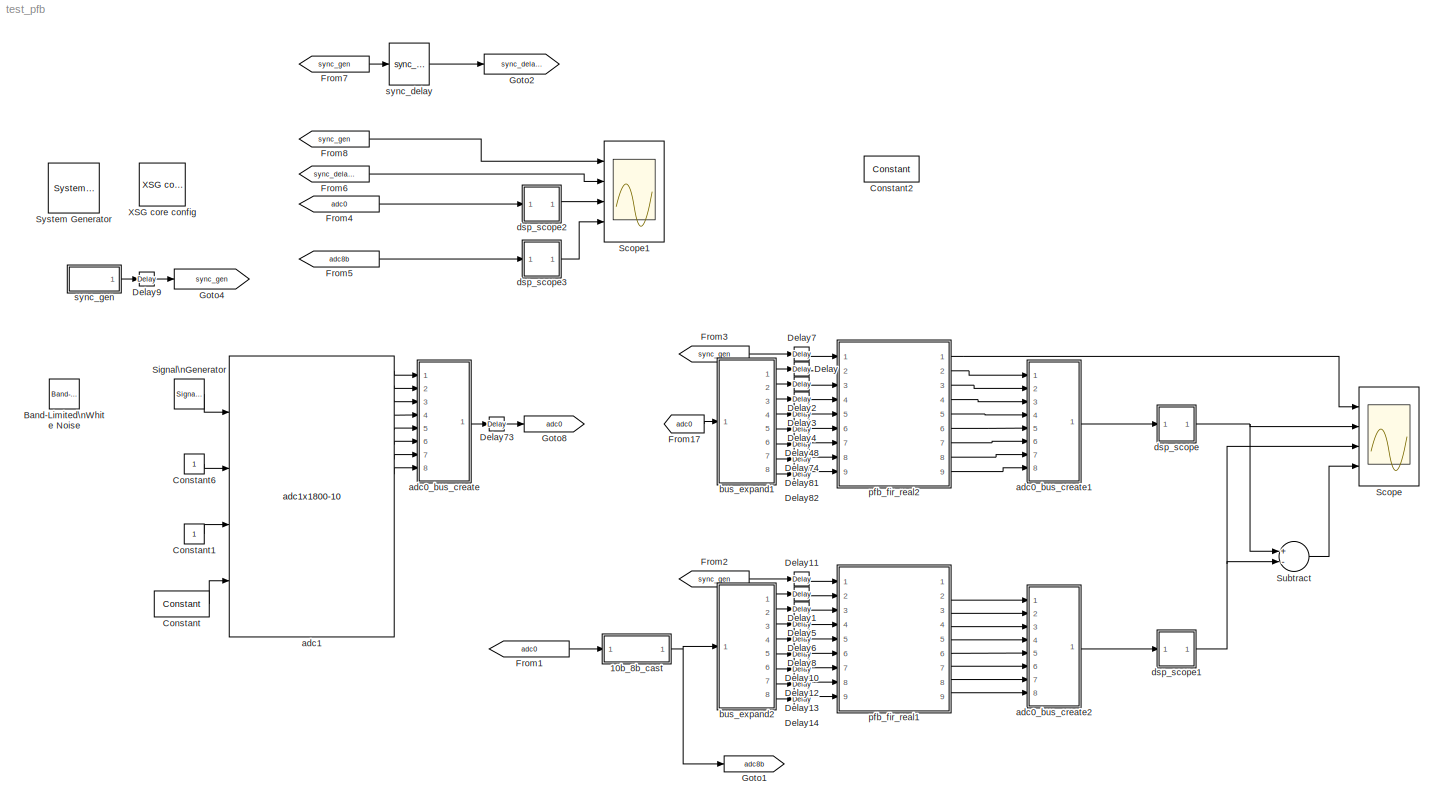
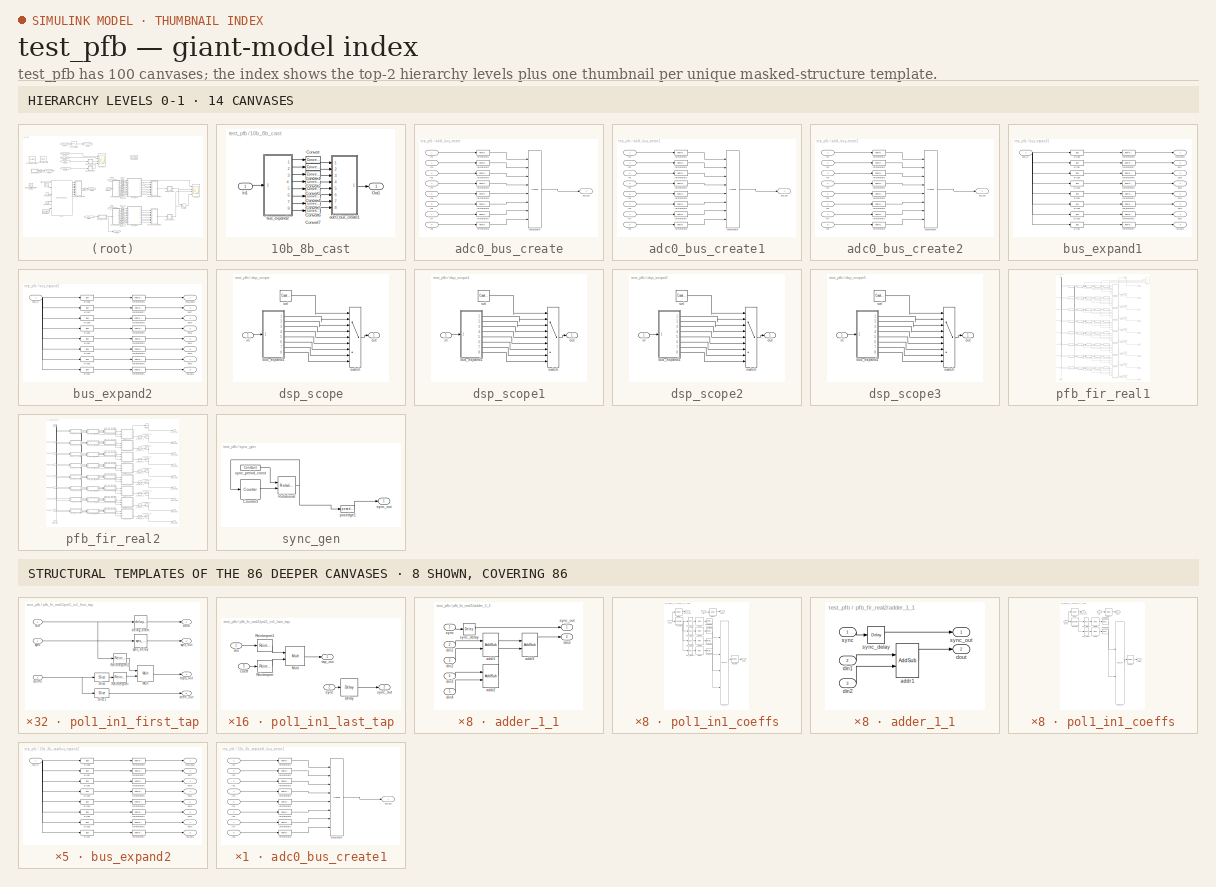
[diagram: thumbnail index - top-2 hierarchy levels (14 canvases) + 8 structural-template representatives of the remaining 86 canvases]
MODEL test_pfb
KIND model
BLOCK [Reference]  System Generator  REF=xbsIndex_r4/ System Generator
  AttributesFormatString = System\\nGenerator
  Impl_file = ISE Defaults
  Ports = []
  SID = 1
  SourceBlock = xbsIndex_r4/ System Generator
  SourceType = Xilinx System Generator Block
  Synth_file = XST Defaults
  Tag = genX
  UserData = DataTag0
  UserDataPersistent = on
  block_type = sysgen
  block_version = 11.4
  clock_wrapper = Clock Enables
  core_generation = According to Block Masks
  dbl_ovrd = According to Block Masks
  dcm_input_clock_period = 100
  deprecated_control = off
  directory = ./r2_spec_mkadc_16k/sysgen
  eval_field = 0
  has_advanced_control = 0
  incr_netlist = off
  infoedit = System Generator
  package = ff1759
  part = xc6vsx475t
  proj_type = Project Navigator
  run_coregen = off
  sg_icon_stat = 51,50,0,0,token,white,0,58c5b5770fe5f7c311f53dbc6e73f0f6,right,,[ ],[ ]
  sg_mask_display = fprintf('','COMMENT: begin icon graphics');\npatch([0 51 51 0 0 ],[0 0 50 50 0 ],[1 1 1 ]);\npatch([1.6375 16.81 27.31 37.81 48.31 27.31 12.1375 1.6375 ],[36.655 36.655 47.155 36.655 47.155 47.155 47.155 36.655 ],[0.933333 0.203922 0.141176 ]);\npatch([12.1375 27.31 16.81 1.6375 12.1375 ],[26.155 26.155 36.655 36.655 26.155 ],[0.698039 0.0313725 0.219608 ]);\npatch([1.6375 16.81 27.31 12.1375 1.63...<+335ch>
  sggui_pos = 326,241,464,470
  simulink_period = 1
  speed = -1
  synthesis_tool = XST
  sysclk_period = 4.4444
  testbench = off
  trim_vbits = Everywhere in SubSystem
  xilinxfamily = virtex6
BLOCK [SubSystem] 10b_8b_cast
  FunctionWithSeparateData = off
  MaskHideContents = off
  MinAlgLoopOccurrences = off
  Opaque = off
  Ports = [1, 1]
  PropExecContextOutsideSubsystem = off
  RTWSystemCode = Auto
  RequestExecContextInheritance = off
  SID = 162
BLOCK [Reference] 10b_8b_cast/Convert  REF=xbsIndex_r4/Convert
  Ports = [1, 1]
  SID = 164
  SourceBlock = xbsIndex_r4/Convert
  SourceType = Xilinx Type Converter Block
  arith_type = Signed  (2's comp)
  bin_pt = 7
  block_type = convert
  dbl_ovrd = off
  en = off
  exp_bits = 8
  float_type = Single
  fraction_bits = 24
  gui_display_data_type = Fixed-point
  has_advanced_control = 0
  infoedit = Hardware notes: rounding and saturating require hardware resources; truncating and wrapping do not.
  latency = 0
  n_bits = 8
  overflow = Saturate
  pipeline = off
  quantization = Round  (unbiased: +/- Inf)
  sg_icon_stat = 30,14,1,1,white,blue,0,edca21da,right,,[ ],[ ]
  sg_mask_display = fprintf('','COMMENT: begin icon graphics');\npatch([0 30 30 0 0 ],[0 0 14 14 0 ],[0.77 0.82 0.91 ]);\nplot([0 30 30 0 0 ],[0 0 14 14 0 ]);\npatch([10.55 13.44 15.44 17.44 19.44 15.44 12.55 10.55 ],[9.22 9.22 11.22 9.22 11.22 11.22 11.22 9.22 ],[1 1 1 ]);\npatch([12.55 15.44 13.44 10.55 12.55 ],[7.22 7.22 9.22 9.22 7.22 ],[0.931 0.946 0.973 ]);\npatch([10.55 13.44 15.44 12.55 10.55 ],[5.22 5.22 7.2...<+309ch>  <repeated x8 — deduplicated; at blocks: Convert, Convert1, Convert2, Convert3, Convert4, Convert5, Convert6, Convert7>
  sggui_pos = 1700,20,568,656
  xl_area = [0,0,0,0,0,0,0]
  xl_use_area = off
BLOCK [Reference] 10b_8b_cast/Convert1  REF=xbsIndex_r4/Convert
  Ports = [1, 1]
  SID = 203
  SourceBlock = xbsIndex_r4/Convert
  SourceType = Xilinx Type Converter Block
  arith_type = Signed  (2's comp)
  bin_pt = 7
  block_type = convert
  dbl_ovrd = off
  en = off
  exp_bits = 8
  float_type = Single
  fraction_bits = 24
  gui_display_data_type = Fixed-point
  has_advanced_control = 0
  infoedit = Hardware notes: rounding and saturating require hardware resources; truncating and wrapping do not.
  latency = 0
  n_bits = 8
  overflow = Saturate
  pipeline = off
  quantization = Round  (unbiased: +/- Inf)
  sg_icon_stat = 30,14,1,1,white,blue,0,edca21da,right,,[ ],[ ]
  sggui_pos = 1700,20,568,656
  xl_area = [0,0,0,0,0,0,0]
  xl_use_area = off
BLOCK [Reference] 10b_8b_cast/Convert2  REF=xbsIndex_r4/Convert
  Ports = [1, 1]
  SID = 204
  SourceBlock = xbsIndex_r4/Convert
  SourceType = Xilinx Type Converter Block
  arith_type = Signed  (2's comp)
  bin_pt = 7
  block_type = convert
  dbl_ovrd = off
  en = off
  exp_bits = 8
  float_type = Single
  fraction_bits = 24
  gui_display_data_type = Fixed-point
  has_advanced_control = 0
  infoedit = Hardware notes: rounding and saturating require hardware resources; truncating and wrapping do not.
  latency = 0
  n_bits = 8
  overflow = Saturate
  pipeline = off
  quantization = Round  (unbiased: +/- Inf)
  sg_icon_stat = 30,14,1,1,white,blue,0,edca21da,right,,[ ],[ ]
  sggui_pos = 1700,20,568,656
  xl_area = [0,0,0,0,0,0,0]
  xl_use_area = off
BLOCK [Reference] 10b_8b_cast/Convert3  REF=xbsIndex_r4/Convert
  Ports = [1, 1]
  SID = 205
  SourceBlock = xbsIndex_r4/Convert
  SourceType = Xilinx Type Converter Block
  arith_type = Signed  (2's comp)
  bin_pt = 7
  block_type = convert
  dbl_ovrd = off
  en = off
  exp_bits = 8
  float_type = Single
  fraction_bits = 24
  gui_display_data_type = Fixed-point
  has_advanced_control = 0
  infoedit = Hardware notes: rounding and saturating require hardware resources; truncating and wrapping do not.
  latency = 0
  n_bits = 8
  overflow = Saturate
  pipeline = off
  quantization = Round  (unbiased: +/- Inf)
  sg_icon_stat = 30,14,1,1,white,blue,0,edca21da,right,,[ ],[ ]
  sggui_pos = 1700,20,568,656
  xl_area = [0,0,0,0,0,0,0]
  xl_use_area = off
BLOCK [Reference] 10b_8b_cast/Convert4  REF=xbsIndex_r4/Convert
  Ports = [1, 1]
  SID = 206
  SourceBlock = xbsIndex_r4/Convert
  SourceType = Xilinx Type Converter Block
  arith_type = Signed  (2's comp)
  bin_pt = 7
  block_type = convert
  dbl_ovrd = off
  en = off
  exp_bits = 8
  float_type = Single
  fraction_bits = 24
  gui_display_data_type = Fixed-point
  has_advanced_control = 0
  infoedit = Hardware notes: rounding and saturating require hardware resources; truncating and wrapping do not.
  latency = 0
  n_bits = 8
  overflow = Saturate
  pipeline = off
  quantization = Round  (unbiased: +/- Inf)
  sg_icon_stat = 30,14,1,1,white,blue,0,edca21da,right,,[ ],[ ]
  sggui_pos = 1700,20,568,656
  xl_area = [0,0,0,0,0,0,0]
  xl_use_area = off
BLOCK [Reference] 10b_8b_cast/Convert5  REF=xbsIndex_r4/Convert
  Ports = [1, 1]
  SID = 207
  SourceBlock = xbsIndex_r4/Convert
  SourceType = Xilinx Type Converter Block
  arith_type = Signed  (2's comp)
  bin_pt = 7
  block_type = convert
  dbl_ovrd = off
  en = off
  exp_bits = 8
  float_type = Single
  fraction_bits = 24
  gui_display_data_type = Fixed-point
  has_advanced_control = 0
  infoedit = Hardware notes: rounding and saturating require hardware resources; truncating and wrapping do not.
  latency = 0
  n_bits = 8
  overflow = Saturate
  pipeline = off
  quantization = Round  (unbiased: +/- Inf)
  sg_icon_stat = 30,14,1,1,white,blue,0,edca21da,right,,[ ],[ ]
  sggui_pos = 1700,20,568,656
  xl_area = [0,0,0,0,0,0,0]
  xl_use_area = off
BLOCK [Reference] 10b_8b_cast/Convert6  REF=xbsIndex_r4/Convert
  Ports = [1, 1]
  SID = 208
  SourceBlock = xbsIndex_r4/Convert
  SourceType = Xilinx Type Converter Block
  arith_type = Signed  (2's comp)
  bin_pt = 7
  block_type = convert
  dbl_ovrd = off
  en = off
  exp_bits = 8
  float_type = Single
  fraction_bits = 24
  gui_display_data_type = Fixed-point
  has_advanced_control = 0
  infoedit = Hardware notes: rounding and saturating require hardware resources; truncating and wrapping do not.
  latency = 0
  n_bits = 8
  overflow = Saturate
  pipeline = off
  quantization = Round  (unbiased: +/- Inf)
  sg_icon_stat = 30,14,1,1,white,blue,0,edca21da,right,,[ ],[ ]
  sggui_pos = 1700,20,568,656
  xl_area = [0,0,0,0,0,0,0]
  xl_use_area = off
BLOCK [Reference] 10b_8b_cast/Convert7  REF=xbsIndex_r4/Convert
  Ports = [1, 1]
  SID = 209
  SourceBlock = xbsIndex_r4/Convert
  SourceType = Xilinx Type Converter Block
  arith_type = Signed  (2's comp)
  bin_pt = 7
  block_type = convert
  dbl_ovrd = off
  en = off
  exp_bits = 8
  float_type = Single
  fraction_bits = 24
  gui_display_data_type = Fixed-point
  has_advanced_control = 0
  infoedit = Hardware notes: rounding and saturating require hardware resources; truncating and wrapping do not.
  latency = 0
  n_bits = 8
  overflow = Saturate
  pipeline = off
  quantization = Round  (unbiased: +/- Inf)
  sg_icon_stat = 30,14,1,1,white,blue,0,edca21da,right,,[ ],[ ]
  sggui_pos = 1700,20,568,656
  xl_area = [0,0,0,0,0,0,0]
  xl_use_area = off
BLOCK [Inport] 10b_8b_cast/In1
  IconDisplay = Port number
  SID = 163
BLOCK [Outport] 10b_8b_cast/Out1
  IconDisplay = Port number
  SID = 174
BLOCK [SubSystem] 10b_8b_cast/adc0_bus_create1
  AncestorBlock = casper_library_flow_control/bus_create
  FunctionWithSeparateData = off
  MaskHideContents = off
  MinAlgLoopOccurrences = off
  Opaque = off
  Ports = [8, 1]
  PropExecContextOutsideSubsystem = off
  RTWSystemCode = Auto
  RequestExecContextInheritance = off
  SID = 172
  UserData = DataTag1
  UserDataPersistent = on
BLOCK [Outport] 10b_8b_cast/adc0_bus_create1/bus_out
  IconDisplay = Port number
  SID = 172:18
BLOCK [Reference] 10b_8b_cast/adc0_bus_create1/concatenate  REF=xbsIndex_r4/Concat
  Ports = [8, 1]
  SID = 172:9
  SourceBlock = xbsIndex_r4/Concat
  SourceType = Xilinx Bus Concatenator Block
  block_type = concat
  block_version = 11.4
  dbl_ovrd = off
  has_advanced_control = 0
  infoedit = Concatenates two or more inputs.  Output will be cast to an unsigned value with the binary point at zero.
  num_inputs = 8
  sg_icon_stat = 50,301,8,1,white,blue,0,6fe74153,right,,[ ],[ ]
  sg_mask_display = fprintf('','COMMENT: begin icon graphics');\npatch([0 50 50 0 0 ],[0 0 301 301 0 ],[0.77 0.82 0.91 ]);\nplot([0 50 50 0 0 ],[0 0 301 301 0 ]);\npatch([9.425 19.54 26.54 33.54 40.54 26.54 16.425 9.425 ],[157.77 157.77 164.77 157.77 164.77 164.77 164.77 157.77 ],[1 1 1 ]);\npatch([16.425 26.54 19.54 9.425 16.425 ],[150.77 150.77 157.77 157.77 150.77 ],[0.931 0.946 0.973 ]);\npatch([9.425 19.54 26.54...<+478ch>  <repeated x4 — deduplicated; at blocks: concatenate>
  sggui_pos = -1,-1,-1,-1
BLOCK [Inport] 10b_8b_cast/adc0_bus_create1/in1
  IconDisplay = Port number
  SID = 172:1
BLOCK [Inport] 10b_8b_cast/adc0_bus_create1/in2
  IconDisplay = Port number
  Port = 2
  SID = 172:2
BLOCK [Inport] 10b_8b_cast/adc0_bus_create1/in3
  IconDisplay = Port number
  Port = 3
  SID = 172:3
BLOCK [Inport] 10b_8b_cast/adc0_bus_create1/in4
  IconDisplay = Port number
  Port = 4
  SID = 172:4
BLOCK [Inport] 10b_8b_cast/adc0_bus_create1/in5
  IconDisplay = Port number
  Port = 5
  SID = 172:5
BLOCK [Inport] 10b_8b_cast/adc0_bus_create1/in6
  IconDisplay = Port number
  Port = 6
  SID = 172:6
BLOCK [Inport] 10b_8b_cast/adc0_bus_create1/in7
  IconDisplay = Port number
  Port = 7
  SID = 172:7
BLOCK [Inport] 10b_8b_cast/adc0_bus_create1/in8
  IconDisplay = Port number
  Port = 8
  SID = 172:8
BLOCK [Reference] 10b_8b_cast/adc0_bus_create1/reinterpret1  REF=xbsIndex_r4/Reinterpret
  Ports = [1, 1]
  SID = 172:10
  SourceBlock = xbsIndex_r4/Reinterpret
  SourceType = Xilinx Type Reinterpreter Block
  arith_type = Unsigned
  bin_pt = 0
  block_type = reinterpret
  block_version = 11.4
  force_arith_type = on
  force_bin_pt = on
  has_advanced_control = 0
  infoedit = Changes signal type without altering the binary representation.   You can changed the signal between signed and unsigned, and relocate the binary point.<br><br>Hardware notes: In hardware this block costs nothing.<br><br>Example:  Suppose the input is 6 bits wide, signed, with 2 fractional bits, and the output is forced to unsigned with 0 fractional bits.  Then an input of -2.0 (1110.00 in binary ...<+59ch>  <repeated x48 — deduplicated; at blocks: reinterpret1, reinterpret2, reinterpret3, reinterpret4, reinterpret5, reinterpret6, reinterpret7, reinterpret8>
  sg_icon_stat = 50,20,1,1,white,blue,0,6b04d0b0,right,,[ ],[ ]
  sg_mask_display = fprintf('','COMMENT: begin icon graphics');\npatch([0 50 50 0 0 ],[0 0 20 20 0 ],[0.77 0.82 0.91 ]);\nplot([0 50 50 0 0 ],[0 0 20 20 0 ]);\npatch([20.55 23.44 25.44 27.44 29.44 25.44 22.55 20.55 ],[12.22 12.22 14.22 12.22 14.22 14.22 14.22 12.22 ],[1 1 1 ]);\npatch([22.55 25.44 23.44 20.55 22.55 ],[10.22 10.22 12.22 12.22 10.22 ],[0.931 0.946 0.973 ]);\npatch([20.55 23.44 25.44 22.55 20.55 ],[8.22...<+314ch>  <repeated x40 — deduplicated; at blocks: reinterpret1, reinterpret2, reinterpret3, reinterpret4, reinterpret5, reinterpret6, reinterpret7, reinterpret8>
  sggui_pos = -1,-1,-1,-1
BLOCK [Reference] 10b_8b_cast/adc0_bus_create1/reinterpret2  REF=xbsIndex_r4/Reinterpret
  Ports = [1, 1]
  SID = 172:11
  SourceBlock = xbsIndex_r4/Reinterpret
  SourceType = Xilinx Type Reinterpreter Block
  arith_type = Unsigned
  bin_pt = 0
  block_type = reinterpret
  block_version = 11.4
  force_arith_type = on
  force_bin_pt = on
  has_advanced_control = 0
  sg_icon_stat = 50,20,1,1,white,blue,0,6b04d0b0,right,,[ ],[ ]
  sggui_pos = 281,224,671,460
BLOCK [Reference] 10b_8b_cast/adc0_bus_create1/reinterpret3  REF=xbsIndex_r4/Reinterpret
  Ports = [1, 1]
  SID = 172:12
  SourceBlock = xbsIndex_r4/Reinterpret
  SourceType = Xilinx Type Reinterpreter Block
  arith_type = Unsigned
  bin_pt = 0
  block_type = reinterpret
  block_version = 11.4
  force_arith_type = on
  force_bin_pt = on
  has_advanced_control = 0
  sg_icon_stat = 50,20,1,1,white,blue,0,6b04d0b0,right,,[ ],[ ]
  sggui_pos = -1,-1,-1,-1
BLOCK [Reference] 10b_8b_cast/adc0_bus_create1/reinterpret4  REF=xbsIndex_r4/Reinterpret
  Ports = [1, 1]
  SID = 172:13
  SourceBlock = xbsIndex_r4/Reinterpret
  SourceType = Xilinx Type Reinterpreter Block
  arith_type = Unsigned
  bin_pt = 0
  block_type = reinterpret
  block_version = 11.4
  force_arith_type = on
  force_bin_pt = on
  has_advanced_control = 0
  sg_icon_stat = 50,20,1,1,white,blue,0,6b04d0b0,right,,[ ],[ ]
  sggui_pos = -1,-1,-1,-1
BLOCK [Reference] 10b_8b_cast/adc0_bus_create1/reinterpret5  REF=xbsIndex_r4/Reinterpret
  Ports = [1, 1]
  SID = 172:14
  SourceBlock = xbsIndex_r4/Reinterpret
  SourceType = Xilinx Type Reinterpreter Block
  arith_type = Unsigned
  bin_pt = 0
  block_type = reinterpret
  block_version = 11.4
  force_arith_type = on
  force_bin_pt = on
  has_advanced_control = 0
  sg_icon_stat = 50,20,1,1,white,blue,0,6b04d0b0,right,,[ ],[ ]
  sggui_pos = -1,-1,-1,-1
BLOCK [Reference] 10b_8b_cast/adc0_bus_create1/reinterpret6  REF=xbsIndex_r4/Reinterpret
  Ports = [1, 1]
  SID = 172:15
  SourceBlock = xbsIndex_r4/Reinterpret
  SourceType = Xilinx Type Reinterpreter Block
  arith_type = Unsigned
  bin_pt = 0
  block_type = reinterpret
  block_version = 11.4
  force_arith_type = on
  force_bin_pt = on
  has_advanced_control = 0
  sg_icon_stat = 50,20,1,1,white,blue,0,6b04d0b0,right,,[ ],[ ]
  sggui_pos = -1,-1,-1,-1
BLOCK [Reference] 10b_8b_cast/adc0_bus_create1/reinterpret7  REF=xbsIndex_r4/Reinterpret
  Ports = [1, 1]
  SID = 172:16
  SourceBlock = xbsIndex_r4/Reinterpret
  SourceType = Xilinx Type Reinterpreter Block
  arith_type = Unsigned
  bin_pt = 0
  block_type = reinterpret
  block_version = 11.4
  force_arith_type = on
  force_bin_pt = on
  has_advanced_control = 0
  sg_icon_stat = 50,20,1,1,white,blue,0,6b04d0b0,right,,[ ],[ ]
  sggui_pos = -1,-1,-1,-1
BLOCK [Reference] 10b_8b_cast/adc0_bus_create1/reinterpret8  REF=xbsIndex_r4/Reinterpret
  Ports = [1, 1]
  SID = 172:17
  SourceBlock = xbsIndex_r4/Reinterpret
  SourceType = Xilinx Type Reinterpreter Block
  arith_type = Unsigned
  bin_pt = 0
  block_type = reinterpret
  block_version = 11.4
  force_arith_type = on
  force_bin_pt = on
  has_advanced_control = 0
  sg_icon_stat = 50,20,1,1,white,blue,0,6b04d0b0,right,,[ ],[ ]
  sggui_pos = -1,-1,-1,-1
BLOCK [SubSystem] 10b_8b_cast/bus_expand2
  AncestorBlock = casper_library_flow_control/bus_expand
  AttributesFormatString = 8 outputs
  FunctionWithSeparateData = off
  MaskHideContents = off
  MinAlgLoopOccurrences = off
  Opaque = off
  Ports = [1, 8]
  PropExecContextOutsideSubsystem = off
  RTWSystemCode = Auto
  RequestExecContextInheritance = off
  SID = 173
  UserData = DataTag2
  UserDataPersistent = on
BLOCK [Inport] 10b_8b_cast/bus_expand2/bus_in
  IconDisplay = Port number
  SID = 173:1
BLOCK [Outport] 10b_8b_cast/bus_expand2/lsb_out1
  IconDisplay = Port number
  Port = 8
  SID = 173:25
BLOCK [Outport] 10b_8b_cast/bus_expand2/msb_out8
  IconDisplay = Port number
  SID = 173:18
BLOCK [Outport] 10b_8b_cast/bus_expand2/out2
  IconDisplay = Port number
  Port = 7
  SID = 173:24
BLOCK [Outport] 10b_8b_cast/bus_expand2/out3
  IconDisplay = Port number
  Port = 6
  SID = 173:23
BLOCK [Outport] 10b_8b_cast/bus_expand2/out4
  IconDisplay = Port number
  Port = 5
  SID = 173:22
BLOCK [Outport] 10b_8b_cast/bus_expand2/out5
  IconDisplay = Port number
  Port = 4
  SID = 173:21
BLOCK [Outport] 10b_8b_cast/bus_expand2/out6
  IconDisplay = Port number
  Port = 3
  SID = 173:20
BLOCK [Outport] 10b_8b_cast/bus_expand2/out7
  IconDisplay = Port number
  Port = 2
  SID = 173:19
BLOCK [Reference] 10b_8b_cast/bus_expand2/reinterpret1  REF=xbsIndex_r4/Reinterpret
  Ports = [1, 1]
  SID = 173:57
  SourceBlock = xbsIndex_r4/Reinterpret
  SourceType = Xilinx Type Reinterpreter Block
  arith_type = Signed  (2's comp)
  bin_pt = 9
  block_type = reinterpret
  force_arith_type = on
  force_bin_pt = on
  has_advanced_control = 0
  infoedit = Changes signal type without altering the binary representation.   You can change the signal between signed and unsigned, and relocate the binary point.<br><br>Hardware notes: In hardware this block costs nothing.<br><br>Example:  Suppose the input is 6 bits wide, signed, with 2 fractional bits, and the output is forced to unsigned with 0 fractional bits.  Then an input of -2.0 (1110.00 in binary 2...<+58ch>  <repeated x88 — deduplicated; at blocks: reinterpret1, reinterpret2, reinterpret3, reinterpret4, reinterpret5, reinterpret6, reinterpret7, reinterpret8, Reinterpret1, Reinterpret2, Reinterpret3, Reinterpret4>
  sg_icon_stat = 50,20,1,1,white,blue,0,6b04d0b0,right,,[ ],[ ]
  sg_mask_display = fprintf('','COMMENT: begin icon graphics');\npatch([0 50 50 0 0 ],[0 0 20 20 0 ],[0.77 0.82 0.91 ]);\nplot([0 50 50 0 0 ],[0 0 20 20 0 ]);\npatch([20.55 23.44 25.44 27.44 29.44 25.44 22.55 20.55 ],[12.22 12.22 14.22 12.22 14.22 14.22 14.22 12.22 ],[1 1 1 ]);\npatch([22.55 25.44 23.44 20.55 22.55 ],[10.22 10.22 12.22 12.22 10.22 ],[0.931 0.946 0.973 ]);\npatch([20.55 23.44 25.44 22.55 20.55 ],[8.22...<+312ch>  <repeated x16 — deduplicated; at blocks: reinterpret1, reinterpret2, reinterpret3, reinterpret4, reinterpret5, reinterpret6, reinterpret7, reinterpret8>
  sggui_pos = -1,-1,-1,-1
BLOCK [Reference] 10b_8b_cast/bus_expand2/reinterpret2  REF=xbsIndex_r4/Reinterpret
  Ports = [1, 1]
  SID = 173:55
  SourceBlock = xbsIndex_r4/Reinterpret
  SourceType = Xilinx Type Reinterpreter Block
  arith_type = Signed  (2's comp)
  bin_pt = 9
  block_type = reinterpret
  force_arith_type = on
  force_bin_pt = on
  has_advanced_control = 0
  sg_icon_stat = 50,20,1,1,white,blue,0,6b04d0b0,right,,[ ],[ ]
  sggui_pos = -1,-1,-1,-1
BLOCK [Reference] 10b_8b_cast/bus_expand2/reinterpret3  REF=xbsIndex_r4/Reinterpret
  Ports = [1, 1]
  SID = 173:53
  SourceBlock = xbsIndex_r4/Reinterpret
  SourceType = Xilinx Type Reinterpreter Block
  arith_type = Signed  (2's comp)
  bin_pt = 9
  block_type = reinterpret
  force_arith_type = on
  force_bin_pt = on
  has_advanced_control = 0
  sg_icon_stat = 50,20,1,1,white,blue,0,6b04d0b0,right,,[ ],[ ]
  sggui_pos = -1,-1,-1,-1
BLOCK [Reference] 10b_8b_cast/bus_expand2/reinterpret4  REF=xbsIndex_r4/Reinterpret
  Ports = [1, 1]
  SID = 173:51
  SourceBlock = xbsIndex_r4/Reinterpret
  SourceType = Xilinx Type Reinterpreter Block
  arith_type = Signed  (2's comp)
  bin_pt = 9
  block_type = reinterpret
  force_arith_type = on
  force_bin_pt = on
  has_advanced_control = 0
  sg_icon_stat = 50,20,1,1,white,blue,0,6b04d0b0,right,,[ ],[ ]
  sggui_pos = -1,-1,-1,-1
BLOCK [Reference] 10b_8b_cast/bus_expand2/reinterpret5  REF=xbsIndex_r4/Reinterpret
  Ports = [1, 1]
  SID = 173:49
  SourceBlock = xbsIndex_r4/Reinterpret
  SourceType = Xilinx Type Reinterpreter Block
  arith_type = Signed  (2's comp)
  bin_pt = 9
  block_type = reinterpret
  force_arith_type = on
  force_bin_pt = on
  has_advanced_control = 0
  sg_icon_stat = 50,20,1,1,white,blue,0,6b04d0b0,right,,[ ],[ ]
  sggui_pos = -1,-1,-1,-1
BLOCK [Reference] 10b_8b_cast/bus_expand2/reinterpret6  REF=xbsIndex_r4/Reinterpret
  Ports = [1, 1]
  SID = 173:47
  SourceBlock = xbsIndex_r4/Reinterpret
  SourceType = Xilinx Type Reinterpreter Block
  arith_type = Signed  (2's comp)
  bin_pt = 9
  block_type = reinterpret
  force_arith_type = on
  force_bin_pt = on
  has_advanced_control = 0
  sg_icon_stat = 50,20,1,1,white,blue,0,6b04d0b0,right,,[ ],[ ]
  sggui_pos = -1,-1,-1,-1
BLOCK [Reference] 10b_8b_cast/bus_expand2/reinterpret7  REF=xbsIndex_r4/Reinterpret
  Ports = [1, 1]
  SID = 173:45
  SourceBlock = xbsIndex_r4/Reinterpret
  SourceType = Xilinx Type Reinterpreter Block
  arith_type = Signed  (2's comp)
  bin_pt = 9
  block_type = reinterpret
  force_arith_type = on
  force_bin_pt = on
  has_advanced_control = 0
  sg_icon_stat = 50,20,1,1,white,blue,0,6b04d0b0,right,,[ ],[ ]
  sggui_pos = -1,-1,-1,-1
BLOCK [Reference] 10b_8b_cast/bus_expand2/reinterpret8  REF=xbsIndex_r4/Reinterpret
  Ports = [1, 1]
  SID = 173:43
  SourceBlock = xbsIndex_r4/Reinterpret
  SourceType = Xilinx Type Reinterpreter Block
  arith_type = Signed  (2's comp)
  bin_pt = 9
  block_type = reinterpret
  force_arith_type = on
  force_bin_pt = on
  has_advanced_control = 0
  sg_icon_stat = 50,20,1,1,white,blue,0,6b04d0b0,right,,[ ],[ ]
  sggui_pos = -1,-1,-1,-1
BLOCK [Reference] 10b_8b_cast/bus_expand2/slice1  REF=xbsIndex_r4/Slice
  Ports = [1, 1]
  SID = 173:56
  SourceBlock = xbsIndex_r4/Slice
  SourceType = Xilinx Bit Slice Extractor Block
  base0 = LSB of Input
  base1 = MSB of Input
  bit0 = 0
  bit1 = -70
  block_type = slice
  boolean_output = off
  dbl_ovrd = off
  has_advanced_control = 0
  infoedit = Extracts a given range of bits from each input sample and presents it at the output.  The output type is ordinarily unsigned with binary point at zero, but can be Boolean when the slice is one bit wide.<br><br>Hardware notes: In hardware this block costs nothing.  <repeated x56 — deduplicated; at blocks: slice1, slice2, slice3, slice4, slice5, slice6, slice7, slice8>
  mode = Upper Bit Location + Width
  nbits = 10
  sg_icon_stat = 50,20,1,1,white,blue,0,1fd851a7,right,,[ ],[ ]
  sg_mask_display = fprintf('','COMMENT: begin icon graphics');\npatch([0 50 50 0 0 ],[0 0 20 20 0 ],[0.77 0.82 0.91 ]);\nplot([0 50 50 0 0 ],[0 0 20 20 0 ]);\npatch([20.55 23.44 25.44 27.44 29.44 25.44 22.55 20.55 ],[12.22 12.22 14.22 12.22 14.22 14.22 14.22 12.22 ],[1 1 1 ]);\npatch([22.55 25.44 23.44 20.55 22.55 ],[10.22 10.22 12.22 12.22 10.22 ],[0.931 0.946 0.973 ]);\npatch([20.55 23.44 25.44 22.55 20.55 ],[8.22...<+321ch>  <repeated x40 — deduplicated; at blocks: slice1, slice2, slice3, slice4, slice5, slice6, slice7, slice8>
  sggui_pos = -1,-1,-1,-1
BLOCK [Reference] 10b_8b_cast/bus_expand2/slice2  REF=xbsIndex_r4/Slice
  Ports = [1, 1]
  SID = 173:54
  SourceBlock = xbsIndex_r4/Slice
  SourceType = Xilinx Bit Slice Extractor Block
  base0 = LSB of Input
  base1 = MSB of Input
  bit0 = 0
  bit1 = -60
  block_type = slice
  boolean_output = off
  dbl_ovrd = off
  has_advanced_control = 0
  mode = Upper Bit Location + Width
  nbits = 10
  sg_icon_stat = 50,20,1,1,white,blue,0,1fd851a7,right,,[ ],[ ]
  sggui_pos = -1,-1,-1,-1
BLOCK [Reference] 10b_8b_cast/bus_expand2/slice3  REF=xbsIndex_r4/Slice
  Ports = [1, 1]
  SID = 173:52
  SourceBlock = xbsIndex_r4/Slice
  SourceType = Xilinx Bit Slice Extractor Block
  base0 = LSB of Input
  base1 = MSB of Input
  bit0 = 0
  bit1 = -50
  block_type = slice
  boolean_output = off
  dbl_ovrd = off
  has_advanced_control = 0
  mode = Upper Bit Location + Width
  nbits = 10
  sg_icon_stat = 50,20,1,1,white,blue,0,1fd851a7,right,,[ ],[ ]
  sggui_pos = -1,-1,-1,-1
BLOCK [Reference] 10b_8b_cast/bus_expand2/slice4  REF=xbsIndex_r4/Slice
  Ports = [1, 1]
  SID = 173:50
  SourceBlock = xbsIndex_r4/Slice
  SourceType = Xilinx Bit Slice Extractor Block
  base0 = LSB of Input
  base1 = MSB of Input
  bit0 = 0
  bit1 = -40
  block_type = slice
  boolean_output = off
  dbl_ovrd = off
  has_advanced_control = 0
  mode = Upper Bit Location + Width
  nbits = 10
  sg_icon_stat = 50,20,1,1,white,blue,0,1fd851a7,right,,[ ],[ ]
  sggui_pos = -1,-1,-1,-1
BLOCK [Reference] 10b_8b_cast/bus_expand2/slice5  REF=xbsIndex_r4/Slice
  Ports = [1, 1]
  SID = 173:48
  SourceBlock = xbsIndex_r4/Slice
  SourceType = Xilinx Bit Slice Extractor Block
  base0 = LSB of Input
  base1 = MSB of Input
  bit0 = 0
  bit1 = -30
  block_type = slice
  boolean_output = off
  dbl_ovrd = off
  has_advanced_control = 0
  mode = Upper Bit Location + Width
  nbits = 10
  sg_icon_stat = 50,20,1,1,white,blue,0,1fd851a7,right,,[ ],[ ]
  sggui_pos = -1,-1,-1,-1
BLOCK [Reference] 10b_8b_cast/bus_expand2/slice6  REF=xbsIndex_r4/Slice
  Ports = [1, 1]
  SID = 173:46
  SourceBlock = xbsIndex_r4/Slice
  SourceType = Xilinx Bit Slice Extractor Block
  base0 = LSB of Input
  base1 = MSB of Input
  bit0 = 0
  bit1 = -20
  block_type = slice
  boolean_output = off
  dbl_ovrd = off
  has_advanced_control = 0
  mode = Upper Bit Location + Width
  nbits = 10
  sg_icon_stat = 50,20,1,1,white,blue,0,1fd851a7,right,,[ ],[ ]
  sggui_pos = -1,-1,-1,-1
BLOCK [Reference] 10b_8b_cast/bus_expand2/slice7  REF=xbsIndex_r4/Slice
  Ports = [1, 1]
  SID = 173:44
  SourceBlock = xbsIndex_r4/Slice
  SourceType = Xilinx Bit Slice Extractor Block
  base0 = LSB of Input
  base1 = MSB of Input
  bit0 = 0
  bit1 = -10
  block_type = slice
  boolean_output = off
  dbl_ovrd = off
  has_advanced_control = 0
  mode = Upper Bit Location + Width
  nbits = 10
  sg_icon_stat = 50,20,1,1,white,blue,0,1fd851a7,right,,[ ],[ ]
  sggui_pos = -1,-1,-1,-1
BLOCK [Reference] 10b_8b_cast/bus_expand2/slice8  REF=xbsIndex_r4/Slice
  Ports = [1, 1]
  SID = 173:42
  SourceBlock = xbsIndex_r4/Slice
  SourceType = Xilinx Bit Slice Extractor Block
  base0 = LSB of Input
  base1 = MSB of Input
  bit0 = 0
  bit1 = 0
  block_type = slice
  boolean_output = off
  dbl_ovrd = off
  has_advanced_control = 0
  mode = Upper Bit Location + Width
  nbits = 10
  sg_icon_stat = 50,20,1,1,white,blue,0,1fd851a7,right,,[ ],[ ]
  sggui_pos = -1,-1,-1,-1
BLOCK [Reference] Band-Limited\nWhite Noise  REF=simulink/Sources/Band-Limited\nWhite Noise
  Cov = [0.1]
  Ports = [0, 1]
  SID = 15
  SourceBlock = simulink/Sources/Band-Limited\nWhite Noise
  SourceType = Band-Limited White Noise.
  Ts = 0.125
  VectorParams1D = on
  seed = [23341]
BLOCK [Reference] Constant  REF=xbsIndex_r4/Constant
  Ports = [0, 1]
  SID = 16
  SourceBlock = xbsIndex_r4/Constant
  SourceType = Xilinx Constant Block Block
  arith_type = Boolean
  bin_pt = 0
  block_type = constant
  block_version = 11.4
  carry = CIN
  const = 0
  dbl_ovrd = off
  dsp48_infoedit = The use of this block for DSP48 instructions is deprecated.  Please use the Opmode block.
  equ = P=C
  exp_width = 8
  explicit_period = on
  frac_width = 24
  gui_display_data_type = Boolean
  has_advanced_control = 0
  inp1 = P
  inp2 = PCIN>>17
  n_bits = 1
  opr = +
  opselect = C
  period = 1
  preci_type = Single
  sg_icon_stat = 55,26,0,1,white,blue,0,bf4ddd8b,right,,[ ],[ ]
  sg_mask_display = fprintf('','COMMENT: begin icon graphics');\npatch([0 55 55 0 0 ],[0 0 26 26 0 ],[0.77 0.82 0.91 ]);\nplot([0 55 55 0 0 ],[0 0 26 26 0 ]);\npatch([20.325 24.66 27.66 30.66 33.66 27.66 23.325 20.325 ],[16.33 16.33 19.33 16.33 19.33 19.33 19.33 16.33 ],[1 1 1 ]);\npatch([23.325 27.66 24.66 20.325 23.325 ],[13.33 13.33 16.33 16.33 13.33 ],[0.931 0.946 0.973 ]);\npatch([20.325 24.66 27.66 23.325 20.32...<+335ch>
  sggui_pos = 1700,20,478,476
BLOCK [Constant] Constant1
  SID = 17
  SampleTime = 1
BLOCK [Reference] Constant2  REF=xbsIndex_r4/Constant
  Ports = [0, 1]
  SID = 215
  SourceBlock = xbsIndex_r4/Constant
  SourceType = Xilinx Constant Block Block
  arith_type = Signed (2's comp)
  bin_pt = 0
  block_type = constant
  block_version = 11.4
  carry = CIN
  const = (2^15)-1
  dbl_ovrd = off
  dsp48_infoedit = The use of this block for DSP48 instructions is deprecated.  Please use the Opmode block.
  equ = P=C
  exp_width = 8
  explicit_period = on
  frac_width = 24
  gui_display_data_type = Fixed-point
  has_advanced_control = 0
  inp1 = P
  inp2 = PCIN>>17
  n_bits = 15
  opr = +
  opselect = C
  period = 1
  preci_type = Single
  sg_icon_stat = 55,26,0,1,white,blue,0,fddc9e01,right,,[ ],[ ]
  sg_mask_display = fprintf('','COMMENT: begin icon graphics');\npatch([0 55 55 0 0 ],[0 0 26 26 0 ],[0.77 0.82 0.91 ]);\nplot([0 55 55 0 0 ],[0 0 26 26 0 ]);\npatch([20.325 24.66 27.66 30.66 33.66 27.66 23.325 20.325 ],[16.33 16.33 19.33 16.33 19.33 19.33 19.33 16.33 ],[1 1 1 ]);\npatch([23.325 27.66 24.66 20.325 23.325 ],[13.33 13.33 16.33 16.33 13.33 ],[0.931 0.946 0.973 ]);\npatch([20.325 24.66 27.66 23.325 20.32...<+339ch>
  sggui_pos = 1700,20,478,476
BLOCK [Constant] Constant6
  SID = 23
  SampleTime = 1
BLOCK [Reference] Delay  REF=xbsIndex_r4/Delay
  Ports = [1, 1]
  SID = 24
  SourceBlock = xbsIndex_r4/Delay
  SourceType = Xilinx Delay Block
  block_type = delay
  block_version = 10.1.3
  dbl_ovrd = off
  en = off
  has_advanced_control = 0
  infoedit = Hardware notes: A delay line is a chain, each link of which is an SRL16 followed by a flip-flop.
  infoeditControl = Selection of Reset will increase slice count due to use of real FFs and instead of SRLs
  latency = 2
  reg_retiming = on
  rst = off
  sg_icon_stat = 15,14,1,1,white,blue,0,85ce9542,right,,[ ],[ ]
  sg_mask_display = fprintf('','COMMENT: begin icon graphics');\npatch([0 15 15 0 0 ],[0 0 14 14 0 ],[0.77 0.82 0.91 ]);\nplot([0 15 15 0 0 ],[0 0 14 14 0 ]);\npatch([2.55 5.44 7.44 9.44 11.44 7.44 4.55 2.55 ],[9.22 9.22 11.22 9.22 11.22 11.22 11.22 9.22 ],[1 1 1 ]);\npatch([4.55 7.44 5.44 2.55 4.55 ],[7.22 7.22 9.22 9.22 7.22 ],[0.931 0.946 0.973 ]);\npatch([2.55 5.44 7.44 4.55 2.55 ],[5.22 5.22 7.22 7.22 5.22 ],[1 ...<+290ch>  <repeated x19 — deduplicated; at blocks: Delay, Delay1, Delay10, Delay11, Delay12, Delay13, Delay14, Delay2, Delay3, Delay4, Delay48, Delay5, Delay6, Delay7, Delay73, Delay74, +3 more>
  sggui_pos = 20,20,348,254
  xl_area = [0,0,0,0,0,0,0]
  xl_use_area = off
BLOCK [Reference] Delay1  REF=xbsIndex_r4/Delay
  Ports = [1, 1]
  SID = 145
  SourceBlock = xbsIndex_r4/Delay
  SourceType = Xilinx Delay Block
  block_type = delay
  block_version = 10.1.3
  dbl_ovrd = off
  en = off
  has_advanced_control = 0
  infoedit = Hardware notes: A delay line is a chain, each link of which is an SRL16 followed by a flip-flop.
  infoeditControl = Selection of Reset will increase slice count due to use of real FFs and instead of SRLs
  latency = 2
  reg_retiming = on
  rst = off
  sg_icon_stat = 15,14,1,1,white,blue,0,85ce9542,right,,[ ],[ ]
  sggui_pos = 20,20,348,254
  xl_area = [0,0,0,0,0,0,0]
  xl_use_area = off
BLOCK [Reference] Delay10  REF=xbsIndex_r4/Delay
  Ports = [1, 1]
  SID = 149
  SourceBlock = xbsIndex_r4/Delay
  SourceType = Xilinx Delay Block
  block_type = delay
  block_version = 10.1.3
  dbl_ovrd = off
  en = off
  has_advanced_control = 0
  infoedit = Hardware notes: A delay line is a chain, each link of which is an SRL16 followed by a flip-flop.
  infoeditControl = Selection of Reset will increase slice count due to use of real FFs and instead of SRLs
  latency = 2
  reg_retiming = on
  rst = off
  sg_icon_stat = 15,14,1,1,white,blue,0,85ce9542,right,,[ ],[ ]
  sggui_pos = 20,20,348,254
  xl_area = [0,0,0,0,0,0,0]
  xl_use_area = off
BLOCK [Reference] Delay11  REF=xbsIndex_r4/Delay
  Ports = [1, 1]
  SID = 150
  SourceBlock = xbsIndex_r4/Delay
  SourceType = Xilinx Delay Block
  block_type = delay
  block_version = 10.1.3
  dbl_ovrd = off
  en = off
  has_advanced_control = 0
  infoedit = Hardware notes: A delay line is a chain, each link of which is an SRL16 followed by a flip-flop.
  infoeditControl = Selection of Reset will increase slice count due to use of real FFs and instead of SRLs
  latency = 3
  reg_retiming = on
  rst = off
  sg_icon_stat = 15,14,1,1,white,blue,0,83e6bb61,right,,[ ],[ ]
  sggui_pos = 22,78,419,313
  xl_area = [0,0,0,0,0,0,0]
  xl_use_area = off
BLOCK [Reference] Delay12  REF=xbsIndex_r4/Delay
  Ports = [1, 1]
  SID = 151
  SourceBlock = xbsIndex_r4/Delay
  SourceType = Xilinx Delay Block
  block_type = delay
  block_version = 10.1.3
  dbl_ovrd = off
  en = off
  has_advanced_control = 0
  infoedit = Hardware notes: A delay line is a chain, each link of which is an SRL16 followed by a flip-flop.
  infoeditControl = Selection of Reset will increase slice count due to use of real FFs and instead of SRLs
  latency = 2
  reg_retiming = on
  rst = off
  sg_icon_stat = 15,14,1,1,white,blue,0,85ce9542,right,,[ ],[ ]
  sggui_pos = 20,20,348,254
  xl_area = [0,0,0,0,0,0,0]
  xl_use_area = off
BLOCK [Reference] Delay13  REF=xbsIndex_r4/Delay
  Ports = [1, 1]
  SID = 152
  SourceBlock = xbsIndex_r4/Delay
  SourceType = Xilinx Delay Block
  block_type = delay
  block_version = 10.1.3
  dbl_ovrd = off
  en = off
  has_advanced_control = 0
  infoedit = Hardware notes: A delay line is a chain, each link of which is an SRL16 followed by a flip-flop.
  infoeditControl = Selection of Reset will increase slice count due to use of real FFs and instead of SRLs
  latency = 2
  reg_retiming = on
  rst = off
  sg_icon_stat = 15,14,1,1,white,blue,0,85ce9542,right,,[ ],[ ]
  sggui_pos = 20,20,348,254
  xl_area = [0,0,0,0,0,0,0]
  xl_use_area = off
BLOCK [Reference] Delay14  REF=xbsIndex_r4/Delay
  Ports = [1, 1]
  SID = 153
  SourceBlock = xbsIndex_r4/Delay
  SourceType = Xilinx Delay Block
  block_type = delay
  block_version = 10.1.3
  dbl_ovrd = off
  en = off
  has_advanced_control = 0
  infoedit = Hardware notes: A delay line is a chain, each link of which is an SRL16 followed by a flip-flop.
  infoeditControl = Selection of Reset will increase slice count due to use of real FFs and instead of SRLs
  latency = 2
  reg_retiming = on
  rst = off
  sg_icon_stat = 15,14,1,1,white,blue,0,85ce9542,right,,[ ],[ ]
  sggui_pos = 20,20,348,254
  xl_area = [0,0,0,0,0,0,0]
  xl_use_area = off
BLOCK [Reference] Delay2  REF=xbsIndex_r4/Delay
  Ports = [1, 1]
  SID = 28
  SourceBlock = xbsIndex_r4/Delay
  SourceType = Xilinx Delay Block
  block_type = delay
  block_version = 10.1.3
  dbl_ovrd = off
  en = off
  has_advanced_control = 0
  infoedit = Hardware notes: A delay line is a chain, each link of which is an SRL16 followed by a flip-flop.
  infoeditControl = Selection of Reset will increase slice count due to use of real FFs and instead of SRLs
  latency = 2
  reg_retiming = on
  rst = off
  sg_icon_stat = 15,14,1,1,white,blue,0,85ce9542,right,,[ ],[ ]
  sggui_pos = 20,20,348,254
  xl_area = [0,0,0,0,0,0,0]
  xl_use_area = off
BLOCK [Reference] Delay3  REF=xbsIndex_r4/Delay
  Ports = [1, 1]
  SID = 31
  SourceBlock = xbsIndex_r4/Delay
  SourceType = Xilinx Delay Block
  block_type = delay
  block_version = 10.1.3
  dbl_ovrd = off
  en = off
  has_advanced_control = 0
  infoedit = Hardware notes: A delay line is a chain, each link of which is an SRL16 followed by a flip-flop.
  infoeditControl = Selection of Reset will increase slice count due to use of real FFs and instead of SRLs
  latency = 2
  reg_retiming = on
  rst = off
  sg_icon_stat = 15,14,1,1,white,blue,0,85ce9542,right,,[ ],[ ]
  sggui_pos = 20,20,348,254
  xl_area = [0,0,0,0,0,0,0]
  xl_use_area = off
BLOCK [Reference] Delay4  REF=xbsIndex_r4/Delay
  Ports = [1, 1]
  SID = 32
  SourceBlock = xbsIndex_r4/Delay
  SourceType = Xilinx Delay Block
  block_type = delay
  block_version = 10.1.3
  dbl_ovrd = off
  en = off
  has_advanced_control = 0
  infoedit = Hardware notes: A delay line is a chain, each link of which is an SRL16 followed by a flip-flop.
  infoeditControl = Selection of Reset will increase slice count due to use of real FFs and instead of SRLs
  latency = 2
  reg_retiming = on
  rst = off
  sg_icon_stat = 15,14,1,1,white,blue,0,85ce9542,right,,[ ],[ ]
  sggui_pos = 20,20,348,254
  xl_area = [0,0,0,0,0,0,0]
  xl_use_area = off
BLOCK [Reference] Delay48  REF=xbsIndex_r4/Delay
  Ports = [1, 1]
  SID = 33
  SourceBlock = xbsIndex_r4/Delay
  SourceType = Xilinx Delay Block
  block_type = delay
  block_version = 10.1.3
  dbl_ovrd = off
  en = off
  has_advanced_control = 0
  infoedit = Hardware notes: A delay line is a chain, each link of which is an SRL16 followed by a flip-flop.
  infoeditControl = Selection of Reset will increase slice count due to use of real FFs and instead of SRLs
  latency = 2
  reg_retiming = on
  rst = off
  sg_icon_stat = 15,14,1,1,white,blue,0,85ce9542,right,,[ ],[ ]
  sggui_pos = 20,20,348,254
  xl_area = [0,0,0,0,0,0,0]
  xl_use_area = off
BLOCK [Reference] Delay5  REF=xbsIndex_r4/Delay
  Ports = [1, 1]
  SID = 146
  SourceBlock = xbsIndex_r4/Delay
  SourceType = Xilinx Delay Block
  block_type = delay
  block_version = 10.1.3
  dbl_ovrd = off
  en = off
  has_advanced_control = 0
  infoedit = Hardware notes: A delay line is a chain, each link of which is an SRL16 followed by a flip-flop.
  infoeditControl = Selection of Reset will increase slice count due to use of real FFs and instead of SRLs
  latency = 2
  reg_retiming = on
  rst = off
  sg_icon_stat = 15,14,1,1,white,blue,0,85ce9542,right,,[ ],[ ]
  sggui_pos = 20,20,348,254
  xl_area = [0,0,0,0,0,0,0]
  xl_use_area = off
BLOCK [Reference] Delay6  REF=xbsIndex_r4/Delay
  Ports = [1, 1]
  SID = 147
  SourceBlock = xbsIndex_r4/Delay
  SourceType = Xilinx Delay Block
  block_type = delay
  block_version = 10.1.3
  dbl_ovrd = off
  en = off
  has_advanced_control = 0
  infoedit = Hardware notes: A delay line is a chain, each link of which is an SRL16 followed by a flip-flop.
  infoeditControl = Selection of Reset will increase slice count due to use of real FFs and instead of SRLs
  latency = 2
  reg_retiming = on
  rst = off
  sg_icon_stat = 15,14,1,1,white,blue,0,85ce9542,right,,[ ],[ ]
  sggui_pos = 20,20,348,254
  xl_area = [0,0,0,0,0,0,0]
  xl_use_area = off
BLOCK [Reference] Delay7  REF=xbsIndex_r4/Delay
  Ports = [1, 1]
  SID = 35
  SourceBlock = xbsIndex_r4/Delay
  SourceType = Xilinx Delay Block
  block_type = delay
  block_version = 10.1.3
  dbl_ovrd = off
  en = off
  has_advanced_control = 0
  infoedit = Hardware notes: A delay line is a chain, each link of which is an SRL16 followed by a flip-flop.
  infoeditControl = Selection of Reset will increase slice count due to use of real FFs and instead of SRLs
  latency = 3
  reg_retiming = on
  rst = off
  sg_icon_stat = 15,14,1,1,white,blue,0,83e6bb61,right,,[ ],[ ]
  sggui_pos = 22,78,419,313
  xl_area = [0,0,0,0,0,0,0]
  xl_use_area = off
BLOCK [Reference] Delay73  REF=xbsIndex_r4/Delay
  Ports = [1, 1]
  SID = 36
  SourceBlock = xbsIndex_r4/Delay
  SourceType = Xilinx Delay Block
  block_type = delay
  block_version = 10.1.3
  dbl_ovrd = off
  en = off
  has_advanced_control = 0
  infoedit = Hardware notes: A delay line is a chain, each link of which is an SRL16 followed by a flip-flop.
  infoeditControl = Selection of Reset will increase slice count due to use of real FFs and instead of SRLs
  latency = 2
  reg_retiming = on
  rst = off
  sg_icon_stat = 15,14,1,1,white,blue,0,85ce9542,right,,[ ],[ ]
  sggui_pos = 21,51,419,313
  xl_area = [0,0,0,0,0,0,0]
  xl_use_area = off
BLOCK [Reference] Delay74  REF=xbsIndex_r4/Delay
  Ports = [1, 1]
  SID = 37
  SourceBlock = xbsIndex_r4/Delay
  SourceType = Xilinx Delay Block
  block_type = delay
  block_version = 10.1.3
  dbl_ovrd = off
  en = off
  has_advanced_control = 0
  infoedit = Hardware notes: A delay line is a chain, each link of which is an SRL16 followed by a flip-flop.
  infoeditControl = Selection of Reset will increase slice count due to use of real FFs and instead of SRLs
  latency = 2
  reg_retiming = on
  rst = off
  sg_icon_stat = 15,14,1,1,white,blue,0,85ce9542,right,,[ ],[ ]
  sggui_pos = 20,20,348,254
  xl_area = [0,0,0,0,0,0,0]
  xl_use_area = off
BLOCK [Reference] Delay8  REF=xbsIndex_r4/Delay
  Ports = [1, 1]
  SID = 148
  SourceBlock = xbsIndex_r4/Delay
  SourceType = Xilinx Delay Block
  block_type = delay
  block_version = 10.1.3
  dbl_ovrd = off
  en = off
  has_advanced_control = 0
  infoedit = Hardware notes: A delay line is a chain, each link of which is an SRL16 followed by a flip-flop.
  infoeditControl = Selection of Reset will increase slice count due to use of real FFs and instead of SRLs
  latency = 2
  reg_retiming = on
  rst = off
  sg_icon_stat = 15,14,1,1,white,blue,0,85ce9542,right,,[ ],[ ]
  sggui_pos = 20,20,348,254
  xl_area = [0,0,0,0,0,0,0]
  xl_use_area = off
BLOCK [Reference] Delay81  REF=xbsIndex_r4/Delay
  Ports = [1, 1]
  SID = 38
  SourceBlock = xbsIndex_r4/Delay
  SourceType = Xilinx Delay Block
  block_type = delay
  block_version = 10.1.3
  dbl_ovrd = off
  en = off
  has_advanced_control = 0
  infoedit = Hardware notes: A delay line is a chain, each link of which is an SRL16 followed by a flip-flop.
  infoeditControl = Selection of Reset will increase slice count due to use of real FFs and instead of SRLs
  latency = 2
  reg_retiming = on
  rst = off
  sg_icon_stat = 15,14,1,1,white,blue,0,85ce9542,right,,[ ],[ ]
  sggui_pos = 20,20,348,254
  xl_area = [0,0,0,0,0,0,0]
  xl_use_area = off
BLOCK [Reference] Delay82  REF=xbsIndex_r4/Delay
  Ports = [1, 1]
  SID = 39
  SourceBlock = xbsIndex_r4/Delay
  SourceType = Xilinx Delay Block
  block_type = delay
  block_version = 10.1.3
  dbl_ovrd = off
  en = off
  has_advanced_control = 0
  infoedit = Hardware notes: A delay line is a chain, each link of which is an SRL16 followed by a flip-flop.
  infoeditControl = Selection of Reset will increase slice count due to use of real FFs and instead of SRLs
  latency = 2
  reg_retiming = on
  rst = off
  sg_icon_stat = 15,14,1,1,white,blue,0,85ce9542,right,,[ ],[ ]
  sggui_pos = 20,20,348,254
  xl_area = [0,0,0,0,0,0,0]
  xl_use_area = off
BLOCK [Reference] Delay9  REF=xbsIndex_r4/Delay
  Ports = [1, 1]
  SID = 40
  SourceBlock = xbsIndex_r4/Delay
  SourceType = Xilinx Delay Block
  block_type = delay
  block_version = 10.1.3
  dbl_ovrd = off
  en = off
  has_advanced_control = 0
  infoedit = Hardware notes: A delay line is a chain, each link of which is an SRL16 followed by a flip-flop.
  infoeditControl = Selection of Reset will increase slice count due to use of real FFs and instead of SRLs
  latency = 2
  reg_retiming = on
  rst = off
  sg_icon_stat = 15,14,1,1,white,blue,0,78ff7cff,right,,[ ],[ ]
  sg_mask_display = fprintf('','COMMENT: begin icon graphics');\npatch([0 15 15 0 0 ],[0 0 14 14 0 ],[0.77 0.82 0.91 ]);\nplot([0 15 15 0 0 ],[0 0 14 14 0 ]);\npatch([2.55 5.44 7.44 9.44 11.44 7.44 4.55 2.55 ],[9.22 9.22 11.22 9.22 11.22 11.22 11.22 9.22 ],[1 1 1 ]);\npatch([4.55 7.44 5.44 2.55 4.55 ],[7.22 7.22 9.22 9.22 7.22 ],[0.931 0.946 0.973 ]);\npatch([2.55 5.44 7.44 4.55 2.55 ],[5.22 5.22 7.22 7.22 5.22 ],[1 ...<+333ch>
  sggui_pos = 20,20,348,254
  xl_area = [0,0,0,0,0,0,0]
  xl_use_area = off
BLOCK [From] From1
  CloseFcn = tagdialog Close
  GotoTag = adc0
  SID = 154
BLOCK [From] From17
  CloseFcn = tagdialog Close
  GotoTag = adc0
  SID = 43
BLOCK [From] From2
  CloseFcn = tagdialog Close
  GotoTag = sync_gen
  SID = 155
BLOCK [From] From3
  CloseFcn = tagdialog Close
  GotoTag = sync_gen
  SID = 44
BLOCK [From] From4
  CloseFcn = tagdialog Close
  GotoTag = adc0
  SID = 184
BLOCK [From] From5
  CloseFcn = tagdialog Close
  GotoTag = adc8b
  SID = 200
BLOCK [From] From6
  CloseFcn = tagdialog Close
  GotoTag = sync_delayed
  SID = 216
BLOCK [From] From7
  CloseFcn = tagdialog Close
  GotoTag = sync_gen
  SID = 218
BLOCK [From] From8
  CloseFcn = tagdialog Close
  GotoTag = sync_gen
  SID = 220
BLOCK [Goto] Goto1
  GotoTag = adc8b
  SID = 202
BLOCK [Goto] Goto2
  GotoTag = sync_delayed
  SID = 219
BLOCK [Goto] Goto4
  GotoTag = sync_gen
  SID = 47
BLOCK [Goto] Goto8
  GotoTag = adc0
  SID = 51
BLOCK [Scope] Scope
  DataFormat = StructureWithTime
  Floating = off
  LimitDataPoints = off
  NumInputPorts = 4
  Ports = [4]
  SID = 144
  SampleInput = on
  SampleTime = 0
  ShowLegends = off
  YMax = 1~0.4~0.4~0.4
  YMin = -1~-0.4~-0.4~-0.55
  ZoomMode = xonly
BLOCK [Scope] Scope1
  DataFormat = StructureWithTime
  Floating = off
  LimitDataPoints = off
  NumInputPorts = 4
  Ports = [4]
  SID = 182
  SampleInput = on
  SampleTime = 0
  SaveName = ScopeData1
  ShowLegends = off
  YMax = 1~0.8~0.8~5
  YMin = 0~-1~-1~-5
  ZoomMode = xonly
BLOCK [SignalGenerator] Signal\nGenerator
  Amplitude = 0.75
  Frequency = 0.123456789
  Ports = [0, 1]
  SID = 138
BLOCK [Sum] Subtract
  InputSameDT = off
  Inputs = +-
  OutDataTypeStr = Inherit: Inherit via internal rule
  Ports = [2, 1]
  RndMeth = Round
  SID = 161
  SaturateOnIntegerOverflow = off
BLOCK [Reference] XSG core config  REF=xps_library/XSG core config  (lib defined in mdl_00b5cec29cd0, mdl_02ab6ecaa3d1, +5 more)
  Ports = []
  ROACH2_clk_src = adc0_clk
  ROACH_clk_src = dac1_clk
  SID = 58
  SourceBlock = xps_library/XSG core config
  SourceType = xsg core config
  Tag = xps:xsg
  clk_rate = 225
  clk_src = adc0_clk
  hw_sys = ROACH2:sx475t
  sample_period = 1
  synthesis_tool = XST
BLOCK [SubSystem] adc0_bus_create
  AncestorBlock = casper_library_flow_control/bus_create
  FunctionWithSeparateData = off
  MaskHideContents = off
  MinAlgLoopOccurrences = off
  Opaque = off
  Ports = [8, 1]
  PropExecContextOutsideSubsystem = off
  RTWSystemCode = Auto
  RequestExecContextInheritance = off
  SID = 61
  UserData = DataTag3
  UserDataPersistent = on
BLOCK [Outport] adc0_bus_create/bus_out
  IconDisplay = Port number
  SID = 61:18
BLOCK [Reference] adc0_bus_create/concatenate  REF=xbsIndex_r4/Concat
  Ports = [8, 1]
  SID = 61:9
  SourceBlock = xbsIndex_r4/Concat
  SourceType = Xilinx Bus Concatenator Block
  block_type = concat
  block_version = 11.4
  dbl_ovrd = off
  has_advanced_control = 0
  infoedit = Concatenates two or more inputs.  Output will be cast to an unsigned value with the binary point at zero.
  num_inputs = 8
  sg_icon_stat = 50,301,8,1,white,blue,0,6fe74153,right,,[ ],[ ]
  sggui_pos = -1,-1,-1,-1
BLOCK [Inport] adc0_bus_create/in1
  IconDisplay = Port number
  SID = 61:1
BLOCK [Inport] adc0_bus_create/in2
  IconDisplay = Port number
  Port = 2
  SID = 61:2
BLOCK [Inport] adc0_bus_create/in3
  IconDisplay = Port number
  Port = 3
  SID = 61:3
BLOCK [Inport] adc0_bus_create/in4
  IconDisplay = Port number
  Port = 4
  SID = 61:4
BLOCK [Inport] adc0_bus_create/in5
  IconDisplay = Port number
  Port = 5
  SID = 61:5
BLOCK [Inport] adc0_bus_create/in6
  IconDisplay = Port number
  Port = 6
  SID = 61:6
BLOCK [Inport] adc0_bus_create/in7
  IconDisplay = Port number
  Port = 7
  SID = 61:7
BLOCK [Inport] adc0_bus_create/in8
  IconDisplay = Port number
  Port = 8
  SID = 61:8
BLOCK [Reference] adc0_bus_create/reinterpret1  REF=xbsIndex_r4/Reinterpret
  Ports = [1, 1]
  SID = 61:10
  SourceBlock = xbsIndex_r4/Reinterpret
  SourceType = Xilinx Type Reinterpreter Block
  arith_type = Unsigned
  bin_pt = 0
  block_type = reinterpret
  block_version = 11.4
  force_arith_type = on
  force_bin_pt = on
  has_advanced_control = 0
  sg_icon_stat = 50,20,1,1,white,blue,0,6b04d0b0,right,,[ ],[ ]
  sggui_pos = -1,-1,-1,-1
BLOCK [Reference] adc0_bus_create/reinterpret2  REF=xbsIndex_r4/Reinterpret
  Ports = [1, 1]
  SID = 61:11
  SourceBlock = xbsIndex_r4/Reinterpret
  SourceType = Xilinx Type Reinterpreter Block
  arith_type = Unsigned
  bin_pt = 0
  block_type = reinterpret
  block_version = 11.4
  force_arith_type = on
  force_bin_pt = on
  has_advanced_control = 0
  sg_icon_stat = 50,20,1,1,white,blue,0,6b04d0b0,right,,[ ],[ ]
  sggui_pos = 281,224,671,460
BLOCK [Reference] adc0_bus_create/reinterpret3  REF=xbsIndex_r4/Reinterpret
  Ports = [1, 1]
  SID = 61:12
  SourceBlock = xbsIndex_r4/Reinterpret
  SourceType = Xilinx Type Reinterpreter Block
  arith_type = Unsigned
  bin_pt = 0
  block_type = reinterpret
  block_version = 11.4
  force_arith_type = on
  force_bin_pt = on
  has_advanced_control = 0
  sg_icon_stat = 50,20,1,1,white,blue,0,6b04d0b0,right,,[ ],[ ]
  sggui_pos = -1,-1,-1,-1
BLOCK [Reference] adc0_bus_create/reinterpret4  REF=xbsIndex_r4/Reinterpret
  Ports = [1, 1]
  SID = 61:13
  SourceBlock = xbsIndex_r4/Reinterpret
  SourceType = Xilinx Type Reinterpreter Block
  arith_type = Unsigned
  bin_pt = 0
  block_type = reinterpret
  block_version = 11.4
  force_arith_type = on
  force_bin_pt = on
  has_advanced_control = 0
  sg_icon_stat = 50,20,1,1,white,blue,0,6b04d0b0,right,,[ ],[ ]
  sggui_pos = -1,-1,-1,-1
BLOCK [Reference] adc0_bus_create/reinterpret5  REF=xbsIndex_r4/Reinterpret
  Ports = [1, 1]
  SID = 61:14
  SourceBlock = xbsIndex_r4/Reinterpret
  SourceType = Xilinx Type Reinterpreter Block
  arith_type = Unsigned
  bin_pt = 0
  block_type = reinterpret
  block_version = 11.4
  force_arith_type = on
  force_bin_pt = on
  has_advanced_control = 0
  sg_icon_stat = 50,20,1,1,white,blue,0,6b04d0b0,right,,[ ],[ ]
  sggui_pos = -1,-1,-1,-1
BLOCK [Reference] adc0_bus_create/reinterpret6  REF=xbsIndex_r4/Reinterpret
  Ports = [1, 1]
  SID = 61:15
  SourceBlock = xbsIndex_r4/Reinterpret
  SourceType = Xilinx Type Reinterpreter Block
  arith_type = Unsigned
  bin_pt = 0
  block_type = reinterpret
  block_version = 11.4
  force_arith_type = on
  force_bin_pt = on
  has_advanced_control = 0
  sg_icon_stat = 50,20,1,1,white,blue,0,6b04d0b0,right,,[ ],[ ]
  sggui_pos = -1,-1,-1,-1
BLOCK [Reference] adc0_bus_create/reinterpret7  REF=xbsIndex_r4/Reinterpret
  Ports = [1, 1]
  SID = 61:16
  SourceBlock = xbsIndex_r4/Reinterpret
  SourceType = Xilinx Type Reinterpreter Block
  arith_type = Unsigned
  bin_pt = 0
  block_type = reinterpret
  block_version = 11.4
  force_arith_type = on
  force_bin_pt = on
  has_advanced_control = 0
  sg_icon_stat = 50,20,1,1,white,blue,0,6b04d0b0,right,,[ ],[ ]
  sggui_pos = -1,-1,-1,-1
BLOCK [Reference] adc0_bus_create/reinterpret8  REF=xbsIndex_r4/Reinterpret
  Ports = [1, 1]
  SID = 61:17
  SourceBlock = xbsIndex_r4/Reinterpret
  SourceType = Xilinx Type Reinterpreter Block
  arith_type = Unsigned
  bin_pt = 0
  block_type = reinterpret
  block_version = 11.4
  force_arith_type = on
  force_bin_pt = on
  has_advanced_control = 0
  sg_icon_stat = 50,20,1,1,white,blue,0,6b04d0b0,right,,[ ],[ ]
  sggui_pos = -1,-1,-1,-1
BLOCK [SubSystem] adc0_bus_create1
  AncestorBlock = casper_library_flow_control/bus_create
  FunctionWithSeparateData = off
  MaskHideContents = off
  MinAlgLoopOccurrences = off
  Opaque = off
  Ports = [8, 1]
  PropExecContextOutsideSubsystem = off
  RTWSystemCode = Auto
  RequestExecContextInheritance = off
  SID = 142
  UserData = DataTag4
  UserDataPersistent = on
BLOCK [Outport] adc0_bus_create1/bus_out
  IconDisplay = Port number
  SID = 142:18
BLOCK [Reference] adc0_bus_create1/concatenate  REF=xbsIndex_r4/Concat
  Ports = [8, 1]
  SID = 142:9
  SourceBlock = xbsIndex_r4/Concat
  SourceType = Xilinx Bus Concatenator Block
  block_type = concat
  block_version = 11.4
  dbl_ovrd = off
  has_advanced_control = 0
  infoedit = Concatenates two or more inputs.  Output will be cast to an unsigned value with the binary point at zero.
  num_inputs = 8
  sg_icon_stat = 50,301,8,1,white,blue,0,6fe74153,right,,[ ],[ ]
  sggui_pos = -1,-1,-1,-1
BLOCK [Inport] adc0_bus_create1/in1
  IconDisplay = Port number
  SID = 142:1
BLOCK [Inport] adc0_bus_create1/in2
  IconDisplay = Port number
  Port = 2
  SID = 142:2
BLOCK [Inport] adc0_bus_create1/in3
  IconDisplay = Port number
  Port = 3
  SID = 142:3
BLOCK [Inport] adc0_bus_create1/in4
  IconDisplay = Port number
  Port = 4
  SID = 142:4
BLOCK [Inport] adc0_bus_create1/in5
  IconDisplay = Port number
  Port = 5
  SID = 142:5
BLOCK [Inport] adc0_bus_create1/in6
  IconDisplay = Port number
  Port = 6
  SID = 142:6
BLOCK [Inport] adc0_bus_create1/in7
  IconDisplay = Port number
  Port = 7
  SID = 142:7
BLOCK [Inport] adc0_bus_create1/in8
  IconDisplay = Port number
  Port = 8
  SID = 142:8
BLOCK [Reference] adc0_bus_create1/reinterpret1  REF=xbsIndex_r4/Reinterpret
  Ports = [1, 1]
  SID = 142:10
  SourceBlock = xbsIndex_r4/Reinterpret
  SourceType = Xilinx Type Reinterpreter Block
  arith_type = Unsigned
  bin_pt = 0
  block_type = reinterpret
  block_version = 11.4
  force_arith_type = on
  force_bin_pt = on
  has_advanced_control = 0
  sg_icon_stat = 50,20,1,1,white,blue,0,6b04d0b0,right,,[ ],[ ]
  sggui_pos = -1,-1,-1,-1
BLOCK [Reference] adc0_bus_create1/reinterpret2  REF=xbsIndex_r4/Reinterpret
  Ports = [1, 1]
  SID = 142:11
  SourceBlock = xbsIndex_r4/Reinterpret
  SourceType = Xilinx Type Reinterpreter Block
  arith_type = Unsigned
  bin_pt = 0
  block_type = reinterpret
  block_version = 11.4
  force_arith_type = on
  force_bin_pt = on
  has_advanced_control = 0
  sg_icon_stat = 50,20,1,1,white,blue,0,6b04d0b0,right,,[ ],[ ]
  sggui_pos = 281,224,671,460
BLOCK [Reference] adc0_bus_create1/reinterpret3  REF=xbsIndex_r4/Reinterpret
  Ports = [1, 1]
  SID = 142:12
  SourceBlock = xbsIndex_r4/Reinterpret
  SourceType = Xilinx Type Reinterpreter Block
  arith_type = Unsigned
  bin_pt = 0
  block_type = reinterpret
  block_version = 11.4
  force_arith_type = on
  force_bin_pt = on
  has_advanced_control = 0
  sg_icon_stat = 50,20,1,1,white,blue,0,6b04d0b0,right,,[ ],[ ]
  sggui_pos = -1,-1,-1,-1
BLOCK [Reference] adc0_bus_create1/reinterpret4  REF=xbsIndex_r4/Reinterpret
  Ports = [1, 1]
  SID = 142:13
  SourceBlock = xbsIndex_r4/Reinterpret
  SourceType = Xilinx Type Reinterpreter Block
  arith_type = Unsigned
  bin_pt = 0
  block_type = reinterpret
  block_version = 11.4
  force_arith_type = on
  force_bin_pt = on
  has_advanced_control = 0
  sg_icon_stat = 50,20,1,1,white,blue,0,6b04d0b0,right,,[ ],[ ]
  sggui_pos = -1,-1,-1,-1
BLOCK [Reference] adc0_bus_create1/reinterpret5  REF=xbsIndex_r4/Reinterpret
  Ports = [1, 1]
  SID = 142:14
  SourceBlock = xbsIndex_r4/Reinterpret
  SourceType = Xilinx Type Reinterpreter Block
  arith_type = Unsigned
  bin_pt = 0
  block_type = reinterpret
  block_version = 11.4
  force_arith_type = on
  force_bin_pt = on
  has_advanced_control = 0
  sg_icon_stat = 50,20,1,1,white,blue,0,6b04d0b0,right,,[ ],[ ]
  sggui_pos = -1,-1,-1,-1
BLOCK [Reference] adc0_bus_create1/reinterpret6  REF=xbsIndex_r4/Reinterpret
  Ports = [1, 1]
  SID = 142:15
  SourceBlock = xbsIndex_r4/Reinterpret
  SourceType = Xilinx Type Reinterpreter Block
  arith_type = Unsigned
  bin_pt = 0
  block_type = reinterpret
  block_version = 11.4
  force_arith_type = on
  force_bin_pt = on
  has_advanced_control = 0
  sg_icon_stat = 50,20,1,1,white,blue,0,6b04d0b0,right,,[ ],[ ]
  sggui_pos = -1,-1,-1,-1
BLOCK [Reference] adc0_bus_create1/reinterpret7  REF=xbsIndex_r4/Reinterpret
  Ports = [1, 1]
  SID = 142:16
  SourceBlock = xbsIndex_r4/Reinterpret
  SourceType = Xilinx Type Reinterpreter Block
  arith_type = Unsigned
  bin_pt = 0
  block_type = reinterpret
  block_version = 11.4
  force_arith_type = on
  force_bin_pt = on
  has_advanced_control = 0
  sg_icon_stat = 50,20,1,1,white,blue,0,6b04d0b0,right,,[ ],[ ]
  sggui_pos = -1,-1,-1,-1
BLOCK [Reference] adc0_bus_create1/reinterpret8  REF=xbsIndex_r4/Reinterpret
  Ports = [1, 1]
  SID = 142:17
  SourceBlock = xbsIndex_r4/Reinterpret
  SourceType = Xilinx Type Reinterpreter Block
  arith_type = Unsigned
  bin_pt = 0
  block_type = reinterpret
  block_version = 11.4
  force_arith_type = on
  force_bin_pt = on
  has_advanced_control = 0
  sg_icon_stat = 50,20,1,1,white,blue,0,6b04d0b0,right,,[ ],[ ]
  sggui_pos = -1,-1,-1,-1
BLOCK [SubSystem] adc0_bus_create2
  AncestorBlock = casper_library_flow_control/bus_create
  FunctionWithSeparateData = off
  MaskHideContents = off
  MinAlgLoopOccurrences = off
  Opaque = off
  Ports = [8, 1]
  PropExecContextOutsideSubsystem = off
  RTWSystemCode = Auto
  RequestExecContextInheritance = off
  SID = 157
  UserData = DataTag5
  UserDataPersistent = on
BLOCK [Outport] adc0_bus_create2/bus_out
  IconDisplay = Port number
  SID = 157:18
BLOCK [Reference] adc0_bus_create2/concatenate  REF=xbsIndex_r4/Concat
  Ports = [8, 1]
  SID = 157:9
  SourceBlock = xbsIndex_r4/Concat
  SourceType = Xilinx Bus Concatenator Block
  block_type = concat
  block_version = 11.4
  dbl_ovrd = off
  has_advanced_control = 0
  infoedit = Concatenates two or more inputs.  Output will be cast to an unsigned value with the binary point at zero.
  num_inputs = 8
  sg_icon_stat = 50,301,8,1,white,blue,0,6fe74153,right,,[ ],[ ]
  sggui_pos = -1,-1,-1,-1
BLOCK [Inport] adc0_bus_create2/in1
  IconDisplay = Port number
  SID = 157:1
BLOCK [Inport] adc0_bus_create2/in2
  IconDisplay = Port number
  Port = 2
  SID = 157:2
BLOCK [Inport] adc0_bus_create2/in3
  IconDisplay = Port number
  Port = 3
  SID = 157:3
BLOCK [Inport] adc0_bus_create2/in4
  IconDisplay = Port number
  Port = 4
  SID = 157:4
BLOCK [Inport] adc0_bus_create2/in5
  IconDisplay = Port number
  Port = 5
  SID = 157:5
BLOCK [Inport] adc0_bus_create2/in6
  IconDisplay = Port number
  Port = 6
  SID = 157:6
BLOCK [Inport] adc0_bus_create2/in7
  IconDisplay = Port number
  Port = 7
  SID = 157:7
BLOCK [Inport] adc0_bus_create2/in8
  IconDisplay = Port number
  Port = 8
  SID = 157:8
BLOCK [Reference] adc0_bus_create2/reinterpret1  REF=xbsIndex_r4/Reinterpret
  Ports = [1, 1]
  SID = 157:10
  SourceBlock = xbsIndex_r4/Reinterpret
  SourceType = Xilinx Type Reinterpreter Block
  arith_type = Unsigned
  bin_pt = 0
  block_type = reinterpret
  block_version = 11.4
  force_arith_type = on
  force_bin_pt = on
  has_advanced_control = 0
  sg_icon_stat = 50,20,1,1,white,blue,0,6b04d0b0,right,,[ ],[ ]
  sggui_pos = -1,-1,-1,-1
BLOCK [Reference] adc0_bus_create2/reinterpret2  REF=xbsIndex_r4/Reinterpret
  Ports = [1, 1]
  SID = 157:11
  SourceBlock = xbsIndex_r4/Reinterpret
  SourceType = Xilinx Type Reinterpreter Block
  arith_type = Unsigned
  bin_pt = 0
  block_type = reinterpret
  block_version = 11.4
  force_arith_type = on
  force_bin_pt = on
  has_advanced_control = 0
  sg_icon_stat = 50,20,1,1,white,blue,0,6b04d0b0,right,,[ ],[ ]
  sggui_pos = 281,224,671,460
BLOCK [Reference] adc0_bus_create2/reinterpret3  REF=xbsIndex_r4/Reinterpret
  Ports = [1, 1]
  SID = 157:12
  SourceBlock = xbsIndex_r4/Reinterpret
  SourceType = Xilinx Type Reinterpreter Block
  arith_type = Unsigned
  bin_pt = 0
  block_type = reinterpret
  block_version = 11.4
  force_arith_type = on
  force_bin_pt = on
  has_advanced_control = 0
  sg_icon_stat = 50,20,1,1,white,blue,0,6b04d0b0,right,,[ ],[ ]
  sggui_pos = -1,-1,-1,-1
BLOCK [Reference] adc0_bus_create2/reinterpret4  REF=xbsIndex_r4/Reinterpret
  Ports = [1, 1]
  SID = 157:13
  SourceBlock = xbsIndex_r4/Reinterpret
  SourceType = Xilinx Type Reinterpreter Block
  arith_type = Unsigned
  bin_pt = 0
  block_type = reinterpret
  block_version = 11.4
  force_arith_type = on
  force_bin_pt = on
  has_advanced_control = 0
  sg_icon_stat = 50,20,1,1,white,blue,0,6b04d0b0,right,,[ ],[ ]
  sggui_pos = -1,-1,-1,-1
BLOCK [Reference] adc0_bus_create2/reinterpret5  REF=xbsIndex_r4/Reinterpret
  Ports = [1, 1]
  SID = 157:14
  SourceBlock = xbsIndex_r4/Reinterpret
  SourceType = Xilinx Type Reinterpreter Block
  arith_type = Unsigned
  bin_pt = 0
  block_type = reinterpret
  block_version = 11.4
  force_arith_type = on
  force_bin_pt = on
  has_advanced_control = 0
  sg_icon_stat = 50,20,1,1,white,blue,0,6b04d0b0,right,,[ ],[ ]
  sggui_pos = -1,-1,-1,-1
BLOCK [Reference] adc0_bus_create2/reinterpret6  REF=xbsIndex_r4/Reinterpret
  Ports = [1, 1]
  SID = 157:15
  SourceBlock = xbsIndex_r4/Reinterpret
  SourceType = Xilinx Type Reinterpreter Block
  arith_type = Unsigned
  bin_pt = 0
  block_type = reinterpret
  block_version = 11.4
  force_arith_type = on
  force_bin_pt = on
  has_advanced_control = 0
  sg_icon_stat = 50,20,1,1,white,blue,0,6b04d0b0,right,,[ ],[ ]
  sggui_pos = -1,-1,-1,-1
BLOCK [Reference] adc0_bus_create2/reinterpret7  REF=xbsIndex_r4/Reinterpret
  Ports = [1, 1]
  SID = 157:16
  SourceBlock = xbsIndex_r4/Reinterpret
  SourceType = Xilinx Type Reinterpreter Block
  arith_type = Unsigned
  bin_pt = 0
  block_type = reinterpret
  block_version = 11.4
  force_arith_type = on
  force_bin_pt = on
  has_advanced_control = 0
  sg_icon_stat = 50,20,1,1,white,blue,0,6b04d0b0,right,,[ ],[ ]
  sggui_pos = -1,-1,-1,-1
BLOCK [Reference] adc0_bus_create2/reinterpret8  REF=xbsIndex_r4/Reinterpret
  Ports = [1, 1]
  SID = 157:17
  SourceBlock = xbsIndex_r4/Reinterpret
  SourceType = Xilinx Type Reinterpreter Block
  arith_type = Unsigned
  bin_pt = 0
  block_type = reinterpret
  block_version = 11.4
  force_arith_type = on
  force_bin_pt = on
  has_advanced_control = 0
  sg_icon_stat = 50,20,1,1,white,blue,0,6b04d0b0,right,,[ ],[ ]
  sggui_pos = -1,-1,-1,-1
BLOCK [Reference] adc1  REF=xps_library/adc1x1800-10  (lib defined in mdl_00b5cec29cd0, mdl_02ab6ecaa3d1, +5 more)
  Ports = [4, 18]
  SID = 60
  SourceBlock = xps_library/adc1x1800-10
  SourceType = mkadc
  Tag = xps:mkadc
  adc_brd = adc0
  adc_clk_rate = 1800
  gray_en = on
  sample_period = 1
BLOCK [SubSystem] bus_expand1
  AncestorBlock = casper_library_flow_control/bus_expand
  AttributesFormatString = 8 outputs
  FunctionWithSeparateData = off
  MaskHideContents = off
  MinAlgLoopOccurrences = off
  Opaque = off
  Ports = [1, 8]
  PropExecContextOutsideSubsystem = off
  RTWSystemCode = Auto
  RequestExecContextInheritance = off
  SID = 66
  UserData = DataTag6
  UserDataPersistent = on
BLOCK [Inport] bus_expand1/bus_in
  IconDisplay = Port number
  SID = 66:1
BLOCK [Outport] bus_expand1/lsb_out1
  IconDisplay = Port number
  Port = 8
  SID = 66:25
BLOCK [Outport] bus_expand1/msb_out8
  IconDisplay = Port number
  SID = 66:18
BLOCK [Outport] bus_expand1/out2
  IconDisplay = Port number
  Port = 7
  SID = 66:24
BLOCK [Outport] bus_expand1/out3
  IconDisplay = Port number
  Port = 6
  SID = 66:23
BLOCK [Outport] bus_expand1/out4
  IconDisplay = Port number
  Port = 5
  SID = 66:22
BLOCK [Outport] bus_expand1/out5
  IconDisplay = Port number
  Port = 4
  SID = 66:21
BLOCK [Outport] bus_expand1/out6
  IconDisplay = Port number
  Port = 3
  SID = 66:20
BLOCK [Outport] bus_expand1/out7
  IconDisplay = Port number
  Port = 2
  SID = 66:19
BLOCK [Reference] bus_expand1/reinterpret1  REF=xbsIndex_r4/Reinterpret
  Ports = [1, 1]
  SID = 66:2
  SourceBlock = xbsIndex_r4/Reinterpret
  SourceType = Xilinx Type Reinterpreter Block
  arith_type = Signed  (2's comp)
  bin_pt = 9
  block_type = reinterpret
  block_version = 11.4
  force_arith_type = on
  force_bin_pt = on
  has_advanced_control = 0
  sg_icon_stat = 50,20,1,1,white,blue,0,6b04d0b0,right,,[ ],[ ]
  sggui_pos = -1,-1,-1,-1
BLOCK [Reference] bus_expand1/reinterpret2  REF=xbsIndex_r4/Reinterpret
  Ports = [1, 1]
  SID = 66:3
  SourceBlock = xbsIndex_r4/Reinterpret
  SourceType = Xilinx Type Reinterpreter Block
  arith_type = Signed  (2's comp)
  bin_pt = 9
  block_type = reinterpret
  block_version = 11.4
  force_arith_type = on
  force_bin_pt = on
  has_advanced_control = 0
  sg_icon_stat = 50,20,1,1,white,blue,0,6b04d0b0,right,,[ ],[ ]
  sggui_pos = -1,-1,-1,-1
BLOCK [Reference] bus_expand1/reinterpret3  REF=xbsIndex_r4/Reinterpret
  Ports = [1, 1]
  SID = 66:4
  SourceBlock = xbsIndex_r4/Reinterpret
  SourceType = Xilinx Type Reinterpreter Block
  arith_type = Signed  (2's comp)
  bin_pt = 9
  block_type = reinterpret
  block_version = 11.4
  force_arith_type = on
  force_bin_pt = on
  has_advanced_control = 0
  sg_icon_stat = 50,20,1,1,white,blue,0,6b04d0b0,right,,[ ],[ ]
  sggui_pos = -1,-1,-1,-1
BLOCK [Reference] bus_expand1/reinterpret4  REF=xbsIndex_r4/Reinterpret
  Ports = [1, 1]
  SID = 66:5
  SourceBlock = xbsIndex_r4/Reinterpret
  SourceType = Xilinx Type Reinterpreter Block
  arith_type = Signed  (2's comp)
  bin_pt = 9
  block_type = reinterpret
  block_version = 11.4
  force_arith_type = on
  force_bin_pt = on
  has_advanced_control = 0
  sg_icon_stat = 50,20,1,1,white,blue,0,6b04d0b0,right,,[ ],[ ]
  sggui_pos = -1,-1,-1,-1
BLOCK [Reference] bus_expand1/reinterpret5  REF=xbsIndex_r4/Reinterpret
  Ports = [1, 1]
  SID = 66:6
  SourceBlock = xbsIndex_r4/Reinterpret
  SourceType = Xilinx Type Reinterpreter Block
  arith_type = Signed  (2's comp)
  bin_pt = 9
  block_type = reinterpret
  block_version = 11.4
  force_arith_type = on
  force_bin_pt = on
  has_advanced_control = 0
  sg_icon_stat = 50,20,1,1,white,blue,0,6b04d0b0,right,,[ ],[ ]
  sggui_pos = -1,-1,-1,-1
BLOCK [Reference] bus_expand1/reinterpret6  REF=xbsIndex_r4/Reinterpret
  Ports = [1, 1]
  SID = 66:7
  SourceBlock = xbsIndex_r4/Reinterpret
  SourceType = Xilinx Type Reinterpreter Block
  arith_type = Signed  (2's comp)
  bin_pt = 9
  block_type = reinterpret
  block_version = 11.4
  force_arith_type = on
  force_bin_pt = on
  has_advanced_control = 0
  sg_icon_stat = 50,20,1,1,white,blue,0,6b04d0b0,right,,[ ],[ ]
  sggui_pos = -1,-1,-1,-1
BLOCK [Reference] bus_expand1/reinterpret7  REF=xbsIndex_r4/Reinterpret
  Ports = [1, 1]
  SID = 66:8
  SourceBlock = xbsIndex_r4/Reinterpret
  SourceType = Xilinx Type Reinterpreter Block
  arith_type = Signed  (2's comp)
  bin_pt = 9
  block_type = reinterpret
  block_version = 11.4
  force_arith_type = on
  force_bin_pt = on
  has_advanced_control = 0
  sg_icon_stat = 50,20,1,1,white,blue,0,6b04d0b0,right,,[ ],[ ]
  sggui_pos = -1,-1,-1,-1
BLOCK [Reference] bus_expand1/reinterpret8  REF=xbsIndex_r4/Reinterpret
  Ports = [1, 1]
  SID = 66:9
  SourceBlock = xbsIndex_r4/Reinterpret
  SourceType = Xilinx Type Reinterpreter Block
  arith_type = Signed  (2's comp)
  bin_pt = 9
  block_type = reinterpret
  block_version = 11.4
  force_arith_type = on
  force_bin_pt = on
  has_advanced_control = 0
  sg_icon_stat = 50,20,1,1,white,blue,0,6b04d0b0,right,,[ ],[ ]
  sggui_pos = -1,-1,-1,-1
BLOCK [Reference] bus_expand1/slice1  REF=xbsIndex_r4/Slice
  Ports = [1, 1]
  SID = 66:10
  SourceBlock = xbsIndex_r4/Slice
  SourceType = Xilinx Bit Slice Extractor Block
  base0 = LSB of Input
  base1 = MSB of Input
  bit0 = 0
  bit1 = -70
  block_type = slice
  block_version = 11.4
  boolean_output = off
  dbl_ovrd = off
  has_advanced_control = 0
  mode = Upper Bit Location + Width
  nbits = 10
  sg_icon_stat = 50,20,1,1,white,blue,0,1fd851a7,right,,[ ],[ ]
  sg_mask_display = fprintf('','COMMENT: begin icon graphics');\npatch([0 50 50 0 0 ],[0 0 20 20 0 ],[0.77 0.82 0.91 ]);\nplot([0 50 50 0 0 ],[0 0 20 20 0 ]);\npatch([20.55 23.44 25.44 27.44 29.44 25.44 22.55 20.55 ],[12.22 12.22 14.22 12.22 14.22 14.22 14.22 12.22 ],[1 1 1 ]);\npatch([22.55 25.44 23.44 20.55 22.55 ],[10.22 10.22 12.22 12.22 10.22 ],[0.931 0.946 0.973 ]);\npatch([20.55 23.44 25.44 22.55 20.55 ],[8.22...<+323ch>  <repeated x16 — deduplicated; at blocks: slice1, slice2, slice3, slice4, slice5, slice6, slice7, slice8>
  sggui_pos = -1,-1,-1,-1
BLOCK [Reference] bus_expand1/slice2  REF=xbsIndex_r4/Slice
  Ports = [1, 1]
  SID = 66:11
  SourceBlock = xbsIndex_r4/Slice
  SourceType = Xilinx Bit Slice Extractor Block
  base0 = LSB of Input
  base1 = MSB of Input
  bit0 = 0
  bit1 = -60
  block_type = slice
  block_version = 11.4
  boolean_output = off
  dbl_ovrd = off
  has_advanced_control = 0
  mode = Upper Bit Location + Width
  nbits = 10
  sg_icon_stat = 50,20,1,1,white,blue,0,1fd851a7,right,,[ ],[ ]
  sggui_pos = -1,-1,-1,-1
BLOCK [Reference] bus_expand1/slice3  REF=xbsIndex_r4/Slice
  Ports = [1, 1]
  SID = 66:12
  SourceBlock = xbsIndex_r4/Slice
  SourceType = Xilinx Bit Slice Extractor Block
  base0 = LSB of Input
  base1 = MSB of Input
  bit0 = 0
  bit1 = -50
  block_type = slice
  block_version = 11.4
  boolean_output = off
  dbl_ovrd = off
  has_advanced_control = 0
  mode = Upper Bit Location + Width
  nbits = 10
  sg_icon_stat = 50,20,1,1,white,blue,0,1fd851a7,right,,[ ],[ ]
  sggui_pos = -1,-1,-1,-1
BLOCK [Reference] bus_expand1/slice4  REF=xbsIndex_r4/Slice
  Ports = [1, 1]
  SID = 66:13
  SourceBlock = xbsIndex_r4/Slice
  SourceType = Xilinx Bit Slice Extractor Block
  base0 = LSB of Input
  base1 = MSB of Input
  bit0 = 0
  bit1 = -40
  block_type = slice
  block_version = 11.4
  boolean_output = off
  dbl_ovrd = off
  has_advanced_control = 0
  mode = Upper Bit Location + Width
  nbits = 10
  sg_icon_stat = 50,20,1,1,white,blue,0,1fd851a7,right,,[ ],[ ]
  sggui_pos = -1,-1,-1,-1
BLOCK [Reference] bus_expand1/slice5  REF=xbsIndex_r4/Slice
  Ports = [1, 1]
  SID = 66:14
  SourceBlock = xbsIndex_r4/Slice
  SourceType = Xilinx Bit Slice Extractor Block
  base0 = LSB of Input
  base1 = MSB of Input
  bit0 = 0
  bit1 = -30
  block_type = slice
  block_version = 11.4
  boolean_output = off
  dbl_ovrd = off
  has_advanced_control = 0
  mode = Upper Bit Location + Width
  nbits = 10
  sg_icon_stat = 50,20,1,1,white,blue,0,1fd851a7,right,,[ ],[ ]
  sggui_pos = -1,-1,-1,-1
BLOCK [Reference] bus_expand1/slice6  REF=xbsIndex_r4/Slice
  Ports = [1, 1]
  SID = 66:15
  SourceBlock = xbsIndex_r4/Slice
  SourceType = Xilinx Bit Slice Extractor Block
  base0 = LSB of Input
  base1 = MSB of Input
  bit0 = 0
  bit1 = -20
  block_type = slice
  block_version = 11.4
  boolean_output = off
  dbl_ovrd = off
  has_advanced_control = 0
  mode = Upper Bit Location + Width
  nbits = 10
  sg_icon_stat = 50,20,1,1,white,blue,0,1fd851a7,right,,[ ],[ ]
  sggui_pos = -1,-1,-1,-1
BLOCK [Reference] bus_expand1/slice7  REF=xbsIndex_r4/Slice
  Ports = [1, 1]
  SID = 66:16
  SourceBlock = xbsIndex_r4/Slice
  SourceType = Xilinx Bit Slice Extractor Block
  base0 = LSB of Input
  base1 = MSB of Input
  bit0 = 0
  bit1 = -10
  block_type = slice
  block_version = 11.4
  boolean_output = off
  dbl_ovrd = off
  has_advanced_control = 0
  mode = Upper Bit Location + Width
  nbits = 10
  sg_icon_stat = 50,20,1,1,white,blue,0,1fd851a7,right,,[ ],[ ]
  sggui_pos = -1,-1,-1,-1
BLOCK [Reference] bus_expand1/slice8  REF=xbsIndex_r4/Slice
  Ports = [1, 1]
  SID = 66:17
  SourceBlock = xbsIndex_r4/Slice
  SourceType = Xilinx Bit Slice Extractor Block
  base0 = LSB of Input
  base1 = MSB of Input
  bit0 = 0
  bit1 = 0
  block_type = slice
  block_version = 11.4
  boolean_output = off
  dbl_ovrd = off
  has_advanced_control = 0
  mode = Upper Bit Location + Width
  nbits = 10
  sg_icon_stat = 50,20,1,1,white,blue,0,1fd851a7,right,,[ ],[ ]
  sggui_pos = -1,-1,-1,-1
BLOCK [SubSystem] bus_expand2
  AncestorBlock = casper_library_flow_control/bus_expand
  AttributesFormatString = 8 outputs
  FunctionWithSeparateData = off
  MaskHideContents = off
  MinAlgLoopOccurrences = off
  Opaque = off
  Ports = [1, 8]
  PropExecContextOutsideSubsystem = off
  RTWSystemCode = Auto
  RequestExecContextInheritance = off
  SID = 158
  UserData = DataTag7
  UserDataPersistent = on
BLOCK [Inport] bus_expand2/bus_in
  IconDisplay = Port number
  SID = 158:1
BLOCK [Outport] bus_expand2/lsb_out1
  IconDisplay = Port number
  Port = 8
  SID = 158:25
BLOCK [Outport] bus_expand2/msb_out8
  IconDisplay = Port number
  SID = 158:18
BLOCK [Outport] bus_expand2/out2
  IconDisplay = Port number
  Port = 7
  SID = 158:24
BLOCK [Outport] bus_expand2/out3
  IconDisplay = Port number
  Port = 6
  SID = 158:23
BLOCK [Outport] bus_expand2/out4
  IconDisplay = Port number
  Port = 5
  SID = 158:22
BLOCK [Outport] bus_expand2/out5
  IconDisplay = Port number
  Port = 4
  SID = 158:21
BLOCK [Outport] bus_expand2/out6
  IconDisplay = Port number
  Port = 3
  SID = 158:20
BLOCK [Outport] bus_expand2/out7
  IconDisplay = Port number
  Port = 2
  SID = 158:19
BLOCK [Reference] bus_expand2/reinterpret1  REF=xbsIndex_r4/Reinterpret
  Ports = [1, 1]
  SID = 158:41
  SourceBlock = xbsIndex_r4/Reinterpret
  SourceType = Xilinx Type Reinterpreter Block
  arith_type = Signed  (2's comp)
  bin_pt = 7
  block_type = reinterpret
  force_arith_type = on
  force_bin_pt = on
  has_advanced_control = 0
  sg_icon_stat = 50,20,1,1,white,blue,0,6b04d0b0,right,,[ ],[ ]
  sggui_pos = -1,-1,-1,-1
BLOCK [Reference] bus_expand2/reinterpret2  REF=xbsIndex_r4/Reinterpret
  Ports = [1, 1]
  SID = 158:39
  SourceBlock = xbsIndex_r4/Reinterpret
  SourceType = Xilinx Type Reinterpreter Block
  arith_type = Signed  (2's comp)
  bin_pt = 7
  block_type = reinterpret
  force_arith_type = on
  force_bin_pt = on
  has_advanced_control = 0
  sg_icon_stat = 50,20,1,1,white,blue,0,6b04d0b0,right,,[ ],[ ]
  sggui_pos = -1,-1,-1,-1
BLOCK [Reference] bus_expand2/reinterpret3  REF=xbsIndex_r4/Reinterpret
  Ports = [1, 1]
  SID = 158:37
  SourceBlock = xbsIndex_r4/Reinterpret
  SourceType = Xilinx Type Reinterpreter Block
  arith_type = Signed  (2's comp)
  bin_pt = 7
  block_type = reinterpret
  force_arith_type = on
  force_bin_pt = on
  has_advanced_control = 0
  sg_icon_stat = 50,20,1,1,white,blue,0,6b04d0b0,right,,[ ],[ ]
  sggui_pos = -1,-1,-1,-1
BLOCK [Reference] bus_expand2/reinterpret4  REF=xbsIndex_r4/Reinterpret
  Ports = [1, 1]
  SID = 158:35
  SourceBlock = xbsIndex_r4/Reinterpret
  SourceType = Xilinx Type Reinterpreter Block
  arith_type = Signed  (2's comp)
  bin_pt = 7
  block_type = reinterpret
  force_arith_type = on
  force_bin_pt = on
  has_advanced_control = 0
  sg_icon_stat = 50,20,1,1,white,blue,0,6b04d0b0,right,,[ ],[ ]
  sggui_pos = -1,-1,-1,-1
BLOCK [Reference] bus_expand2/reinterpret5  REF=xbsIndex_r4/Reinterpret
  Ports = [1, 1]
  SID = 158:33
  SourceBlock = xbsIndex_r4/Reinterpret
  SourceType = Xilinx Type Reinterpreter Block
  arith_type = Signed  (2's comp)
  bin_pt = 7
  block_type = reinterpret
  force_arith_type = on
  force_bin_pt = on
  has_advanced_control = 0
  sg_icon_stat = 50,20,1,1,white,blue,0,6b04d0b0,right,,[ ],[ ]
  sggui_pos = -1,-1,-1,-1
BLOCK [Reference] bus_expand2/reinterpret6  REF=xbsIndex_r4/Reinterpret
  Ports = [1, 1]
  SID = 158:31
  SourceBlock = xbsIndex_r4/Reinterpret
  SourceType = Xilinx Type Reinterpreter Block
  arith_type = Signed  (2's comp)
  bin_pt = 7
  block_type = reinterpret
  force_arith_type = on
  force_bin_pt = on
  has_advanced_control = 0
  sg_icon_stat = 50,20,1,1,white,blue,0,6b04d0b0,right,,[ ],[ ]
  sggui_pos = -1,-1,-1,-1
BLOCK [Reference] bus_expand2/reinterpret7  REF=xbsIndex_r4/Reinterpret
  Ports = [1, 1]
  SID = 158:29
  SourceBlock = xbsIndex_r4/Reinterpret
  SourceType = Xilinx Type Reinterpreter Block
  arith_type = Signed  (2's comp)
  bin_pt = 7
  block_type = reinterpret
  force_arith_type = on
  force_bin_pt = on
  has_advanced_control = 0
  sg_icon_stat = 50,20,1,1,white,blue,0,6b04d0b0,right,,[ ],[ ]
  sggui_pos = -1,-1,-1,-1
BLOCK [Reference] bus_expand2/reinterpret8  REF=xbsIndex_r4/Reinterpret
  Ports = [1, 1]
  SID = 158:27
  SourceBlock = xbsIndex_r4/Reinterpret
  SourceType = Xilinx Type Reinterpreter Block
  arith_type = Signed  (2's comp)
  bin_pt = 7
  block_type = reinterpret
  force_arith_type = on
  force_bin_pt = on
  has_advanced_control = 0
  sg_icon_stat = 50,20,1,1,white,blue,0,6b04d0b0,right,,[ ],[ ]
  sggui_pos = -1,-1,-1,-1
BLOCK [Reference] bus_expand2/slice1  REF=xbsIndex_r4/Slice
  Ports = [1, 1]
  SID = 158:40
  SourceBlock = xbsIndex_r4/Slice
  SourceType = Xilinx Bit Slice Extractor Block
  base0 = LSB of Input
  base1 = MSB of Input
  bit0 = 0
  bit1 = -56
  block_type = slice
  boolean_output = off
  dbl_ovrd = off
  has_advanced_control = 0
  mode = Upper Bit Location + Width
  nbits = 8
  sg_icon_stat = 50,20,1,1,white,blue,0,1fd851a7,right,,[ ],[ ]
  sggui_pos = -1,-1,-1,-1
BLOCK [Reference] bus_expand2/slice2  REF=xbsIndex_r4/Slice
  Ports = [1, 1]
  SID = 158:38
  SourceBlock = xbsIndex_r4/Slice
  SourceType = Xilinx Bit Slice Extractor Block
  base0 = LSB of Input
  base1 = MSB of Input
  bit0 = 0
  bit1 = -48
  block_type = slice
  boolean_output = off
  dbl_ovrd = off
  has_advanced_control = 0
  mode = Upper Bit Location + Width
  nbits = 8
  sg_icon_stat = 50,20,1,1,white,blue,0,1fd851a7,right,,[ ],[ ]
  sggui_pos = -1,-1,-1,-1
BLOCK [Reference] bus_expand2/slice3  REF=xbsIndex_r4/Slice
  Ports = [1, 1]
  SID = 158:36
  SourceBlock = xbsIndex_r4/Slice
  SourceType = Xilinx Bit Slice Extractor Block
  base0 = LSB of Input
  base1 = MSB of Input
  bit0 = 0
  bit1 = -40
  block_type = slice
  boolean_output = off
  dbl_ovrd = off
  has_advanced_control = 0
  mode = Upper Bit Location + Width
  nbits = 8
  sg_icon_stat = 50,20,1,1,white,blue,0,1fd851a7,right,,[ ],[ ]
  sggui_pos = -1,-1,-1,-1
BLOCK [Reference] bus_expand2/slice4  REF=xbsIndex_r4/Slice
  Ports = [1, 1]
  SID = 158:34
  SourceBlock = xbsIndex_r4/Slice
  SourceType = Xilinx Bit Slice Extractor Block
  base0 = LSB of Input
  base1 = MSB of Input
  bit0 = 0
  bit1 = -32
  block_type = slice
  boolean_output = off
  dbl_ovrd = off
  has_advanced_control = 0
  mode = Upper Bit Location + Width
  nbits = 8
  sg_icon_stat = 50,20,1,1,white,blue,0,1fd851a7,right,,[ ],[ ]
  sggui_pos = -1,-1,-1,-1
BLOCK [Reference] bus_expand2/slice5  REF=xbsIndex_r4/Slice
  Ports = [1, 1]
  SID = 158:32
  SourceBlock = xbsIndex_r4/Slice
  SourceType = Xilinx Bit Slice Extractor Block
  base0 = LSB of Input
  base1 = MSB of Input
  bit0 = 0
  bit1 = -24
  block_type = slice
  boolean_output = off
  dbl_ovrd = off
  has_advanced_control = 0
  mode = Upper Bit Location + Width
  nbits = 8
  sg_icon_stat = 50,20,1,1,white,blue,0,1fd851a7,right,,[ ],[ ]
  sggui_pos = -1,-1,-1,-1
BLOCK [Reference] bus_expand2/slice6  REF=xbsIndex_r4/Slice
  Ports = [1, 1]
  SID = 158:30
  SourceBlock = xbsIndex_r4/Slice
  SourceType = Xilinx Bit Slice Extractor Block
  base0 = LSB of Input
  base1 = MSB of Input
  bit0 = 0
  bit1 = -16
  block_type = slice
  boolean_output = off
  dbl_ovrd = off
  has_advanced_control = 0
  mode = Upper Bit Location + Width
  nbits = 8
  sg_icon_stat = 50,20,1,1,white,blue,0,1fd851a7,right,,[ ],[ ]
  sggui_pos = -1,-1,-1,-1
BLOCK [Reference] bus_expand2/slice7  REF=xbsIndex_r4/Slice
  Ports = [1, 1]
  SID = 158:28
  SourceBlock = xbsIndex_r4/Slice
  SourceType = Xilinx Bit Slice Extractor Block
  base0 = LSB of Input
  base1 = MSB of Input
  bit0 = 0
  bit1 = -8
  block_type = slice
  boolean_output = off
  dbl_ovrd = off
  has_advanced_control = 0
  mode = Upper Bit Location + Width
  nbits = 8
  sg_icon_stat = 50,20,1,1,white,blue,0,1fd851a7,right,,[ ],[ ]
  sggui_pos = -1,-1,-1,-1
BLOCK [Reference] bus_expand2/slice8  REF=xbsIndex_r4/Slice
  Ports = [1, 1]
  SID = 158:26
  SourceBlock = xbsIndex_r4/Slice
  SourceType = Xilinx Bit Slice Extractor Block
  base0 = LSB of Input
  base1 = MSB of Input
  bit0 = 0
  bit1 = 0
  block_type = slice
  boolean_output = off
  dbl_ovrd = off
  has_advanced_control = 0
  mode = Upper Bit Location + Width
  nbits = 8
  sg_icon_stat = 50,20,1,1,white,blue,0,1fd851a7,right,,[ ],[ ]
  sggui_pos = -1,-1,-1,-1
BLOCK [SubSystem] dsp_scope
  AncestorBlock = casper_library_scopes/dsp_scope
  FunctionWithSeparateData = off
  MaskHideContents = off
  MinAlgLoopOccurrences = off
  Opaque = off
  Ports = [1, 1]
  PropExecContextOutsideSubsystem = off
  RTWSystemCode = Auto
  RequestExecContextInheritance = off
  SID = 141
BLOCK [SubSystem] dsp_scope/bus_expand1
  AncestorBlock = casper_library_flow_control/bus_expand
  AttributesFormatString = 8 outputs
  FunctionWithSeparateData = off
  MaskHideContents = off
  MinAlgLoopOccurrences = off
  Opaque = off
  Ports = [1, 8]
  PropExecContextOutsideSubsystem = off
  RTWSystemCode = Auto
  RequestExecContextInheritance = off
  SID = 141:546
  UserData = DataTag8
  UserDataPersistent = on
BLOCK [Inport] dsp_scope/bus_expand1/bus_in
  IconDisplay = Port number
  SID = 141:546:1
BLOCK [Outport] dsp_scope/bus_expand1/lsb_out1
  IconDisplay = Port number
  Port = 8
  SID = 141:546:25
BLOCK [Outport] dsp_scope/bus_expand1/msb_out8
  IconDisplay = Port number
  SID = 141:546:18
BLOCK [Outport] dsp_scope/bus_expand1/out2
  IconDisplay = Port number
  Port = 7
  SID = 141:546:24
BLOCK [Outport] dsp_scope/bus_expand1/out3
  IconDisplay = Port number
  Port = 6
  SID = 141:546:23
BLOCK [Outport] dsp_scope/bus_expand1/out4
  IconDisplay = Port number
  Port = 5
  SID = 141:546:22
BLOCK [Outport] dsp_scope/bus_expand1/out5
  IconDisplay = Port number
  Port = 4
  SID = 141:546:21
BLOCK [Outport] dsp_scope/bus_expand1/out6
  IconDisplay = Port number
  Port = 3
  SID = 141:546:20
BLOCK [Outport] dsp_scope/bus_expand1/out7
  IconDisplay = Port number
  Port = 2
  SID = 141:546:19
BLOCK [Reference] dsp_scope/bus_expand1/reinterpret1  REF=xbsIndex_r4/Reinterpret
  Ports = [1, 1]
  SID = 141:546:73
  SourceBlock = xbsIndex_r4/Reinterpret
  SourceType = Xilinx Type Reinterpreter Block
  arith_type = Signed  (2's comp)
  bin_pt = 17
  block_type = reinterpret
  force_arith_type = on
  force_bin_pt = on
  has_advanced_control = 0
  sg_icon_stat = 50,20,1,1,white,blue,0,13fcdb38,right,,[ ],[ ]
  sg_mask_display = fprintf('','COMMENT: begin icon graphics');\npatch([0 50 50 0 0 ],[0 0 20 20 0 ],[0.77 0.82 0.91 ]);\nplot([0 50 50 0 0 ],[0 0 20 20 0 ]);\npatch([20.55 23.44 25.44 27.44 29.44 25.44 22.55 20.55 ],[12.22 12.22 14.22 12.22 14.22 14.22 14.22 12.22 ],[1 1 1 ]);\npatch([22.55 25.44 23.44 20.55 22.55 ],[10.22 10.22 12.22 12.22 10.22 ],[0.931 0.946 0.973 ]);\npatch([20.55 23.44 25.44 22.55 20.55 ],[8.22...<+357ch>  <repeated x32 — deduplicated; at blocks: reinterpret1, reinterpret2, reinterpret3, reinterpret4, reinterpret5, reinterpret6, reinterpret7, reinterpret8>
  sggui_pos = -1,-1,-1,-1
BLOCK [Reference] dsp_scope/bus_expand1/reinterpret2  REF=xbsIndex_r4/Reinterpret
  Ports = [1, 1]
  SID = 141:546:71
  SourceBlock = xbsIndex_r4/Reinterpret
  SourceType = Xilinx Type Reinterpreter Block
  arith_type = Signed  (2's comp)
  bin_pt = 17
  block_type = reinterpret
  force_arith_type = on
  force_bin_pt = on
  has_advanced_control = 0
  sg_icon_stat = 50,20,1,1,white,blue,0,13fcdb38,right,,[ ],[ ]
  sggui_pos = -1,-1,-1,-1
BLOCK [Reference] dsp_scope/bus_expand1/reinterpret3  REF=xbsIndex_r4/Reinterpret
  Ports = [1, 1]
  SID = 141:546:69
  SourceBlock = xbsIndex_r4/Reinterpret
  SourceType = Xilinx Type Reinterpreter Block
  arith_type = Signed  (2's comp)
  bin_pt = 17
  block_type = reinterpret
  force_arith_type = on
  force_bin_pt = on
  has_advanced_control = 0
  sg_icon_stat = 50,20,1,1,white,blue,0,13fcdb38,right,,[ ],[ ]
  sggui_pos = -1,-1,-1,-1
BLOCK [Reference] dsp_scope/bus_expand1/reinterpret4  REF=xbsIndex_r4/Reinterpret
  Ports = [1, 1]
  SID = 141:546:67
  SourceBlock = xbsIndex_r4/Reinterpret
  SourceType = Xilinx Type Reinterpreter Block
  arith_type = Signed  (2's comp)
  bin_pt = 17
  block_type = reinterpret
  force_arith_type = on
  force_bin_pt = on
  has_advanced_control = 0
  sg_icon_stat = 50,20,1,1,white,blue,0,13fcdb38,right,,[ ],[ ]
  sggui_pos = -1,-1,-1,-1
BLOCK [Reference] dsp_scope/bus_expand1/reinterpret5  REF=xbsIndex_r4/Reinterpret
  Ports = [1, 1]
  SID = 141:546:65
  SourceBlock = xbsIndex_r4/Reinterpret
  SourceType = Xilinx Type Reinterpreter Block
  arith_type = Signed  (2's comp)
  bin_pt = 17
  block_type = reinterpret
  force_arith_type = on
  force_bin_pt = on
  has_advanced_control = 0
  sg_icon_stat = 50,20,1,1,white,blue,0,13fcdb38,right,,[ ],[ ]
  sggui_pos = -1,-1,-1,-1
BLOCK [Reference] dsp_scope/bus_expand1/reinterpret6  REF=xbsIndex_r4/Reinterpret
  Ports = [1, 1]
  SID = 141:546:63
  SourceBlock = xbsIndex_r4/Reinterpret
  SourceType = Xilinx Type Reinterpreter Block
  arith_type = Signed  (2's comp)
  bin_pt = 17
  block_type = reinterpret
  force_arith_type = on
  force_bin_pt = on
  has_advanced_control = 0
  sg_icon_stat = 50,20,1,1,white,blue,0,13fcdb38,right,,[ ],[ ]
  sggui_pos = -1,-1,-1,-1
BLOCK [Reference] dsp_scope/bus_expand1/reinterpret7  REF=xbsIndex_r4/Reinterpret
  Ports = [1, 1]
  SID = 141:546:61
  SourceBlock = xbsIndex_r4/Reinterpret
  SourceType = Xilinx Type Reinterpreter Block
  arith_type = Signed  (2's comp)
  bin_pt = 17
  block_type = reinterpret
  force_arith_type = on
  force_bin_pt = on
  has_advanced_control = 0
  sg_icon_stat = 50,20,1,1,white,blue,0,13fcdb38,right,,[ ],[ ]
  sggui_pos = -1,-1,-1,-1
BLOCK [Reference] dsp_scope/bus_expand1/reinterpret8  REF=xbsIndex_r4/Reinterpret
  Ports = [1, 1]
  SID = 141:546:59
  SourceBlock = xbsIndex_r4/Reinterpret
  SourceType = Xilinx Type Reinterpreter Block
  arith_type = Signed  (2's comp)
  bin_pt = 17
  block_type = reinterpret
  force_arith_type = on
  force_bin_pt = on
  has_advanced_control = 0
  sg_icon_stat = 50,20,1,1,white,blue,0,13fcdb38,right,,[ ],[ ]
  sggui_pos = -1,-1,-1,-1
BLOCK [Reference] dsp_scope/bus_expand1/slice1  REF=xbsIndex_r4/Slice
  Ports = [1, 1]
  SID = 141:546:72
  SourceBlock = xbsIndex_r4/Slice
  SourceType = Xilinx Bit Slice Extractor Block
  base0 = LSB of Input
  base1 = MSB of Input
  bit0 = 0
  bit1 = -126
  block_type = slice
  boolean_output = off
  dbl_ovrd = off
  has_advanced_control = 0
  mode = Upper Bit Location + Width
  nbits = 18
  sg_icon_stat = 50,20,1,1,white,blue,0,1fd851a7,right,,[ ],[ ]
  sggui_pos = -1,-1,-1,-1
BLOCK [Reference] dsp_scope/bus_expand1/slice2  REF=xbsIndex_r4/Slice
  Ports = [1, 1]
  SID = 141:546:70
  SourceBlock = xbsIndex_r4/Slice
  SourceType = Xilinx Bit Slice Extractor Block
  base0 = LSB of Input
  base1 = MSB of Input
  bit0 = 0
  bit1 = -108
  block_type = slice
  boolean_output = off
  dbl_ovrd = off
  has_advanced_control = 0
  mode = Upper Bit Location + Width
  nbits = 18
  sg_icon_stat = 50,20,1,1,white,blue,0,1fd851a7,right,,[ ],[ ]
  sggui_pos = -1,-1,-1,-1
BLOCK [Reference] dsp_scope/bus_expand1/slice3  REF=xbsIndex_r4/Slice
  Ports = [1, 1]
  SID = 141:546:68
  SourceBlock = xbsIndex_r4/Slice
  SourceType = Xilinx Bit Slice Extractor Block
  base0 = LSB of Input
  base1 = MSB of Input
  bit0 = 0
  bit1 = -90
  block_type = slice
  boolean_output = off
  dbl_ovrd = off
  has_advanced_control = 0
  mode = Upper Bit Location + Width
  nbits = 18
  sg_icon_stat = 50,20,1,1,white,blue,0,1fd851a7,right,,[ ],[ ]
  sggui_pos = -1,-1,-1,-1
BLOCK [Reference] dsp_scope/bus_expand1/slice4  REF=xbsIndex_r4/Slice
  Ports = [1, 1]
  SID = 141:546:66
  SourceBlock = xbsIndex_r4/Slice
  SourceType = Xilinx Bit Slice Extractor Block
  base0 = LSB of Input
  base1 = MSB of Input
  bit0 = 0
  bit1 = -72
  block_type = slice
  boolean_output = off
  dbl_ovrd = off
  has_advanced_control = 0
  mode = Upper Bit Location + Width
  nbits = 18
  sg_icon_stat = 50,20,1,1,white,blue,0,1fd851a7,right,,[ ],[ ]
  sggui_pos = -1,-1,-1,-1
BLOCK [Reference] dsp_scope/bus_expand1/slice5  REF=xbsIndex_r4/Slice
  Ports = [1, 1]
  SID = 141:546:64
  SourceBlock = xbsIndex_r4/Slice
  SourceType = Xilinx Bit Slice Extractor Block
  base0 = LSB of Input
  base1 = MSB of Input
  bit0 = 0
  bit1 = -54
  block_type = slice
  boolean_output = off
  dbl_ovrd = off
  has_advanced_control = 0
  mode = Upper Bit Location + Width
  nbits = 18
  sg_icon_stat = 50,20,1,1,white,blue,0,1fd851a7,right,,[ ],[ ]
  sggui_pos = -1,-1,-1,-1
BLOCK [Reference] dsp_scope/bus_expand1/slice6  REF=xbsIndex_r4/Slice
  Ports = [1, 1]
  SID = 141:546:62
  SourceBlock = xbsIndex_r4/Slice
  SourceType = Xilinx Bit Slice Extractor Block
  base0 = LSB of Input
  base1 = MSB of Input
  bit0 = 0
  bit1 = -36
  block_type = slice
  boolean_output = off
  dbl_ovrd = off
  has_advanced_control = 0
  mode = Upper Bit Location + Width
  nbits = 18
  sg_icon_stat = 50,20,1,1,white,blue,0,1fd851a7,right,,[ ],[ ]
  sggui_pos = -1,-1,-1,-1
BLOCK [Reference] dsp_scope/bus_expand1/slice7  REF=xbsIndex_r4/Slice
  Ports = [1, 1]
  SID = 141:546:60
  SourceBlock = xbsIndex_r4/Slice
  SourceType = Xilinx Bit Slice Extractor Block
  base0 = LSB of Input
  base1 = MSB of Input
  bit0 = 0
  bit1 = -18
  block_type = slice
  boolean_output = off
  dbl_ovrd = off
  has_advanced_control = 0
  mode = Upper Bit Location + Width
  nbits = 18
  sg_icon_stat = 50,20,1,1,white,blue,0,1fd851a7,right,,[ ],[ ]
  sggui_pos = -1,-1,-1,-1
BLOCK [Reference] dsp_scope/bus_expand1/slice8  REF=xbsIndex_r4/Slice
  Ports = [1, 1]
  SID = 141:546:58
  SourceBlock = xbsIndex_r4/Slice
  SourceType = Xilinx Bit Slice Extractor Block
  base0 = LSB of Input
  base1 = MSB of Input
  bit0 = 0
  bit1 = 0
  block_type = slice
  boolean_output = off
  dbl_ovrd = off
  has_advanced_control = 0
  mode = Upper Bit Location + Width
  nbits = 18
  sg_icon_stat = 50,20,1,1,white,blue,0,1fd851a7,right,,[ ],[ ]
  sggui_pos = -1,-1,-1,-1
BLOCK [Inport] dsp_scope/in
  IconDisplay = Port number
  SID = 141:19
BLOCK [Outport] dsp_scope/out
  IconDisplay = Port number
  SID = 141:23
BLOCK [Reference] dsp_scope/sel  REF=simulink/Sources/Counter\nFree-Running
  NumBits = 3
  Ports = [0, 1]
  SID = 141:20
  SourceBlock = simulink/Sources/Counter\nFree-Running
  SourceType = Counter Free-Running
  tsamp = 0.125
BLOCK [MultiPortSwitch] dsp_scope/switch
  DataPortOrder = Zero-based contiguous
  InputSameDT = off
  Inputs = 8
  Ports = [9, 1]
  SID = 141:21
  SaturateOnIntegerOverflow = off
  zeroidx = on
BLOCK [SubSystem] dsp_scope1
  AncestorBlock = casper_library_scopes/dsp_scope
  FunctionWithSeparateData = off
  MaskHideContents = off
  MinAlgLoopOccurrences = off
  Opaque = off
  Ports = [1, 1]
  PropExecContextOutsideSubsystem = off
  RTWSystemCode = Auto
  RequestExecContextInheritance = off
  SID = 210
BLOCK [SubSystem] dsp_scope1/bus_expand1
  AncestorBlock = casper_library_flow_control/bus_expand
  AttributesFormatString = 8 outputs
  FunctionWithSeparateData = off
  MaskHideContents = off
  MinAlgLoopOccurrences = off
  Opaque = off
  Ports = [1, 8]
  PropExecContextOutsideSubsystem = off
  RTWSystemCode = Auto
  RequestExecContextInheritance = off
  SID = 210:546
  UserData = DataTag9
  UserDataPersistent = on
BLOCK [Inport] dsp_scope1/bus_expand1/bus_in
  IconDisplay = Port number
  SID = 210:546:1
BLOCK [Outport] dsp_scope1/bus_expand1/lsb_out1
  IconDisplay = Port number
  Port = 8
  SID = 210:546:25
BLOCK [Outport] dsp_scope1/bus_expand1/msb_out8
  IconDisplay = Port number
  SID = 210:546:18
BLOCK [Outport] dsp_scope1/bus_expand1/out2
  IconDisplay = Port number
  Port = 7
  SID = 210:546:24
BLOCK [Outport] dsp_scope1/bus_expand1/out3
  IconDisplay = Port number
  Port = 6
  SID = 210:546:23
BLOCK [Outport] dsp_scope1/bus_expand1/out4
  IconDisplay = Port number
  Port = 5
  SID = 210:546:22
BLOCK [Outport] dsp_scope1/bus_expand1/out5
  IconDisplay = Port number
  Port = 4
  SID = 210:546:21
BLOCK [Outport] dsp_scope1/bus_expand1/out6
  IconDisplay = Port number
  Port = 3
  SID = 210:546:20
BLOCK [Outport] dsp_scope1/bus_expand1/out7
  IconDisplay = Port number
  Port = 2
  SID = 210:546:19
BLOCK [Reference] dsp_scope1/bus_expand1/reinterpret1  REF=xbsIndex_r4/Reinterpret
  Ports = [1, 1]
  SID = 210:546:41
  SourceBlock = xbsIndex_r4/Reinterpret
  SourceType = Xilinx Type Reinterpreter Block
  arith_type = Signed  (2's comp)
  bin_pt = 17
  block_type = reinterpret
  force_arith_type = on
  force_bin_pt = on
  has_advanced_control = 0
  sg_icon_stat = 50,20,1,1,white,blue,0,13fcdb38,right,,[ ],[ ]
  sggui_pos = -1,-1,-1,-1
BLOCK [Reference] dsp_scope1/bus_expand1/reinterpret2  REF=xbsIndex_r4/Reinterpret
  Ports = [1, 1]
  SID = 210:546:39
  SourceBlock = xbsIndex_r4/Reinterpret
  SourceType = Xilinx Type Reinterpreter Block
  arith_type = Signed  (2's comp)
  bin_pt = 17
  block_type = reinterpret
  force_arith_type = on
  force_bin_pt = on
  has_advanced_control = 0
  sg_icon_stat = 50,20,1,1,white,blue,0,13fcdb38,right,,[ ],[ ]
  sggui_pos = -1,-1,-1,-1
BLOCK [Reference] dsp_scope1/bus_expand1/reinterpret3  REF=xbsIndex_r4/Reinterpret
  Ports = [1, 1]
  SID = 210:546:37
  SourceBlock = xbsIndex_r4/Reinterpret
  SourceType = Xilinx Type Reinterpreter Block
  arith_type = Signed  (2's comp)
  bin_pt = 17
  block_type = reinterpret
  force_arith_type = on
  force_bin_pt = on
  has_advanced_control = 0
  sg_icon_stat = 50,20,1,1,white,blue,0,13fcdb38,right,,[ ],[ ]
  sggui_pos = -1,-1,-1,-1
BLOCK [Reference] dsp_scope1/bus_expand1/reinterpret4  REF=xbsIndex_r4/Reinterpret
  Ports = [1, 1]
  SID = 210:546:35
  SourceBlock = xbsIndex_r4/Reinterpret
  SourceType = Xilinx Type Reinterpreter Block
  arith_type = Signed  (2's comp)
  bin_pt = 17
  block_type = reinterpret
  force_arith_type = on
  force_bin_pt = on
  has_advanced_control = 0
  sg_icon_stat = 50,20,1,1,white,blue,0,13fcdb38,right,,[ ],[ ]
  sggui_pos = -1,-1,-1,-1
BLOCK [Reference] dsp_scope1/bus_expand1/reinterpret5  REF=xbsIndex_r4/Reinterpret
  Ports = [1, 1]
  SID = 210:546:33
  SourceBlock = xbsIndex_r4/Reinterpret
  SourceType = Xilinx Type Reinterpreter Block
  arith_type = Signed  (2's comp)
  bin_pt = 17
  block_type = reinterpret
  force_arith_type = on
  force_bin_pt = on
  has_advanced_control = 0
  sg_icon_stat = 50,20,1,1,white,blue,0,13fcdb38,right,,[ ],[ ]
  sggui_pos = -1,-1,-1,-1
BLOCK [Reference] dsp_scope1/bus_expand1/reinterpret6  REF=xbsIndex_r4/Reinterpret
  Ports = [1, 1]
  SID = 210:546:31
  SourceBlock = xbsIndex_r4/Reinterpret
  SourceType = Xilinx Type Reinterpreter Block
  arith_type = Signed  (2's comp)
  bin_pt = 17
  block_type = reinterpret
  force_arith_type = on
  force_bin_pt = on
  has_advanced_control = 0
  sg_icon_stat = 50,20,1,1,white,blue,0,13fcdb38,right,,[ ],[ ]
  sggui_pos = -1,-1,-1,-1
BLOCK [Reference] dsp_scope1/bus_expand1/reinterpret7  REF=xbsIndex_r4/Reinterpret
  Ports = [1, 1]
  SID = 210:546:29
  SourceBlock = xbsIndex_r4/Reinterpret
  SourceType = Xilinx Type Reinterpreter Block
  arith_type = Signed  (2's comp)
  bin_pt = 17
  block_type = reinterpret
  force_arith_type = on
  force_bin_pt = on
  has_advanced_control = 0
  sg_icon_stat = 50,20,1,1,white,blue,0,13fcdb38,right,,[ ],[ ]
  sggui_pos = -1,-1,-1,-1
BLOCK [Reference] dsp_scope1/bus_expand1/reinterpret8  REF=xbsIndex_r4/Reinterpret
  Ports = [1, 1]
  SID = 210:546:27
  SourceBlock = xbsIndex_r4/Reinterpret
  SourceType = Xilinx Type Reinterpreter Block
  arith_type = Signed  (2's comp)
  bin_pt = 17
  block_type = reinterpret
  force_arith_type = on
  force_bin_pt = on
  has_advanced_control = 0
  sg_icon_stat = 50,20,1,1,white,blue,0,13fcdb38,right,,[ ],[ ]
  sggui_pos = -1,-1,-1,-1
BLOCK [Reference] dsp_scope1/bus_expand1/slice1  REF=xbsIndex_r4/Slice
  Ports = [1, 1]
  SID = 210:546:40
  SourceBlock = xbsIndex_r4/Slice
  SourceType = Xilinx Bit Slice Extractor Block
  base0 = LSB of Input
  base1 = MSB of Input
  bit0 = 0
  bit1 = -126
  block_type = slice
  boolean_output = off
  dbl_ovrd = off
  has_advanced_control = 0
  mode = Upper Bit Location + Width
  nbits = 18
  sg_icon_stat = 50,20,1,1,white,blue,0,1fd851a7,right,,[ ],[ ]
  sggui_pos = -1,-1,-1,-1
BLOCK [Reference] dsp_scope1/bus_expand1/slice2  REF=xbsIndex_r4/Slice
  Ports = [1, 1]
  SID = 210:546:38
  SourceBlock = xbsIndex_r4/Slice
  SourceType = Xilinx Bit Slice Extractor Block
  base0 = LSB of Input
  base1 = MSB of Input
  bit0 = 0
  bit1 = -108
  block_type = slice
  boolean_output = off
  dbl_ovrd = off
  has_advanced_control = 0
  mode = Upper Bit Location + Width
  nbits = 18
  sg_icon_stat = 50,20,1,1,white,blue,0,1fd851a7,right,,[ ],[ ]
  sggui_pos = -1,-1,-1,-1
BLOCK [Reference] dsp_scope1/bus_expand1/slice3  REF=xbsIndex_r4/Slice
  Ports = [1, 1]
  SID = 210:546:36
  SourceBlock = xbsIndex_r4/Slice
  SourceType = Xilinx Bit Slice Extractor Block
  base0 = LSB of Input
  base1 = MSB of Input
  bit0 = 0
  bit1 = -90
  block_type = slice
  boolean_output = off
  dbl_ovrd = off
  has_advanced_control = 0
  mode = Upper Bit Location + Width
  nbits = 18
  sg_icon_stat = 50,20,1,1,white,blue,0,1fd851a7,right,,[ ],[ ]
  sggui_pos = -1,-1,-1,-1
BLOCK [Reference] dsp_scope1/bus_expand1/slice4  REF=xbsIndex_r4/Slice
  Ports = [1, 1]
  SID = 210:546:34
  SourceBlock = xbsIndex_r4/Slice
  SourceType = Xilinx Bit Slice Extractor Block
  base0 = LSB of Input
  base1 = MSB of Input
  bit0 = 0
  bit1 = -72
  block_type = slice
  boolean_output = off
  dbl_ovrd = off
  has_advanced_control = 0
  mode = Upper Bit Location + Width
  nbits = 18
  sg_icon_stat = 50,20,1,1,white,blue,0,1fd851a7,right,,[ ],[ ]
  sggui_pos = -1,-1,-1,-1
BLOCK [Reference] dsp_scope1/bus_expand1/slice5  REF=xbsIndex_r4/Slice
  Ports = [1, 1]
  SID = 210:546:32
  SourceBlock = xbsIndex_r4/Slice
  SourceType = Xilinx Bit Slice Extractor Block
  base0 = LSB of Input
  base1 = MSB of Input
  bit0 = 0
  bit1 = -54
  block_type = slice
  boolean_output = off
  dbl_ovrd = off
  has_advanced_control = 0
  mode = Upper Bit Location + Width
  nbits = 18
  sg_icon_stat = 50,20,1,1,white,blue,0,1fd851a7,right,,[ ],[ ]
  sggui_pos = -1,-1,-1,-1
BLOCK [Reference] dsp_scope1/bus_expand1/slice6  REF=xbsIndex_r4/Slice
  Ports = [1, 1]
  SID = 210:546:30
  SourceBlock = xbsIndex_r4/Slice
  SourceType = Xilinx Bit Slice Extractor Block
  base0 = LSB of Input
  base1 = MSB of Input
  bit0 = 0
  bit1 = -36
  block_type = slice
  boolean_output = off
  dbl_ovrd = off
  has_advanced_control = 0
  mode = Upper Bit Location + Width
  nbits = 18
  sg_icon_stat = 50,20,1,1,white,blue,0,1fd851a7,right,,[ ],[ ]
  sggui_pos = -1,-1,-1,-1
BLOCK [Reference] dsp_scope1/bus_expand1/slice7  REF=xbsIndex_r4/Slice
  Ports = [1, 1]
  SID = 210:546:28
  SourceBlock = xbsIndex_r4/Slice
  SourceType = Xilinx Bit Slice Extractor Block
  base0 = LSB of Input
  base1 = MSB of Input
  bit0 = 0
  bit1 = -18
  block_type = slice
  boolean_output = off
  dbl_ovrd = off
  has_advanced_control = 0
  mode = Upper Bit Location + Width
  nbits = 18
  sg_icon_stat = 50,20,1,1,white,blue,0,1fd851a7,right,,[ ],[ ]
  sggui_pos = -1,-1,-1,-1
BLOCK [Reference] dsp_scope1/bus_expand1/slice8  REF=xbsIndex_r4/Slice
  Ports = [1, 1]
  SID = 210:546:26
  SourceBlock = xbsIndex_r4/Slice
  SourceType = Xilinx Bit Slice Extractor Block
  base0 = LSB of Input
  base1 = MSB of Input
  bit0 = 0
  bit1 = 0
  block_type = slice
  boolean_output = off
  dbl_ovrd = off
  has_advanced_control = 0
  mode = Upper Bit Location + Width
  nbits = 18
  sg_icon_stat = 50,20,1,1,white,blue,0,1fd851a7,right,,[ ],[ ]
  sggui_pos = -1,-1,-1,-1
BLOCK [Inport] dsp_scope1/in
  IconDisplay = Port number
  SID = 210:19
BLOCK [Outport] dsp_scope1/out
  IconDisplay = Port number
  SID = 210:23
BLOCK [Reference] dsp_scope1/sel  REF=simulink/Sources/Counter\nFree-Running
  NumBits = 3
  Ports = [0, 1]
  SID = 210:20
  SourceBlock = simulink/Sources/Counter\nFree-Running
  SourceType = Counter Free-Running
  tsamp = 0.125
BLOCK [MultiPortSwitch] dsp_scope1/switch
  DataPortOrder = Zero-based contiguous
  InputSameDT = off
  Inputs = 8
  Ports = [9, 1]
  SID = 210:21
  SaturateOnIntegerOverflow = off
  zeroidx = on
BLOCK [SubSystem] dsp_scope2
  AncestorBlock = casper_library_scopes/dsp_scope
  FunctionWithSeparateData = off
  MaskHideContents = off
  MinAlgLoopOccurrences = off
  Opaque = off
  Ports = [1, 1]
  PropExecContextOutsideSubsystem = off
  RTWSystemCode = Auto
  RequestExecContextInheritance = off
  SID = 183
BLOCK [SubSystem] dsp_scope2/bus_expand1
  AncestorBlock = casper_library_flow_control/bus_expand
  AttributesFormatString = 8 outputs
  FunctionWithSeparateData = off
  MaskHideContents = off
  MinAlgLoopOccurrences = off
  Opaque = off
  Ports = [1, 8]
  PropExecContextOutsideSubsystem = off
  RTWSystemCode = Auto
  RequestExecContextInheritance = off
  SID = 183:546
  UserData = DataTag10
  UserDataPersistent = on
BLOCK [Inport] dsp_scope2/bus_expand1/bus_in
  IconDisplay = Port number
  SID = 183:546:1
BLOCK [Outport] dsp_scope2/bus_expand1/lsb_out1
  IconDisplay = Port number
  Port = 8
  SID = 183:546:25
BLOCK [Outport] dsp_scope2/bus_expand1/msb_out8
  IconDisplay = Port number
  SID = 183:546:18
BLOCK [Outport] dsp_scope2/bus_expand1/out2
  IconDisplay = Port number
  Port = 7
  SID = 183:546:24
BLOCK [Outport] dsp_scope2/bus_expand1/out3
  IconDisplay = Port number
  Port = 6
  SID = 183:546:23
BLOCK [Outport] dsp_scope2/bus_expand1/out4
  IconDisplay = Port number
  Port = 5
  SID = 183:546:22
BLOCK [Outport] dsp_scope2/bus_expand1/out5
  IconDisplay = Port number
  Port = 4
  SID = 183:546:21
BLOCK [Outport] dsp_scope2/bus_expand1/out6
  IconDisplay = Port number
  Port = 3
  SID = 183:546:20
BLOCK [Outport] dsp_scope2/bus_expand1/out7
  IconDisplay = Port number
  Port = 2
  SID = 183:546:19
BLOCK [Reference] dsp_scope2/bus_expand1/reinterpret1  REF=xbsIndex_r4/Reinterpret
  Ports = [1, 1]
  SID = 183:546:2
  SourceBlock = xbsIndex_r4/Reinterpret
  SourceType = Xilinx Type Reinterpreter Block
  arith_type = Signed  (2's comp)
  bin_pt = 9
  block_type = reinterpret
  block_version = 11.4
  force_arith_type = on
  force_bin_pt = on
  has_advanced_control = 0
  sg_icon_stat = 50,20,1,1,white,blue,0,13fcdb38,right,,[ ],[ ]
  sggui_pos = -1,-1,-1,-1
BLOCK [Reference] dsp_scope2/bus_expand1/reinterpret2  REF=xbsIndex_r4/Reinterpret
  Ports = [1, 1]
  SID = 183:546:3
  SourceBlock = xbsIndex_r4/Reinterpret
  SourceType = Xilinx Type Reinterpreter Block
  arith_type = Signed  (2's comp)
  bin_pt = 9
  block_type = reinterpret
  block_version = 11.4
  force_arith_type = on
  force_bin_pt = on
  has_advanced_control = 0
  sg_icon_stat = 50,20,1,1,white,blue,0,13fcdb38,right,,[ ],[ ]
  sggui_pos = -1,-1,-1,-1
BLOCK [Reference] dsp_scope2/bus_expand1/reinterpret3  REF=xbsIndex_r4/Reinterpret
  Ports = [1, 1]
  SID = 183:546:4
  SourceBlock = xbsIndex_r4/Reinterpret
  SourceType = Xilinx Type Reinterpreter Block
  arith_type = Signed  (2's comp)
  bin_pt = 9
  block_type = reinterpret
  block_version = 11.4
  force_arith_type = on
  force_bin_pt = on
  has_advanced_control = 0
  sg_icon_stat = 50,20,1,1,white,blue,0,13fcdb38,right,,[ ],[ ]
  sggui_pos = -1,-1,-1,-1
BLOCK [Reference] dsp_scope2/bus_expand1/reinterpret4  REF=xbsIndex_r4/Reinterpret
  Ports = [1, 1]
  SID = 183:546:5
  SourceBlock = xbsIndex_r4/Reinterpret
  SourceType = Xilinx Type Reinterpreter Block
  arith_type = Signed  (2's comp)
  bin_pt = 9
  block_type = reinterpret
  block_version = 11.4
  force_arith_type = on
  force_bin_pt = on
  has_advanced_control = 0
  sg_icon_stat = 50,20,1,1,white,blue,0,13fcdb38,right,,[ ],[ ]
  sggui_pos = -1,-1,-1,-1
BLOCK [Reference] dsp_scope2/bus_expand1/reinterpret5  REF=xbsIndex_r4/Reinterpret
  Ports = [1, 1]
  SID = 183:546:6
  SourceBlock = xbsIndex_r4/Reinterpret
  SourceType = Xilinx Type Reinterpreter Block
  arith_type = Signed  (2's comp)
  bin_pt = 9
  block_type = reinterpret
  block_version = 11.4
  force_arith_type = on
  force_bin_pt = on
  has_advanced_control = 0
  sg_icon_stat = 50,20,1,1,white,blue,0,13fcdb38,right,,[ ],[ ]
  sggui_pos = -1,-1,-1,-1
BLOCK [Reference] dsp_scope2/bus_expand1/reinterpret6  REF=xbsIndex_r4/Reinterpret
  Ports = [1, 1]
  SID = 183:546:7
  SourceBlock = xbsIndex_r4/Reinterpret
  SourceType = Xilinx Type Reinterpreter Block
  arith_type = Signed  (2's comp)
  bin_pt = 9
  block_type = reinterpret
  block_version = 11.4
  force_arith_type = on
  force_bin_pt = on
  has_advanced_control = 0
  sg_icon_stat = 50,20,1,1,white,blue,0,13fcdb38,right,,[ ],[ ]
  sggui_pos = -1,-1,-1,-1
BLOCK [Reference] dsp_scope2/bus_expand1/reinterpret7  REF=xbsIndex_r4/Reinterpret
  Ports = [1, 1]
  SID = 183:546:8
  SourceBlock = xbsIndex_r4/Reinterpret
  SourceType = Xilinx Type Reinterpreter Block
  arith_type = Signed  (2's comp)
  bin_pt = 9
  block_type = reinterpret
  block_version = 11.4
  force_arith_type = on
  force_bin_pt = on
  has_advanced_control = 0
  sg_icon_stat = 50,20,1,1,white,blue,0,13fcdb38,right,,[ ],[ ]
  sggui_pos = -1,-1,-1,-1
BLOCK [Reference] dsp_scope2/bus_expand1/reinterpret8  REF=xbsIndex_r4/Reinterpret
  Ports = [1, 1]
  SID = 183:546:9
  SourceBlock = xbsIndex_r4/Reinterpret
  SourceType = Xilinx Type Reinterpreter Block
  arith_type = Signed  (2's comp)
  bin_pt = 9
  block_type = reinterpret
  block_version = 11.4
  force_arith_type = on
  force_bin_pt = on
  has_advanced_control = 0
  sg_icon_stat = 50,20,1,1,white,blue,0,13fcdb38,right,,[ ],[ ]
  sggui_pos = -1,-1,-1,-1
BLOCK [Reference] dsp_scope2/bus_expand1/slice1  REF=xbsIndex_r4/Slice
  Ports = [1, 1]
  SID = 183:546:10
  SourceBlock = xbsIndex_r4/Slice
  SourceType = Xilinx Bit Slice Extractor Block
  base0 = LSB of Input
  base1 = MSB of Input
  bit0 = 0
  bit1 = -70
  block_type = slice
  block_version = 11.4
  boolean_output = off
  dbl_ovrd = off
  has_advanced_control = 0
  mode = Upper Bit Location + Width
  nbits = 10
  sg_icon_stat = 50,20,1,1,white,blue,0,1fd851a7,right,,[ ],[ ]
  sggui_pos = -1,-1,-1,-1
BLOCK [Reference] dsp_scope2/bus_expand1/slice2  REF=xbsIndex_r4/Slice
  Ports = [1, 1]
  SID = 183:546:11
  SourceBlock = xbsIndex_r4/Slice
  SourceType = Xilinx Bit Slice Extractor Block
  base0 = LSB of Input
  base1 = MSB of Input
  bit0 = 0
  bit1 = -60
  block_type = slice
  block_version = 11.4
  boolean_output = off
  dbl_ovrd = off
  has_advanced_control = 0
  mode = Upper Bit Location + Width
  nbits = 10
  sg_icon_stat = 50,20,1,1,white,blue,0,1fd851a7,right,,[ ],[ ]
  sggui_pos = -1,-1,-1,-1
BLOCK [Reference] dsp_scope2/bus_expand1/slice3  REF=xbsIndex_r4/Slice
  Ports = [1, 1]
  SID = 183:546:12
  SourceBlock = xbsIndex_r4/Slice
  SourceType = Xilinx Bit Slice Extractor Block
  base0 = LSB of Input
  base1 = MSB of Input
  bit0 = 0
  bit1 = -50
  block_type = slice
  block_version = 11.4
  boolean_output = off
  dbl_ovrd = off
  has_advanced_control = 0
  mode = Upper Bit Location + Width
  nbits = 10
  sg_icon_stat = 50,20,1,1,white,blue,0,1fd851a7,right,,[ ],[ ]
  sggui_pos = -1,-1,-1,-1
BLOCK [Reference] dsp_scope2/bus_expand1/slice4  REF=xbsIndex_r4/Slice
  Ports = [1, 1]
  SID = 183:546:13
  SourceBlock = xbsIndex_r4/Slice
  SourceType = Xilinx Bit Slice Extractor Block
  base0 = LSB of Input
  base1 = MSB of Input
  bit0 = 0
  bit1 = -40
  block_type = slice
  block_version = 11.4
  boolean_output = off
  dbl_ovrd = off
  has_advanced_control = 0
  mode = Upper Bit Location + Width
  nbits = 10
  sg_icon_stat = 50,20,1,1,white,blue,0,1fd851a7,right,,[ ],[ ]
  sggui_pos = -1,-1,-1,-1
BLOCK [Reference] dsp_scope2/bus_expand1/slice5  REF=xbsIndex_r4/Slice
  Ports = [1, 1]
  SID = 183:546:14
  SourceBlock = xbsIndex_r4/Slice
  SourceType = Xilinx Bit Slice Extractor Block
  base0 = LSB of Input
  base1 = MSB of Input
  bit0 = 0
  bit1 = -30
  block_type = slice
  block_version = 11.4
  boolean_output = off
  dbl_ovrd = off
  has_advanced_control = 0
  mode = Upper Bit Location + Width
  nbits = 10
  sg_icon_stat = 50,20,1,1,white,blue,0,1fd851a7,right,,[ ],[ ]
  sggui_pos = -1,-1,-1,-1
BLOCK [Reference] dsp_scope2/bus_expand1/slice6  REF=xbsIndex_r4/Slice
  Ports = [1, 1]
  SID = 183:546:15
  SourceBlock = xbsIndex_r4/Slice
  SourceType = Xilinx Bit Slice Extractor Block
  base0 = LSB of Input
  base1 = MSB of Input
  bit0 = 0
  bit1 = -20
  block_type = slice
  block_version = 11.4
  boolean_output = off
  dbl_ovrd = off
  has_advanced_control = 0
  mode = Upper Bit Location + Width
  nbits = 10
  sg_icon_stat = 50,20,1,1,white,blue,0,1fd851a7,right,,[ ],[ ]
  sggui_pos = -1,-1,-1,-1
BLOCK [Reference] dsp_scope2/bus_expand1/slice7  REF=xbsIndex_r4/Slice
  Ports = [1, 1]
  SID = 183:546:16
  SourceBlock = xbsIndex_r4/Slice
  SourceType = Xilinx Bit Slice Extractor Block
  base0 = LSB of Input
  base1 = MSB of Input
  bit0 = 0
  bit1 = -10
  block_type = slice
  block_version = 11.4
  boolean_output = off
  dbl_ovrd = off
  has_advanced_control = 0
  mode = Upper Bit Location + Width
  nbits = 10
  sg_icon_stat = 50,20,1,1,white,blue,0,1fd851a7,right,,[ ],[ ]
  sggui_pos = -1,-1,-1,-1
BLOCK [Reference] dsp_scope2/bus_expand1/slice8  REF=xbsIndex_r4/Slice
  Ports = [1, 1]
  SID = 183:546:17
  SourceBlock = xbsIndex_r4/Slice
  SourceType = Xilinx Bit Slice Extractor Block
  base0 = LSB of Input
  base1 = MSB of Input
  bit0 = 0
  bit1 = 0
  block_type = slice
  block_version = 11.4
  boolean_output = off
  dbl_ovrd = off
  has_advanced_control = 0
  mode = Upper Bit Location + Width
  nbits = 10
  sg_icon_stat = 50,20,1,1,white,blue,0,1fd851a7,right,,[ ],[ ]
  sggui_pos = -1,-1,-1,-1
BLOCK [Inport] dsp_scope2/in
  IconDisplay = Port number
  SID = 183:19
BLOCK [Outport] dsp_scope2/out
  IconDisplay = Port number
  SID = 183:23
BLOCK [Reference] dsp_scope2/sel  REF=simulink/Sources/Counter\nFree-Running
  NumBits = 3
  Ports = [0, 1]
  SID = 183:20
  SourceBlock = simulink/Sources/Counter\nFree-Running
  SourceType = Counter Free-Running
  tsamp = 0.125
BLOCK [MultiPortSwitch] dsp_scope2/switch
  DataPortOrder = Zero-based contiguous
  InputSameDT = off
  Inputs = 8
  Ports = [9, 1]
  SID = 183:21
  SaturateOnIntegerOverflow = off
  zeroidx = on
BLOCK [SubSystem] dsp_scope3
  AncestorBlock = casper_library_scopes/dsp_scope
  FunctionWithSeparateData = off
  MaskHideContents = off
  MinAlgLoopOccurrences = off
  Opaque = off
  Ports = [1, 1]
  PropExecContextOutsideSubsystem = off
  RTWSystemCode = Auto
  RequestExecContextInheritance = off
  SID = 201
BLOCK [SubSystem] dsp_scope3/bus_expand1
  AncestorBlock = casper_library_flow_control/bus_expand
  AttributesFormatString = 8 outputs
  FunctionWithSeparateData = off
  MaskHideContents = off
  MinAlgLoopOccurrences = off
  Opaque = off
  Ports = [1, 8]
  PropExecContextOutsideSubsystem = off
  RTWSystemCode = Auto
  RequestExecContextInheritance = off
  SID = 201:546
  UserData = DataTag11
  UserDataPersistent = on
BLOCK [Inport] dsp_scope3/bus_expand1/bus_in
  IconDisplay = Port number
  SID = 201:546:1
BLOCK [Outport] dsp_scope3/bus_expand1/lsb_out1
  IconDisplay = Port number
  Port = 8
  SID = 201:546:25
BLOCK [Outport] dsp_scope3/bus_expand1/msb_out8
  IconDisplay = Port number
  SID = 201:546:18
BLOCK [Outport] dsp_scope3/bus_expand1/out2
  IconDisplay = Port number
  Port = 7
  SID = 201:546:24
BLOCK [Outport] dsp_scope3/bus_expand1/out3
  IconDisplay = Port number
  Port = 6
  SID = 201:546:23
BLOCK [Outport] dsp_scope3/bus_expand1/out4
  IconDisplay = Port number
  Port = 5
  SID = 201:546:22
BLOCK [Outport] dsp_scope3/bus_expand1/out5
  IconDisplay = Port number
  Port = 4
  SID = 201:546:21
BLOCK [Outport] dsp_scope3/bus_expand1/out6
  IconDisplay = Port number
  Port = 3
  SID = 201:546:20
BLOCK [Outport] dsp_scope3/bus_expand1/out7
  IconDisplay = Port number
  Port = 2
  SID = 201:546:19
BLOCK [Reference] dsp_scope3/bus_expand1/reinterpret1  REF=xbsIndex_r4/Reinterpret
  Ports = [1, 1]
  SID = 201:546:41
  SourceBlock = xbsIndex_r4/Reinterpret
  SourceType = Xilinx Type Reinterpreter Block
  arith_type = Signed  (2's comp)
  bin_pt = 7
  block_type = reinterpret
  force_arith_type = on
  force_bin_pt = on
  has_advanced_control = 0
  sg_icon_stat = 50,20,1,1,white,blue,0,13fcdb38,right,,[ ],[ ]
  sggui_pos = -1,-1,-1,-1
BLOCK [Reference] dsp_scope3/bus_expand1/reinterpret2  REF=xbsIndex_r4/Reinterpret
  Ports = [1, 1]
  SID = 201:546:39
  SourceBlock = xbsIndex_r4/Reinterpret
  SourceType = Xilinx Type Reinterpreter Block
  arith_type = Signed  (2's comp)
  bin_pt = 7
  block_type = reinterpret
  force_arith_type = on
  force_bin_pt = on
  has_advanced_control = 0
  sg_icon_stat = 50,20,1,1,white,blue,0,13fcdb38,right,,[ ],[ ]
  sggui_pos = -1,-1,-1,-1
BLOCK [Reference] dsp_scope3/bus_expand1/reinterpret3  REF=xbsIndex_r4/Reinterpret
  Ports = [1, 1]
  SID = 201:546:37
  SourceBlock = xbsIndex_r4/Reinterpret
  SourceType = Xilinx Type Reinterpreter Block
  arith_type = Signed  (2's comp)
  bin_pt = 7
  block_type = reinterpret
  force_arith_type = on
  force_bin_pt = on
  has_advanced_control = 0
  sg_icon_stat = 50,20,1,1,white,blue,0,13fcdb38,right,,[ ],[ ]
  sggui_pos = -1,-1,-1,-1
BLOCK [Reference] dsp_scope3/bus_expand1/reinterpret4  REF=xbsIndex_r4/Reinterpret
  Ports = [1, 1]
  SID = 201:546:35
  SourceBlock = xbsIndex_r4/Reinterpret
  SourceType = Xilinx Type Reinterpreter Block
  arith_type = Signed  (2's comp)
  bin_pt = 7
  block_type = reinterpret
  force_arith_type = on
  force_bin_pt = on
  has_advanced_control = 0
  sg_icon_stat = 50,20,1,1,white,blue,0,13fcdb38,right,,[ ],[ ]
  sggui_pos = -1,-1,-1,-1
BLOCK [Reference] dsp_scope3/bus_expand1/reinterpret5  REF=xbsIndex_r4/Reinterpret
  Ports = [1, 1]
  SID = 201:546:33
  SourceBlock = xbsIndex_r4/Reinterpret
  SourceType = Xilinx Type Reinterpreter Block
  arith_type = Signed  (2's comp)
  bin_pt = 7
  block_type = reinterpret
  force_arith_type = on
  force_bin_pt = on
  has_advanced_control = 0
  sg_icon_stat = 50,20,1,1,white,blue,0,13fcdb38,right,,[ ],[ ]
  sggui_pos = -1,-1,-1,-1
BLOCK [Reference] dsp_scope3/bus_expand1/reinterpret6  REF=xbsIndex_r4/Reinterpret
  Ports = [1, 1]
  SID = 201:546:31
  SourceBlock = xbsIndex_r4/Reinterpret
  SourceType = Xilinx Type Reinterpreter Block
  arith_type = Signed  (2's comp)
  bin_pt = 7
  block_type = reinterpret
  force_arith_type = on
  force_bin_pt = on
  has_advanced_control = 0
  sg_icon_stat = 50,20,1,1,white,blue,0,13fcdb38,right,,[ ],[ ]
  sggui_pos = -1,-1,-1,-1
BLOCK [Reference] dsp_scope3/bus_expand1/reinterpret7  REF=xbsIndex_r4/Reinterpret
  Ports = [1, 1]
  SID = 201:546:29
  SourceBlock = xbsIndex_r4/Reinterpret
  SourceType = Xilinx Type Reinterpreter Block
  arith_type = Signed  (2's comp)
  bin_pt = 7
  block_type = reinterpret
  force_arith_type = on
  force_bin_pt = on
  has_advanced_control = 0
  sg_icon_stat = 50,20,1,1,white,blue,0,13fcdb38,right,,[ ],[ ]
  sggui_pos = -1,-1,-1,-1
BLOCK [Reference] dsp_scope3/bus_expand1/reinterpret8  REF=xbsIndex_r4/Reinterpret
  Ports = [1, 1]
  SID = 201:546:27
  SourceBlock = xbsIndex_r4/Reinterpret
  SourceType = Xilinx Type Reinterpreter Block
  arith_type = Signed  (2's comp)
  bin_pt = 7
  block_type = reinterpret
  force_arith_type = on
  force_bin_pt = on
  has_advanced_control = 0
  sg_icon_stat = 50,20,1,1,white,blue,0,13fcdb38,right,,[ ],[ ]
  sggui_pos = -1,-1,-1,-1
BLOCK [Reference] dsp_scope3/bus_expand1/slice1  REF=xbsIndex_r4/Slice
  Ports = [1, 1]
  SID = 201:546:40
  SourceBlock = xbsIndex_r4/Slice
  SourceType = Xilinx Bit Slice Extractor Block
  base0 = LSB of Input
  base1 = MSB of Input
  bit0 = 0
  bit1 = -56
  block_type = slice
  boolean_output = off
  dbl_ovrd = off
  has_advanced_control = 0
  mode = Upper Bit Location + Width
  nbits = 8
  sg_icon_stat = 50,20,1,1,white,blue,0,1fd851a7,right,,[ ],[ ]
  sggui_pos = -1,-1,-1,-1
BLOCK [Reference] dsp_scope3/bus_expand1/slice2  REF=xbsIndex_r4/Slice
  Ports = [1, 1]
  SID = 201:546:38
  SourceBlock = xbsIndex_r4/Slice
  SourceType = Xilinx Bit Slice Extractor Block
  base0 = LSB of Input
  base1 = MSB of Input
  bit0 = 0
  bit1 = -48
  block_type = slice
  boolean_output = off
  dbl_ovrd = off
  has_advanced_control = 0
  mode = Upper Bit Location + Width
  nbits = 8
  sg_icon_stat = 50,20,1,1,white,blue,0,1fd851a7,right,,[ ],[ ]
  sggui_pos = -1,-1,-1,-1
BLOCK [Reference] dsp_scope3/bus_expand1/slice3  REF=xbsIndex_r4/Slice
  Ports = [1, 1]
  SID = 201:546:36
  SourceBlock = xbsIndex_r4/Slice
  SourceType = Xilinx Bit Slice Extractor Block
  base0 = LSB of Input
  base1 = MSB of Input
  bit0 = 0
  bit1 = -40
  block_type = slice
  boolean_output = off
  dbl_ovrd = off
  has_advanced_control = 0
  mode = Upper Bit Location + Width
  nbits = 8
  sg_icon_stat = 50,20,1,1,white,blue,0,1fd851a7,right,,[ ],[ ]
  sggui_pos = -1,-1,-1,-1
BLOCK [Reference] dsp_scope3/bus_expand1/slice4  REF=xbsIndex_r4/Slice
  Ports = [1, 1]
  SID = 201:546:34
  SourceBlock = xbsIndex_r4/Slice
  SourceType = Xilinx Bit Slice Extractor Block
  base0 = LSB of Input
  base1 = MSB of Input
  bit0 = 0
  bit1 = -32
  block_type = slice
  boolean_output = off
  dbl_ovrd = off
  has_advanced_control = 0
  mode = Upper Bit Location + Width
  nbits = 8
  sg_icon_stat = 50,20,1,1,white,blue,0,1fd851a7,right,,[ ],[ ]
  sggui_pos = -1,-1,-1,-1
BLOCK [Reference] dsp_scope3/bus_expand1/slice5  REF=xbsIndex_r4/Slice
  Ports = [1, 1]
  SID = 201:546:32
  SourceBlock = xbsIndex_r4/Slice
  SourceType = Xilinx Bit Slice Extractor Block
  base0 = LSB of Input
  base1 = MSB of Input
  bit0 = 0
  bit1 = -24
  block_type = slice
  boolean_output = off
  dbl_ovrd = off
  has_advanced_control = 0
  mode = Upper Bit Location + Width
  nbits = 8
  sg_icon_stat = 50,20,1,1,white,blue,0,1fd851a7,right,,[ ],[ ]
  sggui_pos = -1,-1,-1,-1
BLOCK [Reference] dsp_scope3/bus_expand1/slice6  REF=xbsIndex_r4/Slice
  Ports = [1, 1]
  SID = 201:546:30
  SourceBlock = xbsIndex_r4/Slice
  SourceType = Xilinx Bit Slice Extractor Block
  base0 = LSB of Input
  base1 = MSB of Input
  bit0 = 0
  bit1 = -16
  block_type = slice
  boolean_output = off
  dbl_ovrd = off
  has_advanced_control = 0
  mode = Upper Bit Location + Width
  nbits = 8
  sg_icon_stat = 50,20,1,1,white,blue,0,1fd851a7,right,,[ ],[ ]
  sggui_pos = -1,-1,-1,-1
BLOCK [Reference] dsp_scope3/bus_expand1/slice7  REF=xbsIndex_r4/Slice
  Ports = [1, 1]
  SID = 201:546:28
  SourceBlock = xbsIndex_r4/Slice
  SourceType = Xilinx Bit Slice Extractor Block
  base0 = LSB of Input
  base1 = MSB of Input
  bit0 = 0
  bit1 = -8
  block_type = slice
  boolean_output = off
  dbl_ovrd = off
  has_advanced_control = 0
  mode = Upper Bit Location + Width
  nbits = 8
  sg_icon_stat = 50,20,1,1,white,blue,0,1fd851a7,right,,[ ],[ ]
  sggui_pos = -1,-1,-1,-1
BLOCK [Reference] dsp_scope3/bus_expand1/slice8  REF=xbsIndex_r4/Slice
  Ports = [1, 1]
  SID = 201:546:26
  SourceBlock = xbsIndex_r4/Slice
  SourceType = Xilinx Bit Slice Extractor Block
  base0 = LSB of Input
  base1 = MSB of Input
  bit0 = 0
  bit1 = 0
  block_type = slice
  boolean_output = off
  dbl_ovrd = off
  has_advanced_control = 0
  mode = Upper Bit Location + Width
  nbits = 8
  sg_icon_stat = 50,20,1,1,white,blue,0,1fd851a7,right,,[ ],[ ]
  sggui_pos = -1,-1,-1,-1
BLOCK [Inport] dsp_scope3/in
  IconDisplay = Port number
  SID = 201:19
BLOCK [Outport] dsp_scope3/out
  IconDisplay = Port number
  SID = 201:23
BLOCK [Reference] dsp_scope3/sel  REF=simulink/Sources/Counter\nFree-Running
  NumBits = 3
  Ports = [0, 1]
  SID = 201:20
  SourceBlock = simulink/Sources/Counter\nFree-Running
  SourceType = Counter Free-Running
  tsamp = 0.125
BLOCK [MultiPortSwitch] dsp_scope3/switch
  DataPortOrder = Zero-based contiguous
  InputSameDT = off
  Inputs = 8
  Ports = [9, 1]
  SID = 201:21
  SaturateOnIntegerOverflow = off
  zeroidx = on
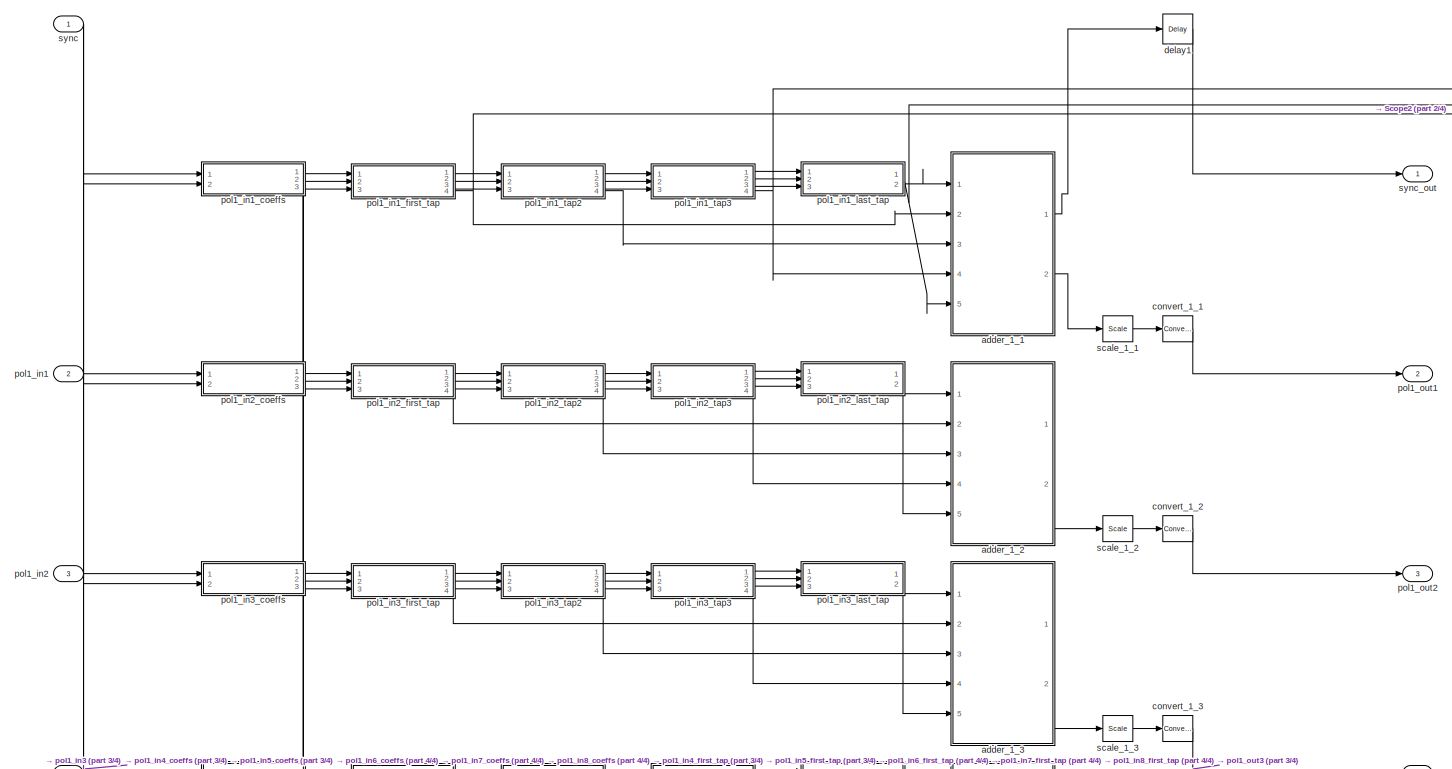
[diagram: pfb_fir_real1 - part 1/4, full width, top band]
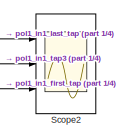
[diagram: pfb_fir_real1 - part 2/4, top right region]
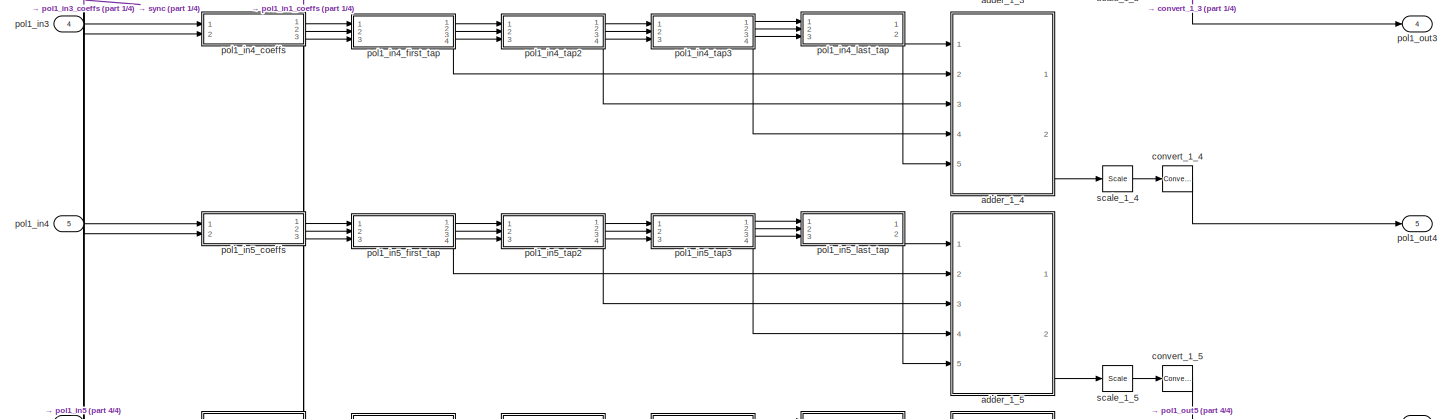
[diagram: pfb_fir_real1 - part 3/4, full width, middle band]
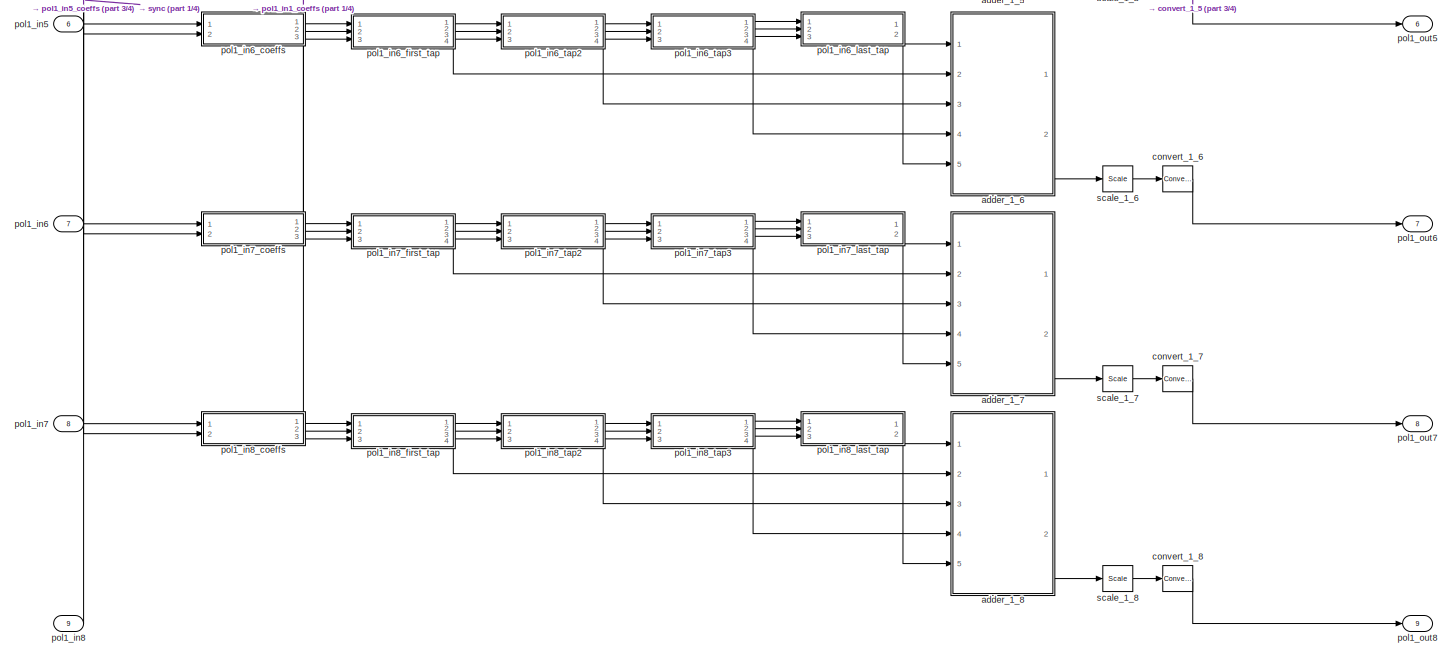
[diagram: pfb_fir_real1 - part 4/4, full width, bottom band]
BLOCK [SubSystem] pfb_fir_real1
  AncestorBlock = casper_library_pfbs/pfb_fir_real
  AttributesFormatString = taps=4, add_latency=2
  FunctionWithSeparateData = off
  MaskHideContents = off
  MinAlgLoopOccurrences = off
  Opaque = off
  Ports = [9, 9]
  PropExecContextOutsideSubsystem = off
  RTWSystemCode = Auto
  RequestExecContextInheritance = off
  SID = 160
  UserData = DataTag12
  UserDataPersistent = on
BLOCK [Scope] pfb_fir_real1/Scope2
  DataFormat = StructureWithTime
  Floating = off
  LimitDataPoints = off
  NumInputPorts = 3
  Ports = [3]
  SID = 160:284
  SampleInput = on
  SampleTime = 0
  SaveName = ScopeData3
  ShowLegends = off
  YMax = 1~0.0175~1
  YMin = -1~-0.015~-1
  ZoomMode = yonly
BLOCK [SubSystem] pfb_fir_real1/adder_1_1
  AncestorBlock = casper_library_misc/adder_tree
  AttributesFormatString = latency 4
  FunctionWithSeparateData = off
  MaskHideContents = off
  MinAlgLoopOccurrences = off
  Opaque = off
  Ports = [5, 2]
  PropExecContextOutsideSubsystem = off
  RTWSystemCode = Auto
  RequestExecContextInheritance = off
  SID = 160:10
  UserData = DataTag13
  UserDataPersistent = on
BLOCK [Reference] pfb_fir_real1/adder_1_1/addr1  REF=xbsIndex_r4/AddSub
  Ports = [2, 1]
  SID = 160:10:37
  SourceBlock = xbsIndex_r4/AddSub
  SourceType = Xilinx Adder/Subtracter Block
  arith_type = Signed  (2's comp)
  bin_pt = 24
  block_type = addsub
  dbl_ovrd = off
  en = off
  has_advanced_control = 0
  hw_selection = Fabric
  latency = 2
  mode = Addition
  n_bits = 26
  overflow = Wrap
  pipelined = on
  precision = User Defined
  quantization = Truncate
  sg_icon_stat = 40,60,2,1,white,blue,0,dcac4ee3,right,,[ ],[ ]
  sg_mask_display = fprintf('','COMMENT: begin icon graphics');\npatch([0 40 40 0 0 ],[0 0 60 60 0 ],[0.77 0.82 0.91 ]);\nplot([0 40 40 0 0 ],[0 0 60 60 0 ]);\npatch([8.875 16.1 21.1 26.1 31.1 21.1 13.875 8.875 ],[35.55 35.55 40.55 35.55 40.55 40.55 40.55 35.55 ],[1 1 1 ]);\npatch([13.875 21.1 16.1 8.875 13.875 ],[30.55 30.55 35.55 35.55 30.55 ],[0.931 0.946 0.973 ]);\npatch([8.875 16.1 21.1 13.875 8.875 ],[25.55 25....<+543ch>  <repeated x32 — deduplicated; at blocks: addr1, addr2, addr3>
  sggui_pos = -1,-1,-1,-1
  use_behavioral_HDL = on
  use_carryin = off
  use_carryout = off
  use_rpm = on
  xl_area = [0,0,0,0,0,0,0]
  xl_use_area = off
BLOCK [Reference] pfb_fir_real1/adder_1_1/addr2  REF=xbsIndex_r4/AddSub
  Ports = [2, 1]
  SID = 160:10:38
  SourceBlock = xbsIndex_r4/AddSub
  SourceType = Xilinx Adder/Subtracter Block
  arith_type = Signed  (2's comp)
  bin_pt = 24
  block_type = addsub
  dbl_ovrd = off
  en = off
  has_advanced_control = 0
  hw_selection = Fabric
  latency = 2
  mode = Addition
  n_bits = 26
  overflow = Wrap
  pipelined = on
  precision = User Defined
  quantization = Truncate
  sg_icon_stat = 40,60,2,1,white,blue,0,dcac4ee3,right,,[ ],[ ]
  sggui_pos = -1,-1,-1,-1
  use_behavioral_HDL = on
  use_carryin = off
  use_carryout = off
  use_rpm = on
  xl_area = [0,0,0,0,0,0,0]
  xl_use_area = off
BLOCK [Reference] pfb_fir_real1/adder_1_1/addr3  REF=xbsIndex_r4/AddSub
  Ports = [2, 1]
  SID = 160:10:39
  SourceBlock = xbsIndex_r4/AddSub
  SourceType = Xilinx Adder/Subtracter Block
  arith_type = Signed  (2's comp)
  bin_pt = 24
  block_type = addsub
  dbl_ovrd = off
  en = off
  has_advanced_control = 0
  hw_selection = Fabric
  latency = 2
  mode = Addition
  n_bits = 26
  overflow = Wrap
  pipelined = on
  precision = User Defined
  quantization = Truncate
  sg_icon_stat = 40,60,2,1,white,blue,0,dcac4ee3,right,,[ ],[ ]
  sggui_pos = 1700,20,451,368
  use_behavioral_HDL = on
  use_carryin = off
  use_carryout = off
  use_rpm = on
  xl_area = [0,0,0,0,0,0,0]
  xl_use_area = off
BLOCK [Inport] pfb_fir_real1/adder_1_1/din1
  IconDisplay = Port number
  Port = 2
  SID = 160:10:2
BLOCK [Inport] pfb_fir_real1/adder_1_1/din2
  IconDisplay = Port number
  Port = 3
  SID = 160:10:3
BLOCK [Inport] pfb_fir_real1/adder_1_1/din3
  IconDisplay = Port number
  Port = 4
  SID = 160:10:4
BLOCK [Inport] pfb_fir_real1/adder_1_1/din4
  IconDisplay = Port number
  Port = 5
  SID = 160:10:5
BLOCK [Outport] pfb_fir_real1/adder_1_1/dout
  IconDisplay = Port number
  Port = 2
  SID = 160:10:19
BLOCK [Inport] pfb_fir_real1/adder_1_1/sync
  IconDisplay = Port number
  SID = 160:10:1
BLOCK [Reference] pfb_fir_real1/adder_1_1/sync_delay  REF=xbsIndex_r4/Delay
  Ports = [1, 1]
  SID = 160:10:36
  SourceBlock = xbsIndex_r4/Delay
  SourceType = Xilinx Delay Block
  block_type = delay
  dbl_ovrd = off
  en = off
  has_advanced_control = 0
  infoedit = Hardware notes: A delay line is a chain, each link of which is an SRL16 followed by a flip-flop.
  infoeditControl = Selection of Reset will increase slice count due to use of real FFs and instead of SRLs
  latency = 4
  reg_retiming = on
  rst = off
  sg_icon_stat = 30,30,1,1,white,blue,0,d390c2d8,right,,[ ],[ ]
  sg_mask_display = fprintf('','COMMENT: begin icon graphics');\npatch([0 30 30 0 0 ],[0 0 30 30 0 ],[0.77 0.82 0.91 ]);\nplot([0 30 30 0 0 ],[0 0 30 30 0 ]);\npatch([6.1 11.88 15.88 19.88 23.88 15.88 10.1 6.1 ],[19.44 19.44 23.44 19.44 23.44 23.44 23.44 19.44 ],[1 1 1 ]);\npatch([10.1 15.88 11.88 6.1 10.1 ],[15.44 15.44 19.44 19.44 15.44 ],[0.931 0.946 0.973 ]);\npatch([6.1 11.88 15.88 10.1 6.1 ],[11.44 11.44 15.44 ...<+310ch>  <repeated x17 — deduplicated; at blocks: sync_delay, delay1>
  sggui_pos = -1,-1,-1,-1
  xl_area = [0,0,0,0,0,0,0]
  xl_use_area = off
BLOCK [Outport] pfb_fir_real1/adder_1_1/sync_out
  IconDisplay = Port number
  SID = 160:10:18
BLOCK [SubSystem] pfb_fir_real1/adder_1_2
  AncestorBlock = casper_library_misc/adder_tree
  AttributesFormatString = latency 4
  FunctionWithSeparateData = off
  MaskHideContents = off
  MinAlgLoopOccurrences = off
  Opaque = off
  Ports = [5, 2]
  PropExecContextOutsideSubsystem = off
  RTWSystemCode = Auto
  RequestExecContextInheritance = off
  SID = 160:11
  UserData = DataTag14
  UserDataPersistent = on
BLOCK [Reference] pfb_fir_real1/adder_1_2/addr1  REF=xbsIndex_r4/AddSub
  Ports = [2, 1]
  SID = 160:11:37
  SourceBlock = xbsIndex_r4/AddSub
  SourceType = Xilinx Adder/Subtracter Block
  arith_type = Signed  (2's comp)
  bin_pt = 24
  block_type = addsub
  dbl_ovrd = off
  en = off
  has_advanced_control = 0
  hw_selection = Fabric
  latency = 2
  mode = Addition
  n_bits = 26
  overflow = Wrap
  pipelined = on
  precision = User Defined
  quantization = Truncate
  sg_icon_stat = 40,60,2,1,white,blue,0,dcac4ee3,right,,[ ],[ ]
  sggui_pos = -1,-1,-1,-1
  use_behavioral_HDL = on
  use_carryin = off
  use_carryout = off
  use_rpm = on
  xl_area = [0,0,0,0,0,0,0]
  xl_use_area = off
BLOCK [Reference] pfb_fir_real1/adder_1_2/addr2  REF=xbsIndex_r4/AddSub
  Ports = [2, 1]
  SID = 160:11:38
  SourceBlock = xbsIndex_r4/AddSub
  SourceType = Xilinx Adder/Subtracter Block
  arith_type = Signed  (2's comp)
  bin_pt = 24
  block_type = addsub
  dbl_ovrd = off
  en = off
  has_advanced_control = 0
  hw_selection = Fabric
  latency = 2
  mode = Addition
  n_bits = 26
  overflow = Wrap
  pipelined = on
  precision = User Defined
  quantization = Truncate
  sg_icon_stat = 40,60,2,1,white,blue,0,dcac4ee3,right,,[ ],[ ]
  sggui_pos = -1,-1,-1,-1
  use_behavioral_HDL = on
  use_carryin = off
  use_carryout = off
  use_rpm = on
  xl_area = [0,0,0,0,0,0,0]
  xl_use_area = off
BLOCK [Reference] pfb_fir_real1/adder_1_2/addr3  REF=xbsIndex_r4/AddSub
  Ports = [2, 1]
  SID = 160:11:39
  SourceBlock = xbsIndex_r4/AddSub
  SourceType = Xilinx Adder/Subtracter Block
  arith_type = Signed  (2's comp)
  bin_pt = 24
  block_type = addsub
  dbl_ovrd = off
  en = off
  has_advanced_control = 0
  hw_selection = Fabric
  latency = 2
  mode = Addition
  n_bits = 26
  overflow = Wrap
  pipelined = on
  precision = User Defined
  quantization = Truncate
  sg_icon_stat = 40,60,2,1,white,blue,0,dcac4ee3,right,,[ ],[ ]
  sggui_pos = -1,-1,-1,-1
  use_behavioral_HDL = on
  use_carryin = off
  use_carryout = off
  use_rpm = on
  xl_area = [0,0,0,0,0,0,0]
  xl_use_area = off
BLOCK [Inport] pfb_fir_real1/adder_1_2/din1
  IconDisplay = Port number
  Port = 2
  SID = 160:11:2
BLOCK [Inport] pfb_fir_real1/adder_1_2/din2
  IconDisplay = Port number
  Port = 3
  SID = 160:11:3
BLOCK [Inport] pfb_fir_real1/adder_1_2/din3
  IconDisplay = Port number
  Port = 4
  SID = 160:11:4
BLOCK [Inport] pfb_fir_real1/adder_1_2/din4
  IconDisplay = Port number
  Port = 5
  SID = 160:11:5
BLOCK [Outport] pfb_fir_real1/adder_1_2/dout
  IconDisplay = Port number
  Port = 2
  SID = 160:11:19
BLOCK [Inport] pfb_fir_real1/adder_1_2/sync
  IconDisplay = Port number
  SID = 160:11:1
BLOCK [Reference] pfb_fir_real1/adder_1_2/sync_delay  REF=xbsIndex_r4/Delay
  Ports = [1, 1]
  SID = 160:11:36
  SourceBlock = xbsIndex_r4/Delay
  SourceType = Xilinx Delay Block
  block_type = delay
  dbl_ovrd = off
  en = off
  has_advanced_control = 0
  infoedit = Hardware notes: A delay line is a chain, each link of which is an SRL16 followed by a flip-flop.
  infoeditControl = Selection of Reset will increase slice count due to use of real FFs and instead of SRLs
  latency = 4
  reg_retiming = on
  rst = off
  sg_icon_stat = 30,30,1,1,white,blue,0,d390c2d8,right,,[ ],[ ]
  sggui_pos = -1,-1,-1,-1
  xl_area = [0,0,0,0,0,0,0]
  xl_use_area = off
BLOCK [Outport] pfb_fir_real1/adder_1_2/sync_out
  IconDisplay = Port number
  SID = 160:11:18
BLOCK [SubSystem] pfb_fir_real1/adder_1_3
  AncestorBlock = casper_library_misc/adder_tree
  AttributesFormatString = latency 4
  FunctionWithSeparateData = off
  MaskHideContents = off
  MinAlgLoopOccurrences = off
  Opaque = off
  Ports = [5, 2]
  PropExecContextOutsideSubsystem = off
  RTWSystemCode = Auto
  RequestExecContextInheritance = off
  SID = 160:12
  UserData = DataTag15
  UserDataPersistent = on
BLOCK [Reference] pfb_fir_real1/adder_1_3/addr1  REF=xbsIndex_r4/AddSub
  Ports = [2, 1]
  SID = 160:12:37
  SourceBlock = xbsIndex_r4/AddSub
  SourceType = Xilinx Adder/Subtracter Block
  arith_type = Signed  (2's comp)
  bin_pt = 24
  block_type = addsub
  dbl_ovrd = off
  en = off
  has_advanced_control = 0
  hw_selection = Fabric
  latency = 2
  mode = Addition
  n_bits = 26
  overflow = Wrap
  pipelined = on
  precision = User Defined
  quantization = Truncate
  sg_icon_stat = 40,60,2,1,white,blue,0,dcac4ee3,right,,[ ],[ ]
  sggui_pos = -1,-1,-1,-1
  use_behavioral_HDL = on
  use_carryin = off
  use_carryout = off
  use_rpm = on
  xl_area = [0,0,0,0,0,0,0]
  xl_use_area = off
BLOCK [Reference] pfb_fir_real1/adder_1_3/addr2  REF=xbsIndex_r4/AddSub
  Ports = [2, 1]
  SID = 160:12:38
  SourceBlock = xbsIndex_r4/AddSub
  SourceType = Xilinx Adder/Subtracter Block
  arith_type = Signed  (2's comp)
  bin_pt = 24
  block_type = addsub
  dbl_ovrd = off
  en = off
  has_advanced_control = 0
  hw_selection = Fabric
  latency = 2
  mode = Addition
  n_bits = 26
  overflow = Wrap
  pipelined = on
  precision = User Defined
  quantization = Truncate
  sg_icon_stat = 40,60,2,1,white,blue,0,dcac4ee3,right,,[ ],[ ]
  sggui_pos = -1,-1,-1,-1
  use_behavioral_HDL = on
  use_carryin = off
  use_carryout = off
  use_rpm = on
  xl_area = [0,0,0,0,0,0,0]
  xl_use_area = off
BLOCK [Reference] pfb_fir_real1/adder_1_3/addr3  REF=xbsIndex_r4/AddSub
  Ports = [2, 1]
  SID = 160:12:39
  SourceBlock = xbsIndex_r4/AddSub
  SourceType = Xilinx Adder/Subtracter Block
  arith_type = Signed  (2's comp)
  bin_pt = 24
  block_type = addsub
  dbl_ovrd = off
  en = off
  has_advanced_control = 0
  hw_selection = Fabric
  latency = 2
  mode = Addition
  n_bits = 26
  overflow = Wrap
  pipelined = on
  precision = User Defined
  quantization = Truncate
  sg_icon_stat = 40,60,2,1,white,blue,0,dcac4ee3,right,,[ ],[ ]
  sggui_pos = -1,-1,-1,-1
  use_behavioral_HDL = on
  use_carryin = off
  use_carryout = off
  use_rpm = on
  xl_area = [0,0,0,0,0,0,0]
  xl_use_area = off
BLOCK [Inport] pfb_fir_real1/adder_1_3/din1
  IconDisplay = Port number
  Port = 2
  SID = 160:12:2
BLOCK [Inport] pfb_fir_real1/adder_1_3/din2
  IconDisplay = Port number
  Port = 3
  SID = 160:12:3
BLOCK [Inport] pfb_fir_real1/adder_1_3/din3
  IconDisplay = Port number
  Port = 4
  SID = 160:12:4
BLOCK [Inport] pfb_fir_real1/adder_1_3/din4
  IconDisplay = Port number
  Port = 5
  SID = 160:12:5
BLOCK [Outport] pfb_fir_real1/adder_1_3/dout
  IconDisplay = Port number
  Port = 2
  SID = 160:12:19
BLOCK [Inport] pfb_fir_real1/adder_1_3/sync
  IconDisplay = Port number
  SID = 160:12:1
BLOCK [Reference] pfb_fir_real1/adder_1_3/sync_delay  REF=xbsIndex_r4/Delay
  Ports = [1, 1]
  SID = 160:12:36
  SourceBlock = xbsIndex_r4/Delay
  SourceType = Xilinx Delay Block
  block_type = delay
  dbl_ovrd = off
  en = off
  has_advanced_control = 0
  infoedit = Hardware notes: A delay line is a chain, each link of which is an SRL16 followed by a flip-flop.
  infoeditControl = Selection of Reset will increase slice count due to use of real FFs and instead of SRLs
  latency = 4
  reg_retiming = on
  rst = off
  sg_icon_stat = 30,30,1,1,white,blue,0,d390c2d8,right,,[ ],[ ]
  sggui_pos = -1,-1,-1,-1
  xl_area = [0,0,0,0,0,0,0]
  xl_use_area = off
BLOCK [Outport] pfb_fir_real1/adder_1_3/sync_out
  IconDisplay = Port number
  SID = 160:12:18
BLOCK [SubSystem] pfb_fir_real1/adder_1_4
  AncestorBlock = casper_library_misc/adder_tree
  AttributesFormatString = latency 4
  FunctionWithSeparateData = off
  MaskHideContents = off
  MinAlgLoopOccurrences = off
  Opaque = off
  Ports = [5, 2]
  PropExecContextOutsideSubsystem = off
  RTWSystemCode = Auto
  RequestExecContextInheritance = off
  SID = 160:13
  UserData = DataTag16
  UserDataPersistent = on
BLOCK [Reference] pfb_fir_real1/adder_1_4/addr1  REF=xbsIndex_r4/AddSub
  Ports = [2, 1]
  SID = 160:13:37
  SourceBlock = xbsIndex_r4/AddSub
  SourceType = Xilinx Adder/Subtracter Block
  arith_type = Signed  (2's comp)
  bin_pt = 24
  block_type = addsub
  dbl_ovrd = off
  en = off
  has_advanced_control = 0
  hw_selection = Fabric
  latency = 2
  mode = Addition
  n_bits = 26
  overflow = Wrap
  pipelined = on
  precision = User Defined
  quantization = Truncate
  sg_icon_stat = 40,60,2,1,white,blue,0,dcac4ee3,right,,[ ],[ ]
  sggui_pos = -1,-1,-1,-1
  use_behavioral_HDL = on
  use_carryin = off
  use_carryout = off
  use_rpm = on
  xl_area = [0,0,0,0,0,0,0]
  xl_use_area = off
BLOCK [Reference] pfb_fir_real1/adder_1_4/addr2  REF=xbsIndex_r4/AddSub
  Ports = [2, 1]
  SID = 160:13:38
  SourceBlock = xbsIndex_r4/AddSub
  SourceType = Xilinx Adder/Subtracter Block
  arith_type = Signed  (2's comp)
  bin_pt = 24
  block_type = addsub
  dbl_ovrd = off
  en = off
  has_advanced_control = 0
  hw_selection = Fabric
  latency = 2
  mode = Addition
  n_bits = 26
  overflow = Wrap
  pipelined = on
  precision = User Defined
  quantization = Truncate
  sg_icon_stat = 40,60,2,1,white,blue,0,dcac4ee3,right,,[ ],[ ]
  sggui_pos = -1,-1,-1,-1
  use_behavioral_HDL = on
  use_carryin = off
  use_carryout = off
  use_rpm = on
  xl_area = [0,0,0,0,0,0,0]
  xl_use_area = off
BLOCK [Reference] pfb_fir_real1/adder_1_4/addr3  REF=xbsIndex_r4/AddSub
  Ports = [2, 1]
  SID = 160:13:39
  SourceBlock = xbsIndex_r4/AddSub
  SourceType = Xilinx Adder/Subtracter Block
  arith_type = Signed  (2's comp)
  bin_pt = 24
  block_type = addsub
  dbl_ovrd = off
  en = off
  has_advanced_control = 0
  hw_selection = Fabric
  latency = 2
  mode = Addition
  n_bits = 26
  overflow = Wrap
  pipelined = on
  precision = User Defined
  quantization = Truncate
  sg_icon_stat = 40,60,2,1,white,blue,0,dcac4ee3,right,,[ ],[ ]
  sggui_pos = -1,-1,-1,-1
  use_behavioral_HDL = on
  use_carryin = off
  use_carryout = off
  use_rpm = on
  xl_area = [0,0,0,0,0,0,0]
  xl_use_area = off
BLOCK [Inport] pfb_fir_real1/adder_1_4/din1
  IconDisplay = Port number
  Port = 2
  SID = 160:13:2
BLOCK [Inport] pfb_fir_real1/adder_1_4/din2
  IconDisplay = Port number
  Port = 3
  SID = 160:13:3
BLOCK [Inport] pfb_fir_real1/adder_1_4/din3
  IconDisplay = Port number
  Port = 4
  SID = 160:13:4
BLOCK [Inport] pfb_fir_real1/adder_1_4/din4
  IconDisplay = Port number
  Port = 5
  SID = 160:13:5
BLOCK [Outport] pfb_fir_real1/adder_1_4/dout
  IconDisplay = Port number
  Port = 2
  SID = 160:13:19
BLOCK [Inport] pfb_fir_real1/adder_1_4/sync
  IconDisplay = Port number
  SID = 160:13:1
BLOCK [Reference] pfb_fir_real1/adder_1_4/sync_delay  REF=xbsIndex_r4/Delay
  Ports = [1, 1]
  SID = 160:13:36
  SourceBlock = xbsIndex_r4/Delay
  SourceType = Xilinx Delay Block
  block_type = delay
  dbl_ovrd = off
  en = off
  has_advanced_control = 0
  infoedit = Hardware notes: A delay line is a chain, each link of which is an SRL16 followed by a flip-flop.
  infoeditControl = Selection of Reset will increase slice count due to use of real FFs and instead of SRLs
  latency = 4
  reg_retiming = on
  rst = off
  sg_icon_stat = 30,30,1,1,white,blue,0,d390c2d8,right,,[ ],[ ]
  sggui_pos = -1,-1,-1,-1
  xl_area = [0,0,0,0,0,0,0]
  xl_use_area = off
BLOCK [Outport] pfb_fir_real1/adder_1_4/sync_out
  IconDisplay = Port number
  SID = 160:13:18
BLOCK [SubSystem] pfb_fir_real1/adder_1_5
  AncestorBlock = casper_library_misc/adder_tree
  AttributesFormatString = latency 4
  FunctionWithSeparateData = off
  MaskHideContents = off
  MinAlgLoopOccurrences = off
  Opaque = off
  Ports = [5, 2]
  PropExecContextOutsideSubsystem = off
  RTWSystemCode = Auto
  RequestExecContextInheritance = off
  SID = 160:14
  UserData = DataTag17
  UserDataPersistent = on
BLOCK [Reference] pfb_fir_real1/adder_1_5/addr1  REF=xbsIndex_r4/AddSub
  Ports = [2, 1]
  SID = 160:14:37
  SourceBlock = xbsIndex_r4/AddSub
  SourceType = Xilinx Adder/Subtracter Block
  arith_type = Signed  (2's comp)
  bin_pt = 24
  block_type = addsub
  dbl_ovrd = off
  en = off
  has_advanced_control = 0
  hw_selection = Fabric
  latency = 2
  mode = Addition
  n_bits = 26
  overflow = Wrap
  pipelined = on
  precision = User Defined
  quantization = Truncate
  sg_icon_stat = 40,60,2,1,white,blue,0,dcac4ee3,right,,[ ],[ ]
  sggui_pos = -1,-1,-1,-1
  use_behavioral_HDL = on
  use_carryin = off
  use_carryout = off
  use_rpm = on
  xl_area = [0,0,0,0,0,0,0]
  xl_use_area = off
BLOCK [Reference] pfb_fir_real1/adder_1_5/addr2  REF=xbsIndex_r4/AddSub
  Ports = [2, 1]
  SID = 160:14:38
  SourceBlock = xbsIndex_r4/AddSub
  SourceType = Xilinx Adder/Subtracter Block
  arith_type = Signed  (2's comp)
  bin_pt = 24
  block_type = addsub
  dbl_ovrd = off
  en = off
  has_advanced_control = 0
  hw_selection = Fabric
  latency = 2
  mode = Addition
  n_bits = 26
  overflow = Wrap
  pipelined = on
  precision = User Defined
  quantization = Truncate
  sg_icon_stat = 40,60,2,1,white,blue,0,dcac4ee3,right,,[ ],[ ]
  sggui_pos = -1,-1,-1,-1
  use_behavioral_HDL = on
  use_carryin = off
  use_carryout = off
  use_rpm = on
  xl_area = [0,0,0,0,0,0,0]
  xl_use_area = off
BLOCK [Reference] pfb_fir_real1/adder_1_5/addr3  REF=xbsIndex_r4/AddSub
  Ports = [2, 1]
  SID = 160:14:39
  SourceBlock = xbsIndex_r4/AddSub
  SourceType = Xilinx Adder/Subtracter Block
  arith_type = Signed  (2's comp)
  bin_pt = 24
  block_type = addsub
  dbl_ovrd = off
  en = off
  has_advanced_control = 0
  hw_selection = Fabric
  latency = 2
  mode = Addition
  n_bits = 26
  overflow = Wrap
  pipelined = on
  precision = User Defined
  quantization = Truncate
  sg_icon_stat = 40,60,2,1,white,blue,0,dcac4ee3,right,,[ ],[ ]
  sggui_pos = -1,-1,-1,-1
  use_behavioral_HDL = on
  use_carryin = off
  use_carryout = off
  use_rpm = on
  xl_area = [0,0,0,0,0,0,0]
  xl_use_area = off
BLOCK [Inport] pfb_fir_real1/adder_1_5/din1
  IconDisplay = Port number
  Port = 2
  SID = 160:14:2
BLOCK [Inport] pfb_fir_real1/adder_1_5/din2
  IconDisplay = Port number
  Port = 3
  SID = 160:14:3
BLOCK [Inport] pfb_fir_real1/adder_1_5/din3
  IconDisplay = Port number
  Port = 4
  SID = 160:14:4
BLOCK [Inport] pfb_fir_real1/adder_1_5/din4
  IconDisplay = Port number
  Port = 5
  SID = 160:14:5
BLOCK [Outport] pfb_fir_real1/adder_1_5/dout
  IconDisplay = Port number
  Port = 2
  SID = 160:14:19
BLOCK [Inport] pfb_fir_real1/adder_1_5/sync
  IconDisplay = Port number
  SID = 160:14:1
BLOCK [Reference] pfb_fir_real1/adder_1_5/sync_delay  REF=xbsIndex_r4/Delay
  Ports = [1, 1]
  SID = 160:14:36
  SourceBlock = xbsIndex_r4/Delay
  SourceType = Xilinx Delay Block
  block_type = delay
  dbl_ovrd = off
  en = off
  has_advanced_control = 0
  infoedit = Hardware notes: A delay line is a chain, each link of which is an SRL16 followed by a flip-flop.
  infoeditControl = Selection of Reset will increase slice count due to use of real FFs and instead of SRLs
  latency = 4
  reg_retiming = on
  rst = off
  sg_icon_stat = 30,30,1,1,white,blue,0,d390c2d8,right,,[ ],[ ]
  sggui_pos = -1,-1,-1,-1
  xl_area = [0,0,0,0,0,0,0]
  xl_use_area = off
BLOCK [Outport] pfb_fir_real1/adder_1_5/sync_out
  IconDisplay = Port number
  SID = 160:14:18
BLOCK [SubSystem] pfb_fir_real1/adder_1_6
  AncestorBlock = casper_library_misc/adder_tree
  AttributesFormatString = latency 4
  FunctionWithSeparateData = off
  MaskHideContents = off
  MinAlgLoopOccurrences = off
  Opaque = off
  Ports = [5, 2]
  PropExecContextOutsideSubsystem = off
  RTWSystemCode = Auto
  RequestExecContextInheritance = off
  SID = 160:15
  UserData = DataTag18
  UserDataPersistent = on
BLOCK [Reference] pfb_fir_real1/adder_1_6/addr1  REF=xbsIndex_r4/AddSub
  Ports = [2, 1]
  SID = 160:15:37
  SourceBlock = xbsIndex_r4/AddSub
  SourceType = Xilinx Adder/Subtracter Block
  arith_type = Signed  (2's comp)
  bin_pt = 24
  block_type = addsub
  dbl_ovrd = off
  en = off
  has_advanced_control = 0
  hw_selection = Fabric
  latency = 2
  mode = Addition
  n_bits = 26
  overflow = Wrap
  pipelined = on
  precision = User Defined
  quantization = Truncate
  sg_icon_stat = 40,60,2,1,white,blue,0,dcac4ee3,right,,[ ],[ ]
  sggui_pos = -1,-1,-1,-1
  use_behavioral_HDL = on
  use_carryin = off
  use_carryout = off
  use_rpm = on
  xl_area = [0,0,0,0,0,0,0]
  xl_use_area = off
BLOCK [Reference] pfb_fir_real1/adder_1_6/addr2  REF=xbsIndex_r4/AddSub
  Ports = [2, 1]
  SID = 160:15:38
  SourceBlock = xbsIndex_r4/AddSub
  SourceType = Xilinx Adder/Subtracter Block
  arith_type = Signed  (2's comp)
  bin_pt = 24
  block_type = addsub
  dbl_ovrd = off
  en = off
  has_advanced_control = 0
  hw_selection = Fabric
  latency = 2
  mode = Addition
  n_bits = 26
  overflow = Wrap
  pipelined = on
  precision = User Defined
  quantization = Truncate
  sg_icon_stat = 40,60,2,1,white,blue,0,dcac4ee3,right,,[ ],[ ]
  sggui_pos = -1,-1,-1,-1
  use_behavioral_HDL = on
  use_carryin = off
  use_carryout = off
  use_rpm = on
  xl_area = [0,0,0,0,0,0,0]
  xl_use_area = off
BLOCK [Reference] pfb_fir_real1/adder_1_6/addr3  REF=xbsIndex_r4/AddSub
  Ports = [2, 1]
  SID = 160:15:39
  SourceBlock = xbsIndex_r4/AddSub
  SourceType = Xilinx Adder/Subtracter Block
  arith_type = Signed  (2's comp)
  bin_pt = 24
  block_type = addsub
  dbl_ovrd = off
  en = off
  has_advanced_control = 0
  hw_selection = Fabric
  latency = 2
  mode = Addition
  n_bits = 26
  overflow = Wrap
  pipelined = on
  precision = User Defined
  quantization = Truncate
  sg_icon_stat = 40,60,2,1,white,blue,0,dcac4ee3,right,,[ ],[ ]
  sggui_pos = -1,-1,-1,-1
  use_behavioral_HDL = on
  use_carryin = off
  use_carryout = off
  use_rpm = on
  xl_area = [0,0,0,0,0,0,0]
  xl_use_area = off
BLOCK [Inport] pfb_fir_real1/adder_1_6/din1
  IconDisplay = Port number
  Port = 2
  SID = 160:15:2
BLOCK [Inport] pfb_fir_real1/adder_1_6/din2
  IconDisplay = Port number
  Port = 3
  SID = 160:15:3
BLOCK [Inport] pfb_fir_real1/adder_1_6/din3
  IconDisplay = Port number
  Port = 4
  SID = 160:15:4
BLOCK [Inport] pfb_fir_real1/adder_1_6/din4
  IconDisplay = Port number
  Port = 5
  SID = 160:15:5
BLOCK [Outport] pfb_fir_real1/adder_1_6/dout
  IconDisplay = Port number
  Port = 2
  SID = 160:15:19
BLOCK [Inport] pfb_fir_real1/adder_1_6/sync
  IconDisplay = Port number
  SID = 160:15:1
BLOCK [Reference] pfb_fir_real1/adder_1_6/sync_delay  REF=xbsIndex_r4/Delay
  Ports = [1, 1]
  SID = 160:15:36
  SourceBlock = xbsIndex_r4/Delay
  SourceType = Xilinx Delay Block
  block_type = delay
  dbl_ovrd = off
  en = off
  has_advanced_control = 0
  infoedit = Hardware notes: A delay line is a chain, each link of which is an SRL16 followed by a flip-flop.
  infoeditControl = Selection of Reset will increase slice count due to use of real FFs and instead of SRLs
  latency = 4
  reg_retiming = on
  rst = off
  sg_icon_stat = 30,30,1,1,white,blue,0,d390c2d8,right,,[ ],[ ]
  sggui_pos = -1,-1,-1,-1
  xl_area = [0,0,0,0,0,0,0]
  xl_use_area = off
BLOCK [Outport] pfb_fir_real1/adder_1_6/sync_out
  IconDisplay = Port number
  SID = 160:15:18
BLOCK [SubSystem] pfb_fir_real1/adder_1_7
  AncestorBlock = casper_library_misc/adder_tree
  AttributesFormatString = latency 4
  FunctionWithSeparateData = off
  MaskHideContents = off
  MinAlgLoopOccurrences = off
  Opaque = off
  Ports = [5, 2]
  PropExecContextOutsideSubsystem = off
  RTWSystemCode = Auto
  RequestExecContextInheritance = off
  SID = 160:16
  UserData = DataTag19
  UserDataPersistent = on
BLOCK [Reference] pfb_fir_real1/adder_1_7/addr1  REF=xbsIndex_r4/AddSub
  Ports = [2, 1]
  SID = 160:16:37
  SourceBlock = xbsIndex_r4/AddSub
  SourceType = Xilinx Adder/Subtracter Block
  arith_type = Signed  (2's comp)
  bin_pt = 24
  block_type = addsub
  dbl_ovrd = off
  en = off
  has_advanced_control = 0
  hw_selection = Fabric
  latency = 2
  mode = Addition
  n_bits = 26
  overflow = Wrap
  pipelined = on
  precision = User Defined
  quantization = Truncate
  sg_icon_stat = 40,60,2,1,white,blue,0,dcac4ee3,right,,[ ],[ ]
  sggui_pos = -1,-1,-1,-1
  use_behavioral_HDL = on
  use_carryin = off
  use_carryout = off
  use_rpm = on
  xl_area = [0,0,0,0,0,0,0]
  xl_use_area = off
BLOCK [Reference] pfb_fir_real1/adder_1_7/addr2  REF=xbsIndex_r4/AddSub
  Ports = [2, 1]
  SID = 160:16:38
  SourceBlock = xbsIndex_r4/AddSub
  SourceType = Xilinx Adder/Subtracter Block
  arith_type = Signed  (2's comp)
  bin_pt = 24
  block_type = addsub
  dbl_ovrd = off
  en = off
  has_advanced_control = 0
  hw_selection = Fabric
  latency = 2
  mode = Addition
  n_bits = 26
  overflow = Wrap
  pipelined = on
  precision = User Defined
  quantization = Truncate
  sg_icon_stat = 40,60,2,1,white,blue,0,dcac4ee3,right,,[ ],[ ]
  sggui_pos = -1,-1,-1,-1
  use_behavioral_HDL = on
  use_carryin = off
  use_carryout = off
  use_rpm = on
  xl_area = [0,0,0,0,0,0,0]
  xl_use_area = off
BLOCK [Reference] pfb_fir_real1/adder_1_7/addr3  REF=xbsIndex_r4/AddSub
  Ports = [2, 1]
  SID = 160:16:39
  SourceBlock = xbsIndex_r4/AddSub
  SourceType = Xilinx Adder/Subtracter Block
  arith_type = Signed  (2's comp)
  bin_pt = 24
  block_type = addsub
  dbl_ovrd = off
  en = off
  has_advanced_control = 0
  hw_selection = Fabric
  latency = 2
  mode = Addition
  n_bits = 26
  overflow = Wrap
  pipelined = on
  precision = User Defined
  quantization = Truncate
  sg_icon_stat = 40,60,2,1,white,blue,0,dcac4ee3,right,,[ ],[ ]
  sggui_pos = -1,-1,-1,-1
  use_behavioral_HDL = on
  use_carryin = off
  use_carryout = off
  use_rpm = on
  xl_area = [0,0,0,0,0,0,0]
  xl_use_area = off
BLOCK [Inport] pfb_fir_real1/adder_1_7/din1
  IconDisplay = Port number
  Port = 2
  SID = 160:16:2
BLOCK [Inport] pfb_fir_real1/adder_1_7/din2
  IconDisplay = Port number
  Port = 3
  SID = 160:16:3
BLOCK [Inport] pfb_fir_real1/adder_1_7/din3
  IconDisplay = Port number
  Port = 4
  SID = 160:16:4
BLOCK [Inport] pfb_fir_real1/adder_1_7/din4
  IconDisplay = Port number
  Port = 5
  SID = 160:16:5
BLOCK [Outport] pfb_fir_real1/adder_1_7/dout
  IconDisplay = Port number
  Port = 2
  SID = 160:16:19
BLOCK [Inport] pfb_fir_real1/adder_1_7/sync
  IconDisplay = Port number
  SID = 160:16:1
BLOCK [Reference] pfb_fir_real1/adder_1_7/sync_delay  REF=xbsIndex_r4/Delay
  Ports = [1, 1]
  SID = 160:16:36
  SourceBlock = xbsIndex_r4/Delay
  SourceType = Xilinx Delay Block
  block_type = delay
  dbl_ovrd = off
  en = off
  has_advanced_control = 0
  infoedit = Hardware notes: A delay line is a chain, each link of which is an SRL16 followed by a flip-flop.
  infoeditControl = Selection of Reset will increase slice count due to use of real FFs and instead of SRLs
  latency = 4
  reg_retiming = on
  rst = off
  sg_icon_stat = 30,30,1,1,white,blue,0,d390c2d8,right,,[ ],[ ]
  sggui_pos = -1,-1,-1,-1
  xl_area = [0,0,0,0,0,0,0]
  xl_use_area = off
BLOCK [Outport] pfb_fir_real1/adder_1_7/sync_out
  IconDisplay = Port number
  SID = 160:16:18
BLOCK [SubSystem] pfb_fir_real1/adder_1_8
  AncestorBlock = casper_library_misc/adder_tree
  AttributesFormatString = latency 4
  FunctionWithSeparateData = off
  MaskHideContents = off
  MinAlgLoopOccurrences = off
  Opaque = off
  Ports = [5, 2]
  PropExecContextOutsideSubsystem = off
  RTWSystemCode = Auto
  RequestExecContextInheritance = off
  SID = 160:17
  UserData = DataTag20
  UserDataPersistent = on
BLOCK [Reference] pfb_fir_real1/adder_1_8/addr1  REF=xbsIndex_r4/AddSub
  Ports = [2, 1]
  SID = 160:17:37
  SourceBlock = xbsIndex_r4/AddSub
  SourceType = Xilinx Adder/Subtracter Block
  arith_type = Signed  (2's comp)
  bin_pt = 24
  block_type = addsub
  dbl_ovrd = off
  en = off
  has_advanced_control = 0
  hw_selection = Fabric
  latency = 2
  mode = Addition
  n_bits = 26
  overflow = Wrap
  pipelined = on
  precision = User Defined
  quantization = Truncate
  sg_icon_stat = 40,60,2,1,white,blue,0,dcac4ee3,right,,[ ],[ ]
  sggui_pos = -1,-1,-1,-1
  use_behavioral_HDL = on
  use_carryin = off
  use_carryout = off
  use_rpm = on
  xl_area = [0,0,0,0,0,0,0]
  xl_use_area = off
BLOCK [Reference] pfb_fir_real1/adder_1_8/addr2  REF=xbsIndex_r4/AddSub
  Ports = [2, 1]
  SID = 160:17:38
  SourceBlock = xbsIndex_r4/AddSub
  SourceType = Xilinx Adder/Subtracter Block
  arith_type = Signed  (2's comp)
  bin_pt = 24
  block_type = addsub
  dbl_ovrd = off
  en = off
  has_advanced_control = 0
  hw_selection = Fabric
  latency = 2
  mode = Addition
  n_bits = 26
  overflow = Wrap
  pipelined = on
  precision = User Defined
  quantization = Truncate
  sg_icon_stat = 40,60,2,1,white,blue,0,dcac4ee3,right,,[ ],[ ]
  sggui_pos = -1,-1,-1,-1
  use_behavioral_HDL = on
  use_carryin = off
  use_carryout = off
  use_rpm = on
  xl_area = [0,0,0,0,0,0,0]
  xl_use_area = off
BLOCK [Reference] pfb_fir_real1/adder_1_8/addr3  REF=xbsIndex_r4/AddSub
  Ports = [2, 1]
  SID = 160:17:39
  SourceBlock = xbsIndex_r4/AddSub
  SourceType = Xilinx Adder/Subtracter Block
  arith_type = Signed  (2's comp)
  bin_pt = 24
  block_type = addsub
  dbl_ovrd = off
  en = off
  has_advanced_control = 0
  hw_selection = Fabric
  latency = 2
  mode = Addition
  n_bits = 26
  overflow = Wrap
  pipelined = on
  precision = User Defined
  quantization = Truncate
  sg_icon_stat = 40,60,2,1,white,blue,0,dcac4ee3,right,,[ ],[ ]
  sggui_pos = -1,-1,-1,-1
  use_behavioral_HDL = on
  use_carryin = off
  use_carryout = off
  use_rpm = on
  xl_area = [0,0,0,0,0,0,0]
  xl_use_area = off
BLOCK [Inport] pfb_fir_real1/adder_1_8/din1
  IconDisplay = Port number
  Port = 2
  SID = 160:17:2
BLOCK [Inport] pfb_fir_real1/adder_1_8/din2
  IconDisplay = Port number
  Port = 3
  SID = 160:17:3
BLOCK [Inport] pfb_fir_real1/adder_1_8/din3
  IconDisplay = Port number
  Port = 4
  SID = 160:17:4
BLOCK [Inport] pfb_fir_real1/adder_1_8/din4
  IconDisplay = Port number
  Port = 5
  SID = 160:17:5
BLOCK [Outport] pfb_fir_real1/adder_1_8/dout
  IconDisplay = Port number
  Port = 2
  SID = 160:17:19
BLOCK [Inport] pfb_fir_real1/adder_1_8/sync
  IconDisplay = Port number
  SID = 160:17:1
BLOCK [Reference] pfb_fir_real1/adder_1_8/sync_delay  REF=xbsIndex_r4/Delay
  Ports = [1, 1]
  SID = 160:17:36
  SourceBlock = xbsIndex_r4/Delay
  SourceType = Xilinx Delay Block
  block_type = delay
  dbl_ovrd = off
  en = off
  has_advanced_control = 0
  infoedit = Hardware notes: A delay line is a chain, each link of which is an SRL16 followed by a flip-flop.
  infoeditControl = Selection of Reset will increase slice count due to use of real FFs and instead of SRLs
  latency = 4
  reg_retiming = on
  rst = off
  sg_icon_stat = 30,30,1,1,white,blue,0,d390c2d8,right,,[ ],[ ]
  sggui_pos = -1,-1,-1,-1
  xl_area = [0,0,0,0,0,0,0]
  xl_use_area = off
BLOCK [Outport] pfb_fir_real1/adder_1_8/sync_out
  IconDisplay = Port number
  SID = 160:17:18
BLOCK [Reference] pfb_fir_real1/convert_1_1  REF=xbsIndex_r4/Convert
  Ports = [1, 1]
  SID = 160:268
  SourceBlock = xbsIndex_r4/Convert
  SourceType = Xilinx Type Converter Block
  arith_type = Signed  (2's comp)
  bin_pt = 17
  block_type = convert
  dbl_ovrd = off
  en = off
  exp_bits = 8
  float_type = Single
  fraction_bits = 24
  gui_display_data_type = Fixed-point
  has_advanced_control = 0
  infoedit = Hardware notes: rounding and saturating require hardware resources; truncating and wrapping do not.
  latency = 2
  n_bits = 18
  overflow = Wrap
  pipeline = on
  quantization = Round  (unbiased: Even Values)
  sg_icon_stat = 30,26,1,1,white,blue,0,b61d041b,right,,[ ],[ ]
  sg_mask_display = fprintf('','COMMENT: begin icon graphics');\npatch([0 30 30 0 0 ],[0 0 26 26 0 ],[0.77 0.82 0.91 ]);\nplot([0 30 30 0 0 ],[0 0 26 26 0 ]);\npatch([8.325 12.66 15.66 18.66 21.66 15.66 11.325 8.325 ],[16.33 16.33 19.33 16.33 19.33 19.33 19.33 16.33 ],[1 1 1 ]);\npatch([11.325 15.66 12.66 8.325 11.325 ],[13.33 13.33 16.33 16.33 13.33 ],[0.931 0.946 0.973 ]);\npatch([8.325 12.66 15.66 11.325 8.325 ],[...<+420ch>  <repeated x16 — deduplicated; at blocks: convert_1_1, convert_1_2, convert_1_3, convert_1_4, convert_1_5, convert_1_6, convert_1_7, convert_1_8>
  sggui_pos = -1,-1,-1,-1
  xl_area = [0,0,0,0,0,0,0]
  xl_use_area = off
BLOCK [Reference] pfb_fir_real1/convert_1_2  REF=xbsIndex_r4/Convert
  Ports = [1, 1]
  SID = 160:270
  SourceBlock = xbsIndex_r4/Convert
  SourceType = Xilinx Type Converter Block
  arith_type = Signed  (2's comp)
  bin_pt = 17
  block_type = convert
  dbl_ovrd = off
  en = off
  exp_bits = 8
  float_type = Single
  fraction_bits = 24
  gui_display_data_type = Fixed-point
  has_advanced_control = 0
  infoedit = Hardware notes: rounding and saturating require hardware resources; truncating and wrapping do not.
  latency = 2
  n_bits = 18
  overflow = Wrap
  pipeline = on
  quantization = Round  (unbiased: Even Values)
  sg_icon_stat = 30,26,1,1,white,blue,0,b61d041b,right,,[ ],[ ]
  sggui_pos = -1,-1,-1,-1
  xl_area = [0,0,0,0,0,0,0]
  xl_use_area = off
BLOCK [Reference] pfb_fir_real1/convert_1_3  REF=xbsIndex_r4/Convert
  Ports = [1, 1]
  SID = 160:272
  SourceBlock = xbsIndex_r4/Convert
  SourceType = Xilinx Type Converter Block
  arith_type = Signed  (2's comp)
  bin_pt = 17
  block_type = convert
  dbl_ovrd = off
  en = off
  exp_bits = 8
  float_type = Single
  fraction_bits = 24
  gui_display_data_type = Fixed-point
  has_advanced_control = 0
  infoedit = Hardware notes: rounding and saturating require hardware resources; truncating and wrapping do not.
  latency = 2
  n_bits = 18
  overflow = Wrap
  pipeline = on
  quantization = Round  (unbiased: Even Values)
  sg_icon_stat = 30,26,1,1,white,blue,0,b61d041b,right,,[ ],[ ]
  sggui_pos = -1,-1,-1,-1
  xl_area = [0,0,0,0,0,0,0]
  xl_use_area = off
BLOCK [Reference] pfb_fir_real1/convert_1_4  REF=xbsIndex_r4/Convert
  Ports = [1, 1]
  SID = 160:274
  SourceBlock = xbsIndex_r4/Convert
  SourceType = Xilinx Type Converter Block
  arith_type = Signed  (2's comp)
  bin_pt = 17
  block_type = convert
  dbl_ovrd = off
  en = off
  exp_bits = 8
  float_type = Single
  fraction_bits = 24
  gui_display_data_type = Fixed-point
  has_advanced_control = 0
  infoedit = Hardware notes: rounding and saturating require hardware resources; truncating and wrapping do not.
  latency = 2
  n_bits = 18
  overflow = Wrap
  pipeline = on
  quantization = Round  (unbiased: Even Values)
  sg_icon_stat = 30,26,1,1,white,blue,0,b61d041b,right,,[ ],[ ]
  sggui_pos = -1,-1,-1,-1
  xl_area = [0,0,0,0,0,0,0]
  xl_use_area = off
BLOCK [Reference] pfb_fir_real1/convert_1_5  REF=xbsIndex_r4/Convert
  Ports = [1, 1]
  SID = 160:276
  SourceBlock = xbsIndex_r4/Convert
  SourceType = Xilinx Type Converter Block
  arith_type = Signed  (2's comp)
  bin_pt = 17
  block_type = convert
  dbl_ovrd = off
  en = off
  exp_bits = 8
  float_type = Single
  fraction_bits = 24
  gui_display_data_type = Fixed-point
  has_advanced_control = 0
  infoedit = Hardware notes: rounding and saturating require hardware resources; truncating and wrapping do not.
  latency = 2
  n_bits = 18
  overflow = Wrap
  pipeline = on
  quantization = Round  (unbiased: Even Values)
  sg_icon_stat = 30,26,1,1,white,blue,0,b61d041b,right,,[ ],[ ]
  sggui_pos = -1,-1,-1,-1
  xl_area = [0,0,0,0,0,0,0]
  xl_use_area = off
BLOCK [Reference] pfb_fir_real1/convert_1_6  REF=xbsIndex_r4/Convert
  Ports = [1, 1]
  SID = 160:278
  SourceBlock = xbsIndex_r4/Convert
  SourceType = Xilinx Type Converter Block
  arith_type = Signed  (2's comp)
  bin_pt = 17
  block_type = convert
  dbl_ovrd = off
  en = off
  exp_bits = 8
  float_type = Single
  fraction_bits = 24
  gui_display_data_type = Fixed-point
  has_advanced_control = 0
  infoedit = Hardware notes: rounding and saturating require hardware resources; truncating and wrapping do not.
  latency = 2
  n_bits = 18
  overflow = Wrap
  pipeline = on
  quantization = Round  (unbiased: Even Values)
  sg_icon_stat = 30,26,1,1,white,blue,0,b61d041b,right,,[ ],[ ]
  sggui_pos = -1,-1,-1,-1
  xl_area = [0,0,0,0,0,0,0]
  xl_use_area = off
BLOCK [Reference] pfb_fir_real1/convert_1_7  REF=xbsIndex_r4/Convert
  Ports = [1, 1]
  SID = 160:280
  SourceBlock = xbsIndex_r4/Convert
  SourceType = Xilinx Type Converter Block
  arith_type = Signed  (2's comp)
  bin_pt = 17
  block_type = convert
  dbl_ovrd = off
  en = off
  exp_bits = 8
  float_type = Single
  fraction_bits = 24
  gui_display_data_type = Fixed-point
  has_advanced_control = 0
  infoedit = Hardware notes: rounding and saturating require hardware resources; truncating and wrapping do not.
  latency = 2
  n_bits = 18
  overflow = Wrap
  pipeline = on
  quantization = Round  (unbiased: Even Values)
  sg_icon_stat = 30,26,1,1,white,blue,0,b61d041b,right,,[ ],[ ]
  sggui_pos = -1,-1,-1,-1
  xl_area = [0,0,0,0,0,0,0]
  xl_use_area = off
BLOCK [Reference] pfb_fir_real1/convert_1_8  REF=xbsIndex_r4/Convert
  Ports = [1, 1]
  SID = 160:282
  SourceBlock = xbsIndex_r4/Convert
  SourceType = Xilinx Type Converter Block
  arith_type = Signed  (2's comp)
  bin_pt = 17
  block_type = convert
  dbl_ovrd = off
  en = off
  exp_bits = 8
  float_type = Single
  fraction_bits = 24
  gui_display_data_type = Fixed-point
  has_advanced_control = 0
  infoedit = Hardware notes: rounding and saturating require hardware resources; truncating and wrapping do not.
  latency = 2
  n_bits = 18
  overflow = Wrap
  pipeline = on
  quantization = Round  (unbiased: Even Values)
  sg_icon_stat = 30,26,1,1,white,blue,0,b61d041b,right,,[ ],[ ]
  sggui_pos = -1,-1,-1,-1
  xl_area = [0,0,0,0,0,0,0]
  xl_use_area = off
BLOCK [Reference] pfb_fir_real1/delay1  REF=xbsIndex_r4/Delay
  Ports = [1, 1]
  SID = 160:283
  SourceBlock = xbsIndex_r4/Delay
  SourceType = Xilinx Delay Block
  block_type = delay
  dbl_ovrd = off
  en = off
  has_advanced_control = 0
  infoedit = Hardware notes: A delay line is a chain, each link of which is an SRL16 followed by a flip-flop.
  infoeditControl = Selection of Reset will increase slice count due to use of real FFs and instead of SRLs
  latency = 2
  reg_retiming = off
  rst = off
  sg_icon_stat = 30,30,1,1,white,blue,0,85ce9542,right,,[ ],[ ]
  sggui_pos = -1,-1,-1,-1
  xl_area = [0,0,0,0,0,0,0]
  xl_use_area = off
BLOCK [Inport] pfb_fir_real1/pol1_in1
  IconDisplay = Port number
  Port = 2
  SID = 160:2
BLOCK [SubSystem] pfb_fir_real1/pol1_in1_coeffs
  AncestorBlock = casper_library_pfbs/pfb_coeff_gen
  AttributesFormatString = PFBSize=15, n_inputs=3,\ntaps=4, input=0
  FunctionWithSeparateData = off
  MaskHideContents = off
  MinAlgLoopOccurrences = off
  Opaque = off
  Ports = [2, 3]
  PropExecContextOutsideSubsystem = off
  RTWSystemCode = Auto
  RequestExecContextInheritance = off
  SID = 160:27
  UserData = DataTag21
  UserDataPersistent = on
BLOCK [Reference] pfb_fir_real1/pol1_in1_coeffs/Concat  REF=xbsIndex_r4/Concat
  Ports = [4, 1]
  SID = 160:27:193
  SourceBlock = xbsIndex_r4/Concat
  SourceType = Xilinx Bus Concatenator Block
  block_type = concat
  dbl_ovrd = off
  has_advanced_control = 0
  infoedit = Concatenates two or more inputs.  Output will be cast to an unsigned value with the binary point at zero.
  num_inputs = 4
  sg_icon_stat = 55,547,4,1,white,blue,0,47d3d416,right,,[ ],[ ]
  sg_mask_display = fprintf('','COMMENT: begin icon graphics');\npatch([0 55 55 0 0 ],[0 0 547 547 0 ],[0.77 0.82 0.91 ]);\nplot([0 55 55 0 0 ],[0 0 547 547 0 ]);\npatch([11.425 21.54 28.54 35.54 42.54 28.54 18.425 11.425 ],[280.77 280.77 287.77 280.77 287.77 287.77 287.77 280.77 ],[1 1 1 ]);\npatch([18.425 28.54 21.54 11.425 18.425 ],[273.77 273.77 280.77 280.77 273.77 ],[0.931 0.946 0.973 ]);\npatch([11.425 21.54 2...<+474ch>  <repeated x8 — deduplicated; at blocks: Concat>
  sggui_pos = -1,-1,-1,-1
BLOCK [Reference] pfb_fir_real1/pol1_in1_coeffs/Counter  REF=xbsIndex_r4/Counter
  Ports = [1, 1]
  SID = 160:27:191
  SourceBlock = xbsIndex_r4/Counter
  SourceType = Xilinx Counter Block
  arith_type = Unsigned
  bin_pt = 0
  block_type = counter
  cnt_by_val = 1
  cnt_to = Inf
  cnt_type = Free Running
  dbl_ovrd = off
  en = off
  explicit_period = on
  has_advanced_control = 0
  implementation = Fabric
  infoedit = Hardware notes: Free running counters are the least expensive in hardware.  A count limited counter is implemented by combining a counter with a comparator.
  load_pin = off
  n_bits = 12
  operation = Up
  period = 1
  rst = on
  sg_icon_stat = 50,50,1,1,white,blue,0,803eba70,right,,[ ],[ ]
  sg_mask_display = fprintf('','COMMENT: begin icon graphics');\npatch([0 50 50 0 0 ],[0 0 50 50 0 ],[0.77 0.82 0.91 ]);\nplot([0 50 50 0 0 ],[0 0 50 50 0 ]);\npatch([9.425 19.54 26.54 33.54 40.54 26.54 16.425 9.425 ],[32.77 32.77 39.77 32.77 39.77 39.77 39.77 32.77 ],[1 1 1 ]);\npatch([16.425 26.54 19.54 9.425 16.425 ],[25.77 25.77 32.77 32.77 25.77 ],[0.931 0.946 0.973 ]);\npatch([9.425 19.54 26.54 16.425 9.425 ],[...<+397ch>  <repeated x17 — deduplicated; at blocks: Counter, Counter3>
  sggui_pos = -1,-1,-1,-1
  start_count = 0
  use_behavioral_HDL = off
  xl_area = [0,0,0,0,0,0,0]
  xl_use_area = off
BLOCK [Reference] pfb_fir_real1/pol1_in1_coeffs/Delay  REF=xbsIndex_r4/Delay
  Ports = [1, 1]
  SID = 160:27:190
  SourceBlock = xbsIndex_r4/Delay
  SourceType = Xilinx Delay Block
  block_type = delay
  dbl_ovrd = off
  en = off
  has_advanced_control = 0
  infoedit = Hardware notes: A delay line is a chain, each link of which is an SRL16 followed by a flip-flop.
  infoeditControl = Selection of Reset will increase slice count due to use of real FFs and instead of SRLs
  latency = bram_latency+1+fan_latency
  reg_retiming = off
  rst = off
  sg_icon_stat = 45,46,1,1,white,blue,0,d93bb731,right,,[ ],[ ]
  sg_mask_display = fprintf('','COMMENT: begin icon graphics');\npatch([0 45 45 0 0 ],[0 0 46 46 0 ],[0.77 0.82 0.91 ]);\nplot([0 45 45 0 0 ],[0 0 46 46 0 ]);\npatch([8.65 17.32 23.32 29.32 35.32 23.32 14.65 8.65 ],[29.66 29.66 35.66 29.66 35.66 35.66 35.66 29.66 ],[1 1 1 ]);\npatch([14.65 23.32 17.32 8.65 14.65 ],[23.66 23.66 29.66 29.66 23.66 ],[0.931 0.946 0.973 ]);\npatch([8.65 17.32 23.32 14.65 8.65 ],[17.66 17....<+326ch>  <repeated x48 — deduplicated; at blocks: Delay, Delay1>
  sggui_pos = -1,-1,-1,-1
  xl_area = [0,0,0,0,0,0,0]
  xl_use_area = off
BLOCK [Reference] pfb_fir_real1/pol1_in1_coeffs/Delay1  REF=xbsIndex_r4/Delay
  Ports = [1, 1]
  SID = 160:27:192
  SourceBlock = xbsIndex_r4/Delay
  SourceType = Xilinx Delay Block
  block_type = delay
  dbl_ovrd = off
  en = off
  has_advanced_control = 0
  infoedit = Hardware notes: A delay line is a chain, each link of which is an SRL16 followed by a flip-flop.
  infoeditControl = Selection of Reset will increase slice count due to use of real FFs and instead of SRLs
  latency = bram_latency+1+fan_latency
  reg_retiming = off
  rst = off
  sg_icon_stat = 45,46,1,1,white,blue,0,d93bb731,right,,[ ],[ ]
  sggui_pos = -1,-1,-1,-1
  xl_area = [0,0,0,0,0,0,0]
  xl_use_area = off
BLOCK [Reference] pfb_fir_real1/pol1_in1_coeffs/ROM1  REF=xbsIndex_r4/ROM
  Ports = [1, 1]
  SID = 160:27:196
  SourceBlock = xbsIndex_r4/ROM
  SourceType = Xilinx Single Port Read-Only Memory Block
  arith_type = Signed  (2's comp)
  bin_pt = 17
  block_type = sprom
  dbl_ovrd = off
  depth = 4096
  distributed_mem = Block RAM
  en = off
  exp_width = 8
  frac_width = 24
  gui_display_data_type = Fixed-point
  has_advanced_control = 0
  initVector = pfb_coeff_gen_calc(15, 4,'hamming',3, 0,1,1)
  init_reg = 0
  latency = bram_latency
  n_bits = 18
  optimize = Area
  preci_type = Single
  rst = off
  sg_icon_stat = 50,52,1,1,white,blue,0,779844a6,right,,[ ],[ ]
  sg_mask_display = fprintf('','COMMENT: begin icon graphics');\npatch([0 50 50 0 0 ],[0 0 52 52 0 ],[0.77 0.82 0.91 ]);\nplot([0 50 50 0 0 ],[0 0 52 52 0 ]);\npatch([9.425 19.54 26.54 33.54 40.54 26.54 16.425 9.425 ],[33.77 33.77 40.77 33.77 40.77 40.77 40.77 33.77 ],[1 1 1 ]);\npatch([16.425 26.54 19.54 9.425 16.425 ],[26.77 26.77 33.77 33.77 26.77 ],[0.931 0.946 0.973 ]);\npatch([9.425 19.54 26.54 16.425 9.425 ],[...<+382ch>  <repeated x48 — deduplicated; at blocks: ROM1, ROM2, ROM3, ROM4>
  sggui_pos = -1,-1,-1,-1
  use_rpm = on
  xl_area = [0,0,0,0,0,0,0]
  xl_use_area = off
BLOCK [Reference] pfb_fir_real1/pol1_in1_coeffs/ROM2  REF=xbsIndex_r4/ROM
  Ports = [1, 1]
  SID = 160:27:199
  SourceBlock = xbsIndex_r4/ROM
  SourceType = Xilinx Single Port Read-Only Memory Block
  arith_type = Signed  (2's comp)
  bin_pt = 17
  block_type = sprom
  dbl_ovrd = off
  depth = 4096
  distributed_mem = Block RAM
  en = off
  exp_width = 8
  frac_width = 24
  gui_display_data_type = Fixed-point
  has_advanced_control = 0
  initVector = pfb_coeff_gen_calc(15, 4,'hamming',3, 0,1,2)
  init_reg = 0
  latency = bram_latency
  n_bits = 18
  optimize = Area
  preci_type = Single
  rst = off
  sg_icon_stat = 50,52,1,1,white,blue,0,779844a6,right,,[ ],[ ]
  sggui_pos = -1,-1,-1,-1
  use_rpm = on
  xl_area = [0,0,0,0,0,0,0]
  xl_use_area = off
BLOCK [Reference] pfb_fir_real1/pol1_in1_coeffs/ROM3  REF=xbsIndex_r4/ROM
  Ports = [1, 1]
  SID = 160:27:202
  SourceBlock = xbsIndex_r4/ROM
  SourceType = Xilinx Single Port Read-Only Memory Block
  arith_type = Signed  (2's comp)
  bin_pt = 17
  block_type = sprom
  dbl_ovrd = off
  depth = 4096
  distributed_mem = Block RAM
  en = off
  exp_width = 8
  frac_width = 24
  gui_display_data_type = Fixed-point
  has_advanced_control = 0
  initVector = pfb_coeff_gen_calc(15, 4,'hamming',3, 0,1,3)
  init_reg = 0
  latency = bram_latency
  n_bits = 18
  optimize = Area
  preci_type = Single
  rst = off
  sg_icon_stat = 50,52,1,1,white,blue,0,779844a6,right,,[ ],[ ]
  sggui_pos = -1,-1,-1,-1
  use_rpm = on
  xl_area = [0,0,0,0,0,0,0]
  xl_use_area = off
BLOCK [Reference] pfb_fir_real1/pol1_in1_coeffs/ROM4  REF=xbsIndex_r4/ROM
  Ports = [1, 1]
  SID = 160:27:205
  SourceBlock = xbsIndex_r4/ROM
  SourceType = Xilinx Single Port Read-Only Memory Block
  arith_type = Signed  (2's comp)
  bin_pt = 17
  block_type = sprom
  dbl_ovrd = off
  depth = 4096
  distributed_mem = Block RAM
  en = off
  exp_width = 8
  frac_width = 24
  gui_display_data_type = Fixed-point
  has_advanced_control = 0
  initVector = pfb_coeff_gen_calc(15, 4,'hamming',3, 0,1,4)
  init_reg = 0
  latency = bram_latency
  n_bits = 18
  optimize = Area
  preci_type = Single
  rst = off
  sg_icon_stat = 50,52,1,1,white,blue,0,779844a6,right,,[ ],[ ]
  sggui_pos = -1,-1,-1,-1
  use_rpm = on
  xl_area = [0,0,0,0,0,0,0]
  xl_use_area = off
BLOCK [Reference] pfb_fir_real1/pol1_in1_coeffs/Register  REF=xbsIndex_r4/Register
  Ports = [1, 1]
  SID = 160:27:194
  SourceBlock = xbsIndex_r4/Register
  SourceType = Xilinx Register Block
  block_type = register
  dbl_ovrd = off
  en = off
  has_advanced_control = 0
  init = 0
  rst = off
  sg_icon_stat = 45,50,1,1,white,blue,0,c80657c5,right,,[ ],[ ]
  sg_mask_display = fprintf('','COMMENT: begin icon graphics');\npatch([0 45 45 0 0 ],[0 0 50 50 0 ],[0.77 0.82 0.91 ]);\nplot([0 45 45 0 0 ],[0 0 50 50 0 ]);\npatch([8.65 17.32 23.32 29.32 35.32 23.32 14.65 8.65 ],[31.66 31.66 37.66 31.66 37.66 37.66 37.66 31.66 ],[1 1 1 ]);\npatch([14.65 23.32 17.32 8.65 14.65 ],[25.66 25.66 31.66 31.66 25.66 ],[0.931 0.946 0.973 ]);\npatch([8.65 17.32 23.32 14.65 8.65 ],[19.66 19....<+409ch>  <repeated x16 — deduplicated; at blocks: Register>
  sggui_pos = -1,-1,-1,-1
  xl_area = [0,0,0,0,0,0,0]
  xl_use_area = off
BLOCK [Reference] pfb_fir_real1/pol1_in1_coeffs/Reinterpret1  REF=xbsIndex_r4/Reinterpret
  Ports = [1, 1]
  SID = 160:27:197
  SourceBlock = xbsIndex_r4/Reinterpret
  SourceType = Xilinx Type Reinterpreter Block
  arith_type = Unsigned
  bin_pt = 0
  block_type = reinterpret
  force_arith_type = on
  force_bin_pt = on
  has_advanced_control = 0
  sg_icon_stat = 40,32,1,1,white,blue,0,6b04d0b0,right,,[ ],[ ]
  sg_mask_display = fprintf('','COMMENT: begin icon graphics');\npatch([0 40 40 0 0 ],[0 0 32 32 0 ],[0.77 0.82 0.91 ]);\nplot([0 40 40 0 0 ],[0 0 32 32 0 ]);\npatch([11.1 16.88 20.88 24.88 28.88 20.88 15.1 11.1 ],[20.44 20.44 24.44 20.44 24.44 24.44 24.44 20.44 ],[1 1 1 ]);\npatch([15.1 20.88 16.88 11.1 15.1 ],[16.44 16.44 20.44 20.44 16.44 ],[0.931 0.946 0.973 ]);\npatch([11.1 16.88 20.88 15.1 11.1 ],[12.44 12.44 1...<+306ch>  <repeated x144 — deduplicated; at blocks: Reinterpret1, Reinterpret2, Reinterpret3, Reinterpret4, Reinterpret>
  sggui_pos = -1,-1,-1,-1
BLOCK [Reference] pfb_fir_real1/pol1_in1_coeffs/Reinterpret2  REF=xbsIndex_r4/Reinterpret
  Ports = [1, 1]
  SID = 160:27:200
  SourceBlock = xbsIndex_r4/Reinterpret
  SourceType = Xilinx Type Reinterpreter Block
  arith_type = Unsigned
  bin_pt = 0
  block_type = reinterpret
  force_arith_type = on
  force_bin_pt = on
  has_advanced_control = 0
  sg_icon_stat = 40,32,1,1,white,blue,0,6b04d0b0,right,,[ ],[ ]
  sggui_pos = -1,-1,-1,-1
BLOCK [Reference] pfb_fir_real1/pol1_in1_coeffs/Reinterpret3  REF=xbsIndex_r4/Reinterpret
  Ports = [1, 1]
  SID = 160:27:203
  SourceBlock = xbsIndex_r4/Reinterpret
  SourceType = Xilinx Type Reinterpreter Block
  arith_type = Unsigned
  bin_pt = 0
  block_type = reinterpret
  force_arith_type = on
  force_bin_pt = on
  has_advanced_control = 0
  sg_icon_stat = 40,32,1,1,white,blue,0,6b04d0b0,right,,[ ],[ ]
  sggui_pos = -1,-1,-1,-1
BLOCK [Reference] pfb_fir_real1/pol1_in1_coeffs/Reinterpret4  REF=xbsIndex_r4/Reinterpret
  Ports = [1, 1]
  SID = 160:27:206
  SourceBlock = xbsIndex_r4/Reinterpret
  SourceType = Xilinx Type Reinterpreter Block
  arith_type = Unsigned
  bin_pt = 0
  block_type = reinterpret
  force_arith_type = on
  force_bin_pt = on
  has_advanced_control = 0
  sg_icon_stat = 40,32,1,1,white,blue,0,6b04d0b0,right,,[ ],[ ]
  sggui_pos = -1,-1,-1,-1
BLOCK [Outport] pfb_fir_real1/pol1_in1_coeffs/coeff
  IconDisplay = Port number
  Port = 3
  SID = 160:27:34
BLOCK [Inport] pfb_fir_real1/pol1_in1_coeffs/din
  IconDisplay = Port number
  SID = 160:27:1
BLOCK [Outport] pfb_fir_real1/pol1_in1_coeffs/dout
  IconDisplay = Port number
  SID = 160:27:32
BLOCK [Reference] pfb_fir_real1/pol1_in1_coeffs/fan_delay1  REF=xbsIndex_r4/Delay
  Ports = [1, 1]
  SID = 160:27:195
  SourceBlock = xbsIndex_r4/Delay
  SourceType = Xilinx Delay Block
  block_type = delay
  dbl_ovrd = off
  en = off
  has_advanced_control = 0
  infoedit = Hardware notes: A delay line is a chain, each link of which is an SRL16 followed by a flip-flop.
  infoeditControl = Selection of Reset will increase slice count due to use of real FFs and instead of SRLs
  latency = fan_latency
  reg_retiming = off
  rst = off
  sg_icon_stat = 30,52,1,1,white,blue,0,85ce9542,right,,[ ],[ ]
  sg_mask_display = fprintf('','COMMENT: begin icon graphics');\npatch([0 30 30 0 0 ],[0 0 52 52 0 ],[0.77 0.82 0.91 ]);\nplot([0 30 30 0 0 ],[0 0 52 52 0 ]);\npatch([6.1 11.88 15.88 19.88 23.88 15.88 10.1 6.1 ],[30.44 30.44 34.44 30.44 34.44 34.44 34.44 30.44 ],[1 1 1 ]);\npatch([10.1 15.88 11.88 6.1 10.1 ],[26.44 26.44 30.44 30.44 26.44 ],[0.931 0.946 0.973 ]);\npatch([6.1 11.88 15.88 10.1 6.1 ],[22.44 22.44 26.44 ...<+314ch>  <repeated x48 — deduplicated; at blocks: fan_delay1, fan_delay2, fan_delay3, fan_delay4>
  sggui_pos = -1,-1,-1,-1
  xl_area = [0,0,0,0,0,0,0]
  xl_use_area = off
BLOCK [Reference] pfb_fir_real1/pol1_in1_coeffs/fan_delay2  REF=xbsIndex_r4/Delay
  Ports = [1, 1]
  SID = 160:27:198
  SourceBlock = xbsIndex_r4/Delay
  SourceType = Xilinx Delay Block
  block_type = delay
  dbl_ovrd = off
  en = off
  has_advanced_control = 0
  infoedit = Hardware notes: A delay line is a chain, each link of which is an SRL16 followed by a flip-flop.
  infoeditControl = Selection of Reset will increase slice count due to use of real FFs and instead of SRLs
  latency = fan_latency
  reg_retiming = off
  rst = off
  sg_icon_stat = 30,52,1,1,white,blue,0,85ce9542,right,,[ ],[ ]
  sggui_pos = -1,-1,-1,-1
  xl_area = [0,0,0,0,0,0,0]
  xl_use_area = off
BLOCK [Reference] pfb_fir_real1/pol1_in1_coeffs/fan_delay3  REF=xbsIndex_r4/Delay
  Ports = [1, 1]
  SID = 160:27:201
  SourceBlock = xbsIndex_r4/Delay
  SourceType = Xilinx Delay Block
  block_type = delay
  dbl_ovrd = off
  en = off
  has_advanced_control = 0
  infoedit = Hardware notes: A delay line is a chain, each link of which is an SRL16 followed by a flip-flop.
  infoeditControl = Selection of Reset will increase slice count due to use of real FFs and instead of SRLs
  latency = fan_latency
  reg_retiming = off
  rst = off
  sg_icon_stat = 30,52,1,1,white,blue,0,85ce9542,right,,[ ],[ ]
  sggui_pos = -1,-1,-1,-1
  xl_area = [0,0,0,0,0,0,0]
  xl_use_area = off
BLOCK [Reference] pfb_fir_real1/pol1_in1_coeffs/fan_delay4  REF=xbsIndex_r4/Delay
  Ports = [1, 1]
  SID = 160:27:204
  SourceBlock = xbsIndex_r4/Delay
  SourceType = Xilinx Delay Block
  block_type = delay
  dbl_ovrd = off
  en = off
  has_advanced_control = 0
  infoedit = Hardware notes: A delay line is a chain, each link of which is an SRL16 followed by a flip-flop.
  infoeditControl = Selection of Reset will increase slice count due to use of real FFs and instead of SRLs
  latency = fan_latency
  reg_retiming = off
  rst = off
  sg_icon_stat = 30,52,1,1,white,blue,0,85ce9542,right,,[ ],[ ]
  sggui_pos = -1,-1,-1,-1
  xl_area = [0,0,0,0,0,0,0]
  xl_use_area = off
BLOCK [Inport] pfb_fir_real1/pol1_in1_coeffs/sync
  IconDisplay = Port number
  Port = 2
  SID = 160:27:2
BLOCK [Outport] pfb_fir_real1/pol1_in1_coeffs/sync_out
  IconDisplay = Port number
  Port = 2
  SID = 160:27:33
BLOCK [SubSystem] pfb_fir_real1/pol1_in1_first_tap
  AncestorBlock = casper_library_pfbs/first_tap_real
  AttributesFormatString = taps=4
  FunctionWithSeparateData = off
  MaskHideContents = off
  MinAlgLoopOccurrences = off
  Opaque = off
  Ports = [3, 4]
  PropExecContextOutsideSubsystem = off
  RTWSystemCode = Auto
  RequestExecContextInheritance = off
  SID = 160:28
  UserData = DataTag22
  UserDataPersistent = on
BLOCK [Reference] pfb_fir_real1/pol1_in1_first_tap/Mult  REF=xbsIndex_r4/Mult
  Ports = [2, 1]
  SID = 160:28:4
  SourceBlock = xbsIndex_r4/Mult
  SourceType = Xilinx Multiplier Block
  arith_type = Signed  (2's comp)
  bin_pt = 2
  block_type = mult
  block_version = 9.1.01
  dbl_ovrd = off
  en = off
  has_advanced_control = 0
  infoedit = Hardware notes: To use the internal pipeline stage of the dedicated multiplier you must select 'Pipeline for maximum performance'.
  latency = mult_latency
  n_bits = 8
  opt = Speed
  optimum_pipeline = off
  overflow = Wrap
  pipeline = on
  placement_style = Rectangular shape
  precision = Full
  quantization = Truncate
  sg_icon_stat = 50,51,2,1,white,blue,0,f1d9b695,right,,[ ],[ ]
  sg_mask_display = fprintf('','COMMENT: begin icon graphics');\npatch([0 50 50 0 0 ],[0 0 51 51 0 ],[0.77 0.82 0.91 ]);\nplot([0 50 50 0 0 ],[0 0 51 51 0 ]);\npatch([9.425 19.54 26.54 33.54 40.54 26.54 16.425 9.425 ],[32.77 32.77 39.77 32.77 39.77 39.77 39.77 32.77 ],[1 1 1 ]);\npatch([16.425 26.54 19.54 9.425 16.425 ],[25.77 25.77 32.77 32.77 25.77 ],[0.931 0.946 0.973 ]);\npatch([9.425 19.54 26.54 16.425 9.425 ],[...<+538ch>
  sggui_pos = 20,20,348,434
  use_behavioral_HDL = on
  use_embedded = off
  use_rpm = on
  xl_area = [0, 0, 0, 0, 0, 0, 0]
  xl_use_area = off
BLOCK [Reference] pfb_fir_real1/pol1_in1_first_tap/Reinterpret  REF=xbsIndex_r4/Reinterpret
  Ports = [1, 1]
  SID = 160:28:5
  SourceBlock = xbsIndex_r4/Reinterpret
  SourceType = Xilinx Type Reinterpreter Block
  arith_type = Signed  (2's comp)
  bin_pt = CoeffBitWidth - 1
  block_type = reinterpret
  block_version = 9.1.01
  force_arith_type = on
  force_bin_pt = on
  has_advanced_control = 0
  infoedit = Changes signal type without altering the binary representation.   You can changed the signal between signed and unsigned, and relocate the binary point.<P><P>Hardware notes: In hardware this block costs nothing.<P><P>Example:  Suppose the input is 6 bits wide, signed, with 2 fractional bits, and the output is forced to unsigned with 0 fractional bits.  Then an input of -2.0 (1110.00 in binary 2's ...<+55ch>  <repeated x96 — deduplicated; at blocks: Reinterpret, Reinterpret2, Reinterpret1>
  sg_icon_stat = 40,32,1,1,white,blue,0,6b04d0b0,right,,[ ],[ ]
  sggui_pos = -1,-1,-1,-1
BLOCK [Reference] pfb_fir_real1/pol1_in1_first_tap/Reinterpret2  REF=xbsIndex_r4/Reinterpret
  Ports = [1, 1]
  SID = 160:28:6
  SourceBlock = xbsIndex_r4/Reinterpret
  SourceType = Xilinx Type Reinterpreter Block
  arith_type = Signed  (2's comp)
  bin_pt = BitWidthIn - 1
  block_type = reinterpret
  block_version = 9.1.01
  force_arith_type = on
  force_bin_pt = on
  has_advanced_control = 0
  sg_icon_stat = 40,32,1,1,white,blue,0,6b04d0b0,right,,[ ],[ ]
  sggui_pos = -1,-1,-1,-1
BLOCK [Reference] pfb_fir_real1/pol1_in1_first_tap/Slice  REF=xbsIndex_r4/Slice
  Ports = [1, 1]
  SID = 160:28:7
  SourceBlock = xbsIndex_r4/Slice
  SourceType = Xilinx Bit Slice Extractor Block
  base0 = LSB of Input
  base1 = MSB of Input
  bit0 = 0
  bit1 = 0
  block_type = slice
  block_version = 9.1.01
  boolean_output = off
  dbl_ovrd = off
  has_advanced_control = 0
  infoedit = Extracts a given range of bits from each input sample and presents it at the output.  The output type is ordinarily unsigned with binary point at zero, but can be Boolean when the slice is one bit wide.<P><P>Hardware notes: In hardware this block costs nothing.  <repeated x64 — deduplicated; at blocks: Slice, Slice1>
  mode = Lower Bit Location + Width
  nbits = CoeffBitWidth
  sg_icon_stat = 45,28,1,1,white,blue,0,1fd851a7,right,,[ ],[ ]
  sg_mask_display = fprintf('','COMMENT: begin icon graphics');\npatch([0 45 45 0 0 ],[0 0 28 28 0 ],[0.77 0.82 0.91 ]);\nplot([0 45 45 0 0 ],[0 0 28 28 0 ]);\npatch([13.1 18.88 22.88 26.88 30.88 22.88 17.1 13.1 ],[18.44 18.44 22.44 18.44 22.44 22.44 22.44 18.44 ],[1 1 1 ]);\npatch([17.1 22.88 18.88 13.1 17.1 ],[14.44 14.44 18.44 18.44 14.44 ],[0.931 0.946 0.973 ]);\npatch([13.1 18.88 22.88 17.1 13.1 ],[10.44 10.44 1...<+315ch>  <repeated x64 — deduplicated; at blocks: Slice, Slice1>
  sggui_pos = -1,-1,-1,-1
BLOCK [Reference] pfb_fir_real1/pol1_in1_first_tap/Slice1  REF=xbsIndex_r4/Slice
  Ports = [1, 1]
  SID = 160:28:8
  SourceBlock = xbsIndex_r4/Slice
  SourceType = Xilinx Bit Slice Extractor Block
  base0 = LSB of Input
  base1 = MSB of Input
  bit0 = CoeffBitWidth
  bit1 = 0
  block_type = slice
  block_version = 9.1.01
  boolean_output = off
  dbl_ovrd = off
  has_advanced_control = 0
  mode = Two Bit Locations
  nbits = CoeffBitWidth * (TotalTaps - 1)
  sg_icon_stat = 45,28,1,1,white,blue,0,1fd851a7,right,,[ ],[ ]
  sggui_pos = -1,-1,-1,-1
BLOCK [Outport] pfb_fir_real1/pol1_in1_first_tap/coeff_out
  IconDisplay = Port number
  Port = 3
  SID = 160:28:13
BLOCK [Inport] pfb_fir_real1/pol1_in1_first_tap/coeffs
  IconDisplay = Port number
  Port = 3
  SID = 160:28:3
BLOCK [Reference] pfb_fir_real1/pol1_in1_first_tap/delay_bram  REF=casper_library_delays/delay_bram  (lib defined in mdl_259a08a3fac5, mdl_65009615caaa, +5 more)
  DelayLen = 2^(PFBSize-n_inputs)
  Ports = [1, 1]
  SID = 160:28:9
  SourceBlock = casper_library_delays/delay_bram
  SourceType = delay_bram
  bram_latency = bram_latency
  use_dsp48 = off
BLOCK [Inport] pfb_fir_real1/pol1_in1_first_tap/din
  IconDisplay = Port number
  SID = 160:28:1
BLOCK [Outport] pfb_fir_real1/pol1_in1_first_tap/dout
  IconDisplay = Port number
  SID = 160:28:11
BLOCK [Inport] pfb_fir_real1/pol1_in1_first_tap/sync
  IconDisplay = Port number
  Port = 2
  SID = 160:28:2
BLOCK [Reference] pfb_fir_real1/pol1_in1_first_tap/sync_delay  REF=casper_library_delays/sync_delay  (lib defined in mdl_259a08a3fac5, mdl_65009615caaa, +5 more)
  DelayLen = 2^(PFBSize-n_inputs)
  Ports = [1, 1]
  SID = 160:28:10
  SourceBlock = casper_library_delays/sync_delay
  SourceType = sync_delay
BLOCK [Outport] pfb_fir_real1/pol1_in1_first_tap/sync_out
  IconDisplay = Port number
  Port = 2
  SID = 160:28:12
BLOCK [Outport] pfb_fir_real1/pol1_in1_first_tap/taps_out
  IconDisplay = Port number
  Port = 4
  SID = 160:28:14
BLOCK [SubSystem] pfb_fir_real1/pol1_in1_last_tap
  AncestorBlock = casper_library_pfbs/last_tap_real
  FunctionWithSeparateData = off
  MaskHideContents = off
  MinAlgLoopOccurrences = off
  Opaque = off
  Ports = [3, 2]
  PropExecContextOutsideSubsystem = off
  RTWSystemCode = Auto
  RequestExecContextInheritance = off
  SID = 160:29
  UserData = DataTag23
  UserDataPersistent = on
BLOCK [Reference] pfb_fir_real1/pol1_in1_last_tap/Delay  REF=xbsIndex_r4/Delay
  Ports = [1, 1]
  SID = 160:29:4
  SourceBlock = xbsIndex_r4/Delay
  SourceType = Xilinx Delay Block
  block_type = delay
  block_version = 9.1.01
  dbl_ovrd = off
  en = off
  has_advanced_control = 0
  infoedit = Hardware notes: A delay line is a chain, each link of which is an SRL16 followed by a flip-flop.
  infoeditControl = Selection of Reset will increase slice count due to use of real FFs and instead of SRLs
  latency = mult_latency
  reg_retiming = off
  rst = off
  sg_icon_stat = 45,46,1,1,white,blue,0,83e6bb61,right,,[ ],[ ]
  sggui_pos = 20,20,348,255
  xl_area = [0, 0, 0, 0, 0, 0, 0]
  xl_use_area = off
BLOCK [Reference] pfb_fir_real1/pol1_in1_last_tap/Mult  REF=xbsIndex_r4/Mult
  Ports = [2, 1]
  SID = 160:29:5
  SourceBlock = xbsIndex_r4/Mult
  SourceType = Xilinx Multiplier Block
  arith_type = Signed  (2's comp)
  bin_pt = 2
  block_type = mult
  block_version = 9.1.01
  dbl_ovrd = off
  en = off
  has_advanced_control = 0
  infoedit = Hardware notes: To use the internal pipeline stage of the dedicated multiplier you must select 'Pipeline for maximum performance'.
  latency = mult_latency
  n_bits = 8
  opt = Speed
  optimum_pipeline = off
  overflow = Wrap
  pipeline = on
  placement_style = Rectangular shape
  precision = Full
  quantization = Truncate
  sg_icon_stat = 50,51,2,1,white,blue,0,f1d9b695,right,,[ ],[ ]
  sg_mask_display = fprintf('','COMMENT: begin icon graphics');\npatch([0 50 50 0 0 ],[0 0 51 51 0 ],[0.77 0.82 0.91 ]);\nplot([0 50 50 0 0 ],[0 0 51 51 0 ]);\npatch([9.425 19.54 26.54 33.54 40.54 26.54 16.425 9.425 ],[32.77 32.77 39.77 32.77 39.77 39.77 39.77 32.77 ],[1 1 1 ]);\npatch([16.425 26.54 19.54 9.425 16.425 ],[25.77 25.77 32.77 32.77 25.77 ],[0.931 0.946 0.973 ]);\npatch([9.425 19.54 26.54 16.425 9.425 ],[...<+538ch>
  sggui_pos = 20,20,348,434
  use_behavioral_HDL = on
  use_embedded = off
  use_rpm = on
  xl_area = [0, 0, 0, 0, 0, 0, 0]
  xl_use_area = off
BLOCK [Reference] pfb_fir_real1/pol1_in1_last_tap/Reinterpret  REF=xbsIndex_r4/Reinterpret
  Ports = [1, 1]
  SID = 160:29:6
  SourceBlock = xbsIndex_r4/Reinterpret
  SourceType = Xilinx Type Reinterpreter Block
  arith_type = Signed  (2's comp)
  bin_pt = CoeffBitWidth - 1
  block_type = reinterpret
  block_version = 9.1.01
  force_arith_type = on
  force_bin_pt = on
  has_advanced_control = 0
  sg_icon_stat = 40,32,1,1,white,blue,0,6b04d0b0,right,,[ ],[ ]
  sggui_pos = -1,-1,-1,-1
BLOCK [Reference] pfb_fir_real1/pol1_in1_last_tap/Reinterpret1  REF=xbsIndex_r4/Reinterpret
  Ports = [1, 1]
  SID = 160:29:7
  SourceBlock = xbsIndex_r4/Reinterpret
  SourceType = Xilinx Type Reinterpreter Block
  arith_type = Signed  (2's comp)
  bin_pt = BitWidthIn - 1
  block_type = reinterpret
  block_version = 9.1.01
  force_arith_type = on
  force_bin_pt = on
  has_advanced_control = 0
  sg_icon_stat = 40,32,1,1,white,blue,0,6b04d0b0,right,,[ ],[ ]
  sggui_pos = -1,-1,-1,-1
BLOCK [Inport] pfb_fir_real1/pol1_in1_last_tap/coeff
  IconDisplay = Port number
  Port = 3
  SID = 160:29:3
BLOCK [Inport] pfb_fir_real1/pol1_in1_last_tap/din
  IconDisplay = Port number
  SID = 160:29:1
BLOCK [Inport] pfb_fir_real1/pol1_in1_last_tap/sync
  IconDisplay = Port number
  Port = 2
  SID = 160:29:2
BLOCK [Outport] pfb_fir_real1/pol1_in1_last_tap/sync_out
  IconDisplay = Port number
  Port = 2
  SID = 160:29:9
BLOCK [Outport] pfb_fir_real1/pol1_in1_last_tap/tap_out
  IconDisplay = Port number
  SID = 160:29:8
BLOCK [SubSystem] pfb_fir_real1/pol1_in1_tap2
  AncestorBlock = casper_library_pfbs/tap_real
  FunctionWithSeparateData = off
  MaskHideContents = off
  MinAlgLoopOccurrences = off
  Opaque = off
  Ports = [3, 4]
  PropExecContextOutsideSubsystem = off
  RTWSystemCode = Auto
  RequestExecContextInheritance = off
  SID = 160:30
BLOCK [Reference] pfb_fir_real1/pol1_in1_tap2/Mult  REF=xbsIndex_r4/Mult
  Ports = [2, 1]
  SID = 160:30:4
  SourceBlock = xbsIndex_r4/Mult
  SourceType = Xilinx Multiplier Block
  arith_type = Signed  (2's comp)
  bin_pt = 2
  block_type = mult
  block_version = 9.1.01
  dbl_ovrd = off
  en = off
  has_advanced_control = 0
  infoedit = Hardware notes: To use the internal pipeline stage of the dedicated multiplier you must select 'Pipeline for maximum performance'.
  latency = mult_latency
  n_bits = 8
  opt = Speed
  optimum_pipeline = off
  overflow = Wrap
  pipeline = on
  placement_style = Rectangular shape
  precision = Full
  quantization = Truncate
  sg_icon_stat = 50,53,2,1,white,blue,0,7028354c,right,,[ ],[ ]
  sg_mask_display = fprintf('','COMMENT: begin icon graphics');\npatch([0 50 50 0 0 ],[0 0 53 53 0 ],[0.77 0.82 0.91 ]);\nplot([0 50 50 0 0 ],[0 0 53 53 0 ]);\npatch([9.425 19.54 26.54 33.54 40.54 26.54 16.425 9.425 ],[33.77 33.77 40.77 33.77 40.77 40.77 40.77 33.77 ],[1 1 1 ]);\npatch([16.425 26.54 19.54 9.425 16.425 ],[26.77 26.77 33.77 33.77 26.77 ],[0.931 0.946 0.973 ]);\npatch([9.425 19.54 26.54 16.425 9.425 ],[...<+534ch>  <repeated x15 — deduplicated; at blocks: Mult>
  sggui_pos = 20,20,348,434
  use_behavioral_HDL = on
  use_embedded = off
  use_rpm = on
  xl_area = [0, 0, 0, 0, 0, 0, 0]
  xl_use_area = off
BLOCK [Reference] pfb_fir_real1/pol1_in1_tap2/Reinterpret  REF=xbsIndex_r4/Reinterpret
  Ports = [1, 1]
  SID = 160:30:5
  SourceBlock = xbsIndex_r4/Reinterpret
  SourceType = Xilinx Type Reinterpreter Block
  arith_type = Signed  (2's comp)
  bin_pt = coeff_frac_width
  block_type = reinterpret
  block_version = 9.1.01
  force_arith_type = on
  force_bin_pt = on
  has_advanced_control = 0
  sg_icon_stat = 40,32,1,1,white,blue,0,6b04d0b0,right,,[ ],[ ]
  sggui_pos = 2094,174,336,370
BLOCK [Reference] pfb_fir_real1/pol1_in1_tap2/Reinterpret1  REF=xbsIndex_r4/Reinterpret
  Ports = [1, 1]
  SID = 160:30:6
  SourceBlock = xbsIndex_r4/Reinterpret
  SourceType = Xilinx Type Reinterpreter Block
  arith_type = Signed  (2's comp)
  bin_pt = data_width - 1
  block_type = reinterpret
  block_version = 9.1.01
  force_arith_type = on
  force_bin_pt = on
  has_advanced_control = 0
  sg_icon_stat = 40,32,1,1,white,blue,0,6b04d0b0,right,,[ ],[ ]
  sggui_pos = 2607,154,336,370
BLOCK [Reference] pfb_fir_real1/pol1_in1_tap2/Slice  REF=xbsIndex_r4/Slice
  Ports = [1, 1]
  SID = 160:30:7
  SourceBlock = xbsIndex_r4/Slice
  SourceType = Xilinx Bit Slice Extractor Block
  base0 = LSB of Input
  base1 = MSB of Input
  bit0 = 0
  bit1 = 0
  block_type = slice
  block_version = 9.1.01
  boolean_output = off
  dbl_ovrd = off
  has_advanced_control = 0
  mode = Lower Bit Location + Width
  nbits = coeff_width
  sg_icon_stat = 45,28,1,1,white,blue,0,1fd851a7,right,,[ ],[ ]
  sggui_pos = 2238,309,533,427
BLOCK [Reference] pfb_fir_real1/pol1_in1_tap2/Slice1  REF=xbsIndex_r4/Slice
  Ports = [1, 1]
  SID = 160:30:8
  SourceBlock = xbsIndex_r4/Slice
  SourceType = Xilinx Bit Slice Extractor Block
  base0 = LSB of Input
  base1 = MSB of Input
  bit0 = coeff_width
  bit1 = 0
  block_type = slice
  block_version = 9.1.01
  boolean_output = off
  dbl_ovrd = off
  has_advanced_control = 0
  mode = Two Bit Locations
  nbits = 0
  sg_icon_stat = 45,28,1,1,white,blue,0,1fd851a7,right,,[ ],[ ]
  sggui_pos = 2019,133,533,427
BLOCK [Inport] pfb_fir_real1/pol1_in1_tap2/coeff
  IconDisplay = Port number
  Port = 3
  SID = 160:30:3
BLOCK [Outport] pfb_fir_real1/pol1_in1_tap2/coeff_out
  IconDisplay = Port number
  Port = 3
  SID = 160:30:13
BLOCK [Reference] pfb_fir_real1/pol1_in1_tap2/delay_bram  REF=casper_library_delays/delay_bram  (lib defined in mdl_259a08a3fac5, mdl_65009615caaa, +5 more)
  DelayLen = delay
  Ports = [1, 1]
  SID = 160:30:9
  SourceBlock = casper_library_delays/delay_bram
  SourceType = delay_bram
  bram_latency = bram_latency
  use_dsp48 = off
BLOCK [Inport] pfb_fir_real1/pol1_in1_tap2/din
  IconDisplay = Port number
  SID = 160:30:1
BLOCK [Outport] pfb_fir_real1/pol1_in1_tap2/dout
  IconDisplay = Port number
  SID = 160:30:11
BLOCK [Inport] pfb_fir_real1/pol1_in1_tap2/sync
  IconDisplay = Port number
  Port = 2
  SID = 160:30:2
BLOCK [Reference] pfb_fir_real1/pol1_in1_tap2/sync_delay  REF=casper_library_delays/sync_delay  (lib defined in mdl_259a08a3fac5, mdl_65009615caaa, +5 more)
  DelayLen = delay
  Ports = [1, 1]
  SID = 160:30:10
  SourceBlock = casper_library_delays/sync_delay
  SourceType = sync_delay
BLOCK [Outport] pfb_fir_real1/pol1_in1_tap2/sync_out
  IconDisplay = Port number
  Port = 2
  SID = 160:30:12
BLOCK [Outport] pfb_fir_real1/pol1_in1_tap2/taps_out
  IconDisplay = Port number
  Port = 4
  SID = 160:30:14
BLOCK [SubSystem] pfb_fir_real1/pol1_in1_tap3
  AncestorBlock = casper_library_pfbs/tap_real
  FunctionWithSeparateData = off
  MaskHideContents = off
  MinAlgLoopOccurrences = off
  Opaque = off
  Ports = [3, 4]
  PropExecContextOutsideSubsystem = off
  RTWSystemCode = Auto
  RequestExecContextInheritance = off
  SID = 160:31
BLOCK [Reference] pfb_fir_real1/pol1_in1_tap3/Mult  REF=xbsIndex_r4/Mult
  Ports = [2, 1]
  SID = 160:31:4
  SourceBlock = xbsIndex_r4/Mult
  SourceType = Xilinx Multiplier Block
  arith_type = Signed  (2's comp)
  bin_pt = 2
  block_type = mult
  block_version = 9.1.01
  dbl_ovrd = off
  en = off
  has_advanced_control = 0
  infoedit = Hardware notes: To use the internal pipeline stage of the dedicated multiplier you must select 'Pipeline for maximum performance'.
  latency = mult_latency
  n_bits = 8
  opt = Speed
  optimum_pipeline = off
  overflow = Wrap
  pipeline = on
  placement_style = Rectangular shape
  precision = Full
  quantization = Truncate
  sg_icon_stat = 50,53,2,1,white,blue,0,f1d9b695,right,,[ ],[ ]
  sg_mask_display = fprintf('','COMMENT: begin icon graphics');\npatch([0 50 50 0 0 ],[0 0 53 53 0 ],[0.77 0.82 0.91 ]);\nplot([0 50 50 0 0 ],[0 0 53 53 0 ]);\npatch([9.425 19.54 26.54 33.54 40.54 26.54 16.425 9.425 ],[33.77 33.77 40.77 33.77 40.77 40.77 40.77 33.77 ],[1 1 1 ]);\npatch([16.425 26.54 19.54 9.425 16.425 ],[26.77 26.77 33.77 33.77 26.77 ],[0.931 0.946 0.973 ]);\npatch([9.425 19.54 26.54 16.425 9.425 ],[...<+538ch>
  sggui_pos = 20,20,348,434
  use_behavioral_HDL = on
  use_embedded = off
  use_rpm = on
  xl_area = [0, 0, 0, 0, 0, 0, 0]
  xl_use_area = off
BLOCK [Reference] pfb_fir_real1/pol1_in1_tap3/Reinterpret  REF=xbsIndex_r4/Reinterpret
  Ports = [1, 1]
  SID = 160:31:5
  SourceBlock = xbsIndex_r4/Reinterpret
  SourceType = Xilinx Type Reinterpreter Block
  arith_type = Signed  (2's comp)
  bin_pt = coeff_frac_width
  block_type = reinterpret
  block_version = 9.1.01
  force_arith_type = on
  force_bin_pt = on
  has_advanced_control = 0
  sg_icon_stat = 40,32,1,1,white,blue,0,6b04d0b0,right,,[ ],[ ]
  sggui_pos = 2094,174,336,370
BLOCK [Reference] pfb_fir_real1/pol1_in1_tap3/Reinterpret1  REF=xbsIndex_r4/Reinterpret
  Ports = [1, 1]
  SID = 160:31:6
  SourceBlock = xbsIndex_r4/Reinterpret
  SourceType = Xilinx Type Reinterpreter Block
  arith_type = Signed  (2's comp)
  bin_pt = data_width - 1
  block_type = reinterpret
  block_version = 9.1.01
  force_arith_type = on
  force_bin_pt = on
  has_advanced_control = 0
  sg_icon_stat = 40,32,1,1,white,blue,0,6b04d0b0,right,,[ ],[ ]
  sggui_pos = 2607,154,336,370
BLOCK [Reference] pfb_fir_real1/pol1_in1_tap3/Slice  REF=xbsIndex_r4/Slice
  Ports = [1, 1]
  SID = 160:31:7
  SourceBlock = xbsIndex_r4/Slice
  SourceType = Xilinx Bit Slice Extractor Block
  base0 = LSB of Input
  base1 = MSB of Input
  bit0 = 0
  bit1 = 0
  block_type = slice
  block_version = 9.1.01
  boolean_output = off
  dbl_ovrd = off
  has_advanced_control = 0
  mode = Lower Bit Location + Width
  nbits = coeff_width
  sg_icon_stat = 45,28,1,1,white,blue,0,1fd851a7,right,,[ ],[ ]
  sggui_pos = 2238,309,594,505
BLOCK [Reference] pfb_fir_real1/pol1_in1_tap3/Slice1  REF=xbsIndex_r4/Slice
  Ports = [1, 1]
  SID = 160:31:8
  SourceBlock = xbsIndex_r4/Slice
  SourceType = Xilinx Bit Slice Extractor Block
  base0 = LSB of Input
  base1 = MSB of Input
  bit0 = coeff_width
  bit1 = 0
  block_type = slice
  block_version = 9.1.01
  boolean_output = off
  dbl_ovrd = off
  has_advanced_control = 0
  mode = Two Bit Locations
  nbits = 0
  sg_icon_stat = 45,28,1,1,white,blue,0,1fd851a7,right,,[ ],[ ]
  sggui_pos = 2019,133,533,427
BLOCK [Inport] pfb_fir_real1/pol1_in1_tap3/coeff
  IconDisplay = Port number
  Port = 3
  SID = 160:31:3
BLOCK [Outport] pfb_fir_real1/pol1_in1_tap3/coeff_out
  IconDisplay = Port number
  Port = 3
  SID = 160:31:13
BLOCK [Reference] pfb_fir_real1/pol1_in1_tap3/delay_bram  REF=casper_library_delays/delay_bram  (lib defined in mdl_259a08a3fac5, mdl_65009615caaa, +5 more)
  DelayLen = delay
  Ports = [1, 1]
  SID = 160:31:9
  SourceBlock = casper_library_delays/delay_bram
  SourceType = delay_bram
  bram_latency = bram_latency
  use_dsp48 = off
BLOCK [Inport] pfb_fir_real1/pol1_in1_tap3/din
  IconDisplay = Port number
  SID = 160:31:1
BLOCK [Outport] pfb_fir_real1/pol1_in1_tap3/dout
  IconDisplay = Port number
  SID = 160:31:11
BLOCK [Inport] pfb_fir_real1/pol1_in1_tap3/sync
  IconDisplay = Port number
  Port = 2
  SID = 160:31:2
BLOCK [Reference] pfb_fir_real1/pol1_in1_tap3/sync_delay  REF=casper_library_delays/sync_delay  (lib defined in mdl_259a08a3fac5, mdl_65009615caaa, +5 more)
  DelayLen = delay
  Ports = [1, 1]
  SID = 160:31:10
  SourceBlock = casper_library_delays/sync_delay
  SourceType = sync_delay
BLOCK [Outport] pfb_fir_real1/pol1_in1_tap3/sync_out
  IconDisplay = Port number
  Port = 2
  SID = 160:31:12
BLOCK [Outport] pfb_fir_real1/pol1_in1_tap3/taps_out
  IconDisplay = Port number
  Port = 4
  SID = 160:31:14
BLOCK [Inport] pfb_fir_real1/pol1_in2
  IconDisplay = Port number
  Port = 3
  SID = 160:3
BLOCK [SubSystem] pfb_fir_real1/pol1_in2_coeffs
  AncestorBlock = casper_library_pfbs/pfb_coeff_gen
  AttributesFormatString = PFBSize=15, n_inputs=3,\ntaps=4, input=1
  FunctionWithSeparateData = off
  MaskHideContents = off
  MinAlgLoopOccurrences = off
  Opaque = off
  Ports = [2, 3]
  PropExecContextOutsideSubsystem = off
  RTWSystemCode = Auto
  RequestExecContextInheritance = off
  SID = 160:36
  UserData = DataTag24
  UserDataPersistent = on
BLOCK [Reference] pfb_fir_real1/pol1_in2_coeffs/Concat  REF=xbsIndex_r4/Concat
  Ports = [4, 1]
  SID = 160:36:193
  SourceBlock = xbsIndex_r4/Concat
  SourceType = Xilinx Bus Concatenator Block
  block_type = concat
  dbl_ovrd = off
  has_advanced_control = 0
  infoedit = Concatenates two or more inputs.  Output will be cast to an unsigned value with the binary point at zero.
  num_inputs = 4
  sg_icon_stat = 55,547,4,1,white,blue,0,47d3d416,right,,[ ],[ ]
  sggui_pos = -1,-1,-1,-1
BLOCK [Reference] pfb_fir_real1/pol1_in2_coeffs/Counter  REF=xbsIndex_r4/Counter
  Ports = [1, 1]
  SID = 160:36:191
  SourceBlock = xbsIndex_r4/Counter
  SourceType = Xilinx Counter Block
  arith_type = Unsigned
  bin_pt = 0
  block_type = counter
  cnt_by_val = 1
  cnt_to = Inf
  cnt_type = Free Running
  dbl_ovrd = off
  en = off
  explicit_period = on
  has_advanced_control = 0
  implementation = Fabric
  infoedit = Hardware notes: Free running counters are the least expensive in hardware.  A count limited counter is implemented by combining a counter with a comparator.
  load_pin = off
  n_bits = 12
  operation = Up
  period = 1
  rst = on
  sg_icon_stat = 50,50,1,1,white,blue,0,803eba70,right,,[ ],[ ]
  sggui_pos = -1,-1,-1,-1
  start_count = 0
  use_behavioral_HDL = off
  xl_area = [0,0,0,0,0,0,0]
  xl_use_area = off
BLOCK [Reference] pfb_fir_real1/pol1_in2_coeffs/Delay  REF=xbsIndex_r4/Delay
  Ports = [1, 1]
  SID = 160:36:190
  SourceBlock = xbsIndex_r4/Delay
  SourceType = Xilinx Delay Block
  block_type = delay
  dbl_ovrd = off
  en = off
  has_advanced_control = 0
  infoedit = Hardware notes: A delay line is a chain, each link of which is an SRL16 followed by a flip-flop.
  infoeditControl = Selection of Reset will increase slice count due to use of real FFs and instead of SRLs
  latency = bram_latency+1+fan_latency
  reg_retiming = off
  rst = off
  sg_icon_stat = 45,46,1,1,white,blue,0,d93bb731,right,,[ ],[ ]
  sggui_pos = -1,-1,-1,-1
  xl_area = [0,0,0,0,0,0,0]
  xl_use_area = off
BLOCK [Reference] pfb_fir_real1/pol1_in2_coeffs/Delay1  REF=xbsIndex_r4/Delay
  Ports = [1, 1]
  SID = 160:36:192
  SourceBlock = xbsIndex_r4/Delay
  SourceType = Xilinx Delay Block
  block_type = delay
  dbl_ovrd = off
  en = off
  has_advanced_control = 0
  infoedit = Hardware notes: A delay line is a chain, each link of which is an SRL16 followed by a flip-flop.
  infoeditControl = Selection of Reset will increase slice count due to use of real FFs and instead of SRLs
  latency = bram_latency+1+fan_latency
  reg_retiming = off
  rst = off
  sg_icon_stat = 45,46,1,1,white,blue,0,d93bb731,right,,[ ],[ ]
  sggui_pos = -1,-1,-1,-1
  xl_area = [0,0,0,0,0,0,0]
  xl_use_area = off
BLOCK [Reference] pfb_fir_real1/pol1_in2_coeffs/ROM1  REF=xbsIndex_r4/ROM
  Ports = [1, 1]
  SID = 160:36:196
  SourceBlock = xbsIndex_r4/ROM
  SourceType = Xilinx Single Port Read-Only Memory Block
  arith_type = Signed  (2's comp)
  bin_pt = 17
  block_type = sprom
  dbl_ovrd = off
  depth = 4096
  distributed_mem = Block RAM
  en = off
  exp_width = 8
  frac_width = 24
  gui_display_data_type = Fixed-point
  has_advanced_control = 0
  initVector = pfb_coeff_gen_calc(15, 4,'hamming',3, 1,1,1)
  init_reg = 0
  latency = bram_latency
  n_bits = 18
  optimize = Area
  preci_type = Single
  rst = off
  sg_icon_stat = 50,52,1,1,white,blue,0,779844a6,right,,[ ],[ ]
  sggui_pos = -1,-1,-1,-1
  use_rpm = on
  xl_area = [0,0,0,0,0,0,0]
  xl_use_area = off
BLOCK [Reference] pfb_fir_real1/pol1_in2_coeffs/ROM2  REF=xbsIndex_r4/ROM
  Ports = [1, 1]
  SID = 160:36:199
  SourceBlock = xbsIndex_r4/ROM
  SourceType = Xilinx Single Port Read-Only Memory Block
  arith_type = Signed  (2's comp)
  bin_pt = 17
  block_type = sprom
  dbl_ovrd = off
  depth = 4096
  distributed_mem = Block RAM
  en = off
  exp_width = 8
  frac_width = 24
  gui_display_data_type = Fixed-point
  has_advanced_control = 0
  initVector = pfb_coeff_gen_calc(15, 4,'hamming',3, 1,1,2)
  init_reg = 0
  latency = bram_latency
  n_bits = 18
  optimize = Area
  preci_type = Single
  rst = off
  sg_icon_stat = 50,52,1,1,white,blue,0,779844a6,right,,[ ],[ ]
  sggui_pos = -1,-1,-1,-1
  use_rpm = on
  xl_area = [0,0,0,0,0,0,0]
  xl_use_area = off
BLOCK [Reference] pfb_fir_real1/pol1_in2_coeffs/ROM3  REF=xbsIndex_r4/ROM
  Ports = [1, 1]
  SID = 160:36:202
  SourceBlock = xbsIndex_r4/ROM
  SourceType = Xilinx Single Port Read-Only Memory Block
  arith_type = Signed  (2's comp)
  bin_pt = 17
  block_type = sprom
  dbl_ovrd = off
  depth = 4096
  distributed_mem = Block RAM
  en = off
  exp_width = 8
  frac_width = 24
  gui_display_data_type = Fixed-point
  has_advanced_control = 0
  initVector = pfb_coeff_gen_calc(15, 4,'hamming',3, 1,1,3)
  init_reg = 0
  latency = bram_latency
  n_bits = 18
  optimize = Area
  preci_type = Single
  rst = off
  sg_icon_stat = 50,52,1,1,white,blue,0,779844a6,right,,[ ],[ ]
  sggui_pos = -1,-1,-1,-1
  use_rpm = on
  xl_area = [0,0,0,0,0,0,0]
  xl_use_area = off
BLOCK [Reference] pfb_fir_real1/pol1_in2_coeffs/ROM4  REF=xbsIndex_r4/ROM
  Ports = [1, 1]
  SID = 160:36:205
  SourceBlock = xbsIndex_r4/ROM
  SourceType = Xilinx Single Port Read-Only Memory Block
  arith_type = Signed  (2's comp)
  bin_pt = 17
  block_type = sprom
  dbl_ovrd = off
  depth = 4096
  distributed_mem = Block RAM
  en = off
  exp_width = 8
  frac_width = 24
  gui_display_data_type = Fixed-point
  has_advanced_control = 0
  initVector = pfb_coeff_gen_calc(15, 4,'hamming',3, 1,1,4)
  init_reg = 0
  latency = bram_latency
  n_bits = 18
  optimize = Area
  preci_type = Single
  rst = off
  sg_icon_stat = 50,52,1,1,white,blue,0,779844a6,right,,[ ],[ ]
  sggui_pos = -1,-1,-1,-1
  use_rpm = on
  xl_area = [0,0,0,0,0,0,0]
  xl_use_area = off
BLOCK [Reference] pfb_fir_real1/pol1_in2_coeffs/Register  REF=xbsIndex_r4/Register
  Ports = [1, 1]
  SID = 160:36:194
  SourceBlock = xbsIndex_r4/Register
  SourceType = Xilinx Register Block
  block_type = register
  dbl_ovrd = off
  en = off
  has_advanced_control = 0
  init = 0
  rst = off
  sg_icon_stat = 45,50,1,1,white,blue,0,c80657c5,right,,[ ],[ ]
  sggui_pos = -1,-1,-1,-1
  xl_area = [0,0,0,0,0,0,0]
  xl_use_area = off
BLOCK [Reference] pfb_fir_real1/pol1_in2_coeffs/Reinterpret1  REF=xbsIndex_r4/Reinterpret
  Ports = [1, 1]
  SID = 160:36:197
  SourceBlock = xbsIndex_r4/Reinterpret
  SourceType = Xilinx Type Reinterpreter Block
  arith_type = Unsigned
  bin_pt = 0
  block_type = reinterpret
  force_arith_type = on
  force_bin_pt = on
  has_advanced_control = 0
  sg_icon_stat = 40,32,1,1,white,blue,0,6b04d0b0,right,,[ ],[ ]
  sggui_pos = -1,-1,-1,-1
BLOCK [Reference] pfb_fir_real1/pol1_in2_coeffs/Reinterpret2  REF=xbsIndex_r4/Reinterpret
  Ports = [1, 1]
  SID = 160:36:200
  SourceBlock = xbsIndex_r4/Reinterpret
  SourceType = Xilinx Type Reinterpreter Block
  arith_type = Unsigned
  bin_pt = 0
  block_type = reinterpret
  force_arith_type = on
  force_bin_pt = on
  has_advanced_control = 0
  sg_icon_stat = 40,32,1,1,white,blue,0,6b04d0b0,right,,[ ],[ ]
  sggui_pos = -1,-1,-1,-1
BLOCK [Reference] pfb_fir_real1/pol1_in2_coeffs/Reinterpret3  REF=xbsIndex_r4/Reinterpret
  Ports = [1, 1]
  SID = 160:36:203
  SourceBlock = xbsIndex_r4/Reinterpret
  SourceType = Xilinx Type Reinterpreter Block
  arith_type = Unsigned
  bin_pt = 0
  block_type = reinterpret
  force_arith_type = on
  force_bin_pt = on
  has_advanced_control = 0
  sg_icon_stat = 40,32,1,1,white,blue,0,6b04d0b0,right,,[ ],[ ]
  sggui_pos = -1,-1,-1,-1
BLOCK [Reference] pfb_fir_real1/pol1_in2_coeffs/Reinterpret4  REF=xbsIndex_r4/Reinterpret
  Ports = [1, 1]
  SID = 160:36:206
  SourceBlock = xbsIndex_r4/Reinterpret
  SourceType = Xilinx Type Reinterpreter Block
  arith_type = Unsigned
  bin_pt = 0
  block_type = reinterpret
  force_arith_type = on
  force_bin_pt = on
  has_advanced_control = 0
  sg_icon_stat = 40,32,1,1,white,blue,0,6b04d0b0,right,,[ ],[ ]
  sggui_pos = -1,-1,-1,-1
BLOCK [Outport] pfb_fir_real1/pol1_in2_coeffs/coeff
  IconDisplay = Port number
  Port = 3
  SID = 160:36:34
BLOCK [Inport] pfb_fir_real1/pol1_in2_coeffs/din
  IconDisplay = Port number
  SID = 160:36:1
BLOCK [Outport] pfb_fir_real1/pol1_in2_coeffs/dout
  IconDisplay = Port number
  SID = 160:36:32
BLOCK [Reference] pfb_fir_real1/pol1_in2_coeffs/fan_delay1  REF=xbsIndex_r4/Delay
  Ports = [1, 1]
  SID = 160:36:195
  SourceBlock = xbsIndex_r4/Delay
  SourceType = Xilinx Delay Block
  block_type = delay
  dbl_ovrd = off
  en = off
  has_advanced_control = 0
  infoedit = Hardware notes: A delay line is a chain, each link of which is an SRL16 followed by a flip-flop.
  infoeditControl = Selection of Reset will increase slice count due to use of real FFs and instead of SRLs
  latency = fan_latency
  reg_retiming = off
  rst = off
  sg_icon_stat = 30,52,1,1,white,blue,0,85ce9542,right,,[ ],[ ]
  sggui_pos = -1,-1,-1,-1
  xl_area = [0,0,0,0,0,0,0]
  xl_use_area = off
BLOCK [Reference] pfb_fir_real1/pol1_in2_coeffs/fan_delay2  REF=xbsIndex_r4/Delay
  Ports = [1, 1]
  SID = 160:36:198
  SourceBlock = xbsIndex_r4/Delay
  SourceType = Xilinx Delay Block
  block_type = delay
  dbl_ovrd = off
  en = off
  has_advanced_control = 0
  infoedit = Hardware notes: A delay line is a chain, each link of which is an SRL16 followed by a flip-flop.
  infoeditControl = Selection of Reset will increase slice count due to use of real FFs and instead of SRLs
  latency = fan_latency
  reg_retiming = off
  rst = off
  sg_icon_stat = 30,52,1,1,white,blue,0,85ce9542,right,,[ ],[ ]
  sggui_pos = -1,-1,-1,-1
  xl_area = [0,0,0,0,0,0,0]
  xl_use_area = off
BLOCK [Reference] pfb_fir_real1/pol1_in2_coeffs/fan_delay3  REF=xbsIndex_r4/Delay
  Ports = [1, 1]
  SID = 160:36:201
  SourceBlock = xbsIndex_r4/Delay
  SourceType = Xilinx Delay Block
  block_type = delay
  dbl_ovrd = off
  en = off
  has_advanced_control = 0
  infoedit = Hardware notes: A delay line is a chain, each link of which is an SRL16 followed by a flip-flop.
  infoeditControl = Selection of Reset will increase slice count due to use of real FFs and instead of SRLs
  latency = fan_latency
  reg_retiming = off
  rst = off
  sg_icon_stat = 30,52,1,1,white,blue,0,85ce9542,right,,[ ],[ ]
  sggui_pos = -1,-1,-1,-1
  xl_area = [0,0,0,0,0,0,0]
  xl_use_area = off
BLOCK [Reference] pfb_fir_real1/pol1_in2_coeffs/fan_delay4  REF=xbsIndex_r4/Delay
  Ports = [1, 1]
  SID = 160:36:204
  SourceBlock = xbsIndex_r4/Delay
  SourceType = Xilinx Delay Block
  block_type = delay
  dbl_ovrd = off
  en = off
  has_advanced_control = 0
  infoedit = Hardware notes: A delay line is a chain, each link of which is an SRL16 followed by a flip-flop.
  infoeditControl = Selection of Reset will increase slice count due to use of real FFs and instead of SRLs
  latency = fan_latency
  reg_retiming = off
  rst = off
  sg_icon_stat = 30,52,1,1,white,blue,0,85ce9542,right,,[ ],[ ]
  sggui_pos = -1,-1,-1,-1
  xl_area = [0,0,0,0,0,0,0]
  xl_use_area = off
BLOCK [Inport] pfb_fir_real1/pol1_in2_coeffs/sync
  IconDisplay = Port number
  Port = 2
  SID = 160:36:2
BLOCK [Outport] pfb_fir_real1/pol1_in2_coeffs/sync_out
  IconDisplay = Port number
  Port = 2
  SID = 160:36:33
BLOCK [SubSystem] pfb_fir_real1/pol1_in2_first_tap
  AncestorBlock = casper_library_pfbs/first_tap_real
  AttributesFormatString = taps=4
  FunctionWithSeparateData = off
  MaskHideContents = off
  MinAlgLoopOccurrences = off
  Opaque = off
  Ports = [3, 4]
  PropExecContextOutsideSubsystem = off
  RTWSystemCode = Auto
  RequestExecContextInheritance = off
  SID = 160:37
  UserData = DataTag25
  UserDataPersistent = on
BLOCK [Reference] pfb_fir_real1/pol1_in2_first_tap/Mult  REF=xbsIndex_r4/Mult
  Ports = [2, 1]
  SID = 160:37:4
  SourceBlock = xbsIndex_r4/Mult
  SourceType = Xilinx Multiplier Block
  arith_type = Signed  (2's comp)
  bin_pt = 2
  block_type = mult
  block_version = 9.1.01
  dbl_ovrd = off
  en = off
  has_advanced_control = 0
  infoedit = Hardware notes: To use the internal pipeline stage of the dedicated multiplier you must select 'Pipeline for maximum performance'.
  latency = mult_latency
  n_bits = 8
  opt = Speed
  optimum_pipeline = off
  overflow = Wrap
  pipeline = on
  placement_style = Rectangular shape
  precision = Full
  quantization = Truncate
  sg_icon_stat = 50,51,2,1,white,blue,0,7028354c,right,,[ ],[ ]
  sg_mask_display = fprintf('','COMMENT: begin icon graphics');\npatch([0 50 50 0 0 ],[0 0 51 51 0 ],[0.77 0.82 0.91 ]);\nplot([0 50 50 0 0 ],[0 0 51 51 0 ]);\npatch([9.425 19.54 26.54 33.54 40.54 26.54 16.425 9.425 ],[32.77 32.77 39.77 32.77 39.77 39.77 39.77 32.77 ],[1 1 1 ]);\npatch([16.425 26.54 19.54 9.425 16.425 ],[25.77 25.77 32.77 32.77 25.77 ],[0.931 0.946 0.973 ]);\npatch([9.425 19.54 26.54 16.425 9.425 ],[...<+534ch>  <repeated x30 — deduplicated; at blocks: Mult>
  sggui_pos = 20,20,348,434
  use_behavioral_HDL = on
  use_embedded = off
  use_rpm = on
  xl_area = [0, 0, 0, 0, 0, 0, 0]
  xl_use_area = off
BLOCK [Reference] pfb_fir_real1/pol1_in2_first_tap/Reinterpret  REF=xbsIndex_r4/Reinterpret
  Ports = [1, 1]
  SID = 160:37:5
  SourceBlock = xbsIndex_r4/Reinterpret
  SourceType = Xilinx Type Reinterpreter Block
  arith_type = Signed  (2's comp)
  bin_pt = CoeffBitWidth - 1
  block_type = reinterpret
  block_version = 9.1.01
  force_arith_type = on
  force_bin_pt = on
  has_advanced_control = 0
  sg_icon_stat = 40,32,1,1,white,blue,0,6b04d0b0,right,,[ ],[ ]
  sggui_pos = -1,-1,-1,-1
BLOCK [Reference] pfb_fir_real1/pol1_in2_first_tap/Reinterpret2  REF=xbsIndex_r4/Reinterpret
  Ports = [1, 1]
  SID = 160:37:6
  SourceBlock = xbsIndex_r4/Reinterpret
  SourceType = Xilinx Type Reinterpreter Block
  arith_type = Signed  (2's comp)
  bin_pt = BitWidthIn - 1
  block_type = reinterpret
  block_version = 9.1.01
  force_arith_type = on
  force_bin_pt = on
  has_advanced_control = 0
  sg_icon_stat = 40,32,1,1,white,blue,0,6b04d0b0,right,,[ ],[ ]
  sggui_pos = -1,-1,-1,-1
BLOCK [Reference] pfb_fir_real1/pol1_in2_first_tap/Slice  REF=xbsIndex_r4/Slice
  Ports = [1, 1]
  SID = 160:37:7
  SourceBlock = xbsIndex_r4/Slice
  SourceType = Xilinx Bit Slice Extractor Block
  base0 = LSB of Input
  base1 = MSB of Input
  bit0 = 0
  bit1 = 0
  block_type = slice
  block_version = 9.1.01
  boolean_output = off
  dbl_ovrd = off
  has_advanced_control = 0
  mode = Lower Bit Location + Width
  nbits = CoeffBitWidth
  sg_icon_stat = 45,28,1,1,white,blue,0,1fd851a7,right,,[ ],[ ]
  sggui_pos = -1,-1,-1,-1
BLOCK [Reference] pfb_fir_real1/pol1_in2_first_tap/Slice1  REF=xbsIndex_r4/Slice
  Ports = [1, 1]
  SID = 160:37:8
  SourceBlock = xbsIndex_r4/Slice
  SourceType = Xilinx Bit Slice Extractor Block
  base0 = LSB of Input
  base1 = MSB of Input
  bit0 = CoeffBitWidth
  bit1 = 0
  block_type = slice
  block_version = 9.1.01
  boolean_output = off
  dbl_ovrd = off
  has_advanced_control = 0
  mode = Two Bit Locations
  nbits = CoeffBitWidth * (TotalTaps - 1)
  sg_icon_stat = 45,28,1,1,white,blue,0,1fd851a7,right,,[ ],[ ]
  sggui_pos = -1,-1,-1,-1
BLOCK [Outport] pfb_fir_real1/pol1_in2_first_tap/coeff_out
  IconDisplay = Port number
  Port = 3
  SID = 160:37:13
BLOCK [Inport] pfb_fir_real1/pol1_in2_first_tap/coeffs
  IconDisplay = Port number
  Port = 3
  SID = 160:37:3
BLOCK [Reference] pfb_fir_real1/pol1_in2_first_tap/delay_bram  REF=casper_library_delays/delay_bram  (lib defined in mdl_259a08a3fac5, mdl_65009615caaa, +5 more)
  DelayLen = 2^(PFBSize-n_inputs)
  Ports = [1, 1]
  SID = 160:37:9
  SourceBlock = casper_library_delays/delay_bram
  SourceType = delay_bram
  bram_latency = bram_latency
  use_dsp48 = off
BLOCK [Inport] pfb_fir_real1/pol1_in2_first_tap/din
  IconDisplay = Port number
  SID = 160:37:1
BLOCK [Outport] pfb_fir_real1/pol1_in2_first_tap/dout
  IconDisplay = Port number
  SID = 160:37:11
BLOCK [Inport] pfb_fir_real1/pol1_in2_first_tap/sync
  IconDisplay = Port number
  Port = 2
  SID = 160:37:2
BLOCK [Reference] pfb_fir_real1/pol1_in2_first_tap/sync_delay  REF=casper_library_delays/sync_delay  (lib defined in mdl_259a08a3fac5, mdl_65009615caaa, +5 more)
  DelayLen = 2^(PFBSize-n_inputs)
  Ports = [1, 1]
  SID = 160:37:10
  SourceBlock = casper_library_delays/sync_delay
  SourceType = sync_delay
BLOCK [Outport] pfb_fir_real1/pol1_in2_first_tap/sync_out
  IconDisplay = Port number
  Port = 2
  SID = 160:37:12
BLOCK [Outport] pfb_fir_real1/pol1_in2_first_tap/taps_out
  IconDisplay = Port number
  Port = 4
  SID = 160:37:14
BLOCK [SubSystem] pfb_fir_real1/pol1_in2_last_tap
  AncestorBlock = casper_library_pfbs/last_tap_real
  FunctionWithSeparateData = off
  MaskHideContents = off
  MinAlgLoopOccurrences = off
  Opaque = off
  Ports = [3, 2]
  PropExecContextOutsideSubsystem = off
  RTWSystemCode = Auto
  RequestExecContextInheritance = off
  SID = 160:38
  UserData = DataTag26
  UserDataPersistent = on
BLOCK [Reference] pfb_fir_real1/pol1_in2_last_tap/Delay  REF=xbsIndex_r4/Delay
  Ports = [1, 1]
  SID = 160:38:4
  SourceBlock = xbsIndex_r4/Delay
  SourceType = Xilinx Delay Block
  block_type = delay
  block_version = 9.1.01
  dbl_ovrd = off
  en = off
  has_advanced_control = 0
  infoedit = Hardware notes: A delay line is a chain, each link of which is an SRL16 followed by a flip-flop.
  infoeditControl = Selection of Reset will increase slice count due to use of real FFs and instead of SRLs
  latency = mult_latency
  reg_retiming = off
  rst = off
  sg_icon_stat = 45,46,1,1,white,blue,0,83e6bb61,right,,[ ],[ ]
  sggui_pos = 20,20,348,255
  xl_area = [0, 0, 0, 0, 0, 0, 0]
  xl_use_area = off
BLOCK [Reference] pfb_fir_real1/pol1_in2_last_tap/Mult  REF=xbsIndex_r4/Mult
  Ports = [2, 1]
  SID = 160:38:5
  SourceBlock = xbsIndex_r4/Mult
  SourceType = Xilinx Multiplier Block
  arith_type = Signed  (2's comp)
  bin_pt = 2
  block_type = mult
  block_version = 9.1.01
  dbl_ovrd = off
  en = off
  has_advanced_control = 0
  infoedit = Hardware notes: To use the internal pipeline stage of the dedicated multiplier you must select 'Pipeline for maximum performance'.
  latency = mult_latency
  n_bits = 8
  opt = Speed
  optimum_pipeline = off
  overflow = Wrap
  pipeline = on
  placement_style = Rectangular shape
  precision = Full
  quantization = Truncate
  sg_icon_stat = 50,51,2,1,white,blue,0,7028354c,right,,[ ],[ ]
  sggui_pos = 20,20,348,434
  use_behavioral_HDL = on
  use_embedded = off
  use_rpm = on
  xl_area = [0, 0, 0, 0, 0, 0, 0]
  xl_use_area = off
BLOCK [Reference] pfb_fir_real1/pol1_in2_last_tap/Reinterpret  REF=xbsIndex_r4/Reinterpret
  Ports = [1, 1]
  SID = 160:38:6
  SourceBlock = xbsIndex_r4/Reinterpret
  SourceType = Xilinx Type Reinterpreter Block
  arith_type = Signed  (2's comp)
  bin_pt = CoeffBitWidth - 1
  block_type = reinterpret
  block_version = 9.1.01
  force_arith_type = on
  force_bin_pt = on
  has_advanced_control = 0
  sg_icon_stat = 40,32,1,1,white,blue,0,6b04d0b0,right,,[ ],[ ]
  sggui_pos = -1,-1,-1,-1
BLOCK [Reference] pfb_fir_real1/pol1_in2_last_tap/Reinterpret1  REF=xbsIndex_r4/Reinterpret
  Ports = [1, 1]
  SID = 160:38:7
  SourceBlock = xbsIndex_r4/Reinterpret
  SourceType = Xilinx Type Reinterpreter Block
  arith_type = Signed  (2's comp)
  bin_pt = BitWidthIn - 1
  block_type = reinterpret
  block_version = 9.1.01
  force_arith_type = on
  force_bin_pt = on
  has_advanced_control = 0
  sg_icon_stat = 40,32,1,1,white,blue,0,6b04d0b0,right,,[ ],[ ]
  sggui_pos = -1,-1,-1,-1
BLOCK [Inport] pfb_fir_real1/pol1_in2_last_tap/coeff
  IconDisplay = Port number
  Port = 3
  SID = 160:38:3
BLOCK [Inport] pfb_fir_real1/pol1_in2_last_tap/din
  IconDisplay = Port number
  SID = 160:38:1
BLOCK [Inport] pfb_fir_real1/pol1_in2_last_tap/sync
  IconDisplay = Port number
  Port = 2
  SID = 160:38:2
BLOCK [Outport] pfb_fir_real1/pol1_in2_last_tap/sync_out
  IconDisplay = Port number
  Port = 2
  SID = 160:38:9
BLOCK [Outport] pfb_fir_real1/pol1_in2_last_tap/tap_out
  IconDisplay = Port number
  SID = 160:38:8
BLOCK [SubSystem] pfb_fir_real1/pol1_in2_tap2
  AncestorBlock = casper_library_pfbs/tap_real
  FunctionWithSeparateData = off
  MaskHideContents = off
  MinAlgLoopOccurrences = off
  Opaque = off
  Ports = [3, 4]
  PropExecContextOutsideSubsystem = off
  RTWSystemCode = Auto
  RequestExecContextInheritance = off
  SID = 160:39
BLOCK [Reference] pfb_fir_real1/pol1_in2_tap2/Mult  REF=xbsIndex_r4/Mult
  Ports = [2, 1]
  SID = 160:39:4
  SourceBlock = xbsIndex_r4/Mult
  SourceType = Xilinx Multiplier Block
  arith_type = Signed  (2's comp)
  bin_pt = 2
  block_type = mult
  block_version = 9.1.01
  dbl_ovrd = off
  en = off
  has_advanced_control = 0
  infoedit = Hardware notes: To use the internal pipeline stage of the dedicated multiplier you must select 'Pipeline for maximum performance'.
  latency = mult_latency
  n_bits = 8
  opt = Speed
  optimum_pipeline = off
  overflow = Wrap
  pipeline = on
  placement_style = Rectangular shape
  precision = Full
  quantization = Truncate
  sg_icon_stat = 50,53,2,1,white,blue,0,7028354c,right,,[ ],[ ]
  sggui_pos = 20,20,348,434
  use_behavioral_HDL = on
  use_embedded = off
  use_rpm = on
  xl_area = [0, 0, 0, 0, 0, 0, 0]
  xl_use_area = off
BLOCK [Reference] pfb_fir_real1/pol1_in2_tap2/Reinterpret  REF=xbsIndex_r4/Reinterpret
  Ports = [1, 1]
  SID = 160:39:5
  SourceBlock = xbsIndex_r4/Reinterpret
  SourceType = Xilinx Type Reinterpreter Block
  arith_type = Signed  (2's comp)
  bin_pt = coeff_frac_width
  block_type = reinterpret
  block_version = 9.1.01
  force_arith_type = on
  force_bin_pt = on
  has_advanced_control = 0
  sg_icon_stat = 40,32,1,1,white,blue,0,6b04d0b0,right,,[ ],[ ]
  sggui_pos = 2094,174,336,370
BLOCK [Reference] pfb_fir_real1/pol1_in2_tap2/Reinterpret1  REF=xbsIndex_r4/Reinterpret
  Ports = [1, 1]
  SID = 160:39:6
  SourceBlock = xbsIndex_r4/Reinterpret
  SourceType = Xilinx Type Reinterpreter Block
  arith_type = Signed  (2's comp)
  bin_pt = data_width - 1
  block_type = reinterpret
  block_version = 9.1.01
  force_arith_type = on
  force_bin_pt = on
  has_advanced_control = 0
  sg_icon_stat = 40,32,1,1,white,blue,0,6b04d0b0,right,,[ ],[ ]
  sggui_pos = 2607,154,336,370
BLOCK [Reference] pfb_fir_real1/pol1_in2_tap2/Slice  REF=xbsIndex_r4/Slice
  Ports = [1, 1]
  SID = 160:39:7
  SourceBlock = xbsIndex_r4/Slice
  SourceType = Xilinx Bit Slice Extractor Block
  base0 = LSB of Input
  base1 = MSB of Input
  bit0 = 0
  bit1 = 0
  block_type = slice
  block_version = 9.1.01
  boolean_output = off
  dbl_ovrd = off
  has_advanced_control = 0
  mode = Lower Bit Location + Width
  nbits = coeff_width
  sg_icon_stat = 45,28,1,1,white,blue,0,1fd851a7,right,,[ ],[ ]
  sggui_pos = 2238,309,533,427
BLOCK [Reference] pfb_fir_real1/pol1_in2_tap2/Slice1  REF=xbsIndex_r4/Slice
  Ports = [1, 1]
  SID = 160:39:8
  SourceBlock = xbsIndex_r4/Slice
  SourceType = Xilinx Bit Slice Extractor Block
  base0 = LSB of Input
  base1 = MSB of Input
  bit0 = coeff_width
  bit1 = 0
  block_type = slice
  block_version = 9.1.01
  boolean_output = off
  dbl_ovrd = off
  has_advanced_control = 0
  mode = Two Bit Locations
  nbits = 0
  sg_icon_stat = 45,28,1,1,white,blue,0,1fd851a7,right,,[ ],[ ]
  sggui_pos = 2019,133,533,427
BLOCK [Inport] pfb_fir_real1/pol1_in2_tap2/coeff
  IconDisplay = Port number
  Port = 3
  SID = 160:39:3
BLOCK [Outport] pfb_fir_real1/pol1_in2_tap2/coeff_out
  IconDisplay = Port number
  Port = 3
  SID = 160:39:13
BLOCK [Reference] pfb_fir_real1/pol1_in2_tap2/delay_bram  REF=casper_library_delays/delay_bram  (lib defined in mdl_259a08a3fac5, mdl_65009615caaa, +5 more)
  DelayLen = delay
  Ports = [1, 1]
  SID = 160:39:9
  SourceBlock = casper_library_delays/delay_bram
  SourceType = delay_bram
  bram_latency = bram_latency
  use_dsp48 = off
BLOCK [Inport] pfb_fir_real1/pol1_in2_tap2/din
  IconDisplay = Port number
  SID = 160:39:1
BLOCK [Outport] pfb_fir_real1/pol1_in2_tap2/dout
  IconDisplay = Port number
  SID = 160:39:11
BLOCK [Inport] pfb_fir_real1/pol1_in2_tap2/sync
  IconDisplay = Port number
  Port = 2
  SID = 160:39:2
BLOCK [Reference] pfb_fir_real1/pol1_in2_tap2/sync_delay  REF=casper_library_delays/sync_delay  (lib defined in mdl_259a08a3fac5, mdl_65009615caaa, +5 more)
  DelayLen = delay
  Ports = [1, 1]
  SID = 160:39:10
  SourceBlock = casper_library_delays/sync_delay
  SourceType = sync_delay
BLOCK [Outport] pfb_fir_real1/pol1_in2_tap2/sync_out
  IconDisplay = Port number
  Port = 2
  SID = 160:39:12
BLOCK [Outport] pfb_fir_real1/pol1_in2_tap2/taps_out
  IconDisplay = Port number
  Port = 4
  SID = 160:39:14
BLOCK [SubSystem] pfb_fir_real1/pol1_in2_tap3
  AncestorBlock = casper_library_pfbs/tap_real
  FunctionWithSeparateData = off
  MaskHideContents = off
  MinAlgLoopOccurrences = off
  Opaque = off
  Ports = [3, 4]
  PropExecContextOutsideSubsystem = off
  RTWSystemCode = Auto
  RequestExecContextInheritance = off
  SID = 160:40
BLOCK [Reference] pfb_fir_real1/pol1_in2_tap3/Mult  REF=xbsIndex_r4/Mult
  Ports = [2, 1]
  SID = 160:40:4
  SourceBlock = xbsIndex_r4/Mult
  SourceType = Xilinx Multiplier Block
  arith_type = Signed  (2's comp)
  bin_pt = 2
  block_type = mult
  block_version = 9.1.01
  dbl_ovrd = off
  en = off
  has_advanced_control = 0
  infoedit = Hardware notes: To use the internal pipeline stage of the dedicated multiplier you must select 'Pipeline for maximum performance'.
  latency = mult_latency
  n_bits = 8
  opt = Speed
  optimum_pipeline = off
  overflow = Wrap
  pipeline = on
  placement_style = Rectangular shape
  precision = Full
  quantization = Truncate
  sg_icon_stat = 50,53,2,1,white,blue,0,7028354c,right,,[ ],[ ]
  sggui_pos = 20,20,348,434
  use_behavioral_HDL = on
  use_embedded = off
  use_rpm = on
  xl_area = [0, 0, 0, 0, 0, 0, 0]
  xl_use_area = off
BLOCK [Reference] pfb_fir_real1/pol1_in2_tap3/Reinterpret  REF=xbsIndex_r4/Reinterpret
  Ports = [1, 1]
  SID = 160:40:5
  SourceBlock = xbsIndex_r4/Reinterpret
  SourceType = Xilinx Type Reinterpreter Block
  arith_type = Signed  (2's comp)
  bin_pt = coeff_frac_width
  block_type = reinterpret
  block_version = 9.1.01
  force_arith_type = on
  force_bin_pt = on
  has_advanced_control = 0
  sg_icon_stat = 40,32,1,1,white,blue,0,6b04d0b0,right,,[ ],[ ]
  sggui_pos = 2094,174,336,370
BLOCK [Reference] pfb_fir_real1/pol1_in2_tap3/Reinterpret1  REF=xbsIndex_r4/Reinterpret
  Ports = [1, 1]
  SID = 160:40:6
  SourceBlock = xbsIndex_r4/Reinterpret
  SourceType = Xilinx Type Reinterpreter Block
  arith_type = Signed  (2's comp)
  bin_pt = data_width - 1
  block_type = reinterpret
  block_version = 9.1.01
  force_arith_type = on
  force_bin_pt = on
  has_advanced_control = 0
  sg_icon_stat = 40,32,1,1,white,blue,0,6b04d0b0,right,,[ ],[ ]
  sggui_pos = 2607,154,336,370
BLOCK [Reference] pfb_fir_real1/pol1_in2_tap3/Slice  REF=xbsIndex_r4/Slice
  Ports = [1, 1]
  SID = 160:40:7
  SourceBlock = xbsIndex_r4/Slice
  SourceType = Xilinx Bit Slice Extractor Block
  base0 = LSB of Input
  base1 = MSB of Input
  bit0 = 0
  bit1 = 0
  block_type = slice
  block_version = 9.1.01
  boolean_output = off
  dbl_ovrd = off
  has_advanced_control = 0
  mode = Lower Bit Location + Width
  nbits = coeff_width
  sg_icon_stat = 45,28,1,1,white,blue,0,1fd851a7,right,,[ ],[ ]
  sggui_pos = 2238,309,533,427
BLOCK [Reference] pfb_fir_real1/pol1_in2_tap3/Slice1  REF=xbsIndex_r4/Slice
  Ports = [1, 1]
  SID = 160:40:8
  SourceBlock = xbsIndex_r4/Slice
  SourceType = Xilinx Bit Slice Extractor Block
  base0 = LSB of Input
  base1 = MSB of Input
  bit0 = coeff_width
  bit1 = 0
  block_type = slice
  block_version = 9.1.01
  boolean_output = off
  dbl_ovrd = off
  has_advanced_control = 0
  mode = Two Bit Locations
  nbits = 0
  sg_icon_stat = 45,28,1,1,white,blue,0,1fd851a7,right,,[ ],[ ]
  sggui_pos = 2019,133,533,427
BLOCK [Inport] pfb_fir_real1/pol1_in2_tap3/coeff
  IconDisplay = Port number
  Port = 3
  SID = 160:40:3
BLOCK [Outport] pfb_fir_real1/pol1_in2_tap3/coeff_out
  IconDisplay = Port number
  Port = 3
  SID = 160:40:13
BLOCK [Reference] pfb_fir_real1/pol1_in2_tap3/delay_bram  REF=casper_library_delays/delay_bram  (lib defined in mdl_259a08a3fac5, mdl_65009615caaa, +5 more)
  DelayLen = delay
  Ports = [1, 1]
  SID = 160:40:9
  SourceBlock = casper_library_delays/delay_bram
  SourceType = delay_bram
  bram_latency = bram_latency
  use_dsp48 = off
BLOCK [Inport] pfb_fir_real1/pol1_in2_tap3/din
  IconDisplay = Port number
  SID = 160:40:1
BLOCK [Outport] pfb_fir_real1/pol1_in2_tap3/dout
  IconDisplay = Port number
  SID = 160:40:11
BLOCK [Inport] pfb_fir_real1/pol1_in2_tap3/sync
  IconDisplay = Port number
  Port = 2
  SID = 160:40:2
BLOCK [Reference] pfb_fir_real1/pol1_in2_tap3/sync_delay  REF=casper_library_delays/sync_delay  (lib defined in mdl_259a08a3fac5, mdl_65009615caaa, +5 more)
  DelayLen = delay
  Ports = [1, 1]
  SID = 160:40:10
  SourceBlock = casper_library_delays/sync_delay
  SourceType = sync_delay
BLOCK [Outport] pfb_fir_real1/pol1_in2_tap3/sync_out
  IconDisplay = Port number
  Port = 2
  SID = 160:40:12
BLOCK [Outport] pfb_fir_real1/pol1_in2_tap3/taps_out
  IconDisplay = Port number
  Port = 4
  SID = 160:40:14
BLOCK [Inport] pfb_fir_real1/pol1_in3
  IconDisplay = Port number
  Port = 4
  SID = 160:4
BLOCK [SubSystem] pfb_fir_real1/pol1_in3_coeffs
  AncestorBlock = casper_library_pfbs/pfb_coeff_gen
  AttributesFormatString = PFBSize=15, n_inputs=3,\ntaps=4, input=2
  FunctionWithSeparateData = off
  MaskHideContents = off
  MinAlgLoopOccurrences = off
  Opaque = off
  Ports = [2, 3]
  PropExecContextOutsideSubsystem = off
  RTWSystemCode = Auto
  RequestExecContextInheritance = off
  SID = 160:45
  UserData = DataTag27
  UserDataPersistent = on
BLOCK [Reference] pfb_fir_real1/pol1_in3_coeffs/Concat  REF=xbsIndex_r4/Concat
  Ports = [4, 1]
  SID = 160:45:193
  SourceBlock = xbsIndex_r4/Concat
  SourceType = Xilinx Bus Concatenator Block
  block_type = concat
  dbl_ovrd = off
  has_advanced_control = 0
  infoedit = Concatenates two or more inputs.  Output will be cast to an unsigned value with the binary point at zero.
  num_inputs = 4
  sg_icon_stat = 55,547,4,1,white,blue,0,47d3d416,right,,[ ],[ ]
  sggui_pos = -1,-1,-1,-1
BLOCK [Reference] pfb_fir_real1/pol1_in3_coeffs/Counter  REF=xbsIndex_r4/Counter
  Ports = [1, 1]
  SID = 160:45:191
  SourceBlock = xbsIndex_r4/Counter
  SourceType = Xilinx Counter Block
  arith_type = Unsigned
  bin_pt = 0
  block_type = counter
  cnt_by_val = 1
  cnt_to = Inf
  cnt_type = Free Running
  dbl_ovrd = off
  en = off
  explicit_period = on
  has_advanced_control = 0
  implementation = Fabric
  infoedit = Hardware notes: Free running counters are the least expensive in hardware.  A count limited counter is implemented by combining a counter with a comparator.
  load_pin = off
  n_bits = 12
  operation = Up
  period = 1
  rst = on
  sg_icon_stat = 50,50,1,1,white,blue,0,803eba70,right,,[ ],[ ]
  sggui_pos = -1,-1,-1,-1
  start_count = 0
  use_behavioral_HDL = off
  xl_area = [0,0,0,0,0,0,0]
  xl_use_area = off
BLOCK [Reference] pfb_fir_real1/pol1_in3_coeffs/Delay  REF=xbsIndex_r4/Delay
  Ports = [1, 1]
  SID = 160:45:190
  SourceBlock = xbsIndex_r4/Delay
  SourceType = Xilinx Delay Block
  block_type = delay
  dbl_ovrd = off
  en = off
  has_advanced_control = 0
  infoedit = Hardware notes: A delay line is a chain, each link of which is an SRL16 followed by a flip-flop.
  infoeditControl = Selection of Reset will increase slice count due to use of real FFs and instead of SRLs
  latency = bram_latency+1+fan_latency
  reg_retiming = off
  rst = off
  sg_icon_stat = 45,46,1,1,white,blue,0,d93bb731,right,,[ ],[ ]
  sggui_pos = -1,-1,-1,-1
  xl_area = [0,0,0,0,0,0,0]
  xl_use_area = off
BLOCK [Reference] pfb_fir_real1/pol1_in3_coeffs/Delay1  REF=xbsIndex_r4/Delay
  Ports = [1, 1]
  SID = 160:45:192
  SourceBlock = xbsIndex_r4/Delay
  SourceType = Xilinx Delay Block
  block_type = delay
  dbl_ovrd = off
  en = off
  has_advanced_control = 0
  infoedit = Hardware notes: A delay line is a chain, each link of which is an SRL16 followed by a flip-flop.
  infoeditControl = Selection of Reset will increase slice count due to use of real FFs and instead of SRLs
  latency = bram_latency+1+fan_latency
  reg_retiming = off
  rst = off
  sg_icon_stat = 45,46,1,1,white,blue,0,d93bb731,right,,[ ],[ ]
  sggui_pos = -1,-1,-1,-1
  xl_area = [0,0,0,0,0,0,0]
  xl_use_area = off
BLOCK [Reference] pfb_fir_real1/pol1_in3_coeffs/ROM1  REF=xbsIndex_r4/ROM
  Ports = [1, 1]
  SID = 160:45:196
  SourceBlock = xbsIndex_r4/ROM
  SourceType = Xilinx Single Port Read-Only Memory Block
  arith_type = Signed  (2's comp)
  bin_pt = 17
  block_type = sprom
  dbl_ovrd = off
  depth = 4096
  distributed_mem = Block RAM
  en = off
  exp_width = 8
  frac_width = 24
  gui_display_data_type = Fixed-point
  has_advanced_control = 0
  initVector = pfb_coeff_gen_calc(15, 4,'hamming',3, 2,1,1)
  init_reg = 0
  latency = bram_latency
  n_bits = 18
  optimize = Area
  preci_type = Single
  rst = off
  sg_icon_stat = 50,52,1,1,white,blue,0,779844a6,right,,[ ],[ ]
  sggui_pos = -1,-1,-1,-1
  use_rpm = on
  xl_area = [0,0,0,0,0,0,0]
  xl_use_area = off
BLOCK [Reference] pfb_fir_real1/pol1_in3_coeffs/ROM2  REF=xbsIndex_r4/ROM
  Ports = [1, 1]
  SID = 160:45:199
  SourceBlock = xbsIndex_r4/ROM
  SourceType = Xilinx Single Port Read-Only Memory Block
  arith_type = Signed  (2's comp)
  bin_pt = 17
  block_type = sprom
  dbl_ovrd = off
  depth = 4096
  distributed_mem = Block RAM
  en = off
  exp_width = 8
  frac_width = 24
  gui_display_data_type = Fixed-point
  has_advanced_control = 0
  initVector = pfb_coeff_gen_calc(15, 4,'hamming',3, 2,1,2)
  init_reg = 0
  latency = bram_latency
  n_bits = 18
  optimize = Area
  preci_type = Single
  rst = off
  sg_icon_stat = 50,52,1,1,white,blue,0,779844a6,right,,[ ],[ ]
  sggui_pos = -1,-1,-1,-1
  use_rpm = on
  xl_area = [0,0,0,0,0,0,0]
  xl_use_area = off
BLOCK [Reference] pfb_fir_real1/pol1_in3_coeffs/ROM3  REF=xbsIndex_r4/ROM
  Ports = [1, 1]
  SID = 160:45:202
  SourceBlock = xbsIndex_r4/ROM
  SourceType = Xilinx Single Port Read-Only Memory Block
  arith_type = Signed  (2's comp)
  bin_pt = 17
  block_type = sprom
  dbl_ovrd = off
  depth = 4096
  distributed_mem = Block RAM
  en = off
  exp_width = 8
  frac_width = 24
  gui_display_data_type = Fixed-point
  has_advanced_control = 0
  initVector = pfb_coeff_gen_calc(15, 4,'hamming',3, 2,1,3)
  init_reg = 0
  latency = bram_latency
  n_bits = 18
  optimize = Area
  preci_type = Single
  rst = off
  sg_icon_stat = 50,52,1,1,white,blue,0,779844a6,right,,[ ],[ ]
  sggui_pos = -1,-1,-1,-1
  use_rpm = on
  xl_area = [0,0,0,0,0,0,0]
  xl_use_area = off
BLOCK [Reference] pfb_fir_real1/pol1_in3_coeffs/ROM4  REF=xbsIndex_r4/ROM
  Ports = [1, 1]
  SID = 160:45:205
  SourceBlock = xbsIndex_r4/ROM
  SourceType = Xilinx Single Port Read-Only Memory Block
  arith_type = Signed  (2's comp)
  bin_pt = 17
  block_type = sprom
  dbl_ovrd = off
  depth = 4096
  distributed_mem = Block RAM
  en = off
  exp_width = 8
  frac_width = 24
  gui_display_data_type = Fixed-point
  has_advanced_control = 0
  initVector = pfb_coeff_gen_calc(15, 4,'hamming',3, 2,1,4)
  init_reg = 0
  latency = bram_latency
  n_bits = 18
  optimize = Area
  preci_type = Single
  rst = off
  sg_icon_stat = 50,52,1,1,white,blue,0,779844a6,right,,[ ],[ ]
  sggui_pos = -1,-1,-1,-1
  use_rpm = on
  xl_area = [0,0,0,0,0,0,0]
  xl_use_area = off
BLOCK [Reference] pfb_fir_real1/pol1_in3_coeffs/Register  REF=xbsIndex_r4/Register
  Ports = [1, 1]
  SID = 160:45:194
  SourceBlock = xbsIndex_r4/Register
  SourceType = Xilinx Register Block
  block_type = register
  dbl_ovrd = off
  en = off
  has_advanced_control = 0
  init = 0
  rst = off
  sg_icon_stat = 45,50,1,1,white,blue,0,c80657c5,right,,[ ],[ ]
  sggui_pos = -1,-1,-1,-1
  xl_area = [0,0,0,0,0,0,0]
  xl_use_area = off
BLOCK [Reference] pfb_fir_real1/pol1_in3_coeffs/Reinterpret1  REF=xbsIndex_r4/Reinterpret
  Ports = [1, 1]
  SID = 160:45:197
  SourceBlock = xbsIndex_r4/Reinterpret
  SourceType = Xilinx Type Reinterpreter Block
  arith_type = Unsigned
  bin_pt = 0
  block_type = reinterpret
  force_arith_type = on
  force_bin_pt = on
  has_advanced_control = 0
  sg_icon_stat = 40,32,1,1,white,blue,0,6b04d0b0,right,,[ ],[ ]
  sggui_pos = -1,-1,-1,-1
BLOCK [Reference] pfb_fir_real1/pol1_in3_coeffs/Reinterpret2  REF=xbsIndex_r4/Reinterpret
  Ports = [1, 1]
  SID = 160:45:200
  SourceBlock = xbsIndex_r4/Reinterpret
  SourceType = Xilinx Type Reinterpreter Block
  arith_type = Unsigned
  bin_pt = 0
  block_type = reinterpret
  force_arith_type = on
  force_bin_pt = on
  has_advanced_control = 0
  sg_icon_stat = 40,32,1,1,white,blue,0,6b04d0b0,right,,[ ],[ ]
  sggui_pos = -1,-1,-1,-1
BLOCK [Reference] pfb_fir_real1/pol1_in3_coeffs/Reinterpret3  REF=xbsIndex_r4/Reinterpret
  Ports = [1, 1]
  SID = 160:45:203
  SourceBlock = xbsIndex_r4/Reinterpret
  SourceType = Xilinx Type Reinterpreter Block
  arith_type = Unsigned
  bin_pt = 0
  block_type = reinterpret
  force_arith_type = on
  force_bin_pt = on
  has_advanced_control = 0
  sg_icon_stat = 40,32,1,1,white,blue,0,6b04d0b0,right,,[ ],[ ]
  sggui_pos = -1,-1,-1,-1
BLOCK [Reference] pfb_fir_real1/pol1_in3_coeffs/Reinterpret4  REF=xbsIndex_r4/Reinterpret
  Ports = [1, 1]
  SID = 160:45:206
  SourceBlock = xbsIndex_r4/Reinterpret
  SourceType = Xilinx Type Reinterpreter Block
  arith_type = Unsigned
  bin_pt = 0
  block_type = reinterpret
  force_arith_type = on
  force_bin_pt = on
  has_advanced_control = 0
  sg_icon_stat = 40,32,1,1,white,blue,0,6b04d0b0,right,,[ ],[ ]
  sggui_pos = -1,-1,-1,-1
BLOCK [Outport] pfb_fir_real1/pol1_in3_coeffs/coeff
  IconDisplay = Port number
  Port = 3
  SID = 160:45:34
BLOCK [Inport] pfb_fir_real1/pol1_in3_coeffs/din
  IconDisplay = Port number
  SID = 160:45:1
BLOCK [Outport] pfb_fir_real1/pol1_in3_coeffs/dout
  IconDisplay = Port number
  SID = 160:45:32
BLOCK [Reference] pfb_fir_real1/pol1_in3_coeffs/fan_delay1  REF=xbsIndex_r4/Delay
  Ports = [1, 1]
  SID = 160:45:195
  SourceBlock = xbsIndex_r4/Delay
  SourceType = Xilinx Delay Block
  block_type = delay
  dbl_ovrd = off
  en = off
  has_advanced_control = 0
  infoedit = Hardware notes: A delay line is a chain, each link of which is an SRL16 followed by a flip-flop.
  infoeditControl = Selection of Reset will increase slice count due to use of real FFs and instead of SRLs
  latency = fan_latency
  reg_retiming = off
  rst = off
  sg_icon_stat = 30,52,1,1,white,blue,0,85ce9542,right,,[ ],[ ]
  sggui_pos = -1,-1,-1,-1
  xl_area = [0,0,0,0,0,0,0]
  xl_use_area = off
BLOCK [Reference] pfb_fir_real1/pol1_in3_coeffs/fan_delay2  REF=xbsIndex_r4/Delay
  Ports = [1, 1]
  SID = 160:45:198
  SourceBlock = xbsIndex_r4/Delay
  SourceType = Xilinx Delay Block
  block_type = delay
  dbl_ovrd = off
  en = off
  has_advanced_control = 0
  infoedit = Hardware notes: A delay line is a chain, each link of which is an SRL16 followed by a flip-flop.
  infoeditControl = Selection of Reset will increase slice count due to use of real FFs and instead of SRLs
  latency = fan_latency
  reg_retiming = off
  rst = off
  sg_icon_stat = 30,52,1,1,white,blue,0,85ce9542,right,,[ ],[ ]
  sggui_pos = -1,-1,-1,-1
  xl_area = [0,0,0,0,0,0,0]
  xl_use_area = off
BLOCK [Reference] pfb_fir_real1/pol1_in3_coeffs/fan_delay3  REF=xbsIndex_r4/Delay
  Ports = [1, 1]
  SID = 160:45:201
  SourceBlock = xbsIndex_r4/Delay
  SourceType = Xilinx Delay Block
  block_type = delay
  dbl_ovrd = off
  en = off
  has_advanced_control = 0
  infoedit = Hardware notes: A delay line is a chain, each link of which is an SRL16 followed by a flip-flop.
  infoeditControl = Selection of Reset will increase slice count due to use of real FFs and instead of SRLs
  latency = fan_latency
  reg_retiming = off
  rst = off
  sg_icon_stat = 30,52,1,1,white,blue,0,85ce9542,right,,[ ],[ ]
  sggui_pos = -1,-1,-1,-1
  xl_area = [0,0,0,0,0,0,0]
  xl_use_area = off
BLOCK [Reference] pfb_fir_real1/pol1_in3_coeffs/fan_delay4  REF=xbsIndex_r4/Delay
  Ports = [1, 1]
  SID = 160:45:204
  SourceBlock = xbsIndex_r4/Delay
  SourceType = Xilinx Delay Block
  block_type = delay
  dbl_ovrd = off
  en = off
  has_advanced_control = 0
  infoedit = Hardware notes: A delay line is a chain, each link of which is an SRL16 followed by a flip-flop.
  infoeditControl = Selection of Reset will increase slice count due to use of real FFs and instead of SRLs
  latency = fan_latency
  reg_retiming = off
  rst = off
  sg_icon_stat = 30,52,1,1,white,blue,0,85ce9542,right,,[ ],[ ]
  sggui_pos = -1,-1,-1,-1
  xl_area = [0,0,0,0,0,0,0]
  xl_use_area = off
BLOCK [Inport] pfb_fir_real1/pol1_in3_coeffs/sync
  IconDisplay = Port number
  Port = 2
  SID = 160:45:2
BLOCK [Outport] pfb_fir_real1/pol1_in3_coeffs/sync_out
  IconDisplay = Port number
  Port = 2
  SID = 160:45:33
BLOCK [SubSystem] pfb_fir_real1/pol1_in3_first_tap
  AncestorBlock = casper_library_pfbs/first_tap_real
  AttributesFormatString = taps=4
  FunctionWithSeparateData = off
  MaskHideContents = off
  MinAlgLoopOccurrences = off
  Opaque = off
  Ports = [3, 4]
  PropExecContextOutsideSubsystem = off
  RTWSystemCode = Auto
  RequestExecContextInheritance = off
  SID = 160:46
  UserData = DataTag28
  UserDataPersistent = on
BLOCK [Reference] pfb_fir_real1/pol1_in3_first_tap/Mult  REF=xbsIndex_r4/Mult
  Ports = [2, 1]
  SID = 160:46:4
  SourceBlock = xbsIndex_r4/Mult
  SourceType = Xilinx Multiplier Block
  arith_type = Signed  (2's comp)
  bin_pt = 2
  block_type = mult
  block_version = 9.1.01
  dbl_ovrd = off
  en = off
  has_advanced_control = 0
  infoedit = Hardware notes: To use the internal pipeline stage of the dedicated multiplier you must select 'Pipeline for maximum performance'.
  latency = mult_latency
  n_bits = 8
  opt = Speed
  optimum_pipeline = off
  overflow = Wrap
  pipeline = on
  placement_style = Rectangular shape
  precision = Full
  quantization = Truncate
  sg_icon_stat = 50,51,2,1,white,blue,0,7028354c,right,,[ ],[ ]
  sggui_pos = 20,20,348,434
  use_behavioral_HDL = on
  use_embedded = off
  use_rpm = on
  xl_area = [0, 0, 0, 0, 0, 0, 0]
  xl_use_area = off
BLOCK [Reference] pfb_fir_real1/pol1_in3_first_tap/Reinterpret  REF=xbsIndex_r4/Reinterpret
  Ports = [1, 1]
  SID = 160:46:5
  SourceBlock = xbsIndex_r4/Reinterpret
  SourceType = Xilinx Type Reinterpreter Block
  arith_type = Signed  (2's comp)
  bin_pt = CoeffBitWidth - 1
  block_type = reinterpret
  block_version = 9.1.01
  force_arith_type = on
  force_bin_pt = on
  has_advanced_control = 0
  sg_icon_stat = 40,32,1,1,white,blue,0,6b04d0b0,right,,[ ],[ ]
  sggui_pos = -1,-1,-1,-1
BLOCK [Reference] pfb_fir_real1/pol1_in3_first_tap/Reinterpret2  REF=xbsIndex_r4/Reinterpret
  Ports = [1, 1]
  SID = 160:46:6
  SourceBlock = xbsIndex_r4/Reinterpret
  SourceType = Xilinx Type Reinterpreter Block
  arith_type = Signed  (2's comp)
  bin_pt = BitWidthIn - 1
  block_type = reinterpret
  block_version = 9.1.01
  force_arith_type = on
  force_bin_pt = on
  has_advanced_control = 0
  sg_icon_stat = 40,32,1,1,white,blue,0,6b04d0b0,right,,[ ],[ ]
  sggui_pos = -1,-1,-1,-1
BLOCK [Reference] pfb_fir_real1/pol1_in3_first_tap/Slice  REF=xbsIndex_r4/Slice
  Ports = [1, 1]
  SID = 160:46:7
  SourceBlock = xbsIndex_r4/Slice
  SourceType = Xilinx Bit Slice Extractor Block
  base0 = LSB of Input
  base1 = MSB of Input
  bit0 = 0
  bit1 = 0
  block_type = slice
  block_version = 9.1.01
  boolean_output = off
  dbl_ovrd = off
  has_advanced_control = 0
  mode = Lower Bit Location + Width
  nbits = CoeffBitWidth
  sg_icon_stat = 45,28,1,1,white,blue,0,1fd851a7,right,,[ ],[ ]
  sggui_pos = -1,-1,-1,-1
BLOCK [Reference] pfb_fir_real1/pol1_in3_first_tap/Slice1  REF=xbsIndex_r4/Slice
  Ports = [1, 1]
  SID = 160:46:8
  SourceBlock = xbsIndex_r4/Slice
  SourceType = Xilinx Bit Slice Extractor Block
  base0 = LSB of Input
  base1 = MSB of Input
  bit0 = CoeffBitWidth
  bit1 = 0
  block_type = slice
  block_version = 9.1.01
  boolean_output = off
  dbl_ovrd = off
  has_advanced_control = 0
  mode = Two Bit Locations
  nbits = CoeffBitWidth * (TotalTaps - 1)
  sg_icon_stat = 45,28,1,1,white,blue,0,1fd851a7,right,,[ ],[ ]
  sggui_pos = -1,-1,-1,-1
BLOCK [Outport] pfb_fir_real1/pol1_in3_first_tap/coeff_out
  IconDisplay = Port number
  Port = 3
  SID = 160:46:13
BLOCK [Inport] pfb_fir_real1/pol1_in3_first_tap/coeffs
  IconDisplay = Port number
  Port = 3
  SID = 160:46:3
BLOCK [Reference] pfb_fir_real1/pol1_in3_first_tap/delay_bram  REF=casper_library_delays/delay_bram  (lib defined in mdl_259a08a3fac5, mdl_65009615caaa, +5 more)
  DelayLen = 2^(PFBSize-n_inputs)
  Ports = [1, 1]
  SID = 160:46:9
  SourceBlock = casper_library_delays/delay_bram
  SourceType = delay_bram
  bram_latency = bram_latency
  use_dsp48 = off
BLOCK [Inport] pfb_fir_real1/pol1_in3_first_tap/din
  IconDisplay = Port number
  SID = 160:46:1
BLOCK [Outport] pfb_fir_real1/pol1_in3_first_tap/dout
  IconDisplay = Port number
  SID = 160:46:11
BLOCK [Inport] pfb_fir_real1/pol1_in3_first_tap/sync
  IconDisplay = Port number
  Port = 2
  SID = 160:46:2
BLOCK [Reference] pfb_fir_real1/pol1_in3_first_tap/sync_delay  REF=casper_library_delays/sync_delay  (lib defined in mdl_259a08a3fac5, mdl_65009615caaa, +5 more)
  DelayLen = 2^(PFBSize-n_inputs)
  Ports = [1, 1]
  SID = 160:46:10
  SourceBlock = casper_library_delays/sync_delay
  SourceType = sync_delay
BLOCK [Outport] pfb_fir_real1/pol1_in3_first_tap/sync_out
  IconDisplay = Port number
  Port = 2
  SID = 160:46:12
BLOCK [Outport] pfb_fir_real1/pol1_in3_first_tap/taps_out
  IconDisplay = Port number
  Port = 4
  SID = 160:46:14
BLOCK [SubSystem] pfb_fir_real1/pol1_in3_last_tap
  AncestorBlock = casper_library_pfbs/last_tap_real
  FunctionWithSeparateData = off
  MaskHideContents = off
  MinAlgLoopOccurrences = off
  Opaque = off
  Ports = [3, 2]
  PropExecContextOutsideSubsystem = off
  RTWSystemCode = Auto
  RequestExecContextInheritance = off
  SID = 160:47
  UserData = DataTag29
  UserDataPersistent = on
BLOCK [Reference] pfb_fir_real1/pol1_in3_last_tap/Delay  REF=xbsIndex_r4/Delay
  Ports = [1, 1]
  SID = 160:47:4
  SourceBlock = xbsIndex_r4/Delay
  SourceType = Xilinx Delay Block
  block_type = delay
  block_version = 9.1.01
  dbl_ovrd = off
  en = off
  has_advanced_control = 0
  infoedit = Hardware notes: A delay line is a chain, each link of which is an SRL16 followed by a flip-flop.
  infoeditControl = Selection of Reset will increase slice count due to use of real FFs and instead of SRLs
  latency = mult_latency
  reg_retiming = off
  rst = off
  sg_icon_stat = 45,46,1,1,white,blue,0,83e6bb61,right,,[ ],[ ]
  sggui_pos = 20,20,348,255
  xl_area = [0, 0, 0, 0, 0, 0, 0]
  xl_use_area = off
BLOCK [Reference] pfb_fir_real1/pol1_in3_last_tap/Mult  REF=xbsIndex_r4/Mult
  Ports = [2, 1]
  SID = 160:47:5
  SourceBlock = xbsIndex_r4/Mult
  SourceType = Xilinx Multiplier Block
  arith_type = Signed  (2's comp)
  bin_pt = 2
  block_type = mult
  block_version = 9.1.01
  dbl_ovrd = off
  en = off
  has_advanced_control = 0
  infoedit = Hardware notes: To use the internal pipeline stage of the dedicated multiplier you must select 'Pipeline for maximum performance'.
  latency = mult_latency
  n_bits = 8
  opt = Speed
  optimum_pipeline = off
  overflow = Wrap
  pipeline = on
  placement_style = Rectangular shape
  precision = Full
  quantization = Truncate
  sg_icon_stat = 50,51,2,1,white,blue,0,7028354c,right,,[ ],[ ]
  sggui_pos = 20,20,348,434
  use_behavioral_HDL = on
  use_embedded = off
  use_rpm = on
  xl_area = [0, 0, 0, 0, 0, 0, 0]
  xl_use_area = off
BLOCK [Reference] pfb_fir_real1/pol1_in3_last_tap/Reinterpret  REF=xbsIndex_r4/Reinterpret
  Ports = [1, 1]
  SID = 160:47:6
  SourceBlock = xbsIndex_r4/Reinterpret
  SourceType = Xilinx Type Reinterpreter Block
  arith_type = Signed  (2's comp)
  bin_pt = CoeffBitWidth - 1
  block_type = reinterpret
  block_version = 9.1.01
  force_arith_type = on
  force_bin_pt = on
  has_advanced_control = 0
  sg_icon_stat = 40,32,1,1,white,blue,0,6b04d0b0,right,,[ ],[ ]
  sggui_pos = -1,-1,-1,-1
BLOCK [Reference] pfb_fir_real1/pol1_in3_last_tap/Reinterpret1  REF=xbsIndex_r4/Reinterpret
  Ports = [1, 1]
  SID = 160:47:7
  SourceBlock = xbsIndex_r4/Reinterpret
  SourceType = Xilinx Type Reinterpreter Block
  arith_type = Signed  (2's comp)
  bin_pt = BitWidthIn - 1
  block_type = reinterpret
  block_version = 9.1.01
  force_arith_type = on
  force_bin_pt = on
  has_advanced_control = 0
  sg_icon_stat = 40,32,1,1,white,blue,0,6b04d0b0,right,,[ ],[ ]
  sggui_pos = -1,-1,-1,-1
BLOCK [Inport] pfb_fir_real1/pol1_in3_last_tap/coeff
  IconDisplay = Port number
  Port = 3
  SID = 160:47:3
BLOCK [Inport] pfb_fir_real1/pol1_in3_last_tap/din
  IconDisplay = Port number
  SID = 160:47:1
BLOCK [Inport] pfb_fir_real1/pol1_in3_last_tap/sync
  IconDisplay = Port number
  Port = 2
  SID = 160:47:2
BLOCK [Outport] pfb_fir_real1/pol1_in3_last_tap/sync_out
  IconDisplay = Port number
  Port = 2
  SID = 160:47:9
BLOCK [Outport] pfb_fir_real1/pol1_in3_last_tap/tap_out
  IconDisplay = Port number
  SID = 160:47:8
BLOCK [SubSystem] pfb_fir_real1/pol1_in3_tap2
  AncestorBlock = casper_library_pfbs/tap_real
  FunctionWithSeparateData = off
  MaskHideContents = off
  MinAlgLoopOccurrences = off
  Opaque = off
  Ports = [3, 4]
  PropExecContextOutsideSubsystem = off
  RTWSystemCode = Auto
  RequestExecContextInheritance = off
  SID = 160:48
BLOCK [Reference] pfb_fir_real1/pol1_in3_tap2/Mult  REF=xbsIndex_r4/Mult
  Ports = [2, 1]
  SID = 160:48:4
  SourceBlock = xbsIndex_r4/Mult
  SourceType = Xilinx Multiplier Block
  arith_type = Signed  (2's comp)
  bin_pt = 2
  block_type = mult
  block_version = 9.1.01
  dbl_ovrd = off
  en = off
  has_advanced_control = 0
  infoedit = Hardware notes: To use the internal pipeline stage of the dedicated multiplier you must select 'Pipeline for maximum performance'.
  latency = mult_latency
  n_bits = 8
  opt = Speed
  optimum_pipeline = off
  overflow = Wrap
  pipeline = on
  placement_style = Rectangular shape
  precision = Full
  quantization = Truncate
  sg_icon_stat = 50,53,2,1,white,blue,0,7028354c,right,,[ ],[ ]
  sggui_pos = 20,20,348,434
  use_behavioral_HDL = on
  use_embedded = off
  use_rpm = on
  xl_area = [0, 0, 0, 0, 0, 0, 0]
  xl_use_area = off
BLOCK [Reference] pfb_fir_real1/pol1_in3_tap2/Reinterpret  REF=xbsIndex_r4/Reinterpret
  Ports = [1, 1]
  SID = 160:48:5
  SourceBlock = xbsIndex_r4/Reinterpret
  SourceType = Xilinx Type Reinterpreter Block
  arith_type = Signed  (2's comp)
  bin_pt = coeff_frac_width
  block_type = reinterpret
  block_version = 9.1.01
  force_arith_type = on
  force_bin_pt = on
  has_advanced_control = 0
  sg_icon_stat = 40,32,1,1,white,blue,0,6b04d0b0,right,,[ ],[ ]
  sggui_pos = 2094,174,336,370
BLOCK [Reference] pfb_fir_real1/pol1_in3_tap2/Reinterpret1  REF=xbsIndex_r4/Reinterpret
  Ports = [1, 1]
  SID = 160:48:6
  SourceBlock = xbsIndex_r4/Reinterpret
  SourceType = Xilinx Type Reinterpreter Block
  arith_type = Signed  (2's comp)
  bin_pt = data_width - 1
  block_type = reinterpret
  block_version = 9.1.01
  force_arith_type = on
  force_bin_pt = on
  has_advanced_control = 0
  sg_icon_stat = 40,32,1,1,white,blue,0,6b04d0b0,right,,[ ],[ ]
  sggui_pos = 2607,154,336,370
BLOCK [Reference] pfb_fir_real1/pol1_in3_tap2/Slice  REF=xbsIndex_r4/Slice
  Ports = [1, 1]
  SID = 160:48:7
  SourceBlock = xbsIndex_r4/Slice
  SourceType = Xilinx Bit Slice Extractor Block
  base0 = LSB of Input
  base1 = MSB of Input
  bit0 = 0
  bit1 = 0
  block_type = slice
  block_version = 9.1.01
  boolean_output = off
  dbl_ovrd = off
  has_advanced_control = 0
  mode = Lower Bit Location + Width
  nbits = coeff_width
  sg_icon_stat = 45,28,1,1,white,blue,0,1fd851a7,right,,[ ],[ ]
  sggui_pos = 2238,309,533,427
BLOCK [Reference] pfb_fir_real1/pol1_in3_tap2/Slice1  REF=xbsIndex_r4/Slice
  Ports = [1, 1]
  SID = 160:48:8
  SourceBlock = xbsIndex_r4/Slice
  SourceType = Xilinx Bit Slice Extractor Block
  base0 = LSB of Input
  base1 = MSB of Input
  bit0 = coeff_width
  bit1 = 0
  block_type = slice
  block_version = 9.1.01
  boolean_output = off
  dbl_ovrd = off
  has_advanced_control = 0
  mode = Two Bit Locations
  nbits = 0
  sg_icon_stat = 45,28,1,1,white,blue,0,1fd851a7,right,,[ ],[ ]
  sggui_pos = 2019,133,533,427
BLOCK [Inport] pfb_fir_real1/pol1_in3_tap2/coeff
  IconDisplay = Port number
  Port = 3
  SID = 160:48:3
BLOCK [Outport] pfb_fir_real1/pol1_in3_tap2/coeff_out
  IconDisplay = Port number
  Port = 3
  SID = 160:48:13
BLOCK [Reference] pfb_fir_real1/pol1_in3_tap2/delay_bram  REF=casper_library_delays/delay_bram  (lib defined in mdl_259a08a3fac5, mdl_65009615caaa, +5 more)
  DelayLen = delay
  Ports = [1, 1]
  SID = 160:48:9
  SourceBlock = casper_library_delays/delay_bram
  SourceType = delay_bram
  bram_latency = bram_latency
  use_dsp48 = off
BLOCK [Inport] pfb_fir_real1/pol1_in3_tap2/din
  IconDisplay = Port number
  SID = 160:48:1
BLOCK [Outport] pfb_fir_real1/pol1_in3_tap2/dout
  IconDisplay = Port number
  SID = 160:48:11
BLOCK [Inport] pfb_fir_real1/pol1_in3_tap2/sync
  IconDisplay = Port number
  Port = 2
  SID = 160:48:2
BLOCK [Reference] pfb_fir_real1/pol1_in3_tap2/sync_delay  REF=casper_library_delays/sync_delay  (lib defined in mdl_259a08a3fac5, mdl_65009615caaa, +5 more)
  DelayLen = delay
  Ports = [1, 1]
  SID = 160:48:10
  SourceBlock = casper_library_delays/sync_delay
  SourceType = sync_delay
BLOCK [Outport] pfb_fir_real1/pol1_in3_tap2/sync_out
  IconDisplay = Port number
  Port = 2
  SID = 160:48:12
BLOCK [Outport] pfb_fir_real1/pol1_in3_tap2/taps_out
  IconDisplay = Port number
  Port = 4
  SID = 160:48:14
BLOCK [SubSystem] pfb_fir_real1/pol1_in3_tap3
  AncestorBlock = casper_library_pfbs/tap_real
  FunctionWithSeparateData = off
  MaskHideContents = off
  MinAlgLoopOccurrences = off
  Opaque = off
  Ports = [3, 4]
  PropExecContextOutsideSubsystem = off
  RTWSystemCode = Auto
  RequestExecContextInheritance = off
  SID = 160:49
BLOCK [Reference] pfb_fir_real1/pol1_in3_tap3/Mult  REF=xbsIndex_r4/Mult
  Ports = [2, 1]
  SID = 160:49:4
  SourceBlock = xbsIndex_r4/Mult
  SourceType = Xilinx Multiplier Block
  arith_type = Signed  (2's comp)
  bin_pt = 2
  block_type = mult
  block_version = 9.1.01
  dbl_ovrd = off
  en = off
  has_advanced_control = 0
  infoedit = Hardware notes: To use the internal pipeline stage of the dedicated multiplier you must select 'Pipeline for maximum performance'.
  latency = mult_latency
  n_bits = 8
  opt = Speed
  optimum_pipeline = off
  overflow = Wrap
  pipeline = on
  placement_style = Rectangular shape
  precision = Full
  quantization = Truncate
  sg_icon_stat = 50,53,2,1,white,blue,0,7028354c,right,,[ ],[ ]
  sggui_pos = 20,20,348,434
  use_behavioral_HDL = on
  use_embedded = off
  use_rpm = on
  xl_area = [0, 0, 0, 0, 0, 0, 0]
  xl_use_area = off
BLOCK [Reference] pfb_fir_real1/pol1_in3_tap3/Reinterpret  REF=xbsIndex_r4/Reinterpret
  Ports = [1, 1]
  SID = 160:49:5
  SourceBlock = xbsIndex_r4/Reinterpret
  SourceType = Xilinx Type Reinterpreter Block
  arith_type = Signed  (2's comp)
  bin_pt = coeff_frac_width
  block_type = reinterpret
  block_version = 9.1.01
  force_arith_type = on
  force_bin_pt = on
  has_advanced_control = 0
  sg_icon_stat = 40,32,1,1,white,blue,0,6b04d0b0,right,,[ ],[ ]
  sggui_pos = 2094,174,336,370
BLOCK [Reference] pfb_fir_real1/pol1_in3_tap3/Reinterpret1  REF=xbsIndex_r4/Reinterpret
  Ports = [1, 1]
  SID = 160:49:6
  SourceBlock = xbsIndex_r4/Reinterpret
  SourceType = Xilinx Type Reinterpreter Block
  arith_type = Signed  (2's comp)
  bin_pt = data_width - 1
  block_type = reinterpret
  block_version = 9.1.01
  force_arith_type = on
  force_bin_pt = on
  has_advanced_control = 0
  sg_icon_stat = 40,32,1,1,white,blue,0,6b04d0b0,right,,[ ],[ ]
  sggui_pos = 2607,154,336,370
BLOCK [Reference] pfb_fir_real1/pol1_in3_tap3/Slice  REF=xbsIndex_r4/Slice
  Ports = [1, 1]
  SID = 160:49:7
  SourceBlock = xbsIndex_r4/Slice
  SourceType = Xilinx Bit Slice Extractor Block
  base0 = LSB of Input
  base1 = MSB of Input
  bit0 = 0
  bit1 = 0
  block_type = slice
  block_version = 9.1.01
  boolean_output = off
  dbl_ovrd = off
  has_advanced_control = 0
  mode = Lower Bit Location + Width
  nbits = coeff_width
  sg_icon_stat = 45,28,1,1,white,blue,0,1fd851a7,right,,[ ],[ ]
  sggui_pos = 2238,309,533,427
BLOCK [Reference] pfb_fir_real1/pol1_in3_tap3/Slice1  REF=xbsIndex_r4/Slice
  Ports = [1, 1]
  SID = 160:49:8
  SourceBlock = xbsIndex_r4/Slice
  SourceType = Xilinx Bit Slice Extractor Block
  base0 = LSB of Input
  base1 = MSB of Input
  bit0 = coeff_width
  bit1 = 0
  block_type = slice
  block_version = 9.1.01
  boolean_output = off
  dbl_ovrd = off
  has_advanced_control = 0
  mode = Two Bit Locations
  nbits = 0
  sg_icon_stat = 45,28,1,1,white,blue,0,1fd851a7,right,,[ ],[ ]
  sggui_pos = 2019,133,533,427
BLOCK [Inport] pfb_fir_real1/pol1_in3_tap3/coeff
  IconDisplay = Port number
  Port = 3
  SID = 160:49:3
BLOCK [Outport] pfb_fir_real1/pol1_in3_tap3/coeff_out
  IconDisplay = Port number
  Port = 3
  SID = 160:49:13
BLOCK [Reference] pfb_fir_real1/pol1_in3_tap3/delay_bram  REF=casper_library_delays/delay_bram  (lib defined in mdl_259a08a3fac5, mdl_65009615caaa, +5 more)
  DelayLen = delay
  Ports = [1, 1]
  SID = 160:49:9
  SourceBlock = casper_library_delays/delay_bram
  SourceType = delay_bram
  bram_latency = bram_latency
  use_dsp48 = off
BLOCK [Inport] pfb_fir_real1/pol1_in3_tap3/din
  IconDisplay = Port number
  SID = 160:49:1
BLOCK [Outport] pfb_fir_real1/pol1_in3_tap3/dout
  IconDisplay = Port number
  SID = 160:49:11
BLOCK [Inport] pfb_fir_real1/pol1_in3_tap3/sync
  IconDisplay = Port number
  Port = 2
  SID = 160:49:2
BLOCK [Reference] pfb_fir_real1/pol1_in3_tap3/sync_delay  REF=casper_library_delays/sync_delay  (lib defined in mdl_259a08a3fac5, mdl_65009615caaa, +5 more)
  DelayLen = delay
  Ports = [1, 1]
  SID = 160:49:10
  SourceBlock = casper_library_delays/sync_delay
  SourceType = sync_delay
BLOCK [Outport] pfb_fir_real1/pol1_in3_tap3/sync_out
  IconDisplay = Port number
  Port = 2
  SID = 160:49:12
BLOCK [Outport] pfb_fir_real1/pol1_in3_tap3/taps_out
  IconDisplay = Port number
  Port = 4
  SID = 160:49:14
BLOCK [Inport] pfb_fir_real1/pol1_in4
  IconDisplay = Port number
  Port = 5
  SID = 160:5
BLOCK [SubSystem] pfb_fir_real1/pol1_in4_coeffs
  AncestorBlock = casper_library_pfbs/pfb_coeff_gen
  AttributesFormatString = PFBSize=15, n_inputs=3,\ntaps=4, input=3
  FunctionWithSeparateData = off
  MaskHideContents = off
  MinAlgLoopOccurrences = off
  Opaque = off
  Ports = [2, 3]
  PropExecContextOutsideSubsystem = off
  RTWSystemCode = Auto
  RequestExecContextInheritance = off
  SID = 160:54
  UserData = DataTag30
  UserDataPersistent = on
BLOCK [Reference] pfb_fir_real1/pol1_in4_coeffs/Concat  REF=xbsIndex_r4/Concat
  Ports = [4, 1]
  SID = 160:54:193
  SourceBlock = xbsIndex_r4/Concat
  SourceType = Xilinx Bus Concatenator Block
  block_type = concat
  dbl_ovrd = off
  has_advanced_control = 0
  infoedit = Concatenates two or more inputs.  Output will be cast to an unsigned value with the binary point at zero.
  num_inputs = 4
  sg_icon_stat = 55,547,4,1,white,blue,0,47d3d416,right,,[ ],[ ]
  sggui_pos = -1,-1,-1,-1
BLOCK [Reference] pfb_fir_real1/pol1_in4_coeffs/Counter  REF=xbsIndex_r4/Counter
  Ports = [1, 1]
  SID = 160:54:191
  SourceBlock = xbsIndex_r4/Counter
  SourceType = Xilinx Counter Block
  arith_type = Unsigned
  bin_pt = 0
  block_type = counter
  cnt_by_val = 1
  cnt_to = Inf
  cnt_type = Free Running
  dbl_ovrd = off
  en = off
  explicit_period = on
  has_advanced_control = 0
  implementation = Fabric
  infoedit = Hardware notes: Free running counters are the least expensive in hardware.  A count limited counter is implemented by combining a counter with a comparator.
  load_pin = off
  n_bits = 12
  operation = Up
  period = 1
  rst = on
  sg_icon_stat = 50,50,1,1,white,blue,0,803eba70,right,,[ ],[ ]
  sggui_pos = -1,-1,-1,-1
  start_count = 0
  use_behavioral_HDL = off
  xl_area = [0,0,0,0,0,0,0]
  xl_use_area = off
BLOCK [Reference] pfb_fir_real1/pol1_in4_coeffs/Delay  REF=xbsIndex_r4/Delay
  Ports = [1, 1]
  SID = 160:54:190
  SourceBlock = xbsIndex_r4/Delay
  SourceType = Xilinx Delay Block
  block_type = delay
  dbl_ovrd = off
  en = off
  has_advanced_control = 0
  infoedit = Hardware notes: A delay line is a chain, each link of which is an SRL16 followed by a flip-flop.
  infoeditControl = Selection of Reset will increase slice count due to use of real FFs and instead of SRLs
  latency = bram_latency+1+fan_latency
  reg_retiming = off
  rst = off
  sg_icon_stat = 45,46,1,1,white,blue,0,d93bb731,right,,[ ],[ ]
  sggui_pos = -1,-1,-1,-1
  xl_area = [0,0,0,0,0,0,0]
  xl_use_area = off
BLOCK [Reference] pfb_fir_real1/pol1_in4_coeffs/Delay1  REF=xbsIndex_r4/Delay
  Ports = [1, 1]
  SID = 160:54:192
  SourceBlock = xbsIndex_r4/Delay
  SourceType = Xilinx Delay Block
  block_type = delay
  dbl_ovrd = off
  en = off
  has_advanced_control = 0
  infoedit = Hardware notes: A delay line is a chain, each link of which is an SRL16 followed by a flip-flop.
  infoeditControl = Selection of Reset will increase slice count due to use of real FFs and instead of SRLs
  latency = bram_latency+1+fan_latency
  reg_retiming = off
  rst = off
  sg_icon_stat = 45,46,1,1,white,blue,0,d93bb731,right,,[ ],[ ]
  sggui_pos = -1,-1,-1,-1
  xl_area = [0,0,0,0,0,0,0]
  xl_use_area = off
BLOCK [Reference] pfb_fir_real1/pol1_in4_coeffs/ROM1  REF=xbsIndex_r4/ROM
  Ports = [1, 1]
  SID = 160:54:196
  SourceBlock = xbsIndex_r4/ROM
  SourceType = Xilinx Single Port Read-Only Memory Block
  arith_type = Signed  (2's comp)
  bin_pt = 17
  block_type = sprom
  dbl_ovrd = off
  depth = 4096
  distributed_mem = Block RAM
  en = off
  exp_width = 8
  frac_width = 24
  gui_display_data_type = Fixed-point
  has_advanced_control = 0
  initVector = pfb_coeff_gen_calc(15, 4,'hamming',3, 3,1,1)
  init_reg = 0
  latency = bram_latency
  n_bits = 18
  optimize = Area
  preci_type = Single
  rst = off
  sg_icon_stat = 50,52,1,1,white,blue,0,779844a6,right,,[ ],[ ]
  sggui_pos = -1,-1,-1,-1
  use_rpm = on
  xl_area = [0,0,0,0,0,0,0]
  xl_use_area = off
BLOCK [Reference] pfb_fir_real1/pol1_in4_coeffs/ROM2  REF=xbsIndex_r4/ROM
  Ports = [1, 1]
  SID = 160:54:199
  SourceBlock = xbsIndex_r4/ROM
  SourceType = Xilinx Single Port Read-Only Memory Block
  arith_type = Signed  (2's comp)
  bin_pt = 17
  block_type = sprom
  dbl_ovrd = off
  depth = 4096
  distributed_mem = Block RAM
  en = off
  exp_width = 8
  frac_width = 24
  gui_display_data_type = Fixed-point
  has_advanced_control = 0
  initVector = pfb_coeff_gen_calc(15, 4,'hamming',3, 3,1,2)
  init_reg = 0
  latency = bram_latency
  n_bits = 18
  optimize = Area
  preci_type = Single
  rst = off
  sg_icon_stat = 50,52,1,1,white,blue,0,779844a6,right,,[ ],[ ]
  sggui_pos = -1,-1,-1,-1
  use_rpm = on
  xl_area = [0,0,0,0,0,0,0]
  xl_use_area = off
BLOCK [Reference] pfb_fir_real1/pol1_in4_coeffs/ROM3  REF=xbsIndex_r4/ROM
  Ports = [1, 1]
  SID = 160:54:202
  SourceBlock = xbsIndex_r4/ROM
  SourceType = Xilinx Single Port Read-Only Memory Block
  arith_type = Signed  (2's comp)
  bin_pt = 17
  block_type = sprom
  dbl_ovrd = off
  depth = 4096
  distributed_mem = Block RAM
  en = off
  exp_width = 8
  frac_width = 24
  gui_display_data_type = Fixed-point
  has_advanced_control = 0
  initVector = pfb_coeff_gen_calc(15, 4,'hamming',3, 3,1,3)
  init_reg = 0
  latency = bram_latency
  n_bits = 18
  optimize = Area
  preci_type = Single
  rst = off
  sg_icon_stat = 50,52,1,1,white,blue,0,779844a6,right,,[ ],[ ]
  sggui_pos = -1,-1,-1,-1
  use_rpm = on
  xl_area = [0,0,0,0,0,0,0]
  xl_use_area = off
BLOCK [Reference] pfb_fir_real1/pol1_in4_coeffs/ROM4  REF=xbsIndex_r4/ROM
  Ports = [1, 1]
  SID = 160:54:205
  SourceBlock = xbsIndex_r4/ROM
  SourceType = Xilinx Single Port Read-Only Memory Block
  arith_type = Signed  (2's comp)
  bin_pt = 17
  block_type = sprom
  dbl_ovrd = off
  depth = 4096
  distributed_mem = Block RAM
  en = off
  exp_width = 8
  frac_width = 24
  gui_display_data_type = Fixed-point
  has_advanced_control = 0
  initVector = pfb_coeff_gen_calc(15, 4,'hamming',3, 3,1,4)
  init_reg = 0
  latency = bram_latency
  n_bits = 18
  optimize = Area
  preci_type = Single
  rst = off
  sg_icon_stat = 50,52,1,1,white,blue,0,779844a6,right,,[ ],[ ]
  sggui_pos = -1,-1,-1,-1
  use_rpm = on
  xl_area = [0,0,0,0,0,0,0]
  xl_use_area = off
BLOCK [Reference] pfb_fir_real1/pol1_in4_coeffs/Register  REF=xbsIndex_r4/Register
  Ports = [1, 1]
  SID = 160:54:194
  SourceBlock = xbsIndex_r4/Register
  SourceType = Xilinx Register Block
  block_type = register
  dbl_ovrd = off
  en = off
  has_advanced_control = 0
  init = 0
  rst = off
  sg_icon_stat = 45,50,1,1,white,blue,0,c80657c5,right,,[ ],[ ]
  sggui_pos = -1,-1,-1,-1
  xl_area = [0,0,0,0,0,0,0]
  xl_use_area = off
BLOCK [Reference] pfb_fir_real1/pol1_in4_coeffs/Reinterpret1  REF=xbsIndex_r4/Reinterpret
  Ports = [1, 1]
  SID = 160:54:197
  SourceBlock = xbsIndex_r4/Reinterpret
  SourceType = Xilinx Type Reinterpreter Block
  arith_type = Unsigned
  bin_pt = 0
  block_type = reinterpret
  force_arith_type = on
  force_bin_pt = on
  has_advanced_control = 0
  sg_icon_stat = 40,32,1,1,white,blue,0,6b04d0b0,right,,[ ],[ ]
  sggui_pos = -1,-1,-1,-1
BLOCK [Reference] pfb_fir_real1/pol1_in4_coeffs/Reinterpret2  REF=xbsIndex_r4/Reinterpret
  Ports = [1, 1]
  SID = 160:54:200
  SourceBlock = xbsIndex_r4/Reinterpret
  SourceType = Xilinx Type Reinterpreter Block
  arith_type = Unsigned
  bin_pt = 0
  block_type = reinterpret
  force_arith_type = on
  force_bin_pt = on
  has_advanced_control = 0
  sg_icon_stat = 40,32,1,1,white,blue,0,6b04d0b0,right,,[ ],[ ]
  sggui_pos = -1,-1,-1,-1
BLOCK [Reference] pfb_fir_real1/pol1_in4_coeffs/Reinterpret3  REF=xbsIndex_r4/Reinterpret
  Ports = [1, 1]
  SID = 160:54:203
  SourceBlock = xbsIndex_r4/Reinterpret
  SourceType = Xilinx Type Reinterpreter Block
  arith_type = Unsigned
  bin_pt = 0
  block_type = reinterpret
  force_arith_type = on
  force_bin_pt = on
  has_advanced_control = 0
  sg_icon_stat = 40,32,1,1,white,blue,0,6b04d0b0,right,,[ ],[ ]
  sggui_pos = -1,-1,-1,-1
BLOCK [Reference] pfb_fir_real1/pol1_in4_coeffs/Reinterpret4  REF=xbsIndex_r4/Reinterpret
  Ports = [1, 1]
  SID = 160:54:206
  SourceBlock = xbsIndex_r4/Reinterpret
  SourceType = Xilinx Type Reinterpreter Block
  arith_type = Unsigned
  bin_pt = 0
  block_type = reinterpret
  force_arith_type = on
  force_bin_pt = on
  has_advanced_control = 0
  sg_icon_stat = 40,32,1,1,white,blue,0,6b04d0b0,right,,[ ],[ ]
  sggui_pos = -1,-1,-1,-1
BLOCK [Outport] pfb_fir_real1/pol1_in4_coeffs/coeff
  IconDisplay = Port number
  Port = 3
  SID = 160:54:34
BLOCK [Inport] pfb_fir_real1/pol1_in4_coeffs/din
  IconDisplay = Port number
  SID = 160:54:1
BLOCK [Outport] pfb_fir_real1/pol1_in4_coeffs/dout
  IconDisplay = Port number
  SID = 160:54:32
BLOCK [Reference] pfb_fir_real1/pol1_in4_coeffs/fan_delay1  REF=xbsIndex_r4/Delay
  Ports = [1, 1]
  SID = 160:54:195
  SourceBlock = xbsIndex_r4/Delay
  SourceType = Xilinx Delay Block
  block_type = delay
  dbl_ovrd = off
  en = off
  has_advanced_control = 0
  infoedit = Hardware notes: A delay line is a chain, each link of which is an SRL16 followed by a flip-flop.
  infoeditControl = Selection of Reset will increase slice count due to use of real FFs and instead of SRLs
  latency = fan_latency
  reg_retiming = off
  rst = off
  sg_icon_stat = 30,52,1,1,white,blue,0,85ce9542,right,,[ ],[ ]
  sggui_pos = -1,-1,-1,-1
  xl_area = [0,0,0,0,0,0,0]
  xl_use_area = off
BLOCK [Reference] pfb_fir_real1/pol1_in4_coeffs/fan_delay2  REF=xbsIndex_r4/Delay
  Ports = [1, 1]
  SID = 160:54:198
  SourceBlock = xbsIndex_r4/Delay
  SourceType = Xilinx Delay Block
  block_type = delay
  dbl_ovrd = off
  en = off
  has_advanced_control = 0
  infoedit = Hardware notes: A delay line is a chain, each link of which is an SRL16 followed by a flip-flop.
  infoeditControl = Selection of Reset will increase slice count due to use of real FFs and instead of SRLs
  latency = fan_latency
  reg_retiming = off
  rst = off
  sg_icon_stat = 30,52,1,1,white,blue,0,85ce9542,right,,[ ],[ ]
  sggui_pos = -1,-1,-1,-1
  xl_area = [0,0,0,0,0,0,0]
  xl_use_area = off
BLOCK [Reference] pfb_fir_real1/pol1_in4_coeffs/fan_delay3  REF=xbsIndex_r4/Delay
  Ports = [1, 1]
  SID = 160:54:201
  SourceBlock = xbsIndex_r4/Delay
  SourceType = Xilinx Delay Block
  block_type = delay
  dbl_ovrd = off
  en = off
  has_advanced_control = 0
  infoedit = Hardware notes: A delay line is a chain, each link of which is an SRL16 followed by a flip-flop.
  infoeditControl = Selection of Reset will increase slice count due to use of real FFs and instead of SRLs
  latency = fan_latency
  reg_retiming = off
  rst = off
  sg_icon_stat = 30,52,1,1,white,blue,0,85ce9542,right,,[ ],[ ]
  sggui_pos = -1,-1,-1,-1
  xl_area = [0,0,0,0,0,0,0]
  xl_use_area = off
BLOCK [Reference] pfb_fir_real1/pol1_in4_coeffs/fan_delay4  REF=xbsIndex_r4/Delay
  Ports = [1, 1]
  SID = 160:54:204
  SourceBlock = xbsIndex_r4/Delay
  SourceType = Xilinx Delay Block
  block_type = delay
  dbl_ovrd = off
  en = off
  has_advanced_control = 0
  infoedit = Hardware notes: A delay line is a chain, each link of which is an SRL16 followed by a flip-flop.
  infoeditControl = Selection of Reset will increase slice count due to use of real FFs and instead of SRLs
  latency = fan_latency
  reg_retiming = off
  rst = off
  sg_icon_stat = 30,52,1,1,white,blue,0,85ce9542,right,,[ ],[ ]
  sggui_pos = -1,-1,-1,-1
  xl_area = [0,0,0,0,0,0,0]
  xl_use_area = off
BLOCK [Inport] pfb_fir_real1/pol1_in4_coeffs/sync
  IconDisplay = Port number
  Port = 2
  SID = 160:54:2
BLOCK [Outport] pfb_fir_real1/pol1_in4_coeffs/sync_out
  IconDisplay = Port number
  Port = 2
  SID = 160:54:33
BLOCK [SubSystem] pfb_fir_real1/pol1_in4_first_tap
  AncestorBlock = casper_library_pfbs/first_tap_real
  AttributesFormatString = taps=4
  FunctionWithSeparateData = off
  MaskHideContents = off
  MinAlgLoopOccurrences = off
  Opaque = off
  Ports = [3, 4]
  PropExecContextOutsideSubsystem = off
  RTWSystemCode = Auto
  RequestExecContextInheritance = off
  SID = 160:55
  UserData = DataTag31
  UserDataPersistent = on
BLOCK [Reference] pfb_fir_real1/pol1_in4_first_tap/Mult  REF=xbsIndex_r4/Mult
  Ports = [2, 1]
  SID = 160:55:4
  SourceBlock = xbsIndex_r4/Mult
  SourceType = Xilinx Multiplier Block
  arith_type = Signed  (2's comp)
  bin_pt = 2
  block_type = mult
  block_version = 9.1.01
  dbl_ovrd = off
  en = off
  has_advanced_control = 0
  infoedit = Hardware notes: To use the internal pipeline stage of the dedicated multiplier you must select 'Pipeline for maximum performance'.
  latency = mult_latency
  n_bits = 8
  opt = Speed
  optimum_pipeline = off
  overflow = Wrap
  pipeline = on
  placement_style = Rectangular shape
  precision = Full
  quantization = Truncate
  sg_icon_stat = 50,51,2,1,white,blue,0,7028354c,right,,[ ],[ ]
  sggui_pos = 20,20,348,434
  use_behavioral_HDL = on
  use_embedded = off
  use_rpm = on
  xl_area = [0, 0, 0, 0, 0, 0, 0]
  xl_use_area = off
BLOCK [Reference] pfb_fir_real1/pol1_in4_first_tap/Reinterpret  REF=xbsIndex_r4/Reinterpret
  Ports = [1, 1]
  SID = 160:55:5
  SourceBlock = xbsIndex_r4/Reinterpret
  SourceType = Xilinx Type Reinterpreter Block
  arith_type = Signed  (2's comp)
  bin_pt = CoeffBitWidth - 1
  block_type = reinterpret
  block_version = 9.1.01
  force_arith_type = on
  force_bin_pt = on
  has_advanced_control = 0
  sg_icon_stat = 40,32,1,1,white,blue,0,6b04d0b0,right,,[ ],[ ]
  sggui_pos = -1,-1,-1,-1
BLOCK [Reference] pfb_fir_real1/pol1_in4_first_tap/Reinterpret2  REF=xbsIndex_r4/Reinterpret
  Ports = [1, 1]
  SID = 160:55:6
  SourceBlock = xbsIndex_r4/Reinterpret
  SourceType = Xilinx Type Reinterpreter Block
  arith_type = Signed  (2's comp)
  bin_pt = BitWidthIn - 1
  block_type = reinterpret
  block_version = 9.1.01
  force_arith_type = on
  force_bin_pt = on
  has_advanced_control = 0
  sg_icon_stat = 40,32,1,1,white,blue,0,6b04d0b0,right,,[ ],[ ]
  sggui_pos = -1,-1,-1,-1
BLOCK [Reference] pfb_fir_real1/pol1_in4_first_tap/Slice  REF=xbsIndex_r4/Slice
  Ports = [1, 1]
  SID = 160:55:7
  SourceBlock = xbsIndex_r4/Slice
  SourceType = Xilinx Bit Slice Extractor Block
  base0 = LSB of Input
  base1 = MSB of Input
  bit0 = 0
  bit1 = 0
  block_type = slice
  block_version = 9.1.01
  boolean_output = off
  dbl_ovrd = off
  has_advanced_control = 0
  mode = Lower Bit Location + Width
  nbits = CoeffBitWidth
  sg_icon_stat = 45,28,1,1,white,blue,0,1fd851a7,right,,[ ],[ ]
  sggui_pos = -1,-1,-1,-1
BLOCK [Reference] pfb_fir_real1/pol1_in4_first_tap/Slice1  REF=xbsIndex_r4/Slice
  Ports = [1, 1]
  SID = 160:55:8
  SourceBlock = xbsIndex_r4/Slice
  SourceType = Xilinx Bit Slice Extractor Block
  base0 = LSB of Input
  base1 = MSB of Input
  bit0 = CoeffBitWidth
  bit1 = 0
  block_type = slice
  block_version = 9.1.01
  boolean_output = off
  dbl_ovrd = off
  has_advanced_control = 0
  mode = Two Bit Locations
  nbits = CoeffBitWidth * (TotalTaps - 1)
  sg_icon_stat = 45,28,1,1,white,blue,0,1fd851a7,right,,[ ],[ ]
  sggui_pos = -1,-1,-1,-1
BLOCK [Outport] pfb_fir_real1/pol1_in4_first_tap/coeff_out
  IconDisplay = Port number
  Port = 3
  SID = 160:55:13
BLOCK [Inport] pfb_fir_real1/pol1_in4_first_tap/coeffs
  IconDisplay = Port number
  Port = 3
  SID = 160:55:3
BLOCK [Reference] pfb_fir_real1/pol1_in4_first_tap/delay_bram  REF=casper_library_delays/delay_bram  (lib defined in mdl_259a08a3fac5, mdl_65009615caaa, +5 more)
  DelayLen = 2^(PFBSize-n_inputs)
  Ports = [1, 1]
  SID = 160:55:9
  SourceBlock = casper_library_delays/delay_bram
  SourceType = delay_bram
  bram_latency = bram_latency
  use_dsp48 = off
BLOCK [Inport] pfb_fir_real1/pol1_in4_first_tap/din
  IconDisplay = Port number
  SID = 160:55:1
BLOCK [Outport] pfb_fir_real1/pol1_in4_first_tap/dout
  IconDisplay = Port number
  SID = 160:55:11
BLOCK [Inport] pfb_fir_real1/pol1_in4_first_tap/sync
  IconDisplay = Port number
  Port = 2
  SID = 160:55:2
BLOCK [Reference] pfb_fir_real1/pol1_in4_first_tap/sync_delay  REF=casper_library_delays/sync_delay  (lib defined in mdl_259a08a3fac5, mdl_65009615caaa, +5 more)
  DelayLen = 2^(PFBSize-n_inputs)
  Ports = [1, 1]
  SID = 160:55:10
  SourceBlock = casper_library_delays/sync_delay
  SourceType = sync_delay
BLOCK [Outport] pfb_fir_real1/pol1_in4_first_tap/sync_out
  IconDisplay = Port number
  Port = 2
  SID = 160:55:12
BLOCK [Outport] pfb_fir_real1/pol1_in4_first_tap/taps_out
  IconDisplay = Port number
  Port = 4
  SID = 160:55:14
BLOCK [SubSystem] pfb_fir_real1/pol1_in4_last_tap
  AncestorBlock = casper_library_pfbs/last_tap_real
  FunctionWithSeparateData = off
  MaskHideContents = off
  MinAlgLoopOccurrences = off
  Opaque = off
  Ports = [3, 2]
  PropExecContextOutsideSubsystem = off
  RTWSystemCode = Auto
  RequestExecContextInheritance = off
  SID = 160:56
  UserData = DataTag32
  UserDataPersistent = on
BLOCK [Reference] pfb_fir_real1/pol1_in4_last_tap/Delay  REF=xbsIndex_r4/Delay
  Ports = [1, 1]
  SID = 160:56:4
  SourceBlock = xbsIndex_r4/Delay
  SourceType = Xilinx Delay Block
  block_type = delay
  block_version = 9.1.01
  dbl_ovrd = off
  en = off
  has_advanced_control = 0
  infoedit = Hardware notes: A delay line is a chain, each link of which is an SRL16 followed by a flip-flop.
  infoeditControl = Selection of Reset will increase slice count due to use of real FFs and instead of SRLs
  latency = mult_latency
  reg_retiming = off
  rst = off
  sg_icon_stat = 45,46,1,1,white,blue,0,83e6bb61,right,,[ ],[ ]
  sggui_pos = 20,20,348,255
  xl_area = [0, 0, 0, 0, 0, 0, 0]
  xl_use_area = off
BLOCK [Reference] pfb_fir_real1/pol1_in4_last_tap/Mult  REF=xbsIndex_r4/Mult
  Ports = [2, 1]
  SID = 160:56:5
  SourceBlock = xbsIndex_r4/Mult
  SourceType = Xilinx Multiplier Block
  arith_type = Signed  (2's comp)
  bin_pt = 2
  block_type = mult
  block_version = 9.1.01
  dbl_ovrd = off
  en = off
  has_advanced_control = 0
  infoedit = Hardware notes: To use the internal pipeline stage of the dedicated multiplier you must select 'Pipeline for maximum performance'.
  latency = mult_latency
  n_bits = 8
  opt = Speed
  optimum_pipeline = off
  overflow = Wrap
  pipeline = on
  placement_style = Rectangular shape
  precision = Full
  quantization = Truncate
  sg_icon_stat = 50,51,2,1,white,blue,0,7028354c,right,,[ ],[ ]
  sggui_pos = 20,20,348,434
  use_behavioral_HDL = on
  use_embedded = off
  use_rpm = on
  xl_area = [0, 0, 0, 0, 0, 0, 0]
  xl_use_area = off
BLOCK [Reference] pfb_fir_real1/pol1_in4_last_tap/Reinterpret  REF=xbsIndex_r4/Reinterpret
  Ports = [1, 1]
  SID = 160:56:6
  SourceBlock = xbsIndex_r4/Reinterpret
  SourceType = Xilinx Type Reinterpreter Block
  arith_type = Signed  (2's comp)
  bin_pt = CoeffBitWidth - 1
  block_type = reinterpret
  block_version = 9.1.01
  force_arith_type = on
  force_bin_pt = on
  has_advanced_control = 0
  sg_icon_stat = 40,32,1,1,white,blue,0,6b04d0b0,right,,[ ],[ ]
  sggui_pos = -1,-1,-1,-1
BLOCK [Reference] pfb_fir_real1/pol1_in4_last_tap/Reinterpret1  REF=xbsIndex_r4/Reinterpret
  Ports = [1, 1]
  SID = 160:56:7
  SourceBlock = xbsIndex_r4/Reinterpret
  SourceType = Xilinx Type Reinterpreter Block
  arith_type = Signed  (2's comp)
  bin_pt = BitWidthIn - 1
  block_type = reinterpret
  block_version = 9.1.01
  force_arith_type = on
  force_bin_pt = on
  has_advanced_control = 0
  sg_icon_stat = 40,32,1,1,white,blue,0,6b04d0b0,right,,[ ],[ ]
  sggui_pos = -1,-1,-1,-1
BLOCK [Inport] pfb_fir_real1/pol1_in4_last_tap/coeff
  IconDisplay = Port number
  Port = 3
  SID = 160:56:3
BLOCK [Inport] pfb_fir_real1/pol1_in4_last_tap/din
  IconDisplay = Port number
  SID = 160:56:1
BLOCK [Inport] pfb_fir_real1/pol1_in4_last_tap/sync
  IconDisplay = Port number
  Port = 2
  SID = 160:56:2
BLOCK [Outport] pfb_fir_real1/pol1_in4_last_tap/sync_out
  IconDisplay = Port number
  Port = 2
  SID = 160:56:9
BLOCK [Outport] pfb_fir_real1/pol1_in4_last_tap/tap_out
  IconDisplay = Port number
  SID = 160:56:8
BLOCK [SubSystem] pfb_fir_real1/pol1_in4_tap2
  AncestorBlock = casper_library_pfbs/tap_real
  FunctionWithSeparateData = off
  MaskHideContents = off
  MinAlgLoopOccurrences = off
  Opaque = off
  Ports = [3, 4]
  PropExecContextOutsideSubsystem = off
  RTWSystemCode = Auto
  RequestExecContextInheritance = off
  SID = 160:57
BLOCK [Reference] pfb_fir_real1/pol1_in4_tap2/Mult  REF=xbsIndex_r4/Mult
  Ports = [2, 1]
  SID = 160:57:4
  SourceBlock = xbsIndex_r4/Mult
  SourceType = Xilinx Multiplier Block
  arith_type = Signed  (2's comp)
  bin_pt = 2
  block_type = mult
  block_version = 9.1.01
  dbl_ovrd = off
  en = off
  has_advanced_control = 0
  infoedit = Hardware notes: To use the internal pipeline stage of the dedicated multiplier you must select 'Pipeline for maximum performance'.
  latency = mult_latency
  n_bits = 8
  opt = Speed
  optimum_pipeline = off
  overflow = Wrap
  pipeline = on
  placement_style = Rectangular shape
  precision = Full
  quantization = Truncate
  sg_icon_stat = 50,53,2,1,white,blue,0,7028354c,right,,[ ],[ ]
  sggui_pos = 20,20,348,434
  use_behavioral_HDL = on
  use_embedded = off
  use_rpm = on
  xl_area = [0, 0, 0, 0, 0, 0, 0]
  xl_use_area = off
BLOCK [Reference] pfb_fir_real1/pol1_in4_tap2/Reinterpret  REF=xbsIndex_r4/Reinterpret
  Ports = [1, 1]
  SID = 160:57:5
  SourceBlock = xbsIndex_r4/Reinterpret
  SourceType = Xilinx Type Reinterpreter Block
  arith_type = Signed  (2's comp)
  bin_pt = coeff_frac_width
  block_type = reinterpret
  block_version = 9.1.01
  force_arith_type = on
  force_bin_pt = on
  has_advanced_control = 0
  sg_icon_stat = 40,32,1,1,white,blue,0,6b04d0b0,right,,[ ],[ ]
  sggui_pos = 2094,174,336,370
BLOCK [Reference] pfb_fir_real1/pol1_in4_tap2/Reinterpret1  REF=xbsIndex_r4/Reinterpret
  Ports = [1, 1]
  SID = 160:57:6
  SourceBlock = xbsIndex_r4/Reinterpret
  SourceType = Xilinx Type Reinterpreter Block
  arith_type = Signed  (2's comp)
  bin_pt = data_width - 1
  block_type = reinterpret
  block_version = 9.1.01
  force_arith_type = on
  force_bin_pt = on
  has_advanced_control = 0
  sg_icon_stat = 40,32,1,1,white,blue,0,6b04d0b0,right,,[ ],[ ]
  sggui_pos = 2607,154,336,370
BLOCK [Reference] pfb_fir_real1/pol1_in4_tap2/Slice  REF=xbsIndex_r4/Slice
  Ports = [1, 1]
  SID = 160:57:7
  SourceBlock = xbsIndex_r4/Slice
  SourceType = Xilinx Bit Slice Extractor Block
  base0 = LSB of Input
  base1 = MSB of Input
  bit0 = 0
  bit1 = 0
  block_type = slice
  block_version = 9.1.01
  boolean_output = off
  dbl_ovrd = off
  has_advanced_control = 0
  mode = Lower Bit Location + Width
  nbits = coeff_width
  sg_icon_stat = 45,28,1,1,white,blue,0,1fd851a7,right,,[ ],[ ]
  sggui_pos = 2238,309,533,427
BLOCK [Reference] pfb_fir_real1/pol1_in4_tap2/Slice1  REF=xbsIndex_r4/Slice
  Ports = [1, 1]
  SID = 160:57:8
  SourceBlock = xbsIndex_r4/Slice
  SourceType = Xilinx Bit Slice Extractor Block
  base0 = LSB of Input
  base1 = MSB of Input
  bit0 = coeff_width
  bit1 = 0
  block_type = slice
  block_version = 9.1.01
  boolean_output = off
  dbl_ovrd = off
  has_advanced_control = 0
  mode = Two Bit Locations
  nbits = 0
  sg_icon_stat = 45,28,1,1,white,blue,0,1fd851a7,right,,[ ],[ ]
  sggui_pos = 2019,133,533,427
BLOCK [Inport] pfb_fir_real1/pol1_in4_tap2/coeff
  IconDisplay = Port number
  Port = 3
  SID = 160:57:3
BLOCK [Outport] pfb_fir_real1/pol1_in4_tap2/coeff_out
  IconDisplay = Port number
  Port = 3
  SID = 160:57:13
BLOCK [Reference] pfb_fir_real1/pol1_in4_tap2/delay_bram  REF=casper_library_delays/delay_bram  (lib defined in mdl_259a08a3fac5, mdl_65009615caaa, +5 more)
  DelayLen = delay
  Ports = [1, 1]
  SID = 160:57:9
  SourceBlock = casper_library_delays/delay_bram
  SourceType = delay_bram
  bram_latency = bram_latency
  use_dsp48 = off
BLOCK [Inport] pfb_fir_real1/pol1_in4_tap2/din
  IconDisplay = Port number
  SID = 160:57:1
BLOCK [Outport] pfb_fir_real1/pol1_in4_tap2/dout
  IconDisplay = Port number
  SID = 160:57:11
BLOCK [Inport] pfb_fir_real1/pol1_in4_tap2/sync
  IconDisplay = Port number
  Port = 2
  SID = 160:57:2
BLOCK [Reference] pfb_fir_real1/pol1_in4_tap2/sync_delay  REF=casper_library_delays/sync_delay  (lib defined in mdl_259a08a3fac5, mdl_65009615caaa, +5 more)
  DelayLen = delay
  Ports = [1, 1]
  SID = 160:57:10
  SourceBlock = casper_library_delays/sync_delay
  SourceType = sync_delay
BLOCK [Outport] pfb_fir_real1/pol1_in4_tap2/sync_out
  IconDisplay = Port number
  Port = 2
  SID = 160:57:12
BLOCK [Outport] pfb_fir_real1/pol1_in4_tap2/taps_out
  IconDisplay = Port number
  Port = 4
  SID = 160:57:14
BLOCK [SubSystem] pfb_fir_real1/pol1_in4_tap3
  AncestorBlock = casper_library_pfbs/tap_real
  FunctionWithSeparateData = off
  MaskHideContents = off
  MinAlgLoopOccurrences = off
  Opaque = off
  Ports = [3, 4]
  PropExecContextOutsideSubsystem = off
  RTWSystemCode = Auto
  RequestExecContextInheritance = off
  SID = 160:58
BLOCK [Reference] pfb_fir_real1/pol1_in4_tap3/Mult  REF=xbsIndex_r4/Mult
  Ports = [2, 1]
  SID = 160:58:4
  SourceBlock = xbsIndex_r4/Mult
  SourceType = Xilinx Multiplier Block
  arith_type = Signed  (2's comp)
  bin_pt = 2
  block_type = mult
  block_version = 9.1.01
  dbl_ovrd = off
  en = off
  has_advanced_control = 0
  infoedit = Hardware notes: To use the internal pipeline stage of the dedicated multiplier you must select 'Pipeline for maximum performance'.
  latency = mult_latency
  n_bits = 8
  opt = Speed
  optimum_pipeline = off
  overflow = Wrap
  pipeline = on
  placement_style = Rectangular shape
  precision = Full
  quantization = Truncate
  sg_icon_stat = 50,53,2,1,white,blue,0,7028354c,right,,[ ],[ ]
  sggui_pos = 20,20,348,434
  use_behavioral_HDL = on
  use_embedded = off
  use_rpm = on
  xl_area = [0, 0, 0, 0, 0, 0, 0]
  xl_use_area = off
BLOCK [Reference] pfb_fir_real1/pol1_in4_tap3/Reinterpret  REF=xbsIndex_r4/Reinterpret
  Ports = [1, 1]
  SID = 160:58:5
  SourceBlock = xbsIndex_r4/Reinterpret
  SourceType = Xilinx Type Reinterpreter Block
  arith_type = Signed  (2's comp)
  bin_pt = coeff_frac_width
  block_type = reinterpret
  block_version = 9.1.01
  force_arith_type = on
  force_bin_pt = on
  has_advanced_control = 0
  sg_icon_stat = 40,32,1,1,white,blue,0,6b04d0b0,right,,[ ],[ ]
  sggui_pos = 2094,174,336,370
BLOCK [Reference] pfb_fir_real1/pol1_in4_tap3/Reinterpret1  REF=xbsIndex_r4/Reinterpret
  Ports = [1, 1]
  SID = 160:58:6
  SourceBlock = xbsIndex_r4/Reinterpret
  SourceType = Xilinx Type Reinterpreter Block
  arith_type = Signed  (2's comp)
  bin_pt = data_width - 1
  block_type = reinterpret
  block_version = 9.1.01
  force_arith_type = on
  force_bin_pt = on
  has_advanced_control = 0
  sg_icon_stat = 40,32,1,1,white,blue,0,6b04d0b0,right,,[ ],[ ]
  sggui_pos = 2607,154,336,370
BLOCK [Reference] pfb_fir_real1/pol1_in4_tap3/Slice  REF=xbsIndex_r4/Slice
  Ports = [1, 1]
  SID = 160:58:7
  SourceBlock = xbsIndex_r4/Slice
  SourceType = Xilinx Bit Slice Extractor Block
  base0 = LSB of Input
  base1 = MSB of Input
  bit0 = 0
  bit1 = 0
  block_type = slice
  block_version = 9.1.01
  boolean_output = off
  dbl_ovrd = off
  has_advanced_control = 0
  mode = Lower Bit Location + Width
  nbits = coeff_width
  sg_icon_stat = 45,28,1,1,white,blue,0,1fd851a7,right,,[ ],[ ]
  sggui_pos = 2238,309,533,427
BLOCK [Reference] pfb_fir_real1/pol1_in4_tap3/Slice1  REF=xbsIndex_r4/Slice
  Ports = [1, 1]
  SID = 160:58:8
  SourceBlock = xbsIndex_r4/Slice
  SourceType = Xilinx Bit Slice Extractor Block
  base0 = LSB of Input
  base1 = MSB of Input
  bit0 = coeff_width
  bit1 = 0
  block_type = slice
  block_version = 9.1.01
  boolean_output = off
  dbl_ovrd = off
  has_advanced_control = 0
  mode = Two Bit Locations
  nbits = 0
  sg_icon_stat = 45,28,1,1,white,blue,0,1fd851a7,right,,[ ],[ ]
  sggui_pos = 2019,133,533,427
BLOCK [Inport] pfb_fir_real1/pol1_in4_tap3/coeff
  IconDisplay = Port number
  Port = 3
  SID = 160:58:3
BLOCK [Outport] pfb_fir_real1/pol1_in4_tap3/coeff_out
  IconDisplay = Port number
  Port = 3
  SID = 160:58:13
BLOCK [Reference] pfb_fir_real1/pol1_in4_tap3/delay_bram  REF=casper_library_delays/delay_bram  (lib defined in mdl_259a08a3fac5, mdl_65009615caaa, +5 more)
  DelayLen = delay
  Ports = [1, 1]
  SID = 160:58:9
  SourceBlock = casper_library_delays/delay_bram
  SourceType = delay_bram
  bram_latency = bram_latency
  use_dsp48 = off
BLOCK [Inport] pfb_fir_real1/pol1_in4_tap3/din
  IconDisplay = Port number
  SID = 160:58:1
BLOCK [Outport] pfb_fir_real1/pol1_in4_tap3/dout
  IconDisplay = Port number
  SID = 160:58:11
BLOCK [Inport] pfb_fir_real1/pol1_in4_tap3/sync
  IconDisplay = Port number
  Port = 2
  SID = 160:58:2
BLOCK [Reference] pfb_fir_real1/pol1_in4_tap3/sync_delay  REF=casper_library_delays/sync_delay  (lib defined in mdl_259a08a3fac5, mdl_65009615caaa, +5 more)
  DelayLen = delay
  Ports = [1, 1]
  SID = 160:58:10
  SourceBlock = casper_library_delays/sync_delay
  SourceType = sync_delay
BLOCK [Outport] pfb_fir_real1/pol1_in4_tap3/sync_out
  IconDisplay = Port number
  Port = 2
  SID = 160:58:12
BLOCK [Outport] pfb_fir_real1/pol1_in4_tap3/taps_out
  IconDisplay = Port number
  Port = 4
  SID = 160:58:14
BLOCK [Inport] pfb_fir_real1/pol1_in5
  IconDisplay = Port number
  Port = 6
  SID = 160:6
BLOCK [SubSystem] pfb_fir_real1/pol1_in5_coeffs
  AncestorBlock = casper_library_pfbs/pfb_coeff_gen
  AttributesFormatString = PFBSize=15, n_inputs=3,\ntaps=4, input=4
  FunctionWithSeparateData = off
  MaskHideContents = off
  MinAlgLoopOccurrences = off
  Opaque = off
  Ports = [2, 3]
  PropExecContextOutsideSubsystem = off
  RTWSystemCode = Auto
  RequestExecContextInheritance = off
  SID = 160:63
  UserData = DataTag33
  UserDataPersistent = on
BLOCK [Reference] pfb_fir_real1/pol1_in5_coeffs/Concat  REF=xbsIndex_r4/Concat
  Ports = [4, 1]
  SID = 160:63:193
  SourceBlock = xbsIndex_r4/Concat
  SourceType = Xilinx Bus Concatenator Block
  block_type = concat
  dbl_ovrd = off
  has_advanced_control = 0
  infoedit = Concatenates two or more inputs.  Output will be cast to an unsigned value with the binary point at zero.
  num_inputs = 4
  sg_icon_stat = 55,547,4,1,white,blue,0,47d3d416,right,,[ ],[ ]
  sggui_pos = -1,-1,-1,-1
BLOCK [Reference] pfb_fir_real1/pol1_in5_coeffs/Counter  REF=xbsIndex_r4/Counter
  Ports = [1, 1]
  SID = 160:63:191
  SourceBlock = xbsIndex_r4/Counter
  SourceType = Xilinx Counter Block
  arith_type = Unsigned
  bin_pt = 0
  block_type = counter
  cnt_by_val = 1
  cnt_to = Inf
  cnt_type = Free Running
  dbl_ovrd = off
  en = off
  explicit_period = on
  has_advanced_control = 0
  implementation = Fabric
  infoedit = Hardware notes: Free running counters are the least expensive in hardware.  A count limited counter is implemented by combining a counter with a comparator.
  load_pin = off
  n_bits = 12
  operation = Up
  period = 1
  rst = on
  sg_icon_stat = 50,50,1,1,white,blue,0,803eba70,right,,[ ],[ ]
  sggui_pos = -1,-1,-1,-1
  start_count = 0
  use_behavioral_HDL = off
  xl_area = [0,0,0,0,0,0,0]
  xl_use_area = off
BLOCK [Reference] pfb_fir_real1/pol1_in5_coeffs/Delay  REF=xbsIndex_r4/Delay
  Ports = [1, 1]
  SID = 160:63:190
  SourceBlock = xbsIndex_r4/Delay
  SourceType = Xilinx Delay Block
  block_type = delay
  dbl_ovrd = off
  en = off
  has_advanced_control = 0
  infoedit = Hardware notes: A delay line is a chain, each link of which is an SRL16 followed by a flip-flop.
  infoeditControl = Selection of Reset will increase slice count due to use of real FFs and instead of SRLs
  latency = bram_latency+1+fan_latency
  reg_retiming = off
  rst = off
  sg_icon_stat = 45,46,1,1,white,blue,0,d93bb731,right,,[ ],[ ]
  sggui_pos = -1,-1,-1,-1
  xl_area = [0,0,0,0,0,0,0]
  xl_use_area = off
BLOCK [Reference] pfb_fir_real1/pol1_in5_coeffs/Delay1  REF=xbsIndex_r4/Delay
  Ports = [1, 1]
  SID = 160:63:192
  SourceBlock = xbsIndex_r4/Delay
  SourceType = Xilinx Delay Block
  block_type = delay
  dbl_ovrd = off
  en = off
  has_advanced_control = 0
  infoedit = Hardware notes: A delay line is a chain, each link of which is an SRL16 followed by a flip-flop.
  infoeditControl = Selection of Reset will increase slice count due to use of real FFs and instead of SRLs
  latency = bram_latency+1+fan_latency
  reg_retiming = off
  rst = off
  sg_icon_stat = 45,46,1,1,white,blue,0,d93bb731,right,,[ ],[ ]
  sggui_pos = -1,-1,-1,-1
  xl_area = [0,0,0,0,0,0,0]
  xl_use_area = off
BLOCK [Reference] pfb_fir_real1/pol1_in5_coeffs/ROM1  REF=xbsIndex_r4/ROM
  Ports = [1, 1]
  SID = 160:63:196
  SourceBlock = xbsIndex_r4/ROM
  SourceType = Xilinx Single Port Read-Only Memory Block
  arith_type = Signed  (2's comp)
  bin_pt = 17
  block_type = sprom
  dbl_ovrd = off
  depth = 4096
  distributed_mem = Block RAM
  en = off
  exp_width = 8
  frac_width = 24
  gui_display_data_type = Fixed-point
  has_advanced_control = 0
  initVector = pfb_coeff_gen_calc(15, 4,'hamming',3, 4,1,1)
  init_reg = 0
  latency = bram_latency
  n_bits = 18
  optimize = Area
  preci_type = Single
  rst = off
  sg_icon_stat = 50,52,1,1,white,blue,0,779844a6,right,,[ ],[ ]
  sggui_pos = -1,-1,-1,-1
  use_rpm = on
  xl_area = [0,0,0,0,0,0,0]
  xl_use_area = off
BLOCK [Reference] pfb_fir_real1/pol1_in5_coeffs/ROM2  REF=xbsIndex_r4/ROM
  Ports = [1, 1]
  SID = 160:63:199
  SourceBlock = xbsIndex_r4/ROM
  SourceType = Xilinx Single Port Read-Only Memory Block
  arith_type = Signed  (2's comp)
  bin_pt = 17
  block_type = sprom
  dbl_ovrd = off
  depth = 4096
  distributed_mem = Block RAM
  en = off
  exp_width = 8
  frac_width = 24
  gui_display_data_type = Fixed-point
  has_advanced_control = 0
  initVector = pfb_coeff_gen_calc(15, 4,'hamming',3, 4,1,2)
  init_reg = 0
  latency = bram_latency
  n_bits = 18
  optimize = Area
  preci_type = Single
  rst = off
  sg_icon_stat = 50,52,1,1,white,blue,0,779844a6,right,,[ ],[ ]
  sggui_pos = -1,-1,-1,-1
  use_rpm = on
  xl_area = [0,0,0,0,0,0,0]
  xl_use_area = off
BLOCK [Reference] pfb_fir_real1/pol1_in5_coeffs/ROM3  REF=xbsIndex_r4/ROM
  Ports = [1, 1]
  SID = 160:63:202
  SourceBlock = xbsIndex_r4/ROM
  SourceType = Xilinx Single Port Read-Only Memory Block
  arith_type = Signed  (2's comp)
  bin_pt = 17
  block_type = sprom
  dbl_ovrd = off
  depth = 4096
  distributed_mem = Block RAM
  en = off
  exp_width = 8
  frac_width = 24
  gui_display_data_type = Fixed-point
  has_advanced_control = 0
  initVector = pfb_coeff_gen_calc(15, 4,'hamming',3, 4,1,3)
  init_reg = 0
  latency = bram_latency
  n_bits = 18
  optimize = Area
  preci_type = Single
  rst = off
  sg_icon_stat = 50,52,1,1,white,blue,0,779844a6,right,,[ ],[ ]
  sggui_pos = -1,-1,-1,-1
  use_rpm = on
  xl_area = [0,0,0,0,0,0,0]
  xl_use_area = off
BLOCK [Reference] pfb_fir_real1/pol1_in5_coeffs/ROM4  REF=xbsIndex_r4/ROM
  Ports = [1, 1]
  SID = 160:63:205
  SourceBlock = xbsIndex_r4/ROM
  SourceType = Xilinx Single Port Read-Only Memory Block
  arith_type = Signed  (2's comp)
  bin_pt = 17
  block_type = sprom
  dbl_ovrd = off
  depth = 4096
  distributed_mem = Block RAM
  en = off
  exp_width = 8
  frac_width = 24
  gui_display_data_type = Fixed-point
  has_advanced_control = 0
  initVector = pfb_coeff_gen_calc(15, 4,'hamming',3, 4,1,4)
  init_reg = 0
  latency = bram_latency
  n_bits = 18
  optimize = Area
  preci_type = Single
  rst = off
  sg_icon_stat = 50,52,1,1,white,blue,0,779844a6,right,,[ ],[ ]
  sggui_pos = -1,-1,-1,-1
  use_rpm = on
  xl_area = [0,0,0,0,0,0,0]
  xl_use_area = off
BLOCK [Reference] pfb_fir_real1/pol1_in5_coeffs/Register  REF=xbsIndex_r4/Register
  Ports = [1, 1]
  SID = 160:63:194
  SourceBlock = xbsIndex_r4/Register
  SourceType = Xilinx Register Block
  block_type = register
  dbl_ovrd = off
  en = off
  has_advanced_control = 0
  init = 0
  rst = off
  sg_icon_stat = 45,50,1,1,white,blue,0,c80657c5,right,,[ ],[ ]
  sggui_pos = -1,-1,-1,-1
  xl_area = [0,0,0,0,0,0,0]
  xl_use_area = off
BLOCK [Reference] pfb_fir_real1/pol1_in5_coeffs/Reinterpret1  REF=xbsIndex_r4/Reinterpret
  Ports = [1, 1]
  SID = 160:63:197
  SourceBlock = xbsIndex_r4/Reinterpret
  SourceType = Xilinx Type Reinterpreter Block
  arith_type = Unsigned
  bin_pt = 0
  block_type = reinterpret
  force_arith_type = on
  force_bin_pt = on
  has_advanced_control = 0
  sg_icon_stat = 40,32,1,1,white,blue,0,6b04d0b0,right,,[ ],[ ]
  sggui_pos = -1,-1,-1,-1
BLOCK [Reference] pfb_fir_real1/pol1_in5_coeffs/Reinterpret2  REF=xbsIndex_r4/Reinterpret
  Ports = [1, 1]
  SID = 160:63:200
  SourceBlock = xbsIndex_r4/Reinterpret
  SourceType = Xilinx Type Reinterpreter Block
  arith_type = Unsigned
  bin_pt = 0
  block_type = reinterpret
  force_arith_type = on
  force_bin_pt = on
  has_advanced_control = 0
  sg_icon_stat = 40,32,1,1,white,blue,0,6b04d0b0,right,,[ ],[ ]
  sggui_pos = -1,-1,-1,-1
BLOCK [Reference] pfb_fir_real1/pol1_in5_coeffs/Reinterpret3  REF=xbsIndex_r4/Reinterpret
  Ports = [1, 1]
  SID = 160:63:203
  SourceBlock = xbsIndex_r4/Reinterpret
  SourceType = Xilinx Type Reinterpreter Block
  arith_type = Unsigned
  bin_pt = 0
  block_type = reinterpret
  force_arith_type = on
  force_bin_pt = on
  has_advanced_control = 0
  sg_icon_stat = 40,32,1,1,white,blue,0,6b04d0b0,right,,[ ],[ ]
  sggui_pos = -1,-1,-1,-1
BLOCK [Reference] pfb_fir_real1/pol1_in5_coeffs/Reinterpret4  REF=xbsIndex_r4/Reinterpret
  Ports = [1, 1]
  SID = 160:63:206
  SourceBlock = xbsIndex_r4/Reinterpret
  SourceType = Xilinx Type Reinterpreter Block
  arith_type = Unsigned
  bin_pt = 0
  block_type = reinterpret
  force_arith_type = on
  force_bin_pt = on
  has_advanced_control = 0
  sg_icon_stat = 40,32,1,1,white,blue,0,6b04d0b0,right,,[ ],[ ]
  sggui_pos = -1,-1,-1,-1
BLOCK [Outport] pfb_fir_real1/pol1_in5_coeffs/coeff
  IconDisplay = Port number
  Port = 3
  SID = 160:63:34
BLOCK [Inport] pfb_fir_real1/pol1_in5_coeffs/din
  IconDisplay = Port number
  SID = 160:63:1
BLOCK [Outport] pfb_fir_real1/pol1_in5_coeffs/dout
  IconDisplay = Port number
  SID = 160:63:32
BLOCK [Reference] pfb_fir_real1/pol1_in5_coeffs/fan_delay1  REF=xbsIndex_r4/Delay
  Ports = [1, 1]
  SID = 160:63:195
  SourceBlock = xbsIndex_r4/Delay
  SourceType = Xilinx Delay Block
  block_type = delay
  dbl_ovrd = off
  en = off
  has_advanced_control = 0
  infoedit = Hardware notes: A delay line is a chain, each link of which is an SRL16 followed by a flip-flop.
  infoeditControl = Selection of Reset will increase slice count due to use of real FFs and instead of SRLs
  latency = fan_latency
  reg_retiming = off
  rst = off
  sg_icon_stat = 30,52,1,1,white,blue,0,85ce9542,right,,[ ],[ ]
  sggui_pos = -1,-1,-1,-1
  xl_area = [0,0,0,0,0,0,0]
  xl_use_area = off
BLOCK [Reference] pfb_fir_real1/pol1_in5_coeffs/fan_delay2  REF=xbsIndex_r4/Delay
  Ports = [1, 1]
  SID = 160:63:198
  SourceBlock = xbsIndex_r4/Delay
  SourceType = Xilinx Delay Block
  block_type = delay
  dbl_ovrd = off
  en = off
  has_advanced_control = 0
  infoedit = Hardware notes: A delay line is a chain, each link of which is an SRL16 followed by a flip-flop.
  infoeditControl = Selection of Reset will increase slice count due to use of real FFs and instead of SRLs
  latency = fan_latency
  reg_retiming = off
  rst = off
  sg_icon_stat = 30,52,1,1,white,blue,0,85ce9542,right,,[ ],[ ]
  sggui_pos = -1,-1,-1,-1
  xl_area = [0,0,0,0,0,0,0]
  xl_use_area = off
BLOCK [Reference] pfb_fir_real1/pol1_in5_coeffs/fan_delay3  REF=xbsIndex_r4/Delay
  Ports = [1, 1]
  SID = 160:63:201
  SourceBlock = xbsIndex_r4/Delay
  SourceType = Xilinx Delay Block
  block_type = delay
  dbl_ovrd = off
  en = off
  has_advanced_control = 0
  infoedit = Hardware notes: A delay line is a chain, each link of which is an SRL16 followed by a flip-flop.
  infoeditControl = Selection of Reset will increase slice count due to use of real FFs and instead of SRLs
  latency = fan_latency
  reg_retiming = off
  rst = off
  sg_icon_stat = 30,52,1,1,white,blue,0,85ce9542,right,,[ ],[ ]
  sggui_pos = -1,-1,-1,-1
  xl_area = [0,0,0,0,0,0,0]
  xl_use_area = off
BLOCK [Reference] pfb_fir_real1/pol1_in5_coeffs/fan_delay4  REF=xbsIndex_r4/Delay
  Ports = [1, 1]
  SID = 160:63:204
  SourceBlock = xbsIndex_r4/Delay
  SourceType = Xilinx Delay Block
  block_type = delay
  dbl_ovrd = off
  en = off
  has_advanced_control = 0
  infoedit = Hardware notes: A delay line is a chain, each link of which is an SRL16 followed by a flip-flop.
  infoeditControl = Selection of Reset will increase slice count due to use of real FFs and instead of SRLs
  latency = fan_latency
  reg_retiming = off
  rst = off
  sg_icon_stat = 30,52,1,1,white,blue,0,85ce9542,right,,[ ],[ ]
  sggui_pos = -1,-1,-1,-1
  xl_area = [0,0,0,0,0,0,0]
  xl_use_area = off
BLOCK [Inport] pfb_fir_real1/pol1_in5_coeffs/sync
  IconDisplay = Port number
  Port = 2
  SID = 160:63:2
BLOCK [Outport] pfb_fir_real1/pol1_in5_coeffs/sync_out
  IconDisplay = Port number
  Port = 2
  SID = 160:63:33
BLOCK [SubSystem] pfb_fir_real1/pol1_in5_first_tap
  AncestorBlock = casper_library_pfbs/first_tap_real
  AttributesFormatString = taps=4
  FunctionWithSeparateData = off
  MaskHideContents = off
  MinAlgLoopOccurrences = off
  Opaque = off
  Ports = [3, 4]
  PropExecContextOutsideSubsystem = off
  RTWSystemCode = Auto
  RequestExecContextInheritance = off
  SID = 160:64
  UserData = DataTag34
  UserDataPersistent = on
BLOCK [Reference] pfb_fir_real1/pol1_in5_first_tap/Mult  REF=xbsIndex_r4/Mult
  Ports = [2, 1]
  SID = 160:64:4
  SourceBlock = xbsIndex_r4/Mult
  SourceType = Xilinx Multiplier Block
  arith_type = Signed  (2's comp)
  bin_pt = 2
  block_type = mult
  block_version = 9.1.01
  dbl_ovrd = off
  en = off
  has_advanced_control = 0
  infoedit = Hardware notes: To use the internal pipeline stage of the dedicated multiplier you must select 'Pipeline for maximum performance'.
  latency = mult_latency
  n_bits = 8
  opt = Speed
  optimum_pipeline = off
  overflow = Wrap
  pipeline = on
  placement_style = Rectangular shape
  precision = Full
  quantization = Truncate
  sg_icon_stat = 50,51,2,1,white,blue,0,7028354c,right,,[ ],[ ]
  sggui_pos = 20,20,348,434
  use_behavioral_HDL = on
  use_embedded = off
  use_rpm = on
  xl_area = [0, 0, 0, 0, 0, 0, 0]
  xl_use_area = off
BLOCK [Reference] pfb_fir_real1/pol1_in5_first_tap/Reinterpret  REF=xbsIndex_r4/Reinterpret
  Ports = [1, 1]
  SID = 160:64:5
  SourceBlock = xbsIndex_r4/Reinterpret
  SourceType = Xilinx Type Reinterpreter Block
  arith_type = Signed  (2's comp)
  bin_pt = CoeffBitWidth - 1
  block_type = reinterpret
  block_version = 9.1.01
  force_arith_type = on
  force_bin_pt = on
  has_advanced_control = 0
  sg_icon_stat = 40,32,1,1,white,blue,0,6b04d0b0,right,,[ ],[ ]
  sggui_pos = -1,-1,-1,-1
BLOCK [Reference] pfb_fir_real1/pol1_in5_first_tap/Reinterpret2  REF=xbsIndex_r4/Reinterpret
  Ports = [1, 1]
  SID = 160:64:6
  SourceBlock = xbsIndex_r4/Reinterpret
  SourceType = Xilinx Type Reinterpreter Block
  arith_type = Signed  (2's comp)
  bin_pt = BitWidthIn - 1
  block_type = reinterpret
  block_version = 9.1.01
  force_arith_type = on
  force_bin_pt = on
  has_advanced_control = 0
  sg_icon_stat = 40,32,1,1,white,blue,0,6b04d0b0,right,,[ ],[ ]
  sggui_pos = -1,-1,-1,-1
BLOCK [Reference] pfb_fir_real1/pol1_in5_first_tap/Slice  REF=xbsIndex_r4/Slice
  Ports = [1, 1]
  SID = 160:64:7
  SourceBlock = xbsIndex_r4/Slice
  SourceType = Xilinx Bit Slice Extractor Block
  base0 = LSB of Input
  base1 = MSB of Input
  bit0 = 0
  bit1 = 0
  block_type = slice
  block_version = 9.1.01
  boolean_output = off
  dbl_ovrd = off
  has_advanced_control = 0
  mode = Lower Bit Location + Width
  nbits = CoeffBitWidth
  sg_icon_stat = 45,28,1,1,white,blue,0,1fd851a7,right,,[ ],[ ]
  sggui_pos = -1,-1,-1,-1
BLOCK [Reference] pfb_fir_real1/pol1_in5_first_tap/Slice1  REF=xbsIndex_r4/Slice
  Ports = [1, 1]
  SID = 160:64:8
  SourceBlock = xbsIndex_r4/Slice
  SourceType = Xilinx Bit Slice Extractor Block
  base0 = LSB of Input
  base1 = MSB of Input
  bit0 = CoeffBitWidth
  bit1 = 0
  block_type = slice
  block_version = 9.1.01
  boolean_output = off
  dbl_ovrd = off
  has_advanced_control = 0
  mode = Two Bit Locations
  nbits = CoeffBitWidth * (TotalTaps - 1)
  sg_icon_stat = 45,28,1,1,white,blue,0,1fd851a7,right,,[ ],[ ]
  sggui_pos = -1,-1,-1,-1
BLOCK [Outport] pfb_fir_real1/pol1_in5_first_tap/coeff_out
  IconDisplay = Port number
  Port = 3
  SID = 160:64:13
BLOCK [Inport] pfb_fir_real1/pol1_in5_first_tap/coeffs
  IconDisplay = Port number
  Port = 3
  SID = 160:64:3
BLOCK [Reference] pfb_fir_real1/pol1_in5_first_tap/delay_bram  REF=casper_library_delays/delay_bram  (lib defined in mdl_259a08a3fac5, mdl_65009615caaa, +5 more)
  DelayLen = 2^(PFBSize-n_inputs)
  Ports = [1, 1]
  SID = 160:64:9
  SourceBlock = casper_library_delays/delay_bram
  SourceType = delay_bram
  bram_latency = bram_latency
  use_dsp48 = off
BLOCK [Inport] pfb_fir_real1/pol1_in5_first_tap/din
  IconDisplay = Port number
  SID = 160:64:1
BLOCK [Outport] pfb_fir_real1/pol1_in5_first_tap/dout
  IconDisplay = Port number
  SID = 160:64:11
BLOCK [Inport] pfb_fir_real1/pol1_in5_first_tap/sync
  IconDisplay = Port number
  Port = 2
  SID = 160:64:2
BLOCK [Reference] pfb_fir_real1/pol1_in5_first_tap/sync_delay  REF=casper_library_delays/sync_delay  (lib defined in mdl_259a08a3fac5, mdl_65009615caaa, +5 more)
  DelayLen = 2^(PFBSize-n_inputs)
  Ports = [1, 1]
  SID = 160:64:10
  SourceBlock = casper_library_delays/sync_delay
  SourceType = sync_delay
BLOCK [Outport] pfb_fir_real1/pol1_in5_first_tap/sync_out
  IconDisplay = Port number
  Port = 2
  SID = 160:64:12
BLOCK [Outport] pfb_fir_real1/pol1_in5_first_tap/taps_out
  IconDisplay = Port number
  Port = 4
  SID = 160:64:14
BLOCK [SubSystem] pfb_fir_real1/pol1_in5_last_tap
  AncestorBlock = casper_library_pfbs/last_tap_real
  FunctionWithSeparateData = off
  MaskHideContents = off
  MinAlgLoopOccurrences = off
  Opaque = off
  Ports = [3, 2]
  PropExecContextOutsideSubsystem = off
  RTWSystemCode = Auto
  RequestExecContextInheritance = off
  SID = 160:65
  UserData = DataTag35
  UserDataPersistent = on
BLOCK [Reference] pfb_fir_real1/pol1_in5_last_tap/Delay  REF=xbsIndex_r4/Delay
  Ports = [1, 1]
  SID = 160:65:4
  SourceBlock = xbsIndex_r4/Delay
  SourceType = Xilinx Delay Block
  block_type = delay
  block_version = 9.1.01
  dbl_ovrd = off
  en = off
  has_advanced_control = 0
  infoedit = Hardware notes: A delay line is a chain, each link of which is an SRL16 followed by a flip-flop.
  infoeditControl = Selection of Reset will increase slice count due to use of real FFs and instead of SRLs
  latency = mult_latency
  reg_retiming = off
  rst = off
  sg_icon_stat = 45,46,1,1,white,blue,0,83e6bb61,right,,[ ],[ ]
  sggui_pos = 20,20,348,255
  xl_area = [0, 0, 0, 0, 0, 0, 0]
  xl_use_area = off
BLOCK [Reference] pfb_fir_real1/pol1_in5_last_tap/Mult  REF=xbsIndex_r4/Mult
  Ports = [2, 1]
  SID = 160:65:5
  SourceBlock = xbsIndex_r4/Mult
  SourceType = Xilinx Multiplier Block
  arith_type = Signed  (2's comp)
  bin_pt = 2
  block_type = mult
  block_version = 9.1.01
  dbl_ovrd = off
  en = off
  has_advanced_control = 0
  infoedit = Hardware notes: To use the internal pipeline stage of the dedicated multiplier you must select 'Pipeline for maximum performance'.
  latency = mult_latency
  n_bits = 8
  opt = Speed
  optimum_pipeline = off
  overflow = Wrap
  pipeline = on
  placement_style = Rectangular shape
  precision = Full
  quantization = Truncate
  sg_icon_stat = 50,51,2,1,white,blue,0,7028354c,right,,[ ],[ ]
  sggui_pos = 20,20,348,434
  use_behavioral_HDL = on
  use_embedded = off
  use_rpm = on
  xl_area = [0, 0, 0, 0, 0, 0, 0]
  xl_use_area = off
BLOCK [Reference] pfb_fir_real1/pol1_in5_last_tap/Reinterpret  REF=xbsIndex_r4/Reinterpret
  Ports = [1, 1]
  SID = 160:65:6
  SourceBlock = xbsIndex_r4/Reinterpret
  SourceType = Xilinx Type Reinterpreter Block
  arith_type = Signed  (2's comp)
  bin_pt = CoeffBitWidth - 1
  block_type = reinterpret
  block_version = 9.1.01
  force_arith_type = on
  force_bin_pt = on
  has_advanced_control = 0
  sg_icon_stat = 40,32,1,1,white,blue,0,6b04d0b0,right,,[ ],[ ]
  sggui_pos = -1,-1,-1,-1
BLOCK [Reference] pfb_fir_real1/pol1_in5_last_tap/Reinterpret1  REF=xbsIndex_r4/Reinterpret
  Ports = [1, 1]
  SID = 160:65:7
  SourceBlock = xbsIndex_r4/Reinterpret
  SourceType = Xilinx Type Reinterpreter Block
  arith_type = Signed  (2's comp)
  bin_pt = BitWidthIn - 1
  block_type = reinterpret
  block_version = 9.1.01
  force_arith_type = on
  force_bin_pt = on
  has_advanced_control = 0
  sg_icon_stat = 40,32,1,1,white,blue,0,6b04d0b0,right,,[ ],[ ]
  sggui_pos = -1,-1,-1,-1
BLOCK [Inport] pfb_fir_real1/pol1_in5_last_tap/coeff
  IconDisplay = Port number
  Port = 3
  SID = 160:65:3
BLOCK [Inport] pfb_fir_real1/pol1_in5_last_tap/din
  IconDisplay = Port number
  SID = 160:65:1
BLOCK [Inport] pfb_fir_real1/pol1_in5_last_tap/sync
  IconDisplay = Port number
  Port = 2
  SID = 160:65:2
BLOCK [Outport] pfb_fir_real1/pol1_in5_last_tap/sync_out
  IconDisplay = Port number
  Port = 2
  SID = 160:65:9
BLOCK [Outport] pfb_fir_real1/pol1_in5_last_tap/tap_out
  IconDisplay = Port number
  SID = 160:65:8
BLOCK [SubSystem] pfb_fir_real1/pol1_in5_tap2
  AncestorBlock = casper_library_pfbs/tap_real
  FunctionWithSeparateData = off
  MaskHideContents = off
  MinAlgLoopOccurrences = off
  Opaque = off
  Ports = [3, 4]
  PropExecContextOutsideSubsystem = off
  RTWSystemCode = Auto
  RequestExecContextInheritance = off
  SID = 160:66
BLOCK [Reference] pfb_fir_real1/pol1_in5_tap2/Mult  REF=xbsIndex_r4/Mult
  Ports = [2, 1]
  SID = 160:66:4
  SourceBlock = xbsIndex_r4/Mult
  SourceType = Xilinx Multiplier Block
  arith_type = Signed  (2's comp)
  bin_pt = 2
  block_type = mult
  block_version = 9.1.01
  dbl_ovrd = off
  en = off
  has_advanced_control = 0
  infoedit = Hardware notes: To use the internal pipeline stage of the dedicated multiplier you must select 'Pipeline for maximum performance'.
  latency = mult_latency
  n_bits = 8
  opt = Speed
  optimum_pipeline = off
  overflow = Wrap
  pipeline = on
  placement_style = Rectangular shape
  precision = Full
  quantization = Truncate
  sg_icon_stat = 50,53,2,1,white,blue,0,7028354c,right,,[ ],[ ]
  sggui_pos = 20,20,348,434
  use_behavioral_HDL = on
  use_embedded = off
  use_rpm = on
  xl_area = [0, 0, 0, 0, 0, 0, 0]
  xl_use_area = off
BLOCK [Reference] pfb_fir_real1/pol1_in5_tap2/Reinterpret  REF=xbsIndex_r4/Reinterpret
  Ports = [1, 1]
  SID = 160:66:5
  SourceBlock = xbsIndex_r4/Reinterpret
  SourceType = Xilinx Type Reinterpreter Block
  arith_type = Signed  (2's comp)
  bin_pt = coeff_frac_width
  block_type = reinterpret
  block_version = 9.1.01
  force_arith_type = on
  force_bin_pt = on
  has_advanced_control = 0
  sg_icon_stat = 40,32,1,1,white,blue,0,6b04d0b0,right,,[ ],[ ]
  sggui_pos = 2094,174,336,370
BLOCK [Reference] pfb_fir_real1/pol1_in5_tap2/Reinterpret1  REF=xbsIndex_r4/Reinterpret
  Ports = [1, 1]
  SID = 160:66:6
  SourceBlock = xbsIndex_r4/Reinterpret
  SourceType = Xilinx Type Reinterpreter Block
  arith_type = Signed  (2's comp)
  bin_pt = data_width - 1
  block_type = reinterpret
  block_version = 9.1.01
  force_arith_type = on
  force_bin_pt = on
  has_advanced_control = 0
  sg_icon_stat = 40,32,1,1,white,blue,0,6b04d0b0,right,,[ ],[ ]
  sggui_pos = 2607,154,336,370
BLOCK [Reference] pfb_fir_real1/pol1_in5_tap2/Slice  REF=xbsIndex_r4/Slice
  Ports = [1, 1]
  SID = 160:66:7
  SourceBlock = xbsIndex_r4/Slice
  SourceType = Xilinx Bit Slice Extractor Block
  base0 = LSB of Input
  base1 = MSB of Input
  bit0 = 0
  bit1 = 0
  block_type = slice
  block_version = 9.1.01
  boolean_output = off
  dbl_ovrd = off
  has_advanced_control = 0
  mode = Lower Bit Location + Width
  nbits = coeff_width
  sg_icon_stat = 45,28,1,1,white,blue,0,1fd851a7,right,,[ ],[ ]
  sggui_pos = 2238,309,533,427
BLOCK [Reference] pfb_fir_real1/pol1_in5_tap2/Slice1  REF=xbsIndex_r4/Slice
  Ports = [1, 1]
  SID = 160:66:8
  SourceBlock = xbsIndex_r4/Slice
  SourceType = Xilinx Bit Slice Extractor Block
  base0 = LSB of Input
  base1 = MSB of Input
  bit0 = coeff_width
  bit1 = 0
  block_type = slice
  block_version = 9.1.01
  boolean_output = off
  dbl_ovrd = off
  has_advanced_control = 0
  mode = Two Bit Locations
  nbits = 0
  sg_icon_stat = 45,28,1,1,white,blue,0,1fd851a7,right,,[ ],[ ]
  sggui_pos = 2019,133,533,427
BLOCK [Inport] pfb_fir_real1/pol1_in5_tap2/coeff
  IconDisplay = Port number
  Port = 3
  SID = 160:66:3
BLOCK [Outport] pfb_fir_real1/pol1_in5_tap2/coeff_out
  IconDisplay = Port number
  Port = 3
  SID = 160:66:13
BLOCK [Reference] pfb_fir_real1/pol1_in5_tap2/delay_bram  REF=casper_library_delays/delay_bram  (lib defined in mdl_259a08a3fac5, mdl_65009615caaa, +5 more)
  DelayLen = delay
  Ports = [1, 1]
  SID = 160:66:9
  SourceBlock = casper_library_delays/delay_bram
  SourceType = delay_bram
  bram_latency = bram_latency
  use_dsp48 = off
BLOCK [Inport] pfb_fir_real1/pol1_in5_tap2/din
  IconDisplay = Port number
  SID = 160:66:1
BLOCK [Outport] pfb_fir_real1/pol1_in5_tap2/dout
  IconDisplay = Port number
  SID = 160:66:11
BLOCK [Inport] pfb_fir_real1/pol1_in5_tap2/sync
  IconDisplay = Port number
  Port = 2
  SID = 160:66:2
BLOCK [Reference] pfb_fir_real1/pol1_in5_tap2/sync_delay  REF=casper_library_delays/sync_delay  (lib defined in mdl_259a08a3fac5, mdl_65009615caaa, +5 more)
  DelayLen = delay
  Ports = [1, 1]
  SID = 160:66:10
  SourceBlock = casper_library_delays/sync_delay
  SourceType = sync_delay
BLOCK [Outport] pfb_fir_real1/pol1_in5_tap2/sync_out
  IconDisplay = Port number
  Port = 2
  SID = 160:66:12
BLOCK [Outport] pfb_fir_real1/pol1_in5_tap2/taps_out
  IconDisplay = Port number
  Port = 4
  SID = 160:66:14
BLOCK [SubSystem] pfb_fir_real1/pol1_in5_tap3
  AncestorBlock = casper_library_pfbs/tap_real
  FunctionWithSeparateData = off
  MaskHideContents = off
  MinAlgLoopOccurrences = off
  Opaque = off
  Ports = [3, 4]
  PropExecContextOutsideSubsystem = off
  RTWSystemCode = Auto
  RequestExecContextInheritance = off
  SID = 160:67
BLOCK [Reference] pfb_fir_real1/pol1_in5_tap3/Mult  REF=xbsIndex_r4/Mult
  Ports = [2, 1]
  SID = 160:67:4
  SourceBlock = xbsIndex_r4/Mult
  SourceType = Xilinx Multiplier Block
  arith_type = Signed  (2's comp)
  bin_pt = 2
  block_type = mult
  block_version = 9.1.01
  dbl_ovrd = off
  en = off
  has_advanced_control = 0
  infoedit = Hardware notes: To use the internal pipeline stage of the dedicated multiplier you must select 'Pipeline for maximum performance'.
  latency = mult_latency
  n_bits = 8
  opt = Speed
  optimum_pipeline = off
  overflow = Wrap
  pipeline = on
  placement_style = Rectangular shape
  precision = Full
  quantization = Truncate
  sg_icon_stat = 50,53,2,1,white,blue,0,7028354c,right,,[ ],[ ]
  sggui_pos = 20,20,348,434
  use_behavioral_HDL = on
  use_embedded = off
  use_rpm = on
  xl_area = [0, 0, 0, 0, 0, 0, 0]
  xl_use_area = off
BLOCK [Reference] pfb_fir_real1/pol1_in5_tap3/Reinterpret  REF=xbsIndex_r4/Reinterpret
  Ports = [1, 1]
  SID = 160:67:5
  SourceBlock = xbsIndex_r4/Reinterpret
  SourceType = Xilinx Type Reinterpreter Block
  arith_type = Signed  (2's comp)
  bin_pt = coeff_frac_width
  block_type = reinterpret
  block_version = 9.1.01
  force_arith_type = on
  force_bin_pt = on
  has_advanced_control = 0
  sg_icon_stat = 40,32,1,1,white,blue,0,6b04d0b0,right,,[ ],[ ]
  sggui_pos = 2094,174,336,370
BLOCK [Reference] pfb_fir_real1/pol1_in5_tap3/Reinterpret1  REF=xbsIndex_r4/Reinterpret
  Ports = [1, 1]
  SID = 160:67:6
  SourceBlock = xbsIndex_r4/Reinterpret
  SourceType = Xilinx Type Reinterpreter Block
  arith_type = Signed  (2's comp)
  bin_pt = data_width - 1
  block_type = reinterpret
  block_version = 9.1.01
  force_arith_type = on
  force_bin_pt = on
  has_advanced_control = 0
  sg_icon_stat = 40,32,1,1,white,blue,0,6b04d0b0,right,,[ ],[ ]
  sggui_pos = 2607,154,336,370
BLOCK [Reference] pfb_fir_real1/pol1_in5_tap3/Slice  REF=xbsIndex_r4/Slice
  Ports = [1, 1]
  SID = 160:67:7
  SourceBlock = xbsIndex_r4/Slice
  SourceType = Xilinx Bit Slice Extractor Block
  base0 = LSB of Input
  base1 = MSB of Input
  bit0 = 0
  bit1 = 0
  block_type = slice
  block_version = 9.1.01
  boolean_output = off
  dbl_ovrd = off
  has_advanced_control = 0
  mode = Lower Bit Location + Width
  nbits = coeff_width
  sg_icon_stat = 45,28,1,1,white,blue,0,1fd851a7,right,,[ ],[ ]
  sggui_pos = 2238,309,533,427
BLOCK [Reference] pfb_fir_real1/pol1_in5_tap3/Slice1  REF=xbsIndex_r4/Slice
  Ports = [1, 1]
  SID = 160:67:8
  SourceBlock = xbsIndex_r4/Slice
  SourceType = Xilinx Bit Slice Extractor Block
  base0 = LSB of Input
  base1 = MSB of Input
  bit0 = coeff_width
  bit1 = 0
  block_type = slice
  block_version = 9.1.01
  boolean_output = off
  dbl_ovrd = off
  has_advanced_control = 0
  mode = Two Bit Locations
  nbits = 0
  sg_icon_stat = 45,28,1,1,white,blue,0,1fd851a7,right,,[ ],[ ]
  sggui_pos = 2019,133,533,427
BLOCK [Inport] pfb_fir_real1/pol1_in5_tap3/coeff
  IconDisplay = Port number
  Port = 3
  SID = 160:67:3
BLOCK [Outport] pfb_fir_real1/pol1_in5_tap3/coeff_out
  IconDisplay = Port number
  Port = 3
  SID = 160:67:13
BLOCK [Reference] pfb_fir_real1/pol1_in5_tap3/delay_bram  REF=casper_library_delays/delay_bram  (lib defined in mdl_259a08a3fac5, mdl_65009615caaa, +5 more)
  DelayLen = delay
  Ports = [1, 1]
  SID = 160:67:9
  SourceBlock = casper_library_delays/delay_bram
  SourceType = delay_bram
  bram_latency = bram_latency
  use_dsp48 = off
BLOCK [Inport] pfb_fir_real1/pol1_in5_tap3/din
  IconDisplay = Port number
  SID = 160:67:1
BLOCK [Outport] pfb_fir_real1/pol1_in5_tap3/dout
  IconDisplay = Port number
  SID = 160:67:11
BLOCK [Inport] pfb_fir_real1/pol1_in5_tap3/sync
  IconDisplay = Port number
  Port = 2
  SID = 160:67:2
BLOCK [Reference] pfb_fir_real1/pol1_in5_tap3/sync_delay  REF=casper_library_delays/sync_delay  (lib defined in mdl_259a08a3fac5, mdl_65009615caaa, +5 more)
  DelayLen = delay
  Ports = [1, 1]
  SID = 160:67:10
  SourceBlock = casper_library_delays/sync_delay
  SourceType = sync_delay
BLOCK [Outport] pfb_fir_real1/pol1_in5_tap3/sync_out
  IconDisplay = Port number
  Port = 2
  SID = 160:67:12
BLOCK [Outport] pfb_fir_real1/pol1_in5_tap3/taps_out
  IconDisplay = Port number
  Port = 4
  SID = 160:67:14
BLOCK [Inport] pfb_fir_real1/pol1_in6
  IconDisplay = Port number
  Port = 7
  SID = 160:7
BLOCK [SubSystem] pfb_fir_real1/pol1_in6_coeffs
  AncestorBlock = casper_library_pfbs/pfb_coeff_gen
  AttributesFormatString = PFBSize=15, n_inputs=3,\ntaps=4, input=5
  FunctionWithSeparateData = off
  MaskHideContents = off
  MinAlgLoopOccurrences = off
  Opaque = off
  Ports = [2, 3]
  PropExecContextOutsideSubsystem = off
  RTWSystemCode = Auto
  RequestExecContextInheritance = off
  SID = 160:72
  UserData = DataTag36
  UserDataPersistent = on
BLOCK [Reference] pfb_fir_real1/pol1_in6_coeffs/Concat  REF=xbsIndex_r4/Concat
  Ports = [4, 1]
  SID = 160:72:193
  SourceBlock = xbsIndex_r4/Concat
  SourceType = Xilinx Bus Concatenator Block
  block_type = concat
  dbl_ovrd = off
  has_advanced_control = 0
  infoedit = Concatenates two or more inputs.  Output will be cast to an unsigned value with the binary point at zero.
  num_inputs = 4
  sg_icon_stat = 55,547,4,1,white,blue,0,47d3d416,right,,[ ],[ ]
  sggui_pos = -1,-1,-1,-1
BLOCK [Reference] pfb_fir_real1/pol1_in6_coeffs/Counter  REF=xbsIndex_r4/Counter
  Ports = [1, 1]
  SID = 160:72:191
  SourceBlock = xbsIndex_r4/Counter
  SourceType = Xilinx Counter Block
  arith_type = Unsigned
  bin_pt = 0
  block_type = counter
  cnt_by_val = 1
  cnt_to = Inf
  cnt_type = Free Running
  dbl_ovrd = off
  en = off
  explicit_period = on
  has_advanced_control = 0
  implementation = Fabric
  infoedit = Hardware notes: Free running counters are the least expensive in hardware.  A count limited counter is implemented by combining a counter with a comparator.
  load_pin = off
  n_bits = 12
  operation = Up
  period = 1
  rst = on
  sg_icon_stat = 50,50,1,1,white,blue,0,803eba70,right,,[ ],[ ]
  sggui_pos = -1,-1,-1,-1
  start_count = 0
  use_behavioral_HDL = off
  xl_area = [0,0,0,0,0,0,0]
  xl_use_area = off
BLOCK [Reference] pfb_fir_real1/pol1_in6_coeffs/Delay  REF=xbsIndex_r4/Delay
  Ports = [1, 1]
  SID = 160:72:190
  SourceBlock = xbsIndex_r4/Delay
  SourceType = Xilinx Delay Block
  block_type = delay
  dbl_ovrd = off
  en = off
  has_advanced_control = 0
  infoedit = Hardware notes: A delay line is a chain, each link of which is an SRL16 followed by a flip-flop.
  infoeditControl = Selection of Reset will increase slice count due to use of real FFs and instead of SRLs
  latency = bram_latency+1+fan_latency
  reg_retiming = off
  rst = off
  sg_icon_stat = 45,46,1,1,white,blue,0,d93bb731,right,,[ ],[ ]
  sggui_pos = -1,-1,-1,-1
  xl_area = [0,0,0,0,0,0,0]
  xl_use_area = off
BLOCK [Reference] pfb_fir_real1/pol1_in6_coeffs/Delay1  REF=xbsIndex_r4/Delay
  Ports = [1, 1]
  SID = 160:72:192
  SourceBlock = xbsIndex_r4/Delay
  SourceType = Xilinx Delay Block
  block_type = delay
  dbl_ovrd = off
  en = off
  has_advanced_control = 0
  infoedit = Hardware notes: A delay line is a chain, each link of which is an SRL16 followed by a flip-flop.
  infoeditControl = Selection of Reset will increase slice count due to use of real FFs and instead of SRLs
  latency = bram_latency+1+fan_latency
  reg_retiming = off
  rst = off
  sg_icon_stat = 45,46,1,1,white,blue,0,d93bb731,right,,[ ],[ ]
  sggui_pos = -1,-1,-1,-1
  xl_area = [0,0,0,0,0,0,0]
  xl_use_area = off
BLOCK [Reference] pfb_fir_real1/pol1_in6_coeffs/ROM1  REF=xbsIndex_r4/ROM
  Ports = [1, 1]
  SID = 160:72:196
  SourceBlock = xbsIndex_r4/ROM
  SourceType = Xilinx Single Port Read-Only Memory Block
  arith_type = Signed  (2's comp)
  bin_pt = 17
  block_type = sprom
  dbl_ovrd = off
  depth = 4096
  distributed_mem = Block RAM
  en = off
  exp_width = 8
  frac_width = 24
  gui_display_data_type = Fixed-point
  has_advanced_control = 0
  initVector = pfb_coeff_gen_calc(15, 4,'hamming',3, 5,1,1)
  init_reg = 0
  latency = bram_latency
  n_bits = 18
  optimize = Area
  preci_type = Single
  rst = off
  sg_icon_stat = 50,52,1,1,white,blue,0,779844a6,right,,[ ],[ ]
  sggui_pos = -1,-1,-1,-1
  use_rpm = on
  xl_area = [0,0,0,0,0,0,0]
  xl_use_area = off
BLOCK [Reference] pfb_fir_real1/pol1_in6_coeffs/ROM2  REF=xbsIndex_r4/ROM
  Ports = [1, 1]
  SID = 160:72:199
  SourceBlock = xbsIndex_r4/ROM
  SourceType = Xilinx Single Port Read-Only Memory Block
  arith_type = Signed  (2's comp)
  bin_pt = 17
  block_type = sprom
  dbl_ovrd = off
  depth = 4096
  distributed_mem = Block RAM
  en = off
  exp_width = 8
  frac_width = 24
  gui_display_data_type = Fixed-point
  has_advanced_control = 0
  initVector = pfb_coeff_gen_calc(15, 4,'hamming',3, 5,1,2)
  init_reg = 0
  latency = bram_latency
  n_bits = 18
  optimize = Area
  preci_type = Single
  rst = off
  sg_icon_stat = 50,52,1,1,white,blue,0,779844a6,right,,[ ],[ ]
  sggui_pos = -1,-1,-1,-1
  use_rpm = on
  xl_area = [0,0,0,0,0,0,0]
  xl_use_area = off
BLOCK [Reference] pfb_fir_real1/pol1_in6_coeffs/ROM3  REF=xbsIndex_r4/ROM
  Ports = [1, 1]
  SID = 160:72:202
  SourceBlock = xbsIndex_r4/ROM
  SourceType = Xilinx Single Port Read-Only Memory Block
  arith_type = Signed  (2's comp)
  bin_pt = 17
  block_type = sprom
  dbl_ovrd = off
  depth = 4096
  distributed_mem = Block RAM
  en = off
  exp_width = 8
  frac_width = 24
  gui_display_data_type = Fixed-point
  has_advanced_control = 0
  initVector = pfb_coeff_gen_calc(15, 4,'hamming',3, 5,1,3)
  init_reg = 0
  latency = bram_latency
  n_bits = 18
  optimize = Area
  preci_type = Single
  rst = off
  sg_icon_stat = 50,52,1,1,white,blue,0,779844a6,right,,[ ],[ ]
  sggui_pos = -1,-1,-1,-1
  use_rpm = on
  xl_area = [0,0,0,0,0,0,0]
  xl_use_area = off
BLOCK [Reference] pfb_fir_real1/pol1_in6_coeffs/ROM4  REF=xbsIndex_r4/ROM
  Ports = [1, 1]
  SID = 160:72:205
  SourceBlock = xbsIndex_r4/ROM
  SourceType = Xilinx Single Port Read-Only Memory Block
  arith_type = Signed  (2's comp)
  bin_pt = 17
  block_type = sprom
  dbl_ovrd = off
  depth = 4096
  distributed_mem = Block RAM
  en = off
  exp_width = 8
  frac_width = 24
  gui_display_data_type = Fixed-point
  has_advanced_control = 0
  initVector = pfb_coeff_gen_calc(15, 4,'hamming',3, 5,1,4)
  init_reg = 0
  latency = bram_latency
  n_bits = 18
  optimize = Area
  preci_type = Single
  rst = off
  sg_icon_stat = 50,52,1,1,white,blue,0,779844a6,right,,[ ],[ ]
  sggui_pos = -1,-1,-1,-1
  use_rpm = on
  xl_area = [0,0,0,0,0,0,0]
  xl_use_area = off
BLOCK [Reference] pfb_fir_real1/pol1_in6_coeffs/Register  REF=xbsIndex_r4/Register
  Ports = [1, 1]
  SID = 160:72:194
  SourceBlock = xbsIndex_r4/Register
  SourceType = Xilinx Register Block
  block_type = register
  dbl_ovrd = off
  en = off
  has_advanced_control = 0
  init = 0
  rst = off
  sg_icon_stat = 45,50,1,1,white,blue,0,c80657c5,right,,[ ],[ ]
  sggui_pos = -1,-1,-1,-1
  xl_area = [0,0,0,0,0,0,0]
  xl_use_area = off
BLOCK [Reference] pfb_fir_real1/pol1_in6_coeffs/Reinterpret1  REF=xbsIndex_r4/Reinterpret
  Ports = [1, 1]
  SID = 160:72:197
  SourceBlock = xbsIndex_r4/Reinterpret
  SourceType = Xilinx Type Reinterpreter Block
  arith_type = Unsigned
  bin_pt = 0
  block_type = reinterpret
  force_arith_type = on
  force_bin_pt = on
  has_advanced_control = 0
  sg_icon_stat = 40,32,1,1,white,blue,0,6b04d0b0,right,,[ ],[ ]
  sggui_pos = -1,-1,-1,-1
BLOCK [Reference] pfb_fir_real1/pol1_in6_coeffs/Reinterpret2  REF=xbsIndex_r4/Reinterpret
  Ports = [1, 1]
  SID = 160:72:200
  SourceBlock = xbsIndex_r4/Reinterpret
  SourceType = Xilinx Type Reinterpreter Block
  arith_type = Unsigned
  bin_pt = 0
  block_type = reinterpret
  force_arith_type = on
  force_bin_pt = on
  has_advanced_control = 0
  sg_icon_stat = 40,32,1,1,white,blue,0,6b04d0b0,right,,[ ],[ ]
  sggui_pos = -1,-1,-1,-1
BLOCK [Reference] pfb_fir_real1/pol1_in6_coeffs/Reinterpret3  REF=xbsIndex_r4/Reinterpret
  Ports = [1, 1]
  SID = 160:72:203
  SourceBlock = xbsIndex_r4/Reinterpret
  SourceType = Xilinx Type Reinterpreter Block
  arith_type = Unsigned
  bin_pt = 0
  block_type = reinterpret
  force_arith_type = on
  force_bin_pt = on
  has_advanced_control = 0
  sg_icon_stat = 40,32,1,1,white,blue,0,6b04d0b0,right,,[ ],[ ]
  sggui_pos = -1,-1,-1,-1
BLOCK [Reference] pfb_fir_real1/pol1_in6_coeffs/Reinterpret4  REF=xbsIndex_r4/Reinterpret
  Ports = [1, 1]
  SID = 160:72:206
  SourceBlock = xbsIndex_r4/Reinterpret
  SourceType = Xilinx Type Reinterpreter Block
  arith_type = Unsigned
  bin_pt = 0
  block_type = reinterpret
  force_arith_type = on
  force_bin_pt = on
  has_advanced_control = 0
  sg_icon_stat = 40,32,1,1,white,blue,0,6b04d0b0,right,,[ ],[ ]
  sggui_pos = -1,-1,-1,-1
BLOCK [Outport] pfb_fir_real1/pol1_in6_coeffs/coeff
  IconDisplay = Port number
  Port = 3
  SID = 160:72:34
BLOCK [Inport] pfb_fir_real1/pol1_in6_coeffs/din
  IconDisplay = Port number
  SID = 160:72:1
BLOCK [Outport] pfb_fir_real1/pol1_in6_coeffs/dout
  IconDisplay = Port number
  SID = 160:72:32
BLOCK [Reference] pfb_fir_real1/pol1_in6_coeffs/fan_delay1  REF=xbsIndex_r4/Delay
  Ports = [1, 1]
  SID = 160:72:195
  SourceBlock = xbsIndex_r4/Delay
  SourceType = Xilinx Delay Block
  block_type = delay
  dbl_ovrd = off
  en = off
  has_advanced_control = 0
  infoedit = Hardware notes: A delay line is a chain, each link of which is an SRL16 followed by a flip-flop.
  infoeditControl = Selection of Reset will increase slice count due to use of real FFs and instead of SRLs
  latency = fan_latency
  reg_retiming = off
  rst = off
  sg_icon_stat = 30,52,1,1,white,blue,0,85ce9542,right,,[ ],[ ]
  sggui_pos = -1,-1,-1,-1
  xl_area = [0,0,0,0,0,0,0]
  xl_use_area = off
BLOCK [Reference] pfb_fir_real1/pol1_in6_coeffs/fan_delay2  REF=xbsIndex_r4/Delay
  Ports = [1, 1]
  SID = 160:72:198
  SourceBlock = xbsIndex_r4/Delay
  SourceType = Xilinx Delay Block
  block_type = delay
  dbl_ovrd = off
  en = off
  has_advanced_control = 0
  infoedit = Hardware notes: A delay line is a chain, each link of which is an SRL16 followed by a flip-flop.
  infoeditControl = Selection of Reset will increase slice count due to use of real FFs and instead of SRLs
  latency = fan_latency
  reg_retiming = off
  rst = off
  sg_icon_stat = 30,52,1,1,white,blue,0,85ce9542,right,,[ ],[ ]
  sggui_pos = -1,-1,-1,-1
  xl_area = [0,0,0,0,0,0,0]
  xl_use_area = off
BLOCK [Reference] pfb_fir_real1/pol1_in6_coeffs/fan_delay3  REF=xbsIndex_r4/Delay
  Ports = [1, 1]
  SID = 160:72:201
  SourceBlock = xbsIndex_r4/Delay
  SourceType = Xilinx Delay Block
  block_type = delay
  dbl_ovrd = off
  en = off
  has_advanced_control = 0
  infoedit = Hardware notes: A delay line is a chain, each link of which is an SRL16 followed by a flip-flop.
  infoeditControl = Selection of Reset will increase slice count due to use of real FFs and instead of SRLs
  latency = fan_latency
  reg_retiming = off
  rst = off
  sg_icon_stat = 30,52,1,1,white,blue,0,85ce9542,right,,[ ],[ ]
  sggui_pos = -1,-1,-1,-1
  xl_area = [0,0,0,0,0,0,0]
  xl_use_area = off
BLOCK [Reference] pfb_fir_real1/pol1_in6_coeffs/fan_delay4  REF=xbsIndex_r4/Delay
  Ports = [1, 1]
  SID = 160:72:204
  SourceBlock = xbsIndex_r4/Delay
  SourceType = Xilinx Delay Block
  block_type = delay
  dbl_ovrd = off
  en = off
  has_advanced_control = 0
  infoedit = Hardware notes: A delay line is a chain, each link of which is an SRL16 followed by a flip-flop.
  infoeditControl = Selection of Reset will increase slice count due to use of real FFs and instead of SRLs
  latency = fan_latency
  reg_retiming = off
  rst = off
  sg_icon_stat = 30,52,1,1,white,blue,0,85ce9542,right,,[ ],[ ]
  sggui_pos = -1,-1,-1,-1
  xl_area = [0,0,0,0,0,0,0]
  xl_use_area = off
BLOCK [Inport] pfb_fir_real1/pol1_in6_coeffs/sync
  IconDisplay = Port number
  Port = 2
  SID = 160:72:2
BLOCK [Outport] pfb_fir_real1/pol1_in6_coeffs/sync_out
  IconDisplay = Port number
  Port = 2
  SID = 160:72:33
BLOCK [SubSystem] pfb_fir_real1/pol1_in6_first_tap
  AncestorBlock = casper_library_pfbs/first_tap_real
  AttributesFormatString = taps=4
  FunctionWithSeparateData = off
  MaskHideContents = off
  MinAlgLoopOccurrences = off
  Opaque = off
  Ports = [3, 4]
  PropExecContextOutsideSubsystem = off
  RTWSystemCode = Auto
  RequestExecContextInheritance = off
  SID = 160:73
  UserData = DataTag37
  UserDataPersistent = on
BLOCK [Reference] pfb_fir_real1/pol1_in6_first_tap/Mult  REF=xbsIndex_r4/Mult
  Ports = [2, 1]
  SID = 160:73:4
  SourceBlock = xbsIndex_r4/Mult
  SourceType = Xilinx Multiplier Block
  arith_type = Signed  (2's comp)
  bin_pt = 2
  block_type = mult
  block_version = 9.1.01
  dbl_ovrd = off
  en = off
  has_advanced_control = 0
  infoedit = Hardware notes: To use the internal pipeline stage of the dedicated multiplier you must select 'Pipeline for maximum performance'.
  latency = mult_latency
  n_bits = 8
  opt = Speed
  optimum_pipeline = off
  overflow = Wrap
  pipeline = on
  placement_style = Rectangular shape
  precision = Full
  quantization = Truncate
  sg_icon_stat = 50,51,2,1,white,blue,0,7028354c,right,,[ ],[ ]
  sggui_pos = 20,20,348,434
  use_behavioral_HDL = on
  use_embedded = off
  use_rpm = on
  xl_area = [0, 0, 0, 0, 0, 0, 0]
  xl_use_area = off
BLOCK [Reference] pfb_fir_real1/pol1_in6_first_tap/Reinterpret  REF=xbsIndex_r4/Reinterpret
  Ports = [1, 1]
  SID = 160:73:5
  SourceBlock = xbsIndex_r4/Reinterpret
  SourceType = Xilinx Type Reinterpreter Block
  arith_type = Signed  (2's comp)
  bin_pt = CoeffBitWidth - 1
  block_type = reinterpret
  block_version = 9.1.01
  force_arith_type = on
  force_bin_pt = on
  has_advanced_control = 0
  sg_icon_stat = 40,32,1,1,white,blue,0,6b04d0b0,right,,[ ],[ ]
  sggui_pos = -1,-1,-1,-1
BLOCK [Reference] pfb_fir_real1/pol1_in6_first_tap/Reinterpret2  REF=xbsIndex_r4/Reinterpret
  Ports = [1, 1]
  SID = 160:73:6
  SourceBlock = xbsIndex_r4/Reinterpret
  SourceType = Xilinx Type Reinterpreter Block
  arith_type = Signed  (2's comp)
  bin_pt = BitWidthIn - 1
  block_type = reinterpret
  block_version = 9.1.01
  force_arith_type = on
  force_bin_pt = on
  has_advanced_control = 0
  sg_icon_stat = 40,32,1,1,white,blue,0,6b04d0b0,right,,[ ],[ ]
  sggui_pos = -1,-1,-1,-1
BLOCK [Reference] pfb_fir_real1/pol1_in6_first_tap/Slice  REF=xbsIndex_r4/Slice
  Ports = [1, 1]
  SID = 160:73:7
  SourceBlock = xbsIndex_r4/Slice
  SourceType = Xilinx Bit Slice Extractor Block
  base0 = LSB of Input
  base1 = MSB of Input
  bit0 = 0
  bit1 = 0
  block_type = slice
  block_version = 9.1.01
  boolean_output = off
  dbl_ovrd = off
  has_advanced_control = 0
  mode = Lower Bit Location + Width
  nbits = CoeffBitWidth
  sg_icon_stat = 45,28,1,1,white,blue,0,1fd851a7,right,,[ ],[ ]
  sggui_pos = -1,-1,-1,-1
BLOCK [Reference] pfb_fir_real1/pol1_in6_first_tap/Slice1  REF=xbsIndex_r4/Slice
  Ports = [1, 1]
  SID = 160:73:8
  SourceBlock = xbsIndex_r4/Slice
  SourceType = Xilinx Bit Slice Extractor Block
  base0 = LSB of Input
  base1 = MSB of Input
  bit0 = CoeffBitWidth
  bit1 = 0
  block_type = slice
  block_version = 9.1.01
  boolean_output = off
  dbl_ovrd = off
  has_advanced_control = 0
  mode = Two Bit Locations
  nbits = CoeffBitWidth * (TotalTaps - 1)
  sg_icon_stat = 45,28,1,1,white,blue,0,1fd851a7,right,,[ ],[ ]
  sggui_pos = -1,-1,-1,-1
BLOCK [Outport] pfb_fir_real1/pol1_in6_first_tap/coeff_out
  IconDisplay = Port number
  Port = 3
  SID = 160:73:13
BLOCK [Inport] pfb_fir_real1/pol1_in6_first_tap/coeffs
  IconDisplay = Port number
  Port = 3
  SID = 160:73:3
BLOCK [Reference] pfb_fir_real1/pol1_in6_first_tap/delay_bram  REF=casper_library_delays/delay_bram  (lib defined in mdl_259a08a3fac5, mdl_65009615caaa, +5 more)
  DelayLen = 2^(PFBSize-n_inputs)
  Ports = [1, 1]
  SID = 160:73:9
  SourceBlock = casper_library_delays/delay_bram
  SourceType = delay_bram
  bram_latency = bram_latency
  use_dsp48 = off
BLOCK [Inport] pfb_fir_real1/pol1_in6_first_tap/din
  IconDisplay = Port number
  SID = 160:73:1
BLOCK [Outport] pfb_fir_real1/pol1_in6_first_tap/dout
  IconDisplay = Port number
  SID = 160:73:11
BLOCK [Inport] pfb_fir_real1/pol1_in6_first_tap/sync
  IconDisplay = Port number
  Port = 2
  SID = 160:73:2
BLOCK [Reference] pfb_fir_real1/pol1_in6_first_tap/sync_delay  REF=casper_library_delays/sync_delay  (lib defined in mdl_259a08a3fac5, mdl_65009615caaa, +5 more)
  DelayLen = 2^(PFBSize-n_inputs)
  Ports = [1, 1]
  SID = 160:73:10
  SourceBlock = casper_library_delays/sync_delay
  SourceType = sync_delay
BLOCK [Outport] pfb_fir_real1/pol1_in6_first_tap/sync_out
  IconDisplay = Port number
  Port = 2
  SID = 160:73:12
BLOCK [Outport] pfb_fir_real1/pol1_in6_first_tap/taps_out
  IconDisplay = Port number
  Port = 4
  SID = 160:73:14
BLOCK [SubSystem] pfb_fir_real1/pol1_in6_last_tap
  AncestorBlock = casper_library_pfbs/last_tap_real
  FunctionWithSeparateData = off
  MaskHideContents = off
  MinAlgLoopOccurrences = off
  Opaque = off
  Ports = [3, 2]
  PropExecContextOutsideSubsystem = off
  RTWSystemCode = Auto
  RequestExecContextInheritance = off
  SID = 160:74
  UserData = DataTag38
  UserDataPersistent = on
BLOCK [Reference] pfb_fir_real1/pol1_in6_last_tap/Delay  REF=xbsIndex_r4/Delay
  Ports = [1, 1]
  SID = 160:74:4
  SourceBlock = xbsIndex_r4/Delay
  SourceType = Xilinx Delay Block
  block_type = delay
  block_version = 9.1.01
  dbl_ovrd = off
  en = off
  has_advanced_control = 0
  infoedit = Hardware notes: A delay line is a chain, each link of which is an SRL16 followed by a flip-flop.
  infoeditControl = Selection of Reset will increase slice count due to use of real FFs and instead of SRLs
  latency = mult_latency
  reg_retiming = off
  rst = off
  sg_icon_stat = 45,46,1,1,white,blue,0,83e6bb61,right,,[ ],[ ]
  sggui_pos = 20,20,348,255
  xl_area = [0, 0, 0, 0, 0, 0, 0]
  xl_use_area = off
BLOCK [Reference] pfb_fir_real1/pol1_in6_last_tap/Mult  REF=xbsIndex_r4/Mult
  Ports = [2, 1]
  SID = 160:74:5
  SourceBlock = xbsIndex_r4/Mult
  SourceType = Xilinx Multiplier Block
  arith_type = Signed  (2's comp)
  bin_pt = 2
  block_type = mult
  block_version = 9.1.01
  dbl_ovrd = off
  en = off
  has_advanced_control = 0
  infoedit = Hardware notes: To use the internal pipeline stage of the dedicated multiplier you must select 'Pipeline for maximum performance'.
  latency = mult_latency
  n_bits = 8
  opt = Speed
  optimum_pipeline = off
  overflow = Wrap
  pipeline = on
  placement_style = Rectangular shape
  precision = Full
  quantization = Truncate
  sg_icon_stat = 50,51,2,1,white,blue,0,7028354c,right,,[ ],[ ]
  sggui_pos = 20,20,348,434
  use_behavioral_HDL = on
  use_embedded = off
  use_rpm = on
  xl_area = [0, 0, 0, 0, 0, 0, 0]
  xl_use_area = off
BLOCK [Reference] pfb_fir_real1/pol1_in6_last_tap/Reinterpret  REF=xbsIndex_r4/Reinterpret
  Ports = [1, 1]
  SID = 160:74:6
  SourceBlock = xbsIndex_r4/Reinterpret
  SourceType = Xilinx Type Reinterpreter Block
  arith_type = Signed  (2's comp)
  bin_pt = CoeffBitWidth - 1
  block_type = reinterpret
  block_version = 9.1.01
  force_arith_type = on
  force_bin_pt = on
  has_advanced_control = 0
  sg_icon_stat = 40,32,1,1,white,blue,0,6b04d0b0,right,,[ ],[ ]
  sggui_pos = -1,-1,-1,-1
BLOCK [Reference] pfb_fir_real1/pol1_in6_last_tap/Reinterpret1  REF=xbsIndex_r4/Reinterpret
  Ports = [1, 1]
  SID = 160:74:7
  SourceBlock = xbsIndex_r4/Reinterpret
  SourceType = Xilinx Type Reinterpreter Block
  arith_type = Signed  (2's comp)
  bin_pt = BitWidthIn - 1
  block_type = reinterpret
  block_version = 9.1.01
  force_arith_type = on
  force_bin_pt = on
  has_advanced_control = 0
  sg_icon_stat = 40,32,1,1,white,blue,0,6b04d0b0,right,,[ ],[ ]
  sggui_pos = -1,-1,-1,-1
BLOCK [Inport] pfb_fir_real1/pol1_in6_last_tap/coeff
  IconDisplay = Port number
  Port = 3
  SID = 160:74:3
BLOCK [Inport] pfb_fir_real1/pol1_in6_last_tap/din
  IconDisplay = Port number
  SID = 160:74:1
BLOCK [Inport] pfb_fir_real1/pol1_in6_last_tap/sync
  IconDisplay = Port number
  Port = 2
  SID = 160:74:2
BLOCK [Outport] pfb_fir_real1/pol1_in6_last_tap/sync_out
  IconDisplay = Port number
  Port = 2
  SID = 160:74:9
BLOCK [Outport] pfb_fir_real1/pol1_in6_last_tap/tap_out
  IconDisplay = Port number
  SID = 160:74:8
BLOCK [SubSystem] pfb_fir_real1/pol1_in6_tap2
  AncestorBlock = casper_library_pfbs/tap_real
  FunctionWithSeparateData = off
  MaskHideContents = off
  MinAlgLoopOccurrences = off
  Opaque = off
  Ports = [3, 4]
  PropExecContextOutsideSubsystem = off
  RTWSystemCode = Auto
  RequestExecContextInheritance = off
  SID = 160:75
BLOCK [Reference] pfb_fir_real1/pol1_in6_tap2/Mult  REF=xbsIndex_r4/Mult
  Ports = [2, 1]
  SID = 160:75:4
  SourceBlock = xbsIndex_r4/Mult
  SourceType = Xilinx Multiplier Block
  arith_type = Signed  (2's comp)
  bin_pt = 2
  block_type = mult
  block_version = 9.1.01
  dbl_ovrd = off
  en = off
  has_advanced_control = 0
  infoedit = Hardware notes: To use the internal pipeline stage of the dedicated multiplier you must select 'Pipeline for maximum performance'.
  latency = mult_latency
  n_bits = 8
  opt = Speed
  optimum_pipeline = off
  overflow = Wrap
  pipeline = on
  placement_style = Rectangular shape
  precision = Full
  quantization = Truncate
  sg_icon_stat = 50,53,2,1,white,blue,0,7028354c,right,,[ ],[ ]
  sggui_pos = 20,20,348,434
  use_behavioral_HDL = on
  use_embedded = off
  use_rpm = on
  xl_area = [0, 0, 0, 0, 0, 0, 0]
  xl_use_area = off
BLOCK [Reference] pfb_fir_real1/pol1_in6_tap2/Reinterpret  REF=xbsIndex_r4/Reinterpret
  Ports = [1, 1]
  SID = 160:75:5
  SourceBlock = xbsIndex_r4/Reinterpret
  SourceType = Xilinx Type Reinterpreter Block
  arith_type = Signed  (2's comp)
  bin_pt = coeff_frac_width
  block_type = reinterpret
  block_version = 9.1.01
  force_arith_type = on
  force_bin_pt = on
  has_advanced_control = 0
  sg_icon_stat = 40,32,1,1,white,blue,0,6b04d0b0,right,,[ ],[ ]
  sggui_pos = 2094,174,336,370
BLOCK [Reference] pfb_fir_real1/pol1_in6_tap2/Reinterpret1  REF=xbsIndex_r4/Reinterpret
  Ports = [1, 1]
  SID = 160:75:6
  SourceBlock = xbsIndex_r4/Reinterpret
  SourceType = Xilinx Type Reinterpreter Block
  arith_type = Signed  (2's comp)
  bin_pt = data_width - 1
  block_type = reinterpret
  block_version = 9.1.01
  force_arith_type = on
  force_bin_pt = on
  has_advanced_control = 0
  sg_icon_stat = 40,32,1,1,white,blue,0,6b04d0b0,right,,[ ],[ ]
  sggui_pos = 2607,154,336,370
BLOCK [Reference] pfb_fir_real1/pol1_in6_tap2/Slice  REF=xbsIndex_r4/Slice
  Ports = [1, 1]
  SID = 160:75:7
  SourceBlock = xbsIndex_r4/Slice
  SourceType = Xilinx Bit Slice Extractor Block
  base0 = LSB of Input
  base1 = MSB of Input
  bit0 = 0
  bit1 = 0
  block_type = slice
  block_version = 9.1.01
  boolean_output = off
  dbl_ovrd = off
  has_advanced_control = 0
  mode = Lower Bit Location + Width
  nbits = coeff_width
  sg_icon_stat = 45,28,1,1,white,blue,0,1fd851a7,right,,[ ],[ ]
  sggui_pos = 2238,309,533,427
BLOCK [Reference] pfb_fir_real1/pol1_in6_tap2/Slice1  REF=xbsIndex_r4/Slice
  Ports = [1, 1]
  SID = 160:75:8
  SourceBlock = xbsIndex_r4/Slice
  SourceType = Xilinx Bit Slice Extractor Block
  base0 = LSB of Input
  base1 = MSB of Input
  bit0 = coeff_width
  bit1 = 0
  block_type = slice
  block_version = 9.1.01
  boolean_output = off
  dbl_ovrd = off
  has_advanced_control = 0
  mode = Two Bit Locations
  nbits = 0
  sg_icon_stat = 45,28,1,1,white,blue,0,1fd851a7,right,,[ ],[ ]
  sggui_pos = 2019,133,533,427
BLOCK [Inport] pfb_fir_real1/pol1_in6_tap2/coeff
  IconDisplay = Port number
  Port = 3
  SID = 160:75:3
BLOCK [Outport] pfb_fir_real1/pol1_in6_tap2/coeff_out
  IconDisplay = Port number
  Port = 3
  SID = 160:75:13
BLOCK [Reference] pfb_fir_real1/pol1_in6_tap2/delay_bram  REF=casper_library_delays/delay_bram  (lib defined in mdl_259a08a3fac5, mdl_65009615caaa, +5 more)
  DelayLen = delay
  Ports = [1, 1]
  SID = 160:75:9
  SourceBlock = casper_library_delays/delay_bram
  SourceType = delay_bram
  bram_latency = bram_latency
  use_dsp48 = off
BLOCK [Inport] pfb_fir_real1/pol1_in6_tap2/din
  IconDisplay = Port number
  SID = 160:75:1
BLOCK [Outport] pfb_fir_real1/pol1_in6_tap2/dout
  IconDisplay = Port number
  SID = 160:75:11
BLOCK [Inport] pfb_fir_real1/pol1_in6_tap2/sync
  IconDisplay = Port number
  Port = 2
  SID = 160:75:2
BLOCK [Reference] pfb_fir_real1/pol1_in6_tap2/sync_delay  REF=casper_library_delays/sync_delay  (lib defined in mdl_259a08a3fac5, mdl_65009615caaa, +5 more)
  DelayLen = delay
  Ports = [1, 1]
  SID = 160:75:10
  SourceBlock = casper_library_delays/sync_delay
  SourceType = sync_delay
BLOCK [Outport] pfb_fir_real1/pol1_in6_tap2/sync_out
  IconDisplay = Port number
  Port = 2
  SID = 160:75:12
BLOCK [Outport] pfb_fir_real1/pol1_in6_tap2/taps_out
  IconDisplay = Port number
  Port = 4
  SID = 160:75:14
BLOCK [SubSystem] pfb_fir_real1/pol1_in6_tap3
  AncestorBlock = casper_library_pfbs/tap_real
  FunctionWithSeparateData = off
  MaskHideContents = off
  MinAlgLoopOccurrences = off
  Opaque = off
  Ports = [3, 4]
  PropExecContextOutsideSubsystem = off
  RTWSystemCode = Auto
  RequestExecContextInheritance = off
  SID = 160:76
BLOCK [Reference] pfb_fir_real1/pol1_in6_tap3/Mult  REF=xbsIndex_r4/Mult
  Ports = [2, 1]
  SID = 160:76:4
  SourceBlock = xbsIndex_r4/Mult
  SourceType = Xilinx Multiplier Block
  arith_type = Signed  (2's comp)
  bin_pt = 2
  block_type = mult
  block_version = 9.1.01
  dbl_ovrd = off
  en = off
  has_advanced_control = 0
  infoedit = Hardware notes: To use the internal pipeline stage of the dedicated multiplier you must select 'Pipeline for maximum performance'.
  latency = mult_latency
  n_bits = 8
  opt = Speed
  optimum_pipeline = off
  overflow = Wrap
  pipeline = on
  placement_style = Rectangular shape
  precision = Full
  quantization = Truncate
  sg_icon_stat = 50,53,2,1,white,blue,0,7028354c,right,,[ ],[ ]
  sggui_pos = 20,20,348,434
  use_behavioral_HDL = on
  use_embedded = off
  use_rpm = on
  xl_area = [0, 0, 0, 0, 0, 0, 0]
  xl_use_area = off
BLOCK [Reference] pfb_fir_real1/pol1_in6_tap3/Reinterpret  REF=xbsIndex_r4/Reinterpret
  Ports = [1, 1]
  SID = 160:76:5
  SourceBlock = xbsIndex_r4/Reinterpret
  SourceType = Xilinx Type Reinterpreter Block
  arith_type = Signed  (2's comp)
  bin_pt = coeff_frac_width
  block_type = reinterpret
  block_version = 9.1.01
  force_arith_type = on
  force_bin_pt = on
  has_advanced_control = 0
  sg_icon_stat = 40,32,1,1,white,blue,0,6b04d0b0,right,,[ ],[ ]
  sggui_pos = 2094,174,336,370
BLOCK [Reference] pfb_fir_real1/pol1_in6_tap3/Reinterpret1  REF=xbsIndex_r4/Reinterpret
  Ports = [1, 1]
  SID = 160:76:6
  SourceBlock = xbsIndex_r4/Reinterpret
  SourceType = Xilinx Type Reinterpreter Block
  arith_type = Signed  (2's comp)
  bin_pt = data_width - 1
  block_type = reinterpret
  block_version = 9.1.01
  force_arith_type = on
  force_bin_pt = on
  has_advanced_control = 0
  sg_icon_stat = 40,32,1,1,white,blue,0,6b04d0b0,right,,[ ],[ ]
  sggui_pos = 2607,154,336,370
BLOCK [Reference] pfb_fir_real1/pol1_in6_tap3/Slice  REF=xbsIndex_r4/Slice
  Ports = [1, 1]
  SID = 160:76:7
  SourceBlock = xbsIndex_r4/Slice
  SourceType = Xilinx Bit Slice Extractor Block
  base0 = LSB of Input
  base1 = MSB of Input
  bit0 = 0
  bit1 = 0
  block_type = slice
  block_version = 9.1.01
  boolean_output = off
  dbl_ovrd = off
  has_advanced_control = 0
  mode = Lower Bit Location + Width
  nbits = coeff_width
  sg_icon_stat = 45,28,1,1,white,blue,0,1fd851a7,right,,[ ],[ ]
  sggui_pos = 2238,309,533,427
BLOCK [Reference] pfb_fir_real1/pol1_in6_tap3/Slice1  REF=xbsIndex_r4/Slice
  Ports = [1, 1]
  SID = 160:76:8
  SourceBlock = xbsIndex_r4/Slice
  SourceType = Xilinx Bit Slice Extractor Block
  base0 = LSB of Input
  base1 = MSB of Input
  bit0 = coeff_width
  bit1 = 0
  block_type = slice
  block_version = 9.1.01
  boolean_output = off
  dbl_ovrd = off
  has_advanced_control = 0
  mode = Two Bit Locations
  nbits = 0
  sg_icon_stat = 45,28,1,1,white,blue,0,1fd851a7,right,,[ ],[ ]
  sggui_pos = 2019,133,533,427
BLOCK [Inport] pfb_fir_real1/pol1_in6_tap3/coeff
  IconDisplay = Port number
  Port = 3
  SID = 160:76:3
BLOCK [Outport] pfb_fir_real1/pol1_in6_tap3/coeff_out
  IconDisplay = Port number
  Port = 3
  SID = 160:76:13
BLOCK [Reference] pfb_fir_real1/pol1_in6_tap3/delay_bram  REF=casper_library_delays/delay_bram  (lib defined in mdl_259a08a3fac5, mdl_65009615caaa, +5 more)
  DelayLen = delay
  Ports = [1, 1]
  SID = 160:76:9
  SourceBlock = casper_library_delays/delay_bram
  SourceType = delay_bram
  bram_latency = bram_latency
  use_dsp48 = off
BLOCK [Inport] pfb_fir_real1/pol1_in6_tap3/din
  IconDisplay = Port number
  SID = 160:76:1
BLOCK [Outport] pfb_fir_real1/pol1_in6_tap3/dout
  IconDisplay = Port number
  SID = 160:76:11
BLOCK [Inport] pfb_fir_real1/pol1_in6_tap3/sync
  IconDisplay = Port number
  Port = 2
  SID = 160:76:2
BLOCK [Reference] pfb_fir_real1/pol1_in6_tap3/sync_delay  REF=casper_library_delays/sync_delay  (lib defined in mdl_259a08a3fac5, mdl_65009615caaa, +5 more)
  DelayLen = delay
  Ports = [1, 1]
  SID = 160:76:10
  SourceBlock = casper_library_delays/sync_delay
  SourceType = sync_delay
BLOCK [Outport] pfb_fir_real1/pol1_in6_tap3/sync_out
  IconDisplay = Port number
  Port = 2
  SID = 160:76:12
BLOCK [Outport] pfb_fir_real1/pol1_in6_tap3/taps_out
  IconDisplay = Port number
  Port = 4
  SID = 160:76:14
BLOCK [Inport] pfb_fir_real1/pol1_in7
  IconDisplay = Port number
  Port = 8
  SID = 160:8
BLOCK [SubSystem] pfb_fir_real1/pol1_in7_coeffs
  AncestorBlock = casper_library_pfbs/pfb_coeff_gen
  AttributesFormatString = PFBSize=15, n_inputs=3,\ntaps=4, input=6
  FunctionWithSeparateData = off
  MaskHideContents = off
  MinAlgLoopOccurrences = off
  Opaque = off
  Ports = [2, 3]
  PropExecContextOutsideSubsystem = off
  RTWSystemCode = Auto
  RequestExecContextInheritance = off
  SID = 160:81
  UserData = DataTag39
  UserDataPersistent = on
BLOCK [Reference] pfb_fir_real1/pol1_in7_coeffs/Concat  REF=xbsIndex_r4/Concat
  Ports = [4, 1]
  SID = 160:81:193
  SourceBlock = xbsIndex_r4/Concat
  SourceType = Xilinx Bus Concatenator Block
  block_type = concat
  dbl_ovrd = off
  has_advanced_control = 0
  infoedit = Concatenates two or more inputs.  Output will be cast to an unsigned value with the binary point at zero.
  num_inputs = 4
  sg_icon_stat = 55,547,4,1,white,blue,0,47d3d416,right,,[ ],[ ]
  sggui_pos = -1,-1,-1,-1
BLOCK [Reference] pfb_fir_real1/pol1_in7_coeffs/Counter  REF=xbsIndex_r4/Counter
  Ports = [1, 1]
  SID = 160:81:191
  SourceBlock = xbsIndex_r4/Counter
  SourceType = Xilinx Counter Block
  arith_type = Unsigned
  bin_pt = 0
  block_type = counter
  cnt_by_val = 1
  cnt_to = Inf
  cnt_type = Free Running
  dbl_ovrd = off
  en = off
  explicit_period = on
  has_advanced_control = 0
  implementation = Fabric
  infoedit = Hardware notes: Free running counters are the least expensive in hardware.  A count limited counter is implemented by combining a counter with a comparator.
  load_pin = off
  n_bits = 12
  operation = Up
  period = 1
  rst = on
  sg_icon_stat = 50,50,1,1,white,blue,0,803eba70,right,,[ ],[ ]
  sggui_pos = -1,-1,-1,-1
  start_count = 0
  use_behavioral_HDL = off
  xl_area = [0,0,0,0,0,0,0]
  xl_use_area = off
BLOCK [Reference] pfb_fir_real1/pol1_in7_coeffs/Delay  REF=xbsIndex_r4/Delay
  Ports = [1, 1]
  SID = 160:81:190
  SourceBlock = xbsIndex_r4/Delay
  SourceType = Xilinx Delay Block
  block_type = delay
  dbl_ovrd = off
  en = off
  has_advanced_control = 0
  infoedit = Hardware notes: A delay line is a chain, each link of which is an SRL16 followed by a flip-flop.
  infoeditControl = Selection of Reset will increase slice count due to use of real FFs and instead of SRLs
  latency = bram_latency+1+fan_latency
  reg_retiming = off
  rst = off
  sg_icon_stat = 45,46,1,1,white,blue,0,d93bb731,right,,[ ],[ ]
  sggui_pos = -1,-1,-1,-1
  xl_area = [0,0,0,0,0,0,0]
  xl_use_area = off
BLOCK [Reference] pfb_fir_real1/pol1_in7_coeffs/Delay1  REF=xbsIndex_r4/Delay
  Ports = [1, 1]
  SID = 160:81:192
  SourceBlock = xbsIndex_r4/Delay
  SourceType = Xilinx Delay Block
  block_type = delay
  dbl_ovrd = off
  en = off
  has_advanced_control = 0
  infoedit = Hardware notes: A delay line is a chain, each link of which is an SRL16 followed by a flip-flop.
  infoeditControl = Selection of Reset will increase slice count due to use of real FFs and instead of SRLs
  latency = bram_latency+1+fan_latency
  reg_retiming = off
  rst = off
  sg_icon_stat = 45,46,1,1,white,blue,0,d93bb731,right,,[ ],[ ]
  sggui_pos = -1,-1,-1,-1
  xl_area = [0,0,0,0,0,0,0]
  xl_use_area = off
BLOCK [Reference] pfb_fir_real1/pol1_in7_coeffs/ROM1  REF=xbsIndex_r4/ROM
  Ports = [1, 1]
  SID = 160:81:196
  SourceBlock = xbsIndex_r4/ROM
  SourceType = Xilinx Single Port Read-Only Memory Block
  arith_type = Signed  (2's comp)
  bin_pt = 17
  block_type = sprom
  dbl_ovrd = off
  depth = 4096
  distributed_mem = Block RAM
  en = off
  exp_width = 8
  frac_width = 24
  gui_display_data_type = Fixed-point
  has_advanced_control = 0
  initVector = pfb_coeff_gen_calc(15, 4,'hamming',3, 6,1,1)
  init_reg = 0
  latency = bram_latency
  n_bits = 18
  optimize = Area
  preci_type = Single
  rst = off
  sg_icon_stat = 50,52,1,1,white,blue,0,779844a6,right,,[ ],[ ]
  sggui_pos = -1,-1,-1,-1
  use_rpm = on
  xl_area = [0,0,0,0,0,0,0]
  xl_use_area = off
BLOCK [Reference] pfb_fir_real1/pol1_in7_coeffs/ROM2  REF=xbsIndex_r4/ROM
  Ports = [1, 1]
  SID = 160:81:199
  SourceBlock = xbsIndex_r4/ROM
  SourceType = Xilinx Single Port Read-Only Memory Block
  arith_type = Signed  (2's comp)
  bin_pt = 17
  block_type = sprom
  dbl_ovrd = off
  depth = 4096
  distributed_mem = Block RAM
  en = off
  exp_width = 8
  frac_width = 24
  gui_display_data_type = Fixed-point
  has_advanced_control = 0
  initVector = pfb_coeff_gen_calc(15, 4,'hamming',3, 6,1,2)
  init_reg = 0
  latency = bram_latency
  n_bits = 18
  optimize = Area
  preci_type = Single
  rst = off
  sg_icon_stat = 50,52,1,1,white,blue,0,779844a6,right,,[ ],[ ]
  sggui_pos = -1,-1,-1,-1
  use_rpm = on
  xl_area = [0,0,0,0,0,0,0]
  xl_use_area = off
BLOCK [Reference] pfb_fir_real1/pol1_in7_coeffs/ROM3  REF=xbsIndex_r4/ROM
  Ports = [1, 1]
  SID = 160:81:202
  SourceBlock = xbsIndex_r4/ROM
  SourceType = Xilinx Single Port Read-Only Memory Block
  arith_type = Signed  (2's comp)
  bin_pt = 17
  block_type = sprom
  dbl_ovrd = off
  depth = 4096
  distributed_mem = Block RAM
  en = off
  exp_width = 8
  frac_width = 24
  gui_display_data_type = Fixed-point
  has_advanced_control = 0
  initVector = pfb_coeff_gen_calc(15, 4,'hamming',3, 6,1,3)
  init_reg = 0
  latency = bram_latency
  n_bits = 18
  optimize = Area
  preci_type = Single
  rst = off
  sg_icon_stat = 50,52,1,1,white,blue,0,779844a6,right,,[ ],[ ]
  sggui_pos = -1,-1,-1,-1
  use_rpm = on
  xl_area = [0,0,0,0,0,0,0]
  xl_use_area = off
BLOCK [Reference] pfb_fir_real1/pol1_in7_coeffs/ROM4  REF=xbsIndex_r4/ROM
  Ports = [1, 1]
  SID = 160:81:205
  SourceBlock = xbsIndex_r4/ROM
  SourceType = Xilinx Single Port Read-Only Memory Block
  arith_type = Signed  (2's comp)
  bin_pt = 17
  block_type = sprom
  dbl_ovrd = off
  depth = 4096
  distributed_mem = Block RAM
  en = off
  exp_width = 8
  frac_width = 24
  gui_display_data_type = Fixed-point
  has_advanced_control = 0
  initVector = pfb_coeff_gen_calc(15, 4,'hamming',3, 6,1,4)
  init_reg = 0
  latency = bram_latency
  n_bits = 18
  optimize = Area
  preci_type = Single
  rst = off
  sg_icon_stat = 50,52,1,1,white,blue,0,779844a6,right,,[ ],[ ]
  sggui_pos = -1,-1,-1,-1
  use_rpm = on
  xl_area = [0,0,0,0,0,0,0]
  xl_use_area = off
BLOCK [Reference] pfb_fir_real1/pol1_in7_coeffs/Register  REF=xbsIndex_r4/Register
  Ports = [1, 1]
  SID = 160:81:194
  SourceBlock = xbsIndex_r4/Register
  SourceType = Xilinx Register Block
  block_type = register
  dbl_ovrd = off
  en = off
  has_advanced_control = 0
  init = 0
  rst = off
  sg_icon_stat = 45,50,1,1,white,blue,0,c80657c5,right,,[ ],[ ]
  sggui_pos = -1,-1,-1,-1
  xl_area = [0,0,0,0,0,0,0]
  xl_use_area = off
BLOCK [Reference] pfb_fir_real1/pol1_in7_coeffs/Reinterpret1  REF=xbsIndex_r4/Reinterpret
  Ports = [1, 1]
  SID = 160:81:197
  SourceBlock = xbsIndex_r4/Reinterpret
  SourceType = Xilinx Type Reinterpreter Block
  arith_type = Unsigned
  bin_pt = 0
  block_type = reinterpret
  force_arith_type = on
  force_bin_pt = on
  has_advanced_control = 0
  sg_icon_stat = 40,32,1,1,white,blue,0,6b04d0b0,right,,[ ],[ ]
  sggui_pos = -1,-1,-1,-1
BLOCK [Reference] pfb_fir_real1/pol1_in7_coeffs/Reinterpret2  REF=xbsIndex_r4/Reinterpret
  Ports = [1, 1]
  SID = 160:81:200
  SourceBlock = xbsIndex_r4/Reinterpret
  SourceType = Xilinx Type Reinterpreter Block
  arith_type = Unsigned
  bin_pt = 0
  block_type = reinterpret
  force_arith_type = on
  force_bin_pt = on
  has_advanced_control = 0
  sg_icon_stat = 40,32,1,1,white,blue,0,6b04d0b0,right,,[ ],[ ]
  sggui_pos = -1,-1,-1,-1
BLOCK [Reference] pfb_fir_real1/pol1_in7_coeffs/Reinterpret3  REF=xbsIndex_r4/Reinterpret
  Ports = [1, 1]
  SID = 160:81:203
  SourceBlock = xbsIndex_r4/Reinterpret
  SourceType = Xilinx Type Reinterpreter Block
  arith_type = Unsigned
  bin_pt = 0
  block_type = reinterpret
  force_arith_type = on
  force_bin_pt = on
  has_advanced_control = 0
  sg_icon_stat = 40,32,1,1,white,blue,0,6b04d0b0,right,,[ ],[ ]
  sggui_pos = -1,-1,-1,-1
BLOCK [Reference] pfb_fir_real1/pol1_in7_coeffs/Reinterpret4  REF=xbsIndex_r4/Reinterpret
  Ports = [1, 1]
  SID = 160:81:206
  SourceBlock = xbsIndex_r4/Reinterpret
  SourceType = Xilinx Type Reinterpreter Block
  arith_type = Unsigned
  bin_pt = 0
  block_type = reinterpret
  force_arith_type = on
  force_bin_pt = on
  has_advanced_control = 0
  sg_icon_stat = 40,32,1,1,white,blue,0,6b04d0b0,right,,[ ],[ ]
  sggui_pos = -1,-1,-1,-1
BLOCK [Outport] pfb_fir_real1/pol1_in7_coeffs/coeff
  IconDisplay = Port number
  Port = 3
  SID = 160:81:34
BLOCK [Inport] pfb_fir_real1/pol1_in7_coeffs/din
  IconDisplay = Port number
  SID = 160:81:1
BLOCK [Outport] pfb_fir_real1/pol1_in7_coeffs/dout
  IconDisplay = Port number
  SID = 160:81:32
BLOCK [Reference] pfb_fir_real1/pol1_in7_coeffs/fan_delay1  REF=xbsIndex_r4/Delay
  Ports = [1, 1]
  SID = 160:81:195
  SourceBlock = xbsIndex_r4/Delay
  SourceType = Xilinx Delay Block
  block_type = delay
  dbl_ovrd = off
  en = off
  has_advanced_control = 0
  infoedit = Hardware notes: A delay line is a chain, each link of which is an SRL16 followed by a flip-flop.
  infoeditControl = Selection of Reset will increase slice count due to use of real FFs and instead of SRLs
  latency = fan_latency
  reg_retiming = off
  rst = off
  sg_icon_stat = 30,52,1,1,white,blue,0,85ce9542,right,,[ ],[ ]
  sggui_pos = -1,-1,-1,-1
  xl_area = [0,0,0,0,0,0,0]
  xl_use_area = off
BLOCK [Reference] pfb_fir_real1/pol1_in7_coeffs/fan_delay2  REF=xbsIndex_r4/Delay
  Ports = [1, 1]
  SID = 160:81:198
  SourceBlock = xbsIndex_r4/Delay
  SourceType = Xilinx Delay Block
  block_type = delay
  dbl_ovrd = off
  en = off
  has_advanced_control = 0
  infoedit = Hardware notes: A delay line is a chain, each link of which is an SRL16 followed by a flip-flop.
  infoeditControl = Selection of Reset will increase slice count due to use of real FFs and instead of SRLs
  latency = fan_latency
  reg_retiming = off
  rst = off
  sg_icon_stat = 30,52,1,1,white,blue,0,85ce9542,right,,[ ],[ ]
  sggui_pos = -1,-1,-1,-1
  xl_area = [0,0,0,0,0,0,0]
  xl_use_area = off
BLOCK [Reference] pfb_fir_real1/pol1_in7_coeffs/fan_delay3  REF=xbsIndex_r4/Delay
  Ports = [1, 1]
  SID = 160:81:201
  SourceBlock = xbsIndex_r4/Delay
  SourceType = Xilinx Delay Block
  block_type = delay
  dbl_ovrd = off
  en = off
  has_advanced_control = 0
  infoedit = Hardware notes: A delay line is a chain, each link of which is an SRL16 followed by a flip-flop.
  infoeditControl = Selection of Reset will increase slice count due to use of real FFs and instead of SRLs
  latency = fan_latency
  reg_retiming = off
  rst = off
  sg_icon_stat = 30,52,1,1,white,blue,0,85ce9542,right,,[ ],[ ]
  sggui_pos = -1,-1,-1,-1
  xl_area = [0,0,0,0,0,0,0]
  xl_use_area = off
BLOCK [Reference] pfb_fir_real1/pol1_in7_coeffs/fan_delay4  REF=xbsIndex_r4/Delay
  Ports = [1, 1]
  SID = 160:81:204
  SourceBlock = xbsIndex_r4/Delay
  SourceType = Xilinx Delay Block
  block_type = delay
  dbl_ovrd = off
  en = off
  has_advanced_control = 0
  infoedit = Hardware notes: A delay line is a chain, each link of which is an SRL16 followed by a flip-flop.
  infoeditControl = Selection of Reset will increase slice count due to use of real FFs and instead of SRLs
  latency = fan_latency
  reg_retiming = off
  rst = off
  sg_icon_stat = 30,52,1,1,white,blue,0,85ce9542,right,,[ ],[ ]
  sggui_pos = -1,-1,-1,-1
  xl_area = [0,0,0,0,0,0,0]
  xl_use_area = off
BLOCK [Inport] pfb_fir_real1/pol1_in7_coeffs/sync
  IconDisplay = Port number
  Port = 2
  SID = 160:81:2
BLOCK [Outport] pfb_fir_real1/pol1_in7_coeffs/sync_out
  IconDisplay = Port number
  Port = 2
  SID = 160:81:33
BLOCK [SubSystem] pfb_fir_real1/pol1_in7_first_tap
  AncestorBlock = casper_library_pfbs/first_tap_real
  AttributesFormatString = taps=4
  FunctionWithSeparateData = off
  MaskHideContents = off
  MinAlgLoopOccurrences = off
  Opaque = off
  Ports = [3, 4]
  PropExecContextOutsideSubsystem = off
  RTWSystemCode = Auto
  RequestExecContextInheritance = off
  SID = 160:82
  UserData = DataTag40
  UserDataPersistent = on
BLOCK [Reference] pfb_fir_real1/pol1_in7_first_tap/Mult  REF=xbsIndex_r4/Mult
  Ports = [2, 1]
  SID = 160:82:4
  SourceBlock = xbsIndex_r4/Mult
  SourceType = Xilinx Multiplier Block
  arith_type = Signed  (2's comp)
  bin_pt = 2
  block_type = mult
  block_version = 9.1.01
  dbl_ovrd = off
  en = off
  has_advanced_control = 0
  infoedit = Hardware notes: To use the internal pipeline stage of the dedicated multiplier you must select 'Pipeline for maximum performance'.
  latency = mult_latency
  n_bits = 8
  opt = Speed
  optimum_pipeline = off
  overflow = Wrap
  pipeline = on
  placement_style = Rectangular shape
  precision = Full
  quantization = Truncate
  sg_icon_stat = 50,51,2,1,white,blue,0,7028354c,right,,[ ],[ ]
  sggui_pos = 20,20,348,434
  use_behavioral_HDL = on
  use_embedded = off
  use_rpm = on
  xl_area = [0, 0, 0, 0, 0, 0, 0]
  xl_use_area = off
BLOCK [Reference] pfb_fir_real1/pol1_in7_first_tap/Reinterpret  REF=xbsIndex_r4/Reinterpret
  Ports = [1, 1]
  SID = 160:82:5
  SourceBlock = xbsIndex_r4/Reinterpret
  SourceType = Xilinx Type Reinterpreter Block
  arith_type = Signed  (2's comp)
  bin_pt = CoeffBitWidth - 1
  block_type = reinterpret
  block_version = 9.1.01
  force_arith_type = on
  force_bin_pt = on
  has_advanced_control = 0
  sg_icon_stat = 40,32,1,1,white,blue,0,6b04d0b0,right,,[ ],[ ]
  sggui_pos = -1,-1,-1,-1
BLOCK [Reference] pfb_fir_real1/pol1_in7_first_tap/Reinterpret2  REF=xbsIndex_r4/Reinterpret
  Ports = [1, 1]
  SID = 160:82:6
  SourceBlock = xbsIndex_r4/Reinterpret
  SourceType = Xilinx Type Reinterpreter Block
  arith_type = Signed  (2's comp)
  bin_pt = BitWidthIn - 1
  block_type = reinterpret
  block_version = 9.1.01
  force_arith_type = on
  force_bin_pt = on
  has_advanced_control = 0
  sg_icon_stat = 40,32,1,1,white,blue,0,6b04d0b0,right,,[ ],[ ]
  sggui_pos = -1,-1,-1,-1
BLOCK [Reference] pfb_fir_real1/pol1_in7_first_tap/Slice  REF=xbsIndex_r4/Slice
  Ports = [1, 1]
  SID = 160:82:7
  SourceBlock = xbsIndex_r4/Slice
  SourceType = Xilinx Bit Slice Extractor Block
  base0 = LSB of Input
  base1 = MSB of Input
  bit0 = 0
  bit1 = 0
  block_type = slice
  block_version = 9.1.01
  boolean_output = off
  dbl_ovrd = off
  has_advanced_control = 0
  mode = Lower Bit Location + Width
  nbits = CoeffBitWidth
  sg_icon_stat = 45,28,1,1,white,blue,0,1fd851a7,right,,[ ],[ ]
  sggui_pos = -1,-1,-1,-1
BLOCK [Reference] pfb_fir_real1/pol1_in7_first_tap/Slice1  REF=xbsIndex_r4/Slice
  Ports = [1, 1]
  SID = 160:82:8
  SourceBlock = xbsIndex_r4/Slice
  SourceType = Xilinx Bit Slice Extractor Block
  base0 = LSB of Input
  base1 = MSB of Input
  bit0 = CoeffBitWidth
  bit1 = 0
  block_type = slice
  block_version = 9.1.01
  boolean_output = off
  dbl_ovrd = off
  has_advanced_control = 0
  mode = Two Bit Locations
  nbits = CoeffBitWidth * (TotalTaps - 1)
  sg_icon_stat = 45,28,1,1,white,blue,0,1fd851a7,right,,[ ],[ ]
  sggui_pos = -1,-1,-1,-1
BLOCK [Outport] pfb_fir_real1/pol1_in7_first_tap/coeff_out
  IconDisplay = Port number
  Port = 3
  SID = 160:82:13
BLOCK [Inport] pfb_fir_real1/pol1_in7_first_tap/coeffs
  IconDisplay = Port number
  Port = 3
  SID = 160:82:3
BLOCK [Reference] pfb_fir_real1/pol1_in7_first_tap/delay_bram  REF=casper_library_delays/delay_bram  (lib defined in mdl_259a08a3fac5, mdl_65009615caaa, +5 more)
  DelayLen = 2^(PFBSize-n_inputs)
  Ports = [1, 1]
  SID = 160:82:9
  SourceBlock = casper_library_delays/delay_bram
  SourceType = delay_bram
  bram_latency = bram_latency
  use_dsp48 = off
BLOCK [Inport] pfb_fir_real1/pol1_in7_first_tap/din
  IconDisplay = Port number
  SID = 160:82:1
BLOCK [Outport] pfb_fir_real1/pol1_in7_first_tap/dout
  IconDisplay = Port number
  SID = 160:82:11
BLOCK [Inport] pfb_fir_real1/pol1_in7_first_tap/sync
  IconDisplay = Port number
  Port = 2
  SID = 160:82:2
BLOCK [Reference] pfb_fir_real1/pol1_in7_first_tap/sync_delay  REF=casper_library_delays/sync_delay  (lib defined in mdl_259a08a3fac5, mdl_65009615caaa, +5 more)
  DelayLen = 2^(PFBSize-n_inputs)
  Ports = [1, 1]
  SID = 160:82:10
  SourceBlock = casper_library_delays/sync_delay
  SourceType = sync_delay
BLOCK [Outport] pfb_fir_real1/pol1_in7_first_tap/sync_out
  IconDisplay = Port number
  Port = 2
  SID = 160:82:12
BLOCK [Outport] pfb_fir_real1/pol1_in7_first_tap/taps_out
  IconDisplay = Port number
  Port = 4
  SID = 160:82:14
BLOCK [SubSystem] pfb_fir_real1/pol1_in7_last_tap
  AncestorBlock = casper_library_pfbs/last_tap_real
  FunctionWithSeparateData = off
  MaskHideContents = off
  MinAlgLoopOccurrences = off
  Opaque = off
  Ports = [3, 2]
  PropExecContextOutsideSubsystem = off
  RTWSystemCode = Auto
  RequestExecContextInheritance = off
  SID = 160:83
  UserData = DataTag41
  UserDataPersistent = on
BLOCK [Reference] pfb_fir_real1/pol1_in7_last_tap/Delay  REF=xbsIndex_r4/Delay
  Ports = [1, 1]
  SID = 160:83:4
  SourceBlock = xbsIndex_r4/Delay
  SourceType = Xilinx Delay Block
  block_type = delay
  block_version = 9.1.01
  dbl_ovrd = off
  en = off
  has_advanced_control = 0
  infoedit = Hardware notes: A delay line is a chain, each link of which is an SRL16 followed by a flip-flop.
  infoeditControl = Selection of Reset will increase slice count due to use of real FFs and instead of SRLs
  latency = mult_latency
  reg_retiming = off
  rst = off
  sg_icon_stat = 45,46,1,1,white,blue,0,83e6bb61,right,,[ ],[ ]
  sggui_pos = 20,20,348,255
  xl_area = [0, 0, 0, 0, 0, 0, 0]
  xl_use_area = off
BLOCK [Reference] pfb_fir_real1/pol1_in7_last_tap/Mult  REF=xbsIndex_r4/Mult
  Ports = [2, 1]
  SID = 160:83:5
  SourceBlock = xbsIndex_r4/Mult
  SourceType = Xilinx Multiplier Block
  arith_type = Signed  (2's comp)
  bin_pt = 2
  block_type = mult
  block_version = 9.1.01
  dbl_ovrd = off
  en = off
  has_advanced_control = 0
  infoedit = Hardware notes: To use the internal pipeline stage of the dedicated multiplier you must select 'Pipeline for maximum performance'.
  latency = mult_latency
  n_bits = 8
  opt = Speed
  optimum_pipeline = off
  overflow = Wrap
  pipeline = on
  placement_style = Rectangular shape
  precision = Full
  quantization = Truncate
  sg_icon_stat = 50,51,2,1,white,blue,0,7028354c,right,,[ ],[ ]
  sggui_pos = 20,20,348,434
  use_behavioral_HDL = on
  use_embedded = off
  use_rpm = on
  xl_area = [0, 0, 0, 0, 0, 0, 0]
  xl_use_area = off
BLOCK [Reference] pfb_fir_real1/pol1_in7_last_tap/Reinterpret  REF=xbsIndex_r4/Reinterpret
  Ports = [1, 1]
  SID = 160:83:6
  SourceBlock = xbsIndex_r4/Reinterpret
  SourceType = Xilinx Type Reinterpreter Block
  arith_type = Signed  (2's comp)
  bin_pt = CoeffBitWidth - 1
  block_type = reinterpret
  block_version = 9.1.01
  force_arith_type = on
  force_bin_pt = on
  has_advanced_control = 0
  sg_icon_stat = 40,32,1,1,white,blue,0,6b04d0b0,right,,[ ],[ ]
  sggui_pos = -1,-1,-1,-1
BLOCK [Reference] pfb_fir_real1/pol1_in7_last_tap/Reinterpret1  REF=xbsIndex_r4/Reinterpret
  Ports = [1, 1]
  SID = 160:83:7
  SourceBlock = xbsIndex_r4/Reinterpret
  SourceType = Xilinx Type Reinterpreter Block
  arith_type = Signed  (2's comp)
  bin_pt = BitWidthIn - 1
  block_type = reinterpret
  block_version = 9.1.01
  force_arith_type = on
  force_bin_pt = on
  has_advanced_control = 0
  sg_icon_stat = 40,32,1,1,white,blue,0,6b04d0b0,right,,[ ],[ ]
  sggui_pos = -1,-1,-1,-1
BLOCK [Inport] pfb_fir_real1/pol1_in7_last_tap/coeff
  IconDisplay = Port number
  Port = 3
  SID = 160:83:3
BLOCK [Inport] pfb_fir_real1/pol1_in7_last_tap/din
  IconDisplay = Port number
  SID = 160:83:1
BLOCK [Inport] pfb_fir_real1/pol1_in7_last_tap/sync
  IconDisplay = Port number
  Port = 2
  SID = 160:83:2
BLOCK [Outport] pfb_fir_real1/pol1_in7_last_tap/sync_out
  IconDisplay = Port number
  Port = 2
  SID = 160:83:9
BLOCK [Outport] pfb_fir_real1/pol1_in7_last_tap/tap_out
  IconDisplay = Port number
  SID = 160:83:8
BLOCK [SubSystem] pfb_fir_real1/pol1_in7_tap2
  AncestorBlock = casper_library_pfbs/tap_real
  FunctionWithSeparateData = off
  MaskHideContents = off
  MinAlgLoopOccurrences = off
  Opaque = off
  Ports = [3, 4]
  PropExecContextOutsideSubsystem = off
  RTWSystemCode = Auto
  RequestExecContextInheritance = off
  SID = 160:84
BLOCK [Reference] pfb_fir_real1/pol1_in7_tap2/Mult  REF=xbsIndex_r4/Mult
  Ports = [2, 1]
  SID = 160:84:4
  SourceBlock = xbsIndex_r4/Mult
  SourceType = Xilinx Multiplier Block
  arith_type = Signed  (2's comp)
  bin_pt = 2
  block_type = mult
  block_version = 9.1.01
  dbl_ovrd = off
  en = off
  has_advanced_control = 0
  infoedit = Hardware notes: To use the internal pipeline stage of the dedicated multiplier you must select 'Pipeline for maximum performance'.
  latency = mult_latency
  n_bits = 8
  opt = Speed
  optimum_pipeline = off
  overflow = Wrap
  pipeline = on
  placement_style = Rectangular shape
  precision = Full
  quantization = Truncate
  sg_icon_stat = 50,53,2,1,white,blue,0,7028354c,right,,[ ],[ ]
  sggui_pos = 20,20,348,434
  use_behavioral_HDL = on
  use_embedded = off
  use_rpm = on
  xl_area = [0, 0, 0, 0, 0, 0, 0]
  xl_use_area = off
BLOCK [Reference] pfb_fir_real1/pol1_in7_tap2/Reinterpret  REF=xbsIndex_r4/Reinterpret
  Ports = [1, 1]
  SID = 160:84:5
  SourceBlock = xbsIndex_r4/Reinterpret
  SourceType = Xilinx Type Reinterpreter Block
  arith_type = Signed  (2's comp)
  bin_pt = coeff_frac_width
  block_type = reinterpret
  block_version = 9.1.01
  force_arith_type = on
  force_bin_pt = on
  has_advanced_control = 0
  sg_icon_stat = 40,32,1,1,white,blue,0,6b04d0b0,right,,[ ],[ ]
  sggui_pos = 2094,174,336,370
BLOCK [Reference] pfb_fir_real1/pol1_in7_tap2/Reinterpret1  REF=xbsIndex_r4/Reinterpret
  Ports = [1, 1]
  SID = 160:84:6
  SourceBlock = xbsIndex_r4/Reinterpret
  SourceType = Xilinx Type Reinterpreter Block
  arith_type = Signed  (2's comp)
  bin_pt = data_width - 1
  block_type = reinterpret
  block_version = 9.1.01
  force_arith_type = on
  force_bin_pt = on
  has_advanced_control = 0
  sg_icon_stat = 40,32,1,1,white,blue,0,6b04d0b0,right,,[ ],[ ]
  sggui_pos = 2607,154,336,370
BLOCK [Reference] pfb_fir_real1/pol1_in7_tap2/Slice  REF=xbsIndex_r4/Slice
  Ports = [1, 1]
  SID = 160:84:7
  SourceBlock = xbsIndex_r4/Slice
  SourceType = Xilinx Bit Slice Extractor Block
  base0 = LSB of Input
  base1 = MSB of Input
  bit0 = 0
  bit1 = 0
  block_type = slice
  block_version = 9.1.01
  boolean_output = off
  dbl_ovrd = off
  has_advanced_control = 0
  mode = Lower Bit Location + Width
  nbits = coeff_width
  sg_icon_stat = 45,28,1,1,white,blue,0,1fd851a7,right,,[ ],[ ]
  sggui_pos = 2238,309,533,427
BLOCK [Reference] pfb_fir_real1/pol1_in7_tap2/Slice1  REF=xbsIndex_r4/Slice
  Ports = [1, 1]
  SID = 160:84:8
  SourceBlock = xbsIndex_r4/Slice
  SourceType = Xilinx Bit Slice Extractor Block
  base0 = LSB of Input
  base1 = MSB of Input
  bit0 = coeff_width
  bit1 = 0
  block_type = slice
  block_version = 9.1.01
  boolean_output = off
  dbl_ovrd = off
  has_advanced_control = 0
  mode = Two Bit Locations
  nbits = 0
  sg_icon_stat = 45,28,1,1,white,blue,0,1fd851a7,right,,[ ],[ ]
  sggui_pos = 2019,133,533,427
BLOCK [Inport] pfb_fir_real1/pol1_in7_tap2/coeff
  IconDisplay = Port number
  Port = 3
  SID = 160:84:3
BLOCK [Outport] pfb_fir_real1/pol1_in7_tap2/coeff_out
  IconDisplay = Port number
  Port = 3
  SID = 160:84:13
BLOCK [Reference] pfb_fir_real1/pol1_in7_tap2/delay_bram  REF=casper_library_delays/delay_bram  (lib defined in mdl_259a08a3fac5, mdl_65009615caaa, +5 more)
  DelayLen = delay
  Ports = [1, 1]
  SID = 160:84:9
  SourceBlock = casper_library_delays/delay_bram
  SourceType = delay_bram
  bram_latency = bram_latency
  use_dsp48 = off
BLOCK [Inport] pfb_fir_real1/pol1_in7_tap2/din
  IconDisplay = Port number
  SID = 160:84:1
BLOCK [Outport] pfb_fir_real1/pol1_in7_tap2/dout
  IconDisplay = Port number
  SID = 160:84:11
BLOCK [Inport] pfb_fir_real1/pol1_in7_tap2/sync
  IconDisplay = Port number
  Port = 2
  SID = 160:84:2
BLOCK [Reference] pfb_fir_real1/pol1_in7_tap2/sync_delay  REF=casper_library_delays/sync_delay  (lib defined in mdl_259a08a3fac5, mdl_65009615caaa, +5 more)
  DelayLen = delay
  Ports = [1, 1]
  SID = 160:84:10
  SourceBlock = casper_library_delays/sync_delay
  SourceType = sync_delay
BLOCK [Outport] pfb_fir_real1/pol1_in7_tap2/sync_out
  IconDisplay = Port number
  Port = 2
  SID = 160:84:12
BLOCK [Outport] pfb_fir_real1/pol1_in7_tap2/taps_out
  IconDisplay = Port number
  Port = 4
  SID = 160:84:14
BLOCK [SubSystem] pfb_fir_real1/pol1_in7_tap3
  AncestorBlock = casper_library_pfbs/tap_real
  FunctionWithSeparateData = off
  MaskHideContents = off
  MinAlgLoopOccurrences = off
  Opaque = off
  Ports = [3, 4]
  PropExecContextOutsideSubsystem = off
  RTWSystemCode = Auto
  RequestExecContextInheritance = off
  SID = 160:85
BLOCK [Reference] pfb_fir_real1/pol1_in7_tap3/Mult  REF=xbsIndex_r4/Mult
  Ports = [2, 1]
  SID = 160:85:4
  SourceBlock = xbsIndex_r4/Mult
  SourceType = Xilinx Multiplier Block
  arith_type = Signed  (2's comp)
  bin_pt = 2
  block_type = mult
  block_version = 9.1.01
  dbl_ovrd = off
  en = off
  has_advanced_control = 0
  infoedit = Hardware notes: To use the internal pipeline stage of the dedicated multiplier you must select 'Pipeline for maximum performance'.
  latency = mult_latency
  n_bits = 8
  opt = Speed
  optimum_pipeline = off
  overflow = Wrap
  pipeline = on
  placement_style = Rectangular shape
  precision = Full
  quantization = Truncate
  sg_icon_stat = 50,53,2,1,white,blue,0,7028354c,right,,[ ],[ ]
  sggui_pos = 20,20,348,434
  use_behavioral_HDL = on
  use_embedded = off
  use_rpm = on
  xl_area = [0, 0, 0, 0, 0, 0, 0]
  xl_use_area = off
BLOCK [Reference] pfb_fir_real1/pol1_in7_tap3/Reinterpret  REF=xbsIndex_r4/Reinterpret
  Ports = [1, 1]
  SID = 160:85:5
  SourceBlock = xbsIndex_r4/Reinterpret
  SourceType = Xilinx Type Reinterpreter Block
  arith_type = Signed  (2's comp)
  bin_pt = coeff_frac_width
  block_type = reinterpret
  block_version = 9.1.01
  force_arith_type = on
  force_bin_pt = on
  has_advanced_control = 0
  sg_icon_stat = 40,32,1,1,white,blue,0,6b04d0b0,right,,[ ],[ ]
  sggui_pos = 2094,174,336,370
BLOCK [Reference] pfb_fir_real1/pol1_in7_tap3/Reinterpret1  REF=xbsIndex_r4/Reinterpret
  Ports = [1, 1]
  SID = 160:85:6
  SourceBlock = xbsIndex_r4/Reinterpret
  SourceType = Xilinx Type Reinterpreter Block
  arith_type = Signed  (2's comp)
  bin_pt = data_width - 1
  block_type = reinterpret
  block_version = 9.1.01
  force_arith_type = on
  force_bin_pt = on
  has_advanced_control = 0
  sg_icon_stat = 40,32,1,1,white,blue,0,6b04d0b0,right,,[ ],[ ]
  sggui_pos = 2607,154,336,370
BLOCK [Reference] pfb_fir_real1/pol1_in7_tap3/Slice  REF=xbsIndex_r4/Slice
  Ports = [1, 1]
  SID = 160:85:7
  SourceBlock = xbsIndex_r4/Slice
  SourceType = Xilinx Bit Slice Extractor Block
  base0 = LSB of Input
  base1 = MSB of Input
  bit0 = 0
  bit1 = 0
  block_type = slice
  block_version = 9.1.01
  boolean_output = off
  dbl_ovrd = off
  has_advanced_control = 0
  mode = Lower Bit Location + Width
  nbits = coeff_width
  sg_icon_stat = 45,28,1,1,white,blue,0,1fd851a7,right,,[ ],[ ]
  sggui_pos = 2238,309,533,427
BLOCK [Reference] pfb_fir_real1/pol1_in7_tap3/Slice1  REF=xbsIndex_r4/Slice
  Ports = [1, 1]
  SID = 160:85:8
  SourceBlock = xbsIndex_r4/Slice
  SourceType = Xilinx Bit Slice Extractor Block
  base0 = LSB of Input
  base1 = MSB of Input
  bit0 = coeff_width
  bit1 = 0
  block_type = slice
  block_version = 9.1.01
  boolean_output = off
  dbl_ovrd = off
  has_advanced_control = 0
  mode = Two Bit Locations
  nbits = 0
  sg_icon_stat = 45,28,1,1,white,blue,0,1fd851a7,right,,[ ],[ ]
  sggui_pos = 2019,133,533,427
BLOCK [Inport] pfb_fir_real1/pol1_in7_tap3/coeff
  IconDisplay = Port number
  Port = 3
  SID = 160:85:3
BLOCK [Outport] pfb_fir_real1/pol1_in7_tap3/coeff_out
  IconDisplay = Port number
  Port = 3
  SID = 160:85:13
BLOCK [Reference] pfb_fir_real1/pol1_in7_tap3/delay_bram  REF=casper_library_delays/delay_bram  (lib defined in mdl_259a08a3fac5, mdl_65009615caaa, +5 more)
  DelayLen = delay
  Ports = [1, 1]
  SID = 160:85:9
  SourceBlock = casper_library_delays/delay_bram
  SourceType = delay_bram
  bram_latency = bram_latency
  use_dsp48 = off
BLOCK [Inport] pfb_fir_real1/pol1_in7_tap3/din
  IconDisplay = Port number
  SID = 160:85:1
BLOCK [Outport] pfb_fir_real1/pol1_in7_tap3/dout
  IconDisplay = Port number
  SID = 160:85:11
BLOCK [Inport] pfb_fir_real1/pol1_in7_tap3/sync
  IconDisplay = Port number
  Port = 2
  SID = 160:85:2
BLOCK [Reference] pfb_fir_real1/pol1_in7_tap3/sync_delay  REF=casper_library_delays/sync_delay  (lib defined in mdl_259a08a3fac5, mdl_65009615caaa, +5 more)
  DelayLen = delay
  Ports = [1, 1]
  SID = 160:85:10
  SourceBlock = casper_library_delays/sync_delay
  SourceType = sync_delay
BLOCK [Outport] pfb_fir_real1/pol1_in7_tap3/sync_out
  IconDisplay = Port number
  Port = 2
  SID = 160:85:12
BLOCK [Outport] pfb_fir_real1/pol1_in7_tap3/taps_out
  IconDisplay = Port number
  Port = 4
  SID = 160:85:14
BLOCK [Inport] pfb_fir_real1/pol1_in8
  IconDisplay = Port number
  Port = 9
  SID = 160:9
BLOCK [SubSystem] pfb_fir_real1/pol1_in8_coeffs
  AncestorBlock = casper_library_pfbs/pfb_coeff_gen
  AttributesFormatString = PFBSize=15, n_inputs=3,\ntaps=4, input=7
  FunctionWithSeparateData = off
  MaskHideContents = off
  MinAlgLoopOccurrences = off
  Opaque = off
  Ports = [2, 3]
  PropExecContextOutsideSubsystem = off
  RTWSystemCode = Auto
  RequestExecContextInheritance = off
  SID = 160:90
  UserData = DataTag42
  UserDataPersistent = on
BLOCK [Reference] pfb_fir_real1/pol1_in8_coeffs/Concat  REF=xbsIndex_r4/Concat
  Ports = [4, 1]
  SID = 160:90:193
  SourceBlock = xbsIndex_r4/Concat
  SourceType = Xilinx Bus Concatenator Block
  block_type = concat
  dbl_ovrd = off
  has_advanced_control = 0
  infoedit = Concatenates two or more inputs.  Output will be cast to an unsigned value with the binary point at zero.
  num_inputs = 4
  sg_icon_stat = 55,547,4,1,white,blue,0,47d3d416,right,,[ ],[ ]
  sggui_pos = -1,-1,-1,-1
BLOCK [Reference] pfb_fir_real1/pol1_in8_coeffs/Counter  REF=xbsIndex_r4/Counter
  Ports = [1, 1]
  SID = 160:90:191
  SourceBlock = xbsIndex_r4/Counter
  SourceType = Xilinx Counter Block
  arith_type = Unsigned
  bin_pt = 0
  block_type = counter
  cnt_by_val = 1
  cnt_to = Inf
  cnt_type = Free Running
  dbl_ovrd = off
  en = off
  explicit_period = on
  has_advanced_control = 0
  implementation = Fabric
  infoedit = Hardware notes: Free running counters are the least expensive in hardware.  A count limited counter is implemented by combining a counter with a comparator.
  load_pin = off
  n_bits = 12
  operation = Up
  period = 1
  rst = on
  sg_icon_stat = 50,50,1,1,white,blue,0,803eba70,right,,[ ],[ ]
  sggui_pos = -1,-1,-1,-1
  start_count = 0
  use_behavioral_HDL = off
  xl_area = [0,0,0,0,0,0,0]
  xl_use_area = off
BLOCK [Reference] pfb_fir_real1/pol1_in8_coeffs/Delay  REF=xbsIndex_r4/Delay
  Ports = [1, 1]
  SID = 160:90:190
  SourceBlock = xbsIndex_r4/Delay
  SourceType = Xilinx Delay Block
  block_type = delay
  dbl_ovrd = off
  en = off
  has_advanced_control = 0
  infoedit = Hardware notes: A delay line is a chain, each link of which is an SRL16 followed by a flip-flop.
  infoeditControl = Selection of Reset will increase slice count due to use of real FFs and instead of SRLs
  latency = bram_latency+1+fan_latency
  reg_retiming = off
  rst = off
  sg_icon_stat = 45,46,1,1,white,blue,0,d93bb731,right,,[ ],[ ]
  sggui_pos = -1,-1,-1,-1
  xl_area = [0,0,0,0,0,0,0]
  xl_use_area = off
BLOCK [Reference] pfb_fir_real1/pol1_in8_coeffs/Delay1  REF=xbsIndex_r4/Delay
  Ports = [1, 1]
  SID = 160:90:192
  SourceBlock = xbsIndex_r4/Delay
  SourceType = Xilinx Delay Block
  block_type = delay
  dbl_ovrd = off
  en = off
  has_advanced_control = 0
  infoedit = Hardware notes: A delay line is a chain, each link of which is an SRL16 followed by a flip-flop.
  infoeditControl = Selection of Reset will increase slice count due to use of real FFs and instead of SRLs
  latency = bram_latency+1+fan_latency
  reg_retiming = off
  rst = off
  sg_icon_stat = 45,46,1,1,white,blue,0,d93bb731,right,,[ ],[ ]
  sggui_pos = -1,-1,-1,-1
  xl_area = [0,0,0,0,0,0,0]
  xl_use_area = off
BLOCK [Reference] pfb_fir_real1/pol1_in8_coeffs/ROM1  REF=xbsIndex_r4/ROM
  Ports = [1, 1]
  SID = 160:90:196
  SourceBlock = xbsIndex_r4/ROM
  SourceType = Xilinx Single Port Read-Only Memory Block
  arith_type = Signed  (2's comp)
  bin_pt = 17
  block_type = sprom
  dbl_ovrd = off
  depth = 4096
  distributed_mem = Block RAM
  en = off
  exp_width = 8
  frac_width = 24
  gui_display_data_type = Fixed-point
  has_advanced_control = 0
  initVector = pfb_coeff_gen_calc(15, 4,'hamming',3, 7,1,1)
  init_reg = 0
  latency = bram_latency
  n_bits = 18
  optimize = Area
  preci_type = Single
  rst = off
  sg_icon_stat = 50,52,1,1,white,blue,0,779844a6,right,,[ ],[ ]
  sggui_pos = -1,-1,-1,-1
  use_rpm = on
  xl_area = [0,0,0,0,0,0,0]
  xl_use_area = off
BLOCK [Reference] pfb_fir_real1/pol1_in8_coeffs/ROM2  REF=xbsIndex_r4/ROM
  Ports = [1, 1]
  SID = 160:90:199
  SourceBlock = xbsIndex_r4/ROM
  SourceType = Xilinx Single Port Read-Only Memory Block
  arith_type = Signed  (2's comp)
  bin_pt = 17
  block_type = sprom
  dbl_ovrd = off
  depth = 4096
  distributed_mem = Block RAM
  en = off
  exp_width = 8
  frac_width = 24
  gui_display_data_type = Fixed-point
  has_advanced_control = 0
  initVector = pfb_coeff_gen_calc(15, 4,'hamming',3, 7,1,2)
  init_reg = 0
  latency = bram_latency
  n_bits = 18
  optimize = Area
  preci_type = Single
  rst = off
  sg_icon_stat = 50,52,1,1,white,blue,0,779844a6,right,,[ ],[ ]
  sggui_pos = -1,-1,-1,-1
  use_rpm = on
  xl_area = [0,0,0,0,0,0,0]
  xl_use_area = off
BLOCK [Reference] pfb_fir_real1/pol1_in8_coeffs/ROM3  REF=xbsIndex_r4/ROM
  Ports = [1, 1]
  SID = 160:90:202
  SourceBlock = xbsIndex_r4/ROM
  SourceType = Xilinx Single Port Read-Only Memory Block
  arith_type = Signed  (2's comp)
  bin_pt = 17
  block_type = sprom
  dbl_ovrd = off
  depth = 4096
  distributed_mem = Block RAM
  en = off
  exp_width = 8
  frac_width = 24
  gui_display_data_type = Fixed-point
  has_advanced_control = 0
  initVector = pfb_coeff_gen_calc(15, 4,'hamming',3, 7,1,3)
  init_reg = 0
  latency = bram_latency
  n_bits = 18
  optimize = Area
  preci_type = Single
  rst = off
  sg_icon_stat = 50,52,1,1,white,blue,0,779844a6,right,,[ ],[ ]
  sggui_pos = -1,-1,-1,-1
  use_rpm = on
  xl_area = [0,0,0,0,0,0,0]
  xl_use_area = off
BLOCK [Reference] pfb_fir_real1/pol1_in8_coeffs/ROM4  REF=xbsIndex_r4/ROM
  Ports = [1, 1]
  SID = 160:90:205
  SourceBlock = xbsIndex_r4/ROM
  SourceType = Xilinx Single Port Read-Only Memory Block
  arith_type = Signed  (2's comp)
  bin_pt = 17
  block_type = sprom
  dbl_ovrd = off
  depth = 4096
  distributed_mem = Block RAM
  en = off
  exp_width = 8
  frac_width = 24
  gui_display_data_type = Fixed-point
  has_advanced_control = 0
  initVector = pfb_coeff_gen_calc(15, 4,'hamming',3, 7,1,4)
  init_reg = 0
  latency = bram_latency
  n_bits = 18
  optimize = Area
  preci_type = Single
  rst = off
  sg_icon_stat = 50,52,1,1,white,blue,0,779844a6,right,,[ ],[ ]
  sggui_pos = -1,-1,-1,-1
  use_rpm = on
  xl_area = [0,0,0,0,0,0,0]
  xl_use_area = off
BLOCK [Reference] pfb_fir_real1/pol1_in8_coeffs/Register  REF=xbsIndex_r4/Register
  Ports = [1, 1]
  SID = 160:90:194
  SourceBlock = xbsIndex_r4/Register
  SourceType = Xilinx Register Block
  block_type = register
  dbl_ovrd = off
  en = off
  has_advanced_control = 0
  init = 0
  rst = off
  sg_icon_stat = 45,50,1,1,white,blue,0,c80657c5,right,,[ ],[ ]
  sggui_pos = -1,-1,-1,-1
  xl_area = [0,0,0,0,0,0,0]
  xl_use_area = off
BLOCK [Reference] pfb_fir_real1/pol1_in8_coeffs/Reinterpret1  REF=xbsIndex_r4/Reinterpret
  Ports = [1, 1]
  SID = 160:90:197
  SourceBlock = xbsIndex_r4/Reinterpret
  SourceType = Xilinx Type Reinterpreter Block
  arith_type = Unsigned
  bin_pt = 0
  block_type = reinterpret
  force_arith_type = on
  force_bin_pt = on
  has_advanced_control = 0
  sg_icon_stat = 40,32,1,1,white,blue,0,6b04d0b0,right,,[ ],[ ]
  sggui_pos = -1,-1,-1,-1
BLOCK [Reference] pfb_fir_real1/pol1_in8_coeffs/Reinterpret2  REF=xbsIndex_r4/Reinterpret
  Ports = [1, 1]
  SID = 160:90:200
  SourceBlock = xbsIndex_r4/Reinterpret
  SourceType = Xilinx Type Reinterpreter Block
  arith_type = Unsigned
  bin_pt = 0
  block_type = reinterpret
  force_arith_type = on
  force_bin_pt = on
  has_advanced_control = 0
  sg_icon_stat = 40,32,1,1,white,blue,0,6b04d0b0,right,,[ ],[ ]
  sggui_pos = -1,-1,-1,-1
BLOCK [Reference] pfb_fir_real1/pol1_in8_coeffs/Reinterpret3  REF=xbsIndex_r4/Reinterpret
  Ports = [1, 1]
  SID = 160:90:203
  SourceBlock = xbsIndex_r4/Reinterpret
  SourceType = Xilinx Type Reinterpreter Block
  arith_type = Unsigned
  bin_pt = 0
  block_type = reinterpret
  force_arith_type = on
  force_bin_pt = on
  has_advanced_control = 0
  sg_icon_stat = 40,32,1,1,white,blue,0,6b04d0b0,right,,[ ],[ ]
  sggui_pos = -1,-1,-1,-1
BLOCK [Reference] pfb_fir_real1/pol1_in8_coeffs/Reinterpret4  REF=xbsIndex_r4/Reinterpret
  Ports = [1, 1]
  SID = 160:90:206
  SourceBlock = xbsIndex_r4/Reinterpret
  SourceType = Xilinx Type Reinterpreter Block
  arith_type = Unsigned
  bin_pt = 0
  block_type = reinterpret
  force_arith_type = on
  force_bin_pt = on
  has_advanced_control = 0
  sg_icon_stat = 40,32,1,1,white,blue,0,6b04d0b0,right,,[ ],[ ]
  sggui_pos = -1,-1,-1,-1
BLOCK [Outport] pfb_fir_real1/pol1_in8_coeffs/coeff
  IconDisplay = Port number
  Port = 3
  SID = 160:90:34
BLOCK [Inport] pfb_fir_real1/pol1_in8_coeffs/din
  IconDisplay = Port number
  SID = 160:90:1
BLOCK [Outport] pfb_fir_real1/pol1_in8_coeffs/dout
  IconDisplay = Port number
  SID = 160:90:32
BLOCK [Reference] pfb_fir_real1/pol1_in8_coeffs/fan_delay1  REF=xbsIndex_r4/Delay
  Ports = [1, 1]
  SID = 160:90:195
  SourceBlock = xbsIndex_r4/Delay
  SourceType = Xilinx Delay Block
  block_type = delay
  dbl_ovrd = off
  en = off
  has_advanced_control = 0
  infoedit = Hardware notes: A delay line is a chain, each link of which is an SRL16 followed by a flip-flop.
  infoeditControl = Selection of Reset will increase slice count due to use of real FFs and instead of SRLs
  latency = fan_latency
  reg_retiming = off
  rst = off
  sg_icon_stat = 30,52,1,1,white,blue,0,85ce9542,right,,[ ],[ ]
  sggui_pos = -1,-1,-1,-1
  xl_area = [0,0,0,0,0,0,0]
  xl_use_area = off
BLOCK [Reference] pfb_fir_real1/pol1_in8_coeffs/fan_delay2  REF=xbsIndex_r4/Delay
  Ports = [1, 1]
  SID = 160:90:198
  SourceBlock = xbsIndex_r4/Delay
  SourceType = Xilinx Delay Block
  block_type = delay
  dbl_ovrd = off
  en = off
  has_advanced_control = 0
  infoedit = Hardware notes: A delay line is a chain, each link of which is an SRL16 followed by a flip-flop.
  infoeditControl = Selection of Reset will increase slice count due to use of real FFs and instead of SRLs
  latency = fan_latency
  reg_retiming = off
  rst = off
  sg_icon_stat = 30,52,1,1,white,blue,0,85ce9542,right,,[ ],[ ]
  sggui_pos = -1,-1,-1,-1
  xl_area = [0,0,0,0,0,0,0]
  xl_use_area = off
BLOCK [Reference] pfb_fir_real1/pol1_in8_coeffs/fan_delay3  REF=xbsIndex_r4/Delay
  Ports = [1, 1]
  SID = 160:90:201
  SourceBlock = xbsIndex_r4/Delay
  SourceType = Xilinx Delay Block
  block_type = delay
  dbl_ovrd = off
  en = off
  has_advanced_control = 0
  infoedit = Hardware notes: A delay line is a chain, each link of which is an SRL16 followed by a flip-flop.
  infoeditControl = Selection of Reset will increase slice count due to use of real FFs and instead of SRLs
  latency = fan_latency
  reg_retiming = off
  rst = off
  sg_icon_stat = 30,52,1,1,white,blue,0,85ce9542,right,,[ ],[ ]
  sggui_pos = -1,-1,-1,-1
  xl_area = [0,0,0,0,0,0,0]
  xl_use_area = off
BLOCK [Reference] pfb_fir_real1/pol1_in8_coeffs/fan_delay4  REF=xbsIndex_r4/Delay
  Ports = [1, 1]
  SID = 160:90:204
  SourceBlock = xbsIndex_r4/Delay
  SourceType = Xilinx Delay Block
  block_type = delay
  dbl_ovrd = off
  en = off
  has_advanced_control = 0
  infoedit = Hardware notes: A delay line is a chain, each link of which is an SRL16 followed by a flip-flop.
  infoeditControl = Selection of Reset will increase slice count due to use of real FFs and instead of SRLs
  latency = fan_latency
  reg_retiming = off
  rst = off
  sg_icon_stat = 30,52,1,1,white,blue,0,85ce9542,right,,[ ],[ ]
  sggui_pos = -1,-1,-1,-1
  xl_area = [0,0,0,0,0,0,0]
  xl_use_area = off
BLOCK [Inport] pfb_fir_real1/pol1_in8_coeffs/sync
  IconDisplay = Port number
  Port = 2
  SID = 160:90:2
BLOCK [Outport] pfb_fir_real1/pol1_in8_coeffs/sync_out
  IconDisplay = Port number
  Port = 2
  SID = 160:90:33
BLOCK [SubSystem] pfb_fir_real1/pol1_in8_first_tap
  AncestorBlock = casper_library_pfbs/first_tap_real
  AttributesFormatString = taps=4
  FunctionWithSeparateData = off
  MaskHideContents = off
  MinAlgLoopOccurrences = off
  Opaque = off
  Ports = [3, 4]
  PropExecContextOutsideSubsystem = off
  RTWSystemCode = Auto
  RequestExecContextInheritance = off
  SID = 160:91
  UserData = DataTag43
  UserDataPersistent = on
BLOCK [Reference] pfb_fir_real1/pol1_in8_first_tap/Mult  REF=xbsIndex_r4/Mult
  Ports = [2, 1]
  SID = 160:91:4
  SourceBlock = xbsIndex_r4/Mult
  SourceType = Xilinx Multiplier Block
  arith_type = Signed  (2's comp)
  bin_pt = 2
  block_type = mult
  block_version = 9.1.01
  dbl_ovrd = off
  en = off
  has_advanced_control = 0
  infoedit = Hardware notes: To use the internal pipeline stage of the dedicated multiplier you must select 'Pipeline for maximum performance'.
  latency = mult_latency
  n_bits = 8
  opt = Speed
  optimum_pipeline = off
  overflow = Wrap
  pipeline = on
  placement_style = Rectangular shape
  precision = Full
  quantization = Truncate
  sg_icon_stat = 50,51,2,1,white,blue,0,7028354c,right,,[ ],[ ]
  sggui_pos = 20,20,348,434
  use_behavioral_HDL = on
  use_embedded = off
  use_rpm = on
  xl_area = [0, 0, 0, 0, 0, 0, 0]
  xl_use_area = off
BLOCK [Reference] pfb_fir_real1/pol1_in8_first_tap/Reinterpret  REF=xbsIndex_r4/Reinterpret
  Ports = [1, 1]
  SID = 160:91:5
  SourceBlock = xbsIndex_r4/Reinterpret
  SourceType = Xilinx Type Reinterpreter Block
  arith_type = Signed  (2's comp)
  bin_pt = CoeffBitWidth - 1
  block_type = reinterpret
  block_version = 9.1.01
  force_arith_type = on
  force_bin_pt = on
  has_advanced_control = 0
  sg_icon_stat = 40,32,1,1,white,blue,0,6b04d0b0,right,,[ ],[ ]
  sggui_pos = -1,-1,-1,-1
BLOCK [Reference] pfb_fir_real1/pol1_in8_first_tap/Reinterpret2  REF=xbsIndex_r4/Reinterpret
  Ports = [1, 1]
  SID = 160:91:6
  SourceBlock = xbsIndex_r4/Reinterpret
  SourceType = Xilinx Type Reinterpreter Block
  arith_type = Signed  (2's comp)
  bin_pt = BitWidthIn - 1
  block_type = reinterpret
  block_version = 9.1.01
  force_arith_type = on
  force_bin_pt = on
  has_advanced_control = 0
  sg_icon_stat = 40,32,1,1,white,blue,0,6b04d0b0,right,,[ ],[ ]
  sggui_pos = -1,-1,-1,-1
BLOCK [Reference] pfb_fir_real1/pol1_in8_first_tap/Slice  REF=xbsIndex_r4/Slice
  Ports = [1, 1]
  SID = 160:91:7
  SourceBlock = xbsIndex_r4/Slice
  SourceType = Xilinx Bit Slice Extractor Block
  base0 = LSB of Input
  base1 = MSB of Input
  bit0 = 0
  bit1 = 0
  block_type = slice
  block_version = 9.1.01
  boolean_output = off
  dbl_ovrd = off
  has_advanced_control = 0
  mode = Lower Bit Location + Width
  nbits = CoeffBitWidth
  sg_icon_stat = 45,28,1,1,white,blue,0,1fd851a7,right,,[ ],[ ]
  sggui_pos = -1,-1,-1,-1
BLOCK [Reference] pfb_fir_real1/pol1_in8_first_tap/Slice1  REF=xbsIndex_r4/Slice
  Ports = [1, 1]
  SID = 160:91:8
  SourceBlock = xbsIndex_r4/Slice
  SourceType = Xilinx Bit Slice Extractor Block
  base0 = LSB of Input
  base1 = MSB of Input
  bit0 = CoeffBitWidth
  bit1 = 0
  block_type = slice
  block_version = 9.1.01
  boolean_output = off
  dbl_ovrd = off
  has_advanced_control = 0
  mode = Two Bit Locations
  nbits = CoeffBitWidth * (TotalTaps - 1)
  sg_icon_stat = 45,28,1,1,white,blue,0,1fd851a7,right,,[ ],[ ]
  sggui_pos = -1,-1,-1,-1
BLOCK [Outport] pfb_fir_real1/pol1_in8_first_tap/coeff_out
  IconDisplay = Port number
  Port = 3
  SID = 160:91:13
BLOCK [Inport] pfb_fir_real1/pol1_in8_first_tap/coeffs
  IconDisplay = Port number
  Port = 3
  SID = 160:91:3
BLOCK [Reference] pfb_fir_real1/pol1_in8_first_tap/delay_bram  REF=casper_library_delays/delay_bram  (lib defined in mdl_259a08a3fac5, mdl_65009615caaa, +5 more)
  DelayLen = 2^(PFBSize-n_inputs)
  Ports = [1, 1]
  SID = 160:91:9
  SourceBlock = casper_library_delays/delay_bram
  SourceType = delay_bram
  bram_latency = bram_latency
  use_dsp48 = off
BLOCK [Inport] pfb_fir_real1/pol1_in8_first_tap/din
  IconDisplay = Port number
  SID = 160:91:1
BLOCK [Outport] pfb_fir_real1/pol1_in8_first_tap/dout
  IconDisplay = Port number
  SID = 160:91:11
BLOCK [Inport] pfb_fir_real1/pol1_in8_first_tap/sync
  IconDisplay = Port number
  Port = 2
  SID = 160:91:2
BLOCK [Reference] pfb_fir_real1/pol1_in8_first_tap/sync_delay  REF=casper_library_delays/sync_delay  (lib defined in mdl_259a08a3fac5, mdl_65009615caaa, +5 more)
  DelayLen = 2^(PFBSize-n_inputs)
  Ports = [1, 1]
  SID = 160:91:10
  SourceBlock = casper_library_delays/sync_delay
  SourceType = sync_delay
BLOCK [Outport] pfb_fir_real1/pol1_in8_first_tap/sync_out
  IconDisplay = Port number
  Port = 2
  SID = 160:91:12
BLOCK [Outport] pfb_fir_real1/pol1_in8_first_tap/taps_out
  IconDisplay = Port number
  Port = 4
  SID = 160:91:14
BLOCK [SubSystem] pfb_fir_real1/pol1_in8_last_tap
  AncestorBlock = casper_library_pfbs/last_tap_real
  FunctionWithSeparateData = off
  MaskHideContents = off
  MinAlgLoopOccurrences = off
  Opaque = off
  Ports = [3, 2]
  PropExecContextOutsideSubsystem = off
  RTWSystemCode = Auto
  RequestExecContextInheritance = off
  SID = 160:92
  UserData = DataTag44
  UserDataPersistent = on
BLOCK [Reference] pfb_fir_real1/pol1_in8_last_tap/Delay  REF=xbsIndex_r4/Delay
  Ports = [1, 1]
  SID = 160:92:4
  SourceBlock = xbsIndex_r4/Delay
  SourceType = Xilinx Delay Block
  block_type = delay
  block_version = 9.1.01
  dbl_ovrd = off
  en = off
  has_advanced_control = 0
  infoedit = Hardware notes: A delay line is a chain, each link of which is an SRL16 followed by a flip-flop.
  infoeditControl = Selection of Reset will increase slice count due to use of real FFs and instead of SRLs
  latency = mult_latency
  reg_retiming = off
  rst = off
  sg_icon_stat = 45,46,1,1,white,blue,0,83e6bb61,right,,[ ],[ ]
  sggui_pos = 20,20,348,255
  xl_area = [0, 0, 0, 0, 0, 0, 0]
  xl_use_area = off
BLOCK [Reference] pfb_fir_real1/pol1_in8_last_tap/Mult  REF=xbsIndex_r4/Mult
  Ports = [2, 1]
  SID = 160:92:5
  SourceBlock = xbsIndex_r4/Mult
  SourceType = Xilinx Multiplier Block
  arith_type = Signed  (2's comp)
  bin_pt = 2
  block_type = mult
  block_version = 9.1.01
  dbl_ovrd = off
  en = off
  has_advanced_control = 0
  infoedit = Hardware notes: To use the internal pipeline stage of the dedicated multiplier you must select 'Pipeline for maximum performance'.
  latency = mult_latency
  n_bits = 8
  opt = Speed
  optimum_pipeline = off
  overflow = Wrap
  pipeline = on
  placement_style = Rectangular shape
  precision = Full
  quantization = Truncate
  sg_icon_stat = 50,51,2,1,white,blue,0,7028354c,right,,[ ],[ ]
  sggui_pos = 20,20,348,434
  use_behavioral_HDL = on
  use_embedded = off
  use_rpm = on
  xl_area = [0, 0, 0, 0, 0, 0, 0]
  xl_use_area = off
BLOCK [Reference] pfb_fir_real1/pol1_in8_last_tap/Reinterpret  REF=xbsIndex_r4/Reinterpret
  Ports = [1, 1]
  SID = 160:92:6
  SourceBlock = xbsIndex_r4/Reinterpret
  SourceType = Xilinx Type Reinterpreter Block
  arith_type = Signed  (2's comp)
  bin_pt = CoeffBitWidth - 1
  block_type = reinterpret
  block_version = 9.1.01
  force_arith_type = on
  force_bin_pt = on
  has_advanced_control = 0
  sg_icon_stat = 40,32,1,1,white,blue,0,6b04d0b0,right,,[ ],[ ]
  sggui_pos = -1,-1,-1,-1
BLOCK [Reference] pfb_fir_real1/pol1_in8_last_tap/Reinterpret1  REF=xbsIndex_r4/Reinterpret
  Ports = [1, 1]
  SID = 160:92:7
  SourceBlock = xbsIndex_r4/Reinterpret
  SourceType = Xilinx Type Reinterpreter Block
  arith_type = Signed  (2's comp)
  bin_pt = BitWidthIn - 1
  block_type = reinterpret
  block_version = 9.1.01
  force_arith_type = on
  force_bin_pt = on
  has_advanced_control = 0
  sg_icon_stat = 40,32,1,1,white,blue,0,6b04d0b0,right,,[ ],[ ]
  sggui_pos = -1,-1,-1,-1
BLOCK [Inport] pfb_fir_real1/pol1_in8_last_tap/coeff
  IconDisplay = Port number
  Port = 3
  SID = 160:92:3
BLOCK [Inport] pfb_fir_real1/pol1_in8_last_tap/din
  IconDisplay = Port number
  SID = 160:92:1
BLOCK [Inport] pfb_fir_real1/pol1_in8_last_tap/sync
  IconDisplay = Port number
  Port = 2
  SID = 160:92:2
BLOCK [Outport] pfb_fir_real1/pol1_in8_last_tap/sync_out
  IconDisplay = Port number
  Port = 2
  SID = 160:92:9
BLOCK [Outport] pfb_fir_real1/pol1_in8_last_tap/tap_out
  IconDisplay = Port number
  SID = 160:92:8
BLOCK [SubSystem] pfb_fir_real1/pol1_in8_tap2
  AncestorBlock = casper_library_pfbs/tap_real
  FunctionWithSeparateData = off
  MaskHideContents = off
  MinAlgLoopOccurrences = off
  Opaque = off
  Ports = [3, 4]
  PropExecContextOutsideSubsystem = off
  RTWSystemCode = Auto
  RequestExecContextInheritance = off
  SID = 160:93
BLOCK [Reference] pfb_fir_real1/pol1_in8_tap2/Mult  REF=xbsIndex_r4/Mult
  Ports = [2, 1]
  SID = 160:93:4
  SourceBlock = xbsIndex_r4/Mult
  SourceType = Xilinx Multiplier Block
  arith_type = Signed  (2's comp)
  bin_pt = 2
  block_type = mult
  block_version = 9.1.01
  dbl_ovrd = off
  en = off
  has_advanced_control = 0
  infoedit = Hardware notes: To use the internal pipeline stage of the dedicated multiplier you must select 'Pipeline for maximum performance'.
  latency = mult_latency
  n_bits = 8
  opt = Speed
  optimum_pipeline = off
  overflow = Wrap
  pipeline = on
  placement_style = Rectangular shape
  precision = Full
  quantization = Truncate
  sg_icon_stat = 50,53,2,1,white,blue,0,7028354c,right,,[ ],[ ]
  sggui_pos = 20,20,348,434
  use_behavioral_HDL = on
  use_embedded = off
  use_rpm = on
  xl_area = [0, 0, 0, 0, 0, 0, 0]
  xl_use_area = off
BLOCK [Reference] pfb_fir_real1/pol1_in8_tap2/Reinterpret  REF=xbsIndex_r4/Reinterpret
  Ports = [1, 1]
  SID = 160:93:5
  SourceBlock = xbsIndex_r4/Reinterpret
  SourceType = Xilinx Type Reinterpreter Block
  arith_type = Signed  (2's comp)
  bin_pt = coeff_frac_width
  block_type = reinterpret
  block_version = 9.1.01
  force_arith_type = on
  force_bin_pt = on
  has_advanced_control = 0
  sg_icon_stat = 40,32,1,1,white,blue,0,6b04d0b0,right,,[ ],[ ]
  sggui_pos = 2094,174,336,370
BLOCK [Reference] pfb_fir_real1/pol1_in8_tap2/Reinterpret1  REF=xbsIndex_r4/Reinterpret
  Ports = [1, 1]
  SID = 160:93:6
  SourceBlock = xbsIndex_r4/Reinterpret
  SourceType = Xilinx Type Reinterpreter Block
  arith_type = Signed  (2's comp)
  bin_pt = data_width - 1
  block_type = reinterpret
  block_version = 9.1.01
  force_arith_type = on
  force_bin_pt = on
  has_advanced_control = 0
  sg_icon_stat = 40,32,1,1,white,blue,0,6b04d0b0,right,,[ ],[ ]
  sggui_pos = 2607,154,336,370
BLOCK [Reference] pfb_fir_real1/pol1_in8_tap2/Slice  REF=xbsIndex_r4/Slice
  Ports = [1, 1]
  SID = 160:93:7
  SourceBlock = xbsIndex_r4/Slice
  SourceType = Xilinx Bit Slice Extractor Block
  base0 = LSB of Input
  base1 = MSB of Input
  bit0 = 0
  bit1 = 0
  block_type = slice
  block_version = 9.1.01
  boolean_output = off
  dbl_ovrd = off
  has_advanced_control = 0
  mode = Lower Bit Location + Width
  nbits = coeff_width
  sg_icon_stat = 45,28,1,1,white,blue,0,1fd851a7,right,,[ ],[ ]
  sggui_pos = 2238,309,533,427
BLOCK [Reference] pfb_fir_real1/pol1_in8_tap2/Slice1  REF=xbsIndex_r4/Slice
  Ports = [1, 1]
  SID = 160:93:8
  SourceBlock = xbsIndex_r4/Slice
  SourceType = Xilinx Bit Slice Extractor Block
  base0 = LSB of Input
  base1 = MSB of Input
  bit0 = coeff_width
  bit1 = 0
  block_type = slice
  block_version = 9.1.01
  boolean_output = off
  dbl_ovrd = off
  has_advanced_control = 0
  mode = Two Bit Locations
  nbits = 0
  sg_icon_stat = 45,28,1,1,white,blue,0,1fd851a7,right,,[ ],[ ]
  sggui_pos = 2019,133,533,427
BLOCK [Inport] pfb_fir_real1/pol1_in8_tap2/coeff
  IconDisplay = Port number
  Port = 3
  SID = 160:93:3
BLOCK [Outport] pfb_fir_real1/pol1_in8_tap2/coeff_out
  IconDisplay = Port number
  Port = 3
  SID = 160:93:13
BLOCK [Reference] pfb_fir_real1/pol1_in8_tap2/delay_bram  REF=casper_library_delays/delay_bram  (lib defined in mdl_259a08a3fac5, mdl_65009615caaa, +5 more)
  DelayLen = delay
  Ports = [1, 1]
  SID = 160:93:9
  SourceBlock = casper_library_delays/delay_bram
  SourceType = delay_bram
  bram_latency = bram_latency
  use_dsp48 = off
BLOCK [Inport] pfb_fir_real1/pol1_in8_tap2/din
  IconDisplay = Port number
  SID = 160:93:1
BLOCK [Outport] pfb_fir_real1/pol1_in8_tap2/dout
  IconDisplay = Port number
  SID = 160:93:11
BLOCK [Inport] pfb_fir_real1/pol1_in8_tap2/sync
  IconDisplay = Port number
  Port = 2
  SID = 160:93:2
BLOCK [Reference] pfb_fir_real1/pol1_in8_tap2/sync_delay  REF=casper_library_delays/sync_delay  (lib defined in mdl_259a08a3fac5, mdl_65009615caaa, +5 more)
  DelayLen = delay
  Ports = [1, 1]
  SID = 160:93:10
  SourceBlock = casper_library_delays/sync_delay
  SourceType = sync_delay
BLOCK [Outport] pfb_fir_real1/pol1_in8_tap2/sync_out
  IconDisplay = Port number
  Port = 2
  SID = 160:93:12
BLOCK [Outport] pfb_fir_real1/pol1_in8_tap2/taps_out
  IconDisplay = Port number
  Port = 4
  SID = 160:93:14
BLOCK [SubSystem] pfb_fir_real1/pol1_in8_tap3
  AncestorBlock = casper_library_pfbs/tap_real
  FunctionWithSeparateData = off
  MaskHideContents = off
  MinAlgLoopOccurrences = off
  Opaque = off
  Ports = [3, 4]
  PropExecContextOutsideSubsystem = off
  RTWSystemCode = Auto
  RequestExecContextInheritance = off
  SID = 160:94
BLOCK [Reference] pfb_fir_real1/pol1_in8_tap3/Mult  REF=xbsIndex_r4/Mult
  Ports = [2, 1]
  SID = 160:94:4
  SourceBlock = xbsIndex_r4/Mult
  SourceType = Xilinx Multiplier Block
  arith_type = Signed  (2's comp)
  bin_pt = 2
  block_type = mult
  block_version = 9.1.01
  dbl_ovrd = off
  en = off
  has_advanced_control = 0
  infoedit = Hardware notes: To use the internal pipeline stage of the dedicated multiplier you must select 'Pipeline for maximum performance'.
  latency = mult_latency
  n_bits = 8
  opt = Speed
  optimum_pipeline = off
  overflow = Wrap
  pipeline = on
  placement_style = Rectangular shape
  precision = Full
  quantization = Truncate
  sg_icon_stat = 50,53,2,1,white,blue,0,7028354c,right,,[ ],[ ]
  sggui_pos = 20,20,348,434
  use_behavioral_HDL = on
  use_embedded = off
  use_rpm = on
  xl_area = [0, 0, 0, 0, 0, 0, 0]
  xl_use_area = off
BLOCK [Reference] pfb_fir_real1/pol1_in8_tap3/Reinterpret  REF=xbsIndex_r4/Reinterpret
  Ports = [1, 1]
  SID = 160:94:5
  SourceBlock = xbsIndex_r4/Reinterpret
  SourceType = Xilinx Type Reinterpreter Block
  arith_type = Signed  (2's comp)
  bin_pt = coeff_frac_width
  block_type = reinterpret
  block_version = 9.1.01
  force_arith_type = on
  force_bin_pt = on
  has_advanced_control = 0
  sg_icon_stat = 40,32,1,1,white,blue,0,6b04d0b0,right,,[ ],[ ]
  sggui_pos = 2094,174,336,370
BLOCK [Reference] pfb_fir_real1/pol1_in8_tap3/Reinterpret1  REF=xbsIndex_r4/Reinterpret
  Ports = [1, 1]
  SID = 160:94:6
  SourceBlock = xbsIndex_r4/Reinterpret
  SourceType = Xilinx Type Reinterpreter Block
  arith_type = Signed  (2's comp)
  bin_pt = data_width - 1
  block_type = reinterpret
  block_version = 9.1.01
  force_arith_type = on
  force_bin_pt = on
  has_advanced_control = 0
  sg_icon_stat = 40,32,1,1,white,blue,0,6b04d0b0,right,,[ ],[ ]
  sggui_pos = 2607,154,336,370
BLOCK [Reference] pfb_fir_real1/pol1_in8_tap3/Slice  REF=xbsIndex_r4/Slice
  Ports = [1, 1]
  SID = 160:94:7
  SourceBlock = xbsIndex_r4/Slice
  SourceType = Xilinx Bit Slice Extractor Block
  base0 = LSB of Input
  base1 = MSB of Input
  bit0 = 0
  bit1 = 0
  block_type = slice
  block_version = 9.1.01
  boolean_output = off
  dbl_ovrd = off
  has_advanced_control = 0
  mode = Lower Bit Location + Width
  nbits = coeff_width
  sg_icon_stat = 45,28,1,1,white,blue,0,1fd851a7,right,,[ ],[ ]
  sggui_pos = 2238,309,533,427
BLOCK [Reference] pfb_fir_real1/pol1_in8_tap3/Slice1  REF=xbsIndex_r4/Slice
  Ports = [1, 1]
  SID = 160:94:8
  SourceBlock = xbsIndex_r4/Slice
  SourceType = Xilinx Bit Slice Extractor Block
  base0 = LSB of Input
  base1 = MSB of Input
  bit0 = coeff_width
  bit1 = 0
  block_type = slice
  block_version = 9.1.01
  boolean_output = off
  dbl_ovrd = off
  has_advanced_control = 0
  mode = Two Bit Locations
  nbits = 0
  sg_icon_stat = 45,28,1,1,white,blue,0,1fd851a7,right,,[ ],[ ]
  sggui_pos = 2019,133,533,427
BLOCK [Inport] pfb_fir_real1/pol1_in8_tap3/coeff
  IconDisplay = Port number
  Port = 3
  SID = 160:94:3
BLOCK [Outport] pfb_fir_real1/pol1_in8_tap3/coeff_out
  IconDisplay = Port number
  Port = 3
  SID = 160:94:13
BLOCK [Reference] pfb_fir_real1/pol1_in8_tap3/delay_bram  REF=casper_library_delays/delay_bram  (lib defined in mdl_259a08a3fac5, mdl_65009615caaa, +5 more)
  DelayLen = delay
  Ports = [1, 1]
  SID = 160:94:9
  SourceBlock = casper_library_delays/delay_bram
  SourceType = delay_bram
  bram_latency = bram_latency
  use_dsp48 = off
BLOCK [Inport] pfb_fir_real1/pol1_in8_tap3/din
  IconDisplay = Port number
  SID = 160:94:1
BLOCK [Outport] pfb_fir_real1/pol1_in8_tap3/dout
  IconDisplay = Port number
  SID = 160:94:11
BLOCK [Inport] pfb_fir_real1/pol1_in8_tap3/sync
  IconDisplay = Port number
  Port = 2
  SID = 160:94:2
BLOCK [Reference] pfb_fir_real1/pol1_in8_tap3/sync_delay  REF=casper_library_delays/sync_delay  (lib defined in mdl_259a08a3fac5, mdl_65009615caaa, +5 more)
  DelayLen = delay
  Ports = [1, 1]
  SID = 160:94:10
  SourceBlock = casper_library_delays/sync_delay
  SourceType = sync_delay
BLOCK [Outport] pfb_fir_real1/pol1_in8_tap3/sync_out
  IconDisplay = Port number
  Port = 2
  SID = 160:94:12
BLOCK [Outport] pfb_fir_real1/pol1_in8_tap3/taps_out
  IconDisplay = Port number
  Port = 4
  SID = 160:94:14
BLOCK [Outport] pfb_fir_real1/pol1_out1
  IconDisplay = Port number
  Port = 2
  SID = 160:108
BLOCK [Outport] pfb_fir_real1/pol1_out2
  IconDisplay = Port number
  Port = 3
  SID = 160:109
BLOCK [Outport] pfb_fir_real1/pol1_out3
  IconDisplay = Port number
  Port = 4
  SID = 160:110
BLOCK [Outport] pfb_fir_real1/pol1_out4
  IconDisplay = Port number
  Port = 5
  SID = 160:111
BLOCK [Outport] pfb_fir_real1/pol1_out5
  IconDisplay = Port number
  Port = 6
  SID = 160:112
BLOCK [Outport] pfb_fir_real1/pol1_out6
  IconDisplay = Port number
  Port = 7
  SID = 160:113
BLOCK [Outport] pfb_fir_real1/pol1_out7
  IconDisplay = Port number
  Port = 8
  SID = 160:114
BLOCK [Outport] pfb_fir_real1/pol1_out8
  IconDisplay = Port number
  Port = 9
  SID = 160:115
BLOCK [Reference] pfb_fir_real1/scale_1_1  REF=xbsIndex_r4/Scale
  Ports = [1, 1]
  SID = 160:267
  SourceBlock = xbsIndex_r4/Scale
  SourceType = Xilinx Input Scaler Block
  block_type = scale
  dbl_ovrd = off
  has_advanced_control = 0
  infoedit = Scales input by a power of two by adjusting the binary point position.<br><br>Hardware notes: In hardware this block costs nothing.
  scale_factor = -1
  sg_icon_stat = 30,26,1,1,white,blue,0,315b7d78,right,,[ ],[ ]
  sg_mask_display = fprintf('','COMMENT: begin icon graphics');\npatch([0 30 30 0 0 ],[0 0 26 26 0 ],[0.77 0.82 0.91 ]);\nplot([0 30 30 0 0 ],[0 0 26 26 0 ]);\npatch([8.325 12.66 15.66 18.66 21.66 15.66 11.325 8.325 ],[16.33 16.33 19.33 16.33 19.33 19.33 19.33 16.33 ],[1 1 1 ]);\npatch([11.325 15.66 12.66 8.325 11.325 ],[13.33 13.33 16.33 16.33 13.33 ],[0.931 0.946 0.973 ]);\npatch([8.325 12.66 15.66 11.325 8.325 ],[...<+340ch>  <repeated x16 — deduplicated; at blocks: scale_1_1, scale_1_2, scale_1_3, scale_1_4, scale_1_5, scale_1_6, scale_1_7, scale_1_8>
  sggui_pos = -1,-1,-1,-1
BLOCK [Reference] pfb_fir_real1/scale_1_2  REF=xbsIndex_r4/Scale
  Ports = [1, 1]
  SID = 160:269
  SourceBlock = xbsIndex_r4/Scale
  SourceType = Xilinx Input Scaler Block
  block_type = scale
  dbl_ovrd = off
  has_advanced_control = 0
  infoedit = Scales input by a power of two by adjusting the binary point position.<br><br>Hardware notes: In hardware this block costs nothing.
  scale_factor = -1
  sg_icon_stat = 30,26,1,1,white,blue,0,315b7d78,right,,[ ],[ ]
  sggui_pos = -1,-1,-1,-1
BLOCK [Reference] pfb_fir_real1/scale_1_3  REF=xbsIndex_r4/Scale
  Ports = [1, 1]
  SID = 160:271
  SourceBlock = xbsIndex_r4/Scale
  SourceType = Xilinx Input Scaler Block
  block_type = scale
  dbl_ovrd = off
  has_advanced_control = 0
  infoedit = Scales input by a power of two by adjusting the binary point position.<br><br>Hardware notes: In hardware this block costs nothing.
  scale_factor = -1
  sg_icon_stat = 30,26,1,1,white,blue,0,315b7d78,right,,[ ],[ ]
  sggui_pos = -1,-1,-1,-1
BLOCK [Reference] pfb_fir_real1/scale_1_4  REF=xbsIndex_r4/Scale
  Ports = [1, 1]
  SID = 160:273
  SourceBlock = xbsIndex_r4/Scale
  SourceType = Xilinx Input Scaler Block
  block_type = scale
  dbl_ovrd = off
  has_advanced_control = 0
  infoedit = Scales input by a power of two by adjusting the binary point position.<br><br>Hardware notes: In hardware this block costs nothing.
  scale_factor = -1
  sg_icon_stat = 30,26,1,1,white,blue,0,315b7d78,right,,[ ],[ ]
  sggui_pos = -1,-1,-1,-1
BLOCK [Reference] pfb_fir_real1/scale_1_5  REF=xbsIndex_r4/Scale
  Ports = [1, 1]
  SID = 160:275
  SourceBlock = xbsIndex_r4/Scale
  SourceType = Xilinx Input Scaler Block
  block_type = scale
  dbl_ovrd = off
  has_advanced_control = 0
  infoedit = Scales input by a power of two by adjusting the binary point position.<br><br>Hardware notes: In hardware this block costs nothing.
  scale_factor = -1
  sg_icon_stat = 30,26,1,1,white,blue,0,315b7d78,right,,[ ],[ ]
  sggui_pos = -1,-1,-1,-1
BLOCK [Reference] pfb_fir_real1/scale_1_6  REF=xbsIndex_r4/Scale
  Ports = [1, 1]
  SID = 160:277
  SourceBlock = xbsIndex_r4/Scale
  SourceType = Xilinx Input Scaler Block
  block_type = scale
  dbl_ovrd = off
  has_advanced_control = 0
  infoedit = Scales input by a power of two by adjusting the binary point position.<br><br>Hardware notes: In hardware this block costs nothing.
  scale_factor = -1
  sg_icon_stat = 30,26,1,1,white,blue,0,315b7d78,right,,[ ],[ ]
  sggui_pos = -1,-1,-1,-1
BLOCK [Reference] pfb_fir_real1/scale_1_7  REF=xbsIndex_r4/Scale
  Ports = [1, 1]
  SID = 160:279
  SourceBlock = xbsIndex_r4/Scale
  SourceType = Xilinx Input Scaler Block
  block_type = scale
  dbl_ovrd = off
  has_advanced_control = 0
  infoedit = Scales input by a power of two by adjusting the binary point position.<br><br>Hardware notes: In hardware this block costs nothing.
  scale_factor = -1
  sg_icon_stat = 30,26,1,1,white,blue,0,315b7d78,right,,[ ],[ ]
  sggui_pos = -1,-1,-1,-1
BLOCK [Reference] pfb_fir_real1/scale_1_8  REF=xbsIndex_r4/Scale
  Ports = [1, 1]
  SID = 160:281
  SourceBlock = xbsIndex_r4/Scale
  SourceType = Xilinx Input Scaler Block
  block_type = scale
  dbl_ovrd = off
  has_advanced_control = 0
  infoedit = Scales input by a power of two by adjusting the binary point position.<br><br>Hardware notes: In hardware this block costs nothing.
  scale_factor = -1
  sg_icon_stat = 30,26,1,1,white,blue,0,315b7d78,right,,[ ],[ ]
  sggui_pos = -1,-1,-1,-1
BLOCK [Inport] pfb_fir_real1/sync
  IconDisplay = Port number
  SID = 160:1
BLOCK [Outport] pfb_fir_real1/sync_out
  IconDisplay = Port number
  SID = 160:107
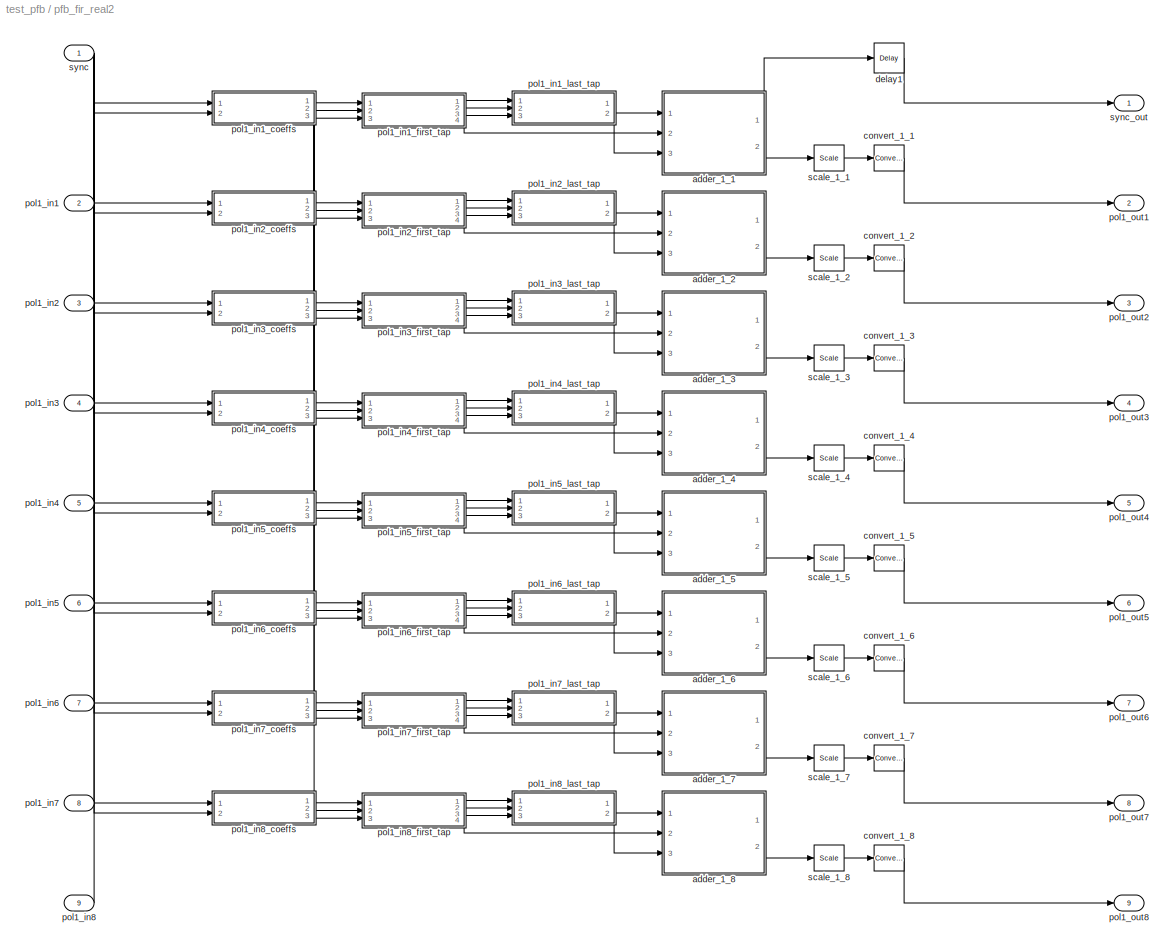
BLOCK [SubSystem] pfb_fir_real2
  AncestorBlock = casper_library_pfbs/pfb_fir_real
  AttributesFormatString = taps=2, add_latency=2
  FunctionWithSeparateData = off
  MaskHideContents = off
  MinAlgLoopOccurrences = off
  Opaque = off
  Ports = [9, 9]
  PropExecContextOutsideSubsystem = off
  RTWSystemCode = Auto
  RequestExecContextInheritance = off
  SID = 223
  UserData = DataTag45
  UserDataPersistent = on
BLOCK [SubSystem] pfb_fir_real2/adder_1_1
  AncestorBlock = casper_library_misc/adder_tree
  AttributesFormatString = latency 2
  FunctionWithSeparateData = off
  MaskHideContents = off
  MinAlgLoopOccurrences = off
  Opaque = off
  Ports = [3, 2]
  PropExecContextOutsideSubsystem = off
  RTWSystemCode = Auto
  RequestExecContextInheritance = off
  SID = 223:10
  UserData = DataTag46
  UserDataPersistent = on
BLOCK [Reference] pfb_fir_real2/adder_1_1/addr1  REF=xbsIndex_r4/AddSub
  Ports = [2, 1]
  SID = 223:10:41
  SourceBlock = xbsIndex_r4/AddSub
  SourceType = Xilinx Adder/Subtracter Block
  arith_type = Signed  (2's comp)
  bin_pt = 26
  block_type = addsub
  dbl_ovrd = off
  en = off
  has_advanced_control = 0
  hw_selection = Fabric
  latency = 2
  mode = Addition
  n_bits = 28
  overflow = Wrap
  pipelined = on
  precision = User Defined
  quantization = Truncate
  sg_icon_stat = 40,60,2,1,white,blue,0,dcac4ee3,right,,[ ],[ ]
  sggui_pos = -1,-1,-1,-1
  use_behavioral_HDL = on
  use_carryin = off
  use_carryout = off
  use_rpm = on
  xl_area = [0,0,0,0,0,0,0]
  xl_use_area = off
BLOCK [Inport] pfb_fir_real2/adder_1_1/din1
  IconDisplay = Port number
  Port = 2
  SID = 223:10:2
BLOCK [Inport] pfb_fir_real2/adder_1_1/din2
  IconDisplay = Port number
  Port = 3
  SID = 223:10:3
BLOCK [Outport] pfb_fir_real2/adder_1_1/dout
  IconDisplay = Port number
  Port = 2
  SID = 223:10:19
BLOCK [Inport] pfb_fir_real2/adder_1_1/sync
  IconDisplay = Port number
  SID = 223:10:1
BLOCK [Reference] pfb_fir_real2/adder_1_1/sync_delay  REF=xbsIndex_r4/Delay
  Ports = [1, 1]
  SID = 223:10:40
  SourceBlock = xbsIndex_r4/Delay
  SourceType = Xilinx Delay Block
  block_type = delay
  dbl_ovrd = off
  en = off
  has_advanced_control = 0
  infoedit = Hardware notes: A delay line is a chain, each link of which is an SRL16 followed by a flip-flop.
  infoeditControl = Selection of Reset will increase slice count due to use of real FFs and instead of SRLs
  latency = 2
  reg_retiming = on
  rst = off
  sg_icon_stat = 30,30,1,1,white,blue,0,85ce9542,right,,[ ],[ ]
  sggui_pos = -1,-1,-1,-1
  xl_area = [0,0,0,0,0,0,0]
  xl_use_area = off
BLOCK [Outport] pfb_fir_real2/adder_1_1/sync_out
  IconDisplay = Port number
  SID = 223:10:18
BLOCK [SubSystem] pfb_fir_real2/adder_1_2
  AncestorBlock = casper_library_misc/adder_tree
  AttributesFormatString = latency 2
  FunctionWithSeparateData = off
  MaskHideContents = off
  MinAlgLoopOccurrences = off
  Opaque = off
  Ports = [3, 2]
  PropExecContextOutsideSubsystem = off
  RTWSystemCode = Auto
  RequestExecContextInheritance = off
  SID = 223:11
  UserData = DataTag47
  UserDataPersistent = on
BLOCK [Reference] pfb_fir_real2/adder_1_2/addr1  REF=xbsIndex_r4/AddSub
  Ports = [2, 1]
  SID = 223:11:41
  SourceBlock = xbsIndex_r4/AddSub
  SourceType = Xilinx Adder/Subtracter Block
  arith_type = Signed  (2's comp)
  bin_pt = 26
  block_type = addsub
  dbl_ovrd = off
  en = off
  has_advanced_control = 0
  hw_selection = Fabric
  latency = 2
  mode = Addition
  n_bits = 28
  overflow = Wrap
  pipelined = on
  precision = User Defined
  quantization = Truncate
  sg_icon_stat = 40,60,2,1,white,blue,0,dcac4ee3,right,,[ ],[ ]
  sggui_pos = -1,-1,-1,-1
  use_behavioral_HDL = on
  use_carryin = off
  use_carryout = off
  use_rpm = on
  xl_area = [0,0,0,0,0,0,0]
  xl_use_area = off
BLOCK [Inport] pfb_fir_real2/adder_1_2/din1
  IconDisplay = Port number
  Port = 2
  SID = 223:11:2
BLOCK [Inport] pfb_fir_real2/adder_1_2/din2
  IconDisplay = Port number
  Port = 3
  SID = 223:11:3
BLOCK [Outport] pfb_fir_real2/adder_1_2/dout
  IconDisplay = Port number
  Port = 2
  SID = 223:11:19
BLOCK [Inport] pfb_fir_real2/adder_1_2/sync
  IconDisplay = Port number
  SID = 223:11:1
BLOCK [Reference] pfb_fir_real2/adder_1_2/sync_delay  REF=xbsIndex_r4/Delay
  Ports = [1, 1]
  SID = 223:11:40
  SourceBlock = xbsIndex_r4/Delay
  SourceType = Xilinx Delay Block
  block_type = delay
  dbl_ovrd = off
  en = off
  has_advanced_control = 0
  infoedit = Hardware notes: A delay line is a chain, each link of which is an SRL16 followed by a flip-flop.
  infoeditControl = Selection of Reset will increase slice count due to use of real FFs and instead of SRLs
  latency = 2
  reg_retiming = on
  rst = off
  sg_icon_stat = 30,30,1,1,white,blue,0,85ce9542,right,,[ ],[ ]
  sggui_pos = -1,-1,-1,-1
  xl_area = [0,0,0,0,0,0,0]
  xl_use_area = off
BLOCK [Outport] pfb_fir_real2/adder_1_2/sync_out
  IconDisplay = Port number
  SID = 223:11:18
BLOCK [SubSystem] pfb_fir_real2/adder_1_3
  AncestorBlock = casper_library_misc/adder_tree
  AttributesFormatString = latency 2
  FunctionWithSeparateData = off
  MaskHideContents = off
  MinAlgLoopOccurrences = off
  Opaque = off
  Ports = [3, 2]
  PropExecContextOutsideSubsystem = off
  RTWSystemCode = Auto
  RequestExecContextInheritance = off
  SID = 223:12
  UserData = DataTag48
  UserDataPersistent = on
BLOCK [Reference] pfb_fir_real2/adder_1_3/addr1  REF=xbsIndex_r4/AddSub
  Ports = [2, 1]
  SID = 223:12:41
  SourceBlock = xbsIndex_r4/AddSub
  SourceType = Xilinx Adder/Subtracter Block
  arith_type = Signed  (2's comp)
  bin_pt = 26
  block_type = addsub
  dbl_ovrd = off
  en = off
  has_advanced_control = 0
  hw_selection = Fabric
  latency = 2
  mode = Addition
  n_bits = 28
  overflow = Wrap
  pipelined = on
  precision = User Defined
  quantization = Truncate
  sg_icon_stat = 40,60,2,1,white,blue,0,dcac4ee3,right,,[ ],[ ]
  sggui_pos = -1,-1,-1,-1
  use_behavioral_HDL = on
  use_carryin = off
  use_carryout = off
  use_rpm = on
  xl_area = [0,0,0,0,0,0,0]
  xl_use_area = off
BLOCK [Inport] pfb_fir_real2/adder_1_3/din1
  IconDisplay = Port number
  Port = 2
  SID = 223:12:2
BLOCK [Inport] pfb_fir_real2/adder_1_3/din2
  IconDisplay = Port number
  Port = 3
  SID = 223:12:3
BLOCK [Outport] pfb_fir_real2/adder_1_3/dout
  IconDisplay = Port number
  Port = 2
  SID = 223:12:19
BLOCK [Inport] pfb_fir_real2/adder_1_3/sync
  IconDisplay = Port number
  SID = 223:12:1
BLOCK [Reference] pfb_fir_real2/adder_1_3/sync_delay  REF=xbsIndex_r4/Delay
  Ports = [1, 1]
  SID = 223:12:40
  SourceBlock = xbsIndex_r4/Delay
  SourceType = Xilinx Delay Block
  block_type = delay
  dbl_ovrd = off
  en = off
  has_advanced_control = 0
  infoedit = Hardware notes: A delay line is a chain, each link of which is an SRL16 followed by a flip-flop.
  infoeditControl = Selection of Reset will increase slice count due to use of real FFs and instead of SRLs
  latency = 2
  reg_retiming = on
  rst = off
  sg_icon_stat = 30,30,1,1,white,blue,0,85ce9542,right,,[ ],[ ]
  sggui_pos = -1,-1,-1,-1
  xl_area = [0,0,0,0,0,0,0]
  xl_use_area = off
BLOCK [Outport] pfb_fir_real2/adder_1_3/sync_out
  IconDisplay = Port number
  SID = 223:12:18
BLOCK [SubSystem] pfb_fir_real2/adder_1_4
  AncestorBlock = casper_library_misc/adder_tree
  AttributesFormatString = latency 2
  FunctionWithSeparateData = off
  MaskHideContents = off
  MinAlgLoopOccurrences = off
  Opaque = off
  Ports = [3, 2]
  PropExecContextOutsideSubsystem = off
  RTWSystemCode = Auto
  RequestExecContextInheritance = off
  SID = 223:13
  UserData = DataTag49
  UserDataPersistent = on
BLOCK [Reference] pfb_fir_real2/adder_1_4/addr1  REF=xbsIndex_r4/AddSub
  Ports = [2, 1]
  SID = 223:13:41
  SourceBlock = xbsIndex_r4/AddSub
  SourceType = Xilinx Adder/Subtracter Block
  arith_type = Signed  (2's comp)
  bin_pt = 26
  block_type = addsub
  dbl_ovrd = off
  en = off
  has_advanced_control = 0
  hw_selection = Fabric
  latency = 2
  mode = Addition
  n_bits = 28
  overflow = Wrap
  pipelined = on
  precision = User Defined
  quantization = Truncate
  sg_icon_stat = 40,60,2,1,white,blue,0,dcac4ee3,right,,[ ],[ ]
  sggui_pos = -1,-1,-1,-1
  use_behavioral_HDL = on
  use_carryin = off
  use_carryout = off
  use_rpm = on
  xl_area = [0,0,0,0,0,0,0]
  xl_use_area = off
BLOCK [Inport] pfb_fir_real2/adder_1_4/din1
  IconDisplay = Port number
  Port = 2
  SID = 223:13:2
BLOCK [Inport] pfb_fir_real2/adder_1_4/din2
  IconDisplay = Port number
  Port = 3
  SID = 223:13:3
BLOCK [Outport] pfb_fir_real2/adder_1_4/dout
  IconDisplay = Port number
  Port = 2
  SID = 223:13:19
BLOCK [Inport] pfb_fir_real2/adder_1_4/sync
  IconDisplay = Port number
  SID = 223:13:1
BLOCK [Reference] pfb_fir_real2/adder_1_4/sync_delay  REF=xbsIndex_r4/Delay
  Ports = [1, 1]
  SID = 223:13:40
  SourceBlock = xbsIndex_r4/Delay
  SourceType = Xilinx Delay Block
  block_type = delay
  dbl_ovrd = off
  en = off
  has_advanced_control = 0
  infoedit = Hardware notes: A delay line is a chain, each link of which is an SRL16 followed by a flip-flop.
  infoeditControl = Selection of Reset will increase slice count due to use of real FFs and instead of SRLs
  latency = 2
  reg_retiming = on
  rst = off
  sg_icon_stat = 30,30,1,1,white,blue,0,85ce9542,right,,[ ],[ ]
  sggui_pos = -1,-1,-1,-1
  xl_area = [0,0,0,0,0,0,0]
  xl_use_area = off
BLOCK [Outport] pfb_fir_real2/adder_1_4/sync_out
  IconDisplay = Port number
  SID = 223:13:18
BLOCK [SubSystem] pfb_fir_real2/adder_1_5
  AncestorBlock = casper_library_misc/adder_tree
  AttributesFormatString = latency 2
  FunctionWithSeparateData = off
  MaskHideContents = off
  MinAlgLoopOccurrences = off
  Opaque = off
  Ports = [3, 2]
  PropExecContextOutsideSubsystem = off
  RTWSystemCode = Auto
  RequestExecContextInheritance = off
  SID = 223:14
  UserData = DataTag50
  UserDataPersistent = on
BLOCK [Reference] pfb_fir_real2/adder_1_5/addr1  REF=xbsIndex_r4/AddSub
  Ports = [2, 1]
  SID = 223:14:41
  SourceBlock = xbsIndex_r4/AddSub
  SourceType = Xilinx Adder/Subtracter Block
  arith_type = Signed  (2's comp)
  bin_pt = 26
  block_type = addsub
  dbl_ovrd = off
  en = off
  has_advanced_control = 0
  hw_selection = Fabric
  latency = 2
  mode = Addition
  n_bits = 28
  overflow = Wrap
  pipelined = on
  precision = User Defined
  quantization = Truncate
  sg_icon_stat = 40,60,2,1,white,blue,0,dcac4ee3,right,,[ ],[ ]
  sggui_pos = -1,-1,-1,-1
  use_behavioral_HDL = on
  use_carryin = off
  use_carryout = off
  use_rpm = on
  xl_area = [0,0,0,0,0,0,0]
  xl_use_area = off
BLOCK [Inport] pfb_fir_real2/adder_1_5/din1
  IconDisplay = Port number
  Port = 2
  SID = 223:14:2
BLOCK [Inport] pfb_fir_real2/adder_1_5/din2
  IconDisplay = Port number
  Port = 3
  SID = 223:14:3
BLOCK [Outport] pfb_fir_real2/adder_1_5/dout
  IconDisplay = Port number
  Port = 2
  SID = 223:14:19
BLOCK [Inport] pfb_fir_real2/adder_1_5/sync
  IconDisplay = Port number
  SID = 223:14:1
BLOCK [Reference] pfb_fir_real2/adder_1_5/sync_delay  REF=xbsIndex_r4/Delay
  Ports = [1, 1]
  SID = 223:14:40
  SourceBlock = xbsIndex_r4/Delay
  SourceType = Xilinx Delay Block
  block_type = delay
  dbl_ovrd = off
  en = off
  has_advanced_control = 0
  infoedit = Hardware notes: A delay line is a chain, each link of which is an SRL16 followed by a flip-flop.
  infoeditControl = Selection of Reset will increase slice count due to use of real FFs and instead of SRLs
  latency = 2
  reg_retiming = on
  rst = off
  sg_icon_stat = 30,30,1,1,white,blue,0,85ce9542,right,,[ ],[ ]
  sggui_pos = -1,-1,-1,-1
  xl_area = [0,0,0,0,0,0,0]
  xl_use_area = off
BLOCK [Outport] pfb_fir_real2/adder_1_5/sync_out
  IconDisplay = Port number
  SID = 223:14:18
BLOCK [SubSystem] pfb_fir_real2/adder_1_6
  AncestorBlock = casper_library_misc/adder_tree
  AttributesFormatString = latency 2
  FunctionWithSeparateData = off
  MaskHideContents = off
  MinAlgLoopOccurrences = off
  Opaque = off
  Ports = [3, 2]
  PropExecContextOutsideSubsystem = off
  RTWSystemCode = Auto
  RequestExecContextInheritance = off
  SID = 223:15
  UserData = DataTag51
  UserDataPersistent = on
BLOCK [Reference] pfb_fir_real2/adder_1_6/addr1  REF=xbsIndex_r4/AddSub
  Ports = [2, 1]
  SID = 223:15:41
  SourceBlock = xbsIndex_r4/AddSub
  SourceType = Xilinx Adder/Subtracter Block
  arith_type = Signed  (2's comp)
  bin_pt = 26
  block_type = addsub
  dbl_ovrd = off
  en = off
  has_advanced_control = 0
  hw_selection = Fabric
  latency = 2
  mode = Addition
  n_bits = 28
  overflow = Wrap
  pipelined = on
  precision = User Defined
  quantization = Truncate
  sg_icon_stat = 40,60,2,1,white,blue,0,dcac4ee3,right,,[ ],[ ]
  sggui_pos = -1,-1,-1,-1
  use_behavioral_HDL = on
  use_carryin = off
  use_carryout = off
  use_rpm = on
  xl_area = [0,0,0,0,0,0,0]
  xl_use_area = off
BLOCK [Inport] pfb_fir_real2/adder_1_6/din1
  IconDisplay = Port number
  Port = 2
  SID = 223:15:2
BLOCK [Inport] pfb_fir_real2/adder_1_6/din2
  IconDisplay = Port number
  Port = 3
  SID = 223:15:3
BLOCK [Outport] pfb_fir_real2/adder_1_6/dout
  IconDisplay = Port number
  Port = 2
  SID = 223:15:19
BLOCK [Inport] pfb_fir_real2/adder_1_6/sync
  IconDisplay = Port number
  SID = 223:15:1
BLOCK [Reference] pfb_fir_real2/adder_1_6/sync_delay  REF=xbsIndex_r4/Delay
  Ports = [1, 1]
  SID = 223:15:40
  SourceBlock = xbsIndex_r4/Delay
  SourceType = Xilinx Delay Block
  block_type = delay
  dbl_ovrd = off
  en = off
  has_advanced_control = 0
  infoedit = Hardware notes: A delay line is a chain, each link of which is an SRL16 followed by a flip-flop.
  infoeditControl = Selection of Reset will increase slice count due to use of real FFs and instead of SRLs
  latency = 2
  reg_retiming = on
  rst = off
  sg_icon_stat = 30,30,1,1,white,blue,0,85ce9542,right,,[ ],[ ]
  sggui_pos = -1,-1,-1,-1
  xl_area = [0,0,0,0,0,0,0]
  xl_use_area = off
BLOCK [Outport] pfb_fir_real2/adder_1_6/sync_out
  IconDisplay = Port number
  SID = 223:15:18
BLOCK [SubSystem] pfb_fir_real2/adder_1_7
  AncestorBlock = casper_library_misc/adder_tree
  AttributesFormatString = latency 2
  FunctionWithSeparateData = off
  MaskHideContents = off
  MinAlgLoopOccurrences = off
  Opaque = off
  Ports = [3, 2]
  PropExecContextOutsideSubsystem = off
  RTWSystemCode = Auto
  RequestExecContextInheritance = off
  SID = 223:16
  UserData = DataTag52
  UserDataPersistent = on
BLOCK [Reference] pfb_fir_real2/adder_1_7/addr1  REF=xbsIndex_r4/AddSub
  Ports = [2, 1]
  SID = 223:16:41
  SourceBlock = xbsIndex_r4/AddSub
  SourceType = Xilinx Adder/Subtracter Block
  arith_type = Signed  (2's comp)
  bin_pt = 26
  block_type = addsub
  dbl_ovrd = off
  en = off
  has_advanced_control = 0
  hw_selection = Fabric
  latency = 2
  mode = Addition
  n_bits = 28
  overflow = Wrap
  pipelined = on
  precision = User Defined
  quantization = Truncate
  sg_icon_stat = 40,60,2,1,white,blue,0,dcac4ee3,right,,[ ],[ ]
  sggui_pos = -1,-1,-1,-1
  use_behavioral_HDL = on
  use_carryin = off
  use_carryout = off
  use_rpm = on
  xl_area = [0,0,0,0,0,0,0]
  xl_use_area = off
BLOCK [Inport] pfb_fir_real2/adder_1_7/din1
  IconDisplay = Port number
  Port = 2
  SID = 223:16:2
BLOCK [Inport] pfb_fir_real2/adder_1_7/din2
  IconDisplay = Port number
  Port = 3
  SID = 223:16:3
BLOCK [Outport] pfb_fir_real2/adder_1_7/dout
  IconDisplay = Port number
  Port = 2
  SID = 223:16:19
BLOCK [Inport] pfb_fir_real2/adder_1_7/sync
  IconDisplay = Port number
  SID = 223:16:1
BLOCK [Reference] pfb_fir_real2/adder_1_7/sync_delay  REF=xbsIndex_r4/Delay
  Ports = [1, 1]
  SID = 223:16:40
  SourceBlock = xbsIndex_r4/Delay
  SourceType = Xilinx Delay Block
  block_type = delay
  dbl_ovrd = off
  en = off
  has_advanced_control = 0
  infoedit = Hardware notes: A delay line is a chain, each link of which is an SRL16 followed by a flip-flop.
  infoeditControl = Selection of Reset will increase slice count due to use of real FFs and instead of SRLs
  latency = 2
  reg_retiming = on
  rst = off
  sg_icon_stat = 30,30,1,1,white,blue,0,85ce9542,right,,[ ],[ ]
  sggui_pos = -1,-1,-1,-1
  xl_area = [0,0,0,0,0,0,0]
  xl_use_area = off
BLOCK [Outport] pfb_fir_real2/adder_1_7/sync_out
  IconDisplay = Port number
  SID = 223:16:18
BLOCK [SubSystem] pfb_fir_real2/adder_1_8
  AncestorBlock = casper_library_misc/adder_tree
  AttributesFormatString = latency 2
  FunctionWithSeparateData = off
  MaskHideContents = off
  MinAlgLoopOccurrences = off
  Opaque = off
  Ports = [3, 2]
  PropExecContextOutsideSubsystem = off
  RTWSystemCode = Auto
  RequestExecContextInheritance = off
  SID = 223:17
  UserData = DataTag53
  UserDataPersistent = on
BLOCK [Reference] pfb_fir_real2/adder_1_8/addr1  REF=xbsIndex_r4/AddSub
  Ports = [2, 1]
  SID = 223:17:41
  SourceBlock = xbsIndex_r4/AddSub
  SourceType = Xilinx Adder/Subtracter Block
  arith_type = Signed  (2's comp)
  bin_pt = 26
  block_type = addsub
  dbl_ovrd = off
  en = off
  has_advanced_control = 0
  hw_selection = Fabric
  latency = 2
  mode = Addition
  n_bits = 28
  overflow = Wrap
  pipelined = on
  precision = User Defined
  quantization = Truncate
  sg_icon_stat = 40,60,2,1,white,blue,0,dcac4ee3,right,,[ ],[ ]
  sggui_pos = -1,-1,-1,-1
  use_behavioral_HDL = on
  use_carryin = off
  use_carryout = off
  use_rpm = on
  xl_area = [0,0,0,0,0,0,0]
  xl_use_area = off
BLOCK [Inport] pfb_fir_real2/adder_1_8/din1
  IconDisplay = Port number
  Port = 2
  SID = 223:17:2
BLOCK [Inport] pfb_fir_real2/adder_1_8/din2
  IconDisplay = Port number
  Port = 3
  SID = 223:17:3
BLOCK [Outport] pfb_fir_real2/adder_1_8/dout
  IconDisplay = Port number
  Port = 2
  SID = 223:17:19
BLOCK [Inport] pfb_fir_real2/adder_1_8/sync
  IconDisplay = Port number
  SID = 223:17:1
BLOCK [Reference] pfb_fir_real2/adder_1_8/sync_delay  REF=xbsIndex_r4/Delay
  Ports = [1, 1]
  SID = 223:17:40
  SourceBlock = xbsIndex_r4/Delay
  SourceType = Xilinx Delay Block
  block_type = delay
  dbl_ovrd = off
  en = off
  has_advanced_control = 0
  infoedit = Hardware notes: A delay line is a chain, each link of which is an SRL16 followed by a flip-flop.
  infoeditControl = Selection of Reset will increase slice count due to use of real FFs and instead of SRLs
  latency = 2
  reg_retiming = on
  rst = off
  sg_icon_stat = 30,30,1,1,white,blue,0,85ce9542,right,,[ ],[ ]
  sggui_pos = -1,-1,-1,-1
  xl_area = [0,0,0,0,0,0,0]
  xl_use_area = off
BLOCK [Outport] pfb_fir_real2/adder_1_8/sync_out
  IconDisplay = Port number
  SID = 223:17:18
BLOCK [Reference] pfb_fir_real2/convert_1_1  REF=xbsIndex_r4/Convert
  Ports = [1, 1]
  SID = 223:323
  SourceBlock = xbsIndex_r4/Convert
  SourceType = Xilinx Type Converter Block
  arith_type = Signed  (2's comp)
  bin_pt = 17
  block_type = convert
  dbl_ovrd = off
  en = off
  exp_bits = 8
  float_type = Single
  fraction_bits = 24
  gui_display_data_type = Fixed-point
  has_advanced_control = 0
  infoedit = Hardware notes: rounding and saturating require hardware resources; truncating and wrapping do not.
  latency = 2
  n_bits = 18
  overflow = Wrap
  pipeline = on
  quantization = Round  (unbiased: Even Values)
  sg_icon_stat = 30,26,1,1,white,blue,0,b61d041b,right,,[ ],[ ]
  sggui_pos = -1,-1,-1,-1
  xl_area = [0,0,0,0,0,0,0]
  xl_use_area = off
BLOCK [Reference] pfb_fir_real2/convert_1_2  REF=xbsIndex_r4/Convert
  Ports = [1, 1]
  SID = 223:325
  SourceBlock = xbsIndex_r4/Convert
  SourceType = Xilinx Type Converter Block
  arith_type = Signed  (2's comp)
  bin_pt = 17
  block_type = convert
  dbl_ovrd = off
  en = off
  exp_bits = 8
  float_type = Single
  fraction_bits = 24
  gui_display_data_type = Fixed-point
  has_advanced_control = 0
  infoedit = Hardware notes: rounding and saturating require hardware resources; truncating and wrapping do not.
  latency = 2
  n_bits = 18
  overflow = Wrap
  pipeline = on
  quantization = Round  (unbiased: Even Values)
  sg_icon_stat = 30,26,1,1,white,blue,0,b61d041b,right,,[ ],[ ]
  sggui_pos = -1,-1,-1,-1
  xl_area = [0,0,0,0,0,0,0]
  xl_use_area = off
BLOCK [Reference] pfb_fir_real2/convert_1_3  REF=xbsIndex_r4/Convert
  Ports = [1, 1]
  SID = 223:327
  SourceBlock = xbsIndex_r4/Convert
  SourceType = Xilinx Type Converter Block
  arith_type = Signed  (2's comp)
  bin_pt = 17
  block_type = convert
  dbl_ovrd = off
  en = off
  exp_bits = 8
  float_type = Single
  fraction_bits = 24
  gui_display_data_type = Fixed-point
  has_advanced_control = 0
  infoedit = Hardware notes: rounding and saturating require hardware resources; truncating and wrapping do not.
  latency = 2
  n_bits = 18
  overflow = Wrap
  pipeline = on
  quantization = Round  (unbiased: Even Values)
  sg_icon_stat = 30,26,1,1,white,blue,0,b61d041b,right,,[ ],[ ]
  sggui_pos = -1,-1,-1,-1
  xl_area = [0,0,0,0,0,0,0]
  xl_use_area = off
BLOCK [Reference] pfb_fir_real2/convert_1_4  REF=xbsIndex_r4/Convert
  Ports = [1, 1]
  SID = 223:329
  SourceBlock = xbsIndex_r4/Convert
  SourceType = Xilinx Type Converter Block
  arith_type = Signed  (2's comp)
  bin_pt = 17
  block_type = convert
  dbl_ovrd = off
  en = off
  exp_bits = 8
  float_type = Single
  fraction_bits = 24
  gui_display_data_type = Fixed-point
  has_advanced_control = 0
  infoedit = Hardware notes: rounding and saturating require hardware resources; truncating and wrapping do not.
  latency = 2
  n_bits = 18
  overflow = Wrap
  pipeline = on
  quantization = Round  (unbiased: Even Values)
  sg_icon_stat = 30,26,1,1,white,blue,0,b61d041b,right,,[ ],[ ]
  sggui_pos = -1,-1,-1,-1
  xl_area = [0,0,0,0,0,0,0]
  xl_use_area = off
BLOCK [Reference] pfb_fir_real2/convert_1_5  REF=xbsIndex_r4/Convert
  Ports = [1, 1]
  SID = 223:331
  SourceBlock = xbsIndex_r4/Convert
  SourceType = Xilinx Type Converter Block
  arith_type = Signed  (2's comp)
  bin_pt = 17
  block_type = convert
  dbl_ovrd = off
  en = off
  exp_bits = 8
  float_type = Single
  fraction_bits = 24
  gui_display_data_type = Fixed-point
  has_advanced_control = 0
  infoedit = Hardware notes: rounding and saturating require hardware resources; truncating and wrapping do not.
  latency = 2
  n_bits = 18
  overflow = Wrap
  pipeline = on
  quantization = Round  (unbiased: Even Values)
  sg_icon_stat = 30,26,1,1,white,blue,0,b61d041b,right,,[ ],[ ]
  sggui_pos = -1,-1,-1,-1
  xl_area = [0,0,0,0,0,0,0]
  xl_use_area = off
BLOCK [Reference] pfb_fir_real2/convert_1_6  REF=xbsIndex_r4/Convert
  Ports = [1, 1]
  SID = 223:333
  SourceBlock = xbsIndex_r4/Convert
  SourceType = Xilinx Type Converter Block
  arith_type = Signed  (2's comp)
  bin_pt = 17
  block_type = convert
  dbl_ovrd = off
  en = off
  exp_bits = 8
  float_type = Single
  fraction_bits = 24
  gui_display_data_type = Fixed-point
  has_advanced_control = 0
  infoedit = Hardware notes: rounding and saturating require hardware resources; truncating and wrapping do not.
  latency = 2
  n_bits = 18
  overflow = Wrap
  pipeline = on
  quantization = Round  (unbiased: Even Values)
  sg_icon_stat = 30,26,1,1,white,blue,0,b61d041b,right,,[ ],[ ]
  sggui_pos = -1,-1,-1,-1
  xl_area = [0,0,0,0,0,0,0]
  xl_use_area = off
BLOCK [Reference] pfb_fir_real2/convert_1_7  REF=xbsIndex_r4/Convert
  Ports = [1, 1]
  SID = 223:335
  SourceBlock = xbsIndex_r4/Convert
  SourceType = Xilinx Type Converter Block
  arith_type = Signed  (2's comp)
  bin_pt = 17
  block_type = convert
  dbl_ovrd = off
  en = off
  exp_bits = 8
  float_type = Single
  fraction_bits = 24
  gui_display_data_type = Fixed-point
  has_advanced_control = 0
  infoedit = Hardware notes: rounding and saturating require hardware resources; truncating and wrapping do not.
  latency = 2
  n_bits = 18
  overflow = Wrap
  pipeline = on
  quantization = Round  (unbiased: Even Values)
  sg_icon_stat = 30,26,1,1,white,blue,0,b61d041b,right,,[ ],[ ]
  sggui_pos = -1,-1,-1,-1
  xl_area = [0,0,0,0,0,0,0]
  xl_use_area = off
BLOCK [Reference] pfb_fir_real2/convert_1_8  REF=xbsIndex_r4/Convert
  Ports = [1, 1]
  SID = 223:337
  SourceBlock = xbsIndex_r4/Convert
  SourceType = Xilinx Type Converter Block
  arith_type = Signed  (2's comp)
  bin_pt = 17
  block_type = convert
  dbl_ovrd = off
  en = off
  exp_bits = 8
  float_type = Single
  fraction_bits = 24
  gui_display_data_type = Fixed-point
  has_advanced_control = 0
  infoedit = Hardware notes: rounding and saturating require hardware resources; truncating and wrapping do not.
  latency = 2
  n_bits = 18
  overflow = Wrap
  pipeline = on
  quantization = Round  (unbiased: Even Values)
  sg_icon_stat = 30,26,1,1,white,blue,0,b61d041b,right,,[ ],[ ]
  sggui_pos = -1,-1,-1,-1
  xl_area = [0,0,0,0,0,0,0]
  xl_use_area = off
BLOCK [Reference] pfb_fir_real2/delay1  REF=xbsIndex_r4/Delay
  Ports = [1, 1]
  SID = 223:338
  SourceBlock = xbsIndex_r4/Delay
  SourceType = Xilinx Delay Block
  block_type = delay
  dbl_ovrd = off
  en = off
  has_advanced_control = 0
  infoedit = Hardware notes: A delay line is a chain, each link of which is an SRL16 followed by a flip-flop.
  infoeditControl = Selection of Reset will increase slice count due to use of real FFs and instead of SRLs
  latency = 2
  reg_retiming = off
  rst = off
  sg_icon_stat = 30,30,1,1,white,blue,0,78ff7cff,right,,[ ],[ ]
  sg_mask_display = fprintf('','COMMENT: begin icon graphics');\npatch([0 30 30 0 0 ],[0 0 30 30 0 ],[0.77 0.82 0.91 ]);\nplot([0 30 30 0 0 ],[0 0 30 30 0 ]);\npatch([6.1 11.88 15.88 19.88 23.88 15.88 10.1 6.1 ],[19.44 19.44 23.44 19.44 23.44 23.44 23.44 19.44 ],[1 1 1 ]);\npatch([10.1 15.88 11.88 6.1 10.1 ],[15.44 15.44 19.44 19.44 15.44 ],[0.931 0.946 0.973 ]);\npatch([6.1 11.88 15.88 10.1 6.1 ],[11.44 11.44 15.44 ...<+355ch>
  sggui_pos = -1,-1,-1,-1
  xl_area = [0,0,0,0,0,0,0]
  xl_use_area = off
BLOCK [Inport] pfb_fir_real2/pol1_in1
  IconDisplay = Port number
  Port = 2
  SID = 223:2
BLOCK [SubSystem] pfb_fir_real2/pol1_in1_coeffs
  AncestorBlock = casper_library_pfbs/pfb_coeff_gen
  AttributesFormatString = PFBSize=15, n_inputs=3,\ntaps=2, input=0
  FunctionWithSeparateData = off
  MaskHideContents = off
  MinAlgLoopOccurrences = off
  Opaque = off
  Ports = [2, 3]
  PropExecContextOutsideSubsystem = off
  RTWSystemCode = Auto
  RequestExecContextInheritance = off
  SID = 223:27
  UserData = DataTag54
  UserDataPersistent = on
BLOCK [Reference] pfb_fir_real2/pol1_in1_coeffs/Concat  REF=xbsIndex_r4/Concat
  Ports = [2, 1]
  SID = 223:27:232
  SourceBlock = xbsIndex_r4/Concat
  SourceType = Xilinx Bus Concatenator Block
  block_type = concat
  dbl_ovrd = off
  has_advanced_control = 0
  infoedit = Concatenates two or more inputs.  Output will be cast to an unsigned value with the binary point at zero.
  num_inputs = 2
  sg_icon_stat = 55,547,2,1,white,blue,0,16398980,right,,[ ],[ ]
  sg_mask_display = fprintf('','COMMENT: begin icon graphics');\npatch([0 55 55 0 0 ],[0 0 547 547 0 ],[0.77 0.82 0.91 ]);\nplot([0 55 55 0 0 ],[0 0 547 547 0 ]);\npatch([11.425 21.54 28.54 35.54 42.54 28.54 18.425 11.425 ],[280.77 280.77 287.77 280.77 287.77 287.77 287.77 280.77 ],[1 1 1 ]);\npatch([18.425 28.54 21.54 11.425 18.425 ],[273.77 273.77 280.77 280.77 273.77 ],[0.931 0.946 0.973 ]);\npatch([11.425 21.54 2...<+470ch>  <repeated x8 — deduplicated; at blocks: Concat>
  sggui_pos = -1,-1,-1,-1
BLOCK [Reference] pfb_fir_real2/pol1_in1_coeffs/Counter  REF=xbsIndex_r4/Counter
  Ports = [1, 1]
  SID = 223:27:230
  SourceBlock = xbsIndex_r4/Counter
  SourceType = Xilinx Counter Block
  arith_type = Unsigned
  bin_pt = 0
  block_type = counter
  cnt_by_val = 1
  cnt_to = Inf
  cnt_type = Free Running
  dbl_ovrd = off
  en = off
  explicit_period = on
  has_advanced_control = 0
  implementation = Fabric
  infoedit = Hardware notes: Free running counters are the least expensive in hardware.  A count limited counter is implemented by combining a counter with a comparator.
  load_pin = off
  n_bits = 12
  operation = Up
  period = 1
  rst = on
  sg_icon_stat = 50,50,1,1,white,blue,0,803eba70,right,,[ ],[ ]
  sggui_pos = -1,-1,-1,-1
  start_count = 0
  use_behavioral_HDL = off
  xl_area = [0,0,0,0,0,0,0]
  xl_use_area = off
BLOCK [Reference] pfb_fir_real2/pol1_in1_coeffs/Delay  REF=xbsIndex_r4/Delay
  Ports = [1, 1]
  SID = 223:27:229
  SourceBlock = xbsIndex_r4/Delay
  SourceType = Xilinx Delay Block
  block_type = delay
  dbl_ovrd = off
  en = off
  has_advanced_control = 0
  infoedit = Hardware notes: A delay line is a chain, each link of which is an SRL16 followed by a flip-flop.
  infoeditControl = Selection of Reset will increase slice count due to use of real FFs and instead of SRLs
  latency = bram_latency+1+fan_latency
  reg_retiming = off
  rst = off
  sg_icon_stat = 45,46,1,1,white,blue,0,d93bb731,right,,[ ],[ ]
  sggui_pos = -1,-1,-1,-1
  xl_area = [0,0,0,0,0,0,0]
  xl_use_area = off
BLOCK [Reference] pfb_fir_real2/pol1_in1_coeffs/Delay1  REF=xbsIndex_r4/Delay
  Ports = [1, 1]
  SID = 223:27:231
  SourceBlock = xbsIndex_r4/Delay
  SourceType = Xilinx Delay Block
  block_type = delay
  dbl_ovrd = off
  en = off
  has_advanced_control = 0
  infoedit = Hardware notes: A delay line is a chain, each link of which is an SRL16 followed by a flip-flop.
  infoeditControl = Selection of Reset will increase slice count due to use of real FFs and instead of SRLs
  latency = bram_latency+1+fan_latency
  reg_retiming = off
  rst = off
  sg_icon_stat = 45,46,1,1,white,blue,0,d93bb731,right,,[ ],[ ]
  sggui_pos = -1,-1,-1,-1
  xl_area = [0,0,0,0,0,0,0]
  xl_use_area = off
BLOCK [Reference] pfb_fir_real2/pol1_in1_coeffs/ROM1  REF=xbsIndex_r4/ROM
  Ports = [1, 1]
  SID = 223:27:235
  SourceBlock = xbsIndex_r4/ROM
  SourceType = Xilinx Single Port Read-Only Memory Block
  arith_type = Signed  (2's comp)
  bin_pt = 17
  block_type = sprom
  dbl_ovrd = off
  depth = 4096
  distributed_mem = Block RAM
  en = off
  exp_width = 8
  frac_width = 24
  gui_display_data_type = Fixed-point
  has_advanced_control = 0
  initVector = pfb_coeff_gen_calc(15, 2,'hamming',3, 0,1,1)
  init_reg = 0
  latency = bram_latency
  n_bits = 18
  optimize = Area
  preci_type = Single
  rst = off
  sg_icon_stat = 50,52,1,1,white,blue,0,779844a6,right,,[ ],[ ]
  sggui_pos = -1,-1,-1,-1
  use_rpm = on
  xl_area = [0,0,0,0,0,0,0]
  xl_use_area = off
BLOCK [Reference] pfb_fir_real2/pol1_in1_coeffs/ROM2  REF=xbsIndex_r4/ROM
  Ports = [1, 1]
  SID = 223:27:238
  SourceBlock = xbsIndex_r4/ROM
  SourceType = Xilinx Single Port Read-Only Memory Block
  arith_type = Signed  (2's comp)
  bin_pt = 17
  block_type = sprom
  dbl_ovrd = off
  depth = 4096
  distributed_mem = Block RAM
  en = off
  exp_width = 8
  frac_width = 24
  gui_display_data_type = Fixed-point
  has_advanced_control = 0
  initVector = pfb_coeff_gen_calc(15, 2,'hamming',3, 0,1,2)
  init_reg = 0
  latency = bram_latency
  n_bits = 18
  optimize = Area
  preci_type = Single
  rst = off
  sg_icon_stat = 50,52,1,1,white,blue,0,779844a6,right,,[ ],[ ]
  sggui_pos = -1,-1,-1,-1
  use_rpm = on
  xl_area = [0,0,0,0,0,0,0]
  xl_use_area = off
BLOCK [Reference] pfb_fir_real2/pol1_in1_coeffs/Register  REF=xbsIndex_r4/Register
  Ports = [1, 1]
  SID = 223:27:233
  SourceBlock = xbsIndex_r4/Register
  SourceType = Xilinx Register Block
  block_type = register
  dbl_ovrd = off
  en = off
  has_advanced_control = 0
  init = 0
  rst = off
  sg_icon_stat = 45,50,1,1,white,blue,0,c80657c5,right,,[ ],[ ]
  sggui_pos = -1,-1,-1,-1
  xl_area = [0,0,0,0,0,0,0]
  xl_use_area = off
BLOCK [Reference] pfb_fir_real2/pol1_in1_coeffs/Reinterpret1  REF=xbsIndex_r4/Reinterpret
  Ports = [1, 1]
  SID = 223:27:236
  SourceBlock = xbsIndex_r4/Reinterpret
  SourceType = Xilinx Type Reinterpreter Block
  arith_type = Unsigned
  bin_pt = 0
  block_type = reinterpret
  force_arith_type = on
  force_bin_pt = on
  has_advanced_control = 0
  sg_icon_stat = 40,32,1,1,white,blue,0,6b04d0b0,right,,[ ],[ ]
  sggui_pos = -1,-1,-1,-1
BLOCK [Reference] pfb_fir_real2/pol1_in1_coeffs/Reinterpret2  REF=xbsIndex_r4/Reinterpret
  Ports = [1, 1]
  SID = 223:27:239
  SourceBlock = xbsIndex_r4/Reinterpret
  SourceType = Xilinx Type Reinterpreter Block
  arith_type = Unsigned
  bin_pt = 0
  block_type = reinterpret
  force_arith_type = on
  force_bin_pt = on
  has_advanced_control = 0
  sg_icon_stat = 40,32,1,1,white,blue,0,6b04d0b0,right,,[ ],[ ]
  sggui_pos = -1,-1,-1,-1
BLOCK [Outport] pfb_fir_real2/pol1_in1_coeffs/coeff
  IconDisplay = Port number
  Port = 3
  SID = 223:27:34
BLOCK [Inport] pfb_fir_real2/pol1_in1_coeffs/din
  IconDisplay = Port number
  SID = 223:27:1
BLOCK [Outport] pfb_fir_real2/pol1_in1_coeffs/dout
  IconDisplay = Port number
  SID = 223:27:32
BLOCK [Reference] pfb_fir_real2/pol1_in1_coeffs/fan_delay1  REF=xbsIndex_r4/Delay
  Ports = [1, 1]
  SID = 223:27:234
  SourceBlock = xbsIndex_r4/Delay
  SourceType = Xilinx Delay Block
  block_type = delay
  dbl_ovrd = off
  en = off
  has_advanced_control = 0
  infoedit = Hardware notes: A delay line is a chain, each link of which is an SRL16 followed by a flip-flop.
  infoeditControl = Selection of Reset will increase slice count due to use of real FFs and instead of SRLs
  latency = fan_latency
  reg_retiming = off
  rst = off
  sg_icon_stat = 30,52,1,1,white,blue,0,85ce9542,right,,[ ],[ ]
  sggui_pos = -1,-1,-1,-1
  xl_area = [0,0,0,0,0,0,0]
  xl_use_area = off
BLOCK [Reference] pfb_fir_real2/pol1_in1_coeffs/fan_delay2  REF=xbsIndex_r4/Delay
  Ports = [1, 1]
  SID = 223:27:237
  SourceBlock = xbsIndex_r4/Delay
  SourceType = Xilinx Delay Block
  block_type = delay
  dbl_ovrd = off
  en = off
  has_advanced_control = 0
  infoedit = Hardware notes: A delay line is a chain, each link of which is an SRL16 followed by a flip-flop.
  infoeditControl = Selection of Reset will increase slice count due to use of real FFs and instead of SRLs
  latency = fan_latency
  reg_retiming = off
  rst = off
  sg_icon_stat = 30,52,1,1,white,blue,0,85ce9542,right,,[ ],[ ]
  sggui_pos = -1,-1,-1,-1
  xl_area = [0,0,0,0,0,0,0]
  xl_use_area = off
BLOCK [Inport] pfb_fir_real2/pol1_in1_coeffs/sync
  IconDisplay = Port number
  Port = 2
  SID = 223:27:2
BLOCK [Outport] pfb_fir_real2/pol1_in1_coeffs/sync_out
  IconDisplay = Port number
  Port = 2
  SID = 223:27:33
BLOCK [SubSystem] pfb_fir_real2/pol1_in1_first_tap
  AncestorBlock = casper_library_pfbs/first_tap_real
  AttributesFormatString = taps=2
  FunctionWithSeparateData = off
  MaskHideContents = off
  MinAlgLoopOccurrences = off
  Opaque = off
  Ports = [3, 4]
  PropExecContextOutsideSubsystem = off
  RTWSystemCode = Auto
  RequestExecContextInheritance = off
  SID = 223:28
  UserData = DataTag55
  UserDataPersistent = on
BLOCK [Reference] pfb_fir_real2/pol1_in1_first_tap/Mult  REF=xbsIndex_r4/Mult
  Ports = [2, 1]
  SID = 223:28:4
  SourceBlock = xbsIndex_r4/Mult
  SourceType = Xilinx Multiplier Block
  arith_type = Signed  (2's comp)
  bin_pt = 2
  block_type = mult
  block_version = 9.1.01
  dbl_ovrd = off
  en = off
  has_advanced_control = 0
  infoedit = Hardware notes: To use the internal pipeline stage of the dedicated multiplier you must select 'Pipeline for maximum performance'.
  latency = mult_latency
  n_bits = 8
  opt = Speed
  optimum_pipeline = off
  overflow = Wrap
  pipeline = on
  placement_style = Rectangular shape
  precision = Full
  quantization = Truncate
  sg_icon_stat = 50,51,2,1,white,blue,0,7028354c,right,,[ ],[ ]
  sggui_pos = 20,20,348,434
  use_behavioral_HDL = on
  use_embedded = off
  use_rpm = on
  xl_area = [0, 0, 0, 0, 0, 0, 0]
  xl_use_area = off
BLOCK [Reference] pfb_fir_real2/pol1_in1_first_tap/Reinterpret  REF=xbsIndex_r4/Reinterpret
  Ports = [1, 1]
  SID = 223:28:5
  SourceBlock = xbsIndex_r4/Reinterpret
  SourceType = Xilinx Type Reinterpreter Block
  arith_type = Signed  (2's comp)
  bin_pt = CoeffBitWidth - 1
  block_type = reinterpret
  block_version = 9.1.01
  force_arith_type = on
  force_bin_pt = on
  has_advanced_control = 0
  sg_icon_stat = 40,32,1,1,white,blue,0,6b04d0b0,right,,[ ],[ ]
  sggui_pos = -1,-1,-1,-1
BLOCK [Reference] pfb_fir_real2/pol1_in1_first_tap/Reinterpret2  REF=xbsIndex_r4/Reinterpret
  Ports = [1, 1]
  SID = 223:28:6
  SourceBlock = xbsIndex_r4/Reinterpret
  SourceType = Xilinx Type Reinterpreter Block
  arith_type = Signed  (2's comp)
  bin_pt = BitWidthIn - 1
  block_type = reinterpret
  block_version = 9.1.01
  force_arith_type = on
  force_bin_pt = on
  has_advanced_control = 0
  sg_icon_stat = 40,32,1,1,white,blue,0,6b04d0b0,right,,[ ],[ ]
  sggui_pos = -1,-1,-1,-1
BLOCK [Reference] pfb_fir_real2/pol1_in1_first_tap/Slice  REF=xbsIndex_r4/Slice
  Ports = [1, 1]
  SID = 223:28:7
  SourceBlock = xbsIndex_r4/Slice
  SourceType = Xilinx Bit Slice Extractor Block
  base0 = LSB of Input
  base1 = MSB of Input
  bit0 = 0
  bit1 = 0
  block_type = slice
  block_version = 9.1.01
  boolean_output = off
  dbl_ovrd = off
  has_advanced_control = 0
  mode = Lower Bit Location + Width
  nbits = CoeffBitWidth
  sg_icon_stat = 45,28,1,1,white,blue,0,1fd851a7,right,,[ ],[ ]
  sggui_pos = -1,-1,-1,-1
BLOCK [Reference] pfb_fir_real2/pol1_in1_first_tap/Slice1  REF=xbsIndex_r4/Slice
  Ports = [1, 1]
  SID = 223:28:8
  SourceBlock = xbsIndex_r4/Slice
  SourceType = Xilinx Bit Slice Extractor Block
  base0 = LSB of Input
  base1 = MSB of Input
  bit0 = CoeffBitWidth
  bit1 = 0
  block_type = slice
  block_version = 9.1.01
  boolean_output = off
  dbl_ovrd = off
  has_advanced_control = 0
  mode = Two Bit Locations
  nbits = CoeffBitWidth * (TotalTaps - 1)
  sg_icon_stat = 45,28,1,1,white,blue,0,1fd851a7,right,,[ ],[ ]
  sggui_pos = -1,-1,-1,-1
BLOCK [Outport] pfb_fir_real2/pol1_in1_first_tap/coeff_out
  IconDisplay = Port number
  Port = 3
  SID = 223:28:13
BLOCK [Inport] pfb_fir_real2/pol1_in1_first_tap/coeffs
  IconDisplay = Port number
  Port = 3
  SID = 223:28:3
BLOCK [Reference] pfb_fir_real2/pol1_in1_first_tap/delay_bram  REF=casper_library_delays/delay_bram  (lib defined in mdl_259a08a3fac5, mdl_65009615caaa, +5 more)
  DelayLen = 2^(PFBSize-n_inputs)
  Ports = [1, 1]
  SID = 223:28:9
  SourceBlock = casper_library_delays/delay_bram
  SourceType = delay_bram
  bram_latency = bram_latency
  use_dsp48 = off
BLOCK [Inport] pfb_fir_real2/pol1_in1_first_tap/din
  IconDisplay = Port number
  SID = 223:28:1
BLOCK [Outport] pfb_fir_real2/pol1_in1_first_tap/dout
  IconDisplay = Port number
  SID = 223:28:11
BLOCK [Inport] pfb_fir_real2/pol1_in1_first_tap/sync
  IconDisplay = Port number
  Port = 2
  SID = 223:28:2
BLOCK [Reference] pfb_fir_real2/pol1_in1_first_tap/sync_delay  REF=casper_library_delays/sync_delay  (lib defined in mdl_259a08a3fac5, mdl_65009615caaa, +5 more)
  DelayLen = 2^(PFBSize-n_inputs)
  Ports = [1, 1]
  SID = 223:28:10
  SourceBlock = casper_library_delays/sync_delay
  SourceType = sync_delay
BLOCK [Outport] pfb_fir_real2/pol1_in1_first_tap/sync_out
  IconDisplay = Port number
  Port = 2
  SID = 223:28:12
BLOCK [Outport] pfb_fir_real2/pol1_in1_first_tap/taps_out
  IconDisplay = Port number
  Port = 4
  SID = 223:28:14
BLOCK [SubSystem] pfb_fir_real2/pol1_in1_last_tap
  AncestorBlock = casper_library_pfbs/last_tap_real
  FunctionWithSeparateData = off
  MaskHideContents = off
  MinAlgLoopOccurrences = off
  Opaque = off
  Ports = [3, 2]
  PropExecContextOutsideSubsystem = off
  RTWSystemCode = Auto
  RequestExecContextInheritance = off
  SID = 223:29
  UserData = DataTag56
  UserDataPersistent = on
BLOCK [Reference] pfb_fir_real2/pol1_in1_last_tap/Delay  REF=xbsIndex_r4/Delay
  Ports = [1, 1]
  SID = 223:29:4
  SourceBlock = xbsIndex_r4/Delay
  SourceType = Xilinx Delay Block
  block_type = delay
  block_version = 9.1.01
  dbl_ovrd = off
  en = off
  has_advanced_control = 0
  infoedit = Hardware notes: A delay line is a chain, each link of which is an SRL16 followed by a flip-flop.
  infoeditControl = Selection of Reset will increase slice count due to use of real FFs and instead of SRLs
  latency = mult_latency
  reg_retiming = off
  rst = off
  sg_icon_stat = 45,46,1,1,white,blue,0,83e6bb61,right,,[ ],[ ]
  sggui_pos = 20,20,348,255
  xl_area = [0, 0, 0, 0, 0, 0, 0]
  xl_use_area = off
BLOCK [Reference] pfb_fir_real2/pol1_in1_last_tap/Mult  REF=xbsIndex_r4/Mult
  Ports = [2, 1]
  SID = 223:29:5
  SourceBlock = xbsIndex_r4/Mult
  SourceType = Xilinx Multiplier Block
  arith_type = Signed  (2's comp)
  bin_pt = 2
  block_type = mult
  block_version = 9.1.01
  dbl_ovrd = off
  en = off
  has_advanced_control = 0
  infoedit = Hardware notes: To use the internal pipeline stage of the dedicated multiplier you must select 'Pipeline for maximum performance'.
  latency = mult_latency
  n_bits = 8
  opt = Speed
  optimum_pipeline = off
  overflow = Wrap
  pipeline = on
  placement_style = Rectangular shape
  precision = Full
  quantization = Truncate
  sg_icon_stat = 50,51,2,1,white,blue,0,7028354c,right,,[ ],[ ]
  sggui_pos = 20,20,348,434
  use_behavioral_HDL = on
  use_embedded = off
  use_rpm = on
  xl_area = [0, 0, 0, 0, 0, 0, 0]
  xl_use_area = off
BLOCK [Reference] pfb_fir_real2/pol1_in1_last_tap/Reinterpret  REF=xbsIndex_r4/Reinterpret
  Ports = [1, 1]
  SID = 223:29:6
  SourceBlock = xbsIndex_r4/Reinterpret
  SourceType = Xilinx Type Reinterpreter Block
  arith_type = Signed  (2's comp)
  bin_pt = CoeffBitWidth - 1
  block_type = reinterpret
  block_version = 9.1.01
  force_arith_type = on
  force_bin_pt = on
  has_advanced_control = 0
  sg_icon_stat = 40,32,1,1,white,blue,0,6b04d0b0,right,,[ ],[ ]
  sggui_pos = -1,-1,-1,-1
BLOCK [Reference] pfb_fir_real2/pol1_in1_last_tap/Reinterpret1  REF=xbsIndex_r4/Reinterpret
  Ports = [1, 1]
  SID = 223:29:7
  SourceBlock = xbsIndex_r4/Reinterpret
  SourceType = Xilinx Type Reinterpreter Block
  arith_type = Signed  (2's comp)
  bin_pt = BitWidthIn - 1
  block_type = reinterpret
  block_version = 9.1.01
  force_arith_type = on
  force_bin_pt = on
  has_advanced_control = 0
  sg_icon_stat = 40,32,1,1,white,blue,0,6b04d0b0,right,,[ ],[ ]
  sggui_pos = -1,-1,-1,-1
BLOCK [Inport] pfb_fir_real2/pol1_in1_last_tap/coeff
  IconDisplay = Port number
  Port = 3
  SID = 223:29:3
BLOCK [Inport] pfb_fir_real2/pol1_in1_last_tap/din
  IconDisplay = Port number
  SID = 223:29:1
BLOCK [Inport] pfb_fir_real2/pol1_in1_last_tap/sync
  IconDisplay = Port number
  Port = 2
  SID = 223:29:2
BLOCK [Outport] pfb_fir_real2/pol1_in1_last_tap/sync_out
  IconDisplay = Port number
  Port = 2
  SID = 223:29:9
BLOCK [Outport] pfb_fir_real2/pol1_in1_last_tap/tap_out
  IconDisplay = Port number
  SID = 223:29:8
BLOCK [Inport] pfb_fir_real2/pol1_in2
  IconDisplay = Port number
  Port = 3
  SID = 223:3
BLOCK [SubSystem] pfb_fir_real2/pol1_in2_coeffs
  AncestorBlock = casper_library_pfbs/pfb_coeff_gen
  AttributesFormatString = PFBSize=15, n_inputs=3,\ntaps=2, input=1
  FunctionWithSeparateData = off
  MaskHideContents = off
  MinAlgLoopOccurrences = off
  Opaque = off
  Ports = [2, 3]
  PropExecContextOutsideSubsystem = off
  RTWSystemCode = Auto
  RequestExecContextInheritance = off
  SID = 223:36
  UserData = DataTag57
  UserDataPersistent = on
BLOCK [Reference] pfb_fir_real2/pol1_in2_coeffs/Concat  REF=xbsIndex_r4/Concat
  Ports = [2, 1]
  SID = 223:36:232
  SourceBlock = xbsIndex_r4/Concat
  SourceType = Xilinx Bus Concatenator Block
  block_type = concat
  dbl_ovrd = off
  has_advanced_control = 0
  infoedit = Concatenates two or more inputs.  Output will be cast to an unsigned value with the binary point at zero.
  num_inputs = 2
  sg_icon_stat = 55,547,2,1,white,blue,0,16398980,right,,[ ],[ ]
  sggui_pos = -1,-1,-1,-1
BLOCK [Reference] pfb_fir_real2/pol1_in2_coeffs/Counter  REF=xbsIndex_r4/Counter
  Ports = [1, 1]
  SID = 223:36:230
  SourceBlock = xbsIndex_r4/Counter
  SourceType = Xilinx Counter Block
  arith_type = Unsigned
  bin_pt = 0
  block_type = counter
  cnt_by_val = 1
  cnt_to = Inf
  cnt_type = Free Running
  dbl_ovrd = off
  en = off
  explicit_period = on
  has_advanced_control = 0
  implementation = Fabric
  infoedit = Hardware notes: Free running counters are the least expensive in hardware.  A count limited counter is implemented by combining a counter with a comparator.
  load_pin = off
  n_bits = 12
  operation = Up
  period = 1
  rst = on
  sg_icon_stat = 50,50,1,1,white,blue,0,803eba70,right,,[ ],[ ]
  sggui_pos = -1,-1,-1,-1
  start_count = 0
  use_behavioral_HDL = off
  xl_area = [0,0,0,0,0,0,0]
  xl_use_area = off
BLOCK [Reference] pfb_fir_real2/pol1_in2_coeffs/Delay  REF=xbsIndex_r4/Delay
  Ports = [1, 1]
  SID = 223:36:229
  SourceBlock = xbsIndex_r4/Delay
  SourceType = Xilinx Delay Block
  block_type = delay
  dbl_ovrd = off
  en = off
  has_advanced_control = 0
  infoedit = Hardware notes: A delay line is a chain, each link of which is an SRL16 followed by a flip-flop.
  infoeditControl = Selection of Reset will increase slice count due to use of real FFs and instead of SRLs
  latency = bram_latency+1+fan_latency
  reg_retiming = off
  rst = off
  sg_icon_stat = 45,46,1,1,white,blue,0,d93bb731,right,,[ ],[ ]
  sggui_pos = -1,-1,-1,-1
  xl_area = [0,0,0,0,0,0,0]
  xl_use_area = off
BLOCK [Reference] pfb_fir_real2/pol1_in2_coeffs/Delay1  REF=xbsIndex_r4/Delay
  Ports = [1, 1]
  SID = 223:36:231
  SourceBlock = xbsIndex_r4/Delay
  SourceType = Xilinx Delay Block
  block_type = delay
  dbl_ovrd = off
  en = off
  has_advanced_control = 0
  infoedit = Hardware notes: A delay line is a chain, each link of which is an SRL16 followed by a flip-flop.
  infoeditControl = Selection of Reset will increase slice count due to use of real FFs and instead of SRLs
  latency = bram_latency+1+fan_latency
  reg_retiming = off
  rst = off
  sg_icon_stat = 45,46,1,1,white,blue,0,d93bb731,right,,[ ],[ ]
  sggui_pos = -1,-1,-1,-1
  xl_area = [0,0,0,0,0,0,0]
  xl_use_area = off
BLOCK [Reference] pfb_fir_real2/pol1_in2_coeffs/ROM1  REF=xbsIndex_r4/ROM
  Ports = [1, 1]
  SID = 223:36:235
  SourceBlock = xbsIndex_r4/ROM
  SourceType = Xilinx Single Port Read-Only Memory Block
  arith_type = Signed  (2's comp)
  bin_pt = 17
  block_type = sprom
  dbl_ovrd = off
  depth = 4096
  distributed_mem = Block RAM
  en = off
  exp_width = 8
  frac_width = 24
  gui_display_data_type = Fixed-point
  has_advanced_control = 0
  initVector = pfb_coeff_gen_calc(15, 2,'hamming',3, 1,1,1)
  init_reg = 0
  latency = bram_latency
  n_bits = 18
  optimize = Area
  preci_type = Single
  rst = off
  sg_icon_stat = 50,52,1,1,white,blue,0,779844a6,right,,[ ],[ ]
  sggui_pos = -1,-1,-1,-1
  use_rpm = on
  xl_area = [0,0,0,0,0,0,0]
  xl_use_area = off
BLOCK [Reference] pfb_fir_real2/pol1_in2_coeffs/ROM2  REF=xbsIndex_r4/ROM
  Ports = [1, 1]
  SID = 223:36:238
  SourceBlock = xbsIndex_r4/ROM
  SourceType = Xilinx Single Port Read-Only Memory Block
  arith_type = Signed  (2's comp)
  bin_pt = 17
  block_type = sprom
  dbl_ovrd = off
  depth = 4096
  distributed_mem = Block RAM
  en = off
  exp_width = 8
  frac_width = 24
  gui_display_data_type = Fixed-point
  has_advanced_control = 0
  initVector = pfb_coeff_gen_calc(15, 2,'hamming',3, 1,1,2)
  init_reg = 0
  latency = bram_latency
  n_bits = 18
  optimize = Area
  preci_type = Single
  rst = off
  sg_icon_stat = 50,52,1,1,white,blue,0,779844a6,right,,[ ],[ ]
  sggui_pos = -1,-1,-1,-1
  use_rpm = on
  xl_area = [0,0,0,0,0,0,0]
  xl_use_area = off
BLOCK [Reference] pfb_fir_real2/pol1_in2_coeffs/Register  REF=xbsIndex_r4/Register
  Ports = [1, 1]
  SID = 223:36:233
  SourceBlock = xbsIndex_r4/Register
  SourceType = Xilinx Register Block
  block_type = register
  dbl_ovrd = off
  en = off
  has_advanced_control = 0
  init = 0
  rst = off
  sg_icon_stat = 45,50,1,1,white,blue,0,c80657c5,right,,[ ],[ ]
  sggui_pos = -1,-1,-1,-1
  xl_area = [0,0,0,0,0,0,0]
  xl_use_area = off
BLOCK [Reference] pfb_fir_real2/pol1_in2_coeffs/Reinterpret1  REF=xbsIndex_r4/Reinterpret
  Ports = [1, 1]
  SID = 223:36:236
  SourceBlock = xbsIndex_r4/Reinterpret
  SourceType = Xilinx Type Reinterpreter Block
  arith_type = Unsigned
  bin_pt = 0
  block_type = reinterpret
  force_arith_type = on
  force_bin_pt = on
  has_advanced_control = 0
  sg_icon_stat = 40,32,1,1,white,blue,0,6b04d0b0,right,,[ ],[ ]
  sggui_pos = -1,-1,-1,-1
BLOCK [Reference] pfb_fir_real2/pol1_in2_coeffs/Reinterpret2  REF=xbsIndex_r4/Reinterpret
  Ports = [1, 1]
  SID = 223:36:239
  SourceBlock = xbsIndex_r4/Reinterpret
  SourceType = Xilinx Type Reinterpreter Block
  arith_type = Unsigned
  bin_pt = 0
  block_type = reinterpret
  force_arith_type = on
  force_bin_pt = on
  has_advanced_control = 0
  sg_icon_stat = 40,32,1,1,white,blue,0,6b04d0b0,right,,[ ],[ ]
  sggui_pos = -1,-1,-1,-1
BLOCK [Outport] pfb_fir_real2/pol1_in2_coeffs/coeff
  IconDisplay = Port number
  Port = 3
  SID = 223:36:34
BLOCK [Inport] pfb_fir_real2/pol1_in2_coeffs/din
  IconDisplay = Port number
  SID = 223:36:1
BLOCK [Outport] pfb_fir_real2/pol1_in2_coeffs/dout
  IconDisplay = Port number
  SID = 223:36:32
BLOCK [Reference] pfb_fir_real2/pol1_in2_coeffs/fan_delay1  REF=xbsIndex_r4/Delay
  Ports = [1, 1]
  SID = 223:36:234
  SourceBlock = xbsIndex_r4/Delay
  SourceType = Xilinx Delay Block
  block_type = delay
  dbl_ovrd = off
  en = off
  has_advanced_control = 0
  infoedit = Hardware notes: A delay line is a chain, each link of which is an SRL16 followed by a flip-flop.
  infoeditControl = Selection of Reset will increase slice count due to use of real FFs and instead of SRLs
  latency = fan_latency
  reg_retiming = off
  rst = off
  sg_icon_stat = 30,52,1,1,white,blue,0,85ce9542,right,,[ ],[ ]
  sggui_pos = -1,-1,-1,-1
  xl_area = [0,0,0,0,0,0,0]
  xl_use_area = off
BLOCK [Reference] pfb_fir_real2/pol1_in2_coeffs/fan_delay2  REF=xbsIndex_r4/Delay
  Ports = [1, 1]
  SID = 223:36:237
  SourceBlock = xbsIndex_r4/Delay
  SourceType = Xilinx Delay Block
  block_type = delay
  dbl_ovrd = off
  en = off
  has_advanced_control = 0
  infoedit = Hardware notes: A delay line is a chain, each link of which is an SRL16 followed by a flip-flop.
  infoeditControl = Selection of Reset will increase slice count due to use of real FFs and instead of SRLs
  latency = fan_latency
  reg_retiming = off
  rst = off
  sg_icon_stat = 30,52,1,1,white,blue,0,85ce9542,right,,[ ],[ ]
  sggui_pos = -1,-1,-1,-1
  xl_area = [0,0,0,0,0,0,0]
  xl_use_area = off
BLOCK [Inport] pfb_fir_real2/pol1_in2_coeffs/sync
  IconDisplay = Port number
  Port = 2
  SID = 223:36:2
BLOCK [Outport] pfb_fir_real2/pol1_in2_coeffs/sync_out
  IconDisplay = Port number
  Port = 2
  SID = 223:36:33
BLOCK [SubSystem] pfb_fir_real2/pol1_in2_first_tap
  AncestorBlock = casper_library_pfbs/first_tap_real
  AttributesFormatString = taps=2
  FunctionWithSeparateData = off
  MaskHideContents = off
  MinAlgLoopOccurrences = off
  Opaque = off
  Ports = [3, 4]
  PropExecContextOutsideSubsystem = off
  RTWSystemCode = Auto
  RequestExecContextInheritance = off
  SID = 223:37
  UserData = DataTag58
  UserDataPersistent = on
BLOCK [Reference] pfb_fir_real2/pol1_in2_first_tap/Mult  REF=xbsIndex_r4/Mult
  Ports = [2, 1]
  SID = 223:37:4
  SourceBlock = xbsIndex_r4/Mult
  SourceType = Xilinx Multiplier Block
  arith_type = Signed  (2's comp)
  bin_pt = 2
  block_type = mult
  block_version = 9.1.01
  dbl_ovrd = off
  en = off
  has_advanced_control = 0
  infoedit = Hardware notes: To use the internal pipeline stage of the dedicated multiplier you must select 'Pipeline for maximum performance'.
  latency = mult_latency
  n_bits = 8
  opt = Speed
  optimum_pipeline = off
  overflow = Wrap
  pipeline = on
  placement_style = Rectangular shape
  precision = Full
  quantization = Truncate
  sg_icon_stat = 50,51,2,1,white,blue,0,7028354c,right,,[ ],[ ]
  sggui_pos = 20,20,348,434
  use_behavioral_HDL = on
  use_embedded = off
  use_rpm = on
  xl_area = [0, 0, 0, 0, 0, 0, 0]
  xl_use_area = off
BLOCK [Reference] pfb_fir_real2/pol1_in2_first_tap/Reinterpret  REF=xbsIndex_r4/Reinterpret
  Ports = [1, 1]
  SID = 223:37:5
  SourceBlock = xbsIndex_r4/Reinterpret
  SourceType = Xilinx Type Reinterpreter Block
  arith_type = Signed  (2's comp)
  bin_pt = CoeffBitWidth - 1
  block_type = reinterpret
  block_version = 9.1.01
  force_arith_type = on
  force_bin_pt = on
  has_advanced_control = 0
  sg_icon_stat = 40,32,1,1,white,blue,0,6b04d0b0,right,,[ ],[ ]
  sggui_pos = -1,-1,-1,-1
BLOCK [Reference] pfb_fir_real2/pol1_in2_first_tap/Reinterpret2  REF=xbsIndex_r4/Reinterpret
  Ports = [1, 1]
  SID = 223:37:6
  SourceBlock = xbsIndex_r4/Reinterpret
  SourceType = Xilinx Type Reinterpreter Block
  arith_type = Signed  (2's comp)
  bin_pt = BitWidthIn - 1
  block_type = reinterpret
  block_version = 9.1.01
  force_arith_type = on
  force_bin_pt = on
  has_advanced_control = 0
  sg_icon_stat = 40,32,1,1,white,blue,0,6b04d0b0,right,,[ ],[ ]
  sggui_pos = -1,-1,-1,-1
BLOCK [Reference] pfb_fir_real2/pol1_in2_first_tap/Slice  REF=xbsIndex_r4/Slice
  Ports = [1, 1]
  SID = 223:37:7
  SourceBlock = xbsIndex_r4/Slice
  SourceType = Xilinx Bit Slice Extractor Block
  base0 = LSB of Input
  base1 = MSB of Input
  bit0 = 0
  bit1 = 0
  block_type = slice
  block_version = 9.1.01
  boolean_output = off
  dbl_ovrd = off
  has_advanced_control = 0
  mode = Lower Bit Location + Width
  nbits = CoeffBitWidth
  sg_icon_stat = 45,28,1,1,white,blue,0,1fd851a7,right,,[ ],[ ]
  sggui_pos = -1,-1,-1,-1
BLOCK [Reference] pfb_fir_real2/pol1_in2_first_tap/Slice1  REF=xbsIndex_r4/Slice
  Ports = [1, 1]
  SID = 223:37:8
  SourceBlock = xbsIndex_r4/Slice
  SourceType = Xilinx Bit Slice Extractor Block
  base0 = LSB of Input
  base1 = MSB of Input
  bit0 = CoeffBitWidth
  bit1 = 0
  block_type = slice
  block_version = 9.1.01
  boolean_output = off
  dbl_ovrd = off
  has_advanced_control = 0
  mode = Two Bit Locations
  nbits = CoeffBitWidth * (TotalTaps - 1)
  sg_icon_stat = 45,28,1,1,white,blue,0,1fd851a7,right,,[ ],[ ]
  sggui_pos = -1,-1,-1,-1
BLOCK [Outport] pfb_fir_real2/pol1_in2_first_tap/coeff_out
  IconDisplay = Port number
  Port = 3
  SID = 223:37:13
BLOCK [Inport] pfb_fir_real2/pol1_in2_first_tap/coeffs
  IconDisplay = Port number
  Port = 3
  SID = 223:37:3
BLOCK [Reference] pfb_fir_real2/pol1_in2_first_tap/delay_bram  REF=casper_library_delays/delay_bram  (lib defined in mdl_259a08a3fac5, mdl_65009615caaa, +5 more)
  DelayLen = 2^(PFBSize-n_inputs)
  Ports = [1, 1]
  SID = 223:37:9
  SourceBlock = casper_library_delays/delay_bram
  SourceType = delay_bram
  bram_latency = bram_latency
  use_dsp48 = off
BLOCK [Inport] pfb_fir_real2/pol1_in2_first_tap/din
  IconDisplay = Port number
  SID = 223:37:1
BLOCK [Outport] pfb_fir_real2/pol1_in2_first_tap/dout
  IconDisplay = Port number
  SID = 223:37:11
BLOCK [Inport] pfb_fir_real2/pol1_in2_first_tap/sync
  IconDisplay = Port number
  Port = 2
  SID = 223:37:2
BLOCK [Reference] pfb_fir_real2/pol1_in2_first_tap/sync_delay  REF=casper_library_delays/sync_delay  (lib defined in mdl_259a08a3fac5, mdl_65009615caaa, +5 more)
  DelayLen = 2^(PFBSize-n_inputs)
  Ports = [1, 1]
  SID = 223:37:10
  SourceBlock = casper_library_delays/sync_delay
  SourceType = sync_delay
BLOCK [Outport] pfb_fir_real2/pol1_in2_first_tap/sync_out
  IconDisplay = Port number
  Port = 2
  SID = 223:37:12
BLOCK [Outport] pfb_fir_real2/pol1_in2_first_tap/taps_out
  IconDisplay = Port number
  Port = 4
  SID = 223:37:14
BLOCK [SubSystem] pfb_fir_real2/pol1_in2_last_tap
  AncestorBlock = casper_library_pfbs/last_tap_real
  FunctionWithSeparateData = off
  MaskHideContents = off
  MinAlgLoopOccurrences = off
  Opaque = off
  Ports = [3, 2]
  PropExecContextOutsideSubsystem = off
  RTWSystemCode = Auto
  RequestExecContextInheritance = off
  SID = 223:38
  UserData = DataTag59
  UserDataPersistent = on
BLOCK [Reference] pfb_fir_real2/pol1_in2_last_tap/Delay  REF=xbsIndex_r4/Delay
  Ports = [1, 1]
  SID = 223:38:4
  SourceBlock = xbsIndex_r4/Delay
  SourceType = Xilinx Delay Block
  block_type = delay
  block_version = 9.1.01
  dbl_ovrd = off
  en = off
  has_advanced_control = 0
  infoedit = Hardware notes: A delay line is a chain, each link of which is an SRL16 followed by a flip-flop.
  infoeditControl = Selection of Reset will increase slice count due to use of real FFs and instead of SRLs
  latency = mult_latency
  reg_retiming = off
  rst = off
  sg_icon_stat = 45,46,1,1,white,blue,0,83e6bb61,right,,[ ],[ ]
  sggui_pos = 20,20,348,255
  xl_area = [0, 0, 0, 0, 0, 0, 0]
  xl_use_area = off
BLOCK [Reference] pfb_fir_real2/pol1_in2_last_tap/Mult  REF=xbsIndex_r4/Mult
  Ports = [2, 1]
  SID = 223:38:5
  SourceBlock = xbsIndex_r4/Mult
  SourceType = Xilinx Multiplier Block
  arith_type = Signed  (2's comp)
  bin_pt = 2
  block_type = mult
  block_version = 9.1.01
  dbl_ovrd = off
  en = off
  has_advanced_control = 0
  infoedit = Hardware notes: To use the internal pipeline stage of the dedicated multiplier you must select 'Pipeline for maximum performance'.
  latency = mult_latency
  n_bits = 8
  opt = Speed
  optimum_pipeline = off
  overflow = Wrap
  pipeline = on
  placement_style = Rectangular shape
  precision = Full
  quantization = Truncate
  sg_icon_stat = 50,51,2,1,white,blue,0,7028354c,right,,[ ],[ ]
  sggui_pos = 20,20,348,434
  use_behavioral_HDL = on
  use_embedded = off
  use_rpm = on
  xl_area = [0, 0, 0, 0, 0, 0, 0]
  xl_use_area = off
BLOCK [Reference] pfb_fir_real2/pol1_in2_last_tap/Reinterpret  REF=xbsIndex_r4/Reinterpret
  Ports = [1, 1]
  SID = 223:38:6
  SourceBlock = xbsIndex_r4/Reinterpret
  SourceType = Xilinx Type Reinterpreter Block
  arith_type = Signed  (2's comp)
  bin_pt = CoeffBitWidth - 1
  block_type = reinterpret
  block_version = 9.1.01
  force_arith_type = on
  force_bin_pt = on
  has_advanced_control = 0
  sg_icon_stat = 40,32,1,1,white,blue,0,6b04d0b0,right,,[ ],[ ]
  sggui_pos = -1,-1,-1,-1
BLOCK [Reference] pfb_fir_real2/pol1_in2_last_tap/Reinterpret1  REF=xbsIndex_r4/Reinterpret
  Ports = [1, 1]
  SID = 223:38:7
  SourceBlock = xbsIndex_r4/Reinterpret
  SourceType = Xilinx Type Reinterpreter Block
  arith_type = Signed  (2's comp)
  bin_pt = BitWidthIn - 1
  block_type = reinterpret
  block_version = 9.1.01
  force_arith_type = on
  force_bin_pt = on
  has_advanced_control = 0
  sg_icon_stat = 40,32,1,1,white,blue,0,6b04d0b0,right,,[ ],[ ]
  sggui_pos = -1,-1,-1,-1
BLOCK [Inport] pfb_fir_real2/pol1_in2_last_tap/coeff
  IconDisplay = Port number
  Port = 3
  SID = 223:38:3
BLOCK [Inport] pfb_fir_real2/pol1_in2_last_tap/din
  IconDisplay = Port number
  SID = 223:38:1
BLOCK [Inport] pfb_fir_real2/pol1_in2_last_tap/sync
  IconDisplay = Port number
  Port = 2
  SID = 223:38:2
BLOCK [Outport] pfb_fir_real2/pol1_in2_last_tap/sync_out
  IconDisplay = Port number
  Port = 2
  SID = 223:38:9
BLOCK [Outport] pfb_fir_real2/pol1_in2_last_tap/tap_out
  IconDisplay = Port number
  SID = 223:38:8
BLOCK [Inport] pfb_fir_real2/pol1_in3
  IconDisplay = Port number
  Port = 4
  SID = 223:4
BLOCK [SubSystem] pfb_fir_real2/pol1_in3_coeffs
  AncestorBlock = casper_library_pfbs/pfb_coeff_gen
  AttributesFormatString = PFBSize=15, n_inputs=3,\ntaps=2, input=2
  FunctionWithSeparateData = off
  MaskHideContents = off
  MinAlgLoopOccurrences = off
  Opaque = off
  Ports = [2, 3]
  PropExecContextOutsideSubsystem = off
  RTWSystemCode = Auto
  RequestExecContextInheritance = off
  SID = 223:45
  UserData = DataTag60
  UserDataPersistent = on
BLOCK [Reference] pfb_fir_real2/pol1_in3_coeffs/Concat  REF=xbsIndex_r4/Concat
  Ports = [2, 1]
  SID = 223:45:232
  SourceBlock = xbsIndex_r4/Concat
  SourceType = Xilinx Bus Concatenator Block
  block_type = concat
  dbl_ovrd = off
  has_advanced_control = 0
  infoedit = Concatenates two or more inputs.  Output will be cast to an unsigned value with the binary point at zero.
  num_inputs = 2
  sg_icon_stat = 55,547,2,1,white,blue,0,16398980,right,,[ ],[ ]
  sggui_pos = -1,-1,-1,-1
BLOCK [Reference] pfb_fir_real2/pol1_in3_coeffs/Counter  REF=xbsIndex_r4/Counter
  Ports = [1, 1]
  SID = 223:45:230
  SourceBlock = xbsIndex_r4/Counter
  SourceType = Xilinx Counter Block
  arith_type = Unsigned
  bin_pt = 0
  block_type = counter
  cnt_by_val = 1
  cnt_to = Inf
  cnt_type = Free Running
  dbl_ovrd = off
  en = off
  explicit_period = on
  has_advanced_control = 0
  implementation = Fabric
  infoedit = Hardware notes: Free running counters are the least expensive in hardware.  A count limited counter is implemented by combining a counter with a comparator.
  load_pin = off
  n_bits = 12
  operation = Up
  period = 1
  rst = on
  sg_icon_stat = 50,50,1,1,white,blue,0,803eba70,right,,[ ],[ ]
  sggui_pos = -1,-1,-1,-1
  start_count = 0
  use_behavioral_HDL = off
  xl_area = [0,0,0,0,0,0,0]
  xl_use_area = off
BLOCK [Reference] pfb_fir_real2/pol1_in3_coeffs/Delay  REF=xbsIndex_r4/Delay
  Ports = [1, 1]
  SID = 223:45:229
  SourceBlock = xbsIndex_r4/Delay
  SourceType = Xilinx Delay Block
  block_type = delay
  dbl_ovrd = off
  en = off
  has_advanced_control = 0
  infoedit = Hardware notes: A delay line is a chain, each link of which is an SRL16 followed by a flip-flop.
  infoeditControl = Selection of Reset will increase slice count due to use of real FFs and instead of SRLs
  latency = bram_latency+1+fan_latency
  reg_retiming = off
  rst = off
  sg_icon_stat = 45,46,1,1,white,blue,0,d93bb731,right,,[ ],[ ]
  sggui_pos = -1,-1,-1,-1
  xl_area = [0,0,0,0,0,0,0]
  xl_use_area = off
BLOCK [Reference] pfb_fir_real2/pol1_in3_coeffs/Delay1  REF=xbsIndex_r4/Delay
  Ports = [1, 1]
  SID = 223:45:231
  SourceBlock = xbsIndex_r4/Delay
  SourceType = Xilinx Delay Block
  block_type = delay
  dbl_ovrd = off
  en = off
  has_advanced_control = 0
  infoedit = Hardware notes: A delay line is a chain, each link of which is an SRL16 followed by a flip-flop.
  infoeditControl = Selection of Reset will increase slice count due to use of real FFs and instead of SRLs
  latency = bram_latency+1+fan_latency
  reg_retiming = off
  rst = off
  sg_icon_stat = 45,46,1,1,white,blue,0,d93bb731,right,,[ ],[ ]
  sggui_pos = -1,-1,-1,-1
  xl_area = [0,0,0,0,0,0,0]
  xl_use_area = off
BLOCK [Reference] pfb_fir_real2/pol1_in3_coeffs/ROM1  REF=xbsIndex_r4/ROM
  Ports = [1, 1]
  SID = 223:45:235
  SourceBlock = xbsIndex_r4/ROM
  SourceType = Xilinx Single Port Read-Only Memory Block
  arith_type = Signed  (2's comp)
  bin_pt = 17
  block_type = sprom
  dbl_ovrd = off
  depth = 4096
  distributed_mem = Block RAM
  en = off
  exp_width = 8
  frac_width = 24
  gui_display_data_type = Fixed-point
  has_advanced_control = 0
  initVector = pfb_coeff_gen_calc(15, 2,'hamming',3, 2,1,1)
  init_reg = 0
  latency = bram_latency
  n_bits = 18
  optimize = Area
  preci_type = Single
  rst = off
  sg_icon_stat = 50,52,1,1,white,blue,0,779844a6,right,,[ ],[ ]
  sggui_pos = -1,-1,-1,-1
  use_rpm = on
  xl_area = [0,0,0,0,0,0,0]
  xl_use_area = off
BLOCK [Reference] pfb_fir_real2/pol1_in3_coeffs/ROM2  REF=xbsIndex_r4/ROM
  Ports = [1, 1]
  SID = 223:45:238
  SourceBlock = xbsIndex_r4/ROM
  SourceType = Xilinx Single Port Read-Only Memory Block
  arith_type = Signed  (2's comp)
  bin_pt = 17
  block_type = sprom
  dbl_ovrd = off
  depth = 4096
  distributed_mem = Block RAM
  en = off
  exp_width = 8
  frac_width = 24
  gui_display_data_type = Fixed-point
  has_advanced_control = 0
  initVector = pfb_coeff_gen_calc(15, 2,'hamming',3, 2,1,2)
  init_reg = 0
  latency = bram_latency
  n_bits = 18
  optimize = Area
  preci_type = Single
  rst = off
  sg_icon_stat = 50,52,1,1,white,blue,0,779844a6,right,,[ ],[ ]
  sggui_pos = -1,-1,-1,-1
  use_rpm = on
  xl_area = [0,0,0,0,0,0,0]
  xl_use_area = off
BLOCK [Reference] pfb_fir_real2/pol1_in3_coeffs/Register  REF=xbsIndex_r4/Register
  Ports = [1, 1]
  SID = 223:45:233
  SourceBlock = xbsIndex_r4/Register
  SourceType = Xilinx Register Block
  block_type = register
  dbl_ovrd = off
  en = off
  has_advanced_control = 0
  init = 0
  rst = off
  sg_icon_stat = 45,50,1,1,white,blue,0,c80657c5,right,,[ ],[ ]
  sggui_pos = -1,-1,-1,-1
  xl_area = [0,0,0,0,0,0,0]
  xl_use_area = off
BLOCK [Reference] pfb_fir_real2/pol1_in3_coeffs/Reinterpret1  REF=xbsIndex_r4/Reinterpret
  Ports = [1, 1]
  SID = 223:45:236
  SourceBlock = xbsIndex_r4/Reinterpret
  SourceType = Xilinx Type Reinterpreter Block
  arith_type = Unsigned
  bin_pt = 0
  block_type = reinterpret
  force_arith_type = on
  force_bin_pt = on
  has_advanced_control = 0
  sg_icon_stat = 40,32,1,1,white,blue,0,6b04d0b0,right,,[ ],[ ]
  sggui_pos = -1,-1,-1,-1
BLOCK [Reference] pfb_fir_real2/pol1_in3_coeffs/Reinterpret2  REF=xbsIndex_r4/Reinterpret
  Ports = [1, 1]
  SID = 223:45:239
  SourceBlock = xbsIndex_r4/Reinterpret
  SourceType = Xilinx Type Reinterpreter Block
  arith_type = Unsigned
  bin_pt = 0
  block_type = reinterpret
  force_arith_type = on
  force_bin_pt = on
  has_advanced_control = 0
  sg_icon_stat = 40,32,1,1,white,blue,0,6b04d0b0,right,,[ ],[ ]
  sggui_pos = -1,-1,-1,-1
BLOCK [Outport] pfb_fir_real2/pol1_in3_coeffs/coeff
  IconDisplay = Port number
  Port = 3
  SID = 223:45:34
BLOCK [Inport] pfb_fir_real2/pol1_in3_coeffs/din
  IconDisplay = Port number
  SID = 223:45:1
BLOCK [Outport] pfb_fir_real2/pol1_in3_coeffs/dout
  IconDisplay = Port number
  SID = 223:45:32
BLOCK [Reference] pfb_fir_real2/pol1_in3_coeffs/fan_delay1  REF=xbsIndex_r4/Delay
  Ports = [1, 1]
  SID = 223:45:234
  SourceBlock = xbsIndex_r4/Delay
  SourceType = Xilinx Delay Block
  block_type = delay
  dbl_ovrd = off
  en = off
  has_advanced_control = 0
  infoedit = Hardware notes: A delay line is a chain, each link of which is an SRL16 followed by a flip-flop.
  infoeditControl = Selection of Reset will increase slice count due to use of real FFs and instead of SRLs
  latency = fan_latency
  reg_retiming = off
  rst = off
  sg_icon_stat = 30,52,1,1,white,blue,0,85ce9542,right,,[ ],[ ]
  sggui_pos = -1,-1,-1,-1
  xl_area = [0,0,0,0,0,0,0]
  xl_use_area = off
BLOCK [Reference] pfb_fir_real2/pol1_in3_coeffs/fan_delay2  REF=xbsIndex_r4/Delay
  Ports = [1, 1]
  SID = 223:45:237
  SourceBlock = xbsIndex_r4/Delay
  SourceType = Xilinx Delay Block
  block_type = delay
  dbl_ovrd = off
  en = off
  has_advanced_control = 0
  infoedit = Hardware notes: A delay line is a chain, each link of which is an SRL16 followed by a flip-flop.
  infoeditControl = Selection of Reset will increase slice count due to use of real FFs and instead of SRLs
  latency = fan_latency
  reg_retiming = off
  rst = off
  sg_icon_stat = 30,52,1,1,white,blue,0,85ce9542,right,,[ ],[ ]
  sggui_pos = -1,-1,-1,-1
  xl_area = [0,0,0,0,0,0,0]
  xl_use_area = off
BLOCK [Inport] pfb_fir_real2/pol1_in3_coeffs/sync
  IconDisplay = Port number
  Port = 2
  SID = 223:45:2
BLOCK [Outport] pfb_fir_real2/pol1_in3_coeffs/sync_out
  IconDisplay = Port number
  Port = 2
  SID = 223:45:33
BLOCK [SubSystem] pfb_fir_real2/pol1_in3_first_tap
  AncestorBlock = casper_library_pfbs/first_tap_real
  AttributesFormatString = taps=2
  FunctionWithSeparateData = off
  MaskHideContents = off
  MinAlgLoopOccurrences = off
  Opaque = off
  Ports = [3, 4]
  PropExecContextOutsideSubsystem = off
  RTWSystemCode = Auto
  RequestExecContextInheritance = off
  SID = 223:46
  UserData = DataTag61
  UserDataPersistent = on
BLOCK [Reference] pfb_fir_real2/pol1_in3_first_tap/Mult  REF=xbsIndex_r4/Mult
  Ports = [2, 1]
  SID = 223:46:4
  SourceBlock = xbsIndex_r4/Mult
  SourceType = Xilinx Multiplier Block
  arith_type = Signed  (2's comp)
  bin_pt = 2
  block_type = mult
  block_version = 9.1.01
  dbl_ovrd = off
  en = off
  has_advanced_control = 0
  infoedit = Hardware notes: To use the internal pipeline stage of the dedicated multiplier you must select 'Pipeline for maximum performance'.
  latency = mult_latency
  n_bits = 8
  opt = Speed
  optimum_pipeline = off
  overflow = Wrap
  pipeline = on
  placement_style = Rectangular shape
  precision = Full
  quantization = Truncate
  sg_icon_stat = 50,51,2,1,white,blue,0,7028354c,right,,[ ],[ ]
  sggui_pos = 20,20,348,434
  use_behavioral_HDL = on
  use_embedded = off
  use_rpm = on
  xl_area = [0, 0, 0, 0, 0, 0, 0]
  xl_use_area = off
BLOCK [Reference] pfb_fir_real2/pol1_in3_first_tap/Reinterpret  REF=xbsIndex_r4/Reinterpret
  Ports = [1, 1]
  SID = 223:46:5
  SourceBlock = xbsIndex_r4/Reinterpret
  SourceType = Xilinx Type Reinterpreter Block
  arith_type = Signed  (2's comp)
  bin_pt = CoeffBitWidth - 1
  block_type = reinterpret
  block_version = 9.1.01
  force_arith_type = on
  force_bin_pt = on
  has_advanced_control = 0
  sg_icon_stat = 40,32,1,1,white,blue,0,6b04d0b0,right,,[ ],[ ]
  sggui_pos = -1,-1,-1,-1
BLOCK [Reference] pfb_fir_real2/pol1_in3_first_tap/Reinterpret2  REF=xbsIndex_r4/Reinterpret
  Ports = [1, 1]
  SID = 223:46:6
  SourceBlock = xbsIndex_r4/Reinterpret
  SourceType = Xilinx Type Reinterpreter Block
  arith_type = Signed  (2's comp)
  bin_pt = BitWidthIn - 1
  block_type = reinterpret
  block_version = 9.1.01
  force_arith_type = on
  force_bin_pt = on
  has_advanced_control = 0
  sg_icon_stat = 40,32,1,1,white,blue,0,6b04d0b0,right,,[ ],[ ]
  sggui_pos = -1,-1,-1,-1
BLOCK [Reference] pfb_fir_real2/pol1_in3_first_tap/Slice  REF=xbsIndex_r4/Slice
  Ports = [1, 1]
  SID = 223:46:7
  SourceBlock = xbsIndex_r4/Slice
  SourceType = Xilinx Bit Slice Extractor Block
  base0 = LSB of Input
  base1 = MSB of Input
  bit0 = 0
  bit1 = 0
  block_type = slice
  block_version = 9.1.01
  boolean_output = off
  dbl_ovrd = off
  has_advanced_control = 0
  mode = Lower Bit Location + Width
  nbits = CoeffBitWidth
  sg_icon_stat = 45,28,1,1,white,blue,0,1fd851a7,right,,[ ],[ ]
  sggui_pos = -1,-1,-1,-1
BLOCK [Reference] pfb_fir_real2/pol1_in3_first_tap/Slice1  REF=xbsIndex_r4/Slice
  Ports = [1, 1]
  SID = 223:46:8
  SourceBlock = xbsIndex_r4/Slice
  SourceType = Xilinx Bit Slice Extractor Block
  base0 = LSB of Input
  base1 = MSB of Input
  bit0 = CoeffBitWidth
  bit1 = 0
  block_type = slice
  block_version = 9.1.01
  boolean_output = off
  dbl_ovrd = off
  has_advanced_control = 0
  mode = Two Bit Locations
  nbits = CoeffBitWidth * (TotalTaps - 1)
  sg_icon_stat = 45,28,1,1,white,blue,0,1fd851a7,right,,[ ],[ ]
  sggui_pos = -1,-1,-1,-1
BLOCK [Outport] pfb_fir_real2/pol1_in3_first_tap/coeff_out
  IconDisplay = Port number
  Port = 3
  SID = 223:46:13
BLOCK [Inport] pfb_fir_real2/pol1_in3_first_tap/coeffs
  IconDisplay = Port number
  Port = 3
  SID = 223:46:3
BLOCK [Reference] pfb_fir_real2/pol1_in3_first_tap/delay_bram  REF=casper_library_delays/delay_bram  (lib defined in mdl_259a08a3fac5, mdl_65009615caaa, +5 more)
  DelayLen = 2^(PFBSize-n_inputs)
  Ports = [1, 1]
  SID = 223:46:9
  SourceBlock = casper_library_delays/delay_bram
  SourceType = delay_bram
  bram_latency = bram_latency
  use_dsp48 = off
BLOCK [Inport] pfb_fir_real2/pol1_in3_first_tap/din
  IconDisplay = Port number
  SID = 223:46:1
BLOCK [Outport] pfb_fir_real2/pol1_in3_first_tap/dout
  IconDisplay = Port number
  SID = 223:46:11
BLOCK [Inport] pfb_fir_real2/pol1_in3_first_tap/sync
  IconDisplay = Port number
  Port = 2
  SID = 223:46:2
BLOCK [Reference] pfb_fir_real2/pol1_in3_first_tap/sync_delay  REF=casper_library_delays/sync_delay  (lib defined in mdl_259a08a3fac5, mdl_65009615caaa, +5 more)
  DelayLen = 2^(PFBSize-n_inputs)
  Ports = [1, 1]
  SID = 223:46:10
  SourceBlock = casper_library_delays/sync_delay
  SourceType = sync_delay
BLOCK [Outport] pfb_fir_real2/pol1_in3_first_tap/sync_out
  IconDisplay = Port number
  Port = 2
  SID = 223:46:12
BLOCK [Outport] pfb_fir_real2/pol1_in3_first_tap/taps_out
  IconDisplay = Port number
  Port = 4
  SID = 223:46:14
BLOCK [SubSystem] pfb_fir_real2/pol1_in3_last_tap
  AncestorBlock = casper_library_pfbs/last_tap_real
  FunctionWithSeparateData = off
  MaskHideContents = off
  MinAlgLoopOccurrences = off
  Opaque = off
  Ports = [3, 2]
  PropExecContextOutsideSubsystem = off
  RTWSystemCode = Auto
  RequestExecContextInheritance = off
  SID = 223:47
  UserData = DataTag62
  UserDataPersistent = on
BLOCK [Reference] pfb_fir_real2/pol1_in3_last_tap/Delay  REF=xbsIndex_r4/Delay
  Ports = [1, 1]
  SID = 223:47:4
  SourceBlock = xbsIndex_r4/Delay
  SourceType = Xilinx Delay Block
  block_type = delay
  block_version = 9.1.01
  dbl_ovrd = off
  en = off
  has_advanced_control = 0
  infoedit = Hardware notes: A delay line is a chain, each link of which is an SRL16 followed by a flip-flop.
  infoeditControl = Selection of Reset will increase slice count due to use of real FFs and instead of SRLs
  latency = mult_latency
  reg_retiming = off
  rst = off
  sg_icon_stat = 45,46,1,1,white,blue,0,83e6bb61,right,,[ ],[ ]
  sggui_pos = 20,20,348,255
  xl_area = [0, 0, 0, 0, 0, 0, 0]
  xl_use_area = off
BLOCK [Reference] pfb_fir_real2/pol1_in3_last_tap/Mult  REF=xbsIndex_r4/Mult
  Ports = [2, 1]
  SID = 223:47:5
  SourceBlock = xbsIndex_r4/Mult
  SourceType = Xilinx Multiplier Block
  arith_type = Signed  (2's comp)
  bin_pt = 2
  block_type = mult
  block_version = 9.1.01
  dbl_ovrd = off
  en = off
  has_advanced_control = 0
  infoedit = Hardware notes: To use the internal pipeline stage of the dedicated multiplier you must select 'Pipeline for maximum performance'.
  latency = mult_latency
  n_bits = 8
  opt = Speed
  optimum_pipeline = off
  overflow = Wrap
  pipeline = on
  placement_style = Rectangular shape
  precision = Full
  quantization = Truncate
  sg_icon_stat = 50,51,2,1,white,blue,0,7028354c,right,,[ ],[ ]
  sggui_pos = 20,20,348,434
  use_behavioral_HDL = on
  use_embedded = off
  use_rpm = on
  xl_area = [0, 0, 0, 0, 0, 0, 0]
  xl_use_area = off
BLOCK [Reference] pfb_fir_real2/pol1_in3_last_tap/Reinterpret  REF=xbsIndex_r4/Reinterpret
  Ports = [1, 1]
  SID = 223:47:6
  SourceBlock = xbsIndex_r4/Reinterpret
  SourceType = Xilinx Type Reinterpreter Block
  arith_type = Signed  (2's comp)
  bin_pt = CoeffBitWidth - 1
  block_type = reinterpret
  block_version = 9.1.01
  force_arith_type = on
  force_bin_pt = on
  has_advanced_control = 0
  sg_icon_stat = 40,32,1,1,white,blue,0,6b04d0b0,right,,[ ],[ ]
  sggui_pos = -1,-1,-1,-1
BLOCK [Reference] pfb_fir_real2/pol1_in3_last_tap/Reinterpret1  REF=xbsIndex_r4/Reinterpret
  Ports = [1, 1]
  SID = 223:47:7
  SourceBlock = xbsIndex_r4/Reinterpret
  SourceType = Xilinx Type Reinterpreter Block
  arith_type = Signed  (2's comp)
  bin_pt = BitWidthIn - 1
  block_type = reinterpret
  block_version = 9.1.01
  force_arith_type = on
  force_bin_pt = on
  has_advanced_control = 0
  sg_icon_stat = 40,32,1,1,white,blue,0,6b04d0b0,right,,[ ],[ ]
  sggui_pos = -1,-1,-1,-1
BLOCK [Inport] pfb_fir_real2/pol1_in3_last_tap/coeff
  IconDisplay = Port number
  Port = 3
  SID = 223:47:3
BLOCK [Inport] pfb_fir_real2/pol1_in3_last_tap/din
  IconDisplay = Port number
  SID = 223:47:1
BLOCK [Inport] pfb_fir_real2/pol1_in3_last_tap/sync
  IconDisplay = Port number
  Port = 2
  SID = 223:47:2
BLOCK [Outport] pfb_fir_real2/pol1_in3_last_tap/sync_out
  IconDisplay = Port number
  Port = 2
  SID = 223:47:9
BLOCK [Outport] pfb_fir_real2/pol1_in3_last_tap/tap_out
  IconDisplay = Port number
  SID = 223:47:8
BLOCK [Inport] pfb_fir_real2/pol1_in4
  IconDisplay = Port number
  Port = 5
  SID = 223:5
BLOCK [SubSystem] pfb_fir_real2/pol1_in4_coeffs
  AncestorBlock = casper_library_pfbs/pfb_coeff_gen
  AttributesFormatString = PFBSize=15, n_inputs=3,\ntaps=2, input=3
  FunctionWithSeparateData = off
  MaskHideContents = off
  MinAlgLoopOccurrences = off
  Opaque = off
  Ports = [2, 3]
  PropExecContextOutsideSubsystem = off
  RTWSystemCode = Auto
  RequestExecContextInheritance = off
  SID = 223:54
  UserData = DataTag63
  UserDataPersistent = on
BLOCK [Reference] pfb_fir_real2/pol1_in4_coeffs/Concat  REF=xbsIndex_r4/Concat
  Ports = [2, 1]
  SID = 223:54:232
  SourceBlock = xbsIndex_r4/Concat
  SourceType = Xilinx Bus Concatenator Block
  block_type = concat
  dbl_ovrd = off
  has_advanced_control = 0
  infoedit = Concatenates two or more inputs.  Output will be cast to an unsigned value with the binary point at zero.
  num_inputs = 2
  sg_icon_stat = 55,547,2,1,white,blue,0,16398980,right,,[ ],[ ]
  sggui_pos = -1,-1,-1,-1
BLOCK [Reference] pfb_fir_real2/pol1_in4_coeffs/Counter  REF=xbsIndex_r4/Counter
  Ports = [1, 1]
  SID = 223:54:230
  SourceBlock = xbsIndex_r4/Counter
  SourceType = Xilinx Counter Block
  arith_type = Unsigned
  bin_pt = 0
  block_type = counter
  cnt_by_val = 1
  cnt_to = Inf
  cnt_type = Free Running
  dbl_ovrd = off
  en = off
  explicit_period = on
  has_advanced_control = 0
  implementation = Fabric
  infoedit = Hardware notes: Free running counters are the least expensive in hardware.  A count limited counter is implemented by combining a counter with a comparator.
  load_pin = off
  n_bits = 12
  operation = Up
  period = 1
  rst = on
  sg_icon_stat = 50,50,1,1,white,blue,0,803eba70,right,,[ ],[ ]
  sggui_pos = -1,-1,-1,-1
  start_count = 0
  use_behavioral_HDL = off
  xl_area = [0,0,0,0,0,0,0]
  xl_use_area = off
BLOCK [Reference] pfb_fir_real2/pol1_in4_coeffs/Delay  REF=xbsIndex_r4/Delay
  Ports = [1, 1]
  SID = 223:54:229
  SourceBlock = xbsIndex_r4/Delay
  SourceType = Xilinx Delay Block
  block_type = delay
  dbl_ovrd = off
  en = off
  has_advanced_control = 0
  infoedit = Hardware notes: A delay line is a chain, each link of which is an SRL16 followed by a flip-flop.
  infoeditControl = Selection of Reset will increase slice count due to use of real FFs and instead of SRLs
  latency = bram_latency+1+fan_latency
  reg_retiming = off
  rst = off
  sg_icon_stat = 45,46,1,1,white,blue,0,d93bb731,right,,[ ],[ ]
  sggui_pos = -1,-1,-1,-1
  xl_area = [0,0,0,0,0,0,0]
  xl_use_area = off
BLOCK [Reference] pfb_fir_real2/pol1_in4_coeffs/Delay1  REF=xbsIndex_r4/Delay
  Ports = [1, 1]
  SID = 223:54:231
  SourceBlock = xbsIndex_r4/Delay
  SourceType = Xilinx Delay Block
  block_type = delay
  dbl_ovrd = off
  en = off
  has_advanced_control = 0
  infoedit = Hardware notes: A delay line is a chain, each link of which is an SRL16 followed by a flip-flop.
  infoeditControl = Selection of Reset will increase slice count due to use of real FFs and instead of SRLs
  latency = bram_latency+1+fan_latency
  reg_retiming = off
  rst = off
  sg_icon_stat = 45,46,1,1,white,blue,0,d93bb731,right,,[ ],[ ]
  sggui_pos = -1,-1,-1,-1
  xl_area = [0,0,0,0,0,0,0]
  xl_use_area = off
BLOCK [Reference] pfb_fir_real2/pol1_in4_coeffs/ROM1  REF=xbsIndex_r4/ROM
  Ports = [1, 1]
  SID = 223:54:235
  SourceBlock = xbsIndex_r4/ROM
  SourceType = Xilinx Single Port Read-Only Memory Block
  arith_type = Signed  (2's comp)
  bin_pt = 17
  block_type = sprom
  dbl_ovrd = off
  depth = 4096
  distributed_mem = Block RAM
  en = off
  exp_width = 8
  frac_width = 24
  gui_display_data_type = Fixed-point
  has_advanced_control = 0
  initVector = pfb_coeff_gen_calc(15, 2,'hamming',3, 3,1,1)
  init_reg = 0
  latency = bram_latency
  n_bits = 18
  optimize = Area
  preci_type = Single
  rst = off
  sg_icon_stat = 50,52,1,1,white,blue,0,779844a6,right,,[ ],[ ]
  sggui_pos = -1,-1,-1,-1
  use_rpm = on
  xl_area = [0,0,0,0,0,0,0]
  xl_use_area = off
BLOCK [Reference] pfb_fir_real2/pol1_in4_coeffs/ROM2  REF=xbsIndex_r4/ROM
  Ports = [1, 1]
  SID = 223:54:238
  SourceBlock = xbsIndex_r4/ROM
  SourceType = Xilinx Single Port Read-Only Memory Block
  arith_type = Signed  (2's comp)
  bin_pt = 17
  block_type = sprom
  dbl_ovrd = off
  depth = 4096
  distributed_mem = Block RAM
  en = off
  exp_width = 8
  frac_width = 24
  gui_display_data_type = Fixed-point
  has_advanced_control = 0
  initVector = pfb_coeff_gen_calc(15, 2,'hamming',3, 3,1,2)
  init_reg = 0
  latency = bram_latency
  n_bits = 18
  optimize = Area
  preci_type = Single
  rst = off
  sg_icon_stat = 50,52,1,1,white,blue,0,779844a6,right,,[ ],[ ]
  sggui_pos = -1,-1,-1,-1
  use_rpm = on
  xl_area = [0,0,0,0,0,0,0]
  xl_use_area = off
BLOCK [Reference] pfb_fir_real2/pol1_in4_coeffs/Register  REF=xbsIndex_r4/Register
  Ports = [1, 1]
  SID = 223:54:233
  SourceBlock = xbsIndex_r4/Register
  SourceType = Xilinx Register Block
  block_type = register
  dbl_ovrd = off
  en = off
  has_advanced_control = 0
  init = 0
  rst = off
  sg_icon_stat = 45,50,1,1,white,blue,0,c80657c5,right,,[ ],[ ]
  sggui_pos = -1,-1,-1,-1
  xl_area = [0,0,0,0,0,0,0]
  xl_use_area = off
BLOCK [Reference] pfb_fir_real2/pol1_in4_coeffs/Reinterpret1  REF=xbsIndex_r4/Reinterpret
  Ports = [1, 1]
  SID = 223:54:236
  SourceBlock = xbsIndex_r4/Reinterpret
  SourceType = Xilinx Type Reinterpreter Block
  arith_type = Unsigned
  bin_pt = 0
  block_type = reinterpret
  force_arith_type = on
  force_bin_pt = on
  has_advanced_control = 0
  sg_icon_stat = 40,32,1,1,white,blue,0,6b04d0b0,right,,[ ],[ ]
  sggui_pos = -1,-1,-1,-1
BLOCK [Reference] pfb_fir_real2/pol1_in4_coeffs/Reinterpret2  REF=xbsIndex_r4/Reinterpret
  Ports = [1, 1]
  SID = 223:54:239
  SourceBlock = xbsIndex_r4/Reinterpret
  SourceType = Xilinx Type Reinterpreter Block
  arith_type = Unsigned
  bin_pt = 0
  block_type = reinterpret
  force_arith_type = on
  force_bin_pt = on
  has_advanced_control = 0
  sg_icon_stat = 40,32,1,1,white,blue,0,6b04d0b0,right,,[ ],[ ]
  sggui_pos = -1,-1,-1,-1
BLOCK [Outport] pfb_fir_real2/pol1_in4_coeffs/coeff
  IconDisplay = Port number
  Port = 3
  SID = 223:54:34
BLOCK [Inport] pfb_fir_real2/pol1_in4_coeffs/din
  IconDisplay = Port number
  SID = 223:54:1
BLOCK [Outport] pfb_fir_real2/pol1_in4_coeffs/dout
  IconDisplay = Port number
  SID = 223:54:32
BLOCK [Reference] pfb_fir_real2/pol1_in4_coeffs/fan_delay1  REF=xbsIndex_r4/Delay
  Ports = [1, 1]
  SID = 223:54:234
  SourceBlock = xbsIndex_r4/Delay
  SourceType = Xilinx Delay Block
  block_type = delay
  dbl_ovrd = off
  en = off
  has_advanced_control = 0
  infoedit = Hardware notes: A delay line is a chain, each link of which is an SRL16 followed by a flip-flop.
  infoeditControl = Selection of Reset will increase slice count due to use of real FFs and instead of SRLs
  latency = fan_latency
  reg_retiming = off
  rst = off
  sg_icon_stat = 30,52,1,1,white,blue,0,85ce9542,right,,[ ],[ ]
  sggui_pos = -1,-1,-1,-1
  xl_area = [0,0,0,0,0,0,0]
  xl_use_area = off
BLOCK [Reference] pfb_fir_real2/pol1_in4_coeffs/fan_delay2  REF=xbsIndex_r4/Delay
  Ports = [1, 1]
  SID = 223:54:237
  SourceBlock = xbsIndex_r4/Delay
  SourceType = Xilinx Delay Block
  block_type = delay
  dbl_ovrd = off
  en = off
  has_advanced_control = 0
  infoedit = Hardware notes: A delay line is a chain, each link of which is an SRL16 followed by a flip-flop.
  infoeditControl = Selection of Reset will increase slice count due to use of real FFs and instead of SRLs
  latency = fan_latency
  reg_retiming = off
  rst = off
  sg_icon_stat = 30,52,1,1,white,blue,0,85ce9542,right,,[ ],[ ]
  sggui_pos = -1,-1,-1,-1
  xl_area = [0,0,0,0,0,0,0]
  xl_use_area = off
BLOCK [Inport] pfb_fir_real2/pol1_in4_coeffs/sync
  IconDisplay = Port number
  Port = 2
  SID = 223:54:2
BLOCK [Outport] pfb_fir_real2/pol1_in4_coeffs/sync_out
  IconDisplay = Port number
  Port = 2
  SID = 223:54:33
BLOCK [SubSystem] pfb_fir_real2/pol1_in4_first_tap
  AncestorBlock = casper_library_pfbs/first_tap_real
  AttributesFormatString = taps=2
  FunctionWithSeparateData = off
  MaskHideContents = off
  MinAlgLoopOccurrences = off
  Opaque = off
  Ports = [3, 4]
  PropExecContextOutsideSubsystem = off
  RTWSystemCode = Auto
  RequestExecContextInheritance = off
  SID = 223:55
  UserData = DataTag64
  UserDataPersistent = on
BLOCK [Reference] pfb_fir_real2/pol1_in4_first_tap/Mult  REF=xbsIndex_r4/Mult
  Ports = [2, 1]
  SID = 223:55:4
  SourceBlock = xbsIndex_r4/Mult
  SourceType = Xilinx Multiplier Block
  arith_type = Signed  (2's comp)
  bin_pt = 2
  block_type = mult
  block_version = 9.1.01
  dbl_ovrd = off
  en = off
  has_advanced_control = 0
  infoedit = Hardware notes: To use the internal pipeline stage of the dedicated multiplier you must select 'Pipeline for maximum performance'.
  latency = mult_latency
  n_bits = 8
  opt = Speed
  optimum_pipeline = off
  overflow = Wrap
  pipeline = on
  placement_style = Rectangular shape
  precision = Full
  quantization = Truncate
  sg_icon_stat = 50,51,2,1,white,blue,0,7028354c,right,,[ ],[ ]
  sggui_pos = 20,20,348,434
  use_behavioral_HDL = on
  use_embedded = off
  use_rpm = on
  xl_area = [0, 0, 0, 0, 0, 0, 0]
  xl_use_area = off
BLOCK [Reference] pfb_fir_real2/pol1_in4_first_tap/Reinterpret  REF=xbsIndex_r4/Reinterpret
  Ports = [1, 1]
  SID = 223:55:5
  SourceBlock = xbsIndex_r4/Reinterpret
  SourceType = Xilinx Type Reinterpreter Block
  arith_type = Signed  (2's comp)
  bin_pt = CoeffBitWidth - 1
  block_type = reinterpret
  block_version = 9.1.01
  force_arith_type = on
  force_bin_pt = on
  has_advanced_control = 0
  sg_icon_stat = 40,32,1,1,white,blue,0,6b04d0b0,right,,[ ],[ ]
  sggui_pos = -1,-1,-1,-1
BLOCK [Reference] pfb_fir_real2/pol1_in4_first_tap/Reinterpret2  REF=xbsIndex_r4/Reinterpret
  Ports = [1, 1]
  SID = 223:55:6
  SourceBlock = xbsIndex_r4/Reinterpret
  SourceType = Xilinx Type Reinterpreter Block
  arith_type = Signed  (2's comp)
  bin_pt = BitWidthIn - 1
  block_type = reinterpret
  block_version = 9.1.01
  force_arith_type = on
  force_bin_pt = on
  has_advanced_control = 0
  sg_icon_stat = 40,32,1,1,white,blue,0,6b04d0b0,right,,[ ],[ ]
  sggui_pos = -1,-1,-1,-1
BLOCK [Reference] pfb_fir_real2/pol1_in4_first_tap/Slice  REF=xbsIndex_r4/Slice
  Ports = [1, 1]
  SID = 223:55:7
  SourceBlock = xbsIndex_r4/Slice
  SourceType = Xilinx Bit Slice Extractor Block
  base0 = LSB of Input
  base1 = MSB of Input
  bit0 = 0
  bit1 = 0
  block_type = slice
  block_version = 9.1.01
  boolean_output = off
  dbl_ovrd = off
  has_advanced_control = 0
  mode = Lower Bit Location + Width
  nbits = CoeffBitWidth
  sg_icon_stat = 45,28,1,1,white,blue,0,1fd851a7,right,,[ ],[ ]
  sggui_pos = -1,-1,-1,-1
BLOCK [Reference] pfb_fir_real2/pol1_in4_first_tap/Slice1  REF=xbsIndex_r4/Slice
  Ports = [1, 1]
  SID = 223:55:8
  SourceBlock = xbsIndex_r4/Slice
  SourceType = Xilinx Bit Slice Extractor Block
  base0 = LSB of Input
  base1 = MSB of Input
  bit0 = CoeffBitWidth
  bit1 = 0
  block_type = slice
  block_version = 9.1.01
  boolean_output = off
  dbl_ovrd = off
  has_advanced_control = 0
  mode = Two Bit Locations
  nbits = CoeffBitWidth * (TotalTaps - 1)
  sg_icon_stat = 45,28,1,1,white,blue,0,1fd851a7,right,,[ ],[ ]
  sggui_pos = -1,-1,-1,-1
BLOCK [Outport] pfb_fir_real2/pol1_in4_first_tap/coeff_out
  IconDisplay = Port number
  Port = 3
  SID = 223:55:13
BLOCK [Inport] pfb_fir_real2/pol1_in4_first_tap/coeffs
  IconDisplay = Port number
  Port = 3
  SID = 223:55:3
BLOCK [Reference] pfb_fir_real2/pol1_in4_first_tap/delay_bram  REF=casper_library_delays/delay_bram  (lib defined in mdl_259a08a3fac5, mdl_65009615caaa, +5 more)
  DelayLen = 2^(PFBSize-n_inputs)
  Ports = [1, 1]
  SID = 223:55:9
  SourceBlock = casper_library_delays/delay_bram
  SourceType = delay_bram
  bram_latency = bram_latency
  use_dsp48 = off
BLOCK [Inport] pfb_fir_real2/pol1_in4_first_tap/din
  IconDisplay = Port number
  SID = 223:55:1
BLOCK [Outport] pfb_fir_real2/pol1_in4_first_tap/dout
  IconDisplay = Port number
  SID = 223:55:11
BLOCK [Inport] pfb_fir_real2/pol1_in4_first_tap/sync
  IconDisplay = Port number
  Port = 2
  SID = 223:55:2
BLOCK [Reference] pfb_fir_real2/pol1_in4_first_tap/sync_delay  REF=casper_library_delays/sync_delay  (lib defined in mdl_259a08a3fac5, mdl_65009615caaa, +5 more)
  DelayLen = 2^(PFBSize-n_inputs)
  Ports = [1, 1]
  SID = 223:55:10
  SourceBlock = casper_library_delays/sync_delay
  SourceType = sync_delay
BLOCK [Outport] pfb_fir_real2/pol1_in4_first_tap/sync_out
  IconDisplay = Port number
  Port = 2
  SID = 223:55:12
BLOCK [Outport] pfb_fir_real2/pol1_in4_first_tap/taps_out
  IconDisplay = Port number
  Port = 4
  SID = 223:55:14
BLOCK [SubSystem] pfb_fir_real2/pol1_in4_last_tap
  AncestorBlock = casper_library_pfbs/last_tap_real
  FunctionWithSeparateData = off
  MaskHideContents = off
  MinAlgLoopOccurrences = off
  Opaque = off
  Ports = [3, 2]
  PropExecContextOutsideSubsystem = off
  RTWSystemCode = Auto
  RequestExecContextInheritance = off
  SID = 223:56
  UserData = DataTag65
  UserDataPersistent = on
BLOCK [Reference] pfb_fir_real2/pol1_in4_last_tap/Delay  REF=xbsIndex_r4/Delay
  Ports = [1, 1]
  SID = 223:56:4
  SourceBlock = xbsIndex_r4/Delay
  SourceType = Xilinx Delay Block
  block_type = delay
  block_version = 9.1.01
  dbl_ovrd = off
  en = off
  has_advanced_control = 0
  infoedit = Hardware notes: A delay line is a chain, each link of which is an SRL16 followed by a flip-flop.
  infoeditControl = Selection of Reset will increase slice count due to use of real FFs and instead of SRLs
  latency = mult_latency
  reg_retiming = off
  rst = off
  sg_icon_stat = 45,46,1,1,white,blue,0,83e6bb61,right,,[ ],[ ]
  sggui_pos = 20,20,348,255
  xl_area = [0, 0, 0, 0, 0, 0, 0]
  xl_use_area = off
BLOCK [Reference] pfb_fir_real2/pol1_in4_last_tap/Mult  REF=xbsIndex_r4/Mult
  Ports = [2, 1]
  SID = 223:56:5
  SourceBlock = xbsIndex_r4/Mult
  SourceType = Xilinx Multiplier Block
  arith_type = Signed  (2's comp)
  bin_pt = 2
  block_type = mult
  block_version = 9.1.01
  dbl_ovrd = off
  en = off
  has_advanced_control = 0
  infoedit = Hardware notes: To use the internal pipeline stage of the dedicated multiplier you must select 'Pipeline for maximum performance'.
  latency = mult_latency
  n_bits = 8
  opt = Speed
  optimum_pipeline = off
  overflow = Wrap
  pipeline = on
  placement_style = Rectangular shape
  precision = Full
  quantization = Truncate
  sg_icon_stat = 50,51,2,1,white,blue,0,7028354c,right,,[ ],[ ]
  sggui_pos = 20,20,348,434
  use_behavioral_HDL = on
  use_embedded = off
  use_rpm = on
  xl_area = [0, 0, 0, 0, 0, 0, 0]
  xl_use_area = off
BLOCK [Reference] pfb_fir_real2/pol1_in4_last_tap/Reinterpret  REF=xbsIndex_r4/Reinterpret
  Ports = [1, 1]
  SID = 223:56:6
  SourceBlock = xbsIndex_r4/Reinterpret
  SourceType = Xilinx Type Reinterpreter Block
  arith_type = Signed  (2's comp)
  bin_pt = CoeffBitWidth - 1
  block_type = reinterpret
  block_version = 9.1.01
  force_arith_type = on
  force_bin_pt = on
  has_advanced_control = 0
  sg_icon_stat = 40,32,1,1,white,blue,0,6b04d0b0,right,,[ ],[ ]
  sggui_pos = -1,-1,-1,-1
BLOCK [Reference] pfb_fir_real2/pol1_in4_last_tap/Reinterpret1  REF=xbsIndex_r4/Reinterpret
  Ports = [1, 1]
  SID = 223:56:7
  SourceBlock = xbsIndex_r4/Reinterpret
  SourceType = Xilinx Type Reinterpreter Block
  arith_type = Signed  (2's comp)
  bin_pt = BitWidthIn - 1
  block_type = reinterpret
  block_version = 9.1.01
  force_arith_type = on
  force_bin_pt = on
  has_advanced_control = 0
  sg_icon_stat = 40,32,1,1,white,blue,0,6b04d0b0,right,,[ ],[ ]
  sggui_pos = -1,-1,-1,-1
BLOCK [Inport] pfb_fir_real2/pol1_in4_last_tap/coeff
  IconDisplay = Port number
  Port = 3
  SID = 223:56:3
BLOCK [Inport] pfb_fir_real2/pol1_in4_last_tap/din
  IconDisplay = Port number
  SID = 223:56:1
BLOCK [Inport] pfb_fir_real2/pol1_in4_last_tap/sync
  IconDisplay = Port number
  Port = 2
  SID = 223:56:2
BLOCK [Outport] pfb_fir_real2/pol1_in4_last_tap/sync_out
  IconDisplay = Port number
  Port = 2
  SID = 223:56:9
BLOCK [Outport] pfb_fir_real2/pol1_in4_last_tap/tap_out
  IconDisplay = Port number
  SID = 223:56:8
BLOCK [Inport] pfb_fir_real2/pol1_in5
  IconDisplay = Port number
  Port = 6
  SID = 223:6
BLOCK [SubSystem] pfb_fir_real2/pol1_in5_coeffs
  AncestorBlock = casper_library_pfbs/pfb_coeff_gen
  AttributesFormatString = PFBSize=15, n_inputs=3,\ntaps=2, input=4
  FunctionWithSeparateData = off
  MaskHideContents = off
  MinAlgLoopOccurrences = off
  Opaque = off
  Ports = [2, 3]
  PropExecContextOutsideSubsystem = off
  RTWSystemCode = Auto
  RequestExecContextInheritance = off
  SID = 223:63
  UserData = DataTag66
  UserDataPersistent = on
BLOCK [Reference] pfb_fir_real2/pol1_in5_coeffs/Concat  REF=xbsIndex_r4/Concat
  Ports = [2, 1]
  SID = 223:63:232
  SourceBlock = xbsIndex_r4/Concat
  SourceType = Xilinx Bus Concatenator Block
  block_type = concat
  dbl_ovrd = off
  has_advanced_control = 0
  infoedit = Concatenates two or more inputs.  Output will be cast to an unsigned value with the binary point at zero.
  num_inputs = 2
  sg_icon_stat = 55,547,2,1,white,blue,0,16398980,right,,[ ],[ ]
  sggui_pos = -1,-1,-1,-1
BLOCK [Reference] pfb_fir_real2/pol1_in5_coeffs/Counter  REF=xbsIndex_r4/Counter
  Ports = [1, 1]
  SID = 223:63:230
  SourceBlock = xbsIndex_r4/Counter
  SourceType = Xilinx Counter Block
  arith_type = Unsigned
  bin_pt = 0
  block_type = counter
  cnt_by_val = 1
  cnt_to = Inf
  cnt_type = Free Running
  dbl_ovrd = off
  en = off
  explicit_period = on
  has_advanced_control = 0
  implementation = Fabric
  infoedit = Hardware notes: Free running counters are the least expensive in hardware.  A count limited counter is implemented by combining a counter with a comparator.
  load_pin = off
  n_bits = 12
  operation = Up
  period = 1
  rst = on
  sg_icon_stat = 50,50,1,1,white,blue,0,803eba70,right,,[ ],[ ]
  sggui_pos = -1,-1,-1,-1
  start_count = 0
  use_behavioral_HDL = off
  xl_area = [0,0,0,0,0,0,0]
  xl_use_area = off
BLOCK [Reference] pfb_fir_real2/pol1_in5_coeffs/Delay  REF=xbsIndex_r4/Delay
  Ports = [1, 1]
  SID = 223:63:229
  SourceBlock = xbsIndex_r4/Delay
  SourceType = Xilinx Delay Block
  block_type = delay
  dbl_ovrd = off
  en = off
  has_advanced_control = 0
  infoedit = Hardware notes: A delay line is a chain, each link of which is an SRL16 followed by a flip-flop.
  infoeditControl = Selection of Reset will increase slice count due to use of real FFs and instead of SRLs
  latency = bram_latency+1+fan_latency
  reg_retiming = off
  rst = off
  sg_icon_stat = 45,46,1,1,white,blue,0,d93bb731,right,,[ ],[ ]
  sggui_pos = -1,-1,-1,-1
  xl_area = [0,0,0,0,0,0,0]
  xl_use_area = off
BLOCK [Reference] pfb_fir_real2/pol1_in5_coeffs/Delay1  REF=xbsIndex_r4/Delay
  Ports = [1, 1]
  SID = 223:63:231
  SourceBlock = xbsIndex_r4/Delay
  SourceType = Xilinx Delay Block
  block_type = delay
  dbl_ovrd = off
  en = off
  has_advanced_control = 0
  infoedit = Hardware notes: A delay line is a chain, each link of which is an SRL16 followed by a flip-flop.
  infoeditControl = Selection of Reset will increase slice count due to use of real FFs and instead of SRLs
  latency = bram_latency+1+fan_latency
  reg_retiming = off
  rst = off
  sg_icon_stat = 45,46,1,1,white,blue,0,d93bb731,right,,[ ],[ ]
  sggui_pos = -1,-1,-1,-1
  xl_area = [0,0,0,0,0,0,0]
  xl_use_area = off
BLOCK [Reference] pfb_fir_real2/pol1_in5_coeffs/ROM1  REF=xbsIndex_r4/ROM
  Ports = [1, 1]
  SID = 223:63:235
  SourceBlock = xbsIndex_r4/ROM
  SourceType = Xilinx Single Port Read-Only Memory Block
  arith_type = Signed  (2's comp)
  bin_pt = 17
  block_type = sprom
  dbl_ovrd = off
  depth = 4096
  distributed_mem = Block RAM
  en = off
  exp_width = 8
  frac_width = 24
  gui_display_data_type = Fixed-point
  has_advanced_control = 0
  initVector = pfb_coeff_gen_calc(15, 2,'hamming',3, 4,1,1)
  init_reg = 0
  latency = bram_latency
  n_bits = 18
  optimize = Area
  preci_type = Single
  rst = off
  sg_icon_stat = 50,52,1,1,white,blue,0,779844a6,right,,[ ],[ ]
  sggui_pos = -1,-1,-1,-1
  use_rpm = on
  xl_area = [0,0,0,0,0,0,0]
  xl_use_area = off
BLOCK [Reference] pfb_fir_real2/pol1_in5_coeffs/ROM2  REF=xbsIndex_r4/ROM
  Ports = [1, 1]
  SID = 223:63:238
  SourceBlock = xbsIndex_r4/ROM
  SourceType = Xilinx Single Port Read-Only Memory Block
  arith_type = Signed  (2's comp)
  bin_pt = 17
  block_type = sprom
  dbl_ovrd = off
  depth = 4096
  distributed_mem = Block RAM
  en = off
  exp_width = 8
  frac_width = 24
  gui_display_data_type = Fixed-point
  has_advanced_control = 0
  initVector = pfb_coeff_gen_calc(15, 2,'hamming',3, 4,1,2)
  init_reg = 0
  latency = bram_latency
  n_bits = 18
  optimize = Area
  preci_type = Single
  rst = off
  sg_icon_stat = 50,52,1,1,white,blue,0,779844a6,right,,[ ],[ ]
  sggui_pos = -1,-1,-1,-1
  use_rpm = on
  xl_area = [0,0,0,0,0,0,0]
  xl_use_area = off
BLOCK [Reference] pfb_fir_real2/pol1_in5_coeffs/Register  REF=xbsIndex_r4/Register
  Ports = [1, 1]
  SID = 223:63:233
  SourceBlock = xbsIndex_r4/Register
  SourceType = Xilinx Register Block
  block_type = register
  dbl_ovrd = off
  en = off
  has_advanced_control = 0
  init = 0
  rst = off
  sg_icon_stat = 45,50,1,1,white,blue,0,c80657c5,right,,[ ],[ ]
  sggui_pos = -1,-1,-1,-1
  xl_area = [0,0,0,0,0,0,0]
  xl_use_area = off
BLOCK [Reference] pfb_fir_real2/pol1_in5_coeffs/Reinterpret1  REF=xbsIndex_r4/Reinterpret
  Ports = [1, 1]
  SID = 223:63:236
  SourceBlock = xbsIndex_r4/Reinterpret
  SourceType = Xilinx Type Reinterpreter Block
  arith_type = Unsigned
  bin_pt = 0
  block_type = reinterpret
  force_arith_type = on
  force_bin_pt = on
  has_advanced_control = 0
  sg_icon_stat = 40,32,1,1,white,blue,0,6b04d0b0,right,,[ ],[ ]
  sggui_pos = -1,-1,-1,-1
BLOCK [Reference] pfb_fir_real2/pol1_in5_coeffs/Reinterpret2  REF=xbsIndex_r4/Reinterpret
  Ports = [1, 1]
  SID = 223:63:239
  SourceBlock = xbsIndex_r4/Reinterpret
  SourceType = Xilinx Type Reinterpreter Block
  arith_type = Unsigned
  bin_pt = 0
  block_type = reinterpret
  force_arith_type = on
  force_bin_pt = on
  has_advanced_control = 0
  sg_icon_stat = 40,32,1,1,white,blue,0,6b04d0b0,right,,[ ],[ ]
  sggui_pos = -1,-1,-1,-1
BLOCK [Outport] pfb_fir_real2/pol1_in5_coeffs/coeff
  IconDisplay = Port number
  Port = 3
  SID = 223:63:34
BLOCK [Inport] pfb_fir_real2/pol1_in5_coeffs/din
  IconDisplay = Port number
  SID = 223:63:1
BLOCK [Outport] pfb_fir_real2/pol1_in5_coeffs/dout
  IconDisplay = Port number
  SID = 223:63:32
BLOCK [Reference] pfb_fir_real2/pol1_in5_coeffs/fan_delay1  REF=xbsIndex_r4/Delay
  Ports = [1, 1]
  SID = 223:63:234
  SourceBlock = xbsIndex_r4/Delay
  SourceType = Xilinx Delay Block
  block_type = delay
  dbl_ovrd = off
  en = off
  has_advanced_control = 0
  infoedit = Hardware notes: A delay line is a chain, each link of which is an SRL16 followed by a flip-flop.
  infoeditControl = Selection of Reset will increase slice count due to use of real FFs and instead of SRLs
  latency = fan_latency
  reg_retiming = off
  rst = off
  sg_icon_stat = 30,52,1,1,white,blue,0,85ce9542,right,,[ ],[ ]
  sggui_pos = -1,-1,-1,-1
  xl_area = [0,0,0,0,0,0,0]
  xl_use_area = off
BLOCK [Reference] pfb_fir_real2/pol1_in5_coeffs/fan_delay2  REF=xbsIndex_r4/Delay
  Ports = [1, 1]
  SID = 223:63:237
  SourceBlock = xbsIndex_r4/Delay
  SourceType = Xilinx Delay Block
  block_type = delay
  dbl_ovrd = off
  en = off
  has_advanced_control = 0
  infoedit = Hardware notes: A delay line is a chain, each link of which is an SRL16 followed by a flip-flop.
  infoeditControl = Selection of Reset will increase slice count due to use of real FFs and instead of SRLs
  latency = fan_latency
  reg_retiming = off
  rst = off
  sg_icon_stat = 30,52,1,1,white,blue,0,85ce9542,right,,[ ],[ ]
  sggui_pos = -1,-1,-1,-1
  xl_area = [0,0,0,0,0,0,0]
  xl_use_area = off
BLOCK [Inport] pfb_fir_real2/pol1_in5_coeffs/sync
  IconDisplay = Port number
  Port = 2
  SID = 223:63:2
BLOCK [Outport] pfb_fir_real2/pol1_in5_coeffs/sync_out
  IconDisplay = Port number
  Port = 2
  SID = 223:63:33
BLOCK [SubSystem] pfb_fir_real2/pol1_in5_first_tap
  AncestorBlock = casper_library_pfbs/first_tap_real
  AttributesFormatString = taps=2
  FunctionWithSeparateData = off
  MaskHideContents = off
  MinAlgLoopOccurrences = off
  Opaque = off
  Ports = [3, 4]
  PropExecContextOutsideSubsystem = off
  RTWSystemCode = Auto
  RequestExecContextInheritance = off
  SID = 223:64
  UserData = DataTag67
  UserDataPersistent = on
BLOCK [Reference] pfb_fir_real2/pol1_in5_first_tap/Mult  REF=xbsIndex_r4/Mult
  Ports = [2, 1]
  SID = 223:64:4
  SourceBlock = xbsIndex_r4/Mult
  SourceType = Xilinx Multiplier Block
  arith_type = Signed  (2's comp)
  bin_pt = 2
  block_type = mult
  block_version = 9.1.01
  dbl_ovrd = off
  en = off
  has_advanced_control = 0
  infoedit = Hardware notes: To use the internal pipeline stage of the dedicated multiplier you must select 'Pipeline for maximum performance'.
  latency = mult_latency
  n_bits = 8
  opt = Speed
  optimum_pipeline = off
  overflow = Wrap
  pipeline = on
  placement_style = Rectangular shape
  precision = Full
  quantization = Truncate
  sg_icon_stat = 50,51,2,1,white,blue,0,7028354c,right,,[ ],[ ]
  sggui_pos = 20,20,348,434
  use_behavioral_HDL = on
  use_embedded = off
  use_rpm = on
  xl_area = [0, 0, 0, 0, 0, 0, 0]
  xl_use_area = off
BLOCK [Reference] pfb_fir_real2/pol1_in5_first_tap/Reinterpret  REF=xbsIndex_r4/Reinterpret
  Ports = [1, 1]
  SID = 223:64:5
  SourceBlock = xbsIndex_r4/Reinterpret
  SourceType = Xilinx Type Reinterpreter Block
  arith_type = Signed  (2's comp)
  bin_pt = CoeffBitWidth - 1
  block_type = reinterpret
  block_version = 9.1.01
  force_arith_type = on
  force_bin_pt = on
  has_advanced_control = 0
  sg_icon_stat = 40,32,1,1,white,blue,0,6b04d0b0,right,,[ ],[ ]
  sggui_pos = -1,-1,-1,-1
BLOCK [Reference] pfb_fir_real2/pol1_in5_first_tap/Reinterpret2  REF=xbsIndex_r4/Reinterpret
  Ports = [1, 1]
  SID = 223:64:6
  SourceBlock = xbsIndex_r4/Reinterpret
  SourceType = Xilinx Type Reinterpreter Block
  arith_type = Signed  (2's comp)
  bin_pt = BitWidthIn - 1
  block_type = reinterpret
  block_version = 9.1.01
  force_arith_type = on
  force_bin_pt = on
  has_advanced_control = 0
  sg_icon_stat = 40,32,1,1,white,blue,0,6b04d0b0,right,,[ ],[ ]
  sggui_pos = -1,-1,-1,-1
BLOCK [Reference] pfb_fir_real2/pol1_in5_first_tap/Slice  REF=xbsIndex_r4/Slice
  Ports = [1, 1]
  SID = 223:64:7
  SourceBlock = xbsIndex_r4/Slice
  SourceType = Xilinx Bit Slice Extractor Block
  base0 = LSB of Input
  base1 = MSB of Input
  bit0 = 0
  bit1 = 0
  block_type = slice
  block_version = 9.1.01
  boolean_output = off
  dbl_ovrd = off
  has_advanced_control = 0
  mode = Lower Bit Location + Width
  nbits = CoeffBitWidth
  sg_icon_stat = 45,28,1,1,white,blue,0,1fd851a7,right,,[ ],[ ]
  sggui_pos = -1,-1,-1,-1
BLOCK [Reference] pfb_fir_real2/pol1_in5_first_tap/Slice1  REF=xbsIndex_r4/Slice
  Ports = [1, 1]
  SID = 223:64:8
  SourceBlock = xbsIndex_r4/Slice
  SourceType = Xilinx Bit Slice Extractor Block
  base0 = LSB of Input
  base1 = MSB of Input
  bit0 = CoeffBitWidth
  bit1 = 0
  block_type = slice
  block_version = 9.1.01
  boolean_output = off
  dbl_ovrd = off
  has_advanced_control = 0
  mode = Two Bit Locations
  nbits = CoeffBitWidth * (TotalTaps - 1)
  sg_icon_stat = 45,28,1,1,white,blue,0,1fd851a7,right,,[ ],[ ]
  sggui_pos = -1,-1,-1,-1
BLOCK [Outport] pfb_fir_real2/pol1_in5_first_tap/coeff_out
  IconDisplay = Port number
  Port = 3
  SID = 223:64:13
BLOCK [Inport] pfb_fir_real2/pol1_in5_first_tap/coeffs
  IconDisplay = Port number
  Port = 3
  SID = 223:64:3
BLOCK [Reference] pfb_fir_real2/pol1_in5_first_tap/delay_bram  REF=casper_library_delays/delay_bram  (lib defined in mdl_259a08a3fac5, mdl_65009615caaa, +5 more)
  DelayLen = 2^(PFBSize-n_inputs)
  Ports = [1, 1]
  SID = 223:64:9
  SourceBlock = casper_library_delays/delay_bram
  SourceType = delay_bram
  bram_latency = bram_latency
  use_dsp48 = off
BLOCK [Inport] pfb_fir_real2/pol1_in5_first_tap/din
  IconDisplay = Port number
  SID = 223:64:1
BLOCK [Outport] pfb_fir_real2/pol1_in5_first_tap/dout
  IconDisplay = Port number
  SID = 223:64:11
BLOCK [Inport] pfb_fir_real2/pol1_in5_first_tap/sync
  IconDisplay = Port number
  Port = 2
  SID = 223:64:2
BLOCK [Reference] pfb_fir_real2/pol1_in5_first_tap/sync_delay  REF=casper_library_delays/sync_delay  (lib defined in mdl_259a08a3fac5, mdl_65009615caaa, +5 more)
  DelayLen = 2^(PFBSize-n_inputs)
  Ports = [1, 1]
  SID = 223:64:10
  SourceBlock = casper_library_delays/sync_delay
  SourceType = sync_delay
BLOCK [Outport] pfb_fir_real2/pol1_in5_first_tap/sync_out
  IconDisplay = Port number
  Port = 2
  SID = 223:64:12
BLOCK [Outport] pfb_fir_real2/pol1_in5_first_tap/taps_out
  IconDisplay = Port number
  Port = 4
  SID = 223:64:14
BLOCK [SubSystem] pfb_fir_real2/pol1_in5_last_tap
  AncestorBlock = casper_library_pfbs/last_tap_real
  FunctionWithSeparateData = off
  MaskHideContents = off
  MinAlgLoopOccurrences = off
  Opaque = off
  Ports = [3, 2]
  PropExecContextOutsideSubsystem = off
  RTWSystemCode = Auto
  RequestExecContextInheritance = off
  SID = 223:65
  UserData = DataTag68
  UserDataPersistent = on
BLOCK [Reference] pfb_fir_real2/pol1_in5_last_tap/Delay  REF=xbsIndex_r4/Delay
  Ports = [1, 1]
  SID = 223:65:4
  SourceBlock = xbsIndex_r4/Delay
  SourceType = Xilinx Delay Block
  block_type = delay
  block_version = 9.1.01
  dbl_ovrd = off
  en = off
  has_advanced_control = 0
  infoedit = Hardware notes: A delay line is a chain, each link of which is an SRL16 followed by a flip-flop.
  infoeditControl = Selection of Reset will increase slice count due to use of real FFs and instead of SRLs
  latency = mult_latency
  reg_retiming = off
  rst = off
  sg_icon_stat = 45,46,1,1,white,blue,0,83e6bb61,right,,[ ],[ ]
  sggui_pos = 20,20,348,255
  xl_area = [0, 0, 0, 0, 0, 0, 0]
  xl_use_area = off
BLOCK [Reference] pfb_fir_real2/pol1_in5_last_tap/Mult  REF=xbsIndex_r4/Mult
  Ports = [2, 1]
  SID = 223:65:5
  SourceBlock = xbsIndex_r4/Mult
  SourceType = Xilinx Multiplier Block
  arith_type = Signed  (2's comp)
  bin_pt = 2
  block_type = mult
  block_version = 9.1.01
  dbl_ovrd = off
  en = off
  has_advanced_control = 0
  infoedit = Hardware notes: To use the internal pipeline stage of the dedicated multiplier you must select 'Pipeline for maximum performance'.
  latency = mult_latency
  n_bits = 8
  opt = Speed
  optimum_pipeline = off
  overflow = Wrap
  pipeline = on
  placement_style = Rectangular shape
  precision = Full
  quantization = Truncate
  sg_icon_stat = 50,51,2,1,white,blue,0,7028354c,right,,[ ],[ ]
  sggui_pos = 20,20,348,434
  use_behavioral_HDL = on
  use_embedded = off
  use_rpm = on
  xl_area = [0, 0, 0, 0, 0, 0, 0]
  xl_use_area = off
BLOCK [Reference] pfb_fir_real2/pol1_in5_last_tap/Reinterpret  REF=xbsIndex_r4/Reinterpret
  Ports = [1, 1]
  SID = 223:65:6
  SourceBlock = xbsIndex_r4/Reinterpret
  SourceType = Xilinx Type Reinterpreter Block
  arith_type = Signed  (2's comp)
  bin_pt = CoeffBitWidth - 1
  block_type = reinterpret
  block_version = 9.1.01
  force_arith_type = on
  force_bin_pt = on
  has_advanced_control = 0
  sg_icon_stat = 40,32,1,1,white,blue,0,6b04d0b0,right,,[ ],[ ]
  sggui_pos = -1,-1,-1,-1
BLOCK [Reference] pfb_fir_real2/pol1_in5_last_tap/Reinterpret1  REF=xbsIndex_r4/Reinterpret
  Ports = [1, 1]
  SID = 223:65:7
  SourceBlock = xbsIndex_r4/Reinterpret
  SourceType = Xilinx Type Reinterpreter Block
  arith_type = Signed  (2's comp)
  bin_pt = BitWidthIn - 1
  block_type = reinterpret
  block_version = 9.1.01
  force_arith_type = on
  force_bin_pt = on
  has_advanced_control = 0
  sg_icon_stat = 40,32,1,1,white,blue,0,6b04d0b0,right,,[ ],[ ]
  sggui_pos = -1,-1,-1,-1
BLOCK [Inport] pfb_fir_real2/pol1_in5_last_tap/coeff
  IconDisplay = Port number
  Port = 3
  SID = 223:65:3
BLOCK [Inport] pfb_fir_real2/pol1_in5_last_tap/din
  IconDisplay = Port number
  SID = 223:65:1
BLOCK [Inport] pfb_fir_real2/pol1_in5_last_tap/sync
  IconDisplay = Port number
  Port = 2
  SID = 223:65:2
BLOCK [Outport] pfb_fir_real2/pol1_in5_last_tap/sync_out
  IconDisplay = Port number
  Port = 2
  SID = 223:65:9
BLOCK [Outport] pfb_fir_real2/pol1_in5_last_tap/tap_out
  IconDisplay = Port number
  SID = 223:65:8
BLOCK [Inport] pfb_fir_real2/pol1_in6
  IconDisplay = Port number
  Port = 7
  SID = 223:7
BLOCK [SubSystem] pfb_fir_real2/pol1_in6_coeffs
  AncestorBlock = casper_library_pfbs/pfb_coeff_gen
  AttributesFormatString = PFBSize=15, n_inputs=3,\ntaps=2, input=5
  FunctionWithSeparateData = off
  MaskHideContents = off
  MinAlgLoopOccurrences = off
  Opaque = off
  Ports = [2, 3]
  PropExecContextOutsideSubsystem = off
  RTWSystemCode = Auto
  RequestExecContextInheritance = off
  SID = 223:72
  UserData = DataTag69
  UserDataPersistent = on
BLOCK [Reference] pfb_fir_real2/pol1_in6_coeffs/Concat  REF=xbsIndex_r4/Concat
  Ports = [2, 1]
  SID = 223:72:232
  SourceBlock = xbsIndex_r4/Concat
  SourceType = Xilinx Bus Concatenator Block
  block_type = concat
  dbl_ovrd = off
  has_advanced_control = 0
  infoedit = Concatenates two or more inputs.  Output will be cast to an unsigned value with the binary point at zero.
  num_inputs = 2
  sg_icon_stat = 55,547,2,1,white,blue,0,16398980,right,,[ ],[ ]
  sggui_pos = -1,-1,-1,-1
BLOCK [Reference] pfb_fir_real2/pol1_in6_coeffs/Counter  REF=xbsIndex_r4/Counter
  Ports = [1, 1]
  SID = 223:72:230
  SourceBlock = xbsIndex_r4/Counter
  SourceType = Xilinx Counter Block
  arith_type = Unsigned
  bin_pt = 0
  block_type = counter
  cnt_by_val = 1
  cnt_to = Inf
  cnt_type = Free Running
  dbl_ovrd = off
  en = off
  explicit_period = on
  has_advanced_control = 0
  implementation = Fabric
  infoedit = Hardware notes: Free running counters are the least expensive in hardware.  A count limited counter is implemented by combining a counter with a comparator.
  load_pin = off
  n_bits = 12
  operation = Up
  period = 1
  rst = on
  sg_icon_stat = 50,50,1,1,white,blue,0,803eba70,right,,[ ],[ ]
  sggui_pos = -1,-1,-1,-1
  start_count = 0
  use_behavioral_HDL = off
  xl_area = [0,0,0,0,0,0,0]
  xl_use_area = off
BLOCK [Reference] pfb_fir_real2/pol1_in6_coeffs/Delay  REF=xbsIndex_r4/Delay
  Ports = [1, 1]
  SID = 223:72:229
  SourceBlock = xbsIndex_r4/Delay
  SourceType = Xilinx Delay Block
  block_type = delay
  dbl_ovrd = off
  en = off
  has_advanced_control = 0
  infoedit = Hardware notes: A delay line is a chain, each link of which is an SRL16 followed by a flip-flop.
  infoeditControl = Selection of Reset will increase slice count due to use of real FFs and instead of SRLs
  latency = bram_latency+1+fan_latency
  reg_retiming = off
  rst = off
  sg_icon_stat = 45,46,1,1,white,blue,0,d93bb731,right,,[ ],[ ]
  sggui_pos = -1,-1,-1,-1
  xl_area = [0,0,0,0,0,0,0]
  xl_use_area = off
BLOCK [Reference] pfb_fir_real2/pol1_in6_coeffs/Delay1  REF=xbsIndex_r4/Delay
  Ports = [1, 1]
  SID = 223:72:231
  SourceBlock = xbsIndex_r4/Delay
  SourceType = Xilinx Delay Block
  block_type = delay
  dbl_ovrd = off
  en = off
  has_advanced_control = 0
  infoedit = Hardware notes: A delay line is a chain, each link of which is an SRL16 followed by a flip-flop.
  infoeditControl = Selection of Reset will increase slice count due to use of real FFs and instead of SRLs
  latency = bram_latency+1+fan_latency
  reg_retiming = off
  rst = off
  sg_icon_stat = 45,46,1,1,white,blue,0,d93bb731,right,,[ ],[ ]
  sggui_pos = -1,-1,-1,-1
  xl_area = [0,0,0,0,0,0,0]
  xl_use_area = off
BLOCK [Reference] pfb_fir_real2/pol1_in6_coeffs/ROM1  REF=xbsIndex_r4/ROM
  Ports = [1, 1]
  SID = 223:72:235
  SourceBlock = xbsIndex_r4/ROM
  SourceType = Xilinx Single Port Read-Only Memory Block
  arith_type = Signed  (2's comp)
  bin_pt = 17
  block_type = sprom
  dbl_ovrd = off
  depth = 4096
  distributed_mem = Block RAM
  en = off
  exp_width = 8
  frac_width = 24
  gui_display_data_type = Fixed-point
  has_advanced_control = 0
  initVector = pfb_coeff_gen_calc(15, 2,'hamming',3, 5,1,1)
  init_reg = 0
  latency = bram_latency
  n_bits = 18
  optimize = Area
  preci_type = Single
  rst = off
  sg_icon_stat = 50,52,1,1,white,blue,0,779844a6,right,,[ ],[ ]
  sggui_pos = -1,-1,-1,-1
  use_rpm = on
  xl_area = [0,0,0,0,0,0,0]
  xl_use_area = off
BLOCK [Reference] pfb_fir_real2/pol1_in6_coeffs/ROM2  REF=xbsIndex_r4/ROM
  Ports = [1, 1]
  SID = 223:72:238
  SourceBlock = xbsIndex_r4/ROM
  SourceType = Xilinx Single Port Read-Only Memory Block
  arith_type = Signed  (2's comp)
  bin_pt = 17
  block_type = sprom
  dbl_ovrd = off
  depth = 4096
  distributed_mem = Block RAM
  en = off
  exp_width = 8
  frac_width = 24
  gui_display_data_type = Fixed-point
  has_advanced_control = 0
  initVector = pfb_coeff_gen_calc(15, 2,'hamming',3, 5,1,2)
  init_reg = 0
  latency = bram_latency
  n_bits = 18
  optimize = Area
  preci_type = Single
  rst = off
  sg_icon_stat = 50,52,1,1,white,blue,0,779844a6,right,,[ ],[ ]
  sggui_pos = -1,-1,-1,-1
  use_rpm = on
  xl_area = [0,0,0,0,0,0,0]
  xl_use_area = off
BLOCK [Reference] pfb_fir_real2/pol1_in6_coeffs/Register  REF=xbsIndex_r4/Register
  Ports = [1, 1]
  SID = 223:72:233
  SourceBlock = xbsIndex_r4/Register
  SourceType = Xilinx Register Block
  block_type = register
  dbl_ovrd = off
  en = off
  has_advanced_control = 0
  init = 0
  rst = off
  sg_icon_stat = 45,50,1,1,white,blue,0,c80657c5,right,,[ ],[ ]
  sggui_pos = -1,-1,-1,-1
  xl_area = [0,0,0,0,0,0,0]
  xl_use_area = off
BLOCK [Reference] pfb_fir_real2/pol1_in6_coeffs/Reinterpret1  REF=xbsIndex_r4/Reinterpret
  Ports = [1, 1]
  SID = 223:72:236
  SourceBlock = xbsIndex_r4/Reinterpret
  SourceType = Xilinx Type Reinterpreter Block
  arith_type = Unsigned
  bin_pt = 0
  block_type = reinterpret
  force_arith_type = on
  force_bin_pt = on
  has_advanced_control = 0
  sg_icon_stat = 40,32,1,1,white,blue,0,6b04d0b0,right,,[ ],[ ]
  sggui_pos = -1,-1,-1,-1
BLOCK [Reference] pfb_fir_real2/pol1_in6_coeffs/Reinterpret2  REF=xbsIndex_r4/Reinterpret
  Ports = [1, 1]
  SID = 223:72:239
  SourceBlock = xbsIndex_r4/Reinterpret
  SourceType = Xilinx Type Reinterpreter Block
  arith_type = Unsigned
  bin_pt = 0
  block_type = reinterpret
  force_arith_type = on
  force_bin_pt = on
  has_advanced_control = 0
  sg_icon_stat = 40,32,1,1,white,blue,0,6b04d0b0,right,,[ ],[ ]
  sggui_pos = -1,-1,-1,-1
BLOCK [Outport] pfb_fir_real2/pol1_in6_coeffs/coeff
  IconDisplay = Port number
  Port = 3
  SID = 223:72:34
BLOCK [Inport] pfb_fir_real2/pol1_in6_coeffs/din
  IconDisplay = Port number
  SID = 223:72:1
BLOCK [Outport] pfb_fir_real2/pol1_in6_coeffs/dout
  IconDisplay = Port number
  SID = 223:72:32
BLOCK [Reference] pfb_fir_real2/pol1_in6_coeffs/fan_delay1  REF=xbsIndex_r4/Delay
  Ports = [1, 1]
  SID = 223:72:234
  SourceBlock = xbsIndex_r4/Delay
  SourceType = Xilinx Delay Block
  block_type = delay
  dbl_ovrd = off
  en = off
  has_advanced_control = 0
  infoedit = Hardware notes: A delay line is a chain, each link of which is an SRL16 followed by a flip-flop.
  infoeditControl = Selection of Reset will increase slice count due to use of real FFs and instead of SRLs
  latency = fan_latency
  reg_retiming = off
  rst = off
  sg_icon_stat = 30,52,1,1,white,blue,0,85ce9542,right,,[ ],[ ]
  sggui_pos = -1,-1,-1,-1
  xl_area = [0,0,0,0,0,0,0]
  xl_use_area = off
BLOCK [Reference] pfb_fir_real2/pol1_in6_coeffs/fan_delay2  REF=xbsIndex_r4/Delay
  Ports = [1, 1]
  SID = 223:72:237
  SourceBlock = xbsIndex_r4/Delay
  SourceType = Xilinx Delay Block
  block_type = delay
  dbl_ovrd = off
  en = off
  has_advanced_control = 0
  infoedit = Hardware notes: A delay line is a chain, each link of which is an SRL16 followed by a flip-flop.
  infoeditControl = Selection of Reset will increase slice count due to use of real FFs and instead of SRLs
  latency = fan_latency
  reg_retiming = off
  rst = off
  sg_icon_stat = 30,52,1,1,white,blue,0,85ce9542,right,,[ ],[ ]
  sggui_pos = -1,-1,-1,-1
  xl_area = [0,0,0,0,0,0,0]
  xl_use_area = off
BLOCK [Inport] pfb_fir_real2/pol1_in6_coeffs/sync
  IconDisplay = Port number
  Port = 2
  SID = 223:72:2
BLOCK [Outport] pfb_fir_real2/pol1_in6_coeffs/sync_out
  IconDisplay = Port number
  Port = 2
  SID = 223:72:33
BLOCK [SubSystem] pfb_fir_real2/pol1_in6_first_tap
  AncestorBlock = casper_library_pfbs/first_tap_real
  AttributesFormatString = taps=2
  FunctionWithSeparateData = off
  MaskHideContents = off
  MinAlgLoopOccurrences = off
  Opaque = off
  Ports = [3, 4]
  PropExecContextOutsideSubsystem = off
  RTWSystemCode = Auto
  RequestExecContextInheritance = off
  SID = 223:73
  UserData = DataTag70
  UserDataPersistent = on
BLOCK [Reference] pfb_fir_real2/pol1_in6_first_tap/Mult  REF=xbsIndex_r4/Mult
  Ports = [2, 1]
  SID = 223:73:4
  SourceBlock = xbsIndex_r4/Mult
  SourceType = Xilinx Multiplier Block
  arith_type = Signed  (2's comp)
  bin_pt = 2
  block_type = mult
  block_version = 9.1.01
  dbl_ovrd = off
  en = off
  has_advanced_control = 0
  infoedit = Hardware notes: To use the internal pipeline stage of the dedicated multiplier you must select 'Pipeline for maximum performance'.
  latency = mult_latency
  n_bits = 8
  opt = Speed
  optimum_pipeline = off
  overflow = Wrap
  pipeline = on
  placement_style = Rectangular shape
  precision = Full
  quantization = Truncate
  sg_icon_stat = 50,51,2,1,white,blue,0,7028354c,right,,[ ],[ ]
  sggui_pos = 20,20,348,434
  use_behavioral_HDL = on
  use_embedded = off
  use_rpm = on
  xl_area = [0, 0, 0, 0, 0, 0, 0]
  xl_use_area = off
BLOCK [Reference] pfb_fir_real2/pol1_in6_first_tap/Reinterpret  REF=xbsIndex_r4/Reinterpret
  Ports = [1, 1]
  SID = 223:73:5
  SourceBlock = xbsIndex_r4/Reinterpret
  SourceType = Xilinx Type Reinterpreter Block
  arith_type = Signed  (2's comp)
  bin_pt = CoeffBitWidth - 1
  block_type = reinterpret
  block_version = 9.1.01
  force_arith_type = on
  force_bin_pt = on
  has_advanced_control = 0
  sg_icon_stat = 40,32,1,1,white,blue,0,6b04d0b0,right,,[ ],[ ]
  sggui_pos = -1,-1,-1,-1
BLOCK [Reference] pfb_fir_real2/pol1_in6_first_tap/Reinterpret2  REF=xbsIndex_r4/Reinterpret
  Ports = [1, 1]
  SID = 223:73:6
  SourceBlock = xbsIndex_r4/Reinterpret
  SourceType = Xilinx Type Reinterpreter Block
  arith_type = Signed  (2's comp)
  bin_pt = BitWidthIn - 1
  block_type = reinterpret
  block_version = 9.1.01
  force_arith_type = on
  force_bin_pt = on
  has_advanced_control = 0
  sg_icon_stat = 40,32,1,1,white,blue,0,6b04d0b0,right,,[ ],[ ]
  sggui_pos = -1,-1,-1,-1
BLOCK [Reference] pfb_fir_real2/pol1_in6_first_tap/Slice  REF=xbsIndex_r4/Slice
  Ports = [1, 1]
  SID = 223:73:7
  SourceBlock = xbsIndex_r4/Slice
  SourceType = Xilinx Bit Slice Extractor Block
  base0 = LSB of Input
  base1 = MSB of Input
  bit0 = 0
  bit1 = 0
  block_type = slice
  block_version = 9.1.01
  boolean_output = off
  dbl_ovrd = off
  has_advanced_control = 0
  mode = Lower Bit Location + Width
  nbits = CoeffBitWidth
  sg_icon_stat = 45,28,1,1,white,blue,0,1fd851a7,right,,[ ],[ ]
  sggui_pos = -1,-1,-1,-1
BLOCK [Reference] pfb_fir_real2/pol1_in6_first_tap/Slice1  REF=xbsIndex_r4/Slice
  Ports = [1, 1]
  SID = 223:73:8
  SourceBlock = xbsIndex_r4/Slice
  SourceType = Xilinx Bit Slice Extractor Block
  base0 = LSB of Input
  base1 = MSB of Input
  bit0 = CoeffBitWidth
  bit1 = 0
  block_type = slice
  block_version = 9.1.01
  boolean_output = off
  dbl_ovrd = off
  has_advanced_control = 0
  mode = Two Bit Locations
  nbits = CoeffBitWidth * (TotalTaps - 1)
  sg_icon_stat = 45,28,1,1,white,blue,0,1fd851a7,right,,[ ],[ ]
  sggui_pos = -1,-1,-1,-1
BLOCK [Outport] pfb_fir_real2/pol1_in6_first_tap/coeff_out
  IconDisplay = Port number
  Port = 3
  SID = 223:73:13
BLOCK [Inport] pfb_fir_real2/pol1_in6_first_tap/coeffs
  IconDisplay = Port number
  Port = 3
  SID = 223:73:3
BLOCK [Reference] pfb_fir_real2/pol1_in6_first_tap/delay_bram  REF=casper_library_delays/delay_bram  (lib defined in mdl_259a08a3fac5, mdl_65009615caaa, +5 more)
  DelayLen = 2^(PFBSize-n_inputs)
  Ports = [1, 1]
  SID = 223:73:9
  SourceBlock = casper_library_delays/delay_bram
  SourceType = delay_bram
  bram_latency = bram_latency
  use_dsp48 = off
BLOCK [Inport] pfb_fir_real2/pol1_in6_first_tap/din
  IconDisplay = Port number
  SID = 223:73:1
BLOCK [Outport] pfb_fir_real2/pol1_in6_first_tap/dout
  IconDisplay = Port number
  SID = 223:73:11
BLOCK [Inport] pfb_fir_real2/pol1_in6_first_tap/sync
  IconDisplay = Port number
  Port = 2
  SID = 223:73:2
BLOCK [Reference] pfb_fir_real2/pol1_in6_first_tap/sync_delay  REF=casper_library_delays/sync_delay  (lib defined in mdl_259a08a3fac5, mdl_65009615caaa, +5 more)
  DelayLen = 2^(PFBSize-n_inputs)
  Ports = [1, 1]
  SID = 223:73:10
  SourceBlock = casper_library_delays/sync_delay
  SourceType = sync_delay
BLOCK [Outport] pfb_fir_real2/pol1_in6_first_tap/sync_out
  IconDisplay = Port number
  Port = 2
  SID = 223:73:12
BLOCK [Outport] pfb_fir_real2/pol1_in6_first_tap/taps_out
  IconDisplay = Port number
  Port = 4
  SID = 223:73:14
BLOCK [SubSystem] pfb_fir_real2/pol1_in6_last_tap
  AncestorBlock = casper_library_pfbs/last_tap_real
  FunctionWithSeparateData = off
  MaskHideContents = off
  MinAlgLoopOccurrences = off
  Opaque = off
  Ports = [3, 2]
  PropExecContextOutsideSubsystem = off
  RTWSystemCode = Auto
  RequestExecContextInheritance = off
  SID = 223:74
  UserData = DataTag71
  UserDataPersistent = on
BLOCK [Reference] pfb_fir_real2/pol1_in6_last_tap/Delay  REF=xbsIndex_r4/Delay
  Ports = [1, 1]
  SID = 223:74:4
  SourceBlock = xbsIndex_r4/Delay
  SourceType = Xilinx Delay Block
  block_type = delay
  block_version = 9.1.01
  dbl_ovrd = off
  en = off
  has_advanced_control = 0
  infoedit = Hardware notes: A delay line is a chain, each link of which is an SRL16 followed by a flip-flop.
  infoeditControl = Selection of Reset will increase slice count due to use of real FFs and instead of SRLs
  latency = mult_latency
  reg_retiming = off
  rst = off
  sg_icon_stat = 45,46,1,1,white,blue,0,83e6bb61,right,,[ ],[ ]
  sggui_pos = 20,20,348,255
  xl_area = [0, 0, 0, 0, 0, 0, 0]
  xl_use_area = off
BLOCK [Reference] pfb_fir_real2/pol1_in6_last_tap/Mult  REF=xbsIndex_r4/Mult
  Ports = [2, 1]
  SID = 223:74:5
  SourceBlock = xbsIndex_r4/Mult
  SourceType = Xilinx Multiplier Block
  arith_type = Signed  (2's comp)
  bin_pt = 2
  block_type = mult
  block_version = 9.1.01
  dbl_ovrd = off
  en = off
  has_advanced_control = 0
  infoedit = Hardware notes: To use the internal pipeline stage of the dedicated multiplier you must select 'Pipeline for maximum performance'.
  latency = mult_latency
  n_bits = 8
  opt = Speed
  optimum_pipeline = off
  overflow = Wrap
  pipeline = on
  placement_style = Rectangular shape
  precision = Full
  quantization = Truncate
  sg_icon_stat = 50,51,2,1,white,blue,0,7028354c,right,,[ ],[ ]
  sggui_pos = 20,20,348,434
  use_behavioral_HDL = on
  use_embedded = off
  use_rpm = on
  xl_area = [0, 0, 0, 0, 0, 0, 0]
  xl_use_area = off
BLOCK [Reference] pfb_fir_real2/pol1_in6_last_tap/Reinterpret  REF=xbsIndex_r4/Reinterpret
  Ports = [1, 1]
  SID = 223:74:6
  SourceBlock = xbsIndex_r4/Reinterpret
  SourceType = Xilinx Type Reinterpreter Block
  arith_type = Signed  (2's comp)
  bin_pt = CoeffBitWidth - 1
  block_type = reinterpret
  block_version = 9.1.01
  force_arith_type = on
  force_bin_pt = on
  has_advanced_control = 0
  sg_icon_stat = 40,32,1,1,white,blue,0,6b04d0b0,right,,[ ],[ ]
  sggui_pos = -1,-1,-1,-1
BLOCK [Reference] pfb_fir_real2/pol1_in6_last_tap/Reinterpret1  REF=xbsIndex_r4/Reinterpret
  Ports = [1, 1]
  SID = 223:74:7
  SourceBlock = xbsIndex_r4/Reinterpret
  SourceType = Xilinx Type Reinterpreter Block
  arith_type = Signed  (2's comp)
  bin_pt = BitWidthIn - 1
  block_type = reinterpret
  block_version = 9.1.01
  force_arith_type = on
  force_bin_pt = on
  has_advanced_control = 0
  sg_icon_stat = 40,32,1,1,white,blue,0,6b04d0b0,right,,[ ],[ ]
  sggui_pos = -1,-1,-1,-1
BLOCK [Inport] pfb_fir_real2/pol1_in6_last_tap/coeff
  IconDisplay = Port number
  Port = 3
  SID = 223:74:3
BLOCK [Inport] pfb_fir_real2/pol1_in6_last_tap/din
  IconDisplay = Port number
  SID = 223:74:1
BLOCK [Inport] pfb_fir_real2/pol1_in6_last_tap/sync
  IconDisplay = Port number
  Port = 2
  SID = 223:74:2
BLOCK [Outport] pfb_fir_real2/pol1_in6_last_tap/sync_out
  IconDisplay = Port number
  Port = 2
  SID = 223:74:9
BLOCK [Outport] pfb_fir_real2/pol1_in6_last_tap/tap_out
  IconDisplay = Port number
  SID = 223:74:8
BLOCK [Inport] pfb_fir_real2/pol1_in7
  IconDisplay = Port number
  Port = 8
  SID = 223:8
BLOCK [SubSystem] pfb_fir_real2/pol1_in7_coeffs
  AncestorBlock = casper_library_pfbs/pfb_coeff_gen
  AttributesFormatString = PFBSize=15, n_inputs=3,\ntaps=2, input=6
  FunctionWithSeparateData = off
  MaskHideContents = off
  MinAlgLoopOccurrences = off
  Opaque = off
  Ports = [2, 3]
  PropExecContextOutsideSubsystem = off
  RTWSystemCode = Auto
  RequestExecContextInheritance = off
  SID = 223:81
  UserData = DataTag72
  UserDataPersistent = on
BLOCK [Reference] pfb_fir_real2/pol1_in7_coeffs/Concat  REF=xbsIndex_r4/Concat
  Ports = [2, 1]
  SID = 223:81:232
  SourceBlock = xbsIndex_r4/Concat
  SourceType = Xilinx Bus Concatenator Block
  block_type = concat
  dbl_ovrd = off
  has_advanced_control = 0
  infoedit = Concatenates two or more inputs.  Output will be cast to an unsigned value with the binary point at zero.
  num_inputs = 2
  sg_icon_stat = 55,547,2,1,white,blue,0,16398980,right,,[ ],[ ]
  sggui_pos = -1,-1,-1,-1
BLOCK [Reference] pfb_fir_real2/pol1_in7_coeffs/Counter  REF=xbsIndex_r4/Counter
  Ports = [1, 1]
  SID = 223:81:230
  SourceBlock = xbsIndex_r4/Counter
  SourceType = Xilinx Counter Block
  arith_type = Unsigned
  bin_pt = 0
  block_type = counter
  cnt_by_val = 1
  cnt_to = Inf
  cnt_type = Free Running
  dbl_ovrd = off
  en = off
  explicit_period = on
  has_advanced_control = 0
  implementation = Fabric
  infoedit = Hardware notes: Free running counters are the least expensive in hardware.  A count limited counter is implemented by combining a counter with a comparator.
  load_pin = off
  n_bits = 12
  operation = Up
  period = 1
  rst = on
  sg_icon_stat = 50,50,1,1,white,blue,0,803eba70,right,,[ ],[ ]
  sggui_pos = -1,-1,-1,-1
  start_count = 0
  use_behavioral_HDL = off
  xl_area = [0,0,0,0,0,0,0]
  xl_use_area = off
BLOCK [Reference] pfb_fir_real2/pol1_in7_coeffs/Delay  REF=xbsIndex_r4/Delay
  Ports = [1, 1]
  SID = 223:81:229
  SourceBlock = xbsIndex_r4/Delay
  SourceType = Xilinx Delay Block
  block_type = delay
  dbl_ovrd = off
  en = off
  has_advanced_control = 0
  infoedit = Hardware notes: A delay line is a chain, each link of which is an SRL16 followed by a flip-flop.
  infoeditControl = Selection of Reset will increase slice count due to use of real FFs and instead of SRLs
  latency = bram_latency+1+fan_latency
  reg_retiming = off
  rst = off
  sg_icon_stat = 45,46,1,1,white,blue,0,d93bb731,right,,[ ],[ ]
  sggui_pos = -1,-1,-1,-1
  xl_area = [0,0,0,0,0,0,0]
  xl_use_area = off
BLOCK [Reference] pfb_fir_real2/pol1_in7_coeffs/Delay1  REF=xbsIndex_r4/Delay
  Ports = [1, 1]
  SID = 223:81:231
  SourceBlock = xbsIndex_r4/Delay
  SourceType = Xilinx Delay Block
  block_type = delay
  dbl_ovrd = off
  en = off
  has_advanced_control = 0
  infoedit = Hardware notes: A delay line is a chain, each link of which is an SRL16 followed by a flip-flop.
  infoeditControl = Selection of Reset will increase slice count due to use of real FFs and instead of SRLs
  latency = bram_latency+1+fan_latency
  reg_retiming = off
  rst = off
  sg_icon_stat = 45,46,1,1,white,blue,0,d93bb731,right,,[ ],[ ]
  sggui_pos = -1,-1,-1,-1
  xl_area = [0,0,0,0,0,0,0]
  xl_use_area = off
BLOCK [Reference] pfb_fir_real2/pol1_in7_coeffs/ROM1  REF=xbsIndex_r4/ROM
  Ports = [1, 1]
  SID = 223:81:235
  SourceBlock = xbsIndex_r4/ROM
  SourceType = Xilinx Single Port Read-Only Memory Block
  arith_type = Signed  (2's comp)
  bin_pt = 17
  block_type = sprom
  dbl_ovrd = off
  depth = 4096
  distributed_mem = Block RAM
  en = off
  exp_width = 8
  frac_width = 24
  gui_display_data_type = Fixed-point
  has_advanced_control = 0
  initVector = pfb_coeff_gen_calc(15, 2,'hamming',3, 6,1,1)
  init_reg = 0
  latency = bram_latency
  n_bits = 18
  optimize = Area
  preci_type = Single
  rst = off
  sg_icon_stat = 50,52,1,1,white,blue,0,779844a6,right,,[ ],[ ]
  sggui_pos = -1,-1,-1,-1
  use_rpm = on
  xl_area = [0,0,0,0,0,0,0]
  xl_use_area = off
BLOCK [Reference] pfb_fir_real2/pol1_in7_coeffs/ROM2  REF=xbsIndex_r4/ROM
  Ports = [1, 1]
  SID = 223:81:238
  SourceBlock = xbsIndex_r4/ROM
  SourceType = Xilinx Single Port Read-Only Memory Block
  arith_type = Signed  (2's comp)
  bin_pt = 17
  block_type = sprom
  dbl_ovrd = off
  depth = 4096
  distributed_mem = Block RAM
  en = off
  exp_width = 8
  frac_width = 24
  gui_display_data_type = Fixed-point
  has_advanced_control = 0
  initVector = pfb_coeff_gen_calc(15, 2,'hamming',3, 6,1,2)
  init_reg = 0
  latency = bram_latency
  n_bits = 18
  optimize = Area
  preci_type = Single
  rst = off
  sg_icon_stat = 50,52,1,1,white,blue,0,779844a6,right,,[ ],[ ]
  sggui_pos = -1,-1,-1,-1
  use_rpm = on
  xl_area = [0,0,0,0,0,0,0]
  xl_use_area = off
BLOCK [Reference] pfb_fir_real2/pol1_in7_coeffs/Register  REF=xbsIndex_r4/Register
  Ports = [1, 1]
  SID = 223:81:233
  SourceBlock = xbsIndex_r4/Register
  SourceType = Xilinx Register Block
  block_type = register
  dbl_ovrd = off
  en = off
  has_advanced_control = 0
  init = 0
  rst = off
  sg_icon_stat = 45,50,1,1,white,blue,0,c80657c5,right,,[ ],[ ]
  sggui_pos = -1,-1,-1,-1
  xl_area = [0,0,0,0,0,0,0]
  xl_use_area = off
BLOCK [Reference] pfb_fir_real2/pol1_in7_coeffs/Reinterpret1  REF=xbsIndex_r4/Reinterpret
  Ports = [1, 1]
  SID = 223:81:236
  SourceBlock = xbsIndex_r4/Reinterpret
  SourceType = Xilinx Type Reinterpreter Block
  arith_type = Unsigned
  bin_pt = 0
  block_type = reinterpret
  force_arith_type = on
  force_bin_pt = on
  has_advanced_control = 0
  sg_icon_stat = 40,32,1,1,white,blue,0,6b04d0b0,right,,[ ],[ ]
  sggui_pos = -1,-1,-1,-1
BLOCK [Reference] pfb_fir_real2/pol1_in7_coeffs/Reinterpret2  REF=xbsIndex_r4/Reinterpret
  Ports = [1, 1]
  SID = 223:81:239
  SourceBlock = xbsIndex_r4/Reinterpret
  SourceType = Xilinx Type Reinterpreter Block
  arith_type = Unsigned
  bin_pt = 0
  block_type = reinterpret
  force_arith_type = on
  force_bin_pt = on
  has_advanced_control = 0
  sg_icon_stat = 40,32,1,1,white,blue,0,6b04d0b0,right,,[ ],[ ]
  sggui_pos = -1,-1,-1,-1
BLOCK [Outport] pfb_fir_real2/pol1_in7_coeffs/coeff
  IconDisplay = Port number
  Port = 3
  SID = 223:81:34
BLOCK [Inport] pfb_fir_real2/pol1_in7_coeffs/din
  IconDisplay = Port number
  SID = 223:81:1
BLOCK [Outport] pfb_fir_real2/pol1_in7_coeffs/dout
  IconDisplay = Port number
  SID = 223:81:32
BLOCK [Reference] pfb_fir_real2/pol1_in7_coeffs/fan_delay1  REF=xbsIndex_r4/Delay
  Ports = [1, 1]
  SID = 223:81:234
  SourceBlock = xbsIndex_r4/Delay
  SourceType = Xilinx Delay Block
  block_type = delay
  dbl_ovrd = off
  en = off
  has_advanced_control = 0
  infoedit = Hardware notes: A delay line is a chain, each link of which is an SRL16 followed by a flip-flop.
  infoeditControl = Selection of Reset will increase slice count due to use of real FFs and instead of SRLs
  latency = fan_latency
  reg_retiming = off
  rst = off
  sg_icon_stat = 30,52,1,1,white,blue,0,85ce9542,right,,[ ],[ ]
  sggui_pos = -1,-1,-1,-1
  xl_area = [0,0,0,0,0,0,0]
  xl_use_area = off
BLOCK [Reference] pfb_fir_real2/pol1_in7_coeffs/fan_delay2  REF=xbsIndex_r4/Delay
  Ports = [1, 1]
  SID = 223:81:237
  SourceBlock = xbsIndex_r4/Delay
  SourceType = Xilinx Delay Block
  block_type = delay
  dbl_ovrd = off
  en = off
  has_advanced_control = 0
  infoedit = Hardware notes: A delay line is a chain, each link of which is an SRL16 followed by a flip-flop.
  infoeditControl = Selection of Reset will increase slice count due to use of real FFs and instead of SRLs
  latency = fan_latency
  reg_retiming = off
  rst = off
  sg_icon_stat = 30,52,1,1,white,blue,0,85ce9542,right,,[ ],[ ]
  sggui_pos = -1,-1,-1,-1
  xl_area = [0,0,0,0,0,0,0]
  xl_use_area = off
BLOCK [Inport] pfb_fir_real2/pol1_in7_coeffs/sync
  IconDisplay = Port number
  Port = 2
  SID = 223:81:2
BLOCK [Outport] pfb_fir_real2/pol1_in7_coeffs/sync_out
  IconDisplay = Port number
  Port = 2
  SID = 223:81:33
BLOCK [SubSystem] pfb_fir_real2/pol1_in7_first_tap
  AncestorBlock = casper_library_pfbs/first_tap_real
  AttributesFormatString = taps=2
  FunctionWithSeparateData = off
  MaskHideContents = off
  MinAlgLoopOccurrences = off
  Opaque = off
  Ports = [3, 4]
  PropExecContextOutsideSubsystem = off
  RTWSystemCode = Auto
  RequestExecContextInheritance = off
  SID = 223:82
  UserData = DataTag73
  UserDataPersistent = on
BLOCK [Reference] pfb_fir_real2/pol1_in7_first_tap/Mult  REF=xbsIndex_r4/Mult
  Ports = [2, 1]
  SID = 223:82:4
  SourceBlock = xbsIndex_r4/Mult
  SourceType = Xilinx Multiplier Block
  arith_type = Signed  (2's comp)
  bin_pt = 2
  block_type = mult
  block_version = 9.1.01
  dbl_ovrd = off
  en = off
  has_advanced_control = 0
  infoedit = Hardware notes: To use the internal pipeline stage of the dedicated multiplier you must select 'Pipeline for maximum performance'.
  latency = mult_latency
  n_bits = 8
  opt = Speed
  optimum_pipeline = off
  overflow = Wrap
  pipeline = on
  placement_style = Rectangular shape
  precision = Full
  quantization = Truncate
  sg_icon_stat = 50,51,2,1,white,blue,0,7028354c,right,,[ ],[ ]
  sggui_pos = 20,20,348,434
  use_behavioral_HDL = on
  use_embedded = off
  use_rpm = on
  xl_area = [0, 0, 0, 0, 0, 0, 0]
  xl_use_area = off
BLOCK [Reference] pfb_fir_real2/pol1_in7_first_tap/Reinterpret  REF=xbsIndex_r4/Reinterpret
  Ports = [1, 1]
  SID = 223:82:5
  SourceBlock = xbsIndex_r4/Reinterpret
  SourceType = Xilinx Type Reinterpreter Block
  arith_type = Signed  (2's comp)
  bin_pt = CoeffBitWidth - 1
  block_type = reinterpret
  block_version = 9.1.01
  force_arith_type = on
  force_bin_pt = on
  has_advanced_control = 0
  sg_icon_stat = 40,32,1,1,white,blue,0,6b04d0b0,right,,[ ],[ ]
  sggui_pos = -1,-1,-1,-1
BLOCK [Reference] pfb_fir_real2/pol1_in7_first_tap/Reinterpret2  REF=xbsIndex_r4/Reinterpret
  Ports = [1, 1]
  SID = 223:82:6
  SourceBlock = xbsIndex_r4/Reinterpret
  SourceType = Xilinx Type Reinterpreter Block
  arith_type = Signed  (2's comp)
  bin_pt = BitWidthIn - 1
  block_type = reinterpret
  block_version = 9.1.01
  force_arith_type = on
  force_bin_pt = on
  has_advanced_control = 0
  sg_icon_stat = 40,32,1,1,white,blue,0,6b04d0b0,right,,[ ],[ ]
  sggui_pos = -1,-1,-1,-1
BLOCK [Reference] pfb_fir_real2/pol1_in7_first_tap/Slice  REF=xbsIndex_r4/Slice
  Ports = [1, 1]
  SID = 223:82:7
  SourceBlock = xbsIndex_r4/Slice
  SourceType = Xilinx Bit Slice Extractor Block
  base0 = LSB of Input
  base1 = MSB of Input
  bit0 = 0
  bit1 = 0
  block_type = slice
  block_version = 9.1.01
  boolean_output = off
  dbl_ovrd = off
  has_advanced_control = 0
  mode = Lower Bit Location + Width
  nbits = CoeffBitWidth
  sg_icon_stat = 45,28,1,1,white,blue,0,1fd851a7,right,,[ ],[ ]
  sggui_pos = -1,-1,-1,-1
BLOCK [Reference] pfb_fir_real2/pol1_in7_first_tap/Slice1  REF=xbsIndex_r4/Slice
  Ports = [1, 1]
  SID = 223:82:8
  SourceBlock = xbsIndex_r4/Slice
  SourceType = Xilinx Bit Slice Extractor Block
  base0 = LSB of Input
  base1 = MSB of Input
  bit0 = CoeffBitWidth
  bit1 = 0
  block_type = slice
  block_version = 9.1.01
  boolean_output = off
  dbl_ovrd = off
  has_advanced_control = 0
  mode = Two Bit Locations
  nbits = CoeffBitWidth * (TotalTaps - 1)
  sg_icon_stat = 45,28,1,1,white,blue,0,1fd851a7,right,,[ ],[ ]
  sggui_pos = -1,-1,-1,-1
BLOCK [Outport] pfb_fir_real2/pol1_in7_first_tap/coeff_out
  IconDisplay = Port number
  Port = 3
  SID = 223:82:13
BLOCK [Inport] pfb_fir_real2/pol1_in7_first_tap/coeffs
  IconDisplay = Port number
  Port = 3
  SID = 223:82:3
BLOCK [Reference] pfb_fir_real2/pol1_in7_first_tap/delay_bram  REF=casper_library_delays/delay_bram  (lib defined in mdl_259a08a3fac5, mdl_65009615caaa, +5 more)
  DelayLen = 2^(PFBSize-n_inputs)
  Ports = [1, 1]
  SID = 223:82:9
  SourceBlock = casper_library_delays/delay_bram
  SourceType = delay_bram
  bram_latency = bram_latency
  use_dsp48 = off
BLOCK [Inport] pfb_fir_real2/pol1_in7_first_tap/din
  IconDisplay = Port number
  SID = 223:82:1
BLOCK [Outport] pfb_fir_real2/pol1_in7_first_tap/dout
  IconDisplay = Port number
  SID = 223:82:11
BLOCK [Inport] pfb_fir_real2/pol1_in7_first_tap/sync
  IconDisplay = Port number
  Port = 2
  SID = 223:82:2
BLOCK [Reference] pfb_fir_real2/pol1_in7_first_tap/sync_delay  REF=casper_library_delays/sync_delay  (lib defined in mdl_259a08a3fac5, mdl_65009615caaa, +5 more)
  DelayLen = 2^(PFBSize-n_inputs)
  Ports = [1, 1]
  SID = 223:82:10
  SourceBlock = casper_library_delays/sync_delay
  SourceType = sync_delay
BLOCK [Outport] pfb_fir_real2/pol1_in7_first_tap/sync_out
  IconDisplay = Port number
  Port = 2
  SID = 223:82:12
BLOCK [Outport] pfb_fir_real2/pol1_in7_first_tap/taps_out
  IconDisplay = Port number
  Port = 4
  SID = 223:82:14
BLOCK [SubSystem] pfb_fir_real2/pol1_in7_last_tap
  AncestorBlock = casper_library_pfbs/last_tap_real
  FunctionWithSeparateData = off
  MaskHideContents = off
  MinAlgLoopOccurrences = off
  Opaque = off
  Ports = [3, 2]
  PropExecContextOutsideSubsystem = off
  RTWSystemCode = Auto
  RequestExecContextInheritance = off
  SID = 223:83
  UserData = DataTag74
  UserDataPersistent = on
BLOCK [Reference] pfb_fir_real2/pol1_in7_last_tap/Delay  REF=xbsIndex_r4/Delay
  Ports = [1, 1]
  SID = 223:83:4
  SourceBlock = xbsIndex_r4/Delay
  SourceType = Xilinx Delay Block
  block_type = delay
  block_version = 9.1.01
  dbl_ovrd = off
  en = off
  has_advanced_control = 0
  infoedit = Hardware notes: A delay line is a chain, each link of which is an SRL16 followed by a flip-flop.
  infoeditControl = Selection of Reset will increase slice count due to use of real FFs and instead of SRLs
  latency = mult_latency
  reg_retiming = off
  rst = off
  sg_icon_stat = 45,46,1,1,white,blue,0,83e6bb61,right,,[ ],[ ]
  sggui_pos = 20,20,348,255
  xl_area = [0, 0, 0, 0, 0, 0, 0]
  xl_use_area = off
BLOCK [Reference] pfb_fir_real2/pol1_in7_last_tap/Mult  REF=xbsIndex_r4/Mult
  Ports = [2, 1]
  SID = 223:83:5
  SourceBlock = xbsIndex_r4/Mult
  SourceType = Xilinx Multiplier Block
  arith_type = Signed  (2's comp)
  bin_pt = 2
  block_type = mult
  block_version = 9.1.01
  dbl_ovrd = off
  en = off
  has_advanced_control = 0
  infoedit = Hardware notes: To use the internal pipeline stage of the dedicated multiplier you must select 'Pipeline for maximum performance'.
  latency = mult_latency
  n_bits = 8
  opt = Speed
  optimum_pipeline = off
  overflow = Wrap
  pipeline = on
  placement_style = Rectangular shape
  precision = Full
  quantization = Truncate
  sg_icon_stat = 50,51,2,1,white,blue,0,7028354c,right,,[ ],[ ]
  sggui_pos = 20,20,348,434
  use_behavioral_HDL = on
  use_embedded = off
  use_rpm = on
  xl_area = [0, 0, 0, 0, 0, 0, 0]
  xl_use_area = off
BLOCK [Reference] pfb_fir_real2/pol1_in7_last_tap/Reinterpret  REF=xbsIndex_r4/Reinterpret
  Ports = [1, 1]
  SID = 223:83:6
  SourceBlock = xbsIndex_r4/Reinterpret
  SourceType = Xilinx Type Reinterpreter Block
  arith_type = Signed  (2's comp)
  bin_pt = CoeffBitWidth - 1
  block_type = reinterpret
  block_version = 9.1.01
  force_arith_type = on
  force_bin_pt = on
  has_advanced_control = 0
  sg_icon_stat = 40,32,1,1,white,blue,0,6b04d0b0,right,,[ ],[ ]
  sggui_pos = -1,-1,-1,-1
BLOCK [Reference] pfb_fir_real2/pol1_in7_last_tap/Reinterpret1  REF=xbsIndex_r4/Reinterpret
  Ports = [1, 1]
  SID = 223:83:7
  SourceBlock = xbsIndex_r4/Reinterpret
  SourceType = Xilinx Type Reinterpreter Block
  arith_type = Signed  (2's comp)
  bin_pt = BitWidthIn - 1
  block_type = reinterpret
  block_version = 9.1.01
  force_arith_type = on
  force_bin_pt = on
  has_advanced_control = 0
  sg_icon_stat = 40,32,1,1,white,blue,0,6b04d0b0,right,,[ ],[ ]
  sggui_pos = -1,-1,-1,-1
BLOCK [Inport] pfb_fir_real2/pol1_in7_last_tap/coeff
  IconDisplay = Port number
  Port = 3
  SID = 223:83:3
BLOCK [Inport] pfb_fir_real2/pol1_in7_last_tap/din
  IconDisplay = Port number
  SID = 223:83:1
BLOCK [Inport] pfb_fir_real2/pol1_in7_last_tap/sync
  IconDisplay = Port number
  Port = 2
  SID = 223:83:2
BLOCK [Outport] pfb_fir_real2/pol1_in7_last_tap/sync_out
  IconDisplay = Port number
  Port = 2
  SID = 223:83:9
BLOCK [Outport] pfb_fir_real2/pol1_in7_last_tap/tap_out
  IconDisplay = Port number
  SID = 223:83:8
BLOCK [Inport] pfb_fir_real2/pol1_in8
  IconDisplay = Port number
  Port = 9
  SID = 223:9
BLOCK [SubSystem] pfb_fir_real2/pol1_in8_coeffs
  AncestorBlock = casper_library_pfbs/pfb_coeff_gen
  AttributesFormatString = PFBSize=15, n_inputs=3,\ntaps=2, input=7
  FunctionWithSeparateData = off
  MaskHideContents = off
  MinAlgLoopOccurrences = off
  Opaque = off
  Ports = [2, 3]
  PropExecContextOutsideSubsystem = off
  RTWSystemCode = Auto
  RequestExecContextInheritance = off
  SID = 223:90
  UserData = DataTag75
  UserDataPersistent = on
BLOCK [Reference] pfb_fir_real2/pol1_in8_coeffs/Concat  REF=xbsIndex_r4/Concat
  Ports = [2, 1]
  SID = 223:90:232
  SourceBlock = xbsIndex_r4/Concat
  SourceType = Xilinx Bus Concatenator Block
  block_type = concat
  dbl_ovrd = off
  has_advanced_control = 0
  infoedit = Concatenates two or more inputs.  Output will be cast to an unsigned value with the binary point at zero.
  num_inputs = 2
  sg_icon_stat = 55,547,2,1,white,blue,0,16398980,right,,[ ],[ ]
  sggui_pos = -1,-1,-1,-1
BLOCK [Reference] pfb_fir_real2/pol1_in8_coeffs/Counter  REF=xbsIndex_r4/Counter
  Ports = [1, 1]
  SID = 223:90:230
  SourceBlock = xbsIndex_r4/Counter
  SourceType = Xilinx Counter Block
  arith_type = Unsigned
  bin_pt = 0
  block_type = counter
  cnt_by_val = 1
  cnt_to = Inf
  cnt_type = Free Running
  dbl_ovrd = off
  en = off
  explicit_period = on
  has_advanced_control = 0
  implementation = Fabric
  infoedit = Hardware notes: Free running counters are the least expensive in hardware.  A count limited counter is implemented by combining a counter with a comparator.
  load_pin = off
  n_bits = 12
  operation = Up
  period = 1
  rst = on
  sg_icon_stat = 50,50,1,1,white,blue,0,803eba70,right,,[ ],[ ]
  sggui_pos = -1,-1,-1,-1
  start_count = 0
  use_behavioral_HDL = off
  xl_area = [0,0,0,0,0,0,0]
  xl_use_area = off
BLOCK [Reference] pfb_fir_real2/pol1_in8_coeffs/Delay  REF=xbsIndex_r4/Delay
  Ports = [1, 1]
  SID = 223:90:229
  SourceBlock = xbsIndex_r4/Delay
  SourceType = Xilinx Delay Block
  block_type = delay
  dbl_ovrd = off
  en = off
  has_advanced_control = 0
  infoedit = Hardware notes: A delay line is a chain, each link of which is an SRL16 followed by a flip-flop.
  infoeditControl = Selection of Reset will increase slice count due to use of real FFs and instead of SRLs
  latency = bram_latency+1+fan_latency
  reg_retiming = off
  rst = off
  sg_icon_stat = 45,46,1,1,white,blue,0,d93bb731,right,,[ ],[ ]
  sggui_pos = -1,-1,-1,-1
  xl_area = [0,0,0,0,0,0,0]
  xl_use_area = off
BLOCK [Reference] pfb_fir_real2/pol1_in8_coeffs/Delay1  REF=xbsIndex_r4/Delay
  Ports = [1, 1]
  SID = 223:90:231
  SourceBlock = xbsIndex_r4/Delay
  SourceType = Xilinx Delay Block
  block_type = delay
  dbl_ovrd = off
  en = off
  has_advanced_control = 0
  infoedit = Hardware notes: A delay line is a chain, each link of which is an SRL16 followed by a flip-flop.
  infoeditControl = Selection of Reset will increase slice count due to use of real FFs and instead of SRLs
  latency = bram_latency+1+fan_latency
  reg_retiming = off
  rst = off
  sg_icon_stat = 45,46,1,1,white,blue,0,d93bb731,right,,[ ],[ ]
  sggui_pos = -1,-1,-1,-1
  xl_area = [0,0,0,0,0,0,0]
  xl_use_area = off
BLOCK [Reference] pfb_fir_real2/pol1_in8_coeffs/ROM1  REF=xbsIndex_r4/ROM
  Ports = [1, 1]
  SID = 223:90:235
  SourceBlock = xbsIndex_r4/ROM
  SourceType = Xilinx Single Port Read-Only Memory Block
  arith_type = Signed  (2's comp)
  bin_pt = 17
  block_type = sprom
  dbl_ovrd = off
  depth = 4096
  distributed_mem = Block RAM
  en = off
  exp_width = 8
  frac_width = 24
  gui_display_data_type = Fixed-point
  has_advanced_control = 0
  initVector = pfb_coeff_gen_calc(15, 2,'hamming',3, 7,1,1)
  init_reg = 0
  latency = bram_latency
  n_bits = 18
  optimize = Area
  preci_type = Single
  rst = off
  sg_icon_stat = 50,52,1,1,white,blue,0,779844a6,right,,[ ],[ ]
  sggui_pos = -1,-1,-1,-1
  use_rpm = on
  xl_area = [0,0,0,0,0,0,0]
  xl_use_area = off
BLOCK [Reference] pfb_fir_real2/pol1_in8_coeffs/ROM2  REF=xbsIndex_r4/ROM
  Ports = [1, 1]
  SID = 223:90:238
  SourceBlock = xbsIndex_r4/ROM
  SourceType = Xilinx Single Port Read-Only Memory Block
  arith_type = Signed  (2's comp)
  bin_pt = 17
  block_type = sprom
  dbl_ovrd = off
  depth = 4096
  distributed_mem = Block RAM
  en = off
  exp_width = 8
  frac_width = 24
  gui_display_data_type = Fixed-point
  has_advanced_control = 0
  initVector = pfb_coeff_gen_calc(15, 2,'hamming',3, 7,1,2)
  init_reg = 0
  latency = bram_latency
  n_bits = 18
  optimize = Area
  preci_type = Single
  rst = off
  sg_icon_stat = 50,52,1,1,white,blue,0,779844a6,right,,[ ],[ ]
  sggui_pos = -1,-1,-1,-1
  use_rpm = on
  xl_area = [0,0,0,0,0,0,0]
  xl_use_area = off
BLOCK [Reference] pfb_fir_real2/pol1_in8_coeffs/Register  REF=xbsIndex_r4/Register
  Ports = [1, 1]
  SID = 223:90:233
  SourceBlock = xbsIndex_r4/Register
  SourceType = Xilinx Register Block
  block_type = register
  dbl_ovrd = off
  en = off
  has_advanced_control = 0
  init = 0
  rst = off
  sg_icon_stat = 45,50,1,1,white,blue,0,c80657c5,right,,[ ],[ ]
  sggui_pos = -1,-1,-1,-1
  xl_area = [0,0,0,0,0,0,0]
  xl_use_area = off
BLOCK [Reference] pfb_fir_real2/pol1_in8_coeffs/Reinterpret1  REF=xbsIndex_r4/Reinterpret
  Ports = [1, 1]
  SID = 223:90:236
  SourceBlock = xbsIndex_r4/Reinterpret
  SourceType = Xilinx Type Reinterpreter Block
  arith_type = Unsigned
  bin_pt = 0
  block_type = reinterpret
  force_arith_type = on
  force_bin_pt = on
  has_advanced_control = 0
  sg_icon_stat = 40,32,1,1,white,blue,0,6b04d0b0,right,,[ ],[ ]
  sggui_pos = -1,-1,-1,-1
BLOCK [Reference] pfb_fir_real2/pol1_in8_coeffs/Reinterpret2  REF=xbsIndex_r4/Reinterpret
  Ports = [1, 1]
  SID = 223:90:239
  SourceBlock = xbsIndex_r4/Reinterpret
  SourceType = Xilinx Type Reinterpreter Block
  arith_type = Unsigned
  bin_pt = 0
  block_type = reinterpret
  force_arith_type = on
  force_bin_pt = on
  has_advanced_control = 0
  sg_icon_stat = 40,32,1,1,white,blue,0,6b04d0b0,right,,[ ],[ ]
  sggui_pos = -1,-1,-1,-1
BLOCK [Outport] pfb_fir_real2/pol1_in8_coeffs/coeff
  IconDisplay = Port number
  Port = 3
  SID = 223:90:34
BLOCK [Inport] pfb_fir_real2/pol1_in8_coeffs/din
  IconDisplay = Port number
  SID = 223:90:1
BLOCK [Outport] pfb_fir_real2/pol1_in8_coeffs/dout
  IconDisplay = Port number
  SID = 223:90:32
BLOCK [Reference] pfb_fir_real2/pol1_in8_coeffs/fan_delay1  REF=xbsIndex_r4/Delay
  Ports = [1, 1]
  SID = 223:90:234
  SourceBlock = xbsIndex_r4/Delay
  SourceType = Xilinx Delay Block
  block_type = delay
  dbl_ovrd = off
  en = off
  has_advanced_control = 0
  infoedit = Hardware notes: A delay line is a chain, each link of which is an SRL16 followed by a flip-flop.
  infoeditControl = Selection of Reset will increase slice count due to use of real FFs and instead of SRLs
  latency = fan_latency
  reg_retiming = off
  rst = off
  sg_icon_stat = 30,52,1,1,white,blue,0,85ce9542,right,,[ ],[ ]
  sggui_pos = -1,-1,-1,-1
  xl_area = [0,0,0,0,0,0,0]
  xl_use_area = off
BLOCK [Reference] pfb_fir_real2/pol1_in8_coeffs/fan_delay2  REF=xbsIndex_r4/Delay
  Ports = [1, 1]
  SID = 223:90:237
  SourceBlock = xbsIndex_r4/Delay
  SourceType = Xilinx Delay Block
  block_type = delay
  dbl_ovrd = off
  en = off
  has_advanced_control = 0
  infoedit = Hardware notes: A delay line is a chain, each link of which is an SRL16 followed by a flip-flop.
  infoeditControl = Selection of Reset will increase slice count due to use of real FFs and instead of SRLs
  latency = fan_latency
  reg_retiming = off
  rst = off
  sg_icon_stat = 30,52,1,1,white,blue,0,85ce9542,right,,[ ],[ ]
  sggui_pos = -1,-1,-1,-1
  xl_area = [0,0,0,0,0,0,0]
  xl_use_area = off
BLOCK [Inport] pfb_fir_real2/pol1_in8_coeffs/sync
  IconDisplay = Port number
  Port = 2
  SID = 223:90:2
BLOCK [Outport] pfb_fir_real2/pol1_in8_coeffs/sync_out
  IconDisplay = Port number
  Port = 2
  SID = 223:90:33
BLOCK [SubSystem] pfb_fir_real2/pol1_in8_first_tap
  AncestorBlock = casper_library_pfbs/first_tap_real
  AttributesFormatString = taps=2
  FunctionWithSeparateData = off
  MaskHideContents = off
  MinAlgLoopOccurrences = off
  Opaque = off
  Ports = [3, 4]
  PropExecContextOutsideSubsystem = off
  RTWSystemCode = Auto
  RequestExecContextInheritance = off
  SID = 223:91
  UserData = DataTag76
  UserDataPersistent = on
BLOCK [Reference] pfb_fir_real2/pol1_in8_first_tap/Mult  REF=xbsIndex_r4/Mult
  Ports = [2, 1]
  SID = 223:91:4
  SourceBlock = xbsIndex_r4/Mult
  SourceType = Xilinx Multiplier Block
  arith_type = Signed  (2's comp)
  bin_pt = 2
  block_type = mult
  block_version = 9.1.01
  dbl_ovrd = off
  en = off
  has_advanced_control = 0
  infoedit = Hardware notes: To use the internal pipeline stage of the dedicated multiplier you must select 'Pipeline for maximum performance'.
  latency = mult_latency
  n_bits = 8
  opt = Speed
  optimum_pipeline = off
  overflow = Wrap
  pipeline = on
  placement_style = Rectangular shape
  precision = Full
  quantization = Truncate
  sg_icon_stat = 50,51,2,1,white,blue,0,7028354c,right,,[ ],[ ]
  sggui_pos = 20,20,348,434
  use_behavioral_HDL = on
  use_embedded = off
  use_rpm = on
  xl_area = [0, 0, 0, 0, 0, 0, 0]
  xl_use_area = off
BLOCK [Reference] pfb_fir_real2/pol1_in8_first_tap/Reinterpret  REF=xbsIndex_r4/Reinterpret
  Ports = [1, 1]
  SID = 223:91:5
  SourceBlock = xbsIndex_r4/Reinterpret
  SourceType = Xilinx Type Reinterpreter Block
  arith_type = Signed  (2's comp)
  bin_pt = CoeffBitWidth - 1
  block_type = reinterpret
  block_version = 9.1.01
  force_arith_type = on
  force_bin_pt = on
  has_advanced_control = 0
  sg_icon_stat = 40,32,1,1,white,blue,0,6b04d0b0,right,,[ ],[ ]
  sggui_pos = -1,-1,-1,-1
BLOCK [Reference] pfb_fir_real2/pol1_in8_first_tap/Reinterpret2  REF=xbsIndex_r4/Reinterpret
  Ports = [1, 1]
  SID = 223:91:6
  SourceBlock = xbsIndex_r4/Reinterpret
  SourceType = Xilinx Type Reinterpreter Block
  arith_type = Signed  (2's comp)
  bin_pt = BitWidthIn - 1
  block_type = reinterpret
  block_version = 9.1.01
  force_arith_type = on
  force_bin_pt = on
  has_advanced_control = 0
  sg_icon_stat = 40,32,1,1,white,blue,0,6b04d0b0,right,,[ ],[ ]
  sggui_pos = -1,-1,-1,-1
BLOCK [Reference] pfb_fir_real2/pol1_in8_first_tap/Slice  REF=xbsIndex_r4/Slice
  Ports = [1, 1]
  SID = 223:91:7
  SourceBlock = xbsIndex_r4/Slice
  SourceType = Xilinx Bit Slice Extractor Block
  base0 = LSB of Input
  base1 = MSB of Input
  bit0 = 0
  bit1 = 0
  block_type = slice
  block_version = 9.1.01
  boolean_output = off
  dbl_ovrd = off
  has_advanced_control = 0
  mode = Lower Bit Location + Width
  nbits = CoeffBitWidth
  sg_icon_stat = 45,28,1,1,white,blue,0,1fd851a7,right,,[ ],[ ]
  sggui_pos = -1,-1,-1,-1
BLOCK [Reference] pfb_fir_real2/pol1_in8_first_tap/Slice1  REF=xbsIndex_r4/Slice
  Ports = [1, 1]
  SID = 223:91:8
  SourceBlock = xbsIndex_r4/Slice
  SourceType = Xilinx Bit Slice Extractor Block
  base0 = LSB of Input
  base1 = MSB of Input
  bit0 = CoeffBitWidth
  bit1 = 0
  block_type = slice
  block_version = 9.1.01
  boolean_output = off
  dbl_ovrd = off
  has_advanced_control = 0
  mode = Two Bit Locations
  nbits = CoeffBitWidth * (TotalTaps - 1)
  sg_icon_stat = 45,28,1,1,white,blue,0,1fd851a7,right,,[ ],[ ]
  sggui_pos = -1,-1,-1,-1
BLOCK [Outport] pfb_fir_real2/pol1_in8_first_tap/coeff_out
  IconDisplay = Port number
  Port = 3
  SID = 223:91:13
BLOCK [Inport] pfb_fir_real2/pol1_in8_first_tap/coeffs
  IconDisplay = Port number
  Port = 3
  SID = 223:91:3
BLOCK [Reference] pfb_fir_real2/pol1_in8_first_tap/delay_bram  REF=casper_library_delays/delay_bram  (lib defined in mdl_259a08a3fac5, mdl_65009615caaa, +5 more)
  DelayLen = 2^(PFBSize-n_inputs)
  Ports = [1, 1]
  SID = 223:91:9
  SourceBlock = casper_library_delays/delay_bram
  SourceType = delay_bram
  bram_latency = bram_latency
  use_dsp48 = off
BLOCK [Inport] pfb_fir_real2/pol1_in8_first_tap/din
  IconDisplay = Port number
  SID = 223:91:1
BLOCK [Outport] pfb_fir_real2/pol1_in8_first_tap/dout
  IconDisplay = Port number
  SID = 223:91:11
BLOCK [Inport] pfb_fir_real2/pol1_in8_first_tap/sync
  IconDisplay = Port number
  Port = 2
  SID = 223:91:2
BLOCK [Reference] pfb_fir_real2/pol1_in8_first_tap/sync_delay  REF=casper_library_delays/sync_delay  (lib defined in mdl_259a08a3fac5, mdl_65009615caaa, +5 more)
  DelayLen = 2^(PFBSize-n_inputs)
  Ports = [1, 1]
  SID = 223:91:10
  SourceBlock = casper_library_delays/sync_delay
  SourceType = sync_delay
BLOCK [Outport] pfb_fir_real2/pol1_in8_first_tap/sync_out
  IconDisplay = Port number
  Port = 2
  SID = 223:91:12
BLOCK [Outport] pfb_fir_real2/pol1_in8_first_tap/taps_out
  IconDisplay = Port number
  Port = 4
  SID = 223:91:14
BLOCK [SubSystem] pfb_fir_real2/pol1_in8_last_tap
  AncestorBlock = casper_library_pfbs/last_tap_real
  FunctionWithSeparateData = off
  MaskHideContents = off
  MinAlgLoopOccurrences = off
  Opaque = off
  Ports = [3, 2]
  PropExecContextOutsideSubsystem = off
  RTWSystemCode = Auto
  RequestExecContextInheritance = off
  SID = 223:92
  UserData = DataTag77
  UserDataPersistent = on
BLOCK [Reference] pfb_fir_real2/pol1_in8_last_tap/Delay  REF=xbsIndex_r4/Delay
  Ports = [1, 1]
  SID = 223:92:4
  SourceBlock = xbsIndex_r4/Delay
  SourceType = Xilinx Delay Block
  block_type = delay
  block_version = 9.1.01
  dbl_ovrd = off
  en = off
  has_advanced_control = 0
  infoedit = Hardware notes: A delay line is a chain, each link of which is an SRL16 followed by a flip-flop.
  infoeditControl = Selection of Reset will increase slice count due to use of real FFs and instead of SRLs
  latency = mult_latency
  reg_retiming = off
  rst = off
  sg_icon_stat = 45,46,1,1,white,blue,0,83e6bb61,right,,[ ],[ ]
  sggui_pos = 20,20,348,255
  xl_area = [0, 0, 0, 0, 0, 0, 0]
  xl_use_area = off
BLOCK [Reference] pfb_fir_real2/pol1_in8_last_tap/Mult  REF=xbsIndex_r4/Mult
  Ports = [2, 1]
  SID = 223:92:5
  SourceBlock = xbsIndex_r4/Mult
  SourceType = Xilinx Multiplier Block
  arith_type = Signed  (2's comp)
  bin_pt = 2
  block_type = mult
  block_version = 9.1.01
  dbl_ovrd = off
  en = off
  has_advanced_control = 0
  infoedit = Hardware notes: To use the internal pipeline stage of the dedicated multiplier you must select 'Pipeline for maximum performance'.
  latency = mult_latency
  n_bits = 8
  opt = Speed
  optimum_pipeline = off
  overflow = Wrap
  pipeline = on
  placement_style = Rectangular shape
  precision = Full
  quantization = Truncate
  sg_icon_stat = 50,51,2,1,white,blue,0,7028354c,right,,[ ],[ ]
  sggui_pos = 20,20,348,434
  use_behavioral_HDL = on
  use_embedded = off
  use_rpm = on
  xl_area = [0, 0, 0, 0, 0, 0, 0]
  xl_use_area = off
BLOCK [Reference] pfb_fir_real2/pol1_in8_last_tap/Reinterpret  REF=xbsIndex_r4/Reinterpret
  Ports = [1, 1]
  SID = 223:92:6
  SourceBlock = xbsIndex_r4/Reinterpret
  SourceType = Xilinx Type Reinterpreter Block
  arith_type = Signed  (2's comp)
  bin_pt = CoeffBitWidth - 1
  block_type = reinterpret
  block_version = 9.1.01
  force_arith_type = on
  force_bin_pt = on
  has_advanced_control = 0
  sg_icon_stat = 40,32,1,1,white,blue,0,6b04d0b0,right,,[ ],[ ]
  sggui_pos = -1,-1,-1,-1
BLOCK [Reference] pfb_fir_real2/pol1_in8_last_tap/Reinterpret1  REF=xbsIndex_r4/Reinterpret
  Ports = [1, 1]
  SID = 223:92:7
  SourceBlock = xbsIndex_r4/Reinterpret
  SourceType = Xilinx Type Reinterpreter Block
  arith_type = Signed  (2's comp)
  bin_pt = BitWidthIn - 1
  block_type = reinterpret
  block_version = 9.1.01
  force_arith_type = on
  force_bin_pt = on
  has_advanced_control = 0
  sg_icon_stat = 40,32,1,1,white,blue,0,6b04d0b0,right,,[ ],[ ]
  sggui_pos = -1,-1,-1,-1
BLOCK [Inport] pfb_fir_real2/pol1_in8_last_tap/coeff
  IconDisplay = Port number
  Port = 3
  SID = 223:92:3
BLOCK [Inport] pfb_fir_real2/pol1_in8_last_tap/din
  IconDisplay = Port number
  SID = 223:92:1
BLOCK [Inport] pfb_fir_real2/pol1_in8_last_tap/sync
  IconDisplay = Port number
  Port = 2
  SID = 223:92:2
BLOCK [Outport] pfb_fir_real2/pol1_in8_last_tap/sync_out
  IconDisplay = Port number
  Port = 2
  SID = 223:92:9
BLOCK [Outport] pfb_fir_real2/pol1_in8_last_tap/tap_out
  IconDisplay = Port number
  SID = 223:92:8
BLOCK [Outport] pfb_fir_real2/pol1_out1
  IconDisplay = Port number
  Port = 2
  SID = 223:108
BLOCK [Outport] pfb_fir_real2/pol1_out2
  IconDisplay = Port number
  Port = 3
  SID = 223:109
BLOCK [Outport] pfb_fir_real2/pol1_out3
  IconDisplay = Port number
  Port = 4
  SID = 223:110
BLOCK [Outport] pfb_fir_real2/pol1_out4
  IconDisplay = Port number
  Port = 5
  SID = 223:111
BLOCK [Outport] pfb_fir_real2/pol1_out5
  IconDisplay = Port number
  Port = 6
  SID = 223:112
BLOCK [Outport] pfb_fir_real2/pol1_out6
  IconDisplay = Port number
  Port = 7
  SID = 223:113
BLOCK [Outport] pfb_fir_real2/pol1_out7
  IconDisplay = Port number
  Port = 8
  SID = 223:114
BLOCK [Outport] pfb_fir_real2/pol1_out8
  IconDisplay = Port number
  Port = 9
  SID = 223:115
BLOCK [Reference] pfb_fir_real2/scale_1_1  REF=xbsIndex_r4/Scale
  Ports = [1, 1]
  SID = 223:322
  SourceBlock = xbsIndex_r4/Scale
  SourceType = Xilinx Input Scaler Block
  block_type = scale
  dbl_ovrd = off
  has_advanced_control = 0
  infoedit = Scales input by a power of two by adjusting the binary point position.<br><br>Hardware notes: In hardware this block costs nothing.
  scale_factor = -1
  sg_icon_stat = 30,26,1,1,white,blue,0,315b7d78,right,,[ ],[ ]
  sggui_pos = -1,-1,-1,-1
BLOCK [Reference] pfb_fir_real2/scale_1_2  REF=xbsIndex_r4/Scale
  Ports = [1, 1]
  SID = 223:324
  SourceBlock = xbsIndex_r4/Scale
  SourceType = Xilinx Input Scaler Block
  block_type = scale
  dbl_ovrd = off
  has_advanced_control = 0
  infoedit = Scales input by a power of two by adjusting the binary point position.<br><br>Hardware notes: In hardware this block costs nothing.
  scale_factor = -1
  sg_icon_stat = 30,26,1,1,white,blue,0,315b7d78,right,,[ ],[ ]
  sggui_pos = -1,-1,-1,-1
BLOCK [Reference] pfb_fir_real2/scale_1_3  REF=xbsIndex_r4/Scale
  Ports = [1, 1]
  SID = 223:326
  SourceBlock = xbsIndex_r4/Scale
  SourceType = Xilinx Input Scaler Block
  block_type = scale
  dbl_ovrd = off
  has_advanced_control = 0
  infoedit = Scales input by a power of two by adjusting the binary point position.<br><br>Hardware notes: In hardware this block costs nothing.
  scale_factor = -1
  sg_icon_stat = 30,26,1,1,white,blue,0,315b7d78,right,,[ ],[ ]
  sggui_pos = -1,-1,-1,-1
BLOCK [Reference] pfb_fir_real2/scale_1_4  REF=xbsIndex_r4/Scale
  Ports = [1, 1]
  SID = 223:328
  SourceBlock = xbsIndex_r4/Scale
  SourceType = Xilinx Input Scaler Block
  block_type = scale
  dbl_ovrd = off
  has_advanced_control = 0
  infoedit = Scales input by a power of two by adjusting the binary point position.<br><br>Hardware notes: In hardware this block costs nothing.
  scale_factor = -1
  sg_icon_stat = 30,26,1,1,white,blue,0,315b7d78,right,,[ ],[ ]
  sggui_pos = -1,-1,-1,-1
BLOCK [Reference] pfb_fir_real2/scale_1_5  REF=xbsIndex_r4/Scale
  Ports = [1, 1]
  SID = 223:330
  SourceBlock = xbsIndex_r4/Scale
  SourceType = Xilinx Input Scaler Block
  block_type = scale
  dbl_ovrd = off
  has_advanced_control = 0
  infoedit = Scales input by a power of two by adjusting the binary point position.<br><br>Hardware notes: In hardware this block costs nothing.
  scale_factor = -1
  sg_icon_stat = 30,26,1,1,white,blue,0,315b7d78,right,,[ ],[ ]
  sggui_pos = -1,-1,-1,-1
BLOCK [Reference] pfb_fir_real2/scale_1_6  REF=xbsIndex_r4/Scale
  Ports = [1, 1]
  SID = 223:332
  SourceBlock = xbsIndex_r4/Scale
  SourceType = Xilinx Input Scaler Block
  block_type = scale
  dbl_ovrd = off
  has_advanced_control = 0
  infoedit = Scales input by a power of two by adjusting the binary point position.<br><br>Hardware notes: In hardware this block costs nothing.
  scale_factor = -1
  sg_icon_stat = 30,26,1,1,white,blue,0,315b7d78,right,,[ ],[ ]
  sggui_pos = -1,-1,-1,-1
BLOCK [Reference] pfb_fir_real2/scale_1_7  REF=xbsIndex_r4/Scale
  Ports = [1, 1]
  SID = 223:334
  SourceBlock = xbsIndex_r4/Scale
  SourceType = Xilinx Input Scaler Block
  block_type = scale
  dbl_ovrd = off
  has_advanced_control = 0
  infoedit = Scales input by a power of two by adjusting the binary point position.<br><br>Hardware notes: In hardware this block costs nothing.
  scale_factor = -1
  sg_icon_stat = 30,26,1,1,white,blue,0,315b7d78,right,,[ ],[ ]
  sggui_pos = -1,-1,-1,-1
BLOCK [Reference] pfb_fir_real2/scale_1_8  REF=xbsIndex_r4/Scale
  Ports = [1, 1]
  SID = 223:336
  SourceBlock = xbsIndex_r4/Scale
  SourceType = Xilinx Input Scaler Block
  block_type = scale
  dbl_ovrd = off
  has_advanced_control = 0
  infoedit = Scales input by a power of two by adjusting the binary point position.<br><br>Hardware notes: In hardware this block costs nothing.
  scale_factor = -1
  sg_icon_stat = 30,26,1,1,white,blue,0,315b7d78,right,,[ ],[ ]
  sggui_pos = -1,-1,-1,-1
BLOCK [Inport] pfb_fir_real2/sync
  IconDisplay = Port number
  SID = 223:1
BLOCK [Outport] pfb_fir_real2/sync_out
  IconDisplay = Port number
  SID = 223:107
BLOCK [Reference] sync_delay  REF=casper_library_delays/sync_delay  (lib defined in mdl_259a08a3fac5, mdl_65009615caaa, +5 more)
  DelayLen = 4096
  Ports = [1, 1]
  SID = 217
  SourceBlock = casper_library_delays/sync_delay
  SourceType = sync_delay
BLOCK [SubSystem] sync_gen
  FunctionWithSeparateData = off
  MaskHideContents = off
  MinAlgLoopOccurrences = off
  Opaque = off
  Ports = [0, 1]
  PropExecContextOutsideSubsystem = off
  RTWSystemCode = Auto
  RequestExecContextInheritance = off
  SID = 73
  UserData = DataTag78
  UserDataPersistent = on
BLOCK [Reference] sync_gen/Counter3  REF=xbsIndex_r4/Counter
  Ports = [1, 1]
  SID = 74
  SourceBlock = xbsIndex_r4/Counter
  SourceType = Xilinx Counter Block
  arith_type = Unsigned
  bin_pt = 0
  block_type = counter
  block_version = 10.1.3
  cnt_by_val = 1
  cnt_to = Inf
  cnt_type = Free Running
  dbl_ovrd = off
  en = off
  explicit_period = on
  has_advanced_control = 0
  implementation = Fabric
  infoedit = Hardware notes: Free running counters are the least expensive in hardware.  A count limited counter is implemented by combining a counter with a comparator.
  load_pin = off
  n_bits = 32
  operation = Up
  period = 1
  rst = on
  sg_icon_stat = 50,50,1,1,white,blue,0,803eba70,right,,[ ],[ ]
  sggui_pos = 1223,25,451,768
  start_count = 0
  use_behavioral_HDL = off
  use_rpm = on
  xl_area = [0, 0, 0, 0, 0, 0, 0]
  xl_use_area = off
BLOCK [Reference] sync_gen/Relational  REF=xbsIndex_r4/Relational
  Ports = [2, 1]
  SID = 75
  SourceBlock = xbsIndex_r4/Relational
  SourceType = Xilinx Arithmetic Relational Operator Block
  block_type = relational
  block_version = 10.1.3
  dbl_ovrd = off
  en = off
  has_advanced_control = 0
  latency = 1
  mode = a>=b
  sg_icon_stat = 45,44,2,1,white,blue,0,a3568de2,right,,[ ],[ ]
  sg_mask_display = fprintf('','COMMENT: begin icon graphics');\npatch([0 45 45 0 0 ],[0 0 44 44 0 ],[0.77 0.82 0.91 ]);\nplot([0 45 45 0 0 ],[0 0 44 44 0 ]);\npatch([8.65 17.32 23.32 29.32 35.32 23.32 14.65 8.65 ],[28.66 28.66 34.66 28.66 34.66 34.66 34.66 28.66 ],[1 1 1 ]);\npatch([14.65 23.32 17.32 8.65 14.65 ],[22.66 22.66 28.66 28.66 22.66 ],[0.931 0.946 0.973 ]);\npatch([8.65 17.32 23.32 14.65 8.65 ],[16.66 16....<+520ch>
  sggui_pos = 1223,45,451,210
  xl_area = [0, 0, 0, 0, 0, 0, 0]
  xl_use_area = off
BLOCK [Reference] sync_gen/posedge1  REF=casper_library_misc/posedge  (lib defined in mdl_357510c33b49, mdl_57b5f564ae26, +4 more)
  Ports = [1, 1]
  SID = 76
  SourceBlock = casper_library_misc/posedge
  SourceType = posedge
  Tag = Rising Edge Detector
BLOCK [Outport] sync_gen/sync_out
  IconDisplay = Port number
  SID = 78
BLOCK [Reference] sync_gen/sync_period_const  REF=xbsIndex_r4/Constant
  Ports = [0, 1]
  SID = 77
  SourceBlock = xbsIndex_r4/Constant
  SourceType = Xilinx Constant Block Block
  arith_type = Signed (2's comp)
  bin_pt = 0
  block_type = constant
  block_version = 10.1.1
  carry = CIN
  const = 7*65536*8
  dbl_ovrd = off
  dsp48_infoedit = The use of this block for DSP48 instructions is deprecated.  Please use the Opmode block.
  equ = P=C
  exp_width = 8
  explicit_period = off
  frac_width = 24
  gui_display_data_type = Fixed-point
  has_advanced_control = 0
  inp1 = P
  inp2 = PCIN>>17
  n_bits = 32
  opr = +
  opselect = C
  period = 1
  preci_type = Single
  sg_icon_stat = 50,14,0,1,white,blue,0,30192a5b,right,,[ ],[ ]
  sg_mask_display = fprintf('','COMMENT: begin icon graphics');\npatch([0 50 50 0 0 ],[0 0 14 14 0 ],[0.77 0.82 0.91 ]);\nplot([0 50 50 0 0 ],[0 0 14 14 0 ]);\npatch([20.55 23.44 25.44 27.44 29.44 25.44 22.55 20.55 ],[9.22 9.22 11.22 9.22 11.22 11.22 11.22 9.22 ],[1 1 1 ]);\npatch([22.55 25.44 23.44 20.55 22.55 ],[7.22 7.22 9.22 9.22 7.22 ],[0.931 0.946 0.973 ]);\npatch([20.55 23.44 25.44 22.55 20.55 ],[5.22 5.22 7.2...<+312ch>
  sggui_pos = 1979,251,400,476
LINE 10b_8b_cast/Convert1:1 -> 10b_8b_cast/adc0_bus_create1:2
LINE 10b_8b_cast/Convert2:1 -> 10b_8b_cast/adc0_bus_create1:3
LINE 10b_8b_cast/Convert3:1 -> 10b_8b_cast/adc0_bus_create1:4
LINE 10b_8b_cast/Convert4:1 -> 10b_8b_cast/adc0_bus_create1:5
LINE 10b_8b_cast/Convert5:1 -> 10b_8b_cast/adc0_bus_create1:6
LINE 10b_8b_cast/Convert6:1 -> 10b_8b_cast/adc0_bus_create1:7
LINE 10b_8b_cast/Convert7:1 -> 10b_8b_cast/adc0_bus_create1:8
LINE 10b_8b_cast/Convert:1 -> 10b_8b_cast/adc0_bus_create1:1
LINE 10b_8b_cast/In1:1 -> 10b_8b_cast/bus_expand2:1
LINE 10b_8b_cast/adc0_bus_create1/concatenate:1 -> 10b_8b_cast/adc0_bus_create1/bus_out:1
LINE 10b_8b_cast/adc0_bus_create1/in1:1 -> 10b_8b_cast/adc0_bus_create1/reinterpret1:1
LINE 10b_8b_cast/adc0_bus_create1/in2:1 -> 10b_8b_cast/adc0_bus_create1/reinterpret2:1
LINE 10b_8b_cast/adc0_bus_create1/in3:1 -> 10b_8b_cast/adc0_bus_create1/reinterpret3:1
LINE 10b_8b_cast/adc0_bus_create1/in4:1 -> 10b_8b_cast/adc0_bus_create1/reinterpret4:1
LINE 10b_8b_cast/adc0_bus_create1/in5:1 -> 10b_8b_cast/adc0_bus_create1/reinterpret5:1
LINE 10b_8b_cast/adc0_bus_create1/in6:1 -> 10b_8b_cast/adc0_bus_create1/reinterpret6:1
LINE 10b_8b_cast/adc0_bus_create1/in7:1 -> 10b_8b_cast/adc0_bus_create1/reinterpret7:1
LINE 10b_8b_cast/adc0_bus_create1/in8:1 -> 10b_8b_cast/adc0_bus_create1/reinterpret8:1
LINE 10b_8b_cast/adc0_bus_create1/reinterpret1:1 -> 10b_8b_cast/adc0_bus_create1/concatenate:1
LINE 10b_8b_cast/adc0_bus_create1/reinterpret2:1 -> 10b_8b_cast/adc0_bus_create1/concatenate:2
LINE 10b_8b_cast/adc0_bus_create1/reinterpret3:1 -> 10b_8b_cast/adc0_bus_create1/concatenate:3
LINE 10b_8b_cast/adc0_bus_create1/reinterpret4:1 -> 10b_8b_cast/adc0_bus_create1/concatenate:4
LINE 10b_8b_cast/adc0_bus_create1/reinterpret5:1 -> 10b_8b_cast/adc0_bus_create1/concatenate:5
LINE 10b_8b_cast/adc0_bus_create1/reinterpret6:1 -> 10b_8b_cast/adc0_bus_create1/concatenate:6
LINE 10b_8b_cast/adc0_bus_create1/reinterpret7:1 -> 10b_8b_cast/adc0_bus_create1/concatenate:7
LINE 10b_8b_cast/adc0_bus_create1/reinterpret8:1 -> 10b_8b_cast/adc0_bus_create1/concatenate:8
LINE 10b_8b_cast/adc0_bus_create1:1 -> 10b_8b_cast/Out1:1
NET 10b_8b_cast/bus_expand2/bus_in:1 -> 10b_8b_cast/bus_expand2/slice1:1, 10b_8b_cast/bus_expand2/slice2:1, 10b_8b_cast/bus_expand2/slice3:1, 10b_8b_cast/bus_expand2/slice4:1, 10b_8b_cast/bus_expand2/slice5:1, 10b_8b_cast/bus_expand2/slice6:1, 10b_8b_cast/bus_expand2/slice7:1, 10b_8b_cast/bus_expand2/slice8:1
LINE 10b_8b_cast/bus_expand2/reinterpret1:1 -> 10b_8b_cast/bus_expand2/lsb_out1:1
LINE 10b_8b_cast/bus_expand2/reinterpret2:1 -> 10b_8b_cast/bus_expand2/out2:1
LINE 10b_8b_cast/bus_expand2/reinterpret3:1 -> 10b_8b_cast/bus_expand2/out3:1
LINE 10b_8b_cast/bus_expand2/reinterpret4:1 -> 10b_8b_cast/bus_expand2/out4:1
LINE 10b_8b_cast/bus_expand2/reinterpret5:1 -> 10b_8b_cast/bus_expand2/out5:1
LINE 10b_8b_cast/bus_expand2/reinterpret6:1 -> 10b_8b_cast/bus_expand2/out6:1
LINE 10b_8b_cast/bus_expand2/reinterpret7:1 -> 10b_8b_cast/bus_expand2/out7:1
LINE 10b_8b_cast/bus_expand2/reinterpret8:1 -> 10b_8b_cast/bus_expand2/msb_out8:1
LINE 10b_8b_cast/bus_expand2/slice1:1 -> 10b_8b_cast/bus_expand2/reinterpret1:1
LINE 10b_8b_cast/bus_expand2/slice2:1 -> 10b_8b_cast/bus_expand2/reinterpret2:1
LINE 10b_8b_cast/bus_expand2/slice3:1 -> 10b_8b_cast/bus_expand2/reinterpret3:1
LINE 10b_8b_cast/bus_expand2/slice4:1 -> 10b_8b_cast/bus_expand2/reinterpret4:1
LINE 10b_8b_cast/bus_expand2/slice5:1 -> 10b_8b_cast/bus_expand2/reinterpret5:1
LINE 10b_8b_cast/bus_expand2/slice6:1 -> 10b_8b_cast/bus_expand2/reinterpret6:1
LINE 10b_8b_cast/bus_expand2/slice7:1 -> 10b_8b_cast/bus_expand2/reinterpret7:1
LINE 10b_8b_cast/bus_expand2/slice8:1 -> 10b_8b_cast/bus_expand2/reinterpret8:1
LINE 10b_8b_cast/bus_expand2:1 -> 10b_8b_cast/Convert:1
LINE 10b_8b_cast/bus_expand2:2 -> 10b_8b_cast/Convert1:1
LINE 10b_8b_cast/bus_expand2:3 -> 10b_8b_cast/Convert2:1
LINE 10b_8b_cast/bus_expand2:4 -> 10b_8b_cast/Convert3:1
LINE 10b_8b_cast/bus_expand2:5 -> 10b_8b_cast/Convert4:1
LINE 10b_8b_cast/bus_expand2:6 -> 10b_8b_cast/Convert5:1
LINE 10b_8b_cast/bus_expand2:7 -> 10b_8b_cast/Convert6:1
LINE 10b_8b_cast/bus_expand2:8 -> 10b_8b_cast/Convert7:1
NET 10b_8b_cast:1 -> Goto1:1, bus_expand2:1
LINE Constant1:1 -> adc1:3
LINE Constant6:1 -> adc1:2
LINE Constant:1 -> adc1:4
LINE Delay10:1 -> pfb_fir_real1:6
LINE Delay11:1 -> pfb_fir_real1:1
LINE Delay12:1 -> pfb_fir_real1:7
LINE Delay13:1 -> pfb_fir_real1:8
LINE Delay14:1 -> pfb_fir_real1:9
LINE Delay1:1 -> pfb_fir_real1:2
LINE Delay2:1 -> pfb_fir_real2:3
LINE Delay3:1 -> pfb_fir_real2:4
LINE Delay48:1 -> pfb_fir_real2:6
LINE Delay4:1 -> pfb_fir_real2:5
LINE Delay5:1 -> pfb_fir_real1:3
LINE Delay6:1 -> pfb_fir_real1:4
LINE Delay73:1 -> Goto8:1
LINE Delay74:1 -> pfb_fir_real2:7
LINE Delay7:1 -> pfb_fir_real2:1
LINE Delay81:1 -> pfb_fir_real2:8
LINE Delay82:1 -> pfb_fir_real2:9
LINE Delay8:1 -> pfb_fir_real1:5
LINE Delay9:1 -> Goto4:1
LINE Delay:1 -> pfb_fir_real2:2
LINE From17:1 -> bus_expand1:1
LINE From1:1 -> 10b_8b_cast:1
LINE From2:1 -> Delay11:1
LINE From3:1 -> Delay7:1
LINE From4:1 -> dsp_scope2:1
LINE From5:1 -> dsp_scope3:1
LINE From6:1 -> Scope1:2
LINE From7:1 -> sync_delay:1
LINE From8:1 -> Scope1:1
LINE Signal\nGenerator:1 -> adc1:1
LINE Subtract:1 -> Scope:4
LINE adc0_bus_create/concatenate:1 -> adc0_bus_create/bus_out:1
LINE adc0_bus_create/in1:1 -> adc0_bus_create/reinterpret1:1
LINE adc0_bus_create/in2:1 -> adc0_bus_create/reinterpret2:1
LINE adc0_bus_create/in3:1 -> adc0_bus_create/reinterpret3:1
LINE adc0_bus_create/in4:1 -> adc0_bus_create/reinterpret4:1
LINE adc0_bus_create/in5:1 -> adc0_bus_create/reinterpret5:1
LINE adc0_bus_create/in6:1 -> adc0_bus_create/reinterpret6:1
LINE adc0_bus_create/in7:1 -> adc0_bus_create/reinterpret7:1
LINE adc0_bus_create/in8:1 -> adc0_bus_create/reinterpret8:1
LINE adc0_bus_create/reinterpret1:1 -> adc0_bus_create/concatenate:1
LINE adc0_bus_create/reinterpret2:1 -> adc0_bus_create/concatenate:2
LINE adc0_bus_create/reinterpret3:1 -> adc0_bus_create/concatenate:3
LINE adc0_bus_create/reinterpret4:1 -> adc0_bus_create/concatenate:4
LINE adc0_bus_create/reinterpret5:1 -> adc0_bus_create/concatenate:5
LINE adc0_bus_create/reinterpret6:1 -> adc0_bus_create/concatenate:6
LINE adc0_bus_create/reinterpret7:1 -> adc0_bus_create/concatenate:7
LINE adc0_bus_create/reinterpret8:1 -> adc0_bus_create/concatenate:8
LINE adc0_bus_create1/concatenate:1 -> adc0_bus_create1/bus_out:1
LINE adc0_bus_create1/in1:1 -> adc0_bus_create1/reinterpret1:1
LINE adc0_bus_create1/in2:1 -> adc0_bus_create1/reinterpret2:1
LINE adc0_bus_create1/in3:1 -> adc0_bus_create1/reinterpret3:1
LINE adc0_bus_create1/in4:1 -> adc0_bus_create1/reinterpret4:1
LINE adc0_bus_create1/in5:1 -> adc0_bus_create1/reinterpret5:1
LINE adc0_bus_create1/in6:1 -> adc0_bus_create1/reinterpret6:1
LINE adc0_bus_create1/in7:1 -> adc0_bus_create1/reinterpret7:1
LINE adc0_bus_create1/in8:1 -> adc0_bus_create1/reinterpret8:1
LINE adc0_bus_create1/reinterpret1:1 -> adc0_bus_create1/concatenate:1
LINE adc0_bus_create1/reinterpret2:1 -> adc0_bus_create1/concatenate:2
LINE adc0_bus_create1/reinterpret3:1 -> adc0_bus_create1/concatenate:3
LINE adc0_bus_create1/reinterpret4:1 -> adc0_bus_create1/concatenate:4
LINE adc0_bus_create1/reinterpret5:1 -> adc0_bus_create1/concatenate:5
LINE adc0_bus_create1/reinterpret6:1 -> adc0_bus_create1/concatenate:6
LINE adc0_bus_create1/reinterpret7:1 -> adc0_bus_create1/concatenate:7
LINE adc0_bus_create1/reinterpret8:1 -> adc0_bus_create1/concatenate:8
LINE adc0_bus_create1:1 -> dsp_scope:1
LINE adc0_bus_create2/concatenate:1 -> adc0_bus_create2/bus_out:1
LINE adc0_bus_create2/in1:1 -> adc0_bus_create2/reinterpret1:1
LINE adc0_bus_create2/in2:1 -> adc0_bus_create2/reinterpret2:1
LINE adc0_bus_create2/in3:1 -> adc0_bus_create2/reinterpret3:1
LINE adc0_bus_create2/in4:1 -> adc0_bus_create2/reinterpret4:1
LINE adc0_bus_create2/in5:1 -> adc0_bus_create2/reinterpret5:1
LINE adc0_bus_create2/in6:1 -> adc0_bus_create2/reinterpret6:1
LINE adc0_bus_create2/in7:1 -> adc0_bus_create2/reinterpret7:1
LINE adc0_bus_create2/in8:1 -> adc0_bus_create2/reinterpret8:1
LINE adc0_bus_create2/reinterpret1:1 -> adc0_bus_create2/concatenate:1
LINE adc0_bus_create2/reinterpret2:1 -> adc0_bus_create2/concatenate:2
LINE adc0_bus_create2/reinterpret3:1 -> adc0_bus_create2/concatenate:3
LINE adc0_bus_create2/reinterpret4:1 -> adc0_bus_create2/concatenate:4
LINE adc0_bus_create2/reinterpret5:1 -> adc0_bus_create2/concatenate:5
LINE adc0_bus_create2/reinterpret6:1 -> adc0_bus_create2/concatenate:6
LINE adc0_bus_create2/reinterpret7:1 -> adc0_bus_create2/concatenate:7
LINE adc0_bus_create2/reinterpret8:1 -> adc0_bus_create2/concatenate:8
LINE adc0_bus_create2:1 -> dsp_scope1:1
LINE adc0_bus_create:1 -> Delay73:1
LINE adc1:1 -> adc0_bus_create:1
LINE adc1:2 -> adc0_bus_create:2
LINE adc1:3 -> adc0_bus_create:3
LINE adc1:4 -> adc0_bus_create:4
LINE adc1:5 -> adc0_bus_create:5
LINE adc1:6 -> adc0_bus_create:6
LINE adc1:7 -> adc0_bus_create:7
LINE adc1:8 -> adc0_bus_create:8
NET bus_expand1/bus_in:1 -> bus_expand1/slice1:1, bus_expand1/slice2:1, bus_expand1/slice3:1, bus_expand1/slice4:1, bus_expand1/slice5:1, bus_expand1/slice6:1, bus_expand1/slice7:1, bus_expand1/slice8:1
LINE bus_expand1/reinterpret1:1 -> bus_expand1/lsb_out1:1
LINE bus_expand1/reinterpret2:1 -> bus_expand1/out2:1
LINE bus_expand1/reinterpret3:1 -> bus_expand1/out3:1
LINE bus_expand1/reinterpret4:1 -> bus_expand1/out4:1
LINE bus_expand1/reinterpret5:1 -> bus_expand1/out5:1
LINE bus_expand1/reinterpret6:1 -> bus_expand1/out6:1
LINE bus_expand1/reinterpret7:1 -> bus_expand1/out7:1
LINE bus_expand1/reinterpret8:1 -> bus_expand1/msb_out8:1
LINE bus_expand1/slice1:1 -> bus_expand1/reinterpret1:1
LINE bus_expand1/slice2:1 -> bus_expand1/reinterpret2:1
LINE bus_expand1/slice3:1 -> bus_expand1/reinterpret3:1
LINE bus_expand1/slice4:1 -> bus_expand1/reinterpret4:1
LINE bus_expand1/slice5:1 -> bus_expand1/reinterpret5:1
LINE bus_expand1/slice6:1 -> bus_expand1/reinterpret6:1
LINE bus_expand1/slice7:1 -> bus_expand1/reinterpret7:1
LINE bus_expand1/slice8:1 -> bus_expand1/reinterpret8:1
LINE bus_expand1:1 -> Delay:1
LINE bus_expand1:2 -> Delay2:1
LINE bus_expand1:3 -> Delay3:1
LINE bus_expand1:4 -> Delay4:1
LINE bus_expand1:5 -> Delay48:1
LINE bus_expand1:6 -> Delay74:1
LINE bus_expand1:7 -> Delay81:1
LINE bus_expand1:8 -> Delay82:1
NET bus_expand2/bus_in:1 -> bus_expand2/slice1:1, bus_expand2/slice2:1, bus_expand2/slice3:1, bus_expand2/slice4:1, bus_expand2/slice5:1, bus_expand2/slice6:1, bus_expand2/slice7:1, bus_expand2/slice8:1
LINE bus_expand2/reinterpret1:1 -> bus_expand2/lsb_out1:1
LINE bus_expand2/reinterpret2:1 -> bus_expand2/out2:1
LINE bus_expand2/reinterpret3:1 -> bus_expand2/out3:1
LINE bus_expand2/reinterpret4:1 -> bus_expand2/out4:1
LINE bus_expand2/reinterpret5:1 -> bus_expand2/out5:1
LINE bus_expand2/reinterpret6:1 -> bus_expand2/out6:1
LINE bus_expand2/reinterpret7:1 -> bus_expand2/out7:1
LINE bus_expand2/reinterpret8:1 -> bus_expand2/msb_out8:1
LINE bus_expand2/slice1:1 -> bus_expand2/reinterpret1:1
LINE bus_expand2/slice2:1 -> bus_expand2/reinterpret2:1
LINE bus_expand2/slice3:1 -> bus_expand2/reinterpret3:1
LINE bus_expand2/slice4:1 -> bus_expand2/reinterpret4:1
LINE bus_expand2/slice5:1 -> bus_expand2/reinterpret5:1
LINE bus_expand2/slice6:1 -> bus_expand2/reinterpret6:1
LINE bus_expand2/slice7:1 -> bus_expand2/reinterpret7:1
LINE bus_expand2/slice8:1 -> bus_expand2/reinterpret8:1
LINE bus_expand2:1 -> Delay1:1
LINE bus_expand2:2 -> Delay5:1
LINE bus_expand2:3 -> Delay6:1
LINE bus_expand2:4 -> Delay8:1
LINE bus_expand2:5 -> Delay10:1
LINE bus_expand2:6 -> Delay12:1
LINE bus_expand2:7 -> Delay13:1
LINE bus_expand2:8 -> Delay14:1
NET dsp_scope/bus_expand1/bus_in:1 -> dsp_scope/bus_expand1/slice1:1, dsp_scope/bus_expand1/slice2:1, dsp_scope/bus_expand1/slice3:1, dsp_scope/bus_expand1/slice4:1, dsp_scope/bus_expand1/slice5:1, dsp_scope/bus_expand1/slice6:1, dsp_scope/bus_expand1/slice7:1, dsp_scope/bus_expand1/slice8:1
LINE dsp_scope/bus_expand1/reinterpret1:1 -> dsp_scope/bus_expand1/lsb_out1:1
LINE dsp_scope/bus_expand1/reinterpret2:1 -> dsp_scope/bus_expand1/out2:1
LINE dsp_scope/bus_expand1/reinterpret3:1 -> dsp_scope/bus_expand1/out3:1
LINE dsp_scope/bus_expand1/reinterpret4:1 -> dsp_scope/bus_expand1/out4:1
LINE dsp_scope/bus_expand1/reinterpret5:1 -> dsp_scope/bus_expand1/out5:1
LINE dsp_scope/bus_expand1/reinterpret6:1 -> dsp_scope/bus_expand1/out6:1
LINE dsp_scope/bus_expand1/reinterpret7:1 -> dsp_scope/bus_expand1/out7:1
LINE dsp_scope/bus_expand1/reinterpret8:1 -> dsp_scope/bus_expand1/msb_out8:1
LINE dsp_scope/bus_expand1/slice1:1 -> dsp_scope/bus_expand1/reinterpret1:1
LINE dsp_scope/bus_expand1/slice2:1 -> dsp_scope/bus_expand1/reinterpret2:1
LINE dsp_scope/bus_expand1/slice3:1 -> dsp_scope/bus_expand1/reinterpret3:1
LINE dsp_scope/bus_expand1/slice4:1 -> dsp_scope/bus_expand1/reinterpret4:1
LINE dsp_scope/bus_expand1/slice5:1 -> dsp_scope/bus_expand1/reinterpret5:1
LINE dsp_scope/bus_expand1/slice6:1 -> dsp_scope/bus_expand1/reinterpret6:1
LINE dsp_scope/bus_expand1/slice7:1 -> dsp_scope/bus_expand1/reinterpret7:1
LINE dsp_scope/bus_expand1/slice8:1 -> dsp_scope/bus_expand1/reinterpret8:1
LINE dsp_scope/bus_expand1:1 -> dsp_scope/switch:2
LINE dsp_scope/bus_expand1:2 -> dsp_scope/switch:3
LINE dsp_scope/bus_expand1:3 -> dsp_scope/switch:4
LINE dsp_scope/bus_expand1:4 -> dsp_scope/switch:5
LINE dsp_scope/bus_expand1:5 -> dsp_scope/switch:6
LINE dsp_scope/bus_expand1:6 -> dsp_scope/switch:7
LINE dsp_scope/bus_expand1:7 -> dsp_scope/switch:8
LINE dsp_scope/bus_expand1:8 -> dsp_scope/switch:9
LINE dsp_scope/in:1 -> dsp_scope/bus_expand1:1
LINE dsp_scope/sel:1 -> dsp_scope/switch:1
LINE dsp_scope/switch:1 -> dsp_scope/out:1
NET dsp_scope1/bus_expand1/bus_in:1 -> dsp_scope1/bus_expand1/slice1:1, dsp_scope1/bus_expand1/slice2:1, dsp_scope1/bus_expand1/slice3:1, dsp_scope1/bus_expand1/slice4:1, dsp_scope1/bus_expand1/slice5:1, dsp_scope1/bus_expand1/slice6:1, dsp_scope1/bus_expand1/slice7:1, dsp_scope1/bus_expand1/slice8:1
LINE dsp_scope1/bus_expand1/reinterpret1:1 -> dsp_scope1/bus_expand1/lsb_out1:1
LINE dsp_scope1/bus_expand1/reinterpret2:1 -> dsp_scope1/bus_expand1/out2:1
LINE dsp_scope1/bus_expand1/reinterpret3:1 -> dsp_scope1/bus_expand1/out3:1
LINE dsp_scope1/bus_expand1/reinterpret4:1 -> dsp_scope1/bus_expand1/out4:1
LINE dsp_scope1/bus_expand1/reinterpret5:1 -> dsp_scope1/bus_expand1/out5:1
LINE dsp_scope1/bus_expand1/reinterpret6:1 -> dsp_scope1/bus_expand1/out6:1
LINE dsp_scope1/bus_expand1/reinterpret7:1 -> dsp_scope1/bus_expand1/out7:1
LINE dsp_scope1/bus_expand1/reinterpret8:1 -> dsp_scope1/bus_expand1/msb_out8:1
LINE dsp_scope1/bus_expand1/slice1:1 -> dsp_scope1/bus_expand1/reinterpret1:1
LINE dsp_scope1/bus_expand1/slice2:1 -> dsp_scope1/bus_expand1/reinterpret2:1
LINE dsp_scope1/bus_expand1/slice3:1 -> dsp_scope1/bus_expand1/reinterpret3:1
LINE dsp_scope1/bus_expand1/slice4:1 -> dsp_scope1/bus_expand1/reinterpret4:1
LINE dsp_scope1/bus_expand1/slice5:1 -> dsp_scope1/bus_expand1/reinterpret5:1
LINE dsp_scope1/bus_expand1/slice6:1 -> dsp_scope1/bus_expand1/reinterpret6:1
LINE dsp_scope1/bus_expand1/slice7:1 -> dsp_scope1/bus_expand1/reinterpret7:1
LINE dsp_scope1/bus_expand1/slice8:1 -> dsp_scope1/bus_expand1/reinterpret8:1
LINE dsp_scope1/bus_expand1:1 -> dsp_scope1/switch:2
LINE dsp_scope1/bus_expand1:2 -> dsp_scope1/switch:3
LINE dsp_scope1/bus_expand1:3 -> dsp_scope1/switch:4
LINE dsp_scope1/bus_expand1:4 -> dsp_scope1/switch:5
LINE dsp_scope1/bus_expand1:5 -> dsp_scope1/switch:6
LINE dsp_scope1/bus_expand1:6 -> dsp_scope1/switch:7
LINE dsp_scope1/bus_expand1:7 -> dsp_scope1/switch:8
LINE dsp_scope1/bus_expand1:8 -> dsp_scope1/switch:9
LINE dsp_scope1/in:1 -> dsp_scope1/bus_expand1:1
LINE dsp_scope1/sel:1 -> dsp_scope1/switch:1
LINE dsp_scope1/switch:1 -> dsp_scope1/out:1
NET dsp_scope1:1 -> Scope:3, Subtract:2
NET dsp_scope2/bus_expand1/bus_in:1 -> dsp_scope2/bus_expand1/slice1:1, dsp_scope2/bus_expand1/slice2:1, dsp_scope2/bus_expand1/slice3:1, dsp_scope2/bus_expand1/slice4:1, dsp_scope2/bus_expand1/slice5:1, dsp_scope2/bus_expand1/slice6:1, dsp_scope2/bus_expand1/slice7:1, dsp_scope2/bus_expand1/slice8:1
LINE dsp_scope2/bus_expand1/reinterpret1:1 -> dsp_scope2/bus_expand1/lsb_out1:1
LINE dsp_scope2/bus_expand1/reinterpret2:1 -> dsp_scope2/bus_expand1/out2:1
LINE dsp_scope2/bus_expand1/reinterpret3:1 -> dsp_scope2/bus_expand1/out3:1
LINE dsp_scope2/bus_expand1/reinterpret4:1 -> dsp_scope2/bus_expand1/out4:1
LINE dsp_scope2/bus_expand1/reinterpret5:1 -> dsp_scope2/bus_expand1/out5:1
LINE dsp_scope2/bus_expand1/reinterpret6:1 -> dsp_scope2/bus_expand1/out6:1
LINE dsp_scope2/bus_expand1/reinterpret7:1 -> dsp_scope2/bus_expand1/out7:1
LINE dsp_scope2/bus_expand1/reinterpret8:1 -> dsp_scope2/bus_expand1/msb_out8:1
LINE dsp_scope2/bus_expand1/slice1:1 -> dsp_scope2/bus_expand1/reinterpret1:1
LINE dsp_scope2/bus_expand1/slice2:1 -> dsp_scope2/bus_expand1/reinterpret2:1
LINE dsp_scope2/bus_expand1/slice3:1 -> dsp_scope2/bus_expand1/reinterpret3:1
LINE dsp_scope2/bus_expand1/slice4:1 -> dsp_scope2/bus_expand1/reinterpret4:1
LINE dsp_scope2/bus_expand1/slice5:1 -> dsp_scope2/bus_expand1/reinterpret5:1
LINE dsp_scope2/bus_expand1/slice6:1 -> dsp_scope2/bus_expand1/reinterpret6:1
LINE dsp_scope2/bus_expand1/slice7:1 -> dsp_scope2/bus_expand1/reinterpret7:1
LINE dsp_scope2/bus_expand1/slice8:1 -> dsp_scope2/bus_expand1/reinterpret8:1
LINE dsp_scope2/bus_expand1:1 -> dsp_scope2/switch:2
LINE dsp_scope2/bus_expand1:2 -> dsp_scope2/switch:3
LINE dsp_scope2/bus_expand1:3 -> dsp_scope2/switch:4
LINE dsp_scope2/bus_expand1:4 -> dsp_scope2/switch:5
LINE dsp_scope2/bus_expand1:5 -> dsp_scope2/switch:6
LINE dsp_scope2/bus_expand1:6 -> dsp_scope2/switch:7
LINE dsp_scope2/bus_expand1:7 -> dsp_scope2/switch:8
LINE dsp_scope2/bus_expand1:8 -> dsp_scope2/switch:9
LINE dsp_scope2/in:1 -> dsp_scope2/bus_expand1:1
LINE dsp_scope2/sel:1 -> dsp_scope2/switch:1
LINE dsp_scope2/switch:1 -> dsp_scope2/out:1
LINE dsp_scope2:1 -> Scope1:3
NET dsp_scope3/bus_expand1/bus_in:1 -> dsp_scope3/bus_expand1/slice1:1, dsp_scope3/bus_expand1/slice2:1, dsp_scope3/bus_expand1/slice3:1, dsp_scope3/bus_expand1/slice4:1, dsp_scope3/bus_expand1/slice5:1, dsp_scope3/bus_expand1/slice6:1, dsp_scope3/bus_expand1/slice7:1, dsp_scope3/bus_expand1/slice8:1
LINE dsp_scope3/bus_expand1/reinterpret1:1 -> dsp_scope3/bus_expand1/lsb_out1:1
LINE dsp_scope3/bus_expand1/reinterpret2:1 -> dsp_scope3/bus_expand1/out2:1
LINE dsp_scope3/bus_expand1/reinterpret3:1 -> dsp_scope3/bus_expand1/out3:1
LINE dsp_scope3/bus_expand1/reinterpret4:1 -> dsp_scope3/bus_expand1/out4:1
LINE dsp_scope3/bus_expand1/reinterpret5:1 -> dsp_scope3/bus_expand1/out5:1
LINE dsp_scope3/bus_expand1/reinterpret6:1 -> dsp_scope3/bus_expand1/out6:1
LINE dsp_scope3/bus_expand1/reinterpret7:1 -> dsp_scope3/bus_expand1/out7:1
LINE dsp_scope3/bus_expand1/reinterpret8:1 -> dsp_scope3/bus_expand1/msb_out8:1
LINE dsp_scope3/bus_expand1/slice1:1 -> dsp_scope3/bus_expand1/reinterpret1:1
LINE dsp_scope3/bus_expand1/slice2:1 -> dsp_scope3/bus_expand1/reinterpret2:1
LINE dsp_scope3/bus_expand1/slice3:1 -> dsp_scope3/bus_expand1/reinterpret3:1
LINE dsp_scope3/bus_expand1/slice4:1 -> dsp_scope3/bus_expand1/reinterpret4:1
LINE dsp_scope3/bus_expand1/slice5:1 -> dsp_scope3/bus_expand1/reinterpret5:1
LINE dsp_scope3/bus_expand1/slice6:1 -> dsp_scope3/bus_expand1/reinterpret6:1
LINE dsp_scope3/bus_expand1/slice7:1 -> dsp_scope3/bus_expand1/reinterpret7:1
LINE dsp_scope3/bus_expand1/slice8:1 -> dsp_scope3/bus_expand1/reinterpret8:1
LINE dsp_scope3/bus_expand1:1 -> dsp_scope3/switch:2
LINE dsp_scope3/bus_expand1:2 -> dsp_scope3/switch:3
LINE dsp_scope3/bus_expand1:3 -> dsp_scope3/switch:4
LINE dsp_scope3/bus_expand1:4 -> dsp_scope3/switch:5
LINE dsp_scope3/bus_expand1:5 -> dsp_scope3/switch:6
LINE dsp_scope3/bus_expand1:6 -> dsp_scope3/switch:7
LINE dsp_scope3/bus_expand1:7 -> dsp_scope3/switch:8
LINE dsp_scope3/bus_expand1:8 -> dsp_scope3/switch:9
LINE dsp_scope3/in:1 -> dsp_scope3/bus_expand1:1
LINE dsp_scope3/sel:1 -> dsp_scope3/switch:1
LINE dsp_scope3/switch:1 -> dsp_scope3/out:1
LINE dsp_scope3:1 -> Scope1:4
NET dsp_scope:1 -> Scope:2, Subtract:1
LINE pfb_fir_real1/adder_1_1/addr1:1 -> pfb_fir_real1/adder_1_1/addr3:1
LINE pfb_fir_real1/adder_1_1/addr2:1 -> pfb_fir_real1/adder_1_1/addr3:2
LINE pfb_fir_real1/adder_1_1/addr3:1 -> pfb_fir_real1/adder_1_1/dout:1
LINE pfb_fir_real1/adder_1_1/din1:1 -> pfb_fir_real1/adder_1_1/addr1:1
LINE pfb_fir_real1/adder_1_1/din2:1 -> pfb_fir_real1/adder_1_1/addr1:2
LINE pfb_fir_real1/adder_1_1/din3:1 -> pfb_fir_real1/adder_1_1/addr2:1
LINE pfb_fir_real1/adder_1_1/din4:1 -> pfb_fir_real1/adder_1_1/addr2:2
LINE pfb_fir_real1/adder_1_1/sync:1 -> pfb_fir_real1/adder_1_1/sync_delay:1
LINE pfb_fir_real1/adder_1_1/sync_delay:1 -> pfb_fir_real1/adder_1_1/sync_out:1
LINE pfb_fir_real1/adder_1_1:1 -> pfb_fir_real1/delay1:1
LINE pfb_fir_real1/adder_1_1:2 -> pfb_fir_real1/scale_1_1:1
LINE pfb_fir_real1/adder_1_2/addr1:1 -> pfb_fir_real1/adder_1_2/addr3:1
LINE pfb_fir_real1/adder_1_2/addr2:1 -> pfb_fir_real1/adder_1_2/addr3:2
LINE pfb_fir_real1/adder_1_2/addr3:1 -> pfb_fir_real1/adder_1_2/dout:1
LINE pfb_fir_real1/adder_1_2/din1:1 -> pfb_fir_real1/adder_1_2/addr1:1
LINE pfb_fir_real1/adder_1_2/din2:1 -> pfb_fir_real1/adder_1_2/addr1:2
LINE pfb_fir_real1/adder_1_2/din3:1 -> pfb_fir_real1/adder_1_2/addr2:1
LINE pfb_fir_real1/adder_1_2/din4:1 -> pfb_fir_real1/adder_1_2/addr2:2
LINE pfb_fir_real1/adder_1_2/sync:1 -> pfb_fir_real1/adder_1_2/sync_delay:1
LINE pfb_fir_real1/adder_1_2/sync_delay:1 -> pfb_fir_real1/adder_1_2/sync_out:1
LINE pfb_fir_real1/adder_1_2:2 -> pfb_fir_real1/scale_1_2:1
LINE pfb_fir_real1/adder_1_3/addr1:1 -> pfb_fir_real1/adder_1_3/addr3:1
LINE pfb_fir_real1/adder_1_3/addr2:1 -> pfb_fir_real1/adder_1_3/addr3:2
LINE pfb_fir_real1/adder_1_3/addr3:1 -> pfb_fir_real1/adder_1_3/dout:1
LINE pfb_fir_real1/adder_1_3/din1:1 -> pfb_fir_real1/adder_1_3/addr1:1
LINE pfb_fir_real1/adder_1_3/din2:1 -> pfb_fir_real1/adder_1_3/addr1:2
LINE pfb_fir_real1/adder_1_3/din3:1 -> pfb_fir_real1/adder_1_3/addr2:1
LINE pfb_fir_real1/adder_1_3/din4:1 -> pfb_fir_real1/adder_1_3/addr2:2
LINE pfb_fir_real1/adder_1_3/sync:1 -> pfb_fir_real1/adder_1_3/sync_delay:1
LINE pfb_fir_real1/adder_1_3/sync_delay:1 -> pfb_fir_real1/adder_1_3/sync_out:1
LINE pfb_fir_real1/adder_1_3:2 -> pfb_fir_real1/scale_1_3:1
LINE pfb_fir_real1/adder_1_4/addr1:1 -> pfb_fir_real1/adder_1_4/addr3:1
LINE pfb_fir_real1/adder_1_4/addr2:1 -> pfb_fir_real1/adder_1_4/addr3:2
LINE pfb_fir_real1/adder_1_4/addr3:1 -> pfb_fir_real1/adder_1_4/dout:1
LINE pfb_fir_real1/adder_1_4/din1:1 -> pfb_fir_real1/adder_1_4/addr1:1
LINE pfb_fir_real1/adder_1_4/din2:1 -> pfb_fir_real1/adder_1_4/addr1:2
LINE pfb_fir_real1/adder_1_4/din3:1 -> pfb_fir_real1/adder_1_4/addr2:1
LINE pfb_fir_real1/adder_1_4/din4:1 -> pfb_fir_real1/adder_1_4/addr2:2
LINE pfb_fir_real1/adder_1_4/sync:1 -> pfb_fir_real1/adder_1_4/sync_delay:1
LINE pfb_fir_real1/adder_1_4/sync_delay:1 -> pfb_fir_real1/adder_1_4/sync_out:1
LINE pfb_fir_real1/adder_1_4:2 -> pfb_fir_real1/scale_1_4:1
LINE pfb_fir_real1/adder_1_5/addr1:1 -> pfb_fir_real1/adder_1_5/addr3:1
LINE pfb_fir_real1/adder_1_5/addr2:1 -> pfb_fir_real1/adder_1_5/addr3:2
LINE pfb_fir_real1/adder_1_5/addr3:1 -> pfb_fir_real1/adder_1_5/dout:1
LINE pfb_fir_real1/adder_1_5/din1:1 -> pfb_fir_real1/adder_1_5/addr1:1
LINE pfb_fir_real1/adder_1_5/din2:1 -> pfb_fir_real1/adder_1_5/addr1:2
LINE pfb_fir_real1/adder_1_5/din3:1 -> pfb_fir_real1/adder_1_5/addr2:1
LINE pfb_fir_real1/adder_1_5/din4:1 -> pfb_fir_real1/adder_1_5/addr2:2
LINE pfb_fir_real1/adder_1_5/sync:1 -> pfb_fir_real1/adder_1_5/sync_delay:1
LINE pfb_fir_real1/adder_1_5/sync_delay:1 -> pfb_fir_real1/adder_1_5/sync_out:1
LINE pfb_fir_real1/adder_1_5:2 -> pfb_fir_real1/scale_1_5:1
LINE pfb_fir_real1/adder_1_6/addr1:1 -> pfb_fir_real1/adder_1_6/addr3:1
LINE pfb_fir_real1/adder_1_6/addr2:1 -> pfb_fir_real1/adder_1_6/addr3:2
LINE pfb_fir_real1/adder_1_6/addr3:1 -> pfb_fir_real1/adder_1_6/dout:1
LINE pfb_fir_real1/adder_1_6/din1:1 -> pfb_fir_real1/adder_1_6/addr1:1
LINE pfb_fir_real1/adder_1_6/din2:1 -> pfb_fir_real1/adder_1_6/addr1:2
LINE pfb_fir_real1/adder_1_6/din3:1 -> pfb_fir_real1/adder_1_6/addr2:1
LINE pfb_fir_real1/adder_1_6/din4:1 -> pfb_fir_real1/adder_1_6/addr2:2
LINE pfb_fir_real1/adder_1_6/sync:1 -> pfb_fir_real1/adder_1_6/sync_delay:1
LINE pfb_fir_real1/adder_1_6/sync_delay:1 -> pfb_fir_real1/adder_1_6/sync_out:1
LINE pfb_fir_real1/adder_1_6:2 -> pfb_fir_real1/scale_1_6:1
LINE pfb_fir_real1/adder_1_7/addr1:1 -> pfb_fir_real1/adder_1_7/addr3:1
LINE pfb_fir_real1/adder_1_7/addr2:1 -> pfb_fir_real1/adder_1_7/addr3:2
LINE pfb_fir_real1/adder_1_7/addr3:1 -> pfb_fir_real1/adder_1_7/dout:1
LINE pfb_fir_real1/adder_1_7/din1:1 -> pfb_fir_real1/adder_1_7/addr1:1
LINE pfb_fir_real1/adder_1_7/din2:1 -> pfb_fir_real1/adder_1_7/addr1:2
LINE pfb_fir_real1/adder_1_7/din3:1 -> pfb_fir_real1/adder_1_7/addr2:1
LINE pfb_fir_real1/adder_1_7/din4:1 -> pfb_fir_real1/adder_1_7/addr2:2
LINE pfb_fir_real1/adder_1_7/sync:1 -> pfb_fir_real1/adder_1_7/sync_delay:1
LINE pfb_fir_real1/adder_1_7/sync_delay:1 -> pfb_fir_real1/adder_1_7/sync_out:1
LINE pfb_fir_real1/adder_1_7:2 -> pfb_fir_real1/scale_1_7:1
LINE pfb_fir_real1/adder_1_8/addr1:1 -> pfb_fir_real1/adder_1_8/addr3:1
LINE pfb_fir_real1/adder_1_8/addr2:1 -> pfb_fir_real1/adder_1_8/addr3:2
LINE pfb_fir_real1/adder_1_8/addr3:1 -> pfb_fir_real1/adder_1_8/dout:1
LINE pfb_fir_real1/adder_1_8/din1:1 -> pfb_fir_real1/adder_1_8/addr1:1
LINE pfb_fir_real1/adder_1_8/din2:1 -> pfb_fir_real1/adder_1_8/addr1:2
LINE pfb_fir_real1/adder_1_8/din3:1 -> pfb_fir_real1/adder_1_8/addr2:1
LINE pfb_fir_real1/adder_1_8/din4:1 -> pfb_fir_real1/adder_1_8/addr2:2
LINE pfb_fir_real1/adder_1_8/sync:1 -> pfb_fir_real1/adder_1_8/sync_delay:1
LINE pfb_fir_real1/adder_1_8/sync_delay:1 -> pfb_fir_real1/adder_1_8/sync_out:1
LINE pfb_fir_real1/adder_1_8:2 -> pfb_fir_real1/scale_1_8:1
LINE pfb_fir_real1/convert_1_1:1 -> pfb_fir_real1/pol1_out1:1
LINE pfb_fir_real1/convert_1_2:1 -> pfb_fir_real1/pol1_out2:1
LINE pfb_fir_real1/convert_1_3:1 -> pfb_fir_real1/pol1_out3:1
LINE pfb_fir_real1/convert_1_4:1 -> pfb_fir_real1/pol1_out4:1
LINE pfb_fir_real1/convert_1_5:1 -> pfb_fir_real1/pol1_out5:1
LINE pfb_fir_real1/convert_1_6:1 -> pfb_fir_real1/pol1_out6:1
LINE pfb_fir_real1/convert_1_7:1 -> pfb_fir_real1/pol1_out7:1
LINE pfb_fir_real1/convert_1_8:1 -> pfb_fir_real1/pol1_out8:1
LINE pfb_fir_real1/delay1:1 -> pfb_fir_real1/sync_out:1
LINE pfb_fir_real1/pol1_in1:1 -> pfb_fir_real1/pol1_in1_coeffs:1
LINE pfb_fir_real1/pol1_in1_coeffs/Concat:1 -> pfb_fir_real1/pol1_in1_coeffs/Register:1
NET pfb_fir_real1/pol1_in1_coeffs/Counter:1 -> pfb_fir_real1/pol1_in1_coeffs/fan_delay1:1, pfb_fir_real1/pol1_in1_coeffs/fan_delay2:1, pfb_fir_real1/pol1_in1_coeffs/fan_delay3:1, pfb_fir_real1/pol1_in1_coeffs/fan_delay4:1
LINE pfb_fir_real1/pol1_in1_coeffs/Delay1:1 -> pfb_fir_real1/pol1_in1_coeffs/dout:1
LINE pfb_fir_real1/pol1_in1_coeffs/Delay:1 -> pfb_fir_real1/pol1_in1_coeffs/sync_out:1
LINE pfb_fir_real1/pol1_in1_coeffs/ROM1:1 -> pfb_fir_real1/pol1_in1_coeffs/Reinterpret1:1
LINE pfb_fir_real1/pol1_in1_coeffs/ROM2:1 -> pfb_fir_real1/pol1_in1_coeffs/Reinterpret2:1
LINE pfb_fir_real1/pol1_in1_coeffs/ROM3:1 -> pfb_fir_real1/pol1_in1_coeffs/Reinterpret3:1
LINE pfb_fir_real1/pol1_in1_coeffs/ROM4:1 -> pfb_fir_real1/pol1_in1_coeffs/Reinterpret4:1
LINE pfb_fir_real1/pol1_in1_coeffs/Register:1 -> pfb_fir_real1/pol1_in1_coeffs/coeff:1
LINE pfb_fir_real1/pol1_in1_coeffs/Reinterpret1:1 -> pfb_fir_real1/pol1_in1_coeffs/Concat:1
LINE pfb_fir_real1/pol1_in1_coeffs/Reinterpret2:1 -> pfb_fir_real1/pol1_in1_coeffs/Concat:2
LINE pfb_fir_real1/pol1_in1_coeffs/Reinterpret3:1 -> pfb_fir_real1/pol1_in1_coeffs/Concat:3
LINE pfb_fir_real1/pol1_in1_coeffs/Reinterpret4:1 -> pfb_fir_real1/pol1_in1_coeffs/Concat:4
LINE pfb_fir_real1/pol1_in1_coeffs/din:1 -> pfb_fir_real1/pol1_in1_coeffs/Delay1:1
LINE pfb_fir_real1/pol1_in1_coeffs/fan_delay1:1 -> pfb_fir_real1/pol1_in1_coeffs/ROM1:1
LINE pfb_fir_real1/pol1_in1_coeffs/fan_delay2:1 -> pfb_fir_real1/pol1_in1_coeffs/ROM2:1
LINE pfb_fir_real1/pol1_in1_coeffs/fan_delay3:1 -> pfb_fir_real1/pol1_in1_coeffs/ROM3:1
LINE pfb_fir_real1/pol1_in1_coeffs/fan_delay4:1 -> pfb_fir_real1/pol1_in1_coeffs/ROM4:1
NET pfb_fir_real1/pol1_in1_coeffs/sync:1 -> pfb_fir_real1/pol1_in1_coeffs/Counter:1, pfb_fir_real1/pol1_in1_coeffs/Delay:1
LINE pfb_fir_real1/pol1_in1_coeffs:1 -> pfb_fir_real1/pol1_in1_first_tap:1
NET pfb_fir_real1/pol1_in1_coeffs:2 -> pfb_fir_real1/pol1_in1_first_tap:2, pfb_fir_real1/pol1_in2_first_tap:2, pfb_fir_real1/pol1_in3_first_tap:2, pfb_fir_real1/pol1_in4_first_tap:2, pfb_fir_real1/pol1_in5_first_tap:2, pfb_fir_real1/pol1_in6_first_tap:2, pfb_fir_real1/pol1_in7_first_tap:2, pfb_fir_real1/pol1_in8_first_tap:2
LINE pfb_fir_real1/pol1_in1_coeffs:3 -> pfb_fir_real1/pol1_in1_first_tap:3
LINE pfb_fir_real1/pol1_in1_first_tap/Mult:1 -> pfb_fir_real1/pol1_in1_first_tap/taps_out:1
LINE pfb_fir_real1/pol1_in1_first_tap/Reinterpret2:1 -> pfb_fir_real1/pol1_in1_first_tap/Mult:1
LINE pfb_fir_real1/pol1_in1_first_tap/Reinterpret:1 -> pfb_fir_real1/pol1_in1_first_tap/Mult:2
LINE pfb_fir_real1/pol1_in1_first_tap/Slice1:1 -> pfb_fir_real1/pol1_in1_first_tap/coeff_out:1
LINE pfb_fir_real1/pol1_in1_first_tap/Slice:1 -> pfb_fir_real1/pol1_in1_first_tap/Reinterpret:1
NET pfb_fir_real1/pol1_in1_first_tap/coeffs:1 -> pfb_fir_real1/pol1_in1_first_tap/Slice1:1, pfb_fir_real1/pol1_in1_first_tap/Slice:1
LINE pfb_fir_real1/pol1_in1_first_tap/delay_bram:1 -> pfb_fir_real1/pol1_in1_first_tap/dout:1
NET pfb_fir_real1/pol1_in1_first_tap/din:1 -> pfb_fir_real1/pol1_in1_first_tap/Reinterpret2:1, pfb_fir_real1/pol1_in1_first_tap/delay_bram:1
LINE pfb_fir_real1/pol1_in1_first_tap/sync:1 -> pfb_fir_real1/pol1_in1_first_tap/sync_delay:1
LINE pfb_fir_real1/pol1_in1_first_tap/sync_delay:1 -> pfb_fir_real1/pol1_in1_first_tap/sync_out:1
LINE pfb_fir_real1/pol1_in1_first_tap:1 -> pfb_fir_real1/pol1_in1_tap2:1
LINE pfb_fir_real1/pol1_in1_first_tap:2 -> pfb_fir_real1/pol1_in1_tap2:2
LINE pfb_fir_real1/pol1_in1_first_tap:3 -> pfb_fir_real1/pol1_in1_tap2:3
NET pfb_fir_real1/pol1_in1_first_tap:4 -> pfb_fir_real1/Scope2:3, pfb_fir_real1/adder_1_1:2
LINE pfb_fir_real1/pol1_in1_last_tap/Delay:1 -> pfb_fir_real1/pol1_in1_last_tap/sync_out:1
LINE pfb_fir_real1/pol1_in1_last_tap/Mult:1 -> pfb_fir_real1/pol1_in1_last_tap/tap_out:1
LINE pfb_fir_real1/pol1_in1_last_tap/Reinterpret1:1 -> pfb_fir_real1/pol1_in1_last_tap/Mult:1
LINE pfb_fir_real1/pol1_in1_last_tap/Reinterpret:1 -> pfb_fir_real1/pol1_in1_last_tap/Mult:2
LINE pfb_fir_real1/pol1_in1_last_tap/coeff:1 -> pfb_fir_real1/pol1_in1_last_tap/Reinterpret:1
LINE pfb_fir_real1/pol1_in1_last_tap/din:1 -> pfb_fir_real1/pol1_in1_last_tap/Reinterpret1:1
LINE pfb_fir_real1/pol1_in1_last_tap/sync:1 -> pfb_fir_real1/pol1_in1_last_tap/Delay:1
NET pfb_fir_real1/pol1_in1_last_tap:1 -> pfb_fir_real1/Scope2:1, pfb_fir_real1/adder_1_1:5
LINE pfb_fir_real1/pol1_in1_last_tap:2 -> pfb_fir_real1/adder_1_1:1
LINE pfb_fir_real1/pol1_in1_tap2/Mult:1 -> pfb_fir_real1/pol1_in1_tap2/taps_out:1
LINE pfb_fir_real1/pol1_in1_tap2/Reinterpret1:1 -> pfb_fir_real1/pol1_in1_tap2/Mult:1
LINE pfb_fir_real1/pol1_in1_tap2/Reinterpret:1 -> pfb_fir_real1/pol1_in1_tap2/Mult:2
LINE pfb_fir_real1/pol1_in1_tap2/Slice1:1 -> pfb_fir_real1/pol1_in1_tap2/coeff_out:1
LINE pfb_fir_real1/pol1_in1_tap2/Slice:1 -> pfb_fir_real1/pol1_in1_tap2/Reinterpret:1
NET pfb_fir_real1/pol1_in1_tap2/coeff:1 -> pfb_fir_real1/pol1_in1_tap2/Slice1:1, pfb_fir_real1/pol1_in1_tap2/Slice:1
LINE pfb_fir_real1/pol1_in1_tap2/delay_bram:1 -> pfb_fir_real1/pol1_in1_tap2/dout:1
NET pfb_fir_real1/pol1_in1_tap2/din:1 -> pfb_fir_real1/pol1_in1_tap2/Reinterpret1:1, pfb_fir_real1/pol1_in1_tap2/delay_bram:1
LINE pfb_fir_real1/pol1_in1_tap2/sync:1 -> pfb_fir_real1/pol1_in1_tap2/sync_delay:1
LINE pfb_fir_real1/pol1_in1_tap2/sync_delay:1 -> pfb_fir_real1/pol1_in1_tap2/sync_out:1
LINE pfb_fir_real1/pol1_in1_tap2:1 -> pfb_fir_real1/pol1_in1_tap3:1
LINE pfb_fir_real1/pol1_in1_tap2:2 -> pfb_fir_real1/pol1_in1_tap3:2
LINE pfb_fir_real1/pol1_in1_tap2:3 -> pfb_fir_real1/pol1_in1_tap3:3
LINE pfb_fir_real1/pol1_in1_tap2:4 -> pfb_fir_real1/adder_1_1:3
LINE pfb_fir_real1/pol1_in1_tap3/Mult:1 -> pfb_fir_real1/pol1_in1_tap3/taps_out:1
LINE pfb_fir_real1/pol1_in1_tap3/Reinterpret1:1 -> pfb_fir_real1/pol1_in1_tap3/Mult:1
LINE pfb_fir_real1/pol1_in1_tap3/Reinterpret:1 -> pfb_fir_real1/pol1_in1_tap3/Mult:2
LINE pfb_fir_real1/pol1_in1_tap3/Slice1:1 -> pfb_fir_real1/pol1_in1_tap3/coeff_out:1
LINE pfb_fir_real1/pol1_in1_tap3/Slice:1 -> pfb_fir_real1/pol1_in1_tap3/Reinterpret:1
NET pfb_fir_real1/pol1_in1_tap3/coeff:1 -> pfb_fir_real1/pol1_in1_tap3/Slice1:1, pfb_fir_real1/pol1_in1_tap3/Slice:1
LINE pfb_fir_real1/pol1_in1_tap3/delay_bram:1 -> pfb_fir_real1/pol1_in1_tap3/dout:1
NET pfb_fir_real1/pol1_in1_tap3/din:1 -> pfb_fir_real1/pol1_in1_tap3/Reinterpret1:1, pfb_fir_real1/pol1_in1_tap3/delay_bram:1
LINE pfb_fir_real1/pol1_in1_tap3/sync:1 -> pfb_fir_real1/pol1_in1_tap3/sync_delay:1
LINE pfb_fir_real1/pol1_in1_tap3/sync_delay:1 -> pfb_fir_real1/pol1_in1_tap3/sync_out:1
LINE pfb_fir_real1/pol1_in1_tap3:1 -> pfb_fir_real1/pol1_in1_last_tap:1
LINE pfb_fir_real1/pol1_in1_tap3:2 -> pfb_fir_real1/pol1_in1_last_tap:2
LINE pfb_fir_real1/pol1_in1_tap3:3 -> pfb_fir_real1/pol1_in1_last_tap:3
NET pfb_fir_real1/pol1_in1_tap3:4 -> pfb_fir_real1/Scope2:2, pfb_fir_real1/adder_1_1:4
LINE pfb_fir_real1/pol1_in2:1 -> pfb_fir_real1/pol1_in2_coeffs:1
LINE pfb_fir_real1/pol1_in2_coeffs/Concat:1 -> pfb_fir_real1/pol1_in2_coeffs/Register:1
NET pfb_fir_real1/pol1_in2_coeffs/Counter:1 -> pfb_fir_real1/pol1_in2_coeffs/fan_delay1:1, pfb_fir_real1/pol1_in2_coeffs/fan_delay2:1, pfb_fir_real1/pol1_in2_coeffs/fan_delay3:1, pfb_fir_real1/pol1_in2_coeffs/fan_delay4:1
LINE pfb_fir_real1/pol1_in2_coeffs/Delay1:1 -> pfb_fir_real1/pol1_in2_coeffs/dout:1
LINE pfb_fir_real1/pol1_in2_coeffs/Delay:1 -> pfb_fir_real1/pol1_in2_coeffs/sync_out:1
LINE pfb_fir_real1/pol1_in2_coeffs/ROM1:1 -> pfb_fir_real1/pol1_in2_coeffs/Reinterpret1:1
LINE pfb_fir_real1/pol1_in2_coeffs/ROM2:1 -> pfb_fir_real1/pol1_in2_coeffs/Reinterpret2:1
LINE pfb_fir_real1/pol1_in2_coeffs/ROM3:1 -> pfb_fir_real1/pol1_in2_coeffs/Reinterpret3:1
LINE pfb_fir_real1/pol1_in2_coeffs/ROM4:1 -> pfb_fir_real1/pol1_in2_coeffs/Reinterpret4:1
LINE pfb_fir_real1/pol1_in2_coeffs/Register:1 -> pfb_fir_real1/pol1_in2_coeffs/coeff:1
LINE pfb_fir_real1/pol1_in2_coeffs/Reinterpret1:1 -> pfb_fir_real1/pol1_in2_coeffs/Concat:1
LINE pfb_fir_real1/pol1_in2_coeffs/Reinterpret2:1 -> pfb_fir_real1/pol1_in2_coeffs/Concat:2
LINE pfb_fir_real1/pol1_in2_coeffs/Reinterpret3:1 -> pfb_fir_real1/pol1_in2_coeffs/Concat:3
LINE pfb_fir_real1/pol1_in2_coeffs/Reinterpret4:1 -> pfb_fir_real1/pol1_in2_coeffs/Concat:4
LINE pfb_fir_real1/pol1_in2_coeffs/din:1 -> pfb_fir_real1/pol1_in2_coeffs/Delay1:1
LINE pfb_fir_real1/pol1_in2_coeffs/fan_delay1:1 -> pfb_fir_real1/pol1_in2_coeffs/ROM1:1
LINE pfb_fir_real1/pol1_in2_coeffs/fan_delay2:1 -> pfb_fir_real1/pol1_in2_coeffs/ROM2:1
LINE pfb_fir_real1/pol1_in2_coeffs/fan_delay3:1 -> pfb_fir_real1/pol1_in2_coeffs/ROM3:1
LINE pfb_fir_real1/pol1_in2_coeffs/fan_delay4:1 -> pfb_fir_real1/pol1_in2_coeffs/ROM4:1
NET pfb_fir_real1/pol1_in2_coeffs/sync:1 -> pfb_fir_real1/pol1_in2_coeffs/Counter:1, pfb_fir_real1/pol1_in2_coeffs/Delay:1
LINE pfb_fir_real1/pol1_in2_coeffs:1 -> pfb_fir_real1/pol1_in2_first_tap:1
LINE pfb_fir_real1/pol1_in2_coeffs:3 -> pfb_fir_real1/pol1_in2_first_tap:3
LINE pfb_fir_real1/pol1_in2_first_tap/Mult:1 -> pfb_fir_real1/pol1_in2_first_tap/taps_out:1
LINE pfb_fir_real1/pol1_in2_first_tap/Reinterpret2:1 -> pfb_fir_real1/pol1_in2_first_tap/Mult:1
LINE pfb_fir_real1/pol1_in2_first_tap/Reinterpret:1 -> pfb_fir_real1/pol1_in2_first_tap/Mult:2
LINE pfb_fir_real1/pol1_in2_first_tap/Slice1:1 -> pfb_fir_real1/pol1_in2_first_tap/coeff_out:1
LINE pfb_fir_real1/pol1_in2_first_tap/Slice:1 -> pfb_fir_real1/pol1_in2_first_tap/Reinterpret:1
NET pfb_fir_real1/pol1_in2_first_tap/coeffs:1 -> pfb_fir_real1/pol1_in2_first_tap/Slice1:1, pfb_fir_real1/pol1_in2_first_tap/Slice:1
LINE pfb_fir_real1/pol1_in2_first_tap/delay_bram:1 -> pfb_fir_real1/pol1_in2_first_tap/dout:1
NET pfb_fir_real1/pol1_in2_first_tap/din:1 -> pfb_fir_real1/pol1_in2_first_tap/Reinterpret2:1, pfb_fir_real1/pol1_in2_first_tap/delay_bram:1
LINE pfb_fir_real1/pol1_in2_first_tap/sync:1 -> pfb_fir_real1/pol1_in2_first_tap/sync_delay:1
LINE pfb_fir_real1/pol1_in2_first_tap/sync_delay:1 -> pfb_fir_real1/pol1_in2_first_tap/sync_out:1
LINE pfb_fir_real1/pol1_in2_first_tap:1 -> pfb_fir_real1/pol1_in2_tap2:1
LINE pfb_fir_real1/pol1_in2_first_tap:2 -> pfb_fir_real1/pol1_in2_tap2:2
LINE pfb_fir_real1/pol1_in2_first_tap:3 -> pfb_fir_real1/pol1_in2_tap2:3
LINE pfb_fir_real1/pol1_in2_first_tap:4 -> pfb_fir_real1/adder_1_2:2
LINE pfb_fir_real1/pol1_in2_last_tap/Delay:1 -> pfb_fir_real1/pol1_in2_last_tap/sync_out:1
LINE pfb_fir_real1/pol1_in2_last_tap/Mult:1 -> pfb_fir_real1/pol1_in2_last_tap/tap_out:1
LINE pfb_fir_real1/pol1_in2_last_tap/Reinterpret1:1 -> pfb_fir_real1/pol1_in2_last_tap/Mult:1
LINE pfb_fir_real1/pol1_in2_last_tap/Reinterpret:1 -> pfb_fir_real1/pol1_in2_last_tap/Mult:2
LINE pfb_fir_real1/pol1_in2_last_tap/coeff:1 -> pfb_fir_real1/pol1_in2_last_tap/Reinterpret:1
LINE pfb_fir_real1/pol1_in2_last_tap/din:1 -> pfb_fir_real1/pol1_in2_last_tap/Reinterpret1:1
LINE pfb_fir_real1/pol1_in2_last_tap/sync:1 -> pfb_fir_real1/pol1_in2_last_tap/Delay:1
LINE pfb_fir_real1/pol1_in2_last_tap:1 -> pfb_fir_real1/adder_1_2:5
LINE pfb_fir_real1/pol1_in2_last_tap:2 -> pfb_fir_real1/adder_1_2:1
LINE pfb_fir_real1/pol1_in2_tap2/Mult:1 -> pfb_fir_real1/pol1_in2_tap2/taps_out:1
LINE pfb_fir_real1/pol1_in2_tap2/Reinterpret1:1 -> pfb_fir_real1/pol1_in2_tap2/Mult:1
LINE pfb_fir_real1/pol1_in2_tap2/Reinterpret:1 -> pfb_fir_real1/pol1_in2_tap2/Mult:2
LINE pfb_fir_real1/pol1_in2_tap2/Slice1:1 -> pfb_fir_real1/pol1_in2_tap2/coeff_out:1
LINE pfb_fir_real1/pol1_in2_tap2/Slice:1 -> pfb_fir_real1/pol1_in2_tap2/Reinterpret:1
NET pfb_fir_real1/pol1_in2_tap2/coeff:1 -> pfb_fir_real1/pol1_in2_tap2/Slice1:1, pfb_fir_real1/pol1_in2_tap2/Slice:1
LINE pfb_fir_real1/pol1_in2_tap2/delay_bram:1 -> pfb_fir_real1/pol1_in2_tap2/dout:1
NET pfb_fir_real1/pol1_in2_tap2/din:1 -> pfb_fir_real1/pol1_in2_tap2/Reinterpret1:1, pfb_fir_real1/pol1_in2_tap2/delay_bram:1
LINE pfb_fir_real1/pol1_in2_tap2/sync:1 -> pfb_fir_real1/pol1_in2_tap2/sync_delay:1
LINE pfb_fir_real1/pol1_in2_tap2/sync_delay:1 -> pfb_fir_real1/pol1_in2_tap2/sync_out:1
LINE pfb_fir_real1/pol1_in2_tap2:1 -> pfb_fir_real1/pol1_in2_tap3:1
LINE pfb_fir_real1/pol1_in2_tap2:2 -> pfb_fir_real1/pol1_in2_tap3:2
LINE pfb_fir_real1/pol1_in2_tap2:3 -> pfb_fir_real1/pol1_in2_tap3:3
LINE pfb_fir_real1/pol1_in2_tap2:4 -> pfb_fir_real1/adder_1_2:3
LINE pfb_fir_real1/pol1_in2_tap3/Mult:1 -> pfb_fir_real1/pol1_in2_tap3/taps_out:1
LINE pfb_fir_real1/pol1_in2_tap3/Reinterpret1:1 -> pfb_fir_real1/pol1_in2_tap3/Mult:1
LINE pfb_fir_real1/pol1_in2_tap3/Reinterpret:1 -> pfb_fir_real1/pol1_in2_tap3/Mult:2
LINE pfb_fir_real1/pol1_in2_tap3/Slice1:1 -> pfb_fir_real1/pol1_in2_tap3/coeff_out:1
LINE pfb_fir_real1/pol1_in2_tap3/Slice:1 -> pfb_fir_real1/pol1_in2_tap3/Reinterpret:1
NET pfb_fir_real1/pol1_in2_tap3/coeff:1 -> pfb_fir_real1/pol1_in2_tap3/Slice1:1, pfb_fir_real1/pol1_in2_tap3/Slice:1
LINE pfb_fir_real1/pol1_in2_tap3/delay_bram:1 -> pfb_fir_real1/pol1_in2_tap3/dout:1
NET pfb_fir_real1/pol1_in2_tap3/din:1 -> pfb_fir_real1/pol1_in2_tap3/Reinterpret1:1, pfb_fir_real1/pol1_in2_tap3/delay_bram:1
LINE pfb_fir_real1/pol1_in2_tap3/sync:1 -> pfb_fir_real1/pol1_in2_tap3/sync_delay:1
LINE pfb_fir_real1/pol1_in2_tap3/sync_delay:1 -> pfb_fir_real1/pol1_in2_tap3/sync_out:1
LINE pfb_fir_real1/pol1_in2_tap3:1 -> pfb_fir_real1/pol1_in2_last_tap:1
LINE pfb_fir_real1/pol1_in2_tap3:2 -> pfb_fir_real1/pol1_in2_last_tap:2
LINE pfb_fir_real1/pol1_in2_tap3:3 -> pfb_fir_real1/pol1_in2_last_tap:3
LINE pfb_fir_real1/pol1_in2_tap3:4 -> pfb_fir_real1/adder_1_2:4
LINE pfb_fir_real1/pol1_in3:1 -> pfb_fir_real1/pol1_in3_coeffs:1
LINE pfb_fir_real1/pol1_in3_coeffs/Concat:1 -> pfb_fir_real1/pol1_in3_coeffs/Register:1
NET pfb_fir_real1/pol1_in3_coeffs/Counter:1 -> pfb_fir_real1/pol1_in3_coeffs/fan_delay1:1, pfb_fir_real1/pol1_in3_coeffs/fan_delay2:1, pfb_fir_real1/pol1_in3_coeffs/fan_delay3:1, pfb_fir_real1/pol1_in3_coeffs/fan_delay4:1
LINE pfb_fir_real1/pol1_in3_coeffs/Delay1:1 -> pfb_fir_real1/pol1_in3_coeffs/dout:1
LINE pfb_fir_real1/pol1_in3_coeffs/Delay:1 -> pfb_fir_real1/pol1_in3_coeffs/sync_out:1
LINE pfb_fir_real1/pol1_in3_coeffs/ROM1:1 -> pfb_fir_real1/pol1_in3_coeffs/Reinterpret1:1
LINE pfb_fir_real1/pol1_in3_coeffs/ROM2:1 -> pfb_fir_real1/pol1_in3_coeffs/Reinterpret2:1
LINE pfb_fir_real1/pol1_in3_coeffs/ROM3:1 -> pfb_fir_real1/pol1_in3_coeffs/Reinterpret3:1
LINE pfb_fir_real1/pol1_in3_coeffs/ROM4:1 -> pfb_fir_real1/pol1_in3_coeffs/Reinterpret4:1
LINE pfb_fir_real1/pol1_in3_coeffs/Register:1 -> pfb_fir_real1/pol1_in3_coeffs/coeff:1
LINE pfb_fir_real1/pol1_in3_coeffs/Reinterpret1:1 -> pfb_fir_real1/pol1_in3_coeffs/Concat:1
LINE pfb_fir_real1/pol1_in3_coeffs/Reinterpret2:1 -> pfb_fir_real1/pol1_in3_coeffs/Concat:2
LINE pfb_fir_real1/pol1_in3_coeffs/Reinterpret3:1 -> pfb_fir_real1/pol1_in3_coeffs/Concat:3
LINE pfb_fir_real1/pol1_in3_coeffs/Reinterpret4:1 -> pfb_fir_real1/pol1_in3_coeffs/Concat:4
LINE pfb_fir_real1/pol1_in3_coeffs/din:1 -> pfb_fir_real1/pol1_in3_coeffs/Delay1:1
LINE pfb_fir_real1/pol1_in3_coeffs/fan_delay1:1 -> pfb_fir_real1/pol1_in3_coeffs/ROM1:1
LINE pfb_fir_real1/pol1_in3_coeffs/fan_delay2:1 -> pfb_fir_real1/pol1_in3_coeffs/ROM2:1
LINE pfb_fir_real1/pol1_in3_coeffs/fan_delay3:1 -> pfb_fir_real1/pol1_in3_coeffs/ROM3:1
LINE pfb_fir_real1/pol1_in3_coeffs/fan_delay4:1 -> pfb_fir_real1/pol1_in3_coeffs/ROM4:1
NET pfb_fir_real1/pol1_in3_coeffs/sync:1 -> pfb_fir_real1/pol1_in3_coeffs/Counter:1, pfb_fir_real1/pol1_in3_coeffs/Delay:1
LINE pfb_fir_real1/pol1_in3_coeffs:1 -> pfb_fir_real1/pol1_in3_first_tap:1
LINE pfb_fir_real1/pol1_in3_coeffs:3 -> pfb_fir_real1/pol1_in3_first_tap:3
LINE pfb_fir_real1/pol1_in3_first_tap/Mult:1 -> pfb_fir_real1/pol1_in3_first_tap/taps_out:1
LINE pfb_fir_real1/pol1_in3_first_tap/Reinterpret2:1 -> pfb_fir_real1/pol1_in3_first_tap/Mult:1
LINE pfb_fir_real1/pol1_in3_first_tap/Reinterpret:1 -> pfb_fir_real1/pol1_in3_first_tap/Mult:2
LINE pfb_fir_real1/pol1_in3_first_tap/Slice1:1 -> pfb_fir_real1/pol1_in3_first_tap/coeff_out:1
LINE pfb_fir_real1/pol1_in3_first_tap/Slice:1 -> pfb_fir_real1/pol1_in3_first_tap/Reinterpret:1
NET pfb_fir_real1/pol1_in3_first_tap/coeffs:1 -> pfb_fir_real1/pol1_in3_first_tap/Slice1:1, pfb_fir_real1/pol1_in3_first_tap/Slice:1
LINE pfb_fir_real1/pol1_in3_first_tap/delay_bram:1 -> pfb_fir_real1/pol1_in3_first_tap/dout:1
NET pfb_fir_real1/pol1_in3_first_tap/din:1 -> pfb_fir_real1/pol1_in3_first_tap/Reinterpret2:1, pfb_fir_real1/pol1_in3_first_tap/delay_bram:1
LINE pfb_fir_real1/pol1_in3_first_tap/sync:1 -> pfb_fir_real1/pol1_in3_first_tap/sync_delay:1
LINE pfb_fir_real1/pol1_in3_first_tap/sync_delay:1 -> pfb_fir_real1/pol1_in3_first_tap/sync_out:1
LINE pfb_fir_real1/pol1_in3_first_tap:1 -> pfb_fir_real1/pol1_in3_tap2:1
LINE pfb_fir_real1/pol1_in3_first_tap:2 -> pfb_fir_real1/pol1_in3_tap2:2
LINE pfb_fir_real1/pol1_in3_first_tap:3 -> pfb_fir_real1/pol1_in3_tap2:3
LINE pfb_fir_real1/pol1_in3_first_tap:4 -> pfb_fir_real1/adder_1_3:2
LINE pfb_fir_real1/pol1_in3_last_tap/Delay:1 -> pfb_fir_real1/pol1_in3_last_tap/sync_out:1
LINE pfb_fir_real1/pol1_in3_last_tap/Mult:1 -> pfb_fir_real1/pol1_in3_last_tap/tap_out:1
LINE pfb_fir_real1/pol1_in3_last_tap/Reinterpret1:1 -> pfb_fir_real1/pol1_in3_last_tap/Mult:1
LINE pfb_fir_real1/pol1_in3_last_tap/Reinterpret:1 -> pfb_fir_real1/pol1_in3_last_tap/Mult:2
LINE pfb_fir_real1/pol1_in3_last_tap/coeff:1 -> pfb_fir_real1/pol1_in3_last_tap/Reinterpret:1
LINE pfb_fir_real1/pol1_in3_last_tap/din:1 -> pfb_fir_real1/pol1_in3_last_tap/Reinterpret1:1
LINE pfb_fir_real1/pol1_in3_last_tap/sync:1 -> pfb_fir_real1/pol1_in3_last_tap/Delay:1
LINE pfb_fir_real1/pol1_in3_last_tap:1 -> pfb_fir_real1/adder_1_3:5
LINE pfb_fir_real1/pol1_in3_last_tap:2 -> pfb_fir_real1/adder_1_3:1
LINE pfb_fir_real1/pol1_in3_tap2/Mult:1 -> pfb_fir_real1/pol1_in3_tap2/taps_out:1
LINE pfb_fir_real1/pol1_in3_tap2/Reinterpret1:1 -> pfb_fir_real1/pol1_in3_tap2/Mult:1
LINE pfb_fir_real1/pol1_in3_tap2/Reinterpret:1 -> pfb_fir_real1/pol1_in3_tap2/Mult:2
LINE pfb_fir_real1/pol1_in3_tap2/Slice1:1 -> pfb_fir_real1/pol1_in3_tap2/coeff_out:1
LINE pfb_fir_real1/pol1_in3_tap2/Slice:1 -> pfb_fir_real1/pol1_in3_tap2/Reinterpret:1
NET pfb_fir_real1/pol1_in3_tap2/coeff:1 -> pfb_fir_real1/pol1_in3_tap2/Slice1:1, pfb_fir_real1/pol1_in3_tap2/Slice:1
LINE pfb_fir_real1/pol1_in3_tap2/delay_bram:1 -> pfb_fir_real1/pol1_in3_tap2/dout:1
NET pfb_fir_real1/pol1_in3_tap2/din:1 -> pfb_fir_real1/pol1_in3_tap2/Reinterpret1:1, pfb_fir_real1/pol1_in3_tap2/delay_bram:1
LINE pfb_fir_real1/pol1_in3_tap2/sync:1 -> pfb_fir_real1/pol1_in3_tap2/sync_delay:1
LINE pfb_fir_real1/pol1_in3_tap2/sync_delay:1 -> pfb_fir_real1/pol1_in3_tap2/sync_out:1
LINE pfb_fir_real1/pol1_in3_tap2:1 -> pfb_fir_real1/pol1_in3_tap3:1
LINE pfb_fir_real1/pol1_in3_tap2:2 -> pfb_fir_real1/pol1_in3_tap3:2
LINE pfb_fir_real1/pol1_in3_tap2:3 -> pfb_fir_real1/pol1_in3_tap3:3
LINE pfb_fir_real1/pol1_in3_tap2:4 -> pfb_fir_real1/adder_1_3:3
LINE pfb_fir_real1/pol1_in3_tap3/Mult:1 -> pfb_fir_real1/pol1_in3_tap3/taps_out:1
LINE pfb_fir_real1/pol1_in3_tap3/Reinterpret1:1 -> pfb_fir_real1/pol1_in3_tap3/Mult:1
LINE pfb_fir_real1/pol1_in3_tap3/Reinterpret:1 -> pfb_fir_real1/pol1_in3_tap3/Mult:2
LINE pfb_fir_real1/pol1_in3_tap3/Slice1:1 -> pfb_fir_real1/pol1_in3_tap3/coeff_out:1
LINE pfb_fir_real1/pol1_in3_tap3/Slice:1 -> pfb_fir_real1/pol1_in3_tap3/Reinterpret:1
NET pfb_fir_real1/pol1_in3_tap3/coeff:1 -> pfb_fir_real1/pol1_in3_tap3/Slice1:1, pfb_fir_real1/pol1_in3_tap3/Slice:1
LINE pfb_fir_real1/pol1_in3_tap3/delay_bram:1 -> pfb_fir_real1/pol1_in3_tap3/dout:1
NET pfb_fir_real1/pol1_in3_tap3/din:1 -> pfb_fir_real1/pol1_in3_tap3/Reinterpret1:1, pfb_fir_real1/pol1_in3_tap3/delay_bram:1
LINE pfb_fir_real1/pol1_in3_tap3/sync:1 -> pfb_fir_real1/pol1_in3_tap3/sync_delay:1
LINE pfb_fir_real1/pol1_in3_tap3/sync_delay:1 -> pfb_fir_real1/pol1_in3_tap3/sync_out:1
LINE pfb_fir_real1/pol1_in3_tap3:1 -> pfb_fir_real1/pol1_in3_last_tap:1
LINE pfb_fir_real1/pol1_in3_tap3:2 -> pfb_fir_real1/pol1_in3_last_tap:2
LINE pfb_fir_real1/pol1_in3_tap3:3 -> pfb_fir_real1/pol1_in3_last_tap:3
LINE pfb_fir_real1/pol1_in3_tap3:4 -> pfb_fir_real1/adder_1_3:4
LINE pfb_fir_real1/pol1_in4:1 -> pfb_fir_real1/pol1_in4_coeffs:1
LINE pfb_fir_real1/pol1_in4_coeffs/Concat:1 -> pfb_fir_real1/pol1_in4_coeffs/Register:1
NET pfb_fir_real1/pol1_in4_coeffs/Counter:1 -> pfb_fir_real1/pol1_in4_coeffs/fan_delay1:1, pfb_fir_real1/pol1_in4_coeffs/fan_delay2:1, pfb_fir_real1/pol1_in4_coeffs/fan_delay3:1, pfb_fir_real1/pol1_in4_coeffs/fan_delay4:1
LINE pfb_fir_real1/pol1_in4_coeffs/Delay1:1 -> pfb_fir_real1/pol1_in4_coeffs/dout:1
LINE pfb_fir_real1/pol1_in4_coeffs/Delay:1 -> pfb_fir_real1/pol1_in4_coeffs/sync_out:1
LINE pfb_fir_real1/pol1_in4_coeffs/ROM1:1 -> pfb_fir_real1/pol1_in4_coeffs/Reinterpret1:1
LINE pfb_fir_real1/pol1_in4_coeffs/ROM2:1 -> pfb_fir_real1/pol1_in4_coeffs/Reinterpret2:1
LINE pfb_fir_real1/pol1_in4_coeffs/ROM3:1 -> pfb_fir_real1/pol1_in4_coeffs/Reinterpret3:1
LINE pfb_fir_real1/pol1_in4_coeffs/ROM4:1 -> pfb_fir_real1/pol1_in4_coeffs/Reinterpret4:1
LINE pfb_fir_real1/pol1_in4_coeffs/Register:1 -> pfb_fir_real1/pol1_in4_coeffs/coeff:1
LINE pfb_fir_real1/pol1_in4_coeffs/Reinterpret1:1 -> pfb_fir_real1/pol1_in4_coeffs/Concat:1
LINE pfb_fir_real1/pol1_in4_coeffs/Reinterpret2:1 -> pfb_fir_real1/pol1_in4_coeffs/Concat:2
LINE pfb_fir_real1/pol1_in4_coeffs/Reinterpret3:1 -> pfb_fir_real1/pol1_in4_coeffs/Concat:3
LINE pfb_fir_real1/pol1_in4_coeffs/Reinterpret4:1 -> pfb_fir_real1/pol1_in4_coeffs/Concat:4
LINE pfb_fir_real1/pol1_in4_coeffs/din:1 -> pfb_fir_real1/pol1_in4_coeffs/Delay1:1
LINE pfb_fir_real1/pol1_in4_coeffs/fan_delay1:1 -> pfb_fir_real1/pol1_in4_coeffs/ROM1:1
LINE pfb_fir_real1/pol1_in4_coeffs/fan_delay2:1 -> pfb_fir_real1/pol1_in4_coeffs/ROM2:1
LINE pfb_fir_real1/pol1_in4_coeffs/fan_delay3:1 -> pfb_fir_real1/pol1_in4_coeffs/ROM3:1
LINE pfb_fir_real1/pol1_in4_coeffs/fan_delay4:1 -> pfb_fir_real1/pol1_in4_coeffs/ROM4:1
NET pfb_fir_real1/pol1_in4_coeffs/sync:1 -> pfb_fir_real1/pol1_in4_coeffs/Counter:1, pfb_fir_real1/pol1_in4_coeffs/Delay:1
LINE pfb_fir_real1/pol1_in4_coeffs:1 -> pfb_fir_real1/pol1_in4_first_tap:1
LINE pfb_fir_real1/pol1_in4_coeffs:3 -> pfb_fir_real1/pol1_in4_first_tap:3
LINE pfb_fir_real1/pol1_in4_first_tap/Mult:1 -> pfb_fir_real1/pol1_in4_first_tap/taps_out:1
LINE pfb_fir_real1/pol1_in4_first_tap/Reinterpret2:1 -> pfb_fir_real1/pol1_in4_first_tap/Mult:1
LINE pfb_fir_real1/pol1_in4_first_tap/Reinterpret:1 -> pfb_fir_real1/pol1_in4_first_tap/Mult:2
LINE pfb_fir_real1/pol1_in4_first_tap/Slice1:1 -> pfb_fir_real1/pol1_in4_first_tap/coeff_out:1
LINE pfb_fir_real1/pol1_in4_first_tap/Slice:1 -> pfb_fir_real1/pol1_in4_first_tap/Reinterpret:1
NET pfb_fir_real1/pol1_in4_first_tap/coeffs:1 -> pfb_fir_real1/pol1_in4_first_tap/Slice1:1, pfb_fir_real1/pol1_in4_first_tap/Slice:1
LINE pfb_fir_real1/pol1_in4_first_tap/delay_bram:1 -> pfb_fir_real1/pol1_in4_first_tap/dout:1
NET pfb_fir_real1/pol1_in4_first_tap/din:1 -> pfb_fir_real1/pol1_in4_first_tap/Reinterpret2:1, pfb_fir_real1/pol1_in4_first_tap/delay_bram:1
LINE pfb_fir_real1/pol1_in4_first_tap/sync:1 -> pfb_fir_real1/pol1_in4_first_tap/sync_delay:1
LINE pfb_fir_real1/pol1_in4_first_tap/sync_delay:1 -> pfb_fir_real1/pol1_in4_first_tap/sync_out:1
LINE pfb_fir_real1/pol1_in4_first_tap:1 -> pfb_fir_real1/pol1_in4_tap2:1
LINE pfb_fir_real1/pol1_in4_first_tap:2 -> pfb_fir_real1/pol1_in4_tap2:2
LINE pfb_fir_real1/pol1_in4_first_tap:3 -> pfb_fir_real1/pol1_in4_tap2:3
LINE pfb_fir_real1/pol1_in4_first_tap:4 -> pfb_fir_real1/adder_1_4:2
LINE pfb_fir_real1/pol1_in4_last_tap/Delay:1 -> pfb_fir_real1/pol1_in4_last_tap/sync_out:1
LINE pfb_fir_real1/pol1_in4_last_tap/Mult:1 -> pfb_fir_real1/pol1_in4_last_tap/tap_out:1
LINE pfb_fir_real1/pol1_in4_last_tap/Reinterpret1:1 -> pfb_fir_real1/pol1_in4_last_tap/Mult:1
LINE pfb_fir_real1/pol1_in4_last_tap/Reinterpret:1 -> pfb_fir_real1/pol1_in4_last_tap/Mult:2
LINE pfb_fir_real1/pol1_in4_last_tap/coeff:1 -> pfb_fir_real1/pol1_in4_last_tap/Reinterpret:1
LINE pfb_fir_real1/pol1_in4_last_tap/din:1 -> pfb_fir_real1/pol1_in4_last_tap/Reinterpret1:1
LINE pfb_fir_real1/pol1_in4_last_tap/sync:1 -> pfb_fir_real1/pol1_in4_last_tap/Delay:1
LINE pfb_fir_real1/pol1_in4_last_tap:1 -> pfb_fir_real1/adder_1_4:5
LINE pfb_fir_real1/pol1_in4_last_tap:2 -> pfb_fir_real1/adder_1_4:1
LINE pfb_fir_real1/pol1_in4_tap2/Mult:1 -> pfb_fir_real1/pol1_in4_tap2/taps_out:1
LINE pfb_fir_real1/pol1_in4_tap2/Reinterpret1:1 -> pfb_fir_real1/pol1_in4_tap2/Mult:1
LINE pfb_fir_real1/pol1_in4_tap2/Reinterpret:1 -> pfb_fir_real1/pol1_in4_tap2/Mult:2
LINE pfb_fir_real1/pol1_in4_tap2/Slice1:1 -> pfb_fir_real1/pol1_in4_tap2/coeff_out:1
LINE pfb_fir_real1/pol1_in4_tap2/Slice:1 -> pfb_fir_real1/pol1_in4_tap2/Reinterpret:1
NET pfb_fir_real1/pol1_in4_tap2/coeff:1 -> pfb_fir_real1/pol1_in4_tap2/Slice1:1, pfb_fir_real1/pol1_in4_tap2/Slice:1
LINE pfb_fir_real1/pol1_in4_tap2/delay_bram:1 -> pfb_fir_real1/pol1_in4_tap2/dout:1
NET pfb_fir_real1/pol1_in4_tap2/din:1 -> pfb_fir_real1/pol1_in4_tap2/Reinterpret1:1, pfb_fir_real1/pol1_in4_tap2/delay_bram:1
LINE pfb_fir_real1/pol1_in4_tap2/sync:1 -> pfb_fir_real1/pol1_in4_tap2/sync_delay:1
LINE pfb_fir_real1/pol1_in4_tap2/sync_delay:1 -> pfb_fir_real1/pol1_in4_tap2/sync_out:1
LINE pfb_fir_real1/pol1_in4_tap2:1 -> pfb_fir_real1/pol1_in4_tap3:1
LINE pfb_fir_real1/pol1_in4_tap2:2 -> pfb_fir_real1/pol1_in4_tap3:2
LINE pfb_fir_real1/pol1_in4_tap2:3 -> pfb_fir_real1/pol1_in4_tap3:3
LINE pfb_fir_real1/pol1_in4_tap2:4 -> pfb_fir_real1/adder_1_4:3
LINE pfb_fir_real1/pol1_in4_tap3/Mult:1 -> pfb_fir_real1/pol1_in4_tap3/taps_out:1
LINE pfb_fir_real1/pol1_in4_tap3/Reinterpret1:1 -> pfb_fir_real1/pol1_in4_tap3/Mult:1
LINE pfb_fir_real1/pol1_in4_tap3/Reinterpret:1 -> pfb_fir_real1/pol1_in4_tap3/Mult:2
LINE pfb_fir_real1/pol1_in4_tap3/Slice1:1 -> pfb_fir_real1/pol1_in4_tap3/coeff_out:1
LINE pfb_fir_real1/pol1_in4_tap3/Slice:1 -> pfb_fir_real1/pol1_in4_tap3/Reinterpret:1
NET pfb_fir_real1/pol1_in4_tap3/coeff:1 -> pfb_fir_real1/pol1_in4_tap3/Slice1:1, pfb_fir_real1/pol1_in4_tap3/Slice:1
LINE pfb_fir_real1/pol1_in4_tap3/delay_bram:1 -> pfb_fir_real1/pol1_in4_tap3/dout:1
NET pfb_fir_real1/pol1_in4_tap3/din:1 -> pfb_fir_real1/pol1_in4_tap3/Reinterpret1:1, pfb_fir_real1/pol1_in4_tap3/delay_bram:1
LINE pfb_fir_real1/pol1_in4_tap3/sync:1 -> pfb_fir_real1/pol1_in4_tap3/sync_delay:1
LINE pfb_fir_real1/pol1_in4_tap3/sync_delay:1 -> pfb_fir_real1/pol1_in4_tap3/sync_out:1
LINE pfb_fir_real1/pol1_in4_tap3:1 -> pfb_fir_real1/pol1_in4_last_tap:1
LINE pfb_fir_real1/pol1_in4_tap3:2 -> pfb_fir_real1/pol1_in4_last_tap:2
LINE pfb_fir_real1/pol1_in4_tap3:3 -> pfb_fir_real1/pol1_in4_last_tap:3
LINE pfb_fir_real1/pol1_in4_tap3:4 -> pfb_fir_real1/adder_1_4:4
LINE pfb_fir_real1/pol1_in5:1 -> pfb_fir_real1/pol1_in5_coeffs:1
LINE pfb_fir_real1/pol1_in5_coeffs/Concat:1 -> pfb_fir_real1/pol1_in5_coeffs/Register:1
NET pfb_fir_real1/pol1_in5_coeffs/Counter:1 -> pfb_fir_real1/pol1_in5_coeffs/fan_delay1:1, pfb_fir_real1/pol1_in5_coeffs/fan_delay2:1, pfb_fir_real1/pol1_in5_coeffs/fan_delay3:1, pfb_fir_real1/pol1_in5_coeffs/fan_delay4:1
LINE pfb_fir_real1/pol1_in5_coeffs/Delay1:1 -> pfb_fir_real1/pol1_in5_coeffs/dout:1
LINE pfb_fir_real1/pol1_in5_coeffs/Delay:1 -> pfb_fir_real1/pol1_in5_coeffs/sync_out:1
LINE pfb_fir_real1/pol1_in5_coeffs/ROM1:1 -> pfb_fir_real1/pol1_in5_coeffs/Reinterpret1:1
LINE pfb_fir_real1/pol1_in5_coeffs/ROM2:1 -> pfb_fir_real1/pol1_in5_coeffs/Reinterpret2:1
LINE pfb_fir_real1/pol1_in5_coeffs/ROM3:1 -> pfb_fir_real1/pol1_in5_coeffs/Reinterpret3:1
LINE pfb_fir_real1/pol1_in5_coeffs/ROM4:1 -> pfb_fir_real1/pol1_in5_coeffs/Reinterpret4:1
LINE pfb_fir_real1/pol1_in5_coeffs/Register:1 -> pfb_fir_real1/pol1_in5_coeffs/coeff:1
LINE pfb_fir_real1/pol1_in5_coeffs/Reinterpret1:1 -> pfb_fir_real1/pol1_in5_coeffs/Concat:1
LINE pfb_fir_real1/pol1_in5_coeffs/Reinterpret2:1 -> pfb_fir_real1/pol1_in5_coeffs/Concat:2
LINE pfb_fir_real1/pol1_in5_coeffs/Reinterpret3:1 -> pfb_fir_real1/pol1_in5_coeffs/Concat:3
LINE pfb_fir_real1/pol1_in5_coeffs/Reinterpret4:1 -> pfb_fir_real1/pol1_in5_coeffs/Concat:4
LINE pfb_fir_real1/pol1_in5_coeffs/din:1 -> pfb_fir_real1/pol1_in5_coeffs/Delay1:1
LINE pfb_fir_real1/pol1_in5_coeffs/fan_delay1:1 -> pfb_fir_real1/pol1_in5_coeffs/ROM1:1
LINE pfb_fir_real1/pol1_in5_coeffs/fan_delay2:1 -> pfb_fir_real1/pol1_in5_coeffs/ROM2:1
LINE pfb_fir_real1/pol1_in5_coeffs/fan_delay3:1 -> pfb_fir_real1/pol1_in5_coeffs/ROM3:1
LINE pfb_fir_real1/pol1_in5_coeffs/fan_delay4:1 -> pfb_fir_real1/pol1_in5_coeffs/ROM4:1
NET pfb_fir_real1/pol1_in5_coeffs/sync:1 -> pfb_fir_real1/pol1_in5_coeffs/Counter:1, pfb_fir_real1/pol1_in5_coeffs/Delay:1
LINE pfb_fir_real1/pol1_in5_coeffs:1 -> pfb_fir_real1/pol1_in5_first_tap:1
LINE pfb_fir_real1/pol1_in5_coeffs:3 -> pfb_fir_real1/pol1_in5_first_tap:3
LINE pfb_fir_real1/pol1_in5_first_tap/Mult:1 -> pfb_fir_real1/pol1_in5_first_tap/taps_out:1
LINE pfb_fir_real1/pol1_in5_first_tap/Reinterpret2:1 -> pfb_fir_real1/pol1_in5_first_tap/Mult:1
LINE pfb_fir_real1/pol1_in5_first_tap/Reinterpret:1 -> pfb_fir_real1/pol1_in5_first_tap/Mult:2
LINE pfb_fir_real1/pol1_in5_first_tap/Slice1:1 -> pfb_fir_real1/pol1_in5_first_tap/coeff_out:1
LINE pfb_fir_real1/pol1_in5_first_tap/Slice:1 -> pfb_fir_real1/pol1_in5_first_tap/Reinterpret:1
NET pfb_fir_real1/pol1_in5_first_tap/coeffs:1 -> pfb_fir_real1/pol1_in5_first_tap/Slice1:1, pfb_fir_real1/pol1_in5_first_tap/Slice:1
LINE pfb_fir_real1/pol1_in5_first_tap/delay_bram:1 -> pfb_fir_real1/pol1_in5_first_tap/dout:1
NET pfb_fir_real1/pol1_in5_first_tap/din:1 -> pfb_fir_real1/pol1_in5_first_tap/Reinterpret2:1, pfb_fir_real1/pol1_in5_first_tap/delay_bram:1
LINE pfb_fir_real1/pol1_in5_first_tap/sync:1 -> pfb_fir_real1/pol1_in5_first_tap/sync_delay:1
LINE pfb_fir_real1/pol1_in5_first_tap/sync_delay:1 -> pfb_fir_real1/pol1_in5_first_tap/sync_out:1
LINE pfb_fir_real1/pol1_in5_first_tap:1 -> pfb_fir_real1/pol1_in5_tap2:1
LINE pfb_fir_real1/pol1_in5_first_tap:2 -> pfb_fir_real1/pol1_in5_tap2:2
LINE pfb_fir_real1/pol1_in5_first_tap:3 -> pfb_fir_real1/pol1_in5_tap2:3
LINE pfb_fir_real1/pol1_in5_first_tap:4 -> pfb_fir_real1/adder_1_5:2
LINE pfb_fir_real1/pol1_in5_last_tap/Delay:1 -> pfb_fir_real1/pol1_in5_last_tap/sync_out:1
LINE pfb_fir_real1/pol1_in5_last_tap/Mult:1 -> pfb_fir_real1/pol1_in5_last_tap/tap_out:1
LINE pfb_fir_real1/pol1_in5_last_tap/Reinterpret1:1 -> pfb_fir_real1/pol1_in5_last_tap/Mult:1
LINE pfb_fir_real1/pol1_in5_last_tap/Reinterpret:1 -> pfb_fir_real1/pol1_in5_last_tap/Mult:2
LINE pfb_fir_real1/pol1_in5_last_tap/coeff:1 -> pfb_fir_real1/pol1_in5_last_tap/Reinterpret:1
LINE pfb_fir_real1/pol1_in5_last_tap/din:1 -> pfb_fir_real1/pol1_in5_last_tap/Reinterpret1:1
LINE pfb_fir_real1/pol1_in5_last_tap/sync:1 -> pfb_fir_real1/pol1_in5_last_tap/Delay:1
LINE pfb_fir_real1/pol1_in5_last_tap:1 -> pfb_fir_real1/adder_1_5:5
LINE pfb_fir_real1/pol1_in5_last_tap:2 -> pfb_fir_real1/adder_1_5:1
LINE pfb_fir_real1/pol1_in5_tap2/Mult:1 -> pfb_fir_real1/pol1_in5_tap2/taps_out:1
LINE pfb_fir_real1/pol1_in5_tap2/Reinterpret1:1 -> pfb_fir_real1/pol1_in5_tap2/Mult:1
LINE pfb_fir_real1/pol1_in5_tap2/Reinterpret:1 -> pfb_fir_real1/pol1_in5_tap2/Mult:2
LINE pfb_fir_real1/pol1_in5_tap2/Slice1:1 -> pfb_fir_real1/pol1_in5_tap2/coeff_out:1
LINE pfb_fir_real1/pol1_in5_tap2/Slice:1 -> pfb_fir_real1/pol1_in5_tap2/Reinterpret:1
NET pfb_fir_real1/pol1_in5_tap2/coeff:1 -> pfb_fir_real1/pol1_in5_tap2/Slice1:1, pfb_fir_real1/pol1_in5_tap2/Slice:1
LINE pfb_fir_real1/pol1_in5_tap2/delay_bram:1 -> pfb_fir_real1/pol1_in5_tap2/dout:1
NET pfb_fir_real1/pol1_in5_tap2/din:1 -> pfb_fir_real1/pol1_in5_tap2/Reinterpret1:1, pfb_fir_real1/pol1_in5_tap2/delay_bram:1
LINE pfb_fir_real1/pol1_in5_tap2/sync:1 -> pfb_fir_real1/pol1_in5_tap2/sync_delay:1
LINE pfb_fir_real1/pol1_in5_tap2/sync_delay:1 -> pfb_fir_real1/pol1_in5_tap2/sync_out:1
LINE pfb_fir_real1/pol1_in5_tap2:1 -> pfb_fir_real1/pol1_in5_tap3:1
LINE pfb_fir_real1/pol1_in5_tap2:2 -> pfb_fir_real1/pol1_in5_tap3:2
LINE pfb_fir_real1/pol1_in5_tap2:3 -> pfb_fir_real1/pol1_in5_tap3:3
LINE pfb_fir_real1/pol1_in5_tap2:4 -> pfb_fir_real1/adder_1_5:3
LINE pfb_fir_real1/pol1_in5_tap3/Mult:1 -> pfb_fir_real1/pol1_in5_tap3/taps_out:1
LINE pfb_fir_real1/pol1_in5_tap3/Reinterpret1:1 -> pfb_fir_real1/pol1_in5_tap3/Mult:1
LINE pfb_fir_real1/pol1_in5_tap3/Reinterpret:1 -> pfb_fir_real1/pol1_in5_tap3/Mult:2
LINE pfb_fir_real1/pol1_in5_tap3/Slice1:1 -> pfb_fir_real1/pol1_in5_tap3/coeff_out:1
LINE pfb_fir_real1/pol1_in5_tap3/Slice:1 -> pfb_fir_real1/pol1_in5_tap3/Reinterpret:1
NET pfb_fir_real1/pol1_in5_tap3/coeff:1 -> pfb_fir_real1/pol1_in5_tap3/Slice1:1, pfb_fir_real1/pol1_in5_tap3/Slice:1
LINE pfb_fir_real1/pol1_in5_tap3/delay_bram:1 -> pfb_fir_real1/pol1_in5_tap3/dout:1
NET pfb_fir_real1/pol1_in5_tap3/din:1 -> pfb_fir_real1/pol1_in5_tap3/Reinterpret1:1, pfb_fir_real1/pol1_in5_tap3/delay_bram:1
LINE pfb_fir_real1/pol1_in5_tap3/sync:1 -> pfb_fir_real1/pol1_in5_tap3/sync_delay:1
LINE pfb_fir_real1/pol1_in5_tap3/sync_delay:1 -> pfb_fir_real1/pol1_in5_tap3/sync_out:1
LINE pfb_fir_real1/pol1_in5_tap3:1 -> pfb_fir_real1/pol1_in5_last_tap:1
LINE pfb_fir_real1/pol1_in5_tap3:2 -> pfb_fir_real1/pol1_in5_last_tap:2
LINE pfb_fir_real1/pol1_in5_tap3:3 -> pfb_fir_real1/pol1_in5_last_tap:3
LINE pfb_fir_real1/pol1_in5_tap3:4 -> pfb_fir_real1/adder_1_5:4
LINE pfb_fir_real1/pol1_in6:1 -> pfb_fir_real1/pol1_in6_coeffs:1
LINE pfb_fir_real1/pol1_in6_coeffs/Concat:1 -> pfb_fir_real1/pol1_in6_coeffs/Register:1
NET pfb_fir_real1/pol1_in6_coeffs/Counter:1 -> pfb_fir_real1/pol1_in6_coeffs/fan_delay1:1, pfb_fir_real1/pol1_in6_coeffs/fan_delay2:1, pfb_fir_real1/pol1_in6_coeffs/fan_delay3:1, pfb_fir_real1/pol1_in6_coeffs/fan_delay4:1
LINE pfb_fir_real1/pol1_in6_coeffs/Delay1:1 -> pfb_fir_real1/pol1_in6_coeffs/dout:1
LINE pfb_fir_real1/pol1_in6_coeffs/Delay:1 -> pfb_fir_real1/pol1_in6_coeffs/sync_out:1
LINE pfb_fir_real1/pol1_in6_coeffs/ROM1:1 -> pfb_fir_real1/pol1_in6_coeffs/Reinterpret1:1
LINE pfb_fir_real1/pol1_in6_coeffs/ROM2:1 -> pfb_fir_real1/pol1_in6_coeffs/Reinterpret2:1
LINE pfb_fir_real1/pol1_in6_coeffs/ROM3:1 -> pfb_fir_real1/pol1_in6_coeffs/Reinterpret3:1
LINE pfb_fir_real1/pol1_in6_coeffs/ROM4:1 -> pfb_fir_real1/pol1_in6_coeffs/Reinterpret4:1
LINE pfb_fir_real1/pol1_in6_coeffs/Register:1 -> pfb_fir_real1/pol1_in6_coeffs/coeff:1
LINE pfb_fir_real1/pol1_in6_coeffs/Reinterpret1:1 -> pfb_fir_real1/pol1_in6_coeffs/Concat:1
LINE pfb_fir_real1/pol1_in6_coeffs/Reinterpret2:1 -> pfb_fir_real1/pol1_in6_coeffs/Concat:2
LINE pfb_fir_real1/pol1_in6_coeffs/Reinterpret3:1 -> pfb_fir_real1/pol1_in6_coeffs/Concat:3
LINE pfb_fir_real1/pol1_in6_coeffs/Reinterpret4:1 -> pfb_fir_real1/pol1_in6_coeffs/Concat:4
LINE pfb_fir_real1/pol1_in6_coeffs/din:1 -> pfb_fir_real1/pol1_in6_coeffs/Delay1:1
LINE pfb_fir_real1/pol1_in6_coeffs/fan_delay1:1 -> pfb_fir_real1/pol1_in6_coeffs/ROM1:1
LINE pfb_fir_real1/pol1_in6_coeffs/fan_delay2:1 -> pfb_fir_real1/pol1_in6_coeffs/ROM2:1
LINE pfb_fir_real1/pol1_in6_coeffs/fan_delay3:1 -> pfb_fir_real1/pol1_in6_coeffs/ROM3:1
LINE pfb_fir_real1/pol1_in6_coeffs/fan_delay4:1 -> pfb_fir_real1/pol1_in6_coeffs/ROM4:1
NET pfb_fir_real1/pol1_in6_coeffs/sync:1 -> pfb_fir_real1/pol1_in6_coeffs/Counter:1, pfb_fir_real1/pol1_in6_coeffs/Delay:1
LINE pfb_fir_real1/pol1_in6_coeffs:1 -> pfb_fir_real1/pol1_in6_first_tap:1
LINE pfb_fir_real1/pol1_in6_coeffs:3 -> pfb_fir_real1/pol1_in6_first_tap:3
LINE pfb_fir_real1/pol1_in6_first_tap/Mult:1 -> pfb_fir_real1/pol1_in6_first_tap/taps_out:1
LINE pfb_fir_real1/pol1_in6_first_tap/Reinterpret2:1 -> pfb_fir_real1/pol1_in6_first_tap/Mult:1
LINE pfb_fir_real1/pol1_in6_first_tap/Reinterpret:1 -> pfb_fir_real1/pol1_in6_first_tap/Mult:2
LINE pfb_fir_real1/pol1_in6_first_tap/Slice1:1 -> pfb_fir_real1/pol1_in6_first_tap/coeff_out:1
LINE pfb_fir_real1/pol1_in6_first_tap/Slice:1 -> pfb_fir_real1/pol1_in6_first_tap/Reinterpret:1
NET pfb_fir_real1/pol1_in6_first_tap/coeffs:1 -> pfb_fir_real1/pol1_in6_first_tap/Slice1:1, pfb_fir_real1/pol1_in6_first_tap/Slice:1
LINE pfb_fir_real1/pol1_in6_first_tap/delay_bram:1 -> pfb_fir_real1/pol1_in6_first_tap/dout:1
NET pfb_fir_real1/pol1_in6_first_tap/din:1 -> pfb_fir_real1/pol1_in6_first_tap/Reinterpret2:1, pfb_fir_real1/pol1_in6_first_tap/delay_bram:1
LINE pfb_fir_real1/pol1_in6_first_tap/sync:1 -> pfb_fir_real1/pol1_in6_first_tap/sync_delay:1
LINE pfb_fir_real1/pol1_in6_first_tap/sync_delay:1 -> pfb_fir_real1/pol1_in6_first_tap/sync_out:1
LINE pfb_fir_real1/pol1_in6_first_tap:1 -> pfb_fir_real1/pol1_in6_tap2:1
LINE pfb_fir_real1/pol1_in6_first_tap:2 -> pfb_fir_real1/pol1_in6_tap2:2
LINE pfb_fir_real1/pol1_in6_first_tap:3 -> pfb_fir_real1/pol1_in6_tap2:3
LINE pfb_fir_real1/pol1_in6_first_tap:4 -> pfb_fir_real1/adder_1_6:2
LINE pfb_fir_real1/pol1_in6_last_tap/Delay:1 -> pfb_fir_real1/pol1_in6_last_tap/sync_out:1
LINE pfb_fir_real1/pol1_in6_last_tap/Mult:1 -> pfb_fir_real1/pol1_in6_last_tap/tap_out:1
LINE pfb_fir_real1/pol1_in6_last_tap/Reinterpret1:1 -> pfb_fir_real1/pol1_in6_last_tap/Mult:1
LINE pfb_fir_real1/pol1_in6_last_tap/Reinterpret:1 -> pfb_fir_real1/pol1_in6_last_tap/Mult:2
LINE pfb_fir_real1/pol1_in6_last_tap/coeff:1 -> pfb_fir_real1/pol1_in6_last_tap/Reinterpret:1
LINE pfb_fir_real1/pol1_in6_last_tap/din:1 -> pfb_fir_real1/pol1_in6_last_tap/Reinterpret1:1
LINE pfb_fir_real1/pol1_in6_last_tap/sync:1 -> pfb_fir_real1/pol1_in6_last_tap/Delay:1
LINE pfb_fir_real1/pol1_in6_last_tap:1 -> pfb_fir_real1/adder_1_6:5
LINE pfb_fir_real1/pol1_in6_last_tap:2 -> pfb_fir_real1/adder_1_6:1
LINE pfb_fir_real1/pol1_in6_tap2/Mult:1 -> pfb_fir_real1/pol1_in6_tap2/taps_out:1
LINE pfb_fir_real1/pol1_in6_tap2/Reinterpret1:1 -> pfb_fir_real1/pol1_in6_tap2/Mult:1
LINE pfb_fir_real1/pol1_in6_tap2/Reinterpret:1 -> pfb_fir_real1/pol1_in6_tap2/Mult:2
LINE pfb_fir_real1/pol1_in6_tap2/Slice1:1 -> pfb_fir_real1/pol1_in6_tap2/coeff_out:1
LINE pfb_fir_real1/pol1_in6_tap2/Slice:1 -> pfb_fir_real1/pol1_in6_tap2/Reinterpret:1
NET pfb_fir_real1/pol1_in6_tap2/coeff:1 -> pfb_fir_real1/pol1_in6_tap2/Slice1:1, pfb_fir_real1/pol1_in6_tap2/Slice:1
LINE pfb_fir_real1/pol1_in6_tap2/delay_bram:1 -> pfb_fir_real1/pol1_in6_tap2/dout:1
NET pfb_fir_real1/pol1_in6_tap2/din:1 -> pfb_fir_real1/pol1_in6_tap2/Reinterpret1:1, pfb_fir_real1/pol1_in6_tap2/delay_bram:1
LINE pfb_fir_real1/pol1_in6_tap2/sync:1 -> pfb_fir_real1/pol1_in6_tap2/sync_delay:1
LINE pfb_fir_real1/pol1_in6_tap2/sync_delay:1 -> pfb_fir_real1/pol1_in6_tap2/sync_out:1
LINE pfb_fir_real1/pol1_in6_tap2:1 -> pfb_fir_real1/pol1_in6_tap3:1
LINE pfb_fir_real1/pol1_in6_tap2:2 -> pfb_fir_real1/pol1_in6_tap3:2
LINE pfb_fir_real1/pol1_in6_tap2:3 -> pfb_fir_real1/pol1_in6_tap3:3
LINE pfb_fir_real1/pol1_in6_tap2:4 -> pfb_fir_real1/adder_1_6:3
LINE pfb_fir_real1/pol1_in6_tap3/Mult:1 -> pfb_fir_real1/pol1_in6_tap3/taps_out:1
LINE pfb_fir_real1/pol1_in6_tap3/Reinterpret1:1 -> pfb_fir_real1/pol1_in6_tap3/Mult:1
LINE pfb_fir_real1/pol1_in6_tap3/Reinterpret:1 -> pfb_fir_real1/pol1_in6_tap3/Mult:2
LINE pfb_fir_real1/pol1_in6_tap3/Slice1:1 -> pfb_fir_real1/pol1_in6_tap3/coeff_out:1
LINE pfb_fir_real1/pol1_in6_tap3/Slice:1 -> pfb_fir_real1/pol1_in6_tap3/Reinterpret:1
NET pfb_fir_real1/pol1_in6_tap3/coeff:1 -> pfb_fir_real1/pol1_in6_tap3/Slice1:1, pfb_fir_real1/pol1_in6_tap3/Slice:1
LINE pfb_fir_real1/pol1_in6_tap3/delay_bram:1 -> pfb_fir_real1/pol1_in6_tap3/dout:1
NET pfb_fir_real1/pol1_in6_tap3/din:1 -> pfb_fir_real1/pol1_in6_tap3/Reinterpret1:1, pfb_fir_real1/pol1_in6_tap3/delay_bram:1
LINE pfb_fir_real1/pol1_in6_tap3/sync:1 -> pfb_fir_real1/pol1_in6_tap3/sync_delay:1
LINE pfb_fir_real1/pol1_in6_tap3/sync_delay:1 -> pfb_fir_real1/pol1_in6_tap3/sync_out:1
LINE pfb_fir_real1/pol1_in6_tap3:1 -> pfb_fir_real1/pol1_in6_last_tap:1
LINE pfb_fir_real1/pol1_in6_tap3:2 -> pfb_fir_real1/pol1_in6_last_tap:2
LINE pfb_fir_real1/pol1_in6_tap3:3 -> pfb_fir_real1/pol1_in6_last_tap:3
LINE pfb_fir_real1/pol1_in6_tap3:4 -> pfb_fir_real1/adder_1_6:4
LINE pfb_fir_real1/pol1_in7:1 -> pfb_fir_real1/pol1_in7_coeffs:1
LINE pfb_fir_real1/pol1_in7_coeffs/Concat:1 -> pfb_fir_real1/pol1_in7_coeffs/Register:1
NET pfb_fir_real1/pol1_in7_coeffs/Counter:1 -> pfb_fir_real1/pol1_in7_coeffs/fan_delay1:1, pfb_fir_real1/pol1_in7_coeffs/fan_delay2:1, pfb_fir_real1/pol1_in7_coeffs/fan_delay3:1, pfb_fir_real1/pol1_in7_coeffs/fan_delay4:1
LINE pfb_fir_real1/pol1_in7_coeffs/Delay1:1 -> pfb_fir_real1/pol1_in7_coeffs/dout:1
LINE pfb_fir_real1/pol1_in7_coeffs/Delay:1 -> pfb_fir_real1/pol1_in7_coeffs/sync_out:1
LINE pfb_fir_real1/pol1_in7_coeffs/ROM1:1 -> pfb_fir_real1/pol1_in7_coeffs/Reinterpret1:1
LINE pfb_fir_real1/pol1_in7_coeffs/ROM2:1 -> pfb_fir_real1/pol1_in7_coeffs/Reinterpret2:1
LINE pfb_fir_real1/pol1_in7_coeffs/ROM3:1 -> pfb_fir_real1/pol1_in7_coeffs/Reinterpret3:1
LINE pfb_fir_real1/pol1_in7_coeffs/ROM4:1 -> pfb_fir_real1/pol1_in7_coeffs/Reinterpret4:1
LINE pfb_fir_real1/pol1_in7_coeffs/Register:1 -> pfb_fir_real1/pol1_in7_coeffs/coeff:1
LINE pfb_fir_real1/pol1_in7_coeffs/Reinterpret1:1 -> pfb_fir_real1/pol1_in7_coeffs/Concat:1
LINE pfb_fir_real1/pol1_in7_coeffs/Reinterpret2:1 -> pfb_fir_real1/pol1_in7_coeffs/Concat:2
LINE pfb_fir_real1/pol1_in7_coeffs/Reinterpret3:1 -> pfb_fir_real1/pol1_in7_coeffs/Concat:3
LINE pfb_fir_real1/pol1_in7_coeffs/Reinterpret4:1 -> pfb_fir_real1/pol1_in7_coeffs/Concat:4
LINE pfb_fir_real1/pol1_in7_coeffs/din:1 -> pfb_fir_real1/pol1_in7_coeffs/Delay1:1
LINE pfb_fir_real1/pol1_in7_coeffs/fan_delay1:1 -> pfb_fir_real1/pol1_in7_coeffs/ROM1:1
LINE pfb_fir_real1/pol1_in7_coeffs/fan_delay2:1 -> pfb_fir_real1/pol1_in7_coeffs/ROM2:1
LINE pfb_fir_real1/pol1_in7_coeffs/fan_delay3:1 -> pfb_fir_real1/pol1_in7_coeffs/ROM3:1
LINE pfb_fir_real1/pol1_in7_coeffs/fan_delay4:1 -> pfb_fir_real1/pol1_in7_coeffs/ROM4:1
NET pfb_fir_real1/pol1_in7_coeffs/sync:1 -> pfb_fir_real1/pol1_in7_coeffs/Counter:1, pfb_fir_real1/pol1_in7_coeffs/Delay:1
LINE pfb_fir_real1/pol1_in7_coeffs:1 -> pfb_fir_real1/pol1_in7_first_tap:1
LINE pfb_fir_real1/pol1_in7_coeffs:3 -> pfb_fir_real1/pol1_in7_first_tap:3
LINE pfb_fir_real1/pol1_in7_first_tap/Mult:1 -> pfb_fir_real1/pol1_in7_first_tap/taps_out:1
LINE pfb_fir_real1/pol1_in7_first_tap/Reinterpret2:1 -> pfb_fir_real1/pol1_in7_first_tap/Mult:1
LINE pfb_fir_real1/pol1_in7_first_tap/Reinterpret:1 -> pfb_fir_real1/pol1_in7_first_tap/Mult:2
LINE pfb_fir_real1/pol1_in7_first_tap/Slice1:1 -> pfb_fir_real1/pol1_in7_first_tap/coeff_out:1
LINE pfb_fir_real1/pol1_in7_first_tap/Slice:1 -> pfb_fir_real1/pol1_in7_first_tap/Reinterpret:1
NET pfb_fir_real1/pol1_in7_first_tap/coeffs:1 -> pfb_fir_real1/pol1_in7_first_tap/Slice1:1, pfb_fir_real1/pol1_in7_first_tap/Slice:1
LINE pfb_fir_real1/pol1_in7_first_tap/delay_bram:1 -> pfb_fir_real1/pol1_in7_first_tap/dout:1
NET pfb_fir_real1/pol1_in7_first_tap/din:1 -> pfb_fir_real1/pol1_in7_first_tap/Reinterpret2:1, pfb_fir_real1/pol1_in7_first_tap/delay_bram:1
LINE pfb_fir_real1/pol1_in7_first_tap/sync:1 -> pfb_fir_real1/pol1_in7_first_tap/sync_delay:1
LINE pfb_fir_real1/pol1_in7_first_tap/sync_delay:1 -> pfb_fir_real1/pol1_in7_first_tap/sync_out:1
LINE pfb_fir_real1/pol1_in7_first_tap:1 -> pfb_fir_real1/pol1_in7_tap2:1
LINE pfb_fir_real1/pol1_in7_first_tap:2 -> pfb_fir_real1/pol1_in7_tap2:2
LINE pfb_fir_real1/pol1_in7_first_tap:3 -> pfb_fir_real1/pol1_in7_tap2:3
LINE pfb_fir_real1/pol1_in7_first_tap:4 -> pfb_fir_real1/adder_1_7:2
LINE pfb_fir_real1/pol1_in7_last_tap/Delay:1 -> pfb_fir_real1/pol1_in7_last_tap/sync_out:1
LINE pfb_fir_real1/pol1_in7_last_tap/Mult:1 -> pfb_fir_real1/pol1_in7_last_tap/tap_out:1
LINE pfb_fir_real1/pol1_in7_last_tap/Reinterpret1:1 -> pfb_fir_real1/pol1_in7_last_tap/Mult:1
LINE pfb_fir_real1/pol1_in7_last_tap/Reinterpret:1 -> pfb_fir_real1/pol1_in7_last_tap/Mult:2
LINE pfb_fir_real1/pol1_in7_last_tap/coeff:1 -> pfb_fir_real1/pol1_in7_last_tap/Reinterpret:1
LINE pfb_fir_real1/pol1_in7_last_tap/din:1 -> pfb_fir_real1/pol1_in7_last_tap/Reinterpret1:1
LINE pfb_fir_real1/pol1_in7_last_tap/sync:1 -> pfb_fir_real1/pol1_in7_last_tap/Delay:1
LINE pfb_fir_real1/pol1_in7_last_tap:1 -> pfb_fir_real1/adder_1_7:5
LINE pfb_fir_real1/pol1_in7_last_tap:2 -> pfb_fir_real1/adder_1_7:1
LINE pfb_fir_real1/pol1_in7_tap2/Mult:1 -> pfb_fir_real1/pol1_in7_tap2/taps_out:1
LINE pfb_fir_real1/pol1_in7_tap2/Reinterpret1:1 -> pfb_fir_real1/pol1_in7_tap2/Mult:1
LINE pfb_fir_real1/pol1_in7_tap2/Reinterpret:1 -> pfb_fir_real1/pol1_in7_tap2/Mult:2
LINE pfb_fir_real1/pol1_in7_tap2/Slice1:1 -> pfb_fir_real1/pol1_in7_tap2/coeff_out:1
LINE pfb_fir_real1/pol1_in7_tap2/Slice:1 -> pfb_fir_real1/pol1_in7_tap2/Reinterpret:1
NET pfb_fir_real1/pol1_in7_tap2/coeff:1 -> pfb_fir_real1/pol1_in7_tap2/Slice1:1, pfb_fir_real1/pol1_in7_tap2/Slice:1
LINE pfb_fir_real1/pol1_in7_tap2/delay_bram:1 -> pfb_fir_real1/pol1_in7_tap2/dout:1
NET pfb_fir_real1/pol1_in7_tap2/din:1 -> pfb_fir_real1/pol1_in7_tap2/Reinterpret1:1, pfb_fir_real1/pol1_in7_tap2/delay_bram:1
LINE pfb_fir_real1/pol1_in7_tap2/sync:1 -> pfb_fir_real1/pol1_in7_tap2/sync_delay:1
LINE pfb_fir_real1/pol1_in7_tap2/sync_delay:1 -> pfb_fir_real1/pol1_in7_tap2/sync_out:1
LINE pfb_fir_real1/pol1_in7_tap2:1 -> pfb_fir_real1/pol1_in7_tap3:1
LINE pfb_fir_real1/pol1_in7_tap2:2 -> pfb_fir_real1/pol1_in7_tap3:2
LINE pfb_fir_real1/pol1_in7_tap2:3 -> pfb_fir_real1/pol1_in7_tap3:3
LINE pfb_fir_real1/pol1_in7_tap2:4 -> pfb_fir_real1/adder_1_7:3
LINE pfb_fir_real1/pol1_in7_tap3/Mult:1 -> pfb_fir_real1/pol1_in7_tap3/taps_out:1
LINE pfb_fir_real1/pol1_in7_tap3/Reinterpret1:1 -> pfb_fir_real1/pol1_in7_tap3/Mult:1
LINE pfb_fir_real1/pol1_in7_tap3/Reinterpret:1 -> pfb_fir_real1/pol1_in7_tap3/Mult:2
LINE pfb_fir_real1/pol1_in7_tap3/Slice1:1 -> pfb_fir_real1/pol1_in7_tap3/coeff_out:1
LINE pfb_fir_real1/pol1_in7_tap3/Slice:1 -> pfb_fir_real1/pol1_in7_tap3/Reinterpret:1
NET pfb_fir_real1/pol1_in7_tap3/coeff:1 -> pfb_fir_real1/pol1_in7_tap3/Slice1:1, pfb_fir_real1/pol1_in7_tap3/Slice:1
LINE pfb_fir_real1/pol1_in7_tap3/delay_bram:1 -> pfb_fir_real1/pol1_in7_tap3/dout:1
NET pfb_fir_real1/pol1_in7_tap3/din:1 -> pfb_fir_real1/pol1_in7_tap3/Reinterpret1:1, pfb_fir_real1/pol1_in7_tap3/delay_bram:1
LINE pfb_fir_real1/pol1_in7_tap3/sync:1 -> pfb_fir_real1/pol1_in7_tap3/sync_delay:1
LINE pfb_fir_real1/pol1_in7_tap3/sync_delay:1 -> pfb_fir_real1/pol1_in7_tap3/sync_out:1
LINE pfb_fir_real1/pol1_in7_tap3:1 -> pfb_fir_real1/pol1_in7_last_tap:1
LINE pfb_fir_real1/pol1_in7_tap3:2 -> pfb_fir_real1/pol1_in7_last_tap:2
LINE pfb_fir_real1/pol1_in7_tap3:3 -> pfb_fir_real1/pol1_in7_last_tap:3
LINE pfb_fir_real1/pol1_in7_tap3:4 -> pfb_fir_real1/adder_1_7:4
LINE pfb_fir_real1/pol1_in8:1 -> pfb_fir_real1/pol1_in8_coeffs:1
LINE pfb_fir_real1/pol1_in8_coeffs/Concat:1 -> pfb_fir_real1/pol1_in8_coeffs/Register:1
NET pfb_fir_real1/pol1_in8_coeffs/Counter:1 -> pfb_fir_real1/pol1_in8_coeffs/fan_delay1:1, pfb_fir_real1/pol1_in8_coeffs/fan_delay2:1, pfb_fir_real1/pol1_in8_coeffs/fan_delay3:1, pfb_fir_real1/pol1_in8_coeffs/fan_delay4:1
LINE pfb_fir_real1/pol1_in8_coeffs/Delay1:1 -> pfb_fir_real1/pol1_in8_coeffs/dout:1
LINE pfb_fir_real1/pol1_in8_coeffs/Delay:1 -> pfb_fir_real1/pol1_in8_coeffs/sync_out:1
LINE pfb_fir_real1/pol1_in8_coeffs/ROM1:1 -> pfb_fir_real1/pol1_in8_coeffs/Reinterpret1:1
LINE pfb_fir_real1/pol1_in8_coeffs/ROM2:1 -> pfb_fir_real1/pol1_in8_coeffs/Reinterpret2:1
LINE pfb_fir_real1/pol1_in8_coeffs/ROM3:1 -> pfb_fir_real1/pol1_in8_coeffs/Reinterpret3:1
LINE pfb_fir_real1/pol1_in8_coeffs/ROM4:1 -> pfb_fir_real1/pol1_in8_coeffs/Reinterpret4:1
LINE pfb_fir_real1/pol1_in8_coeffs/Register:1 -> pfb_fir_real1/pol1_in8_coeffs/coeff:1
LINE pfb_fir_real1/pol1_in8_coeffs/Reinterpret1:1 -> pfb_fir_real1/pol1_in8_coeffs/Concat:1
LINE pfb_fir_real1/pol1_in8_coeffs/Reinterpret2:1 -> pfb_fir_real1/pol1_in8_coeffs/Concat:2
LINE pfb_fir_real1/pol1_in8_coeffs/Reinterpret3:1 -> pfb_fir_real1/pol1_in8_coeffs/Concat:3
LINE pfb_fir_real1/pol1_in8_coeffs/Reinterpret4:1 -> pfb_fir_real1/pol1_in8_coeffs/Concat:4
LINE pfb_fir_real1/pol1_in8_coeffs/din:1 -> pfb_fir_real1/pol1_in8_coeffs/Delay1:1
LINE pfb_fir_real1/pol1_in8_coeffs/fan_delay1:1 -> pfb_fir_real1/pol1_in8_coeffs/ROM1:1
LINE pfb_fir_real1/pol1_in8_coeffs/fan_delay2:1 -> pfb_fir_real1/pol1_in8_coeffs/ROM2:1
LINE pfb_fir_real1/pol1_in8_coeffs/fan_delay3:1 -> pfb_fir_real1/pol1_in8_coeffs/ROM3:1
LINE pfb_fir_real1/pol1_in8_coeffs/fan_delay4:1 -> pfb_fir_real1/pol1_in8_coeffs/ROM4:1
NET pfb_fir_real1/pol1_in8_coeffs/sync:1 -> pfb_fir_real1/pol1_in8_coeffs/Counter:1, pfb_fir_real1/pol1_in8_coeffs/Delay:1
LINE pfb_fir_real1/pol1_in8_coeffs:1 -> pfb_fir_real1/pol1_in8_first_tap:1
LINE pfb_fir_real1/pol1_in8_coeffs:3 -> pfb_fir_real1/pol1_in8_first_tap:3
LINE pfb_fir_real1/pol1_in8_first_tap/Mult:1 -> pfb_fir_real1/pol1_in8_first_tap/taps_out:1
LINE pfb_fir_real1/pol1_in8_first_tap/Reinterpret2:1 -> pfb_fir_real1/pol1_in8_first_tap/Mult:1
LINE pfb_fir_real1/pol1_in8_first_tap/Reinterpret:1 -> pfb_fir_real1/pol1_in8_first_tap/Mult:2
LINE pfb_fir_real1/pol1_in8_first_tap/Slice1:1 -> pfb_fir_real1/pol1_in8_first_tap/coeff_out:1
LINE pfb_fir_real1/pol1_in8_first_tap/Slice:1 -> pfb_fir_real1/pol1_in8_first_tap/Reinterpret:1
NET pfb_fir_real1/pol1_in8_first_tap/coeffs:1 -> pfb_fir_real1/pol1_in8_first_tap/Slice1:1, pfb_fir_real1/pol1_in8_first_tap/Slice:1
LINE pfb_fir_real1/pol1_in8_first_tap/delay_bram:1 -> pfb_fir_real1/pol1_in8_first_tap/dout:1
NET pfb_fir_real1/pol1_in8_first_tap/din:1 -> pfb_fir_real1/pol1_in8_first_tap/Reinterpret2:1, pfb_fir_real1/pol1_in8_first_tap/delay_bram:1
LINE pfb_fir_real1/pol1_in8_first_tap/sync:1 -> pfb_fir_real1/pol1_in8_first_tap/sync_delay:1
LINE pfb_fir_real1/pol1_in8_first_tap/sync_delay:1 -> pfb_fir_real1/pol1_in8_first_tap/sync_out:1
LINE pfb_fir_real1/pol1_in8_first_tap:1 -> pfb_fir_real1/pol1_in8_tap2:1
LINE pfb_fir_real1/pol1_in8_first_tap:2 -> pfb_fir_real1/pol1_in8_tap2:2
LINE pfb_fir_real1/pol1_in8_first_tap:3 -> pfb_fir_real1/pol1_in8_tap2:3
LINE pfb_fir_real1/pol1_in8_first_tap:4 -> pfb_fir_real1/adder_1_8:2
LINE pfb_fir_real1/pol1_in8_last_tap/Delay:1 -> pfb_fir_real1/pol1_in8_last_tap/sync_out:1
LINE pfb_fir_real1/pol1_in8_last_tap/Mult:1 -> pfb_fir_real1/pol1_in8_last_tap/tap_out:1
LINE pfb_fir_real1/pol1_in8_last_tap/Reinterpret1:1 -> pfb_fir_real1/pol1_in8_last_tap/Mult:1
LINE pfb_fir_real1/pol1_in8_last_tap/Reinterpret:1 -> pfb_fir_real1/pol1_in8_last_tap/Mult:2
LINE pfb_fir_real1/pol1_in8_last_tap/coeff:1 -> pfb_fir_real1/pol1_in8_last_tap/Reinterpret:1
LINE pfb_fir_real1/pol1_in8_last_tap/din:1 -> pfb_fir_real1/pol1_in8_last_tap/Reinterpret1:1
LINE pfb_fir_real1/pol1_in8_last_tap/sync:1 -> pfb_fir_real1/pol1_in8_last_tap/Delay:1
LINE pfb_fir_real1/pol1_in8_last_tap:1 -> pfb_fir_real1/adder_1_8:5
LINE pfb_fir_real1/pol1_in8_last_tap:2 -> pfb_fir_real1/adder_1_8:1
LINE pfb_fir_real1/pol1_in8_tap2/Mult:1 -> pfb_fir_real1/pol1_in8_tap2/taps_out:1
LINE pfb_fir_real1/pol1_in8_tap2/Reinterpret1:1 -> pfb_fir_real1/pol1_in8_tap2/Mult:1
LINE pfb_fir_real1/pol1_in8_tap2/Reinterpret:1 -> pfb_fir_real1/pol1_in8_tap2/Mult:2
LINE pfb_fir_real1/pol1_in8_tap2/Slice1:1 -> pfb_fir_real1/pol1_in8_tap2/coeff_out:1
LINE pfb_fir_real1/pol1_in8_tap2/Slice:1 -> pfb_fir_real1/pol1_in8_tap2/Reinterpret:1
NET pfb_fir_real1/pol1_in8_tap2/coeff:1 -> pfb_fir_real1/pol1_in8_tap2/Slice1:1, pfb_fir_real1/pol1_in8_tap2/Slice:1
LINE pfb_fir_real1/pol1_in8_tap2/delay_bram:1 -> pfb_fir_real1/pol1_in8_tap2/dout:1
NET pfb_fir_real1/pol1_in8_tap2/din:1 -> pfb_fir_real1/pol1_in8_tap2/Reinterpret1:1, pfb_fir_real1/pol1_in8_tap2/delay_bram:1
LINE pfb_fir_real1/pol1_in8_tap2/sync:1 -> pfb_fir_real1/pol1_in8_tap2/sync_delay:1
LINE pfb_fir_real1/pol1_in8_tap2/sync_delay:1 -> pfb_fir_real1/pol1_in8_tap2/sync_out:1
LINE pfb_fir_real1/pol1_in8_tap2:1 -> pfb_fir_real1/pol1_in8_tap3:1
LINE pfb_fir_real1/pol1_in8_tap2:2 -> pfb_fir_real1/pol1_in8_tap3:2
LINE pfb_fir_real1/pol1_in8_tap2:3 -> pfb_fir_real1/pol1_in8_tap3:3
LINE pfb_fir_real1/pol1_in8_tap2:4 -> pfb_fir_real1/adder_1_8:3
LINE pfb_fir_real1/pol1_in8_tap3/Mult:1 -> pfb_fir_real1/pol1_in8_tap3/taps_out:1
LINE pfb_fir_real1/pol1_in8_tap3/Reinterpret1:1 -> pfb_fir_real1/pol1_in8_tap3/Mult:1
LINE pfb_fir_real1/pol1_in8_tap3/Reinterpret:1 -> pfb_fir_real1/pol1_in8_tap3/Mult:2
LINE pfb_fir_real1/pol1_in8_tap3/Slice1:1 -> pfb_fir_real1/pol1_in8_tap3/coeff_out:1
LINE pfb_fir_real1/pol1_in8_tap3/Slice:1 -> pfb_fir_real1/pol1_in8_tap3/Reinterpret:1
NET pfb_fir_real1/pol1_in8_tap3/coeff:1 -> pfb_fir_real1/pol1_in8_tap3/Slice1:1, pfb_fir_real1/pol1_in8_tap3/Slice:1
LINE pfb_fir_real1/pol1_in8_tap3/delay_bram:1 -> pfb_fir_real1/pol1_in8_tap3/dout:1
NET pfb_fir_real1/pol1_in8_tap3/din:1 -> pfb_fir_real1/pol1_in8_tap3/Reinterpret1:1, pfb_fir_real1/pol1_in8_tap3/delay_bram:1
LINE pfb_fir_real1/pol1_in8_tap3/sync:1 -> pfb_fir_real1/pol1_in8_tap3/sync_delay:1
LINE pfb_fir_real1/pol1_in8_tap3/sync_delay:1 -> pfb_fir_real1/pol1_in8_tap3/sync_out:1
LINE pfb_fir_real1/pol1_in8_tap3:1 -> pfb_fir_real1/pol1_in8_last_tap:1
LINE pfb_fir_real1/pol1_in8_tap3:2 -> pfb_fir_real1/pol1_in8_last_tap:2
LINE pfb_fir_real1/pol1_in8_tap3:3 -> pfb_fir_real1/pol1_in8_last_tap:3
LINE pfb_fir_real1/pol1_in8_tap3:4 -> pfb_fir_real1/adder_1_8:4
LINE pfb_fir_real1/scale_1_1:1 -> pfb_fir_real1/convert_1_1:1
LINE pfb_fir_real1/scale_1_2:1 -> pfb_fir_real1/convert_1_2:1
LINE pfb_fir_real1/scale_1_3:1 -> pfb_fir_real1/convert_1_3:1
LINE pfb_fir_real1/scale_1_4:1 -> pfb_fir_real1/convert_1_4:1
LINE pfb_fir_real1/scale_1_5:1 -> pfb_fir_real1/convert_1_5:1
LINE pfb_fir_real1/scale_1_6:1 -> pfb_fir_real1/convert_1_6:1
LINE pfb_fir_real1/scale_1_7:1 -> pfb_fir_real1/convert_1_7:1
LINE pfb_fir_real1/scale_1_8:1 -> pfb_fir_real1/convert_1_8:1
NET pfb_fir_real1/sync:1 -> pfb_fir_real1/pol1_in1_coeffs:2, pfb_fir_real1/pol1_in2_coeffs:2, pfb_fir_real1/pol1_in3_coeffs:2, pfb_fir_real1/pol1_in4_coeffs:2, pfb_fir_real1/pol1_in5_coeffs:2, pfb_fir_real1/pol1_in6_coeffs:2, pfb_fir_real1/pol1_in7_coeffs:2, pfb_fir_real1/pol1_in8_coeffs:2
LINE pfb_fir_real1:2 -> adc0_bus_create2:1
LINE pfb_fir_real1:3 -> adc0_bus_create2:2
LINE pfb_fir_real1:4 -> adc0_bus_create2:3
LINE pfb_fir_real1:5 -> adc0_bus_create2:4
LINE pfb_fir_real1:6 -> adc0_bus_create2:5
LINE pfb_fir_real1:7 -> adc0_bus_create2:6
LINE pfb_fir_real1:8 -> adc0_bus_create2:7
LINE pfb_fir_real1:9 -> adc0_bus_create2:8
LINE pfb_fir_real2/adder_1_1/addr1:1 -> pfb_fir_real2/adder_1_1/dout:1
LINE pfb_fir_real2/adder_1_1/din1:1 -> pfb_fir_real2/adder_1_1/addr1:1
LINE pfb_fir_real2/adder_1_1/din2:1 -> pfb_fir_real2/adder_1_1/addr1:2
LINE pfb_fir_real2/adder_1_1/sync:1 -> pfb_fir_real2/adder_1_1/sync_delay:1
LINE pfb_fir_real2/adder_1_1/sync_delay:1 -> pfb_fir_real2/adder_1_1/sync_out:1
LINE pfb_fir_real2/adder_1_1:1 -> pfb_fir_real2/delay1:1
LINE pfb_fir_real2/adder_1_1:2 -> pfb_fir_real2/scale_1_1:1
LINE pfb_fir_real2/adder_1_2/addr1:1 -> pfb_fir_real2/adder_1_2/dout:1
LINE pfb_fir_real2/adder_1_2/din1:1 -> pfb_fir_real2/adder_1_2/addr1:1
LINE pfb_fir_real2/adder_1_2/din2:1 -> pfb_fir_real2/adder_1_2/addr1:2
LINE pfb_fir_real2/adder_1_2/sync:1 -> pfb_fir_real2/adder_1_2/sync_delay:1
LINE pfb_fir_real2/adder_1_2/sync_delay:1 -> pfb_fir_real2/adder_1_2/sync_out:1
LINE pfb_fir_real2/adder_1_2:2 -> pfb_fir_real2/scale_1_2:1
LINE pfb_fir_real2/adder_1_3/addr1:1 -> pfb_fir_real2/adder_1_3/dout:1
LINE pfb_fir_real2/adder_1_3/din1:1 -> pfb_fir_real2/adder_1_3/addr1:1
LINE pfb_fir_real2/adder_1_3/din2:1 -> pfb_fir_real2/adder_1_3/addr1:2
LINE pfb_fir_real2/adder_1_3/sync:1 -> pfb_fir_real2/adder_1_3/sync_delay:1
LINE pfb_fir_real2/adder_1_3/sync_delay:1 -> pfb_fir_real2/adder_1_3/sync_out:1
LINE pfb_fir_real2/adder_1_3:2 -> pfb_fir_real2/scale_1_3:1
LINE pfb_fir_real2/adder_1_4/addr1:1 -> pfb_fir_real2/adder_1_4/dout:1
LINE pfb_fir_real2/adder_1_4/din1:1 -> pfb_fir_real2/adder_1_4/addr1:1
LINE pfb_fir_real2/adder_1_4/din2:1 -> pfb_fir_real2/adder_1_4/addr1:2
LINE pfb_fir_real2/adder_1_4/sync:1 -> pfb_fir_real2/adder_1_4/sync_delay:1
LINE pfb_fir_real2/adder_1_4/sync_delay:1 -> pfb_fir_real2/adder_1_4/sync_out:1
LINE pfb_fir_real2/adder_1_4:2 -> pfb_fir_real2/scale_1_4:1
LINE pfb_fir_real2/adder_1_5/addr1:1 -> pfb_fir_real2/adder_1_5/dout:1
LINE pfb_fir_real2/adder_1_5/din1:1 -> pfb_fir_real2/adder_1_5/addr1:1
LINE pfb_fir_real2/adder_1_5/din2:1 -> pfb_fir_real2/adder_1_5/addr1:2
LINE pfb_fir_real2/adder_1_5/sync:1 -> pfb_fir_real2/adder_1_5/sync_delay:1
LINE pfb_fir_real2/adder_1_5/sync_delay:1 -> pfb_fir_real2/adder_1_5/sync_out:1
LINE pfb_fir_real2/adder_1_5:2 -> pfb_fir_real2/scale_1_5:1
LINE pfb_fir_real2/adder_1_6/addr1:1 -> pfb_fir_real2/adder_1_6/dout:1
LINE pfb_fir_real2/adder_1_6/din1:1 -> pfb_fir_real2/adder_1_6/addr1:1
LINE pfb_fir_real2/adder_1_6/din2:1 -> pfb_fir_real2/adder_1_6/addr1:2
LINE pfb_fir_real2/adder_1_6/sync:1 -> pfb_fir_real2/adder_1_6/sync_delay:1
LINE pfb_fir_real2/adder_1_6/sync_delay:1 -> pfb_fir_real2/adder_1_6/sync_out:1
LINE pfb_fir_real2/adder_1_6:2 -> pfb_fir_real2/scale_1_6:1
LINE pfb_fir_real2/adder_1_7/addr1:1 -> pfb_fir_real2/adder_1_7/dout:1
LINE pfb_fir_real2/adder_1_7/din1:1 -> pfb_fir_real2/adder_1_7/addr1:1
LINE pfb_fir_real2/adder_1_7/din2:1 -> pfb_fir_real2/adder_1_7/addr1:2
LINE pfb_fir_real2/adder_1_7/sync:1 -> pfb_fir_real2/adder_1_7/sync_delay:1
LINE pfb_fir_real2/adder_1_7/sync_delay:1 -> pfb_fir_real2/adder_1_7/sync_out:1
LINE pfb_fir_real2/adder_1_7:2 -> pfb_fir_real2/scale_1_7:1
LINE pfb_fir_real2/adder_1_8/addr1:1 -> pfb_fir_real2/adder_1_8/dout:1
LINE pfb_fir_real2/adder_1_8/din1:1 -> pfb_fir_real2/adder_1_8/addr1:1
LINE pfb_fir_real2/adder_1_8/din2:1 -> pfb_fir_real2/adder_1_8/addr1:2
LINE pfb_fir_real2/adder_1_8/sync:1 -> pfb_fir_real2/adder_1_8/sync_delay:1
LINE pfb_fir_real2/adder_1_8/sync_delay:1 -> pfb_fir_real2/adder_1_8/sync_out:1
LINE pfb_fir_real2/adder_1_8:2 -> pfb_fir_real2/scale_1_8:1
LINE pfb_fir_real2/convert_1_1:1 -> pfb_fir_real2/pol1_out1:1
LINE pfb_fir_real2/convert_1_2:1 -> pfb_fir_real2/pol1_out2:1
LINE pfb_fir_real2/convert_1_3:1 -> pfb_fir_real2/pol1_out3:1
LINE pfb_fir_real2/convert_1_4:1 -> pfb_fir_real2/pol1_out4:1
LINE pfb_fir_real2/convert_1_5:1 -> pfb_fir_real2/pol1_out5:1
LINE pfb_fir_real2/convert_1_6:1 -> pfb_fir_real2/pol1_out6:1
LINE pfb_fir_real2/convert_1_7:1 -> pfb_fir_real2/pol1_out7:1
LINE pfb_fir_real2/convert_1_8:1 -> pfb_fir_real2/pol1_out8:1
LINE pfb_fir_real2/delay1:1 -> pfb_fir_real2/sync_out:1
LINE pfb_fir_real2/pol1_in1:1 -> pfb_fir_real2/pol1_in1_coeffs:1
LINE pfb_fir_real2/pol1_in1_coeffs/Concat:1 -> pfb_fir_real2/pol1_in1_coeffs/Register:1
NET pfb_fir_real2/pol1_in1_coeffs/Counter:1 -> pfb_fir_real2/pol1_in1_coeffs/fan_delay1:1, pfb_fir_real2/pol1_in1_coeffs/fan_delay2:1
LINE pfb_fir_real2/pol1_in1_coeffs/Delay1:1 -> pfb_fir_real2/pol1_in1_coeffs/dout:1
LINE pfb_fir_real2/pol1_in1_coeffs/Delay:1 -> pfb_fir_real2/pol1_in1_coeffs/sync_out:1
LINE pfb_fir_real2/pol1_in1_coeffs/ROM1:1 -> pfb_fir_real2/pol1_in1_coeffs/Reinterpret1:1
LINE pfb_fir_real2/pol1_in1_coeffs/ROM2:1 -> pfb_fir_real2/pol1_in1_coeffs/Reinterpret2:1
LINE pfb_fir_real2/pol1_in1_coeffs/Register:1 -> pfb_fir_real2/pol1_in1_coeffs/coeff:1
LINE pfb_fir_real2/pol1_in1_coeffs/Reinterpret1:1 -> pfb_fir_real2/pol1_in1_coeffs/Concat:1
LINE pfb_fir_real2/pol1_in1_coeffs/Reinterpret2:1 -> pfb_fir_real2/pol1_in1_coeffs/Concat:2
LINE pfb_fir_real2/pol1_in1_coeffs/din:1 -> pfb_fir_real2/pol1_in1_coeffs/Delay1:1
LINE pfb_fir_real2/pol1_in1_coeffs/fan_delay1:1 -> pfb_fir_real2/pol1_in1_coeffs/ROM1:1
LINE pfb_fir_real2/pol1_in1_coeffs/fan_delay2:1 -> pfb_fir_real2/pol1_in1_coeffs/ROM2:1
NET pfb_fir_real2/pol1_in1_coeffs/sync:1 -> pfb_fir_real2/pol1_in1_coeffs/Counter:1, pfb_fir_real2/pol1_in1_coeffs/Delay:1
LINE pfb_fir_real2/pol1_in1_coeffs:1 -> pfb_fir_real2/pol1_in1_first_tap:1
NET pfb_fir_real2/pol1_in1_coeffs:2 -> pfb_fir_real2/pol1_in1_first_tap:2, pfb_fir_real2/pol1_in2_first_tap:2, pfb_fir_real2/pol1_in3_first_tap:2, pfb_fir_real2/pol1_in4_first_tap:2, pfb_fir_real2/pol1_in5_first_tap:2, pfb_fir_real2/pol1_in6_first_tap:2, pfb_fir_real2/pol1_in7_first_tap:2, pfb_fir_real2/pol1_in8_first_tap:2
LINE pfb_fir_real2/pol1_in1_coeffs:3 -> pfb_fir_real2/pol1_in1_first_tap:3
LINE pfb_fir_real2/pol1_in1_first_tap/Mult:1 -> pfb_fir_real2/pol1_in1_first_tap/taps_out:1
LINE pfb_fir_real2/pol1_in1_first_tap/Reinterpret2:1 -> pfb_fir_real2/pol1_in1_first_tap/Mult:1
LINE pfb_fir_real2/pol1_in1_first_tap/Reinterpret:1 -> pfb_fir_real2/pol1_in1_first_tap/Mult:2
LINE pfb_fir_real2/pol1_in1_first_tap/Slice1:1 -> pfb_fir_real2/pol1_in1_first_tap/coeff_out:1
LINE pfb_fir_real2/pol1_in1_first_tap/Slice:1 -> pfb_fir_real2/pol1_in1_first_tap/Reinterpret:1
NET pfb_fir_real2/pol1_in1_first_tap/coeffs:1 -> pfb_fir_real2/pol1_in1_first_tap/Slice1:1, pfb_fir_real2/pol1_in1_first_tap/Slice:1
LINE pfb_fir_real2/pol1_in1_first_tap/delay_bram:1 -> pfb_fir_real2/pol1_in1_first_tap/dout:1
NET pfb_fir_real2/pol1_in1_first_tap/din:1 -> pfb_fir_real2/pol1_in1_first_tap/Reinterpret2:1, pfb_fir_real2/pol1_in1_first_tap/delay_bram:1
LINE pfb_fir_real2/pol1_in1_first_tap/sync:1 -> pfb_fir_real2/pol1_in1_first_tap/sync_delay:1
LINE pfb_fir_real2/pol1_in1_first_tap/sync_delay:1 -> pfb_fir_real2/pol1_in1_first_tap/sync_out:1
LINE pfb_fir_real2/pol1_in1_first_tap:1 -> pfb_fir_real2/pol1_in1_last_tap:1
LINE pfb_fir_real2/pol1_in1_first_tap:2 -> pfb_fir_real2/pol1_in1_last_tap:2
LINE pfb_fir_real2/pol1_in1_first_tap:3 -> pfb_fir_real2/pol1_in1_last_tap:3
LINE pfb_fir_real2/pol1_in1_first_tap:4 -> pfb_fir_real2/adder_1_1:2
LINE pfb_fir_real2/pol1_in1_last_tap/Delay:1 -> pfb_fir_real2/pol1_in1_last_tap/sync_out:1
LINE pfb_fir_real2/pol1_in1_last_tap/Mult:1 -> pfb_fir_real2/pol1_in1_last_tap/tap_out:1
LINE pfb_fir_real2/pol1_in1_last_tap/Reinterpret1:1 -> pfb_fir_real2/pol1_in1_last_tap/Mult:1
LINE pfb_fir_real2/pol1_in1_last_tap/Reinterpret:1 -> pfb_fir_real2/pol1_in1_last_tap/Mult:2
LINE pfb_fir_real2/pol1_in1_last_tap/coeff:1 -> pfb_fir_real2/pol1_in1_last_tap/Reinterpret:1
LINE pfb_fir_real2/pol1_in1_last_tap/din:1 -> pfb_fir_real2/pol1_in1_last_tap/Reinterpret1:1
LINE pfb_fir_real2/pol1_in1_last_tap/sync:1 -> pfb_fir_real2/pol1_in1_last_tap/Delay:1
LINE pfb_fir_real2/pol1_in1_last_tap:1 -> pfb_fir_real2/adder_1_1:3
LINE pfb_fir_real2/pol1_in1_last_tap:2 -> pfb_fir_real2/adder_1_1:1
LINE pfb_fir_real2/pol1_in2:1 -> pfb_fir_real2/pol1_in2_coeffs:1
LINE pfb_fir_real2/pol1_in2_coeffs/Concat:1 -> pfb_fir_real2/pol1_in2_coeffs/Register:1
NET pfb_fir_real2/pol1_in2_coeffs/Counter:1 -> pfb_fir_real2/pol1_in2_coeffs/fan_delay1:1, pfb_fir_real2/pol1_in2_coeffs/fan_delay2:1
LINE pfb_fir_real2/pol1_in2_coeffs/Delay1:1 -> pfb_fir_real2/pol1_in2_coeffs/dout:1
LINE pfb_fir_real2/pol1_in2_coeffs/Delay:1 -> pfb_fir_real2/pol1_in2_coeffs/sync_out:1
LINE pfb_fir_real2/pol1_in2_coeffs/ROM1:1 -> pfb_fir_real2/pol1_in2_coeffs/Reinterpret1:1
LINE pfb_fir_real2/pol1_in2_coeffs/ROM2:1 -> pfb_fir_real2/pol1_in2_coeffs/Reinterpret2:1
LINE pfb_fir_real2/pol1_in2_coeffs/Register:1 -> pfb_fir_real2/pol1_in2_coeffs/coeff:1
LINE pfb_fir_real2/pol1_in2_coeffs/Reinterpret1:1 -> pfb_fir_real2/pol1_in2_coeffs/Concat:1
LINE pfb_fir_real2/pol1_in2_coeffs/Reinterpret2:1 -> pfb_fir_real2/pol1_in2_coeffs/Concat:2
LINE pfb_fir_real2/pol1_in2_coeffs/din:1 -> pfb_fir_real2/pol1_in2_coeffs/Delay1:1
LINE pfb_fir_real2/pol1_in2_coeffs/fan_delay1:1 -> pfb_fir_real2/pol1_in2_coeffs/ROM1:1
LINE pfb_fir_real2/pol1_in2_coeffs/fan_delay2:1 -> pfb_fir_real2/pol1_in2_coeffs/ROM2:1
NET pfb_fir_real2/pol1_in2_coeffs/sync:1 -> pfb_fir_real2/pol1_in2_coeffs/Counter:1, pfb_fir_real2/pol1_in2_coeffs/Delay:1
LINE pfb_fir_real2/pol1_in2_coeffs:1 -> pfb_fir_real2/pol1_in2_first_tap:1
LINE pfb_fir_real2/pol1_in2_coeffs:3 -> pfb_fir_real2/pol1_in2_first_tap:3
LINE pfb_fir_real2/pol1_in2_first_tap/Mult:1 -> pfb_fir_real2/pol1_in2_first_tap/taps_out:1
LINE pfb_fir_real2/pol1_in2_first_tap/Reinterpret2:1 -> pfb_fir_real2/pol1_in2_first_tap/Mult:1
LINE pfb_fir_real2/pol1_in2_first_tap/Reinterpret:1 -> pfb_fir_real2/pol1_in2_first_tap/Mult:2
LINE pfb_fir_real2/pol1_in2_first_tap/Slice1:1 -> pfb_fir_real2/pol1_in2_first_tap/coeff_out:1
LINE pfb_fir_real2/pol1_in2_first_tap/Slice:1 -> pfb_fir_real2/pol1_in2_first_tap/Reinterpret:1
NET pfb_fir_real2/pol1_in2_first_tap/coeffs:1 -> pfb_fir_real2/pol1_in2_first_tap/Slice1:1, pfb_fir_real2/pol1_in2_first_tap/Slice:1
LINE pfb_fir_real2/pol1_in2_first_tap/delay_bram:1 -> pfb_fir_real2/pol1_in2_first_tap/dout:1
NET pfb_fir_real2/pol1_in2_first_tap/din:1 -> pfb_fir_real2/pol1_in2_first_tap/Reinterpret2:1, pfb_fir_real2/pol1_in2_first_tap/delay_bram:1
LINE pfb_fir_real2/pol1_in2_first_tap/sync:1 -> pfb_fir_real2/pol1_in2_first_tap/sync_delay:1
LINE pfb_fir_real2/pol1_in2_first_tap/sync_delay:1 -> pfb_fir_real2/pol1_in2_first_tap/sync_out:1
LINE pfb_fir_real2/pol1_in2_first_tap:1 -> pfb_fir_real2/pol1_in2_last_tap:1
LINE pfb_fir_real2/pol1_in2_first_tap:2 -> pfb_fir_real2/pol1_in2_last_tap:2
LINE pfb_fir_real2/pol1_in2_first_tap:3 -> pfb_fir_real2/pol1_in2_last_tap:3
LINE pfb_fir_real2/pol1_in2_first_tap:4 -> pfb_fir_real2/adder_1_2:2
LINE pfb_fir_real2/pol1_in2_last_tap/Delay:1 -> pfb_fir_real2/pol1_in2_last_tap/sync_out:1
LINE pfb_fir_real2/pol1_in2_last_tap/Mult:1 -> pfb_fir_real2/pol1_in2_last_tap/tap_out:1
LINE pfb_fir_real2/pol1_in2_last_tap/Reinterpret1:1 -> pfb_fir_real2/pol1_in2_last_tap/Mult:1
LINE pfb_fir_real2/pol1_in2_last_tap/Reinterpret:1 -> pfb_fir_real2/pol1_in2_last_tap/Mult:2
LINE pfb_fir_real2/pol1_in2_last_tap/coeff:1 -> pfb_fir_real2/pol1_in2_last_tap/Reinterpret:1
LINE pfb_fir_real2/pol1_in2_last_tap/din:1 -> pfb_fir_real2/pol1_in2_last_tap/Reinterpret1:1
LINE pfb_fir_real2/pol1_in2_last_tap/sync:1 -> pfb_fir_real2/pol1_in2_last_tap/Delay:1
LINE pfb_fir_real2/pol1_in2_last_tap:1 -> pfb_fir_real2/adder_1_2:3
LINE pfb_fir_real2/pol1_in2_last_tap:2 -> pfb_fir_real2/adder_1_2:1
LINE pfb_fir_real2/pol1_in3:1 -> pfb_fir_real2/pol1_in3_coeffs:1
LINE pfb_fir_real2/pol1_in3_coeffs/Concat:1 -> pfb_fir_real2/pol1_in3_coeffs/Register:1
NET pfb_fir_real2/pol1_in3_coeffs/Counter:1 -> pfb_fir_real2/pol1_in3_coeffs/fan_delay1:1, pfb_fir_real2/pol1_in3_coeffs/fan_delay2:1
LINE pfb_fir_real2/pol1_in3_coeffs/Delay1:1 -> pfb_fir_real2/pol1_in3_coeffs/dout:1
LINE pfb_fir_real2/pol1_in3_coeffs/Delay:1 -> pfb_fir_real2/pol1_in3_coeffs/sync_out:1
LINE pfb_fir_real2/pol1_in3_coeffs/ROM1:1 -> pfb_fir_real2/pol1_in3_coeffs/Reinterpret1:1
LINE pfb_fir_real2/pol1_in3_coeffs/ROM2:1 -> pfb_fir_real2/pol1_in3_coeffs/Reinterpret2:1
LINE pfb_fir_real2/pol1_in3_coeffs/Register:1 -> pfb_fir_real2/pol1_in3_coeffs/coeff:1
LINE pfb_fir_real2/pol1_in3_coeffs/Reinterpret1:1 -> pfb_fir_real2/pol1_in3_coeffs/Concat:1
LINE pfb_fir_real2/pol1_in3_coeffs/Reinterpret2:1 -> pfb_fir_real2/pol1_in3_coeffs/Concat:2
LINE pfb_fir_real2/pol1_in3_coeffs/din:1 -> pfb_fir_real2/pol1_in3_coeffs/Delay1:1
LINE pfb_fir_real2/pol1_in3_coeffs/fan_delay1:1 -> pfb_fir_real2/pol1_in3_coeffs/ROM1:1
LINE pfb_fir_real2/pol1_in3_coeffs/fan_delay2:1 -> pfb_fir_real2/pol1_in3_coeffs/ROM2:1
NET pfb_fir_real2/pol1_in3_coeffs/sync:1 -> pfb_fir_real2/pol1_in3_coeffs/Counter:1, pfb_fir_real2/pol1_in3_coeffs/Delay:1
LINE pfb_fir_real2/pol1_in3_coeffs:1 -> pfb_fir_real2/pol1_in3_first_tap:1
LINE pfb_fir_real2/pol1_in3_coeffs:3 -> pfb_fir_real2/pol1_in3_first_tap:3
LINE pfb_fir_real2/pol1_in3_first_tap/Mult:1 -> pfb_fir_real2/pol1_in3_first_tap/taps_out:1
LINE pfb_fir_real2/pol1_in3_first_tap/Reinterpret2:1 -> pfb_fir_real2/pol1_in3_first_tap/Mult:1
LINE pfb_fir_real2/pol1_in3_first_tap/Reinterpret:1 -> pfb_fir_real2/pol1_in3_first_tap/Mult:2
LINE pfb_fir_real2/pol1_in3_first_tap/Slice1:1 -> pfb_fir_real2/pol1_in3_first_tap/coeff_out:1
LINE pfb_fir_real2/pol1_in3_first_tap/Slice:1 -> pfb_fir_real2/pol1_in3_first_tap/Reinterpret:1
NET pfb_fir_real2/pol1_in3_first_tap/coeffs:1 -> pfb_fir_real2/pol1_in3_first_tap/Slice1:1, pfb_fir_real2/pol1_in3_first_tap/Slice:1
LINE pfb_fir_real2/pol1_in3_first_tap/delay_bram:1 -> pfb_fir_real2/pol1_in3_first_tap/dout:1
NET pfb_fir_real2/pol1_in3_first_tap/din:1 -> pfb_fir_real2/pol1_in3_first_tap/Reinterpret2:1, pfb_fir_real2/pol1_in3_first_tap/delay_bram:1
LINE pfb_fir_real2/pol1_in3_first_tap/sync:1 -> pfb_fir_real2/pol1_in3_first_tap/sync_delay:1
LINE pfb_fir_real2/pol1_in3_first_tap/sync_delay:1 -> pfb_fir_real2/pol1_in3_first_tap/sync_out:1
LINE pfb_fir_real2/pol1_in3_first_tap:1 -> pfb_fir_real2/pol1_in3_last_tap:1
LINE pfb_fir_real2/pol1_in3_first_tap:2 -> pfb_fir_real2/pol1_in3_last_tap:2
LINE pfb_fir_real2/pol1_in3_first_tap:3 -> pfb_fir_real2/pol1_in3_last_tap:3
LINE pfb_fir_real2/pol1_in3_first_tap:4 -> pfb_fir_real2/adder_1_3:2
LINE pfb_fir_real2/pol1_in3_last_tap/Delay:1 -> pfb_fir_real2/pol1_in3_last_tap/sync_out:1
LINE pfb_fir_real2/pol1_in3_last_tap/Mult:1 -> pfb_fir_real2/pol1_in3_last_tap/tap_out:1
LINE pfb_fir_real2/pol1_in3_last_tap/Reinterpret1:1 -> pfb_fir_real2/pol1_in3_last_tap/Mult:1
LINE pfb_fir_real2/pol1_in3_last_tap/Reinterpret:1 -> pfb_fir_real2/pol1_in3_last_tap/Mult:2
LINE pfb_fir_real2/pol1_in3_last_tap/coeff:1 -> pfb_fir_real2/pol1_in3_last_tap/Reinterpret:1
LINE pfb_fir_real2/pol1_in3_last_tap/din:1 -> pfb_fir_real2/pol1_in3_last_tap/Reinterpret1:1
LINE pfb_fir_real2/pol1_in3_last_tap/sync:1 -> pfb_fir_real2/pol1_in3_last_tap/Delay:1
LINE pfb_fir_real2/pol1_in3_last_tap:1 -> pfb_fir_real2/adder_1_3:3
LINE pfb_fir_real2/pol1_in3_last_tap:2 -> pfb_fir_real2/adder_1_3:1
LINE pfb_fir_real2/pol1_in4:1 -> pfb_fir_real2/pol1_in4_coeffs:1
LINE pfb_fir_real2/pol1_in4_coeffs/Concat:1 -> pfb_fir_real2/pol1_in4_coeffs/Register:1
NET pfb_fir_real2/pol1_in4_coeffs/Counter:1 -> pfb_fir_real2/pol1_in4_coeffs/fan_delay1:1, pfb_fir_real2/pol1_in4_coeffs/fan_delay2:1
LINE pfb_fir_real2/pol1_in4_coeffs/Delay1:1 -> pfb_fir_real2/pol1_in4_coeffs/dout:1
LINE pfb_fir_real2/pol1_in4_coeffs/Delay:1 -> pfb_fir_real2/pol1_in4_coeffs/sync_out:1
LINE pfb_fir_real2/pol1_in4_coeffs/ROM1:1 -> pfb_fir_real2/pol1_in4_coeffs/Reinterpret1:1
LINE pfb_fir_real2/pol1_in4_coeffs/ROM2:1 -> pfb_fir_real2/pol1_in4_coeffs/Reinterpret2:1
LINE pfb_fir_real2/pol1_in4_coeffs/Register:1 -> pfb_fir_real2/pol1_in4_coeffs/coeff:1
LINE pfb_fir_real2/pol1_in4_coeffs/Reinterpret1:1 -> pfb_fir_real2/pol1_in4_coeffs/Concat:1
LINE pfb_fir_real2/pol1_in4_coeffs/Reinterpret2:1 -> pfb_fir_real2/pol1_in4_coeffs/Concat:2
LINE pfb_fir_real2/pol1_in4_coeffs/din:1 -> pfb_fir_real2/pol1_in4_coeffs/Delay1:1
LINE pfb_fir_real2/pol1_in4_coeffs/fan_delay1:1 -> pfb_fir_real2/pol1_in4_coeffs/ROM1:1
LINE pfb_fir_real2/pol1_in4_coeffs/fan_delay2:1 -> pfb_fir_real2/pol1_in4_coeffs/ROM2:1
NET pfb_fir_real2/pol1_in4_coeffs/sync:1 -> pfb_fir_real2/pol1_in4_coeffs/Counter:1, pfb_fir_real2/pol1_in4_coeffs/Delay:1
LINE pfb_fir_real2/pol1_in4_coeffs:1 -> pfb_fir_real2/pol1_in4_first_tap:1
LINE pfb_fir_real2/pol1_in4_coeffs:3 -> pfb_fir_real2/pol1_in4_first_tap:3
LINE pfb_fir_real2/pol1_in4_first_tap/Mult:1 -> pfb_fir_real2/pol1_in4_first_tap/taps_out:1
LINE pfb_fir_real2/pol1_in4_first_tap/Reinterpret2:1 -> pfb_fir_real2/pol1_in4_first_tap/Mult:1
LINE pfb_fir_real2/pol1_in4_first_tap/Reinterpret:1 -> pfb_fir_real2/pol1_in4_first_tap/Mult:2
LINE pfb_fir_real2/pol1_in4_first_tap/Slice1:1 -> pfb_fir_real2/pol1_in4_first_tap/coeff_out:1
LINE pfb_fir_real2/pol1_in4_first_tap/Slice:1 -> pfb_fir_real2/pol1_in4_first_tap/Reinterpret:1
NET pfb_fir_real2/pol1_in4_first_tap/coeffs:1 -> pfb_fir_real2/pol1_in4_first_tap/Slice1:1, pfb_fir_real2/pol1_in4_first_tap/Slice:1
LINE pfb_fir_real2/pol1_in4_first_tap/delay_bram:1 -> pfb_fir_real2/pol1_in4_first_tap/dout:1
NET pfb_fir_real2/pol1_in4_first_tap/din:1 -> pfb_fir_real2/pol1_in4_first_tap/Reinterpret2:1, pfb_fir_real2/pol1_in4_first_tap/delay_bram:1
LINE pfb_fir_real2/pol1_in4_first_tap/sync:1 -> pfb_fir_real2/pol1_in4_first_tap/sync_delay:1
LINE pfb_fir_real2/pol1_in4_first_tap/sync_delay:1 -> pfb_fir_real2/pol1_in4_first_tap/sync_out:1
LINE pfb_fir_real2/pol1_in4_first_tap:1 -> pfb_fir_real2/pol1_in4_last_tap:1
LINE pfb_fir_real2/pol1_in4_first_tap:2 -> pfb_fir_real2/pol1_in4_last_tap:2
LINE pfb_fir_real2/pol1_in4_first_tap:3 -> pfb_fir_real2/pol1_in4_last_tap:3
LINE pfb_fir_real2/pol1_in4_first_tap:4 -> pfb_fir_real2/adder_1_4:2
LINE pfb_fir_real2/pol1_in4_last_tap/Delay:1 -> pfb_fir_real2/pol1_in4_last_tap/sync_out:1
LINE pfb_fir_real2/pol1_in4_last_tap/Mult:1 -> pfb_fir_real2/pol1_in4_last_tap/tap_out:1
LINE pfb_fir_real2/pol1_in4_last_tap/Reinterpret1:1 -> pfb_fir_real2/pol1_in4_last_tap/Mult:1
LINE pfb_fir_real2/pol1_in4_last_tap/Reinterpret:1 -> pfb_fir_real2/pol1_in4_last_tap/Mult:2
LINE pfb_fir_real2/pol1_in4_last_tap/coeff:1 -> pfb_fir_real2/pol1_in4_last_tap/Reinterpret:1
LINE pfb_fir_real2/pol1_in4_last_tap/din:1 -> pfb_fir_real2/pol1_in4_last_tap/Reinterpret1:1
LINE pfb_fir_real2/pol1_in4_last_tap/sync:1 -> pfb_fir_real2/pol1_in4_last_tap/Delay:1
LINE pfb_fir_real2/pol1_in4_last_tap:1 -> pfb_fir_real2/adder_1_4:3
LINE pfb_fir_real2/pol1_in4_last_tap:2 -> pfb_fir_real2/adder_1_4:1
LINE pfb_fir_real2/pol1_in5:1 -> pfb_fir_real2/pol1_in5_coeffs:1
LINE pfb_fir_real2/pol1_in5_coeffs/Concat:1 -> pfb_fir_real2/pol1_in5_coeffs/Register:1
NET pfb_fir_real2/pol1_in5_coeffs/Counter:1 -> pfb_fir_real2/pol1_in5_coeffs/fan_delay1:1, pfb_fir_real2/pol1_in5_coeffs/fan_delay2:1
LINE pfb_fir_real2/pol1_in5_coeffs/Delay1:1 -> pfb_fir_real2/pol1_in5_coeffs/dout:1
LINE pfb_fir_real2/pol1_in5_coeffs/Delay:1 -> pfb_fir_real2/pol1_in5_coeffs/sync_out:1
LINE pfb_fir_real2/pol1_in5_coeffs/ROM1:1 -> pfb_fir_real2/pol1_in5_coeffs/Reinterpret1:1
LINE pfb_fir_real2/pol1_in5_coeffs/ROM2:1 -> pfb_fir_real2/pol1_in5_coeffs/Reinterpret2:1
LINE pfb_fir_real2/pol1_in5_coeffs/Register:1 -> pfb_fir_real2/pol1_in5_coeffs/coeff:1
LINE pfb_fir_real2/pol1_in5_coeffs/Reinterpret1:1 -> pfb_fir_real2/pol1_in5_coeffs/Concat:1
LINE pfb_fir_real2/pol1_in5_coeffs/Reinterpret2:1 -> pfb_fir_real2/pol1_in5_coeffs/Concat:2
LINE pfb_fir_real2/pol1_in5_coeffs/din:1 -> pfb_fir_real2/pol1_in5_coeffs/Delay1:1
LINE pfb_fir_real2/pol1_in5_coeffs/fan_delay1:1 -> pfb_fir_real2/pol1_in5_coeffs/ROM1:1
LINE pfb_fir_real2/pol1_in5_coeffs/fan_delay2:1 -> pfb_fir_real2/pol1_in5_coeffs/ROM2:1
NET pfb_fir_real2/pol1_in5_coeffs/sync:1 -> pfb_fir_real2/pol1_in5_coeffs/Counter:1, pfb_fir_real2/pol1_in5_coeffs/Delay:1
LINE pfb_fir_real2/pol1_in5_coeffs:1 -> pfb_fir_real2/pol1_in5_first_tap:1
LINE pfb_fir_real2/pol1_in5_coeffs:3 -> pfb_fir_real2/pol1_in5_first_tap:3
LINE pfb_fir_real2/pol1_in5_first_tap/Mult:1 -> pfb_fir_real2/pol1_in5_first_tap/taps_out:1
LINE pfb_fir_real2/pol1_in5_first_tap/Reinterpret2:1 -> pfb_fir_real2/pol1_in5_first_tap/Mult:1
LINE pfb_fir_real2/pol1_in5_first_tap/Reinterpret:1 -> pfb_fir_real2/pol1_in5_first_tap/Mult:2
LINE pfb_fir_real2/pol1_in5_first_tap/Slice1:1 -> pfb_fir_real2/pol1_in5_first_tap/coeff_out:1
LINE pfb_fir_real2/pol1_in5_first_tap/Slice:1 -> pfb_fir_real2/pol1_in5_first_tap/Reinterpret:1
NET pfb_fir_real2/pol1_in5_first_tap/coeffs:1 -> pfb_fir_real2/pol1_in5_first_tap/Slice1:1, pfb_fir_real2/pol1_in5_first_tap/Slice:1
LINE pfb_fir_real2/pol1_in5_first_tap/delay_bram:1 -> pfb_fir_real2/pol1_in5_first_tap/dout:1
NET pfb_fir_real2/pol1_in5_first_tap/din:1 -> pfb_fir_real2/pol1_in5_first_tap/Reinterpret2:1, pfb_fir_real2/pol1_in5_first_tap/delay_bram:1
LINE pfb_fir_real2/pol1_in5_first_tap/sync:1 -> pfb_fir_real2/pol1_in5_first_tap/sync_delay:1
LINE pfb_fir_real2/pol1_in5_first_tap/sync_delay:1 -> pfb_fir_real2/pol1_in5_first_tap/sync_out:1
LINE pfb_fir_real2/pol1_in5_first_tap:1 -> pfb_fir_real2/pol1_in5_last_tap:1
LINE pfb_fir_real2/pol1_in5_first_tap:2 -> pfb_fir_real2/pol1_in5_last_tap:2
LINE pfb_fir_real2/pol1_in5_first_tap:3 -> pfb_fir_real2/pol1_in5_last_tap:3
LINE pfb_fir_real2/pol1_in5_first_tap:4 -> pfb_fir_real2/adder_1_5:2
LINE pfb_fir_real2/pol1_in5_last_tap/Delay:1 -> pfb_fir_real2/pol1_in5_last_tap/sync_out:1
LINE pfb_fir_real2/pol1_in5_last_tap/Mult:1 -> pfb_fir_real2/pol1_in5_last_tap/tap_out:1
LINE pfb_fir_real2/pol1_in5_last_tap/Reinterpret1:1 -> pfb_fir_real2/pol1_in5_last_tap/Mult:1
LINE pfb_fir_real2/pol1_in5_last_tap/Reinterpret:1 -> pfb_fir_real2/pol1_in5_last_tap/Mult:2
LINE pfb_fir_real2/pol1_in5_last_tap/coeff:1 -> pfb_fir_real2/pol1_in5_last_tap/Reinterpret:1
LINE pfb_fir_real2/pol1_in5_last_tap/din:1 -> pfb_fir_real2/pol1_in5_last_tap/Reinterpret1:1
LINE pfb_fir_real2/pol1_in5_last_tap/sync:1 -> pfb_fir_real2/pol1_in5_last_tap/Delay:1
LINE pfb_fir_real2/pol1_in5_last_tap:1 -> pfb_fir_real2/adder_1_5:3
LINE pfb_fir_real2/pol1_in5_last_tap:2 -> pfb_fir_real2/adder_1_5:1
LINE pfb_fir_real2/pol1_in6:1 -> pfb_fir_real2/pol1_in6_coeffs:1
LINE pfb_fir_real2/pol1_in6_coeffs/Concat:1 -> pfb_fir_real2/pol1_in6_coeffs/Register:1
NET pfb_fir_real2/pol1_in6_coeffs/Counter:1 -> pfb_fir_real2/pol1_in6_coeffs/fan_delay1:1, pfb_fir_real2/pol1_in6_coeffs/fan_delay2:1
LINE pfb_fir_real2/pol1_in6_coeffs/Delay1:1 -> pfb_fir_real2/pol1_in6_coeffs/dout:1
LINE pfb_fir_real2/pol1_in6_coeffs/Delay:1 -> pfb_fir_real2/pol1_in6_coeffs/sync_out:1
LINE pfb_fir_real2/pol1_in6_coeffs/ROM1:1 -> pfb_fir_real2/pol1_in6_coeffs/Reinterpret1:1
LINE pfb_fir_real2/pol1_in6_coeffs/ROM2:1 -> pfb_fir_real2/pol1_in6_coeffs/Reinterpret2:1
LINE pfb_fir_real2/pol1_in6_coeffs/Register:1 -> pfb_fir_real2/pol1_in6_coeffs/coeff:1
LINE pfb_fir_real2/pol1_in6_coeffs/Reinterpret1:1 -> pfb_fir_real2/pol1_in6_coeffs/Concat:1
LINE pfb_fir_real2/pol1_in6_coeffs/Reinterpret2:1 -> pfb_fir_real2/pol1_in6_coeffs/Concat:2
LINE pfb_fir_real2/pol1_in6_coeffs/din:1 -> pfb_fir_real2/pol1_in6_coeffs/Delay1:1
LINE pfb_fir_real2/pol1_in6_coeffs/fan_delay1:1 -> pfb_fir_real2/pol1_in6_coeffs/ROM1:1
LINE pfb_fir_real2/pol1_in6_coeffs/fan_delay2:1 -> pfb_fir_real2/pol1_in6_coeffs/ROM2:1
NET pfb_fir_real2/pol1_in6_coeffs/sync:1 -> pfb_fir_real2/pol1_in6_coeffs/Counter:1, pfb_fir_real2/pol1_in6_coeffs/Delay:1
LINE pfb_fir_real2/pol1_in6_coeffs:1 -> pfb_fir_real2/pol1_in6_first_tap:1
LINE pfb_fir_real2/pol1_in6_coeffs:3 -> pfb_fir_real2/pol1_in6_first_tap:3
LINE pfb_fir_real2/pol1_in6_first_tap/Mult:1 -> pfb_fir_real2/pol1_in6_first_tap/taps_out:1
LINE pfb_fir_real2/pol1_in6_first_tap/Reinterpret2:1 -> pfb_fir_real2/pol1_in6_first_tap/Mult:1
LINE pfb_fir_real2/pol1_in6_first_tap/Reinterpret:1 -> pfb_fir_real2/pol1_in6_first_tap/Mult:2
LINE pfb_fir_real2/pol1_in6_first_tap/Slice1:1 -> pfb_fir_real2/pol1_in6_first_tap/coeff_out:1
LINE pfb_fir_real2/pol1_in6_first_tap/Slice:1 -> pfb_fir_real2/pol1_in6_first_tap/Reinterpret:1
NET pfb_fir_real2/pol1_in6_first_tap/coeffs:1 -> pfb_fir_real2/pol1_in6_first_tap/Slice1:1, pfb_fir_real2/pol1_in6_first_tap/Slice:1
LINE pfb_fir_real2/pol1_in6_first_tap/delay_bram:1 -> pfb_fir_real2/pol1_in6_first_tap/dout:1
NET pfb_fir_real2/pol1_in6_first_tap/din:1 -> pfb_fir_real2/pol1_in6_first_tap/Reinterpret2:1, pfb_fir_real2/pol1_in6_first_tap/delay_bram:1
LINE pfb_fir_real2/pol1_in6_first_tap/sync:1 -> pfb_fir_real2/pol1_in6_first_tap/sync_delay:1
LINE pfb_fir_real2/pol1_in6_first_tap/sync_delay:1 -> pfb_fir_real2/pol1_in6_first_tap/sync_out:1
LINE pfb_fir_real2/pol1_in6_first_tap:1 -> pfb_fir_real2/pol1_in6_last_tap:1
LINE pfb_fir_real2/pol1_in6_first_tap:2 -> pfb_fir_real2/pol1_in6_last_tap:2
LINE pfb_fir_real2/pol1_in6_first_tap:3 -> pfb_fir_real2/pol1_in6_last_tap:3
LINE pfb_fir_real2/pol1_in6_first_tap:4 -> pfb_fir_real2/adder_1_6:2
LINE pfb_fir_real2/pol1_in6_last_tap/Delay:1 -> pfb_fir_real2/pol1_in6_last_tap/sync_out:1
LINE pfb_fir_real2/pol1_in6_last_tap/Mult:1 -> pfb_fir_real2/pol1_in6_last_tap/tap_out:1
LINE pfb_fir_real2/pol1_in6_last_tap/Reinterpret1:1 -> pfb_fir_real2/pol1_in6_last_tap/Mult:1
LINE pfb_fir_real2/pol1_in6_last_tap/Reinterpret:1 -> pfb_fir_real2/pol1_in6_last_tap/Mult:2
LINE pfb_fir_real2/pol1_in6_last_tap/coeff:1 -> pfb_fir_real2/pol1_in6_last_tap/Reinterpret:1
LINE pfb_fir_real2/pol1_in6_last_tap/din:1 -> pfb_fir_real2/pol1_in6_last_tap/Reinterpret1:1
LINE pfb_fir_real2/pol1_in6_last_tap/sync:1 -> pfb_fir_real2/pol1_in6_last_tap/Delay:1
LINE pfb_fir_real2/pol1_in6_last_tap:1 -> pfb_fir_real2/adder_1_6:3
LINE pfb_fir_real2/pol1_in6_last_tap:2 -> pfb_fir_real2/adder_1_6:1
LINE pfb_fir_real2/pol1_in7:1 -> pfb_fir_real2/pol1_in7_coeffs:1
LINE pfb_fir_real2/pol1_in7_coeffs/Concat:1 -> pfb_fir_real2/pol1_in7_coeffs/Register:1
NET pfb_fir_real2/pol1_in7_coeffs/Counter:1 -> pfb_fir_real2/pol1_in7_coeffs/fan_delay1:1, pfb_fir_real2/pol1_in7_coeffs/fan_delay2:1
LINE pfb_fir_real2/pol1_in7_coeffs/Delay1:1 -> pfb_fir_real2/pol1_in7_coeffs/dout:1
LINE pfb_fir_real2/pol1_in7_coeffs/Delay:1 -> pfb_fir_real2/pol1_in7_coeffs/sync_out:1
LINE pfb_fir_real2/pol1_in7_coeffs/ROM1:1 -> pfb_fir_real2/pol1_in7_coeffs/Reinterpret1:1
LINE pfb_fir_real2/pol1_in7_coeffs/ROM2:1 -> pfb_fir_real2/pol1_in7_coeffs/Reinterpret2:1
LINE pfb_fir_real2/pol1_in7_coeffs/Register:1 -> pfb_fir_real2/pol1_in7_coeffs/coeff:1
LINE pfb_fir_real2/pol1_in7_coeffs/Reinterpret1:1 -> pfb_fir_real2/pol1_in7_coeffs/Concat:1
LINE pfb_fir_real2/pol1_in7_coeffs/Reinterpret2:1 -> pfb_fir_real2/pol1_in7_coeffs/Concat:2
LINE pfb_fir_real2/pol1_in7_coeffs/din:1 -> pfb_fir_real2/pol1_in7_coeffs/Delay1:1
LINE pfb_fir_real2/pol1_in7_coeffs/fan_delay1:1 -> pfb_fir_real2/pol1_in7_coeffs/ROM1:1
LINE pfb_fir_real2/pol1_in7_coeffs/fan_delay2:1 -> pfb_fir_real2/pol1_in7_coeffs/ROM2:1
NET pfb_fir_real2/pol1_in7_coeffs/sync:1 -> pfb_fir_real2/pol1_in7_coeffs/Counter:1, pfb_fir_real2/pol1_in7_coeffs/Delay:1
LINE pfb_fir_real2/pol1_in7_coeffs:1 -> pfb_fir_real2/pol1_in7_first_tap:1
LINE pfb_fir_real2/pol1_in7_coeffs:3 -> pfb_fir_real2/pol1_in7_first_tap:3
LINE pfb_fir_real2/pol1_in7_first_tap/Mult:1 -> pfb_fir_real2/pol1_in7_first_tap/taps_out:1
LINE pfb_fir_real2/pol1_in7_first_tap/Reinterpret2:1 -> pfb_fir_real2/pol1_in7_first_tap/Mult:1
LINE pfb_fir_real2/pol1_in7_first_tap/Reinterpret:1 -> pfb_fir_real2/pol1_in7_first_tap/Mult:2
LINE pfb_fir_real2/pol1_in7_first_tap/Slice1:1 -> pfb_fir_real2/pol1_in7_first_tap/coeff_out:1
LINE pfb_fir_real2/pol1_in7_first_tap/Slice:1 -> pfb_fir_real2/pol1_in7_first_tap/Reinterpret:1
NET pfb_fir_real2/pol1_in7_first_tap/coeffs:1 -> pfb_fir_real2/pol1_in7_first_tap/Slice1:1, pfb_fir_real2/pol1_in7_first_tap/Slice:1
LINE pfb_fir_real2/pol1_in7_first_tap/delay_bram:1 -> pfb_fir_real2/pol1_in7_first_tap/dout:1
NET pfb_fir_real2/pol1_in7_first_tap/din:1 -> pfb_fir_real2/pol1_in7_first_tap/Reinterpret2:1, pfb_fir_real2/pol1_in7_first_tap/delay_bram:1
LINE pfb_fir_real2/pol1_in7_first_tap/sync:1 -> pfb_fir_real2/pol1_in7_first_tap/sync_delay:1
LINE pfb_fir_real2/pol1_in7_first_tap/sync_delay:1 -> pfb_fir_real2/pol1_in7_first_tap/sync_out:1
LINE pfb_fir_real2/pol1_in7_first_tap:1 -> pfb_fir_real2/pol1_in7_last_tap:1
LINE pfb_fir_real2/pol1_in7_first_tap:2 -> pfb_fir_real2/pol1_in7_last_tap:2
LINE pfb_fir_real2/pol1_in7_first_tap:3 -> pfb_fir_real2/pol1_in7_last_tap:3
LINE pfb_fir_real2/pol1_in7_first_tap:4 -> pfb_fir_real2/adder_1_7:2
LINE pfb_fir_real2/pol1_in7_last_tap/Delay:1 -> pfb_fir_real2/pol1_in7_last_tap/sync_out:1
LINE pfb_fir_real2/pol1_in7_last_tap/Mult:1 -> pfb_fir_real2/pol1_in7_last_tap/tap_out:1
LINE pfb_fir_real2/pol1_in7_last_tap/Reinterpret1:1 -> pfb_fir_real2/pol1_in7_last_tap/Mult:1
LINE pfb_fir_real2/pol1_in7_last_tap/Reinterpret:1 -> pfb_fir_real2/pol1_in7_last_tap/Mult:2
LINE pfb_fir_real2/pol1_in7_last_tap/coeff:1 -> pfb_fir_real2/pol1_in7_last_tap/Reinterpret:1
LINE pfb_fir_real2/pol1_in7_last_tap/din:1 -> pfb_fir_real2/pol1_in7_last_tap/Reinterpret1:1
LINE pfb_fir_real2/pol1_in7_last_tap/sync:1 -> pfb_fir_real2/pol1_in7_last_tap/Delay:1
LINE pfb_fir_real2/pol1_in7_last_tap:1 -> pfb_fir_real2/adder_1_7:3
LINE pfb_fir_real2/pol1_in7_last_tap:2 -> pfb_fir_real2/adder_1_7:1
LINE pfb_fir_real2/pol1_in8:1 -> pfb_fir_real2/pol1_in8_coeffs:1
LINE pfb_fir_real2/pol1_in8_coeffs/Concat:1 -> pfb_fir_real2/pol1_in8_coeffs/Register:1
NET pfb_fir_real2/pol1_in8_coeffs/Counter:1 -> pfb_fir_real2/pol1_in8_coeffs/fan_delay1:1, pfb_fir_real2/pol1_in8_coeffs/fan_delay2:1
LINE pfb_fir_real2/pol1_in8_coeffs/Delay1:1 -> pfb_fir_real2/pol1_in8_coeffs/dout:1
LINE pfb_fir_real2/pol1_in8_coeffs/Delay:1 -> pfb_fir_real2/pol1_in8_coeffs/sync_out:1
LINE pfb_fir_real2/pol1_in8_coeffs/ROM1:1 -> pfb_fir_real2/pol1_in8_coeffs/Reinterpret1:1
LINE pfb_fir_real2/pol1_in8_coeffs/ROM2:1 -> pfb_fir_real2/pol1_in8_coeffs/Reinterpret2:1
LINE pfb_fir_real2/pol1_in8_coeffs/Register:1 -> pfb_fir_real2/pol1_in8_coeffs/coeff:1
LINE pfb_fir_real2/pol1_in8_coeffs/Reinterpret1:1 -> pfb_fir_real2/pol1_in8_coeffs/Concat:1
LINE pfb_fir_real2/pol1_in8_coeffs/Reinterpret2:1 -> pfb_fir_real2/pol1_in8_coeffs/Concat:2
LINE pfb_fir_real2/pol1_in8_coeffs/din:1 -> pfb_fir_real2/pol1_in8_coeffs/Delay1:1
LINE pfb_fir_real2/pol1_in8_coeffs/fan_delay1:1 -> pfb_fir_real2/pol1_in8_coeffs/ROM1:1
LINE pfb_fir_real2/pol1_in8_coeffs/fan_delay2:1 -> pfb_fir_real2/pol1_in8_coeffs/ROM2:1
NET pfb_fir_real2/pol1_in8_coeffs/sync:1 -> pfb_fir_real2/pol1_in8_coeffs/Counter:1, pfb_fir_real2/pol1_in8_coeffs/Delay:1
LINE pfb_fir_real2/pol1_in8_coeffs:1 -> pfb_fir_real2/pol1_in8_first_tap:1
LINE pfb_fir_real2/pol1_in8_coeffs:3 -> pfb_fir_real2/pol1_in8_first_tap:3
LINE pfb_fir_real2/pol1_in8_first_tap/Mult:1 -> pfb_fir_real2/pol1_in8_first_tap/taps_out:1
LINE pfb_fir_real2/pol1_in8_first_tap/Reinterpret2:1 -> pfb_fir_real2/pol1_in8_first_tap/Mult:1
LINE pfb_fir_real2/pol1_in8_first_tap/Reinterpret:1 -> pfb_fir_real2/pol1_in8_first_tap/Mult:2
LINE pfb_fir_real2/pol1_in8_first_tap/Slice1:1 -> pfb_fir_real2/pol1_in8_first_tap/coeff_out:1
LINE pfb_fir_real2/pol1_in8_first_tap/Slice:1 -> pfb_fir_real2/pol1_in8_first_tap/Reinterpret:1
NET pfb_fir_real2/pol1_in8_first_tap/coeffs:1 -> pfb_fir_real2/pol1_in8_first_tap/Slice1:1, pfb_fir_real2/pol1_in8_first_tap/Slice:1
LINE pfb_fir_real2/pol1_in8_first_tap/delay_bram:1 -> pfb_fir_real2/pol1_in8_first_tap/dout:1
NET pfb_fir_real2/pol1_in8_first_tap/din:1 -> pfb_fir_real2/pol1_in8_first_tap/Reinterpret2:1, pfb_fir_real2/pol1_in8_first_tap/delay_bram:1
LINE pfb_fir_real2/pol1_in8_first_tap/sync:1 -> pfb_fir_real2/pol1_in8_first_tap/sync_delay:1
LINE pfb_fir_real2/pol1_in8_first_tap/sync_delay:1 -> pfb_fir_real2/pol1_in8_first_tap/sync_out:1
LINE pfb_fir_real2/pol1_in8_first_tap:1 -> pfb_fir_real2/pol1_in8_last_tap:1
LINE pfb_fir_real2/pol1_in8_first_tap:2 -> pfb_fir_real2/pol1_in8_last_tap:2
LINE pfb_fir_real2/pol1_in8_first_tap:3 -> pfb_fir_real2/pol1_in8_last_tap:3
LINE pfb_fir_real2/pol1_in8_first_tap:4 -> pfb_fir_real2/adder_1_8:2
LINE pfb_fir_real2/pol1_in8_last_tap/Delay:1 -> pfb_fir_real2/pol1_in8_last_tap/sync_out:1
LINE pfb_fir_real2/pol1_in8_last_tap/Mult:1 -> pfb_fir_real2/pol1_in8_last_tap/tap_out:1
LINE pfb_fir_real2/pol1_in8_last_tap/Reinterpret1:1 -> pfb_fir_real2/pol1_in8_last_tap/Mult:1
LINE pfb_fir_real2/pol1_in8_last_tap/Reinterpret:1 -> pfb_fir_real2/pol1_in8_last_tap/Mult:2
LINE pfb_fir_real2/pol1_in8_last_tap/coeff:1 -> pfb_fir_real2/pol1_in8_last_tap/Reinterpret:1
LINE pfb_fir_real2/pol1_in8_last_tap/din:1 -> pfb_fir_real2/pol1_in8_last_tap/Reinterpret1:1
LINE pfb_fir_real2/pol1_in8_last_tap/sync:1 -> pfb_fir_real2/pol1_in8_last_tap/Delay:1
LINE pfb_fir_real2/pol1_in8_last_tap:1 -> pfb_fir_real2/adder_1_8:3
LINE pfb_fir_real2/pol1_in8_last_tap:2 -> pfb_fir_real2/adder_1_8:1
LINE pfb_fir_real2/scale_1_1:1 -> pfb_fir_real2/convert_1_1:1
LINE pfb_fir_real2/scale_1_2:1 -> pfb_fir_real2/convert_1_2:1
LINE pfb_fir_real2/scale_1_3:1 -> pfb_fir_real2/convert_1_3:1
LINE pfb_fir_real2/scale_1_4:1 -> pfb_fir_real2/convert_1_4:1
LINE pfb_fir_real2/scale_1_5:1 -> pfb_fir_real2/convert_1_5:1
LINE pfb_fir_real2/scale_1_6:1 -> pfb_fir_real2/convert_1_6:1
LINE pfb_fir_real2/scale_1_7:1 -> pfb_fir_real2/convert_1_7:1
LINE pfb_fir_real2/scale_1_8:1 -> pfb_fir_real2/convert_1_8:1
NET pfb_fir_real2/sync:1 -> pfb_fir_real2/pol1_in1_coeffs:2, pfb_fir_real2/pol1_in2_coeffs:2, pfb_fir_real2/pol1_in3_coeffs:2, pfb_fir_real2/pol1_in4_coeffs:2, pfb_fir_real2/pol1_in5_coeffs:2, pfb_fir_real2/pol1_in6_coeffs:2, pfb_fir_real2/pol1_in7_coeffs:2, pfb_fir_real2/pol1_in8_coeffs:2
LINE pfb_fir_real2:1 -> Scope:1
LINE pfb_fir_real2:2 -> adc0_bus_create1:1
LINE pfb_fir_real2:3 -> adc0_bus_create1:2
LINE pfb_fir_real2:4 -> adc0_bus_create1:3
LINE pfb_fir_real2:5 -> adc0_bus_create1:4
LINE pfb_fir_real2:6 -> adc0_bus_create1:5
LINE pfb_fir_real2:7 -> adc0_bus_create1:6
LINE pfb_fir_real2:8 -> adc0_bus_create1:7
LINE pfb_fir_real2:9 -> adc0_bus_create1:8
LINE sync_delay:1 -> Goto2:1
LINE sync_gen/Counter3:1 -> sync_gen/Relational:2
NET sync_gen/Relational:1 -> sync_gen/Counter3:1, sync_gen/posedge1:1
LINE sync_gen/posedge1:1 -> sync_gen/sync_out:1
LINE sync_gen/sync_period_const:1 -> sync_gen/Relational:1
LINE sync_gen:1 -> Delay9:1
note: NET lines group one-source signal fan-out (src -> all destinations, sorted); 1:1 wires keep LINE
